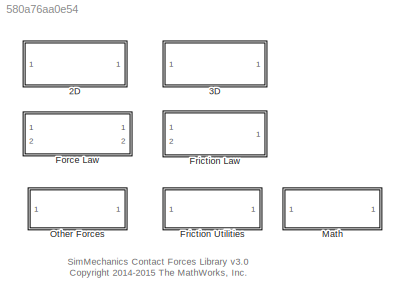
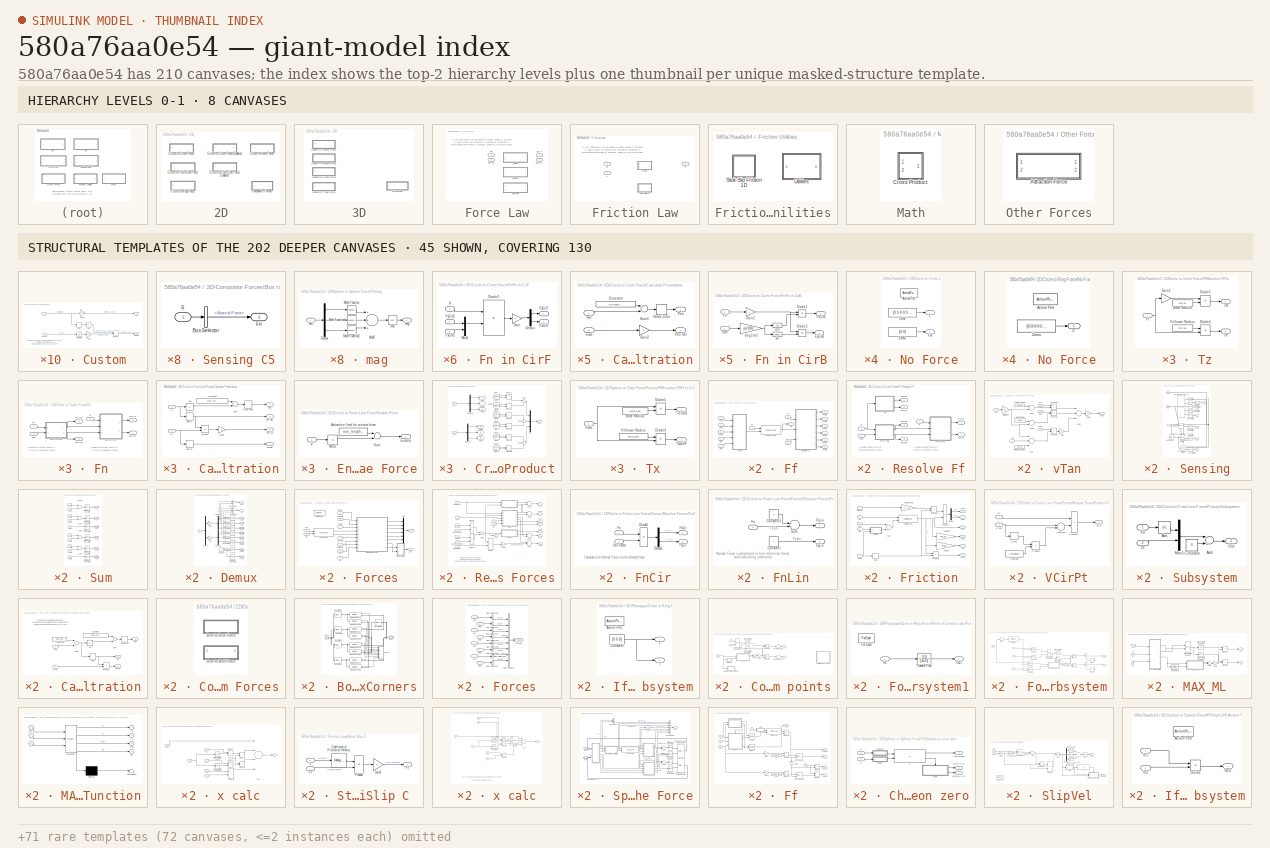
[diagram: thumbnail index - top-2 hierarchy levels (8 canvases) + 45 structural-template representatives of the remaining 202 canvases]
MODEL slx_580a76aa0e54
KIND library
CONFIG AbsTol = auto
CONFIG FixedStep = auto
CONFIG MaxStep = auto
CONFIG MinStep = auto
CONFIG RelTol = 1e-3
CONFIG SampleTimeConstraint = Unconstrained
CONFIG Solver = ode45
CONFIG SolverMode = Auto
CONFIG SolverName = ode45
CONFIG StartTime = 0.0
CONFIG StopTime = 10.0
BLOCK [SubSystem] 2D
  Ports = []
  RequestExecContextInheritance = off
BLOCK [SubSystem] 2D/Circle to Circle Force
  Ports = [0, 1, 0, 0, 0, 1, 1]
  RequestExecContextInheritance = off
BLOCK [SubSystem] 2D/Circle to Circle Force Enabled
  Ports = [1, 1, 0, 0, 0, 1, 1]
  RequestExecContextInheritance = off
BLOCK [BusCreator] 2D/Circle to Circle Force Enabled/Bus Creator
  DisplayOption = bar
  Inputs = 7
  Ports = [7, 1]
BLOCK [BusCreator] 2D/Circle to Circle Force Enabled/Bus Creator1
  DisplayOption = bar
  Inputs = 3
  Ports = [3, 1]
BLOCK [BusSelector] 2D/Circle to Circle Force Enabled/Bus Selector1
  OutputSignals = Enable
  Ports = [1, 1]
BLOCK [SubSystem] 2D/Circle to Circle Force Enabled/Calculate Penetration
  Ports = [2, 2]
  RequestExecContextInheritance = off
BLOCK [Constant] 2D/Circle to Circle Force Enabled/Calculate Penetration/Constant
  Value = cirF_rad+cirB_rad
BLOCK [DeadZone] 2D/Circle to Circle Force Enabled/Calculate Penetration/Dead Zone
  LowerValue = -inf
  UpperValue = 0
BLOCK [Gain] 2D/Circle to Circle Force Enabled/Calculate Penetration/Gain2
  Gain = -1
  OutDataTypeStr = Inherit: Inherit via internal rule
  ParamDataTypeStr = Inherit: Inherit via internal rule
  SaturateOnIntegerOverflow = off
BLOCK [Outport] 2D/Circle to Circle Force Enabled/Calculate Penetration/Pen
  IconDisplay = Port number
BLOCK [Outport] 2D/Circle to Circle Force Enabled/Calculate Penetration/Pen Vel
  IconDisplay = Port number
  Port = 2
BLOCK [Sum] 2D/Circle to Circle Force Enabled/Calculate Penetration/Sum1
  InputSameDT = off
  Inputs = +-
  OutDataTypeStr = Inherit: Inherit via internal rule
  Ports = [2, 1]
  SaturateOnIntegerOverflow = off
BLOCK [Inport] 2D/Circle to Circle Force Enabled/Calculate Penetration/rad
  IconDisplay = Port number
BLOCK [Inport] 2D/Circle to Circle Force Enabled/Calculate Penetration/vrad
  IconDisplay = Port number
  Port = 2
BLOCK [PMIOPort] 2D/Circle to Circle Force Enabled/CirB
  Port = 2
  Side = Right
  Tag = PMCPort
BLOCK [PMIOPort] 2D/Circle to Circle Force Enabled/CirF
  Port = 1
  Side = Left
  Tag = PMCPort
BLOCK [Reference] 2D/Circle to Circle Force Enabled/External Force and Torque CirB  REF=sm_lib/Forces and
Torques/External Force
and Torque
  BlockFunction = simmechanics.library.forces_torques.external_force_torque
  ClassName = ExternalForceTorque
  EnableForce = off
  EnableForceX = on
  EnableForceY = on
  EnableForceZ = off
  EnableTorque = off
  EnableTorqueX = off
  EnableTorqueY = off
  EnableTorqueZ = on
  ForceResolutionFrame = AttachedFrame
  LogSimulationData = off
  Ports = [0, 0, 0, 0, 0, 3, 1]
  SourceBlock = sm_lib/Forces and\nTorques/External Force\nand Torque
  SourceType = External Force\nand Torque
  TorqueResolutionFrame = AttachedFrame
BLOCK [Reference] 2D/Circle to Circle Force Enabled/External Force and Torque CirF  REF=sm_lib/Forces and
Torques/External Force
and Torque
  BlockFunction = simmechanics.library.forces_torques.external_force_torque
  ClassName = ExternalForceTorque
  EnableForce = off
  EnableForceX = on
  EnableForceY = on
  EnableForceZ = off
  EnableTorque = off
  EnableTorqueX = off
  EnableTorqueY = off
  EnableTorqueZ = on
  ForceResolutionFrame = AttachedFrame
  LogSimulationData = off
  Ports = [0, 0, 0, 0, 0, 3, 1]
  SourceBlock = sm_lib/Forces and\nTorques/External Force\nand Torque
  SourceType = External Force\nand Torque
  TorqueResolutionFrame = AttachedFrame
BLOCK [SubSystem] 2D/Circle to Circle Force Enabled/Ff
  Ports = [8, 7]
  RequestExecContextInheritance = off
BLOCK [Outport] 2D/Circle to Circle Force Enabled/Ff/Ff
  IconDisplay = Port number
  Port = 7
BLOCK [Inport] 2D/Circle to Circle Force Enabled/Ff/Fn
  IconDisplay = Port number
BLOCK [Reference] 2D/Circle to Circle Force Enabled/Ff/Friction Law  REF=Contact_Forces_Lib/Friction Law
  OverrideUsingVariant = None
  Ports = [2, 1]
  SourceBlock = Contact_Forces_Lib/Friction Law
  SourceType = SubSystem
BLOCK [Outport] 2D/Circle to Circle Force Enabled/Ff/FxCirB
  IconDisplay = Port number
  Port = 3
BLOCK [Outport] 2D/Circle to Circle Force Enabled/Ff/FxCirF
  IconDisplay = Port number
BLOCK [Outport] 2D/Circle to Circle Force Enabled/Ff/FyCirB
  IconDisplay = Port number
  Port = 4
BLOCK [Outport] 2D/Circle to Circle Force Enabled/Ff/FyCirF
  IconDisplay = Port number
  Port = 2
BLOCK [Inport] 2D/Circle to Circle Force Enabled/Ff/Pen
  IconDisplay = Port number
  Port = 3
BLOCK [Inport] 2D/Circle to Circle Force Enabled/Ff/R
  IconDisplay = Port number
  Port = 8
BLOCK [SubSystem] 2D/Circle to Circle Force Enabled/Ff/Resolve Ff
  Ports = [3, 6]
  RequestExecContextInheritance = off
BLOCK [Inport] 2D/Circle to Circle Force Enabled/Ff/Resolve Ff/Ff
  IconDisplay = Port number
  Port = 2
BLOCK [SubSystem] 2D/Circle to Circle Force Enabled/Ff/Resolve Ff/Ff in CirB
  Ports = [2, 2]
  RequestExecContextInheritance = off
BLOCK [Product] 2D/Circle to Circle Force Enabled/Ff/Resolve Ff/Ff in CirB/Divide1
  InputSameDT = off
  Inputs = **
  OutDataTypeStr = Inherit: Inherit via internal rule
  Ports = [2, 1]
  RndMeth = Floor
  SaturateOnIntegerOverflow = off
BLOCK [Product] 2D/Circle to Circle Force Enabled/Ff/Resolve Ff/Ff in CirB/Divide2
  InputSameDT = off
  Inputs = **
  OutDataTypeStr = Inherit: Inherit via internal rule
  Ports = [2, 1]
  RndMeth = Floor
  SaturateOnIntegerOverflow = off
BLOCK [Inport] 2D/Circle to Circle Force Enabled/Ff/Resolve Ff/Ff in CirB/Ff
  IconDisplay = Port number
BLOCK [Outport] 2D/Circle to Circle Force Enabled/Ff/Resolve Ff/Ff in CirB/FxCirB
  IconDisplay = Port number
BLOCK [Outport] 2D/Circle to Circle Force Enabled/Ff/Resolve Ff/Ff in CirB/FyCirB
  IconDisplay = Port number
  Port = 2
BLOCK [Gain] 2D/Circle to Circle Force Enabled/Ff/Resolve Ff/Ff in CirB/Gain3
  Gain = -1
  OutDataTypeStr = Inherit: Inherit via internal rule
  ParamDataTypeStr = Inherit: Inherit via internal rule
  SaturateOnIntegerOverflow = off
BLOCK [Inport] 2D/Circle to Circle Force Enabled/Ff/Resolve Ff/Ff in CirB/azm
  IconDisplay = Port number
  Port = 2
BLOCK [Trigonometry] 2D/Circle to Circle Force Enabled/Ff/Resolve Ff/Ff in CirB/cos
  Ports = [1, 1]
BLOCK [Gain] 2D/Circle to Circle Force Enabled/Ff/Resolve Ff/Ff in CirB/deg2rad
  Gain = pi/180
  OutDataTypeStr = Inherit: Inherit via internal rule
  ParamDataTypeStr = Inherit: Inherit via internal rule
  SaturateOnIntegerOverflow = off
BLOCK [Trigonometry] 2D/Circle to Circle Force Enabled/Ff/Resolve Ff/Ff in CirB/sin
  Operator = cos
  Ports = [1, 1]
BLOCK [SubSystem] 2D/Circle to Circle Force Enabled/Ff/Resolve Ff/Ff in CirF
  Ports = [3, 2]
  RequestExecContextInheritance = off
BLOCK [Demux] 2D/Circle to Circle Force Enabled/Ff/Resolve Ff/Ff in CirF/Demux
  DisplayOption = bar
  Outputs = 2
  Ports = [1, 2]
BLOCK [Product] 2D/Circle to Circle Force Enabled/Ff/Resolve Ff/Ff in CirF/Divide3
  InputSameDT = off
  Inputs = **
  Multiplication = Matrix(*)
  OutDataTypeStr = Inherit: Inherit via internal rule
  Ports = [2, 1]
  RndMeth = Floor
  SaturateOnIntegerOverflow = off
BLOCK [Inport] 2D/Circle to Circle Force Enabled/Ff/Resolve Ff/Ff in CirF/FxCirB
  IconDisplay = Port number
  Port = 2
BLOCK [Outport] 2D/Circle to Circle Force Enabled/Ff/Resolve Ff/Ff in CirF/FxCirF
  IconDisplay = Port number
  Port = 2
BLOCK [Inport] 2D/Circle to Circle Force Enabled/Ff/Resolve Ff/Ff in CirF/FyCirB
  IconDisplay = Port number
  Port = 3
BLOCK [Outport] 2D/Circle to Circle Force Enabled/Ff/Resolve Ff/Ff in CirF/FyCirF
  IconDisplay = Port number
BLOCK [Gain] 2D/Circle to Circle Force Enabled/Ff/Resolve Ff/Ff in CirF/Gain1
  Gain = -1
  OutDataTypeStr = Inherit: Inherit via internal rule
  ParamDataTypeStr = Inherit: Inherit via internal rule
  SaturateOnIntegerOverflow = off
BLOCK [Mux] 2D/Circle to Circle Force Enabled/Ff/Resolve Ff/Ff in CirF/Mux1
  DisplayOption = bar
  Inputs = 2
  Ports = [2, 1]
BLOCK [Inport] 2D/Circle to Circle Force Enabled/Ff/Resolve Ff/Ff in CirF/R
  IconDisplay = Port number
BLOCK [Outport] 2D/Circle to Circle Force Enabled/Ff/Resolve Ff/FxCirB
  IconDisplay = Port number
BLOCK [Outport] 2D/Circle to Circle Force Enabled/Ff/Resolve Ff/FxCirF
  IconDisplay = Port number
  Port = 4
BLOCK [Outport] 2D/Circle to Circle Force Enabled/Ff/Resolve Ff/FyCirB
  IconDisplay = Port number
  Port = 2
BLOCK [Outport] 2D/Circle to Circle Force Enabled/Ff/Resolve Ff/FyCirF
  IconDisplay = Port number
  Port = 3
BLOCK [Inport] 2D/Circle to Circle Force Enabled/Ff/Resolve Ff/R
  IconDisplay = Port number
BLOCK [SubSystem] 2D/Circle to Circle Force Enabled/Ff/Resolve Ff/Tz
  Ports = [1, 2]
  RequestExecContextInheritance = off
BLOCK [Constant] 2D/Circle to Circle Force Enabled/Ff/Resolve Ff/Tz/Base Radius
  Value = cirB_rad
BLOCK [Product] 2D/Circle to Circle Force Enabled/Ff/Resolve Ff/Tz/Divide4
  InputSameDT = off
  Inputs = **
  OutDataTypeStr = Inherit: Inherit via internal rule
  Ports = [2, 1]
  RndMeth = Floor
  SaturateOnIntegerOverflow = off
BLOCK [Product] 2D/Circle to Circle Force Enabled/Ff/Resolve Ff/Tz/Divide5
  InputSameDT = off
  Inputs = **
  OutDataTypeStr = Inherit: Inherit via internal rule
  Ports = [2, 1]
  RndMeth = Floor
  SaturateOnIntegerOverflow = off
BLOCK [Inport] 2D/Circle to Circle Force Enabled/Ff/Resolve Ff/Tz/Ff
  IconDisplay = Port number
BLOCK [Constant] 2D/Circle to Circle Force Enabled/Ff/Resolve Ff/Tz/Follower Radius
  Value = cirF_rad
BLOCK [Gain] 2D/Circle to Circle Force Enabled/Ff/Resolve Ff/Tz/Gain2
  OutDataTypeStr = Inherit: Inherit via internal rule
  ParamDataTypeStr = Inherit: Inherit via internal rule
  SaturateOnIntegerOverflow = off
BLOCK [Outport] 2D/Circle to Circle Force Enabled/Ff/Resolve Ff/Tz/TzB
  IconDisplay = Port number
BLOCK [Outport] 2D/Circle to Circle Force Enabled/Ff/Resolve Ff/Tz/TzF
  IconDisplay = Port number
  Port = 2
BLOCK [Outport] 2D/Circle to Circle Force Enabled/Ff/Resolve Ff/TzCirB
  IconDisplay = Port number
  Port = 6
BLOCK [Outport] 2D/Circle to Circle Force Enabled/Ff/Resolve Ff/TzCirF
  IconDisplay = Port number
  Port = 5
BLOCK [Inport] 2D/Circle to Circle Force Enabled/Ff/Resolve Ff/azm
  IconDisplay = Port number
  Port = 3
BLOCK [Outport] 2D/Circle to Circle Force Enabled/Ff/TzCirB
  IconDisplay = Port number
  Port = 6
BLOCK [Outport] 2D/Circle to Circle Force Enabled/Ff/TzCirF
  IconDisplay = Port number
  Port = 5
BLOCK [Inport] 2D/Circle to Circle Force Enabled/Ff/azm
  IconDisplay = Port number
  Port = 2
BLOCK [Inport] 2D/Circle to Circle Force Enabled/Ff/rad
  IconDisplay = Port number
  Port = 4
BLOCK [SubSystem] 2D/Circle to Circle Force Enabled/Ff/vTan
  Ports = [5, 1]
  RequestExecContextInheritance = off
BLOCK [Constant] 2D/Circle to Circle Force Enabled/Ff/vTan/Base Radius
  Value = cirB_rad
BLOCK [Constant] 2D/Circle to Circle Force Enabled/Ff/vTan/Follower Radius
  Value = cirF_rad
BLOCK [Constant] 2D/Circle to Circle Force Enabled/Ff/vTan/Follower Radius1
  Value = cirF_rad
BLOCK [Gain] 2D/Circle to Circle Force Enabled/Ff/vTan/Gain
  Gain = -1
  OutDataTypeStr = Inherit: Inherit via internal rule
  ParamDataTypeStr = Inherit: Inherit via internal rule
  SaturateOnIntegerOverflow = off
BLOCK [Gain] 2D/Circle to Circle Force Enabled/Ff/vTan/Gain1
  Gain = -1
  OutDataTypeStr = Inherit: Inherit via internal rule
  ParamDataTypeStr = Inherit: Inherit via internal rule
  SaturateOnIntegerOverflow = off
BLOCK [Gain] 2D/Circle to Circle Force Enabled/Ff/vTan/Midpt Pen
  Gain = 0.5
  OutDataTypeStr = Inherit: Inherit via internal rule
  ParamDataTypeStr = Inherit: Inherit via internal rule
  SaturateOnIntegerOverflow = off
BLOCK [Inport] 2D/Circle to Circle Force Enabled/Ff/vTan/Pen
  IconDisplay = Port number
  Port = 2
BLOCK [Product] 2D/Circle to Circle Force Enabled/Ff/vTan/Product1
  InputSameDT = off
  OutDataTypeStr = Inherit: Inherit via internal rule
  Ports = [2, 1]
  RndMeth = Floor
  SaturateOnIntegerOverflow = off
BLOCK [Product] 2D/Circle to Circle Force Enabled/Ff/vTan/Product2
  InputSameDT = off
  OutDataTypeStr = Inherit: Inherit via internal rule
  Ports = [2, 1]
  RndMeth = Floor
  SaturateOnIntegerOverflow = off
BLOCK [Product] 2D/Circle to Circle Force Enabled/Ff/vTan/Product3
  InputSameDT = off
  OutDataTypeStr = Inherit: Inherit via internal rule
  Ports = [2, 1]
  RndMeth = Floor
  SaturateOnIntegerOverflow = off
BLOCK [Sum] 2D/Circle to Circle Force Enabled/Ff/vTan/Sum
  InputSameDT = off
  Inputs = ++-
  OutDataTypeStr = Inherit: Inherit via internal rule
  Ports = [3, 1]
  SaturateOnIntegerOverflow = off
BLOCK [Sum] 2D/Circle to Circle Force Enabled/Ff/vTan/Sum1
  InputSameDT = off
  Inputs = +-
  OutDataTypeStr = Inherit: Inherit via internal rule
  Ports = [2, 1]
  SaturateOnIntegerOverflow = off
BLOCK [Sum] 2D/Circle to Circle Force Enabled/Ff/vTan/Sum2
  InputSameDT = off
  Inputs = +++
  OutDataTypeStr = Inherit: Inherit via internal rule
  Ports = [3, 1]
  SaturateOnIntegerOverflow = off
BLOCK [Sum] 2D/Circle to Circle Force Enabled/Ff/vTan/Sum4
  InputSameDT = off
  Inputs = +-
  OutDataTypeStr = Inherit: Inherit via internal rule
  Ports = [2, 1]
  SaturateOnIntegerOverflow = off
BLOCK [Inport] 2D/Circle to Circle Force Enabled/Ff/vTan/rad
  IconDisplay = Port number
BLOCK [Outport] 2D/Circle to Circle Force Enabled/Ff/vTan/vTan
  IconDisplay = Port number
BLOCK [Inport] 2D/Circle to Circle Force Enabled/Ff/vTan/vazm
  IconDisplay = Port number
  Port = 3
BLOCK [Inport] 2D/Circle to Circle Force Enabled/Ff/vTan/wzb
  IconDisplay = Port number
  Port = 5
BLOCK [Inport] 2D/Circle to Circle Force Enabled/Ff/vTan/wzf
  IconDisplay = Port number
  Port = 4
BLOCK [Inport] 2D/Circle to Circle Force Enabled/Ff/vazm
  IconDisplay = Port number
  Port = 5
BLOCK [Inport] 2D/Circle to Circle Force Enabled/Ff/wzb
  IconDisplay = Port number
  Port = 7
BLOCK [Inport] 2D/Circle to Circle Force Enabled/Ff/wzf
  IconDisplay = Port number
  Port = 6
BLOCK [SubSystem] 2D/Circle to Circle Force Enabled/Fn
  Ports = [3, 4]
  RequestExecContextInheritance = off
BLOCK [Inport] 2D/Circle to Circle Force Enabled/Fn/Fn
  IconDisplay = Port number
BLOCK [SubSystem] 2D/Circle to Circle Force Enabled/Fn/Fn in CirB
  Ports = [2, 2]
  RequestExecContextInheritance = off
BLOCK [Product] 2D/Circle to Circle Force Enabled/Fn/Fn in CirB/Divide1
  InputSameDT = off
  Inputs = **
  OutDataTypeStr = Inherit: Inherit via internal rule
  Ports = [2, 1]
  RndMeth = Floor
  SaturateOnIntegerOverflow = off
BLOCK [Product] 2D/Circle to Circle Force Enabled/Fn/Fn in CirB/Divide2
  InputSameDT = off
  Inputs = **
  OutDataTypeStr = Inherit: Inherit via internal rule
  Ports = [2, 1]
  RndMeth = Floor
  SaturateOnIntegerOverflow = off
BLOCK [Inport] 2D/Circle to Circle Force Enabled/Fn/Fn in CirB/Fn
  IconDisplay = Port number
BLOCK [Outport] 2D/Circle to Circle Force Enabled/Fn/Fn in CirB/FxCirB
  IconDisplay = Port number
BLOCK [Outport] 2D/Circle to Circle Force Enabled/Fn/Fn in CirB/FyCirB
  IconDisplay = Port number
  Port = 2
BLOCK [Gain] 2D/Circle to Circle Force Enabled/Fn/Fn in CirB/Gain2
  Gain = -1
  OutDataTypeStr = Inherit: Inherit via internal rule
  ParamDataTypeStr = Inherit: Inherit via internal rule
  SaturateOnIntegerOverflow = off
BLOCK [Inport] 2D/Circle to Circle Force Enabled/Fn/Fn in CirB/azm
  IconDisplay = Port number
  Port = 2
BLOCK [Trigonometry] 2D/Circle to Circle Force Enabled/Fn/Fn in CirB/cos
  Operator = cos
  Ports = [1, 1]
BLOCK [Gain] 2D/Circle to Circle Force Enabled/Fn/Fn in CirB/deg2rad
  Gain = pi/180
  OutDataTypeStr = Inherit: Inherit via internal rule
  ParamDataTypeStr = Inherit: Inherit via internal rule
  SaturateOnIntegerOverflow = off
BLOCK [Trigonometry] 2D/Circle to Circle Force Enabled/Fn/Fn in CirB/sin
  Ports = [1, 1]
BLOCK [SubSystem] 2D/Circle to Circle Force Enabled/Fn/Fn in CirF
  Ports = [3, 2]
  RequestExecContextInheritance = off
BLOCK [Demux] 2D/Circle to Circle Force Enabled/Fn/Fn in CirF/Demux
  DisplayOption = bar
  Outputs = 2
  Ports = [1, 2]
BLOCK [Product] 2D/Circle to Circle Force Enabled/Fn/Fn in CirF/Divide3
  InputSameDT = off
  Inputs = **
  Multiplication = Matrix(*)
  OutDataTypeStr = Inherit: Inherit via internal rule
  Ports = [2, 1]
  RndMeth = Floor
  SaturateOnIntegerOverflow = off
BLOCK [Inport] 2D/Circle to Circle Force Enabled/Fn/Fn in CirF/FxCirB
  IconDisplay = Port number
  Port = 2
BLOCK [Outport] 2D/Circle to Circle Force Enabled/Fn/Fn in CirF/FxCirF
  IconDisplay = Port number
  Port = 2
BLOCK [Inport] 2D/Circle to Circle Force Enabled/Fn/Fn in CirF/FyCirB
  IconDisplay = Port number
  Port = 3
BLOCK [Outport] 2D/Circle to Circle Force Enabled/Fn/Fn in CirF/FyCirF
  IconDisplay = Port number
BLOCK [Gain] 2D/Circle to Circle Force Enabled/Fn/Fn in CirF/Gain
  Gain = -1
  OutDataTypeStr = Inherit: Inherit via internal rule
  ParamDataTypeStr = Inherit: Inherit via internal rule
  SaturateOnIntegerOverflow = off
BLOCK [Mux] 2D/Circle to Circle Force Enabled/Fn/Fn in CirF/Mux1
  DisplayOption = bar
  Inputs = 2
  Ports = [2, 1]
BLOCK [Inport] 2D/Circle to Circle Force Enabled/Fn/Fn in CirF/R
  IconDisplay = Port number
BLOCK [Outport] 2D/Circle to Circle Force Enabled/Fn/FxCirB
  IconDisplay = Port number
  Port = 3
BLOCK [Outport] 2D/Circle to Circle Force Enabled/Fn/FxCirF
  IconDisplay = Port number
BLOCK [Outport] 2D/Circle to Circle Force Enabled/Fn/FyCirB
  IconDisplay = Port number
  Port = 4
BLOCK [Outport] 2D/Circle to Circle Force Enabled/Fn/FyCirF
  IconDisplay = Port number
  Port = 2
BLOCK [Inport] 2D/Circle to Circle Force Enabled/Fn/R
  IconDisplay = Port number
  Port = 2
BLOCK [Inport] 2D/Circle to Circle Force Enabled/Fn/azm
  IconDisplay = Port number
  Port = 3
BLOCK [Reference] 2D/Circle to Circle Force Enabled/Force Law  REF=Contact_Forces_Lib/Force Law
  OverrideUsingVariant = Linear
  Ports = [2, 2]
  SourceBlock = Contact_Forces_Lib/Force Law
  SourceType = SubSystem
BLOCK [Inport] 2D/Circle to Circle Force Enabled/In
  IconDisplay = Port number
BLOCK [Reference] 2D/Circle to Circle Force Enabled/Interval Test  REF=simulink/Logic and Bit
Operations/Interval Test
  IntervalClosedLeft = on
  IntervalClosedRight = on
  OutDataTypeStr = uint8
  Ports = [1, 1]
  SourceBlock = simulink/Logic and Bit\nOperations/Interval Test
  SourceType = Interval Test
  lowlimit = active_angle(1)
  uplimit = active_angle(2)
BLOCK [Outport] 2D/Circle to Circle Force Enabled/Out
  IconDisplay = Port number
BLOCK [Product] 2D/Circle to Circle Force Enabled/Product1
  InputSameDT = off
  Inputs = 3
  OutDataTypeStr = Inherit: Inherit via internal rule
  Ports = [3, 1]
  RndMeth = Floor
  SaturateOnIntegerOverflow = off
BLOCK [SubSystem] 2D/Circle to Circle Force Enabled/Sensing
  Ports = [0, 7, 0, 0, 0, 2]
  RequestExecContextInheritance = off
BLOCK [PMIOPort] 2D/Circle to Circle Force Enabled/Sensing/B
  Port = 2
  Side = Left
BLOCK [PMIOPort] 2D/Circle to Circle Force Enabled/Sensing/F
  Port = 1
  Side = Left
BLOCK [Reference] 2D/Circle to Circle Force Enabled/Sensing/PS-Simulink Converter1  REF=nesl_utility/PS-Simulink
Converter
  AffineConversion = off
  Frequencies = []
  LeftPortType = input
  PhysicalDomain = network_engine_domain
  Ports = [0, 1, 0, 0, 0, 1]
  PseudoPeriodic = off
  RightPortType = output
  SourceBlock = nesl_utility/PS-Simulink\nConverter
  SourceType = PS-Simulink\nConverter
  SubClassName = ps_output
  Unit = deg
BLOCK [Reference] 2D/Circle to Circle Force Enabled/Sensing/PS-Simulink Converter2  REF=nesl_utility/PS-Simulink
Converter
  AffineConversion = off
  Frequencies = []
  LeftPortType = input
  PhysicalDomain = network_engine_domain
  Ports = [0, 1, 0, 0, 0, 1]
  PseudoPeriodic = off
  RightPortType = output
  SourceBlock = nesl_utility/PS-Simulink\nConverter
  SourceType = PS-Simulink\nConverter
  SubClassName = ps_output
  Unit = 1
BLOCK [Reference] 2D/Circle to Circle Force Enabled/Sensing/PS-Simulink Converter3  REF=nesl_utility/PS-Simulink
Converter
  AffineConversion = off
  Frequencies = []
  LeftPortType = input
  PhysicalDomain = network_engine_domain
  Ports = [0, 1, 0, 0, 0, 1]
  PseudoPeriodic = off
  RightPortType = output
  SourceBlock = nesl_utility/PS-Simulink\nConverter
  SourceType = PS-Simulink\nConverter
  SubClassName = ps_output
  Unit = 1
BLOCK [Reference] 2D/Circle to Circle Force Enabled/Sensing/PS-Simulink Converter4  REF=nesl_utility/PS-Simulink
Converter
  AffineConversion = off
  Frequencies = []
  LeftPortType = input
  PhysicalDomain = network_engine_domain
  Ports = [0, 1, 0, 0, 0, 1]
  PseudoPeriodic = off
  RightPortType = output
  SourceBlock = nesl_utility/PS-Simulink\nConverter
  SourceType = PS-Simulink\nConverter
  SubClassName = ps_output
  Unit = 1
BLOCK [Reference] 2D/Circle to Circle Force Enabled/Sensing/PS-Simulink Converter5  REF=nesl_utility/PS-Simulink
Converter
  AffineConversion = off
  Frequencies = []
  LeftPortType = input
  PhysicalDomain = network_engine_domain
  Ports = [0, 1, 0, 0, 0, 1]
  PseudoPeriodic = off
  RightPortType = output
  SourceBlock = nesl_utility/PS-Simulink\nConverter
  SourceType = PS-Simulink\nConverter
  SubClassName = ps_output
  Unit = 1
BLOCK [Reference] 2D/Circle to Circle Force Enabled/Sensing/PS-Simulink Converter6  REF=nesl_utility/PS-Simulink
Converter
  AffineConversion = off
  Frequencies = []
  LeftPortType = input
  PhysicalDomain = network_engine_domain
  Ports = [0, 1, 0, 0, 0, 1]
  PseudoPeriodic = off
  RightPortType = output
  SourceBlock = nesl_utility/PS-Simulink\nConverter
  SourceType = PS-Simulink\nConverter
  SubClassName = ps_output
  Unit = 1
BLOCK [Reference] 2D/Circle to Circle Force Enabled/Sensing/PS-Simulink Converter7  REF=nesl_utility/PS-Simulink
Converter
  AffineConversion = off
  Frequencies = []
  LeftPortType = input
  PhysicalDomain = network_engine_domain
  Ports = [0, 1, 0, 0, 0, 1]
  PseudoPeriodic = off
  RightPortType = output
  SourceBlock = nesl_utility/PS-Simulink\nConverter
  SourceType = PS-Simulink\nConverter
  SubClassName = ps_output
  Unit = 1
BLOCK [Outport] 2D/Circle to Circle Force Enabled/Sensing/R
  IconDisplay = Port number
  Port = 7
BLOCK [Selector] 2D/Circle to Circle Force Enabled/Sensing/Selector
  IndexOptions = Index vector (dialog),Index vector (dialog)
  Indices = [1,2],[1,2]
  InputPortWidth = 3
  NumberOfDimensions = 2
  OutputSizes = 1,1
  Ports = [1, 1]
BLOCK [Reference] 2D/Circle to Circle Force Enabled/Sensing/Transform Sensor Base  REF=sm_lib/Frames and
Transforms/Transform
Sensor
  BlockFunction = simmechanics.library.frames_transforms.transform_sensor
  ClassName = TransformSensor
  LogSimulationData = off
  MeasurementFrame = Base
  Ports = [0, 0, 0, 0, 0, 1, 5]
  SenseAlpha1 = off
  SenseAlpha2 = off
  SenseAlpha3 = off
  SenseAlphaX = off
  SenseAlphaY = off
  SenseAlphaZ = off
  SenseAngle = off
  SenseAngle1 = off
  SenseAngle2 = off
  SenseAngle3 = off
  SenseAxis = off
  SenseAzim = on
  SenseAzimDDot = off
  SenseAzimDot = off
  SenseDist = off
  SenseDistDDot = off
  SenseDistDot = off
  SenseInc = off
  SenseIncDDot = off
  SenseIncDot = off
  SenseOmega1 = off
  SenseOmega2 = off
  SenseOmega3 = off
  SenseOmegaX = off
  SenseOmegaY = off
  SenseOmegaZ = off
  SenseQ = off
  SenseQDDot = off
  SenseQDot = off
  SenseR = on
  SenseRDDot = off
  SenseRDot = off
  SenseRad = on
  SenseRadDDot = off
  SenseRadDot = on
  SenseX = off
  SenseXDDot = off
  SenseXDot = off
  SenseY = off
  SenseYDDot = off
  SenseYDot = off
  SenseZ = off
  SenseZDDot = off
  SenseZDot = off
  SourceBlock = sm_lib/Frames and\nTransforms/Transform\nSensor
  SourceType = Transform\nSensor
BLOCK [Reference] 2D/Circle to Circle Force Enabled/Sensing/Transform Sensor NonRotBase  REF=sm_lib/Frames and
Transforms/Transform
Sensor
  BlockFunction = simmechanics.library.frames_transforms.transform_sensor
  ClassName = TransformSensor
  LogSimulationData = off
  MeasurementFrame = NonRotatingBase
  Ports = [0, 0, 0, 0, 0, 1, 2]
  SenseAlpha1 = off
  SenseAlpha2 = off
  SenseAlpha3 = off
  SenseAlphaX = off
  SenseAlphaY = off
  SenseAlphaZ = off
  SenseAngle = off
  SenseAngle1 = off
  SenseAngle2 = off
  SenseAngle3 = off
  SenseAxis = off
  SenseAzim = off
  SenseAzimDDot = off
  SenseAzimDot = on
  SenseDist = off
  SenseDistDDot = off
  SenseDistDot = off
  SenseInc = off
  SenseIncDDot = off
  SenseIncDot = off
  SenseOmega1 = off
  SenseOmega2 = off
  SenseOmega3 = off
  SenseOmegaX = off
  SenseOmegaY = off
  SenseOmegaZ = off
  SenseQ = off
  SenseQDDot = off
  SenseQDot = off
  SenseR = off
  SenseRDDot = off
  SenseRDot = off
  SenseRad = off
  SenseRadDDot = off
  SenseRadDot = off
  SenseX = off
  SenseXDDot = off
  SenseXDot = off
  SenseY = off
  SenseYDDot = off
  SenseYDot = off
  SenseZ = off
  SenseZDDot = off
  SenseZDot = off
  SourceBlock = sm_lib/Frames and\nTransforms/Transform\nSensor
  SourceType = Transform\nSensor
BLOCK [Reference] 2D/Circle to Circle Force Enabled/Sensing/Transform Sensor WorldB  REF=sm_lib/Frames and
Transforms/Transform
Sensor
  BlockFunction = simmechanics.library.frames_transforms.transform_sensor
  ClassName = TransformSensor
  LogSimulationData = off
  MeasurementFrame = Follower
  Ports = [0, 0, 0, 0, 0, 1, 2]
  SenseAlpha1 = off
  SenseAlpha2 = off
  SenseAlpha3 = off
  SenseAlphaX = off
  SenseAlphaY = off
  SenseAlphaZ = off
  SenseAngle = off
  SenseAngle1 = off
  SenseAngle2 = off
  SenseAngle3 = off
  SenseAxis = off
  SenseAzim = off
  SenseAzimDDot = off
  SenseAzimDot = off
  SenseDist = off
  SenseDistDDot = off
  SenseDistDot = off
  SenseInc = off
  SenseIncDDot = off
  SenseIncDot = off
  SenseOmega1 = off
  SenseOmega2 = off
  SenseOmega3 = off
  SenseOmegaX = off
  SenseOmegaY = off
  SenseOmegaZ = on
  SenseQ = off
  SenseQDDot = off
  SenseQDot = off
  SenseR = off
  SenseRDDot = off
  SenseRDot = off
  SenseRad = off
  SenseRadDDot = off
  SenseRadDot = off
  SenseX = off
  SenseXDDot = off
  SenseXDot = off
  SenseY = off
  SenseYDDot = off
  SenseYDot = off
  SenseZ = off
  SenseZDDot = off
  SenseZDot = off
  SourceBlock = sm_lib/Frames and\nTransforms/Transform\nSensor
  SourceType = Transform\nSensor
BLOCK [Reference] 2D/Circle to Circle Force Enabled/Sensing/Transform Sensor WorldF  REF=sm_lib/Frames and
Transforms/Transform
Sensor
  BlockFunction = simmechanics.library.frames_transforms.transform_sensor
  ClassName = TransformSensor
  LogSimulationData = off
  MeasurementFrame = Follower
  Ports = [0, 0, 0, 0, 0, 1, 2]
  SenseAlpha1 = off
  SenseAlpha2 = off
  SenseAlpha3 = off
  SenseAlphaX = off
  SenseAlphaY = off
  SenseAlphaZ = off
  SenseAngle = off
  SenseAngle1 = off
  SenseAngle2 = off
  SenseAngle3 = off
  SenseAxis = off
  SenseAzim = off
  SenseAzimDDot = off
  SenseAzimDot = off
  SenseDist = off
  SenseDistDDot = off
  SenseDistDot = off
  SenseInc = off
  SenseIncDDot = off
  SenseIncDot = off
  SenseOmega1 = off
  SenseOmega2 = off
  SenseOmega3 = off
  SenseOmegaX = off
  SenseOmegaY = off
  SenseOmegaZ = on
  SenseQ = off
  SenseQDDot = off
  SenseQDot = off
  SenseR = off
  SenseRDDot = off
  SenseRDot = off
  SenseRad = off
  SenseRadDDot = off
  SenseRadDot = off
  SenseX = off
  SenseXDDot = off
  SenseXDot = off
  SenseY = off
  SenseYDDot = off
  SenseYDot = off
  SenseZ = off
  SenseZDDot = off
  SenseZDot = off
  SourceBlock = sm_lib/Frames and\nTransforms/Transform\nSensor
  SourceType = Transform\nSensor
BLOCK [Reference] 2D/Circle to Circle Force Enabled/Sensing/World Frame1  REF=sm_lib/Frames and
Transforms/World Frame
  BlockFunction = simmechanics.library.frames_transforms.world_frame
  ClassName = WorldFrame
  LogSimulationData = off
  Ports = [0, 0, 0, 0, 0, 0, 1]
  SourceBlock = sm_lib/Frames and\nTransforms/World Frame
  SourceType = World Frame
BLOCK [Outport] 2D/Circle to Circle Force Enabled/Sensing/azm
  IconDisplay = Port number
  Port = 3
BLOCK [Outport] 2D/Circle to Circle Force Enabled/Sensing/rad
  IconDisplay = Port number
BLOCK [Outport] 2D/Circle to Circle Force Enabled/Sensing/vazm
  IconDisplay = Port number
  Port = 4
BLOCK [Outport] 2D/Circle to Circle Force Enabled/Sensing/vrad
  IconDisplay = Port number
  Port = 2
BLOCK [Outport] 2D/Circle to Circle Force Enabled/Sensing/wzb
  IconDisplay = Port number
  Port = 6
BLOCK [Outport] 2D/Circle to Circle Force Enabled/Sensing/wzf
  IconDisplay = Port number
  Port = 5
BLOCK [SubSystem] 2D/Circle to Circle Force Enabled/Sum
  Ports = [10, 0, 0, 0, 0, 0, 6]
  RequestExecContextInheritance = off
BLOCK [Inport] 2D/Circle to Circle Force Enabled/Sum/FfxCirB
  IconDisplay = Port number
  Port = 7
BLOCK [Inport] 2D/Circle to Circle Force Enabled/Sum/FfxCirF
  IconDisplay = Port number
  Port = 5
BLOCK [Inport] 2D/Circle to Circle Force Enabled/Sum/FfyCirB
  IconDisplay = Port number
  Port = 8
BLOCK [Inport] 2D/Circle to Circle Force Enabled/Sum/FfyCirF
  IconDisplay = Port number
  Port = 6
BLOCK [Inport] 2D/Circle to Circle Force Enabled/Sum/FnxCirB
  IconDisplay = Port number
  Port = 3
BLOCK [Inport] 2D/Circle to Circle Force Enabled/Sum/FnxCirF
  IconDisplay = Port number
BLOCK [Inport] 2D/Circle to Circle Force Enabled/Sum/FnyCirB
  IconDisplay = Port number
  Port = 4
BLOCK [Inport] 2D/Circle to Circle Force Enabled/Sum/FnyCirF
  IconDisplay = Port number
  Port = 2
BLOCK [PMIOPort] 2D/Circle to Circle Force Enabled/Sum/FxB
  Port = 4
  Side = Right
BLOCK [PMIOPort] 2D/Circle to Circle Force Enabled/Sum/FxF
  Port = 1
  Side = Right
BLOCK [PMIOPort] 2D/Circle to Circle Force Enabled/Sum/FyB
  Port = 5
  Side = Right
BLOCK [PMIOPort] 2D/Circle to Circle Force Enabled/Sum/FyF
  Port = 2
  Side = Right
BLOCK [Reference] 2D/Circle to Circle Force Enabled/Sum/Simulink-PS Converter  REF=nesl_utility/Simulink-PS
Converter
  AffineConversion = off
  Frequencies = []
  InputFilterTimeConstant = .001
  InputFiltering = off
  LeftPortType = input
  NoiseDistribution = none
  NoiseParameters = []
  PhysicalDomain = network_engine_domain
  Ports = [1, 0, 0, 0, 0, 0, 1]
  PseudoPeriodic = off
  RightPortType = output
  SimscapeFilterOrder = 1
  SourceBlock = nesl_utility/Simulink-PS\nConverter
  SourceType = Simulink-PS\nConverter
  SubClassName = ps_input
  UdotUserProvided = []
  Unit = 1
BLOCK [Reference] 2D/Circle to Circle Force Enabled/Sum/Simulink-PS Converter3  REF=nesl_utility/Simulink-PS
Converter
  AffineConversion = off
  Frequencies = []
  InputFilterTimeConstant = .001
  InputFiltering = off
  LeftPortType = input
  NoiseDistribution = none
  NoiseParameters = []
  PhysicalDomain = network_engine_domain
  Ports = [1, 0, 0, 0, 0, 0, 1]
  PseudoPeriodic = off
  RightPortType = output
  SimscapeFilterOrder = 1
  SourceBlock = nesl_utility/Simulink-PS\nConverter
  SourceType = Simulink-PS\nConverter
  SubClassName = ps_input
  UdotUserProvided = []
  Unit = 1
BLOCK [Reference] 2D/Circle to Circle Force Enabled/Sum/Simulink-PS Converter4  REF=nesl_utility/Simulink-PS
Converter
  AffineConversion = off
  Frequencies = []
  InputFilterTimeConstant = .001
  InputFiltering = off
  LeftPortType = input
  NoiseDistribution = none
  NoiseParameters = []
  PhysicalDomain = network_engine_domain
  Ports = [1, 0, 0, 0, 0, 0, 1]
  PseudoPeriodic = off
  RightPortType = output
  SimscapeFilterOrder = 1
  SourceBlock = nesl_utility/Simulink-PS\nConverter
  SourceType = Simulink-PS\nConverter
  SubClassName = ps_input
  UdotUserProvided = []
  Unit = 1
BLOCK [Reference] 2D/Circle to Circle Force Enabled/Sum/Simulink-PS Converter5  REF=nesl_utility/Simulink-PS
Converter
  AffineConversion = off
  Frequencies = []
  InputFilterTimeConstant = .001
  InputFiltering = off
  LeftPortType = input
  NoiseDistribution = none
  NoiseParameters = []
  PhysicalDomain = network_engine_domain
  Ports = [1, 0, 0, 0, 0, 0, 1]
  PseudoPeriodic = off
  RightPortType = output
  SimscapeFilterOrder = 1
  SourceBlock = nesl_utility/Simulink-PS\nConverter
  SourceType = Simulink-PS\nConverter
  SubClassName = ps_input
  UdotUserProvided = []
  Unit = 1
BLOCK [Reference] 2D/Circle to Circle Force Enabled/Sum/Simulink-PS Converter6  REF=nesl_utility/Simulink-PS
Converter
  AffineConversion = off
  Frequencies = []
  InputFilterTimeConstant = .001
  InputFiltering = off
  LeftPortType = input
  NoiseDistribution = none
  NoiseParameters = []
  PhysicalDomain = network_engine_domain
  Ports = [1, 0, 0, 0, 0, 0, 1]
  PseudoPeriodic = off
  RightPortType = output
  SimscapeFilterOrder = 1
  SourceBlock = nesl_utility/Simulink-PS\nConverter
  SourceType = Simulink-PS\nConverter
  SubClassName = ps_input
  UdotUserProvided = []
  Unit = 1
BLOCK [Reference] 2D/Circle to Circle Force Enabled/Sum/Simulink-PS Converter7  REF=nesl_utility/Simulink-PS
Converter
  AffineConversion = off
  Frequencies = []
  InputFilterTimeConstant = .001
  InputFiltering = off
  LeftPortType = input
  NoiseDistribution = none
  NoiseParameters = []
  PhysicalDomain = network_engine_domain
  Ports = [1, 0, 0, 0, 0, 0, 1]
  PseudoPeriodic = off
  RightPortType = output
  SimscapeFilterOrder = 1
  SourceBlock = nesl_utility/Simulink-PS\nConverter
  SourceType = Simulink-PS\nConverter
  SubClassName = ps_input
  UdotUserProvided = []
  Unit = 1
BLOCK [Sum] 2D/Circle to Circle Force Enabled/Sum/Sum2
  InputSameDT = off
  OutDataTypeStr = Inherit: Inherit via internal rule
  Ports = [2, 1]
  SaturateOnIntegerOverflow = off
BLOCK [Sum] 2D/Circle to Circle Force Enabled/Sum/Sum3
  InputSameDT = off
  OutDataTypeStr = Inherit: Inherit via internal rule
  Ports = [2, 1]
  SaturateOnIntegerOverflow = off
BLOCK [Sum] 2D/Circle to Circle Force Enabled/Sum/Sum4
  InputSameDT = off
  OutDataTypeStr = Inherit: Inherit via internal rule
  Ports = [2, 1]
  SaturateOnIntegerOverflow = off
BLOCK [Sum] 2D/Circle to Circle Force Enabled/Sum/Sum5
  InputSameDT = off
  OutDataTypeStr = Inherit: Inherit via internal rule
  Ports = [2, 1]
  SaturateOnIntegerOverflow = off
BLOCK [PMIOPort] 2D/Circle to Circle Force Enabled/Sum/TzB
  Port = 6
  Side = Right
BLOCK [Inport] 2D/Circle to Circle Force Enabled/Sum/TzCirB
  IconDisplay = Port number
  Port = 10
BLOCK [Inport] 2D/Circle to Circle Force Enabled/Sum/TzCirF
  IconDisplay = Port number
  Port = 9
BLOCK [PMIOPort] 2D/Circle to Circle Force Enabled/Sum/TzF
  Port = 3
  Side = Right
BLOCK [Sum] 2D/Circle to Circle Force Enabled/Sum1
  InputSameDT = off
  Inputs = +-
  OutDataTypeStr = Inherit: Inherit via internal rule
  Ports = [2, 1]
  SaturateOnIntegerOverflow = off
BLOCK [BusCreator] 2D/Circle to Circle Force/Bus Creator
  DisplayOption = bar
  Inputs = 7
  Ports = [7, 1]
BLOCK [BusCreator] 2D/Circle to Circle Force/Bus Creator1
  DisplayOption = bar
  Inputs = 3
  Ports = [3, 1]
BLOCK [SubSystem] 2D/Circle to Circle Force/Calculate Penetration
  Ports = [2, 2]
  RequestExecContextInheritance = off
BLOCK [Constant] 2D/Circle to Circle Force/Calculate Penetration/Constant
  Value = cirF_rad+cirB_rad
BLOCK [DeadZone] 2D/Circle to Circle Force/Calculate Penetration/Dead Zone
  LowerValue = -inf
  UpperValue = 0
BLOCK [Gain] 2D/Circle to Circle Force/Calculate Penetration/Gain2
  Gain = -1
  OutDataTypeStr = Inherit: Inherit via internal rule
  ParamDataTypeStr = Inherit: Inherit via internal rule
  SaturateOnIntegerOverflow = off
BLOCK [Outport] 2D/Circle to Circle Force/Calculate Penetration/Pen
  IconDisplay = Port number
BLOCK [Outport] 2D/Circle to Circle Force/Calculate Penetration/Pen Vel
  IconDisplay = Port number
  Port = 2
BLOCK [Sum] 2D/Circle to Circle Force/Calculate Penetration/Sum1
  InputSameDT = off
  Inputs = +-
  OutDataTypeStr = Inherit: Inherit via internal rule
  Ports = [2, 1]
  SaturateOnIntegerOverflow = off
BLOCK [Inport] 2D/Circle to Circle Force/Calculate Penetration/rad
  IconDisplay = Port number
BLOCK [Inport] 2D/Circle to Circle Force/Calculate Penetration/vrad
  IconDisplay = Port number
  Port = 2
BLOCK [PMIOPort] 2D/Circle to Circle Force/CirB
  Port = 2
  Side = Right
  Tag = PMCPort
BLOCK [PMIOPort] 2D/Circle to Circle Force/CirF
  Port = 1
  Side = Left
  Tag = PMCPort
BLOCK [Reference] 2D/Circle to Circle Force/External Force and Torque CirB  REF=sm_lib/Forces and
Torques/External Force
and Torque
  BlockFunction = simmechanics.library.forces_torques.external_force_torque
  ClassName = ExternalForceTorque
  EnableForce = off
  EnableForceX = on
  EnableForceY = on
  EnableForceZ = off
  EnableTorque = off
  EnableTorqueX = off
  EnableTorqueY = off
  EnableTorqueZ = on
  ForceResolutionFrame = AttachedFrame
  LogSimulationData = off
  Ports = [0, 0, 0, 0, 0, 3, 1]
  SourceBlock = sm_lib/Forces and\nTorques/External Force\nand Torque
  SourceType = External Force\nand Torque
  TorqueResolutionFrame = AttachedFrame
BLOCK [Reference] 2D/Circle to Circle Force/External Force and Torque CirF  REF=sm_lib/Forces and
Torques/External Force
and Torque
  BlockFunction = simmechanics.library.forces_torques.external_force_torque
  ClassName = ExternalForceTorque
  EnableForce = off
  EnableForceX = on
  EnableForceY = on
  EnableForceZ = off
  EnableTorque = off
  EnableTorqueX = off
  EnableTorqueY = off
  EnableTorqueZ = on
  ForceResolutionFrame = AttachedFrame
  LogSimulationData = off
  Ports = [0, 0, 0, 0, 0, 3, 1]
  SourceBlock = sm_lib/Forces and\nTorques/External Force\nand Torque
  SourceType = External Force\nand Torque
  TorqueResolutionFrame = AttachedFrame
BLOCK [SubSystem] 2D/Circle to Circle Force/Ff
  Ports = [8, 7]
  RequestExecContextInheritance = off
BLOCK [Outport] 2D/Circle to Circle Force/Ff/Ff
  IconDisplay = Port number
  Port = 7
BLOCK [Inport] 2D/Circle to Circle Force/Ff/Fn
  IconDisplay = Port number
BLOCK [Reference] 2D/Circle to Circle Force/Ff/Friction Law  REF=Contact_Forces_Lib/Friction Law
  OverrideUsingVariant = None
  Ports = [2, 1]
  SourceBlock = Contact_Forces_Lib/Friction Law
  SourceType = SubSystem
BLOCK [Outport] 2D/Circle to Circle Force/Ff/FxCirB
  IconDisplay = Port number
  Port = 3
BLOCK [Outport] 2D/Circle to Circle Force/Ff/FxCirF
  IconDisplay = Port number
BLOCK [Outport] 2D/Circle to Circle Force/Ff/FyCirB
  IconDisplay = Port number
  Port = 4
BLOCK [Outport] 2D/Circle to Circle Force/Ff/FyCirF
  IconDisplay = Port number
  Port = 2
BLOCK [Inport] 2D/Circle to Circle Force/Ff/Pen
  IconDisplay = Port number
  Port = 3
BLOCK [Inport] 2D/Circle to Circle Force/Ff/R
  IconDisplay = Port number
  Port = 8
BLOCK [SubSystem] 2D/Circle to Circle Force/Ff/Resolve Ff
  Ports = [3, 6]
  RequestExecContextInheritance = off
BLOCK [Inport] 2D/Circle to Circle Force/Ff/Resolve Ff/Ff
  IconDisplay = Port number
  Port = 2
BLOCK [SubSystem] 2D/Circle to Circle Force/Ff/Resolve Ff/Ff in CirB
  Ports = [2, 2]
  RequestExecContextInheritance = off
BLOCK [Product] 2D/Circle to Circle Force/Ff/Resolve Ff/Ff in CirB/Divide1
  InputSameDT = off
  Inputs = **
  OutDataTypeStr = Inherit: Inherit via internal rule
  Ports = [2, 1]
  RndMeth = Floor
  SaturateOnIntegerOverflow = off
BLOCK [Product] 2D/Circle to Circle Force/Ff/Resolve Ff/Ff in CirB/Divide2
  InputSameDT = off
  Inputs = **
  OutDataTypeStr = Inherit: Inherit via internal rule
  Ports = [2, 1]
  RndMeth = Floor
  SaturateOnIntegerOverflow = off
BLOCK [Inport] 2D/Circle to Circle Force/Ff/Resolve Ff/Ff in CirB/Ff
  IconDisplay = Port number
BLOCK [Outport] 2D/Circle to Circle Force/Ff/Resolve Ff/Ff in CirB/FxCirB
  IconDisplay = Port number
BLOCK [Outport] 2D/Circle to Circle Force/Ff/Resolve Ff/Ff in CirB/FyCirB
  IconDisplay = Port number
  Port = 2
BLOCK [Gain] 2D/Circle to Circle Force/Ff/Resolve Ff/Ff in CirB/Gain3
  Gain = -1
  OutDataTypeStr = Inherit: Inherit via internal rule
  ParamDataTypeStr = Inherit: Inherit via internal rule
  SaturateOnIntegerOverflow = off
BLOCK [Inport] 2D/Circle to Circle Force/Ff/Resolve Ff/Ff in CirB/azm
  IconDisplay = Port number
  Port = 2
BLOCK [Trigonometry] 2D/Circle to Circle Force/Ff/Resolve Ff/Ff in CirB/cos
  Ports = [1, 1]
BLOCK [Gain] 2D/Circle to Circle Force/Ff/Resolve Ff/Ff in CirB/deg2rad
  Gain = pi/180
  OutDataTypeStr = Inherit: Inherit via internal rule
  ParamDataTypeStr = Inherit: Inherit via internal rule
  SaturateOnIntegerOverflow = off
BLOCK [Trigonometry] 2D/Circle to Circle Force/Ff/Resolve Ff/Ff in CirB/sin
  Operator = cos
  Ports = [1, 1]
BLOCK [SubSystem] 2D/Circle to Circle Force/Ff/Resolve Ff/Ff in CirF
  Ports = [3, 2]
  RequestExecContextInheritance = off
BLOCK [Demux] 2D/Circle to Circle Force/Ff/Resolve Ff/Ff in CirF/Demux
  DisplayOption = bar
  Outputs = 2
  Ports = [1, 2]
BLOCK [Product] 2D/Circle to Circle Force/Ff/Resolve Ff/Ff in CirF/Divide3
  InputSameDT = off
  Inputs = **
  Multiplication = Matrix(*)
  OutDataTypeStr = Inherit: Inherit via internal rule
  Ports = [2, 1]
  RndMeth = Floor
  SaturateOnIntegerOverflow = off
BLOCK [Inport] 2D/Circle to Circle Force/Ff/Resolve Ff/Ff in CirF/FxCirB
  IconDisplay = Port number
  Port = 2
BLOCK [Outport] 2D/Circle to Circle Force/Ff/Resolve Ff/Ff in CirF/FxCirF
  IconDisplay = Port number
  Port = 2
BLOCK [Inport] 2D/Circle to Circle Force/Ff/Resolve Ff/Ff in CirF/FyCirB
  IconDisplay = Port number
  Port = 3
BLOCK [Outport] 2D/Circle to Circle Force/Ff/Resolve Ff/Ff in CirF/FyCirF
  IconDisplay = Port number
BLOCK [Gain] 2D/Circle to Circle Force/Ff/Resolve Ff/Ff in CirF/Gain1
  Gain = -1
  OutDataTypeStr = Inherit: Inherit via internal rule
  ParamDataTypeStr = Inherit: Inherit via internal rule
  SaturateOnIntegerOverflow = off
BLOCK [Mux] 2D/Circle to Circle Force/Ff/Resolve Ff/Ff in CirF/Mux1
  DisplayOption = bar
  Inputs = 2
  Ports = [2, 1]
BLOCK [Inport] 2D/Circle to Circle Force/Ff/Resolve Ff/Ff in CirF/R
  IconDisplay = Port number
BLOCK [Outport] 2D/Circle to Circle Force/Ff/Resolve Ff/FxCirB
  IconDisplay = Port number
BLOCK [Outport] 2D/Circle to Circle Force/Ff/Resolve Ff/FxCirF
  IconDisplay = Port number
  Port = 4
BLOCK [Outport] 2D/Circle to Circle Force/Ff/Resolve Ff/FyCirB
  IconDisplay = Port number
  Port = 2
BLOCK [Outport] 2D/Circle to Circle Force/Ff/Resolve Ff/FyCirF
  IconDisplay = Port number
  Port = 3
BLOCK [Inport] 2D/Circle to Circle Force/Ff/Resolve Ff/R
  IconDisplay = Port number
BLOCK [SubSystem] 2D/Circle to Circle Force/Ff/Resolve Ff/Tz
  Ports = [1, 2]
  RequestExecContextInheritance = off
BLOCK [Constant] 2D/Circle to Circle Force/Ff/Resolve Ff/Tz/Base Radius
  Value = cirB_rad
BLOCK [Product] 2D/Circle to Circle Force/Ff/Resolve Ff/Tz/Divide4
  InputSameDT = off
  Inputs = **
  OutDataTypeStr = Inherit: Inherit via internal rule
  Ports = [2, 1]
  RndMeth = Floor
  SaturateOnIntegerOverflow = off
BLOCK [Product] 2D/Circle to Circle Force/Ff/Resolve Ff/Tz/Divide5
  InputSameDT = off
  Inputs = **
  OutDataTypeStr = Inherit: Inherit via internal rule
  Ports = [2, 1]
  RndMeth = Floor
  SaturateOnIntegerOverflow = off
BLOCK [Inport] 2D/Circle to Circle Force/Ff/Resolve Ff/Tz/Ff
  IconDisplay = Port number
BLOCK [Constant] 2D/Circle to Circle Force/Ff/Resolve Ff/Tz/Follower Radius
  Value = cirF_rad
BLOCK [Gain] 2D/Circle to Circle Force/Ff/Resolve Ff/Tz/Gain2
  OutDataTypeStr = Inherit: Inherit via internal rule
  ParamDataTypeStr = Inherit: Inherit via internal rule
  SaturateOnIntegerOverflow = off
BLOCK [Outport] 2D/Circle to Circle Force/Ff/Resolve Ff/Tz/TzB
  IconDisplay = Port number
BLOCK [Outport] 2D/Circle to Circle Force/Ff/Resolve Ff/Tz/TzF
  IconDisplay = Port number
  Port = 2
BLOCK [Outport] 2D/Circle to Circle Force/Ff/Resolve Ff/TzCirB
  IconDisplay = Port number
  Port = 6
BLOCK [Outport] 2D/Circle to Circle Force/Ff/Resolve Ff/TzCirF
  IconDisplay = Port number
  Port = 5
BLOCK [Inport] 2D/Circle to Circle Force/Ff/Resolve Ff/azm
  IconDisplay = Port number
  Port = 3
BLOCK [Outport] 2D/Circle to Circle Force/Ff/TzCirB
  IconDisplay = Port number
  Port = 6
BLOCK [Outport] 2D/Circle to Circle Force/Ff/TzCirF
  IconDisplay = Port number
  Port = 5
BLOCK [Inport] 2D/Circle to Circle Force/Ff/azm
  IconDisplay = Port number
  Port = 2
BLOCK [Inport] 2D/Circle to Circle Force/Ff/rad
  IconDisplay = Port number
  Port = 4
BLOCK [SubSystem] 2D/Circle to Circle Force/Ff/vTan
  Ports = [5, 1]
  RequestExecContextInheritance = off
BLOCK [Constant] 2D/Circle to Circle Force/Ff/vTan/Base Radius
  Value = cirB_rad
BLOCK [Constant] 2D/Circle to Circle Force/Ff/vTan/Follower Radius
  Value = cirF_rad
BLOCK [Constant] 2D/Circle to Circle Force/Ff/vTan/Follower Radius1
  Value = cirF_rad
BLOCK [Gain] 2D/Circle to Circle Force/Ff/vTan/Gain
  Gain = -1
  OutDataTypeStr = Inherit: Inherit via internal rule
  ParamDataTypeStr = Inherit: Inherit via internal rule
  SaturateOnIntegerOverflow = off
BLOCK [Gain] 2D/Circle to Circle Force/Ff/vTan/Gain1
  Gain = -1
  OutDataTypeStr = Inherit: Inherit via internal rule
  ParamDataTypeStr = Inherit: Inherit via internal rule
  SaturateOnIntegerOverflow = off
BLOCK [Gain] 2D/Circle to Circle Force/Ff/vTan/Midpt Pen
  Gain = 0.5
  OutDataTypeStr = Inherit: Inherit via internal rule
  ParamDataTypeStr = Inherit: Inherit via internal rule
  SaturateOnIntegerOverflow = off
BLOCK [Inport] 2D/Circle to Circle Force/Ff/vTan/Pen
  IconDisplay = Port number
  Port = 2
BLOCK [Product] 2D/Circle to Circle Force/Ff/vTan/Product1
  InputSameDT = off
  OutDataTypeStr = Inherit: Inherit via internal rule
  Ports = [2, 1]
  RndMeth = Floor
  SaturateOnIntegerOverflow = off
BLOCK [Product] 2D/Circle to Circle Force/Ff/vTan/Product2
  InputSameDT = off
  OutDataTypeStr = Inherit: Inherit via internal rule
  Ports = [2, 1]
  RndMeth = Floor
  SaturateOnIntegerOverflow = off
BLOCK [Product] 2D/Circle to Circle Force/Ff/vTan/Product3
  InputSameDT = off
  OutDataTypeStr = Inherit: Inherit via internal rule
  Ports = [2, 1]
  RndMeth = Floor
  SaturateOnIntegerOverflow = off
BLOCK [Sum] 2D/Circle to Circle Force/Ff/vTan/Sum
  InputSameDT = off
  Inputs = ++-
  OutDataTypeStr = Inherit: Inherit via internal rule
  Ports = [3, 1]
  SaturateOnIntegerOverflow = off
BLOCK [Sum] 2D/Circle to Circle Force/Ff/vTan/Sum1
  InputSameDT = off
  Inputs = +-
  OutDataTypeStr = Inherit: Inherit via internal rule
  Ports = [2, 1]
  SaturateOnIntegerOverflow = off
BLOCK [Sum] 2D/Circle to Circle Force/Ff/vTan/Sum2
  InputSameDT = off
  Inputs = +++
  OutDataTypeStr = Inherit: Inherit via internal rule
  Ports = [3, 1]
  SaturateOnIntegerOverflow = off
BLOCK [Sum] 2D/Circle to Circle Force/Ff/vTan/Sum4
  InputSameDT = off
  Inputs = +-
  OutDataTypeStr = Inherit: Inherit via internal rule
  Ports = [2, 1]
  SaturateOnIntegerOverflow = off
BLOCK [Inport] 2D/Circle to Circle Force/Ff/vTan/rad
  IconDisplay = Port number
BLOCK [Outport] 2D/Circle to Circle Force/Ff/vTan/vTan
  IconDisplay = Port number
BLOCK [Inport] 2D/Circle to Circle Force/Ff/vTan/vazm
  IconDisplay = Port number
  Port = 3
BLOCK [Inport] 2D/Circle to Circle Force/Ff/vTan/wzb
  IconDisplay = Port number
  Port = 5
BLOCK [Inport] 2D/Circle to Circle Force/Ff/vTan/wzf
  IconDisplay = Port number
  Port = 4
BLOCK [Inport] 2D/Circle to Circle Force/Ff/vazm
  IconDisplay = Port number
  Port = 5
BLOCK [Inport] 2D/Circle to Circle Force/Ff/wzb
  IconDisplay = Port number
  Port = 7
BLOCK [Inport] 2D/Circle to Circle Force/Ff/wzf
  IconDisplay = Port number
  Port = 6
BLOCK [SubSystem] 2D/Circle to Circle Force/Fn
  Ports = [3, 4]
  RequestExecContextInheritance = off
BLOCK [Inport] 2D/Circle to Circle Force/Fn/Fn
  IconDisplay = Port number
BLOCK [SubSystem] 2D/Circle to Circle Force/Fn/Fn in CirB
  Ports = [2, 2]
  RequestExecContextInheritance = off
BLOCK [Product] 2D/Circle to Circle Force/Fn/Fn in CirB/Divide1
  InputSameDT = off
  Inputs = **
  OutDataTypeStr = Inherit: Inherit via internal rule
  Ports = [2, 1]
  RndMeth = Floor
  SaturateOnIntegerOverflow = off
BLOCK [Product] 2D/Circle to Circle Force/Fn/Fn in CirB/Divide2
  InputSameDT = off
  Inputs = **
  OutDataTypeStr = Inherit: Inherit via internal rule
  Ports = [2, 1]
  RndMeth = Floor
  SaturateOnIntegerOverflow = off
BLOCK [Inport] 2D/Circle to Circle Force/Fn/Fn in CirB/Fn
  IconDisplay = Port number
BLOCK [Outport] 2D/Circle to Circle Force/Fn/Fn in CirB/FxCirB
  IconDisplay = Port number
BLOCK [Outport] 2D/Circle to Circle Force/Fn/Fn in CirB/FyCirB
  IconDisplay = Port number
  Port = 2
BLOCK [Gain] 2D/Circle to Circle Force/Fn/Fn in CirB/Gain2
  Gain = -1
  OutDataTypeStr = Inherit: Inherit via internal rule
  ParamDataTypeStr = Inherit: Inherit via internal rule
  SaturateOnIntegerOverflow = off
BLOCK [Inport] 2D/Circle to Circle Force/Fn/Fn in CirB/azm
  IconDisplay = Port number
  Port = 2
BLOCK [Trigonometry] 2D/Circle to Circle Force/Fn/Fn in CirB/cos
  Operator = cos
  Ports = [1, 1]
BLOCK [Gain] 2D/Circle to Circle Force/Fn/Fn in CirB/deg2rad
  Gain = pi/180
  OutDataTypeStr = Inherit: Inherit via internal rule
  ParamDataTypeStr = Inherit: Inherit via internal rule
  SaturateOnIntegerOverflow = off
BLOCK [Trigonometry] 2D/Circle to Circle Force/Fn/Fn in CirB/sin
  Ports = [1, 1]
BLOCK [SubSystem] 2D/Circle to Circle Force/Fn/Fn in CirF
  Ports = [3, 2]
  RequestExecContextInheritance = off
BLOCK [Demux] 2D/Circle to Circle Force/Fn/Fn in CirF/Demux
  DisplayOption = bar
  Outputs = 2
  Ports = [1, 2]
BLOCK [Product] 2D/Circle to Circle Force/Fn/Fn in CirF/Divide3
  InputSameDT = off
  Inputs = **
  Multiplication = Matrix(*)
  OutDataTypeStr = Inherit: Inherit via internal rule
  Ports = [2, 1]
  RndMeth = Floor
  SaturateOnIntegerOverflow = off
BLOCK [Inport] 2D/Circle to Circle Force/Fn/Fn in CirF/FxCirB
  IconDisplay = Port number
  Port = 2
BLOCK [Outport] 2D/Circle to Circle Force/Fn/Fn in CirF/FxCirF
  IconDisplay = Port number
  Port = 2
BLOCK [Inport] 2D/Circle to Circle Force/Fn/Fn in CirF/FyCirB
  IconDisplay = Port number
  Port = 3
BLOCK [Outport] 2D/Circle to Circle Force/Fn/Fn in CirF/FyCirF
  IconDisplay = Port number
BLOCK [Gain] 2D/Circle to Circle Force/Fn/Fn in CirF/Gain
  Gain = -1
  OutDataTypeStr = Inherit: Inherit via internal rule
  ParamDataTypeStr = Inherit: Inherit via internal rule
  SaturateOnIntegerOverflow = off
BLOCK [Mux] 2D/Circle to Circle Force/Fn/Fn in CirF/Mux1
  DisplayOption = bar
  Inputs = 2
  Ports = [2, 1]
BLOCK [Inport] 2D/Circle to Circle Force/Fn/Fn in CirF/R
  IconDisplay = Port number
BLOCK [Outport] 2D/Circle to Circle Force/Fn/FxCirB
  IconDisplay = Port number
  Port = 3
BLOCK [Outport] 2D/Circle to Circle Force/Fn/FxCirF
  IconDisplay = Port number
BLOCK [Outport] 2D/Circle to Circle Force/Fn/FyCirB
  IconDisplay = Port number
  Port = 4
BLOCK [Outport] 2D/Circle to Circle Force/Fn/FyCirF
  IconDisplay = Port number
  Port = 2
BLOCK [Inport] 2D/Circle to Circle Force/Fn/R
  IconDisplay = Port number
  Port = 2
BLOCK [Inport] 2D/Circle to Circle Force/Fn/azm
  IconDisplay = Port number
  Port = 3
BLOCK [Reference] 2D/Circle to Circle Force/Force Law  REF=Contact_Forces_Lib/Force Law
  OverrideUsingVariant = Linear
  Ports = [2, 2]
  SourceBlock = Contact_Forces_Lib/Force Law
  SourceType = SubSystem
BLOCK [Reference] 2D/Circle to Circle Force/Interval Test  REF=simulink/Logic and Bit
Operations/Interval Test
  IntervalClosedLeft = on
  IntervalClosedRight = on
  OutDataTypeStr = uint8
  Ports = [1, 1]
  SourceBlock = simulink/Logic and Bit\nOperations/Interval Test
  SourceType = Interval Test
  lowlimit = active_angle(1)
  uplimit = active_angle(2)
BLOCK [Outport] 2D/Circle to Circle Force/Out
  IconDisplay = Port number
BLOCK [Product] 2D/Circle to Circle Force/Product1
  InputSameDT = off
  OutDataTypeStr = Inherit: Inherit via internal rule
  Ports = [2, 1]
  RndMeth = Floor
  SaturateOnIntegerOverflow = off
BLOCK [SubSystem] 2D/Circle to Circle Force/Sensing
  Ports = [0, 7, 0, 0, 0, 2]
  RequestExecContextInheritance = off
BLOCK [PMIOPort] 2D/Circle to Circle Force/Sensing/B
  Port = 2
  Side = Left
BLOCK [PMIOPort] 2D/Circle to Circle Force/Sensing/F
  Port = 1
  Side = Left
BLOCK [Reference] 2D/Circle to Circle Force/Sensing/PS-Simulink Converter1  REF=nesl_utility/PS-Simulink
Converter
  AffineConversion = off
  Frequencies = []
  LeftPortType = input
  PhysicalDomain = network_engine_domain
  Ports = [0, 1, 0, 0, 0, 1]
  PseudoPeriodic = off
  RightPortType = output
  SourceBlock = nesl_utility/PS-Simulink\nConverter
  SourceType = PS-Simulink\nConverter
  SubClassName = ps_output
  Unit = deg
BLOCK [Reference] 2D/Circle to Circle Force/Sensing/PS-Simulink Converter2  REF=nesl_utility/PS-Simulink
Converter
  AffineConversion = off
  Frequencies = []
  LeftPortType = input
  PhysicalDomain = network_engine_domain
  Ports = [0, 1, 0, 0, 0, 1]
  PseudoPeriodic = off
  RightPortType = output
  SourceBlock = nesl_utility/PS-Simulink\nConverter
  SourceType = PS-Simulink\nConverter
  SubClassName = ps_output
  Unit = 1
BLOCK [Reference] 2D/Circle to Circle Force/Sensing/PS-Simulink Converter3  REF=nesl_utility/PS-Simulink
Converter
  AffineConversion = off
  Frequencies = []
  LeftPortType = input
  PhysicalDomain = network_engine_domain
  Ports = [0, 1, 0, 0, 0, 1]
  PseudoPeriodic = off
  RightPortType = output
  SourceBlock = nesl_utility/PS-Simulink\nConverter
  SourceType = PS-Simulink\nConverter
  SubClassName = ps_output
  Unit = 1
BLOCK [Reference] 2D/Circle to Circle Force/Sensing/PS-Simulink Converter4  REF=nesl_utility/PS-Simulink
Converter
  AffineConversion = off
  Frequencies = []
  LeftPortType = input
  PhysicalDomain = network_engine_domain
  Ports = [0, 1, 0, 0, 0, 1]
  PseudoPeriodic = off
  RightPortType = output
  SourceBlock = nesl_utility/PS-Simulink\nConverter
  SourceType = PS-Simulink\nConverter
  SubClassName = ps_output
  Unit = 1
BLOCK [Reference] 2D/Circle to Circle Force/Sensing/PS-Simulink Converter5  REF=nesl_utility/PS-Simulink
Converter
  AffineConversion = off
  Frequencies = []
  LeftPortType = input
  PhysicalDomain = network_engine_domain
  Ports = [0, 1, 0, 0, 0, 1]
  PseudoPeriodic = off
  RightPortType = output
  SourceBlock = nesl_utility/PS-Simulink\nConverter
  SourceType = PS-Simulink\nConverter
  SubClassName = ps_output
  Unit = 1
BLOCK [Reference] 2D/Circle to Circle Force/Sensing/PS-Simulink Converter6  REF=nesl_utility/PS-Simulink
Converter
  AffineConversion = off
  Frequencies = []
  LeftPortType = input
  PhysicalDomain = network_engine_domain
  Ports = [0, 1, 0, 0, 0, 1]
  PseudoPeriodic = off
  RightPortType = output
  SourceBlock = nesl_utility/PS-Simulink\nConverter
  SourceType = PS-Simulink\nConverter
  SubClassName = ps_output
  Unit = 1
BLOCK [Reference] 2D/Circle to Circle Force/Sensing/PS-Simulink Converter7  REF=nesl_utility/PS-Simulink
Converter
  AffineConversion = off
  Frequencies = []
  LeftPortType = input
  PhysicalDomain = network_engine_domain
  Ports = [0, 1, 0, 0, 0, 1]
  PseudoPeriodic = off
  RightPortType = output
  SourceBlock = nesl_utility/PS-Simulink\nConverter
  SourceType = PS-Simulink\nConverter
  SubClassName = ps_output
  Unit = 1
BLOCK [Outport] 2D/Circle to Circle Force/Sensing/R
  IconDisplay = Port number
  Port = 7
BLOCK [Selector] 2D/Circle to Circle Force/Sensing/Selector
  IndexOptions = Index vector (dialog),Index vector (dialog)
  Indices = [1,2],[1,2]
  InputPortWidth = 3
  NumberOfDimensions = 2
  OutputSizes = 1,1
  Ports = [1, 1]
BLOCK [Reference] 2D/Circle to Circle Force/Sensing/Transform Sensor Base  REF=sm_lib/Frames and
Transforms/Transform
Sensor
  BlockFunction = simmechanics.library.frames_transforms.transform_sensor
  ClassName = TransformSensor
  LogSimulationData = off
  MeasurementFrame = Base
  Ports = [0, 0, 0, 0, 0, 1, 5]
  SenseAlpha1 = off
  SenseAlpha2 = off
  SenseAlpha3 = off
  SenseAlphaX = off
  SenseAlphaY = off
  SenseAlphaZ = off
  SenseAngle = off
  SenseAngle1 = off
  SenseAngle2 = off
  SenseAngle3 = off
  SenseAxis = off
  SenseAzim = on
  SenseAzimDDot = off
  SenseAzimDot = off
  SenseDist = off
  SenseDistDDot = off
  SenseDistDot = off
  SenseInc = off
  SenseIncDDot = off
  SenseIncDot = off
  SenseOmega1 = off
  SenseOmega2 = off
  SenseOmega3 = off
  SenseOmegaX = off
  SenseOmegaY = off
  SenseOmegaZ = off
  SenseQ = off
  SenseQDDot = off
  SenseQDot = off
  SenseR = on
  SenseRDDot = off
  SenseRDot = off
  SenseRad = on
  SenseRadDDot = off
  SenseRadDot = on
  SenseX = off
  SenseXDDot = off
  SenseXDot = off
  SenseY = off
  SenseYDDot = off
  SenseYDot = off
  SenseZ = off
  SenseZDDot = off
  SenseZDot = off
  SourceBlock = sm_lib/Frames and\nTransforms/Transform\nSensor
  SourceType = Transform\nSensor
BLOCK [Reference] 2D/Circle to Circle Force/Sensing/Transform Sensor NonRotBase  REF=sm_lib/Frames and
Transforms/Transform
Sensor
  BlockFunction = simmechanics.library.frames_transforms.transform_sensor
  ClassName = TransformSensor
  LogSimulationData = off
  MeasurementFrame = NonRotatingBase
  Ports = [0, 0, 0, 0, 0, 1, 2]
  SenseAlpha1 = off
  SenseAlpha2 = off
  SenseAlpha3 = off
  SenseAlphaX = off
  SenseAlphaY = off
  SenseAlphaZ = off
  SenseAngle = off
  SenseAngle1 = off
  SenseAngle2 = off
  SenseAngle3 = off
  SenseAxis = off
  SenseAzim = off
  SenseAzimDDot = off
  SenseAzimDot = on
  SenseDist = off
  SenseDistDDot = off
  SenseDistDot = off
  SenseInc = off
  SenseIncDDot = off
  SenseIncDot = off
  SenseOmega1 = off
  SenseOmega2 = off
  SenseOmega3 = off
  SenseOmegaX = off
  SenseOmegaY = off
  SenseOmegaZ = off
  SenseQ = off
  SenseQDDot = off
  SenseQDot = off
  SenseR = off
  SenseRDDot = off
  SenseRDot = off
  SenseRad = off
  SenseRadDDot = off
  SenseRadDot = off
  SenseX = off
  SenseXDDot = off
  SenseXDot = off
  SenseY = off
  SenseYDDot = off
  SenseYDot = off
  SenseZ = off
  SenseZDDot = off
  SenseZDot = off
  SourceBlock = sm_lib/Frames and\nTransforms/Transform\nSensor
  SourceType = Transform\nSensor
BLOCK [Reference] 2D/Circle to Circle Force/Sensing/Transform Sensor WorldB  REF=sm_lib/Frames and
Transforms/Transform
Sensor
  BlockFunction = simmechanics.library.frames_transforms.transform_sensor
  ClassName = TransformSensor
  LogSimulationData = off
  MeasurementFrame = Follower
  Ports = [0, 0, 0, 0, 0, 1, 2]
  SenseAlpha1 = off
  SenseAlpha2 = off
  SenseAlpha3 = off
  SenseAlphaX = off
  SenseAlphaY = off
  SenseAlphaZ = off
  SenseAngle = off
  SenseAngle1 = off
  SenseAngle2 = off
  SenseAngle3 = off
  SenseAxis = off
  SenseAzim = off
  SenseAzimDDot = off
  SenseAzimDot = off
  SenseDist = off
  SenseDistDDot = off
  SenseDistDot = off
  SenseInc = off
  SenseIncDDot = off
  SenseIncDot = off
  SenseOmega1 = off
  SenseOmega2 = off
  SenseOmega3 = off
  SenseOmegaX = off
  SenseOmegaY = off
  SenseOmegaZ = on
  SenseQ = off
  SenseQDDot = off
  SenseQDot = off
  SenseR = off
  SenseRDDot = off
  SenseRDot = off
  SenseRad = off
  SenseRadDDot = off
  SenseRadDot = off
  SenseX = off
  SenseXDDot = off
  SenseXDot = off
  SenseY = off
  SenseYDDot = off
  SenseYDot = off
  SenseZ = off
  SenseZDDot = off
  SenseZDot = off
  SourceBlock = sm_lib/Frames and\nTransforms/Transform\nSensor
  SourceType = Transform\nSensor
BLOCK [Reference] 2D/Circle to Circle Force/Sensing/Transform Sensor WorldF  REF=sm_lib/Frames and
Transforms/Transform
Sensor
  BlockFunction = simmechanics.library.frames_transforms.transform_sensor
  ClassName = TransformSensor
  LogSimulationData = off
  MeasurementFrame = Follower
  Ports = [0, 0, 0, 0, 0, 1, 2]
  SenseAlpha1 = off
  SenseAlpha2 = off
  SenseAlpha3 = off
  SenseAlphaX = off
  SenseAlphaY = off
  SenseAlphaZ = off
  SenseAngle = off
  SenseAngle1 = off
  SenseAngle2 = off
  SenseAngle3 = off
  SenseAxis = off
  SenseAzim = off
  SenseAzimDDot = off
  SenseAzimDot = off
  SenseDist = off
  SenseDistDDot = off
  SenseDistDot = off
  SenseInc = off
  SenseIncDDot = off
  SenseIncDot = off
  SenseOmega1 = off
  SenseOmega2 = off
  SenseOmega3 = off
  SenseOmegaX = off
  SenseOmegaY = off
  SenseOmegaZ = on
  SenseQ = off
  SenseQDDot = off
  SenseQDot = off
  SenseR = off
  SenseRDDot = off
  SenseRDot = off
  SenseRad = off
  SenseRadDDot = off
  SenseRadDot = off
  SenseX = off
  SenseXDDot = off
  SenseXDot = off
  SenseY = off
  SenseYDDot = off
  SenseYDot = off
  SenseZ = off
  SenseZDDot = off
  SenseZDot = off
  SourceBlock = sm_lib/Frames and\nTransforms/Transform\nSensor
  SourceType = Transform\nSensor
BLOCK [Reference] 2D/Circle to Circle Force/Sensing/World Frame1  REF=sm_lib/Frames and
Transforms/World Frame
  BlockFunction = simmechanics.library.frames_transforms.world_frame
  ClassName = WorldFrame
  LogSimulationData = off
  Ports = [0, 0, 0, 0, 0, 0, 1]
  SourceBlock = sm_lib/Frames and\nTransforms/World Frame
  SourceType = World Frame
BLOCK [Outport] 2D/Circle to Circle Force/Sensing/azm
  IconDisplay = Port number
  Port = 3
BLOCK [Outport] 2D/Circle to Circle Force/Sensing/rad
  IconDisplay = Port number
BLOCK [Outport] 2D/Circle to Circle Force/Sensing/vazm
  IconDisplay = Port number
  Port = 4
BLOCK [Outport] 2D/Circle to Circle Force/Sensing/vrad
  IconDisplay = Port number
  Port = 2
BLOCK [Outport] 2D/Circle to Circle Force/Sensing/wzb
  IconDisplay = Port number
  Port = 6
BLOCK [Outport] 2D/Circle to Circle Force/Sensing/wzf
  IconDisplay = Port number
  Port = 5
BLOCK [SubSystem] 2D/Circle to Circle Force/Sum
  Ports = [10, 0, 0, 0, 0, 0, 6]
  RequestExecContextInheritance = off
BLOCK [Inport] 2D/Circle to Circle Force/Sum/FfxCirB
  IconDisplay = Port number
  Port = 7
BLOCK [Inport] 2D/Circle to Circle Force/Sum/FfxCirF
  IconDisplay = Port number
  Port = 5
BLOCK [Inport] 2D/Circle to Circle Force/Sum/FfyCirB
  IconDisplay = Port number
  Port = 8
BLOCK [Inport] 2D/Circle to Circle Force/Sum/FfyCirF
  IconDisplay = Port number
  Port = 6
BLOCK [Inport] 2D/Circle to Circle Force/Sum/FnxCirB
  IconDisplay = Port number
  Port = 3
BLOCK [Inport] 2D/Circle to Circle Force/Sum/FnxCirF
  IconDisplay = Port number
BLOCK [Inport] 2D/Circle to Circle Force/Sum/FnyCirB
  IconDisplay = Port number
  Port = 4
BLOCK [Inport] 2D/Circle to Circle Force/Sum/FnyCirF
  IconDisplay = Port number
  Port = 2
BLOCK [PMIOPort] 2D/Circle to Circle Force/Sum/FxB
  Port = 4
  Side = Right
BLOCK [PMIOPort] 2D/Circle to Circle Force/Sum/FxF
  Port = 1
  Side = Right
BLOCK [PMIOPort] 2D/Circle to Circle Force/Sum/FyB
  Port = 5
  Side = Right
BLOCK [PMIOPort] 2D/Circle to Circle Force/Sum/FyF
  Port = 2
  Side = Right
BLOCK [Reference] 2D/Circle to Circle Force/Sum/Simulink-PS Converter  REF=nesl_utility/Simulink-PS
Converter
  AffineConversion = off
  Frequencies = []
  InputFilterTimeConstant = .001
  InputFiltering = off
  LeftPortType = input
  NoiseDistribution = none
  NoiseParameters = []
  PhysicalDomain = network_engine_domain
  Ports = [1, 0, 0, 0, 0, 0, 1]
  PseudoPeriodic = off
  RightPortType = output
  SimscapeFilterOrder = 1
  SourceBlock = nesl_utility/Simulink-PS\nConverter
  SourceType = Simulink-PS\nConverter
  SubClassName = ps_input
  UdotUserProvided = []
  Unit = 1
BLOCK [Reference] 2D/Circle to Circle Force/Sum/Simulink-PS Converter3  REF=nesl_utility/Simulink-PS
Converter
  AffineConversion = off
  Frequencies = []
  InputFilterTimeConstant = .001
  InputFiltering = off
  LeftPortType = input
  NoiseDistribution = none
  NoiseParameters = []
  PhysicalDomain = network_engine_domain
  Ports = [1, 0, 0, 0, 0, 0, 1]
  PseudoPeriodic = off
  RightPortType = output
  SimscapeFilterOrder = 1
  SourceBlock = nesl_utility/Simulink-PS\nConverter
  SourceType = Simulink-PS\nConverter
  SubClassName = ps_input
  UdotUserProvided = []
  Unit = 1
BLOCK [Reference] 2D/Circle to Circle Force/Sum/Simulink-PS Converter4  REF=nesl_utility/Simulink-PS
Converter
  AffineConversion = off
  Frequencies = []
  InputFilterTimeConstant = .001
  InputFiltering = off
  LeftPortType = input
  NoiseDistribution = none
  NoiseParameters = []
  PhysicalDomain = network_engine_domain
  Ports = [1, 0, 0, 0, 0, 0, 1]
  PseudoPeriodic = off
  RightPortType = output
  SimscapeFilterOrder = 1
  SourceBlock = nesl_utility/Simulink-PS\nConverter
  SourceType = Simulink-PS\nConverter
  SubClassName = ps_input
  UdotUserProvided = []
  Unit = 1
BLOCK [Reference] 2D/Circle to Circle Force/Sum/Simulink-PS Converter5  REF=nesl_utility/Simulink-PS
Converter
  AffineConversion = off
  Frequencies = []
  InputFilterTimeConstant = .001
  InputFiltering = off
  LeftPortType = input
  NoiseDistribution = none
  NoiseParameters = []
  PhysicalDomain = network_engine_domain
  Ports = [1, 0, 0, 0, 0, 0, 1]
  PseudoPeriodic = off
  RightPortType = output
  SimscapeFilterOrder = 1
  SourceBlock = nesl_utility/Simulink-PS\nConverter
  SourceType = Simulink-PS\nConverter
  SubClassName = ps_input
  UdotUserProvided = []
  Unit = 1
BLOCK [Reference] 2D/Circle to Circle Force/Sum/Simulink-PS Converter6  REF=nesl_utility/Simulink-PS
Converter
  AffineConversion = off
  Frequencies = []
  InputFilterTimeConstant = .001
  InputFiltering = off
  LeftPortType = input
  NoiseDistribution = none
  NoiseParameters = []
  PhysicalDomain = network_engine_domain
  Ports = [1, 0, 0, 0, 0, 0, 1]
  PseudoPeriodic = off
  RightPortType = output
  SimscapeFilterOrder = 1
  SourceBlock = nesl_utility/Simulink-PS\nConverter
  SourceType = Simulink-PS\nConverter
  SubClassName = ps_input
  UdotUserProvided = []
  Unit = 1
BLOCK [Reference] 2D/Circle to Circle Force/Sum/Simulink-PS Converter7  REF=nesl_utility/Simulink-PS
Converter
  AffineConversion = off
  Frequencies = []
  InputFilterTimeConstant = .001
  InputFiltering = off
  LeftPortType = input
  NoiseDistribution = none
  NoiseParameters = []
  PhysicalDomain = network_engine_domain
  Ports = [1, 0, 0, 0, 0, 0, 1]
  PseudoPeriodic = off
  RightPortType = output
  SimscapeFilterOrder = 1
  SourceBlock = nesl_utility/Simulink-PS\nConverter
  SourceType = Simulink-PS\nConverter
  SubClassName = ps_input
  UdotUserProvided = []
  Unit = 1
BLOCK [Sum] 2D/Circle to Circle Force/Sum/Sum2
  InputSameDT = off
  OutDataTypeStr = Inherit: Inherit via internal rule
  Ports = [2, 1]
  SaturateOnIntegerOverflow = off
BLOCK [Sum] 2D/Circle to Circle Force/Sum/Sum3
  InputSameDT = off
  OutDataTypeStr = Inherit: Inherit via internal rule
  Ports = [2, 1]
  SaturateOnIntegerOverflow = off
BLOCK [Sum] 2D/Circle to Circle Force/Sum/Sum4
  InputSameDT = off
  OutDataTypeStr = Inherit: Inherit via internal rule
  Ports = [2, 1]
  SaturateOnIntegerOverflow = off
BLOCK [Sum] 2D/Circle to Circle Force/Sum/Sum5
  InputSameDT = off
  OutDataTypeStr = Inherit: Inherit via internal rule
  Ports = [2, 1]
  SaturateOnIntegerOverflow = off
BLOCK [PMIOPort] 2D/Circle to Circle Force/Sum/TzB
  Port = 6
  Side = Right
BLOCK [Inport] 2D/Circle to Circle Force/Sum/TzCirB
  IconDisplay = Port number
  Port = 10
BLOCK [Inport] 2D/Circle to Circle Force/Sum/TzCirF
  IconDisplay = Port number
  Port = 9
BLOCK [PMIOPort] 2D/Circle to Circle Force/Sum/TzF
  Port = 3
  Side = Right
BLOCK [Sum] 2D/Circle to Circle Force/Sum1
  InputSameDT = off
  Inputs = +-
  OutDataTypeStr = Inherit: Inherit via internal rule
  Ports = [2, 1]
  SaturateOnIntegerOverflow = off
BLOCK [SubSystem] 2D/Circle to Finite Line Force
  Ports = [0, 1, 0, 0, 0, 1, 1]
  RequestExecContextInheritance = off
BLOCK [SubSystem] 2D/Circle to Finite Line Force Enabled
  Ports = [1, 1, 0, 0, 0, 1, 1]
  RequestExecContextInheritance = off
BLOCK [BusCreator] 2D/Circle to Finite Line Force Enabled/Bus Creator
  DisplayOption = bar
  Inputs = 7
  Ports = [7, 1]
BLOCK [BusCreator] 2D/Circle to Finite Line Force Enabled/Bus Creator1
  DisplayOption = bar
  Inputs = 3
  Ports = [3, 1]
BLOCK [BusSelector] 2D/Circle to Finite Line Force Enabled/Bus Selector1
  OutputSignals = Enable
  Ports = [1, 1]
BLOCK [SubSystem] 2D/Circle to Finite Line Force Enabled/Calculate Penetration
  Ports = [2, 4]
  RequestExecContextInheritance = off
BLOCK [Abs] 2D/Circle to Finite Line Force Enabled/Calculate Penetration/Abs
  SaturateOnIntegerOverflow = off
  ZeroCross = off
BLOCK [Constant] 2D/Circle to Finite Line Force Enabled/Calculate Penetration/Constant
  Value = circle_rad+line_depth
BLOCK [DeadZone] 2D/Circle to Finite Line Force Enabled/Calculate Penetration/Dead Zone
  LowerValue = -inf
  UpperValue = 0
BLOCK [Gain] 2D/Circle to Finite Line Force Enabled/Calculate Penetration/Gain2
  Gain = -1
  OutDataTypeStr = Inherit: Inherit via internal rule
  ParamDataTypeStr = Inherit: Inherit via internal rule
  SaturateOnIntegerOverflow = off
BLOCK [Outport] 2D/Circle to Finite Line Force Enabled/Calculate Penetration/Pen
  IconDisplay = Port number
  Port = 2
BLOCK [Outport] 2D/Circle to Finite Line Force Enabled/Calculate Penetration/Pen Vel
  IconDisplay = Port number
  Port = 3
BLOCK [Outport] 2D/Circle to Finite Line Force Enabled/Calculate Penetration/Pos Sign
  IconDisplay = Port number
BLOCK [Product] 2D/Circle to Finite Line Force Enabled/Calculate Penetration/Product
  InputSameDT = off
  OutDataTypeStr = Inherit: Inherit via internal rule
  Ports = [2, 1]
  RndMeth = Floor
  SaturateOnIntegerOverflow = off
BLOCK [Signum] 2D/Circle to Finite Line Force Enabled/Calculate Penetration/Sign vx
  ZeroCross = off
BLOCK [Signum] 2D/Circle to Finite Line Force Enabled/Calculate Penetration/Sign x
  ZeroCross = off
BLOCK [Sum] 2D/Circle to Finite Line Force Enabled/Calculate Penetration/Sum
  InputSameDT = off
  Inputs = +-
  OutDataTypeStr = Inherit: Inherit via internal rule
  Ports = [2, 1]
  SaturateOnIntegerOverflow = off
BLOCK [Outport] 2D/Circle to Finite Line Force Enabled/Calculate Penetration/Vel Sign
  IconDisplay = Port number
  Port = 4
BLOCK [Inport] 2D/Circle to Finite Line Force Enabled/Calculate Penetration/vx
  IconDisplay = Port number
  Port = 2
BLOCK [Inport] 2D/Circle to Finite Line Force Enabled/Calculate Penetration/x
  IconDisplay = Port number
BLOCK [PMIOPort] 2D/Circle to Finite Line Force Enabled/CirF
  Port = 1
  Side = Left
  Tag = PMCPort
BLOCK [SubSystem] 2D/Circle to Finite Line Force Enabled/Demux
  Ports = [1, 2, 0, 0, 0, 0, 8]
  RequestExecContextInheritance = off
BLOCK [BusCreator] 2D/Circle to Finite Line Force Enabled/Demux/Bus Creator
  DisplayOption = bar
  Inputs = 2
  Ports = [2, 1]
BLOCK [BusCreator] 2D/Circle to Finite Line Force Enabled/Demux/Bus Creator1
  DisplayOption = bar
  Inputs = 3
  Ports = [3, 1]
BLOCK [Constant] 2D/Circle to Finite Line Force Enabled/Demux/Constant
  Value = 0
BLOCK [Demux] 2D/Circle to Finite Line Force Enabled/Demux/Demux
  DisplayOption = bar
  Outputs = [3 3]
  Ports = [1, 2]
BLOCK [Demux] 2D/Circle to Finite Line Force Enabled/Demux/Demux1
  DisplayOption = bar
  Outputs = 3
  Ports = [1, 3]
BLOCK [Demux] 2D/Circle to Finite Line Force Enabled/Demux/Demux2
  DisplayOption = bar
  Outputs = 3
  Ports = [1, 3]
BLOCK [Inport] 2D/Circle to Finite Line Force Enabled/Demux/F
  IconDisplay = Port number
BLOCK [Outport] 2D/Circle to Finite Line Force Enabled/Demux/FCir
  IconDisplay = Port number
BLOCK [Outport] 2D/Circle to Finite Line Force Enabled/Demux/FLin
  IconDisplay = Port number
  Port = 2
BLOCK [PMIOPort] 2D/Circle to Finite Line Force Enabled/Demux/Fx Cir
  Port = 1
  Side = Right
BLOCK [PMIOPort] 2D/Circle to Finite Line Force Enabled/Demux/Fx Lin
  Port = 5
  Side = Right
BLOCK [PMIOPort] 2D/Circle to Finite Line Force Enabled/Demux/Fy Cir
  Port = 2
  Side = Right
BLOCK [PMIOPort] 2D/Circle to Finite Line Force Enabled/Demux/Fy Lin
  Port = 6
  Side = Right
BLOCK [PMIOPort] 2D/Circle to Finite Line Force Enabled/Demux/Fz Cir
  Port = 3
  Side = Right
BLOCK [PMIOPort] 2D/Circle to Finite Line Force Enabled/Demux/Fz Lin
  Port = 7
  Side = Right
BLOCK [Gain] 2D/Circle to Finite Line Force Enabled/Demux/Gain
  Gain = -1
  OutDataTypeStr = Inherit: Inherit via internal rule
  ParamDataTypeStr = Inherit: Inherit via internal rule
  SaturateOnIntegerOverflow = off
BLOCK [Gain] 2D/Circle to Finite Line Force Enabled/Demux/Gain1
  OutDataTypeStr = Inherit: Inherit via internal rule
  ParamDataTypeStr = Inherit: Inherit via internal rule
  SaturateOnIntegerOverflow = off
BLOCK [Reference] 2D/Circle to Finite Line Force Enabled/Demux/Simulink-PS Converter  REF=nesl_utility/Simulink-PS
Converter
  AffineConversion = off
  Frequencies = []
  InputFilterTimeConstant = .001
  InputFiltering = off
  LeftPortType = input
  NoiseDistribution = none
  NoiseParameters = []
  PhysicalDomain = network_engine_domain
  Ports = [1, 0, 0, 0, 0, 0, 1]
  PseudoPeriodic = off
  RightPortType = output
  SimscapeFilterOrder = 1
  SourceBlock = nesl_utility/Simulink-PS\nConverter
  SourceType = Simulink-PS\nConverter
  SubClassName = ps_input
  UdotUserProvided = []
  Unit = 1
BLOCK [Reference] 2D/Circle to Finite Line Force Enabled/Demux/Simulink-PS Converter1  REF=nesl_utility/Simulink-PS
Converter
  AffineConversion = off
  Frequencies = []
  InputFilterTimeConstant = .001
  InputFiltering = off
  LeftPortType = input
  NoiseDistribution = none
  NoiseParameters = []
  PhysicalDomain = network_engine_domain
  Ports = [1, 0, 0, 0, 0, 0, 1]
  PseudoPeriodic = off
  RightPortType = output
  SimscapeFilterOrder = 1
  SourceBlock = nesl_utility/Simulink-PS\nConverter
  SourceType = Simulink-PS\nConverter
  SubClassName = ps_input
  UdotUserProvided = []
  Unit = 1
BLOCK [Reference] 2D/Circle to Finite Line Force Enabled/Demux/Simulink-PS Converter2  REF=nesl_utility/Simulink-PS
Converter
  AffineConversion = off
  Frequencies = []
  InputFilterTimeConstant = .001
  InputFiltering = off
  LeftPortType = input
  NoiseDistribution = none
  NoiseParameters = []
  PhysicalDomain = network_engine_domain
  Ports = [1, 0, 0, 0, 0, 0, 1]
  PseudoPeriodic = off
  RightPortType = output
  SimscapeFilterOrder = 1
  SourceBlock = nesl_utility/Simulink-PS\nConverter
  SourceType = Simulink-PS\nConverter
  SubClassName = ps_input
  UdotUserProvided = []
  Unit = 1
BLOCK [Reference] 2D/Circle to Finite Line Force Enabled/Demux/Simulink-PS Converter3  REF=nesl_utility/Simulink-PS
Converter
  AffineConversion = off
  Frequencies = []
  InputFilterTimeConstant = .001
  InputFiltering = off
  LeftPortType = input
  NoiseDistribution = none
  NoiseParameters = []
  PhysicalDomain = network_engine_domain
  Ports = [1, 0, 0, 0, 0, 0, 1]
  PseudoPeriodic = off
  RightPortType = output
  SimscapeFilterOrder = 1
  SourceBlock = nesl_utility/Simulink-PS\nConverter
  SourceType = Simulink-PS\nConverter
  SubClassName = ps_input
  UdotUserProvided = []
  Unit = 1
BLOCK [Reference] 2D/Circle to Finite Line Force Enabled/Demux/Simulink-PS Converter4  REF=nesl_utility/Simulink-PS
Converter
  AffineConversion = off
  Frequencies = []
  InputFilterTimeConstant = .001
  InputFiltering = off
  LeftPortType = input
  NoiseDistribution = none
  NoiseParameters = []
  PhysicalDomain = network_engine_domain
  Ports = [1, 0, 0, 0, 0, 0, 1]
  PseudoPeriodic = off
  RightPortType = output
  SimscapeFilterOrder = 1
  SourceBlock = nesl_utility/Simulink-PS\nConverter
  SourceType = Simulink-PS\nConverter
  SubClassName = ps_input
  UdotUserProvided = []
  Unit = 1
BLOCK [Reference] 2D/Circle to Finite Line Force Enabled/Demux/Simulink-PS Converter5  REF=nesl_utility/Simulink-PS
Converter
  AffineConversion = off
  Frequencies = []
  InputFilterTimeConstant = .001
  InputFiltering = off
  LeftPortType = input
  NoiseDistribution = none
  NoiseParameters = []
  PhysicalDomain = network_engine_domain
  Ports = [1, 0, 0, 0, 0, 0, 1]
  PseudoPeriodic = off
  RightPortType = output
  SimscapeFilterOrder = 1
  SourceBlock = nesl_utility/Simulink-PS\nConverter
  SourceType = Simulink-PS\nConverter
  SubClassName = ps_input
  UdotUserProvided = []
  Unit = 1
BLOCK [Reference] 2D/Circle to Finite Line Force Enabled/Demux/Simulink-PS Converter6  REF=nesl_utility/Simulink-PS
Converter
  AffineConversion = off
  Frequencies = []
  InputFilterTimeConstant = .001
  InputFiltering = off
  LeftPortType = input
  NoiseDistribution = none
  NoiseParameters = []
  PhysicalDomain = network_engine_domain
  Ports = [1, 0, 0, 0, 0, 0, 1]
  PseudoPeriodic = off
  RightPortType = output
  SimscapeFilterOrder = 1
  SourceBlock = nesl_utility/Simulink-PS\nConverter
  SourceType = Simulink-PS\nConverter
  SubClassName = ps_input
  UdotUserProvided = []
  Unit = 1
BLOCK [Reference] 2D/Circle to Finite Line Force Enabled/Demux/Simulink-PS Converter7  REF=nesl_utility/Simulink-PS
Converter
  AffineConversion = off
  Frequencies = []
  InputFilterTimeConstant = .001
  InputFiltering = off
  LeftPortType = input
  NoiseDistribution = none
  NoiseParameters = []
  PhysicalDomain = network_engine_domain
  Ports = [1, 0, 0, 0, 0, 0, 1]
  PseudoPeriodic = off
  RightPortType = output
  SimscapeFilterOrder = 1
  SourceBlock = nesl_utility/Simulink-PS\nConverter
  SourceType = Simulink-PS\nConverter
  SubClassName = ps_input
  UdotUserProvided = []
  Unit = 1
BLOCK [PMIOPort] 2D/Circle to Finite Line Force Enabled/Demux/Tz Cir
  Port = 4
  Side = Right
BLOCK [PMIOPort] 2D/Circle to Finite Line Force Enabled/Demux/Tz Lin
  Port = 8
  Side = Right
BLOCK [Demux] 2D/Circle to Finite Line Force Enabled/Demux1
  DisplayOption = bar
  Outputs = 2
  Ports = [1, 2]
BLOCK [SubSystem] 2D/Circle to Finite Line Force Enabled/Enable Force
  Ports = [1, 1]
  RequestExecContextInheritance = off
BLOCK [Abs] 2D/Circle to Finite Line Force Enabled/Enable Force/Abs1
  SaturateOnIntegerOverflow = off
BLOCK [Constant] 2D/Circle to Finite Line Force Enabled/Enable Force/Activation limit for contact force
  Value = line_length/2
BLOCK [Outport] 2D/Circle to Finite Line Force Enabled/Enable Force/Enable
  IconDisplay = Port number
BLOCK [Sum] 2D/Circle to Finite Line Force Enabled/Enable Force/Sum
  InputSameDT = off
  Inputs = +-
  OutDataTypeStr = Inherit: Inherit via internal rule
  Ports = [2, 1]
  SaturateOnIntegerOverflow = off
BLOCK [Inport] 2D/Circle to Finite Line Force Enabled/Enable Force/y
  IconDisplay = Port number
BLOCK [Reference] 2D/Circle to Finite Line Force Enabled/External Force and Torque Cir  REF=sm_lib/Forces and
Torques/External Force
and Torque
  BlockFunction = simmechanics.library.forces_torques.external_force_torque
  ClassName = ExternalForceTorque
  EnableForce = off
  EnableForceX = on
  EnableForceY = on
  EnableForceZ = on
  EnableTorque = off
  EnableTorqueX = off
  EnableTorqueY = off
  EnableTorqueZ = on
  ForceResolutionFrame = AttachedFrame
  LogSimulationData = off
  Ports = [0, 0, 0, 0, 0, 4, 1]
  SourceBlock = sm_lib/Forces and\nTorques/External Force\nand Torque
  SourceType = External Force\nand Torque
  TorqueResolutionFrame = AttachedFrame
BLOCK [Reference] 2D/Circle to Finite Line Force Enabled/External Force and Torque Lin  REF=sm_lib/Forces and
Torques/External Force
and Torque
  BlockFunction = simmechanics.library.forces_torques.external_force_torque
  ClassName = ExternalForceTorque
  EnableForce = off
  EnableForceX = on
  EnableForceY = on
  EnableForceZ = on
  EnableTorque = off
  EnableTorqueX = off
  EnableTorqueY = off
  EnableTorqueZ = on
  ForceResolutionFrame = AttachedFrame
  LogSimulationData = off
  Ports = [0, 0, 0, 0, 0, 4, 1]
  SourceBlock = sm_lib/Forces and\nTorques/External Force\nand Torque
  SourceType = External Force\nand Torque
  TorqueResolutionFrame = AttachedFrame
BLOCK [SubSystem] 2D/Circle to Finite Line Force Enabled/Forces
  Ports = [9, 2, 0, 0, 0, 0, 0, 1]
  RequestExecContextInheritance = off
BLOCK [ActionPort] 2D/Circle to Finite Line Force Enabled/Forces/Action Port
  ActionType = then
BLOCK [Outport] 2D/Circle to Finite Line Force Enabled/Forces/F
  IconDisplay = Port number
  Port = 2
BLOCK [Outport] 2D/Circle to Finite Line Force Enabled/Forces/Fnf
  IconDisplay = Port number
  InitialOutput = [0]
BLOCK [Reference] 2D/Circle to Finite Line Force Enabled/Forces/Force Law  REF=Contact_Forces_Lib/Force Law
  OverrideUsingVariant = Linear
  Ports = [2, 2]
  SourceBlock = Contact_Forces_Lib/Force Law
  SourceType = SubSystem
BLOCK [Inport] 2D/Circle to Finite Line Force Enabled/Forces/M arm
  IconDisplay = Port number
BLOCK [Mux] 2D/Circle to Finite Line Force Enabled/Forces/Mux
  DisplayOption = bar
  Inputs = 6
  Ports = [6, 1]
BLOCK [Inport] 2D/Circle to Finite Line Force Enabled/Forces/Pen
  IconDisplay = Port number
  Port = 4
BLOCK [Inport] 2D/Circle to Finite Line Force Enabled/Forces/Pos Cmp
  IconDisplay = Port number
  Port = 3
BLOCK [SubSystem] 2D/Circle to Finite Line Force Enabled/Forces/Resolve Forces
  Ports = [9, 8]
  RequestExecContextInheritance = off
BLOCK [Inport] 2D/Circle to Finite Line Force Enabled/Forces/Resolve Forces/Damp Force Mag
  IconDisplay = Port number
  Port = 5
BLOCK [Product] 2D/Circle to Finite Line Force Enabled/Forces/Resolve Forces/Divide4
  InputSameDT = off
  Inputs = **
  OutDataTypeStr = Inherit: Inherit via internal rule
  Ports = [2, 1]
  RndMeth = Floor
  SaturateOnIntegerOverflow = off
BLOCK [Outport] 2D/Circle to Finite Line Force Enabled/Forces/Resolve Forces/Ff
  IconDisplay = Port number
  Port = 8
BLOCK [Outport] 2D/Circle to Finite Line Force Enabled/Forces/Resolve Forces/Fn
  IconDisplay = Port number
  Port = 7
BLOCK [SubSystem] 2D/Circle to Finite Line Force Enabled/Forces/Resolve Forces/FnCir
  Ports = [2, 2]
  RequestExecContextInheritance = off
BLOCK [Demux] 2D/Circle to Finite Line Force Enabled/Forces/Resolve Forces/FnCir/Demux1
  DisplayOption = bar
  Outputs = 2
  Ports = [1, 2]
BLOCK [Product] 2D/Circle to Finite Line Force Enabled/Forces/Resolve Forces/FnCir/Divide1
  InputSameDT = off
  Inputs = **
  OutDataTypeStr = Inherit: Inherit via internal rule
  Ports = [2, 1]
  RndMeth = Floor
  SaturateOnIntegerOverflow = off
BLOCK [Inport] 2D/Circle to Finite Line Force Enabled/Forces/Resolve Forces/FnCir/Fn
  IconDisplay = Port number
  Port = 2
BLOCK [Outport] 2D/Circle to Finite Line Force Enabled/Forces/Resolve Forces/FnCir/FxCir
  IconDisplay = Port number
BLOCK [Outport] 2D/Circle to Finite Line Force Enabled/Forces/Resolve Forces/FnCir/FyCir
  IconDisplay = Port number
  Port = 2
BLOCK [Inport] 2D/Circle to Finite Line Force Enabled/Forces/Resolve Forces/FnCir/Unit Vector
  IconDisplay = Port number
BLOCK [SubSystem] 2D/Circle to Finite Line Force Enabled/Forces/Resolve Forces/FnLin
  Ports = [1, 2]
  RequestExecContextInheritance = off
BLOCK [Constant] 2D/Circle to Finite Line Force Enabled/Forces/Resolve Forces/FnLin/Constant
  Value = 0
BLOCK [Constant] 2D/Circle to Finite Line Force Enabled/Forces/Resolve Forces/FnLin/Constant1
  Value = 0
BLOCK [Inport] 2D/Circle to Finite Line Force Enabled/Forces/Resolve Forces/FnLin/Fn
  IconDisplay = Port number
BLOCK [Outport] 2D/Circle to Finite Line Force Enabled/Forces/Resolve Forces/FnLin/FxLin
  IconDisplay = Port number
BLOCK [Outport] 2D/Circle to Finite Line Force Enabled/Forces/Resolve Forces/FnLin/FyLin
  IconDisplay = Port number
  Port = 2
BLOCK [Sum] 2D/Circle to Finite Line Force Enabled/Forces/Resolve Forces/FnLin/Sum
  InputSameDT = off
  OutDataTypeStr = Inherit: Inherit via internal rule
  Ports = [2, 1]
  SaturateOnIntegerOverflow = off
BLOCK [SubSystem] 2D/Circle to Finite Line Force Enabled/Forces/Resolve Forces/Friction
  Ports = [5, 6]
  RequestExecContextInheritance = off
BLOCK [Gain] 2D/Circle to Finite Line Force Enabled/Forces/Resolve Forces/Friction/Components
  Gain = [1 -1]
  OutDataTypeStr = Inherit: Inherit via internal rule
  ParamDataTypeStr = Inherit: Inherit via internal rule
  SaturateOnIntegerOverflow = off
BLOCK [Demux] 2D/Circle to Finite Line Force Enabled/Forces/Resolve Forces/Friction/Demux
  DisplayOption = bar
  Outputs = 2
  Ports = [1, 2]
BLOCK [Outport] 2D/Circle to Finite Line Force Enabled/Forces/Resolve Forces/Friction/Ff
  IconDisplay = Port number
  Port = 6
BLOCK [Inport] 2D/Circle to Finite Line Force Enabled/Forces/Resolve Forces/Friction/Fn
  IconDisplay = Port number
  Port = 2
BLOCK [Reference] 2D/Circle to Finite Line Force Enabled/Forces/Resolve Forces/Friction/Friction Law  REF=Contact_Forces_Lib/Friction Law
  OverrideUsingVariant = None
  Ports = [2, 1]
  SourceBlock = Contact_Forces_Lib/Friction Law
  SourceType = SubSystem
BLOCK [Outport] 2D/Circle to Finite Line Force Enabled/Forces/Resolve Forces/Friction/FxCir
  IconDisplay = Port number
BLOCK [Outport] 2D/Circle to Finite Line Force Enabled/Forces/Resolve Forces/Friction/FyCir
  IconDisplay = Port number
  Port = 2
BLOCK [Outport] 2D/Circle to Finite Line Force Enabled/Forces/Resolve Forces/Friction/FyLin
  IconDisplay = Port number
  Port = 3
BLOCK [Gain] 2D/Circle to Finite Line Force Enabled/Forces/Resolve Forces/Friction/Line Ref h
  Gain = line_depth
  OutDataTypeStr = Inherit: Inherit via internal rule
  ParamDataTypeStr = Inherit: Inherit via internal rule
  SaturateOnIntegerOverflow = off
BLOCK [Product] 2D/Circle to Finite Line Force Enabled/Forces/Resolve Forces/Friction/Product1
  InputSameDT = off
  OutDataTypeStr = Inherit: Inherit via internal rule
  Ports = [2, 1]
  RndMeth = Floor
  SaturateOnIntegerOverflow = off
BLOCK [Product] 2D/Circle to Finite Line Force Enabled/Forces/Resolve Forces/Friction/Product2
  InputSameDT = off
  OutDataTypeStr = Inherit: Inherit via internal rule
  Ports = [2, 1]
  RndMeth = Floor
  SaturateOnIntegerOverflow = off
BLOCK [Product] 2D/Circle to Finite Line Force Enabled/Forces/Resolve Forces/Friction/Product3
  InputSameDT = off
  OutDataTypeStr = Inherit: Inherit via internal rule
  Ports = [2, 1]
  RndMeth = Floor
  SaturateOnIntegerOverflow = off
BLOCK [Gain] 2D/Circle to Finite Line Force Enabled/Forces/Resolve Forces/Friction/Radius
  Gain = -circle_rad
  OutDataTypeStr = Inherit: Inherit via internal rule
  ParamDataTypeStr = Inherit: Inherit via internal rule
  SaturateOnIntegerOverflow = off
BLOCK [Signum] 2D/Circle to Finite Line Force Enabled/Forces/Resolve Forces/Friction/Sign
BLOCK [Sum] 2D/Circle to Finite Line Force Enabled/Forces/Resolve Forces/Friction/Sum
  InputSameDT = off
  Inputs = -+
  OutDataTypeStr = Inherit: Inherit via internal rule
  Ports = [2, 1]
  SaturateOnIntegerOverflow = off
BLOCK [Outport] 2D/Circle to Finite Line Force Enabled/Forces/Resolve Forces/Friction/TzCir
  IconDisplay = Port number
  Port = 5
BLOCK [Outport] 2D/Circle to Finite Line Force Enabled/Forces/Resolve Forces/Friction/TzLin
  IconDisplay = Port number
  Port = 4
BLOCK [Inport] 2D/Circle to Finite Line Force Enabled/Forces/Resolve Forces/Friction/Unit Vector
  IconDisplay = Port number
BLOCK [SubSystem] 2D/Circle to Finite Line Force Enabled/Forces/Resolve Forces/Friction/VCirPt
  Ports = [2, 1]
  RequestExecContextInheritance = off
BLOCK [Constant] 2D/Circle to Finite Line Force Enabled/Forces/Resolve Forces/Friction/VCirPt/Constant
  Value = line_depth
BLOCK [Product] 2D/Circle to Finite Line Force Enabled/Forces/Resolve Forces/Friction/VCirPt/Product
  InputSameDT = off
  OutDataTypeStr = Inherit: Inherit via internal rule
  Ports = [2, 1]
  RndMeth = Floor
  SaturateOnIntegerOverflow = off
BLOCK [Product] 2D/Circle to Finite Line Force Enabled/Forces/Resolve Forces/Friction/VCirPt/Product1
  InputSameDT = off
  OutDataTypeStr = Inherit: Inherit via internal rule
  Ports = [2, 1]
  RndMeth = Floor
  SaturateOnIntegerOverflow = off
BLOCK [Signum] 2D/Circle to Finite Line Force Enabled/Forces/Resolve Forces/Friction/VCirPt/Sign1
BLOCK [Sum] 2D/Circle to Finite Line Force Enabled/Forces/Resolve Forces/Friction/VCirPt/Subtract
  InputSameDT = off
  Inputs = +-
  OutDataTypeStr = Inherit: Inherit via internal rule
  Ports = [2, 1]
  SaturateOnIntegerOverflow = off
BLOCK [Inport] 2D/Circle to Finite Line Force Enabled/Forces/Resolve Forces/Friction/VCirPt/X sep
  IconDisplay = Port number
  Port = 2
BLOCK [Outport] 2D/Circle to Finite Line Force Enabled/Forces/Resolve Forces/Friction/VCirPt/vCir
  IconDisplay = Port number
BLOCK [Inport] 2D/Circle to Finite Line Force Enabled/Forces/Resolve Forces/Friction/VCirPt/wz
  IconDisplay = Port number
BLOCK [Inport] 2D/Circle to Finite Line Force Enabled/Forces/Resolve Forces/Friction/X Sep
  IconDisplay = Port number
  Port = 3
BLOCK [Inport] 2D/Circle to Finite Line Force Enabled/Forces/Resolve Forces/Friction/vLin
  IconDisplay = Port number
  Port = 4
BLOCK [Inport] 2D/Circle to Finite Line Force Enabled/Forces/Resolve Forces/Friction/wz
  IconDisplay = Port number
  Port = 5
BLOCK [Outport] 2D/Circle to Finite Line Force Enabled/Forces/Resolve Forces/Fx Cir
  IconDisplay = Port number
BLOCK [Outport] 2D/Circle to Finite Line Force Enabled/Forces/Resolve Forces/Fx Lin
  IconDisplay = Port number
  Port = 4
BLOCK [Outport] 2D/Circle to Finite Line Force Enabled/Forces/Resolve Forces/Fy Cir
  IconDisplay = Port number
  Port = 2
BLOCK [Outport] 2D/Circle to Finite Line Force Enabled/Forces/Resolve Forces/Fy Lin
  IconDisplay = Port number
  Port = 5
BLOCK [Gain] 2D/Circle to Finite Line Force Enabled/Forces/Resolve Forces/Gain
  Gain = -1
  OutDataTypeStr = Inherit: Inherit via internal rule
  ParamDataTypeStr = Inherit: Inherit via internal rule
  SaturateOnIntegerOverflow = off
BLOCK [Inport] 2D/Circle to Finite Line Force Enabled/Forces/Resolve Forces/Moment arm
  IconDisplay = Port number
BLOCK [Inport] 2D/Circle to Finite Line Force Enabled/Forces/Resolve Forces/Pos Cmp
  IconDisplay = Port number
  Port = 2
BLOCK [Product] 2D/Circle to Finite Line Force Enabled/Forces/Resolve Forces/Product
  InputSameDT = off
  OutDataTypeStr = Inherit: Inherit via internal rule
  Ports = [2, 1]
  SaturateOnIntegerOverflow = off
BLOCK [Product] 2D/Circle to Finite Line Force Enabled/Forces/Resolve Forces/Product1
  InputSameDT = off
  OutDataTypeStr = Inherit: Inherit via internal rule
  Ports = [2, 1]
  SaturateOnIntegerOverflow = off
BLOCK [Inport] 2D/Circle to Finite Line Force Enabled/Forces/Resolve Forces/Spr Force Mag
  IconDisplay = Port number
  Port = 4
BLOCK [Sum] 2D/Circle to Finite Line Force Enabled/Forces/Resolve Forces/Sum
  InputSameDT = off
  OutDataTypeStr = Inherit: Inherit via internal rule
  Ports = [2, 1]
  SaturateOnIntegerOverflow = off
BLOCK [Sum] 2D/Circle to Finite Line Force Enabled/Forces/Resolve Forces/Sum1
  InputSameDT = off
  OutDataTypeStr = Inherit: Inherit via internal rule
  Ports = [2, 1]
  SaturateOnIntegerOverflow = off
BLOCK [Sum] 2D/Circle to Finite Line Force Enabled/Forces/Resolve Forces/Sum2
  InputSameDT = off
  OutDataTypeStr = Inherit: Inherit via internal rule
  Ports = [2, 1]
  SaturateOnIntegerOverflow = off
BLOCK [Sum] 2D/Circle to Finite Line Force Enabled/Forces/Resolve Forces/Sum3
  InputSameDT = off
  OutDataTypeStr = Inherit: Inherit via internal rule
  Ports = [2, 1]
  SaturateOnIntegerOverflow = off
BLOCK [Sum] 2D/Circle to Finite Line Force Enabled/Forces/Resolve Forces/Sum4
  InputSameDT = off
  OutDataTypeStr = Inherit: Inherit via internal rule
  Ports = [2, 1]
  SaturateOnIntegerOverflow = off
BLOCK [Outport] 2D/Circle to Finite Line Force Enabled/Forces/Resolve Forces/Tz Cir
  IconDisplay = Port number
  Port = 3
BLOCK [Outport] 2D/Circle to Finite Line Force Enabled/Forces/Resolve Forces/Tz Lin
  IconDisplay = Port number
  Port = 6
BLOCK [Inport] 2D/Circle to Finite Line Force Enabled/Forces/Resolve Forces/Unit Vector
  IconDisplay = Port number
  Port = 7
BLOCK [Inport] 2D/Circle to Finite Line Force Enabled/Forces/Resolve Forces/Vel Cmp
  IconDisplay = Port number
  Port = 6
BLOCK [Inport] 2D/Circle to Finite Line Force Enabled/Forces/Resolve Forces/X Sep
  IconDisplay = Port number
  Port = 3
BLOCK [Inport] 2D/Circle to Finite Line Force Enabled/Forces/Resolve Forces/vy
  IconDisplay = Port number
  Port = 8
BLOCK [Inport] 2D/Circle to Finite Line Force Enabled/Forces/Resolve Forces/wz
  IconDisplay = Port number
  Port = 9
BLOCK [SubSystem] 2D/Circle to Finite Line Force Enabled/Forces/Subsystem
  Ports = [2, 1]
  RequestExecContextInheritance = off
BLOCK [Abs] 2D/Circle to Finite Line Force Enabled/Forces/Subsystem/Abs
  SaturateOnIntegerOverflow = off
  ZeroCross = off
BLOCK [Sum] 2D/Circle to Finite Line Force Enabled/Forces/Subsystem/Add
  InputSameDT = off
  OutDataTypeStr = Inherit: Inherit via internal rule
  Ports = [2, 1]
  SaturateOnIntegerOverflow = off
BLOCK [Constant] 2D/Circle to Finite Line Force Enabled/Forces/Subsystem/Constant
  Value = 0
BLOCK [Inport] 2D/Circle to Finite Line Force Enabled/Forces/Subsystem/Ff
  IconDisplay = Port number
  Port = 2
BLOCK [Inport] 2D/Circle to Finite Line Force Enabled/Forces/Subsystem/Fn
  IconDisplay = Port number
BLOCK [Mux] 2D/Circle to Finite Line Force Enabled/Forces/Subsystem/Mux1
  DisplayOption = bar
  Inputs = 2
  Ports = [2, 1]
BLOCK [Outport] 2D/Circle to Finite Line Force Enabled/Forces/Subsystem/Out
  IconDisplay = Port number
BLOCK [Inport] 2D/Circle to Finite Line Force Enabled/Forces/Unit Vector
  IconDisplay = Port number
  Port = 7
BLOCK [Inport] 2D/Circle to Finite Line Force Enabled/Forces/Vel
  IconDisplay = Port number
  Port = 5
BLOCK [Inport] 2D/Circle to Finite Line Force Enabled/Forces/Vel_Cmp
  IconDisplay = Port number
  Port = 6
BLOCK [Inport] 2D/Circle to Finite Line Force Enabled/Forces/X Sep
  IconDisplay = Port number
  Port = 2
BLOCK [Inport] 2D/Circle to Finite Line Force Enabled/Forces/vy
  IconDisplay = Port number
  Port = 8
BLOCK [Inport] 2D/Circle to Finite Line Force Enabled/Forces/wz
  IconDisplay = Port number
  Port = 9
BLOCK [If] 2D/Circle to Finite Line Force Enabled/If
  IfExpression = (u1 > 0 & u2>0 & u3>0)
  NumInputs = 3
  Ports = [3, 2]
BLOCK [Inport] 2D/Circle to Finite Line Force Enabled/In
  IconDisplay = Port number
BLOCK [InportShadow] 2D/Circle to Finite Line Force Enabled/In1
  IconDisplay = Port number
BLOCK [PMIOPort] 2D/Circle to Finite Line Force Enabled/LinB
  Port = 2
  Side = Right
  Tag = PMCPort
BLOCK [Merge] 2D/Circle to Finite Line Force Enabled/Merge
  InitialOutput = 0
  InputPortOffsets = 0
  Ports = [2, 1]
BLOCK [Merge] 2D/Circle to Finite Line Force Enabled/Merge1
  InitialOutput = 0
  InputPortOffsets = 0
  Ports = [2, 1]
BLOCK [SubSystem] 2D/Circle to Finite Line Force Enabled/No Force
  Ports = [0, 2, 0, 0, 0, 0, 0, 1]
  RequestExecContextInheritance = off
BLOCK [ActionPort] 2D/Circle to Finite Line Force Enabled/No Force/Action Port
  ActionType = else
BLOCK [Outport] 2D/Circle to Finite Line Force Enabled/No Force/F
  IconDisplay = Port number
  InitialOutput = [0 0 0 0 0 0]
  Port = 2
BLOCK [Outport] 2D/Circle to Finite Line Force Enabled/No Force/Fnf
  IconDisplay = Port number
  InitialOutput = [0]
BLOCK [Constant] 2D/Circle to Finite Line Force Enabled/No Force/Zeros
  SampleTime = 0
  Value = [0 0 0 0 0 0]
BLOCK [Constant] 2D/Circle to Finite Line Force Enabled/No Force/Zeros1
  SampleTime = 0
  Value = [0 0]
BLOCK [Outport] 2D/Circle to Finite Line Force Enabled/Out
  IconDisplay = Port number
BLOCK [SubSystem] 2D/Circle to Finite Line Force Enabled/Sensing
  Ports = [1, 6, 0, 0, 0, 2]
  RequestExecContextInheritance = off
BLOCK [PMIOPort] 2D/Circle to Finite Line Force Enabled/Sensing/B
  Port = 2
  Side = Left
BLOCK [BusSelector] 2D/Circle to Finite Line Force Enabled/Sensing/Bus Selector
  OutputSignals = vy
  Ports = [1, 1]
BLOCK [PMIOPort] 2D/Circle to Finite Line Force Enabled/Sensing/F
  Port = 1
  Side = Left
BLOCK [Inport] 2D/Circle to Finite Line Force Enabled/Sensing/In
  IconDisplay = Port number
BLOCK [Reference] 2D/Circle to Finite Line Force Enabled/Sensing/PS-Simulink Converter  REF=nesl_utility/PS-Simulink
Converter
  AffineConversion = off
  Frequencies = []
  LeftPortType = input
  PhysicalDomain = network_engine_domain
  Ports = [0, 1, 0, 0, 0, 1]
  PseudoPeriodic = off
  RightPortType = output
  SourceBlock = nesl_utility/PS-Simulink\nConverter
  SourceType = PS-Simulink\nConverter
  SubClassName = ps_output
  Unit = 1
BLOCK [Reference] 2D/Circle to Finite Line Force Enabled/Sensing/PS-Simulink Converter1  REF=nesl_utility/PS-Simulink
Converter
  AffineConversion = off
  Frequencies = []
  LeftPortType = input
  PhysicalDomain = network_engine_domain
  Ports = [0, 1, 0, 0, 0, 1]
  PseudoPeriodic = off
  RightPortType = output
  SourceBlock = nesl_utility/PS-Simulink\nConverter
  SourceType = PS-Simulink\nConverter
  SubClassName = ps_output
  Unit = 1
BLOCK [Reference] 2D/Circle to Finite Line Force Enabled/Sensing/PS-Simulink Converter2  REF=nesl_utility/PS-Simulink
Converter
  AffineConversion = off
  Frequencies = []
  LeftPortType = input
  PhysicalDomain = network_engine_domain
  Ports = [0, 1, 0, 0, 0, 1]
  PseudoPeriodic = off
  RightPortType = output
  SourceBlock = nesl_utility/PS-Simulink\nConverter
  SourceType = PS-Simulink\nConverter
  SubClassName = ps_output
  Unit = 1
BLOCK [Reference] 2D/Circle to Finite Line Force Enabled/Sensing/PS-Simulink Converter3  REF=nesl_utility/PS-Simulink
Converter
  AffineConversion = off
  Frequencies = []
  LeftPortType = input
  PhysicalDomain = network_engine_domain
  Ports = [0, 1, 0, 0, 0, 1]
  PseudoPeriodic = off
  RightPortType = output
  SourceBlock = nesl_utility/PS-Simulink\nConverter
  SourceType = PS-Simulink\nConverter
  SubClassName = ps_output
  Unit = 1
BLOCK [Reference] 2D/Circle to Finite Line Force Enabled/Sensing/PS-Simulink Converter4  REF=nesl_utility/PS-Simulink
Converter
  AffineConversion = off
  Frequencies = []
  LeftPortType = input
  PhysicalDomain = network_engine_domain
  Ports = [0, 1, 0, 0, 0, 1]
  PseudoPeriodic = off
  RightPortType = output
  SourceBlock = nesl_utility/PS-Simulink\nConverter
  SourceType = PS-Simulink\nConverter
  SubClassName = ps_output
  Unit = 1
BLOCK [Reference] 2D/Circle to Finite Line Force Enabled/Sensing/PS-Simulink Converter6  REF=nesl_utility/PS-Simulink
Converter
  AffineConversion = off
  Frequencies = []
  LeftPortType = input
  PhysicalDomain = network_engine_domain
  Ports = [0, 1, 0, 0, 0, 1]
  PseudoPeriodic = off
  RightPortType = output
  SourceBlock = nesl_utility/PS-Simulink\nConverter
  SourceType = PS-Simulink\nConverter
  SubClassName = ps_output
  Unit = 1
BLOCK [Product] 2D/Circle to Finite Line Force Enabled/Sensing/Product
  InputSameDT = off
  OutDataTypeStr = Inherit: Inherit via internal rule
  Ports = [2, 1]
  RndMeth = Floor
  SaturateOnIntegerOverflow = off
BLOCK [Selector] 2D/Circle to Finite Line Force Enabled/Sensing/Selector
  IndexOptions = Index vector (dialog),Index vector (dialog)
  Indices = [1],[1,2]
  InputPortWidth = 3
  NumberOfDimensions = 2
  OutputSizes = 1,1
  Ports = [1, 1]
BLOCK [Signum] 2D/Circle to Finite Line Force Enabled/Sensing/Sign
  ZeroCross = off
BLOCK [Sum] 2D/Circle to Finite Line Force Enabled/Sensing/Sum
  IconShape = round
  InputSameDT = off
  Inputs = |+-
  OutDataTypeStr = Inherit: Inherit via internal rule
  Ports = [2, 1]
  SaturateOnIntegerOverflow = off
BLOCK [Reference] 2D/Circle to Finite Line Force Enabled/Sensing/Transform Sensor  REF=sm_lib/Frames and
Transforms/Transform
Sensor
  BlockFunction = simmechanics.library.frames_transforms.transform_sensor
  ClassName = TransformSensor
  LogSimulationData = off
  MeasurementFrame = Base
  Ports = [0, 0, 0, 0, 0, 1, 6]
  SenseAlpha1 = off
  SenseAlpha2 = off
  SenseAlpha3 = off
  SenseAlphaX = off
  SenseAlphaY = off
  SenseAlphaZ = off
  SenseAngle = off
  SenseAngle1 = off
  SenseAngle2 = off
  SenseAngle3 = off
  SenseAxis = off
  SenseAzim = off
  SenseAzimDDot = off
  SenseAzimDot = off
  SenseDist = off
  SenseDistDDot = off
  SenseDistDot = off
  SenseInc = off
  SenseIncDDot = off
  SenseIncDot = off
  SenseOmega1 = off
  SenseOmega2 = off
  SenseOmega3 = off
  SenseOmegaX = off
  SenseOmegaY = off
  SenseOmegaZ = on
  SenseQ = off
  SenseQDDot = off
  SenseQDot = off
  SenseR = off
  SenseRDDot = off
  SenseRDot = off
  SenseRad = off
  SenseRadDDot = off
  SenseRadDot = off
  SenseX = on
  SenseXDDot = off
  SenseXDot = on
  SenseY = on
  SenseYDDot = off
  SenseYDot = on
  SenseZ = off
  SenseZDDot = off
  SenseZDot = off
  SourceBlock = sm_lib/Frames and\nTransforms/Transform\nSensor
  SourceType = Transform\nSensor
BLOCK [Reference] 2D/Circle to Finite Line Force Enabled/Sensing/Transform Sensor1  REF=sm_lib/Frames and
Transforms/Transform
Sensor
  BlockFunction = simmechanics.library.frames_transforms.transform_sensor
  ClassName = TransformSensor
  LogSimulationData = off
  MeasurementFrame = World
  Ports = [0, 0, 0, 0, 0, 1, 2]
  SenseAlpha1 = off
  SenseAlpha2 = off
  SenseAlpha3 = off
  SenseAlphaX = off
  SenseAlphaY = off
  SenseAlphaZ = off
  SenseAngle = off
  SenseAngle1 = off
  SenseAngle2 = off
  SenseAngle3 = off
  SenseAxis = off
  SenseAzim = off
  SenseAzimDDot = off
  SenseAzimDot = off
  SenseDist = off
  SenseDistDDot = off
  SenseDistDot = off
  SenseInc = off
  SenseIncDDot = off
  SenseIncDot = off
  SenseOmega1 = off
  SenseOmega2 = off
  SenseOmega3 = off
  SenseOmegaX = off
  SenseOmegaY = off
  SenseOmegaZ = off
  SenseQ = off
  SenseQDDot = off
  SenseQDot = off
  SenseR = on
  SenseRDDot = off
  SenseRDot = off
  SenseRad = off
  SenseRadDDot = off
  SenseRadDot = off
  SenseX = off
  SenseXDDot = off
  SenseXDot = off
  SenseY = off
  SenseYDDot = off
  SenseYDot = off
  SenseZ = off
  SenseZDDot = off
  SenseZDot = off
  SourceBlock = sm_lib/Frames and\nTransforms/Transform\nSensor
  SourceType = Transform\nSensor
BLOCK [Outport] 2D/Circle to Finite Line Force Enabled/Sensing/q
  IconDisplay = Port number
  Port = 4
BLOCK [Outport] 2D/Circle to Finite Line Force Enabled/Sensing/vx
  IconDisplay = Port number
  Port = 3
BLOCK [Outport] 2D/Circle to Finite Line Force Enabled/Sensing/vy
  IconDisplay = Port number
  Port = 5
BLOCK [Outport] 2D/Circle to Finite Line Force Enabled/Sensing/wz
  IconDisplay = Port number
  Port = 6
BLOCK [Outport] 2D/Circle to Finite Line Force Enabled/Sensing/x
  IconDisplay = Port number
  Port = 2
BLOCK [Outport] 2D/Circle to Finite Line Force Enabled/Sensing/y
  IconDisplay = Port number
BLOCK [BusCreator] 2D/Circle to Finite Line Force/Bus Creator
  DisplayOption = bar
  Inputs = 7
  Ports = [7, 1]
BLOCK [BusCreator] 2D/Circle to Finite Line Force/Bus Creator1
  DisplayOption = bar
  Inputs = 3
  Ports = [3, 1]
BLOCK [SubSystem] 2D/Circle to Finite Line Force/Calculate Penetration
  Ports = [2, 4]
  RequestExecContextInheritance = off
BLOCK [Abs] 2D/Circle to Finite Line Force/Calculate Penetration/Abs
  SaturateOnIntegerOverflow = off
  ZeroCross = off
BLOCK [Constant] 2D/Circle to Finite Line Force/Calculate Penetration/Constant
  Value = circle_rad+line_depth
BLOCK [DeadZone] 2D/Circle to Finite Line Force/Calculate Penetration/Dead Zone
  LowerValue = -inf
  UpperValue = 0
BLOCK [Gain] 2D/Circle to Finite Line Force/Calculate Penetration/Gain2
  Gain = -1
  OutDataTypeStr = Inherit: Inherit via internal rule
  ParamDataTypeStr = Inherit: Inherit via internal rule
  SaturateOnIntegerOverflow = off
BLOCK [Outport] 2D/Circle to Finite Line Force/Calculate Penetration/Pen
  IconDisplay = Port number
  Port = 2
BLOCK [Outport] 2D/Circle to Finite Line Force/Calculate Penetration/Pen Vel
  IconDisplay = Port number
  Port = 3
BLOCK [Outport] 2D/Circle to Finite Line Force/Calculate Penetration/Pos Sign
  IconDisplay = Port number
BLOCK [Product] 2D/Circle to Finite Line Force/Calculate Penetration/Product
  InputSameDT = off
  OutDataTypeStr = Inherit: Inherit via internal rule
  Ports = [2, 1]
  RndMeth = Floor
  SaturateOnIntegerOverflow = off
BLOCK [Signum] 2D/Circle to Finite Line Force/Calculate Penetration/Sign vx
  ZeroCross = off
BLOCK [Signum] 2D/Circle to Finite Line Force/Calculate Penetration/Sign x
  ZeroCross = off
BLOCK [Sum] 2D/Circle to Finite Line Force/Calculate Penetration/Sum
  InputSameDT = off
  Inputs = +-
  OutDataTypeStr = Inherit: Inherit via internal rule
  Ports = [2, 1]
  SaturateOnIntegerOverflow = off
BLOCK [Outport] 2D/Circle to Finite Line Force/Calculate Penetration/Vel Sign
  IconDisplay = Port number
  Port = 4
BLOCK [Inport] 2D/Circle to Finite Line Force/Calculate Penetration/vx
  IconDisplay = Port number
  Port = 2
BLOCK [Inport] 2D/Circle to Finite Line Force/Calculate Penetration/x
  IconDisplay = Port number
BLOCK [PMIOPort] 2D/Circle to Finite Line Force/CirF
  Port = 1
  Side = Left
  Tag = PMCPort
BLOCK [SubSystem] 2D/Circle to Finite Line Force/Demux
  Ports = [1, 2, 0, 0, 0, 0, 8]
  RequestExecContextInheritance = off
BLOCK [BusCreator] 2D/Circle to Finite Line Force/Demux/Bus Creator
  DisplayOption = bar
  Inputs = 2
  Ports = [2, 1]
BLOCK [BusCreator] 2D/Circle to Finite Line Force/Demux/Bus Creator1
  DisplayOption = bar
  Inputs = 3
  Ports = [3, 1]
BLOCK [Constant] 2D/Circle to Finite Line Force/Demux/Constant
  Value = 0
BLOCK [Demux] 2D/Circle to Finite Line Force/Demux/Demux
  DisplayOption = bar
  Outputs = [3 3]
  Ports = [1, 2]
BLOCK [Demux] 2D/Circle to Finite Line Force/Demux/Demux1
  DisplayOption = bar
  Outputs = 3
  Ports = [1, 3]
BLOCK [Demux] 2D/Circle to Finite Line Force/Demux/Demux2
  DisplayOption = bar
  Outputs = 3
  Ports = [1, 3]
BLOCK [Inport] 2D/Circle to Finite Line Force/Demux/F
  IconDisplay = Port number
BLOCK [Outport] 2D/Circle to Finite Line Force/Demux/FCir
  IconDisplay = Port number
BLOCK [Outport] 2D/Circle to Finite Line Force/Demux/FLin
  IconDisplay = Port number
  Port = 2
BLOCK [PMIOPort] 2D/Circle to Finite Line Force/Demux/Fx Cir
  Port = 1
  Side = Right
BLOCK [PMIOPort] 2D/Circle to Finite Line Force/Demux/Fx Lin
  Port = 5
  Side = Right
BLOCK [PMIOPort] 2D/Circle to Finite Line Force/Demux/Fy Cir
  Port = 2
  Side = Right
BLOCK [PMIOPort] 2D/Circle to Finite Line Force/Demux/Fy Lin
  Port = 6
  Side = Right
BLOCK [PMIOPort] 2D/Circle to Finite Line Force/Demux/Fz Cir
  Port = 3
  Side = Right
BLOCK [PMIOPort] 2D/Circle to Finite Line Force/Demux/Fz Lin
  Port = 7
  Side = Right
BLOCK [Gain] 2D/Circle to Finite Line Force/Demux/Gain
  Gain = -1
  OutDataTypeStr = Inherit: Inherit via internal rule
  ParamDataTypeStr = Inherit: Inherit via internal rule
  SaturateOnIntegerOverflow = off
BLOCK [Gain] 2D/Circle to Finite Line Force/Demux/Gain1
  OutDataTypeStr = Inherit: Inherit via internal rule
  ParamDataTypeStr = Inherit: Inherit via internal rule
  SaturateOnIntegerOverflow = off
BLOCK [Reference] 2D/Circle to Finite Line Force/Demux/Simulink-PS Converter  REF=nesl_utility/Simulink-PS
Converter
  AffineConversion = off
  Frequencies = []
  InputFilterTimeConstant = .001
  InputFiltering = off
  LeftPortType = input
  NoiseDistribution = none
  NoiseParameters = []
  PhysicalDomain = network_engine_domain
  Ports = [1, 0, 0, 0, 0, 0, 1]
  PseudoPeriodic = off
  RightPortType = output
  SimscapeFilterOrder = 1
  SourceBlock = nesl_utility/Simulink-PS\nConverter
  SourceType = Simulink-PS\nConverter
  SubClassName = ps_input
  UdotUserProvided = []
  Unit = 1
BLOCK [Reference] 2D/Circle to Finite Line Force/Demux/Simulink-PS Converter1  REF=nesl_utility/Simulink-PS
Converter
  AffineConversion = off
  Frequencies = []
  InputFilterTimeConstant = .001
  InputFiltering = off
  LeftPortType = input
  NoiseDistribution = none
  NoiseParameters = []
  PhysicalDomain = network_engine_domain
  Ports = [1, 0, 0, 0, 0, 0, 1]
  PseudoPeriodic = off
  RightPortType = output
  SimscapeFilterOrder = 1
  SourceBlock = nesl_utility/Simulink-PS\nConverter
  SourceType = Simulink-PS\nConverter
  SubClassName = ps_input
  UdotUserProvided = []
  Unit = 1
BLOCK [Reference] 2D/Circle to Finite Line Force/Demux/Simulink-PS Converter2  REF=nesl_utility/Simulink-PS
Converter
  AffineConversion = off
  Frequencies = []
  InputFilterTimeConstant = .001
  InputFiltering = off
  LeftPortType = input
  NoiseDistribution = none
  NoiseParameters = []
  PhysicalDomain = network_engine_domain
  Ports = [1, 0, 0, 0, 0, 0, 1]
  PseudoPeriodic = off
  RightPortType = output
  SimscapeFilterOrder = 1
  SourceBlock = nesl_utility/Simulink-PS\nConverter
  SourceType = Simulink-PS\nConverter
  SubClassName = ps_input
  UdotUserProvided = []
  Unit = 1
BLOCK [Reference] 2D/Circle to Finite Line Force/Demux/Simulink-PS Converter3  REF=nesl_utility/Simulink-PS
Converter
  AffineConversion = off
  Frequencies = []
  InputFilterTimeConstant = .001
  InputFiltering = off
  LeftPortType = input
  NoiseDistribution = none
  NoiseParameters = []
  PhysicalDomain = network_engine_domain
  Ports = [1, 0, 0, 0, 0, 0, 1]
  PseudoPeriodic = off
  RightPortType = output
  SimscapeFilterOrder = 1
  SourceBlock = nesl_utility/Simulink-PS\nConverter
  SourceType = Simulink-PS\nConverter
  SubClassName = ps_input
  UdotUserProvided = []
  Unit = 1
BLOCK [Reference] 2D/Circle to Finite Line Force/Demux/Simulink-PS Converter4  REF=nesl_utility/Simulink-PS
Converter
  AffineConversion = off
  Frequencies = []
  InputFilterTimeConstant = .001
  InputFiltering = off
  LeftPortType = input
  NoiseDistribution = none
  NoiseParameters = []
  PhysicalDomain = network_engine_domain
  Ports = [1, 0, 0, 0, 0, 0, 1]
  PseudoPeriodic = off
  RightPortType = output
  SimscapeFilterOrder = 1
  SourceBlock = nesl_utility/Simulink-PS\nConverter
  SourceType = Simulink-PS\nConverter
  SubClassName = ps_input
  UdotUserProvided = []
  Unit = 1
BLOCK [Reference] 2D/Circle to Finite Line Force/Demux/Simulink-PS Converter5  REF=nesl_utility/Simulink-PS
Converter
  AffineConversion = off
  Frequencies = []
  InputFilterTimeConstant = .001
  InputFiltering = off
  LeftPortType = input
  NoiseDistribution = none
  NoiseParameters = []
  PhysicalDomain = network_engine_domain
  Ports = [1, 0, 0, 0, 0, 0, 1]
  PseudoPeriodic = off
  RightPortType = output
  SimscapeFilterOrder = 1
  SourceBlock = nesl_utility/Simulink-PS\nConverter
  SourceType = Simulink-PS\nConverter
  SubClassName = ps_input
  UdotUserProvided = []
  Unit = 1
BLOCK [Reference] 2D/Circle to Finite Line Force/Demux/Simulink-PS Converter6  REF=nesl_utility/Simulink-PS
Converter
  AffineConversion = off
  Frequencies = []
  InputFilterTimeConstant = .001
  InputFiltering = off
  LeftPortType = input
  NoiseDistribution = none
  NoiseParameters = []
  PhysicalDomain = network_engine_domain
  Ports = [1, 0, 0, 0, 0, 0, 1]
  PseudoPeriodic = off
  RightPortType = output
  SimscapeFilterOrder = 1
  SourceBlock = nesl_utility/Simulink-PS\nConverter
  SourceType = Simulink-PS\nConverter
  SubClassName = ps_input
  UdotUserProvided = []
  Unit = 1
BLOCK [Reference] 2D/Circle to Finite Line Force/Demux/Simulink-PS Converter7  REF=nesl_utility/Simulink-PS
Converter
  AffineConversion = off
  Frequencies = []
  InputFilterTimeConstant = .001
  InputFiltering = off
  LeftPortType = input
  NoiseDistribution = none
  NoiseParameters = []
  PhysicalDomain = network_engine_domain
  Ports = [1, 0, 0, 0, 0, 0, 1]
  PseudoPeriodic = off
  RightPortType = output
  SimscapeFilterOrder = 1
  SourceBlock = nesl_utility/Simulink-PS\nConverter
  SourceType = Simulink-PS\nConverter
  SubClassName = ps_input
  UdotUserProvided = []
  Unit = 1
BLOCK [PMIOPort] 2D/Circle to Finite Line Force/Demux/Tz Cir
  Port = 4
  Side = Right
BLOCK [PMIOPort] 2D/Circle to Finite Line Force/Demux/Tz Lin
  Port = 8
  Side = Right
BLOCK [Demux] 2D/Circle to Finite Line Force/Demux1
  DisplayOption = bar
  Outputs = 2
  Ports = [1, 2]
BLOCK [SubSystem] 2D/Circle to Finite Line Force/Enable Force
  Ports = [1, 1]
  RequestExecContextInheritance = off
BLOCK [Abs] 2D/Circle to Finite Line Force/Enable Force/Abs1
  SaturateOnIntegerOverflow = off
BLOCK [Constant] 2D/Circle to Finite Line Force/Enable Force/Activation limit for contact force
  Value = line_length/2
BLOCK [Outport] 2D/Circle to Finite Line Force/Enable Force/Enable
  IconDisplay = Port number
BLOCK [Sum] 2D/Circle to Finite Line Force/Enable Force/Sum
  InputSameDT = off
  Inputs = +-
  OutDataTypeStr = Inherit: Inherit via internal rule
  Ports = [2, 1]
  SaturateOnIntegerOverflow = off
BLOCK [Inport] 2D/Circle to Finite Line Force/Enable Force/y
  IconDisplay = Port number
BLOCK [Reference] 2D/Circle to Finite Line Force/External Force and Torque Cir  REF=sm_lib/Forces and
Torques/External Force
and Torque
  BlockFunction = simmechanics.library.forces_torques.external_force_torque
  ClassName = ExternalForceTorque
  EnableForce = off
  EnableForceX = on
  EnableForceY = on
  EnableForceZ = on
  EnableTorque = off
  EnableTorqueX = off
  EnableTorqueY = off
  EnableTorqueZ = on
  ForceResolutionFrame = AttachedFrame
  LogSimulationData = off
  Ports = [0, 0, 0, 0, 0, 4, 1]
  SourceBlock = sm_lib/Forces and\nTorques/External Force\nand Torque
  SourceType = External Force\nand Torque
  TorqueResolutionFrame = AttachedFrame
BLOCK [Reference] 2D/Circle to Finite Line Force/External Force and Torque Lin  REF=sm_lib/Forces and
Torques/External Force
and Torque
  BlockFunction = simmechanics.library.forces_torques.external_force_torque
  ClassName = ExternalForceTorque
  EnableForce = off
  EnableForceX = on
  EnableForceY = on
  EnableForceZ = on
  EnableTorque = off
  EnableTorqueX = off
  EnableTorqueY = off
  EnableTorqueZ = on
  ForceResolutionFrame = AttachedFrame
  LogSimulationData = off
  Ports = [0, 0, 0, 0, 0, 4, 1]
  SourceBlock = sm_lib/Forces and\nTorques/External Force\nand Torque
  SourceType = External Force\nand Torque
  TorqueResolutionFrame = AttachedFrame
BLOCK [SubSystem] 2D/Circle to Finite Line Force/Forces
  Ports = [9, 2, 0, 0, 0, 0, 0, 1]
  RequestExecContextInheritance = off
BLOCK [ActionPort] 2D/Circle to Finite Line Force/Forces/Action Port
BLOCK [Outport] 2D/Circle to Finite Line Force/Forces/F
  IconDisplay = Port number
  Port = 2
BLOCK [Outport] 2D/Circle to Finite Line Force/Forces/Fnf
  IconDisplay = Port number
  InitialOutput = [0]
BLOCK [Reference] 2D/Circle to Finite Line Force/Forces/Force Law  REF=Contact_Forces_Lib/Force Law
  OverrideUsingVariant = Linear
  Ports = [2, 2]
  SourceBlock = Contact_Forces_Lib/Force Law
  SourceType = SubSystem
BLOCK [Inport] 2D/Circle to Finite Line Force/Forces/M arm
  IconDisplay = Port number
BLOCK [Mux] 2D/Circle to Finite Line Force/Forces/Mux
  DisplayOption = bar
  Inputs = 6
  Ports = [6, 1]
BLOCK [Inport] 2D/Circle to Finite Line Force/Forces/Pen
  IconDisplay = Port number
  Port = 4
BLOCK [Inport] 2D/Circle to Finite Line Force/Forces/Pos Cmp
  IconDisplay = Port number
  Port = 3
BLOCK [SubSystem] 2D/Circle to Finite Line Force/Forces/Resolve Forces
  Ports = [9, 8]
  RequestExecContextInheritance = off
BLOCK [Inport] 2D/Circle to Finite Line Force/Forces/Resolve Forces/Damp Force Mag
  IconDisplay = Port number
  Port = 5
BLOCK [Product] 2D/Circle to Finite Line Force/Forces/Resolve Forces/Divide4
  InputSameDT = off
  Inputs = **
  OutDataTypeStr = Inherit: Inherit via internal rule
  Ports = [2, 1]
  RndMeth = Floor
  SaturateOnIntegerOverflow = off
BLOCK [Outport] 2D/Circle to Finite Line Force/Forces/Resolve Forces/Ff
  IconDisplay = Port number
  Port = 8
BLOCK [Outport] 2D/Circle to Finite Line Force/Forces/Resolve Forces/Fn
  IconDisplay = Port number
  Port = 7
BLOCK [SubSystem] 2D/Circle to Finite Line Force/Forces/Resolve Forces/FnCir
  Ports = [2, 2]
  RequestExecContextInheritance = off
BLOCK [Demux] 2D/Circle to Finite Line Force/Forces/Resolve Forces/FnCir/Demux1
  DisplayOption = bar
  Outputs = 2
  Ports = [1, 2]
BLOCK [Product] 2D/Circle to Finite Line Force/Forces/Resolve Forces/FnCir/Divide1
  InputSameDT = off
  Inputs = **
  OutDataTypeStr = Inherit: Inherit via internal rule
  Ports = [2, 1]
  RndMeth = Floor
  SaturateOnIntegerOverflow = off
BLOCK [Inport] 2D/Circle to Finite Line Force/Forces/Resolve Forces/FnCir/Fn
  IconDisplay = Port number
  Port = 2
BLOCK [Outport] 2D/Circle to Finite Line Force/Forces/Resolve Forces/FnCir/FxCir
  IconDisplay = Port number
BLOCK [Outport] 2D/Circle to Finite Line Force/Forces/Resolve Forces/FnCir/FyCir
  IconDisplay = Port number
  Port = 2
BLOCK [Inport] 2D/Circle to Finite Line Force/Forces/Resolve Forces/FnCir/Unit Vector
  IconDisplay = Port number
BLOCK [SubSystem] 2D/Circle to Finite Line Force/Forces/Resolve Forces/FnLin
  Ports = [1, 2]
  RequestExecContextInheritance = off
BLOCK [Constant] 2D/Circle to Finite Line Force/Forces/Resolve Forces/FnLin/Constant
  Value = 0
BLOCK [Constant] 2D/Circle to Finite Line Force/Forces/Resolve Forces/FnLin/Constant1
  Value = 0
BLOCK [Inport] 2D/Circle to Finite Line Force/Forces/Resolve Forces/FnLin/Fn
  IconDisplay = Port number
BLOCK [Outport] 2D/Circle to Finite Line Force/Forces/Resolve Forces/FnLin/FxLin
  IconDisplay = Port number
BLOCK [Outport] 2D/Circle to Finite Line Force/Forces/Resolve Forces/FnLin/FyLin
  IconDisplay = Port number
  Port = 2
BLOCK [Sum] 2D/Circle to Finite Line Force/Forces/Resolve Forces/FnLin/Sum
  InputSameDT = off
  OutDataTypeStr = Inherit: Inherit via internal rule
  Ports = [2, 1]
  SaturateOnIntegerOverflow = off
BLOCK [SubSystem] 2D/Circle to Finite Line Force/Forces/Resolve Forces/Friction
  Ports = [5, 6]
  RequestExecContextInheritance = off
BLOCK [Gain] 2D/Circle to Finite Line Force/Forces/Resolve Forces/Friction/Components
  Gain = [1 -1]
  OutDataTypeStr = Inherit: Inherit via internal rule
  ParamDataTypeStr = Inherit: Inherit via internal rule
  SaturateOnIntegerOverflow = off
BLOCK [Demux] 2D/Circle to Finite Line Force/Forces/Resolve Forces/Friction/Demux
  DisplayOption = bar
  Outputs = 2
  Ports = [1, 2]
BLOCK [Outport] 2D/Circle to Finite Line Force/Forces/Resolve Forces/Friction/Ff
  IconDisplay = Port number
  Port = 6
BLOCK [Inport] 2D/Circle to Finite Line Force/Forces/Resolve Forces/Friction/Fn
  IconDisplay = Port number
  Port = 2
BLOCK [Reference] 2D/Circle to Finite Line Force/Forces/Resolve Forces/Friction/Friction Law  REF=Contact_Forces_Lib/Friction Law
  OverrideUsingVariant = None
  Ports = [2, 1]
  SourceBlock = Contact_Forces_Lib/Friction Law
  SourceType = SubSystem
BLOCK [Outport] 2D/Circle to Finite Line Force/Forces/Resolve Forces/Friction/FxCir
  IconDisplay = Port number
BLOCK [Outport] 2D/Circle to Finite Line Force/Forces/Resolve Forces/Friction/FyCir
  IconDisplay = Port number
  Port = 2
BLOCK [Outport] 2D/Circle to Finite Line Force/Forces/Resolve Forces/Friction/FyLin
  IconDisplay = Port number
  Port = 3
BLOCK [Gain] 2D/Circle to Finite Line Force/Forces/Resolve Forces/Friction/Line Ref h
  Gain = line_depth
  OutDataTypeStr = Inherit: Inherit via internal rule
  ParamDataTypeStr = Inherit: Inherit via internal rule
  SaturateOnIntegerOverflow = off
BLOCK [Product] 2D/Circle to Finite Line Force/Forces/Resolve Forces/Friction/Product1
  InputSameDT = off
  OutDataTypeStr = Inherit: Inherit via internal rule
  Ports = [2, 1]
  RndMeth = Floor
  SaturateOnIntegerOverflow = off
BLOCK [Product] 2D/Circle to Finite Line Force/Forces/Resolve Forces/Friction/Product2
  InputSameDT = off
  OutDataTypeStr = Inherit: Inherit via internal rule
  Ports = [2, 1]
  RndMeth = Floor
  SaturateOnIntegerOverflow = off
BLOCK [Product] 2D/Circle to Finite Line Force/Forces/Resolve Forces/Friction/Product3
  InputSameDT = off
  OutDataTypeStr = Inherit: Inherit via internal rule
  Ports = [2, 1]
  RndMeth = Floor
  SaturateOnIntegerOverflow = off
BLOCK [Gain] 2D/Circle to Finite Line Force/Forces/Resolve Forces/Friction/Radius
  Gain = -circle_rad
  OutDataTypeStr = Inherit: Inherit via internal rule
  ParamDataTypeStr = Inherit: Inherit via internal rule
  SaturateOnIntegerOverflow = off
BLOCK [Signum] 2D/Circle to Finite Line Force/Forces/Resolve Forces/Friction/Sign
BLOCK [Sum] 2D/Circle to Finite Line Force/Forces/Resolve Forces/Friction/Sum
  InputSameDT = off
  Inputs = -+
  OutDataTypeStr = Inherit: Inherit via internal rule
  Ports = [2, 1]
  SaturateOnIntegerOverflow = off
BLOCK [Outport] 2D/Circle to Finite Line Force/Forces/Resolve Forces/Friction/TzCir
  IconDisplay = Port number
  Port = 5
BLOCK [Outport] 2D/Circle to Finite Line Force/Forces/Resolve Forces/Friction/TzLin
  IconDisplay = Port number
  Port = 4
BLOCK [Inport] 2D/Circle to Finite Line Force/Forces/Resolve Forces/Friction/Unit Vector
  IconDisplay = Port number
BLOCK [SubSystem] 2D/Circle to Finite Line Force/Forces/Resolve Forces/Friction/VCirPt
  Ports = [2, 1]
  RequestExecContextInheritance = off
BLOCK [Constant] 2D/Circle to Finite Line Force/Forces/Resolve Forces/Friction/VCirPt/Constant
  Value = line_depth
BLOCK [Product] 2D/Circle to Finite Line Force/Forces/Resolve Forces/Friction/VCirPt/Product
  InputSameDT = off
  OutDataTypeStr = Inherit: Inherit via internal rule
  Ports = [2, 1]
  RndMeth = Floor
  SaturateOnIntegerOverflow = off
BLOCK [Product] 2D/Circle to Finite Line Force/Forces/Resolve Forces/Friction/VCirPt/Product1
  InputSameDT = off
  OutDataTypeStr = Inherit: Inherit via internal rule
  Ports = [2, 1]
  RndMeth = Floor
  SaturateOnIntegerOverflow = off
BLOCK [Signum] 2D/Circle to Finite Line Force/Forces/Resolve Forces/Friction/VCirPt/Sign1
BLOCK [Sum] 2D/Circle to Finite Line Force/Forces/Resolve Forces/Friction/VCirPt/Subtract
  InputSameDT = off
  Inputs = +-
  OutDataTypeStr = Inherit: Inherit via internal rule
  Ports = [2, 1]
  SaturateOnIntegerOverflow = off
BLOCK [Inport] 2D/Circle to Finite Line Force/Forces/Resolve Forces/Friction/VCirPt/X sep
  IconDisplay = Port number
  Port = 2
BLOCK [Outport] 2D/Circle to Finite Line Force/Forces/Resolve Forces/Friction/VCirPt/vCir
  IconDisplay = Port number
BLOCK [Inport] 2D/Circle to Finite Line Force/Forces/Resolve Forces/Friction/VCirPt/wz
  IconDisplay = Port number
BLOCK [Inport] 2D/Circle to Finite Line Force/Forces/Resolve Forces/Friction/X Sep
  IconDisplay = Port number
  Port = 3
BLOCK [Inport] 2D/Circle to Finite Line Force/Forces/Resolve Forces/Friction/vLin
  IconDisplay = Port number
  Port = 4
BLOCK [Inport] 2D/Circle to Finite Line Force/Forces/Resolve Forces/Friction/wz
  IconDisplay = Port number
  Port = 5
BLOCK [Outport] 2D/Circle to Finite Line Force/Forces/Resolve Forces/Fx Cir
  IconDisplay = Port number
BLOCK [Outport] 2D/Circle to Finite Line Force/Forces/Resolve Forces/Fx Lin
  IconDisplay = Port number
  Port = 4
BLOCK [Outport] 2D/Circle to Finite Line Force/Forces/Resolve Forces/Fy Cir
  IconDisplay = Port number
  Port = 2
BLOCK [Outport] 2D/Circle to Finite Line Force/Forces/Resolve Forces/Fy Lin
  IconDisplay = Port number
  Port = 5
BLOCK [Gain] 2D/Circle to Finite Line Force/Forces/Resolve Forces/Gain
  Gain = -1
  OutDataTypeStr = Inherit: Inherit via internal rule
  ParamDataTypeStr = Inherit: Inherit via internal rule
  SaturateOnIntegerOverflow = off
BLOCK [Inport] 2D/Circle to Finite Line Force/Forces/Resolve Forces/Moment arm
  IconDisplay = Port number
BLOCK [Inport] 2D/Circle to Finite Line Force/Forces/Resolve Forces/Pos Cmp
  IconDisplay = Port number
  Port = 2
BLOCK [Product] 2D/Circle to Finite Line Force/Forces/Resolve Forces/Product
  InputSameDT = off
  OutDataTypeStr = Inherit: Inherit via internal rule
  Ports = [2, 1]
  SaturateOnIntegerOverflow = off
BLOCK [Product] 2D/Circle to Finite Line Force/Forces/Resolve Forces/Product1
  InputSameDT = off
  OutDataTypeStr = Inherit: Inherit via internal rule
  Ports = [2, 1]
  SaturateOnIntegerOverflow = off
BLOCK [Inport] 2D/Circle to Finite Line Force/Forces/Resolve Forces/Spr Force Mag
  IconDisplay = Port number
  Port = 4
BLOCK [Sum] 2D/Circle to Finite Line Force/Forces/Resolve Forces/Sum
  InputSameDT = off
  OutDataTypeStr = Inherit: Inherit via internal rule
  Ports = [2, 1]
  SaturateOnIntegerOverflow = off
BLOCK [Sum] 2D/Circle to Finite Line Force/Forces/Resolve Forces/Sum1
  InputSameDT = off
  OutDataTypeStr = Inherit: Inherit via internal rule
  Ports = [2, 1]
  SaturateOnIntegerOverflow = off
BLOCK [Sum] 2D/Circle to Finite Line Force/Forces/Resolve Forces/Sum2
  InputSameDT = off
  OutDataTypeStr = Inherit: Inherit via internal rule
  Ports = [2, 1]
  SaturateOnIntegerOverflow = off
BLOCK [Sum] 2D/Circle to Finite Line Force/Forces/Resolve Forces/Sum3
  InputSameDT = off
  OutDataTypeStr = Inherit: Inherit via internal rule
  Ports = [2, 1]
  SaturateOnIntegerOverflow = off
BLOCK [Sum] 2D/Circle to Finite Line Force/Forces/Resolve Forces/Sum4
  InputSameDT = off
  OutDataTypeStr = Inherit: Inherit via internal rule
  Ports = [2, 1]
  SaturateOnIntegerOverflow = off
BLOCK [Outport] 2D/Circle to Finite Line Force/Forces/Resolve Forces/Tz Cir
  IconDisplay = Port number
  Port = 3
BLOCK [Outport] 2D/Circle to Finite Line Force/Forces/Resolve Forces/Tz Lin
  IconDisplay = Port number
  Port = 6
BLOCK [Inport] 2D/Circle to Finite Line Force/Forces/Resolve Forces/Unit Vector
  IconDisplay = Port number
  Port = 7
BLOCK [Inport] 2D/Circle to Finite Line Force/Forces/Resolve Forces/Vel Cmp
  IconDisplay = Port number
  Port = 6
BLOCK [Inport] 2D/Circle to Finite Line Force/Forces/Resolve Forces/X Sep
  IconDisplay = Port number
  Port = 3
BLOCK [Inport] 2D/Circle to Finite Line Force/Forces/Resolve Forces/vy
  IconDisplay = Port number
  Port = 8
BLOCK [Inport] 2D/Circle to Finite Line Force/Forces/Resolve Forces/wz
  IconDisplay = Port number
  Port = 9
BLOCK [SubSystem] 2D/Circle to Finite Line Force/Forces/Subsystem
  Ports = [2, 1]
  RequestExecContextInheritance = off
BLOCK [Abs] 2D/Circle to Finite Line Force/Forces/Subsystem/Abs
  SaturateOnIntegerOverflow = off
  ZeroCross = off
BLOCK [Sum] 2D/Circle to Finite Line Force/Forces/Subsystem/Add
  InputSameDT = off
  OutDataTypeStr = Inherit: Inherit via internal rule
  Ports = [2, 1]
  SaturateOnIntegerOverflow = off
BLOCK [Constant] 2D/Circle to Finite Line Force/Forces/Subsystem/Constant
  Value = 0
BLOCK [Inport] 2D/Circle to Finite Line Force/Forces/Subsystem/Ff
  IconDisplay = Port number
  Port = 2
BLOCK [Inport] 2D/Circle to Finite Line Force/Forces/Subsystem/Fn
  IconDisplay = Port number
BLOCK [Mux] 2D/Circle to Finite Line Force/Forces/Subsystem/Mux1
  DisplayOption = bar
  Inputs = 2
  Ports = [2, 1]
BLOCK [Outport] 2D/Circle to Finite Line Force/Forces/Subsystem/Out
  IconDisplay = Port number
BLOCK [Inport] 2D/Circle to Finite Line Force/Forces/Unit Vector
  IconDisplay = Port number
  Port = 7
BLOCK [Inport] 2D/Circle to Finite Line Force/Forces/Vel
  IconDisplay = Port number
  Port = 5
BLOCK [Inport] 2D/Circle to Finite Line Force/Forces/Vel_Cmp
  IconDisplay = Port number
  Port = 6
BLOCK [Inport] 2D/Circle to Finite Line Force/Forces/X Sep
  IconDisplay = Port number
  Port = 2
BLOCK [Inport] 2D/Circle to Finite Line Force/Forces/vy
  IconDisplay = Port number
  Port = 8
BLOCK [Inport] 2D/Circle to Finite Line Force/Forces/wz
  IconDisplay = Port number
  Port = 9
BLOCK [If] 2D/Circle to Finite Line Force/If
  IfExpression = (u1 > 0 & u2>0)
  NumInputs = 2
  Ports = [2, 2]
BLOCK [PMIOPort] 2D/Circle to Finite Line Force/LinB
  Port = 2
  Side = Right
  Tag = PMCPort
BLOCK [Merge] 2D/Circle to Finite Line Force/Merge
  InitialOutput = 0
  InputPortOffsets = 0
  Ports = [2, 1]
BLOCK [Merge] 2D/Circle to Finite Line Force/Merge1
  InitialOutput = 0
  InputPortOffsets = 0
  Ports = [2, 1]
BLOCK [SubSystem] 2D/Circle to Finite Line Force/No Force
  Ports = [0, 2, 0, 0, 0, 0, 0, 1]
  RequestExecContextInheritance = off
BLOCK [ActionPort] 2D/Circle to Finite Line Force/No Force/Action Port
BLOCK [Outport] 2D/Circle to Finite Line Force/No Force/F
  IconDisplay = Port number
  InitialOutput = [0 0 0 0 0 0]
  Port = 2
BLOCK [Outport] 2D/Circle to Finite Line Force/No Force/Fnf
  IconDisplay = Port number
  InitialOutput = [0]
BLOCK [Constant] 2D/Circle to Finite Line Force/No Force/Zeros
  SampleTime = 0
  Value = [0 0 0 0 0 0]
BLOCK [Constant] 2D/Circle to Finite Line Force/No Force/Zeros1
  SampleTime = 0
  Value = [0 0]
BLOCK [Outport] 2D/Circle to Finite Line Force/Out
  IconDisplay = Port number
BLOCK [SubSystem] 2D/Circle to Finite Line Force/Sensing
  Ports = [0, 6, 0, 0, 0, 2]
  RequestExecContextInheritance = off
BLOCK [PMIOPort] 2D/Circle to Finite Line Force/Sensing/B
  Port = 2
  Side = Left
BLOCK [PMIOPort] 2D/Circle to Finite Line Force/Sensing/F
  Port = 1
  Side = Left
BLOCK [Reference] 2D/Circle to Finite Line Force/Sensing/PS-Simulink Converter  REF=nesl_utility/PS-Simulink
Converter
  AffineConversion = off
  Frequencies = []
  LeftPortType = input
  PhysicalDomain = network_engine_domain
  Ports = [0, 1, 0, 0, 0, 1]
  PseudoPeriodic = off
  RightPortType = output
  SourceBlock = nesl_utility/PS-Simulink\nConverter
  SourceType = PS-Simulink\nConverter
  SubClassName = ps_output
  Unit = 1
BLOCK [Reference] 2D/Circle to Finite Line Force/Sensing/PS-Simulink Converter1  REF=nesl_utility/PS-Simulink
Converter
  AffineConversion = off
  Frequencies = []
  LeftPortType = input
  PhysicalDomain = network_engine_domain
  Ports = [0, 1, 0, 0, 0, 1]
  PseudoPeriodic = off
  RightPortType = output
  SourceBlock = nesl_utility/PS-Simulink\nConverter
  SourceType = PS-Simulink\nConverter
  SubClassName = ps_output
  Unit = 1
BLOCK [Reference] 2D/Circle to Finite Line Force/Sensing/PS-Simulink Converter2  REF=nesl_utility/PS-Simulink
Converter
  AffineConversion = off
  Frequencies = []
  LeftPortType = input
  PhysicalDomain = network_engine_domain
  Ports = [0, 1, 0, 0, 0, 1]
  PseudoPeriodic = off
  RightPortType = output
  SourceBlock = nesl_utility/PS-Simulink\nConverter
  SourceType = PS-Simulink\nConverter
  SubClassName = ps_output
  Unit = 1
BLOCK [Reference] 2D/Circle to Finite Line Force/Sensing/PS-Simulink Converter3  REF=nesl_utility/PS-Simulink
Converter
  AffineConversion = off
  Frequencies = []
  LeftPortType = input
  PhysicalDomain = network_engine_domain
  Ports = [0, 1, 0, 0, 0, 1]
  PseudoPeriodic = off
  RightPortType = output
  SourceBlock = nesl_utility/PS-Simulink\nConverter
  SourceType = PS-Simulink\nConverter
  SubClassName = ps_output
  Unit = 1
BLOCK [Reference] 2D/Circle to Finite Line Force/Sensing/PS-Simulink Converter4  REF=nesl_utility/PS-Simulink
Converter
  AffineConversion = off
  Frequencies = []
  LeftPortType = input
  PhysicalDomain = network_engine_domain
  Ports = [0, 1, 0, 0, 0, 1]
  PseudoPeriodic = off
  RightPortType = output
  SourceBlock = nesl_utility/PS-Simulink\nConverter
  SourceType = PS-Simulink\nConverter
  SubClassName = ps_output
  Unit = 1
BLOCK [Reference] 2D/Circle to Finite Line Force/Sensing/PS-Simulink Converter6  REF=nesl_utility/PS-Simulink
Converter
  AffineConversion = off
  Frequencies = []
  LeftPortType = input
  PhysicalDomain = network_engine_domain
  Ports = [0, 1, 0, 0, 0, 1]
  PseudoPeriodic = off
  RightPortType = output
  SourceBlock = nesl_utility/PS-Simulink\nConverter
  SourceType = PS-Simulink\nConverter
  SubClassName = ps_output
  Unit = 1
BLOCK [Scope] 2D/Circle to Finite Line Force/Sensing/Scope
  DataFormat = StructureWithTime
  Floating = off
  LimitDataPoints = off
  NumInputPorts = 1
  Ports = [1]
  SaveName = ScopeData10
  YMax = 10
  YMin = -10
  ZoomMode = yonly
BLOCK [Scope] 2D/Circle to Finite Line Force/Sensing/Scope1
  DataFormat = StructureWithTime
  Floating = off
  LimitDataPoints = off
  NumInputPorts = 2
  Ports = [2]
  SaveName = ScopeData8
  YMax = 5~5
  YMin = -5~-5
  ZoomMode = yonly
BLOCK [Selector] 2D/Circle to Finite Line Force/Sensing/Selector
  IndexOptions = Index vector (dialog),Index vector (dialog)
  Indices = [1],[1,2]
  InputPortWidth = 3
  NumberOfDimensions = 2
  OutputSizes = 1,1
  Ports = [1, 1]
BLOCK [Reference] 2D/Circle to Finite Line Force/Sensing/Transform Sensor  REF=sm_lib/Frames and
Transforms/Transform
Sensor
  BlockFunction = simmechanics.library.frames_transforms.transform_sensor
  ClassName = TransformSensor
  LogSimulationData = off
  MeasurementFrame = Base
  Ports = [0, 0, 0, 0, 0, 1, 6]
  SenseAlpha1 = off
  SenseAlpha2 = off
  SenseAlpha3 = off
  SenseAlphaX = off
  SenseAlphaY = off
  SenseAlphaZ = off
  SenseAngle = off
  SenseAngle1 = off
  SenseAngle2 = off
  SenseAngle3 = off
  SenseAxis = off
  SenseAzim = off
  SenseAzimDDot = off
  SenseAzimDot = off
  SenseDist = off
  SenseDistDDot = off
  SenseDistDot = off
  SenseInc = off
  SenseIncDDot = off
  SenseIncDot = off
  SenseOmega1 = off
  SenseOmega2 = off
  SenseOmega3 = off
  SenseOmegaX = off
  SenseOmegaY = off
  SenseOmegaZ = on
  SenseQ = off
  SenseQDDot = off
  SenseQDot = off
  SenseR = off
  SenseRDDot = off
  SenseRDot = off
  SenseRad = off
  SenseRadDDot = off
  SenseRadDot = off
  SenseX = on
  SenseXDDot = off
  SenseXDot = on
  SenseY = on
  SenseYDDot = off
  SenseYDot = on
  SenseZ = off
  SenseZDDot = off
  SenseZDot = off
  SourceBlock = sm_lib/Frames and\nTransforms/Transform\nSensor
  SourceType = Transform\nSensor
BLOCK [Reference] 2D/Circle to Finite Line Force/Sensing/Transform Sensor1  REF=sm_lib/Frames and
Transforms/Transform
Sensor
  BlockFunction = simmechanics.library.frames_transforms.transform_sensor
  ClassName = TransformSensor
  LogSimulationData = off
  MeasurementFrame = World
  Ports = [0, 0, 0, 0, 0, 1, 2]
  SenseAlpha1 = off
  SenseAlpha2 = off
  SenseAlpha3 = off
  SenseAlphaX = off
  SenseAlphaY = off
  SenseAlphaZ = off
  SenseAngle = off
  SenseAngle1 = off
  SenseAngle2 = off
  SenseAngle3 = off
  SenseAxis = off
  SenseAzim = off
  SenseAzimDDot = off
  SenseAzimDot = off
  SenseDist = off
  SenseDistDDot = off
  SenseDistDot = off
  SenseInc = off
  SenseIncDDot = off
  SenseIncDot = off
  SenseOmega1 = off
  SenseOmega2 = off
  SenseOmega3 = off
  SenseOmegaX = off
  SenseOmegaY = off
  SenseOmegaZ = off
  SenseQ = off
  SenseQDDot = off
  SenseQDot = off
  SenseR = on
  SenseRDDot = off
  SenseRDot = off
  SenseRad = off
  SenseRadDDot = off
  SenseRadDot = off
  SenseX = off
  SenseXDDot = off
  SenseXDot = off
  SenseY = off
  SenseYDDot = off
  SenseYDot = off
  SenseZ = off
  SenseZDDot = off
  SenseZDot = off
  SourceBlock = sm_lib/Frames and\nTransforms/Transform\nSensor
  SourceType = Transform\nSensor
BLOCK [Outport] 2D/Circle to Finite Line Force/Sensing/q
  IconDisplay = Port number
  Port = 4
BLOCK [Outport] 2D/Circle to Finite Line Force/Sensing/vx
  IconDisplay = Port number
  Port = 3
BLOCK [Outport] 2D/Circle to Finite Line Force/Sensing/vy
  IconDisplay = Port number
  Port = 5
BLOCK [Outport] 2D/Circle to Finite Line Force/Sensing/wz
  IconDisplay = Port number
  Port = 6
BLOCK [Outport] 2D/Circle to Finite Line Force/Sensing/x
  IconDisplay = Port number
  Port = 2
BLOCK [Outport] 2D/Circle to Finite Line Force/Sensing/y
  IconDisplay = Port number
BLOCK [SubSystem] 2D/Circle to Hole Force
  Ports = [0, 1, 0, 0, 0, 1, 1]
  RequestExecContextInheritance = off
BLOCK [Reference] 2D/Circle to Hole Force/Attraction Force  REF=Contact_Forces_Lib/Other Forces/Attraction Force
  Ports = [2, 2]
  SourceBlock = Contact_Forces_Lib/Other Forces/Attraction Force
  SourceType = Attraction Force Law
  b_penvel = b_contact
  deadzone = h_deadzone
  k_pen = k_contact
  max_sep = max_frame_sep
BLOCK [BusCreator] 2D/Circle to Hole Force/Bus Creator
  DisplayOption = bar
  Inputs = 6
  Ports = [6, 1]
BLOCK [BusCreator] 2D/Circle to Hole Force/Bus Creator1
  DisplayOption = bar
  Inputs = 3
  Ports = [3, 1]
BLOCK [SubSystem] 2D/Circle to Hole Force/Calculate Penetration
  Ports = [2, 2]
  RequestExecContextInheritance = off
BLOCK [Constant] 2D/Circle to Hole Force/Calculate Penetration/Constant
  Value = max_frame_sep
BLOCK [DeadZone] 2D/Circle to Hole Force/Calculate Penetration/Dead Zone Outside
  LowerValue = -inf
  UpperValue = 0
BLOCK [Gain] 2D/Circle to Hole Force/Calculate Penetration/Gain2
  Gain = -1
  OutDataTypeStr = Inherit: Inherit via internal rule
  ParamDataTypeStr = Inherit: Inherit via internal rule
  SaturateOnIntegerOverflow = off
BLOCK [Outport] 2D/Circle to Hole Force/Calculate Penetration/Pen
  IconDisplay = Port number
BLOCK [Outport] 2D/Circle to Hole Force/Calculate Penetration/Pen Vel
  IconDisplay = Port number
  Port = 2
BLOCK [Inport] 2D/Circle to Hole Force/Calculate Penetration/Pos
  IconDisplay = Port number
BLOCK [Sum] 2D/Circle to Hole Force/Calculate Penetration/Sum1
  IconShape = round
  InputSameDT = off
  Inputs = |-+
  OutDataTypeStr = Inherit: Inherit via internal rule
  Ports = [2, 1]
  SaturateOnIntegerOverflow = off
BLOCK [Inport] 2D/Circle to Hole Force/Calculate Penetration/Vel
  IconDisplay = Port number
  Port = 2
BLOCK [PMIOPort] 2D/Circle to Hole Force/CirB
  Port = 2
  Side = Right
  Tag = PMCPort
BLOCK [PMIOPort] 2D/Circle to Hole Force/CirF
  Port = 1
  Side = Left
  Tag = PMCPort
BLOCK [Reference] 2D/Circle to Hole Force/Internal Force  REF=sm_lib/Forces and
Torques/Internal Force
  BlockFunction = simmechanics.library.forces_torques.internal_force
  ClassName = InternalForce
  LogSimulationData = off
  Ports = [0, 0, 0, 0, 0, 2, 1]
  SourceBlock = sm_lib/Forces and\nTorques/Internal Force
  SourceType = Internal Force
BLOCK [Reference] 2D/Circle to Hole Force/Interval Test  REF=simulink/Logic and Bit
Operations/Interval Test
  IntervalClosedLeft = on
  IntervalClosedRight = on
  OutDataTypeStr = uint8
  Ports = [1, 1]
  SourceBlock = simulink/Logic and Bit\nOperations/Interval Test
  SourceType = Interval Test
  lowlimit = active_angle(1)
  uplimit = active_angle(2)
BLOCK [Outport] 2D/Circle to Hole Force/Out
  IconDisplay = Port number
BLOCK [Product] 2D/Circle to Hole Force/Product
  InputSameDT = off
  OutDataTypeStr = Inherit: Inherit via internal rule
  Ports = [2, 1]
  RndMeth = Floor
  SaturateOnIntegerOverflow = off
BLOCK [SubSystem] 2D/Circle to Hole Force/Sensing
  Ports = [0, 4, 0, 0, 0, 2]
  RequestExecContextInheritance = off
BLOCK [PMIOPort] 2D/Circle to Hole Force/Sensing/B
  Port = 2
  Side = Left
BLOCK [PMIOPort] 2D/Circle to Hole Force/Sensing/F
  Port = 1
  Side = Left
BLOCK [Reference] 2D/Circle to Hole Force/Sensing/PS-Simulink Converter1  REF=nesl_utility/PS-Simulink
Converter
  AffineConversion = off
  Frequencies = []
  LeftPortType = input
  PhysicalDomain = network_engine_domain
  Ports = [0, 1, 0, 0, 0, 1]
  PseudoPeriodic = off
  RightPortType = output
  SourceBlock = nesl_utility/PS-Simulink\nConverter
  SourceType = PS-Simulink\nConverter
  SubClassName = ps_output
  Unit = deg
BLOCK [Reference] 2D/Circle to Hole Force/Sensing/PS-Simulink Converter4  REF=nesl_utility/PS-Simulink
Converter
  AffineConversion = off
  Frequencies = []
  LeftPortType = input
  PhysicalDomain = network_engine_domain
  Ports = [0, 1, 0, 0, 0, 1]
  PseudoPeriodic = off
  RightPortType = output
  SourceBlock = nesl_utility/PS-Simulink\nConverter
  SourceType = PS-Simulink\nConverter
  SubClassName = ps_output
  Unit = 1
BLOCK [Reference] 2D/Circle to Hole Force/Sensing/PS-Simulink Converter5  REF=nesl_utility/PS-Simulink
Converter
  AffineConversion = off
  Frequencies = []
  LeftPortType = input
  PhysicalDomain = network_engine_domain
  Ports = [0, 1, 0, 0, 0, 1]
  PseudoPeriodic = off
  RightPortType = output
  SourceBlock = nesl_utility/PS-Simulink\nConverter
  SourceType = PS-Simulink\nConverter
  SubClassName = ps_output
  Unit = 1
BLOCK [Reference] 2D/Circle to Hole Force/Sensing/PS-Simulink Converter6  REF=nesl_utility/PS-Simulink
Converter
  AffineConversion = off
  Frequencies = []
  LeftPortType = input
  PhysicalDomain = network_engine_domain
  Ports = [0, 1, 0, 0, 0, 1]
  PseudoPeriodic = off
  RightPortType = output
  SourceBlock = nesl_utility/PS-Simulink\nConverter
  SourceType = PS-Simulink\nConverter
  SubClassName = ps_output
  Unit = 1
BLOCK [Selector] 2D/Circle to Hole Force/Sensing/Selector
  IndexOptions = Index vector (dialog),Index vector (dialog)
  Indices = [1],[1,2]
  InputPortWidth = 3
  NumberOfDimensions = 2
  OutputSizes = 1,1
  Ports = [1, 1]
BLOCK [Reference] 2D/Circle to Hole Force/Sensing/Transform Sensor  REF=sm_lib/Frames and
Transforms/Transform
Sensor
  BlockFunction = simmechanics.library.frames_transforms.transform_sensor
  ClassName = TransformSensor
  LogSimulationData = off
  MeasurementFrame = NonRotatingBase
  Ports = [0, 0, 0, 0, 0, 1, 4]
  SenseAlpha1 = off
  SenseAlpha2 = off
  SenseAlpha3 = off
  SenseAlphaX = off
  SenseAlphaY = off
  SenseAlphaZ = off
  SenseAngle = off
  SenseAngle1 = off
  SenseAngle2 = off
  SenseAngle3 = off
  SenseAxis = off
  SenseAzim = on
  SenseAzimDDot = off
  SenseAzimDot = off
  SenseDist = off
  SenseDistDDot = off
  SenseDistDot = off
  SenseInc = off
  SenseIncDDot = off
  SenseIncDot = off
  SenseOmega1 = off
  SenseOmega2 = off
  SenseOmega3 = off
  SenseOmegaX = off
  SenseOmegaY = off
  SenseOmegaZ = off
  SenseQ = off
  SenseQDDot = off
  SenseQDot = off
  SenseR = off
  SenseRDDot = off
  SenseRDot = off
  SenseRad = on
  SenseRadDDot = off
  SenseRadDot = on
  SenseX = off
  SenseXDDot = off
  SenseXDot = off
  SenseY = off
  SenseYDDot = off
  SenseYDot = off
  SenseZ = off
  SenseZDDot = off
  SenseZDot = off
  SourceBlock = sm_lib/Frames and\nTransforms/Transform\nSensor
  SourceType = Transform\nSensor
BLOCK [Reference] 2D/Circle to Hole Force/Sensing/Transform Sensor1  REF=sm_lib/Frames and
Transforms/Transform
Sensor
  BlockFunction = simmechanics.library.frames_transforms.transform_sensor
  ClassName = TransformSensor
  LogSimulationData = off
  MeasurementFrame = World
  Ports = [0, 0, 0, 0, 0, 1, 2]
  SenseAlpha1 = off
  SenseAlpha2 = off
  SenseAlpha3 = off
  SenseAlphaX = off
  SenseAlphaY = off
  SenseAlphaZ = off
  SenseAngle = off
  SenseAngle1 = off
  SenseAngle2 = off
  SenseAngle3 = off
  SenseAxis = off
  SenseAzim = off
  SenseAzimDDot = off
  SenseAzimDot = off
  SenseDist = off
  SenseDistDDot = off
  SenseDistDot = off
  SenseInc = off
  SenseIncDDot = off
  SenseIncDot = off
  SenseOmega1 = off
  SenseOmega2 = off
  SenseOmega3 = off
  SenseOmegaX = off
  SenseOmegaY = off
  SenseOmegaZ = off
  SenseQ = off
  SenseQDDot = off
  SenseQDot = off
  SenseR = on
  SenseRDDot = off
  SenseRDot = off
  SenseRad = off
  SenseRadDDot = off
  SenseRadDot = off
  SenseX = off
  SenseXDDot = off
  SenseXDot = off
  SenseY = off
  SenseYDDot = off
  SenseYDot = off
  SenseZ = off
  SenseZDDot = off
  SenseZDot = off
  SourceBlock = sm_lib/Frames and\nTransforms/Transform\nSensor
  SourceType = Transform\nSensor
BLOCK [Outport] 2D/Circle to Hole Force/Sensing/azm
  IconDisplay = Port number
  Port = 4
BLOCK [Outport] 2D/Circle to Hole Force/Sensing/q
  IconDisplay = Port number
  Port = 3
BLOCK [Outport] 2D/Circle to Hole Force/Sensing/rad
  IconDisplay = Port number
BLOCK [Outport] 2D/Circle to Hole Force/Sensing/vrad
  IconDisplay = Port number
  Port = 2
BLOCK [Reference] 2D/Circle to Hole Force/Simulink-PS Converter2  REF=nesl_utility/Simulink-PS
Converter
  AffineConversion = off
  Frequencies = []
  InputFilterTimeConstant = .001
  InputFiltering = off
  LeftPortType = input
  NoiseDistribution = none
  NoiseParameters = []
  PhysicalDomain = network_engine_domain
  Ports = [1, 0, 0, 0, 0, 0, 1]
  PseudoPeriodic = off
  RightPortType = output
  SimscapeFilterOrder = 1
  SourceBlock = nesl_utility/Simulink-PS\nConverter
  SourceType = Simulink-PS\nConverter
  SubClassName = ps_input
  UdotUserProvided = []
  Unit = 1
BLOCK [Sum] 2D/Circle to Hole Force/Sum
  InputSameDT = off
  Inputs = +-
  OutDataTypeStr = Inherit: Inherit via internal rule
  Ports = [2, 1]
  SaturateOnIntegerOverflow = off
BLOCK [Terminator] 2D/Circle to Hole Force/Terminator
BLOCK [SubSystem] 2D/Circle to Ring Force
  Ports = [0, 1, 0, 0, 0, 1, 1]
  RequestExecContextInheritance = off
BLOCK [BusCreator] 2D/Circle to Ring Force/Bus Creator
  DisplayOption = bar
  Inputs = 7
  Ports = [7, 1]
BLOCK [BusCreator] 2D/Circle to Ring Force/Bus Creator1
  DisplayOption = bar
  Inputs = 3
  Ports = [3, 1]
BLOCK [BusSelector] 2D/Circle to Ring Force/Bus Selector
  OutputSignals = Normal Force,Friction Force,Penetration,Penetration Vel,Spr Force,Damp Force
  Ports = [1, 6]
BLOCK [SubSystem] 2D/Circle to Ring Force/Check Active Range
  Ports = [1, 1]
  RequestExecContextInheritance = off
BLOCK [Reference] 2D/Circle to Ring Force/Check Active Range/ Upper Bound  REF=simulink/Logic and Bit
Operations/Compare
To Constant
  OutDataTypeStr = boolean
  Ports = [1, 1]
  SourceBlock = simulink/Logic and Bit\nOperations/Compare\nTo Constant
  SourceType = Compare To Constant
  ZeroCross = off
  const = active_angle(2)
  relop = <=
BLOCK [Outport] 2D/Circle to Ring Force/Check Active Range/En
  IconDisplay = Port number
BLOCK [Logic] 2D/Circle to Ring Force/Check Active Range/Logical Operator
  AllPortsSameDT = off
  OutDataTypeStr = boolean
  Ports = [2, 1]
BLOCK [Reference] 2D/Circle to Ring Force/Check Active Range/Lower Bound  REF=simulink/Logic and Bit
Operations/Compare
To Constant
  OutDataTypeStr = boolean
  Ports = [1, 1]
  SourceBlock = simulink/Logic and Bit\nOperations/Compare\nTo Constant
  SourceType = Compare To Constant
  ZeroCross = off
  const = active_angle(1)
  relop = >=
BLOCK [Inport] 2D/Circle to Ring Force/Check Active Range/azm
  IconDisplay = Port number
BLOCK [PMIOPort] 2D/Circle to Ring Force/CirF
  Port = 1
  Side = Left
  Tag = PMCPort
BLOCK [Reference] 2D/Circle to Ring Force/External Force and Torque CirF  REF=sm_lib/Forces and
Torques/External Force
and Torque
  BlockFunction = simmechanics.library.forces_torques.external_force_torque
  ClassName = ExternalForceTorque
  EnableForce = off
  EnableForceX = on
  EnableForceY = on
  EnableForceZ = off
  EnableTorque = off
  EnableTorqueX = off
  EnableTorqueY = off
  EnableTorqueZ = on
  ForceResolutionFrame = AttachedFrame
  LogSimulationData = off
  Ports = [0, 0, 0, 0, 0, 3, 1]
  SourceBlock = sm_lib/Forces and\nTorques/External Force\nand Torque
  SourceType = External Force\nand Torque
  TorqueResolutionFrame = AttachedFrame
BLOCK [Reference] 2D/Circle to Ring Force/External Force and Torque RinB  REF=sm_lib/Forces and
Torques/External Force
and Torque
  BlockFunction = simmechanics.library.forces_torques.external_force_torque
  ClassName = ExternalForceTorque
  EnableForce = off
  EnableForceX = on
  EnableForceY = on
  EnableForceZ = off
  EnableTorque = off
  EnableTorqueX = off
  EnableTorqueY = off
  EnableTorqueZ = on
  ForceResolutionFrame = AttachedFrame
  LogSimulationData = off
  Ports = [0, 0, 0, 0, 0, 3, 1]
  SourceBlock = sm_lib/Forces and\nTorques/External Force\nand Torque
  SourceType = External Force\nand Torque
  TorqueResolutionFrame = AttachedFrame
BLOCK [SubSystem] 2D/Circle to Ring Force/Forces
  Ports = [6, 2, 0, 0, 0, 0, 0, 1]
  RequestExecContextInheritance = off
BLOCK [ActionPort] 2D/Circle to Ring Force/Forces/Action Port
BLOCK [BusCreator] 2D/Circle to Ring Force/Forces/Bus Creator
  DisplayOption = bar
  Inputs = 6
  Ports = [6, 1]
BLOCK [SubSystem] 2D/Circle to Ring Force/Forces/Calculate Penetration
  Ports = [2, 3]
  RequestExecContextInheritance = off
BLOCK [Abs] 2D/Circle to Ring Force/Forces/Calculate Penetration/Abs
  SaturateOnIntegerOverflow = off
  ZeroCross = off
BLOCK [Constant] 2D/Circle to Ring Force/Forces/Calculate Penetration/Constant
  Value = radius_circle+d_ring/2
BLOCK [DeadZone] 2D/Circle to Ring Force/Forces/Calculate Penetration/Dead Zone
  LowerValue = -inf
  UpperValue = 0
BLOCK [Outport] 2D/Circle to Ring Force/Forces/Calculate Penetration/Pen
  IconDisplay = Port number
  Port = 2
BLOCK [Outport] 2D/Circle to Ring Force/Forces/Calculate Penetration/Pen Vel
  IconDisplay = Port number
  Port = 3
BLOCK [Product] 2D/Circle to Ring Force/Forces/Calculate Penetration/Product
  InputSameDT = off
  OutDataTypeStr = Inherit: Inherit via internal rule
  Ports = [2, 1]
  RndMeth = Floor
  SaturateOnIntegerOverflow = off
BLOCK [Signum] 2D/Circle to Ring Force/Forces/Calculate Penetration/Sign
  ZeroCross = off
BLOCK [Sum] 2D/Circle to Ring Force/Forces/Calculate Penetration/Sum
  InputSameDT = off
  Inputs = +-
  OutDataTypeStr = Inherit: Inherit via internal rule
  Ports = [2, 1]
  SaturateOnIntegerOverflow = off
BLOCK [Sum] 2D/Circle to Ring Force/Forces/Calculate Penetration/Sum1
  InputSameDT = off
  Inputs = +-
  OutDataTypeStr = Inherit: Inherit via internal rule
  Ports = [2, 1]
  SaturateOnIntegerOverflow = off
BLOCK [Inport] 2D/Circle to Ring Force/Forces/Calculate Penetration/rad
  IconDisplay = Port number
BLOCK [Constant] 2D/Circle to Ring Force/Forces/Calculate Penetration/radius ring
  Value = radius_ring
BLOCK [Outport] 2D/Circle to Ring Force/Forces/Calculate Penetration/sign
  IconDisplay = Port number
BLOCK [Inport] 2D/Circle to Ring Force/Forces/Calculate Penetration/vrad
  IconDisplay = Port number
  Port = 2
BLOCK [SubSystem] 2D/Circle to Ring Force/Forces/Ff
  Ports = [7, 7]
  RequestExecContextInheritance = off
BLOCK [Outport] 2D/Circle to Ring Force/Forces/Ff/Ff
  IconDisplay = Port number
  Port = 7
BLOCK [Inport] 2D/Circle to Ring Force/Forces/Ff/Fn
  IconDisplay = Port number
  Port = 5
BLOCK [Reference] 2D/Circle to Ring Force/Forces/Ff/Friction Law  REF=Contact_Forces_Lib/Friction Law
  OverrideUsingVariant = None
  Ports = [2, 1]
  SourceBlock = Contact_Forces_Lib/Friction Law
  SourceType = SubSystem
BLOCK [Outport] 2D/Circle to Ring Force/Forces/Ff/FxCirB
  IconDisplay = Port number
  Port = 3
BLOCK [Outport] 2D/Circle to Ring Force/Forces/Ff/FxCirF
  IconDisplay = Port number
BLOCK [Outport] 2D/Circle to Ring Force/Forces/Ff/FyCirB
  IconDisplay = Port number
  Port = 4
BLOCK [Outport] 2D/Circle to Ring Force/Forces/Ff/FyCirF
  IconDisplay = Port number
  Port = 2
BLOCK [Inport] 2D/Circle to Ring Force/Forces/Ff/Pen
  IconDisplay = Port number
  Port = 6
BLOCK [Inport] 2D/Circle to Ring Force/Forces/Ff/R
  IconDisplay = Port number
BLOCK [SubSystem] 2D/Circle to Ring Force/Forces/Ff/Resolve Ff
  Ports = [4, 6]
  RequestExecContextInheritance = off
BLOCK [Inport] 2D/Circle to Ring Force/Forces/Ff/Resolve Ff/Ff
  IconDisplay = Port number
  Port = 3
BLOCK [SubSystem] 2D/Circle to Ring Force/Forces/Ff/Resolve Ff/Ff in CirB
  Ports = [2, 2]
  RequestExecContextInheritance = off
BLOCK [Product] 2D/Circle to Ring Force/Forces/Ff/Resolve Ff/Ff in CirB/Divide1
  InputSameDT = off
  Inputs = **
  OutDataTypeStr = Inherit: Inherit via internal rule
  Ports = [2, 1]
  RndMeth = Floor
  SaturateOnIntegerOverflow = off
BLOCK [Product] 2D/Circle to Ring Force/Forces/Ff/Resolve Ff/Ff in CirB/Divide2
  InputSameDT = off
  Inputs = **
  OutDataTypeStr = Inherit: Inherit via internal rule
  Ports = [2, 1]
  RndMeth = Floor
  SaturateOnIntegerOverflow = off
BLOCK [Inport] 2D/Circle to Ring Force/Forces/Ff/Resolve Ff/Ff in CirB/Ff
  IconDisplay = Port number
BLOCK [Outport] 2D/Circle to Ring Force/Forces/Ff/Resolve Ff/Ff in CirB/FxRinB
  IconDisplay = Port number
BLOCK [Outport] 2D/Circle to Ring Force/Forces/Ff/Resolve Ff/Ff in CirB/FyRinB
  IconDisplay = Port number
  Port = 2
BLOCK [Gain] 2D/Circle to Ring Force/Forces/Ff/Resolve Ff/Ff in CirB/Gain1
  OutDataTypeStr = Inherit: Inherit via internal rule
  ParamDataTypeStr = Inherit: Inherit via internal rule
  SaturateOnIntegerOverflow = off
BLOCK [Gain] 2D/Circle to Ring Force/Forces/Ff/Resolve Ff/Ff in CirB/Gain3
  Gain = -1
  OutDataTypeStr = Inherit: Inherit via internal rule
  ParamDataTypeStr = Inherit: Inherit via internal rule
  SaturateOnIntegerOverflow = off
BLOCK [Inport] 2D/Circle to Ring Force/Forces/Ff/Resolve Ff/Ff in CirB/azm
  IconDisplay = Port number
  Port = 2
BLOCK [Trigonometry] 2D/Circle to Ring Force/Forces/Ff/Resolve Ff/Ff in CirB/cos
  Ports = [1, 1]
BLOCK [Gain] 2D/Circle to Ring Force/Forces/Ff/Resolve Ff/Ff in CirB/deg2rad
  Gain = pi/180
  OutDataTypeStr = Inherit: Inherit via internal rule
  ParamDataTypeStr = Inherit: Inherit via internal rule
  SaturateOnIntegerOverflow = off
BLOCK [Trigonometry] 2D/Circle to Ring Force/Forces/Ff/Resolve Ff/Ff in CirB/sin
  Operator = cos
  Ports = [1, 1]
BLOCK [SubSystem] 2D/Circle to Ring Force/Forces/Ff/Resolve Ff/Ff in CirF
  Ports = [3, 2]
  RequestExecContextInheritance = off
BLOCK [Demux] 2D/Circle to Ring Force/Forces/Ff/Resolve Ff/Ff in CirF/Demux
  DisplayOption = bar
  Outputs = 2
  Ports = [1, 2]
BLOCK [Product] 2D/Circle to Ring Force/Forces/Ff/Resolve Ff/Ff in CirF/Divide3
  InputSameDT = off
  Inputs = **
  Multiplication = Matrix(*)
  OutDataTypeStr = Inherit: Inherit via internal rule
  Ports = [2, 1]
  RndMeth = Floor
  SaturateOnIntegerOverflow = off
BLOCK [Outport] 2D/Circle to Ring Force/Forces/Ff/Resolve Ff/Ff in CirF/FxCirF
  IconDisplay = Port number
  Port = 2
BLOCK [Inport] 2D/Circle to Ring Force/Forces/Ff/Resolve Ff/Ff in CirF/FxRinB
  IconDisplay = Port number
  Port = 2
BLOCK [Outport] 2D/Circle to Ring Force/Forces/Ff/Resolve Ff/Ff in CirF/FyCirF
  IconDisplay = Port number
BLOCK [Inport] 2D/Circle to Ring Force/Forces/Ff/Resolve Ff/Ff in CirF/FyRinB
  IconDisplay = Port number
  Port = 3
BLOCK [Gain] 2D/Circle to Ring Force/Forces/Ff/Resolve Ff/Ff in CirF/Gain1
  Gain = -1
  OutDataTypeStr = Inherit: Inherit via internal rule
  ParamDataTypeStr = Inherit: Inherit via internal rule
  SaturateOnIntegerOverflow = off
BLOCK [Mux] 2D/Circle to Ring Force/Forces/Ff/Resolve Ff/Ff in CirF/Mux1
  DisplayOption = bar
  Inputs = 2
  Ports = [2, 1]
BLOCK [Inport] 2D/Circle to Ring Force/Forces/Ff/Resolve Ff/Ff in CirF/R
  IconDisplay = Port number
BLOCK [Inport] 2D/Circle to Ring Force/Forces/Ff/Resolve Ff/Fn
  IconDisplay = Port number
BLOCK [Outport] 2D/Circle to Ring Force/Forces/Ff/Resolve Ff/FxCirF
  IconDisplay = Port number
BLOCK [Outport] 2D/Circle to Ring Force/Forces/Ff/Resolve Ff/FxRinB
  IconDisplay = Port number
  Port = 4
BLOCK [Outport] 2D/Circle to Ring Force/Forces/Ff/Resolve Ff/FyCirF
  IconDisplay = Port number
  Port = 2
BLOCK [Outport] 2D/Circle to Ring Force/Forces/Ff/Resolve Ff/FyRinB
  IconDisplay = Port number
  Port = 5
BLOCK [Product] 2D/Circle to Ring Force/Forces/Ff/Resolve Ff/Product
  InputSameDT = off
  OutDataTypeStr = Inherit: Inherit via internal rule
  Ports = [2, 1]
  RndMeth = Floor
  SaturateOnIntegerOverflow = off
BLOCK [Inport] 2D/Circle to Ring Force/Forces/Ff/Resolve Ff/R
  IconDisplay = Port number
  Port = 2
BLOCK [Signum] 2D/Circle to Ring Force/Forces/Ff/Resolve Ff/Sign
  ZeroCross = off
BLOCK [SubSystem] 2D/Circle to Ring Force/Forces/Ff/Resolve Ff/Tz
  Ports = [1, 2]
  RequestExecContextInheritance = off
BLOCK [Constant] 2D/Circle to Ring Force/Forces/Ff/Resolve Ff/Tz/Base Radius
  Value = radius_ring
BLOCK [Product] 2D/Circle to Ring Force/Forces/Ff/Resolve Ff/Tz/Divide4
  InputSameDT = off
  Inputs = **
  OutDataTypeStr = Inherit: Inherit via internal rule
  Ports = [2, 1]
  RndMeth = Floor
  SaturateOnIntegerOverflow = off
BLOCK [Product] 2D/Circle to Ring Force/Forces/Ff/Resolve Ff/Tz/Divide5
  InputSameDT = off
  Inputs = **
  OutDataTypeStr = Inherit: Inherit via internal rule
  Ports = [2, 1]
  RndMeth = Floor
  SaturateOnIntegerOverflow = off
BLOCK [Inport] 2D/Circle to Ring Force/Forces/Ff/Resolve Ff/Tz/Ff
  IconDisplay = Port number
BLOCK [Constant] 2D/Circle to Ring Force/Forces/Ff/Resolve Ff/Tz/Follower Radius
  Value = radius_circle
BLOCK [Gain] 2D/Circle to Ring Force/Forces/Ff/Resolve Ff/Tz/Gain2
  Gain = -1
  OutDataTypeStr = Inherit: Inherit via internal rule
  ParamDataTypeStr = Inherit: Inherit via internal rule
  SaturateOnIntegerOverflow = off
BLOCK [Outport] 2D/Circle to Ring Force/Forces/Ff/Resolve Ff/Tz/TzCirF
  IconDisplay = Port number
  Port = 2
BLOCK [Outport] 2D/Circle to Ring Force/Forces/Ff/Resolve Ff/Tz/TzRinB
  IconDisplay = Port number
BLOCK [Outport] 2D/Circle to Ring Force/Forces/Ff/Resolve Ff/TzCirF
  IconDisplay = Port number
  Port = 3
BLOCK [Outport] 2D/Circle to Ring Force/Forces/Ff/Resolve Ff/TzRinB
  IconDisplay = Port number
  Port = 6
BLOCK [Inport] 2D/Circle to Ring Force/Forces/Ff/Resolve Ff/azm
  IconDisplay = Port number
  Port = 4
BLOCK [Outport] 2D/Circle to Ring Force/Forces/Ff/TzCirB
  IconDisplay = Port number
  Port = 6
BLOCK [Outport] 2D/Circle to Ring Force/Forces/Ff/TzCirF
  IconDisplay = Port number
  Port = 5
BLOCK [Inport] 2D/Circle to Ring Force/Forces/Ff/azm
  IconDisplay = Port number
  Port = 2
BLOCK [Inport] 2D/Circle to Ring Force/Forces/Ff/rad
  IconDisplay = Port number
  Port = 7
BLOCK [SubSystem] 2D/Circle to Ring Force/Forces/Ff/vTan
  Ports = [5, 1]
  RequestExecContextInheritance = off
BLOCK [Inport] 2D/Circle to Ring Force/Forces/Ff/vTan/Fn
  IconDisplay = Port number
BLOCK [Constant] 2D/Circle to Ring Force/Forces/Ff/vTan/Follower Radius
  Value = radius_circle
BLOCK [Gain] 2D/Circle to Ring Force/Forces/Ff/vTan/Midpt Pen
  Gain = 0.5
  OutDataTypeStr = Inherit: Inherit via internal rule
  ParamDataTypeStr = Inherit: Inherit via internal rule
  SaturateOnIntegerOverflow = off
BLOCK [Inport] 2D/Circle to Ring Force/Forces/Ff/vTan/Pen
  IconDisplay = Port number
  Port = 3
BLOCK [Product] 2D/Circle to Ring Force/Forces/Ff/vTan/Product1
  InputSameDT = off
  OutDataTypeStr = Inherit: Inherit via internal rule
  Ports = [2, 1]
  RndMeth = Floor
  SaturateOnIntegerOverflow = off
BLOCK [Product] 2D/Circle to Ring Force/Forces/Ff/vTan/Product2
  InputSameDT = off
  OutDataTypeStr = Inherit: Inherit via internal rule
  Ports = [2, 1]
  RndMeth = Floor
  SaturateOnIntegerOverflow = off
BLOCK [Product] 2D/Circle to Ring Force/Forces/Ff/vTan/Product3
  InputSameDT = off
  Inputs = 3
  OutDataTypeStr = Inherit: Inherit via internal rule
  Ports = [3, 1]
  RndMeth = Floor
  SaturateOnIntegerOverflow = off
BLOCK [Signum] 2D/Circle to Ring Force/Forces/Ff/vTan/Sign
  ZeroCross = off
BLOCK [Sum] 2D/Circle to Ring Force/Forces/Ff/vTan/Sum
  InputSameDT = off
  Inputs = ++-
  OutDataTypeStr = Inherit: Inherit via internal rule
  Ports = [3, 1]
  SaturateOnIntegerOverflow = off
BLOCK [Sum] 2D/Circle to Ring Force/Forces/Ff/vTan/Sum1
  InputSameDT = off
  Inputs = +-
  OutDataTypeStr = Inherit: Inherit via internal rule
  Ports = [2, 1]
  SaturateOnIntegerOverflow = off
BLOCK [Sum] 2D/Circle to Ring Force/Forces/Ff/vTan/Sum2
  InputSameDT = off
  Inputs = -+
  OutDataTypeStr = Inherit: Inherit via internal rule
  Ports = [2, 1]
  SaturateOnIntegerOverflow = off
BLOCK [Inport] 2D/Circle to Ring Force/Forces/Ff/vTan/rad
  IconDisplay = Port number
  Port = 2
BLOCK [Outport] 2D/Circle to Ring Force/Forces/Ff/vTan/vTan
  IconDisplay = Port number
BLOCK [Inport] 2D/Circle to Ring Force/Forces/Ff/vTan/vazm
  IconDisplay = Port number
  Port = 4
BLOCK [Inport] 2D/Circle to Ring Force/Forces/Ff/vTan/wzf
  IconDisplay = Port number
  Port = 5
BLOCK [Inport] 2D/Circle to Ring Force/Forces/Ff/vazm
  IconDisplay = Port number
  Port = 3
BLOCK [Inport] 2D/Circle to Ring Force/Forces/Ff/wzf
  IconDisplay = Port number
  Port = 4
BLOCK [SubSystem] 2D/Circle to Ring Force/Forces/Fn
  Ports = [3, 4]
  RequestExecContextInheritance = off
BLOCK [Inport] 2D/Circle to Ring Force/Forces/Fn/Fn
  IconDisplay = Port number
BLOCK [SubSystem] 2D/Circle to Ring Force/Forces/Fn/Fn in CirB
  Ports = [2, 2]
  RequestExecContextInheritance = off
BLOCK [Product] 2D/Circle to Ring Force/Forces/Fn/Fn in CirB/Divide1
  InputSameDT = off
  Inputs = **
  OutDataTypeStr = Inherit: Inherit via internal rule
  Ports = [2, 1]
  RndMeth = Floor
  SaturateOnIntegerOverflow = off
BLOCK [Product] 2D/Circle to Ring Force/Forces/Fn/Fn in CirB/Divide2
  InputSameDT = off
  Inputs = **
  OutDataTypeStr = Inherit: Inherit via internal rule
  Ports = [2, 1]
  RndMeth = Floor
  SaturateOnIntegerOverflow = off
BLOCK [Inport] 2D/Circle to Ring Force/Forces/Fn/Fn in CirB/Fn
  IconDisplay = Port number
BLOCK [Outport] 2D/Circle to Ring Force/Forces/Fn/Fn in CirB/FxCirB
  IconDisplay = Port number
BLOCK [Outport] 2D/Circle to Ring Force/Forces/Fn/Fn in CirB/FyCirB
  IconDisplay = Port number
  Port = 2
BLOCK [Gain] 2D/Circle to Ring Force/Forces/Fn/Fn in CirB/Gain2
  Gain = -1
  OutDataTypeStr = Inherit: Inherit via internal rule
  ParamDataTypeStr = Inherit: Inherit via internal rule
  SaturateOnIntegerOverflow = off
BLOCK [Inport] 2D/Circle to Ring Force/Forces/Fn/Fn in CirB/azm
  IconDisplay = Port number
  Port = 2
BLOCK [Trigonometry] 2D/Circle to Ring Force/Forces/Fn/Fn in CirB/cos
  Operator = cos
  Ports = [1, 1]
BLOCK [Gain] 2D/Circle to Ring Force/Forces/Fn/Fn in CirB/deg2rad
  Gain = pi/180
  OutDataTypeStr = Inherit: Inherit via internal rule
  ParamDataTypeStr = Inherit: Inherit via internal rule
  SaturateOnIntegerOverflow = off
BLOCK [Trigonometry] 2D/Circle to Ring Force/Forces/Fn/Fn in CirB/sin
  Ports = [1, 1]
BLOCK [SubSystem] 2D/Circle to Ring Force/Forces/Fn/Fn in CirF
  Ports = [3, 2]
  RequestExecContextInheritance = off
BLOCK [Demux] 2D/Circle to Ring Force/Forces/Fn/Fn in CirF/Demux
  DisplayOption = bar
  Outputs = 2
  Ports = [1, 2]
BLOCK [Product] 2D/Circle to Ring Force/Forces/Fn/Fn in CirF/Divide3
  InputSameDT = off
  Inputs = **
  Multiplication = Matrix(*)
  OutDataTypeStr = Inherit: Inherit via internal rule
  Ports = [2, 1]
  RndMeth = Floor
  SaturateOnIntegerOverflow = off
BLOCK [Inport] 2D/Circle to Ring Force/Forces/Fn/Fn in CirF/FxCirB
  IconDisplay = Port number
  Port = 2
BLOCK [Outport] 2D/Circle to Ring Force/Forces/Fn/Fn in CirF/FxCirF
  IconDisplay = Port number
  Port = 2
BLOCK [Inport] 2D/Circle to Ring Force/Forces/Fn/Fn in CirF/FyCirB
  IconDisplay = Port number
  Port = 3
BLOCK [Outport] 2D/Circle to Ring Force/Forces/Fn/Fn in CirF/FyCirF
  IconDisplay = Port number
BLOCK [Gain] 2D/Circle to Ring Force/Forces/Fn/Fn in CirF/Gain
  Gain = -1
  OutDataTypeStr = Inherit: Inherit via internal rule
  ParamDataTypeStr = Inherit: Inherit via internal rule
  SaturateOnIntegerOverflow = off
BLOCK [Mux] 2D/Circle to Ring Force/Forces/Fn/Fn in CirF/Mux1
  DisplayOption = bar
  Inputs = 2
  Ports = [2, 1]
BLOCK [Inport] 2D/Circle to Ring Force/Forces/Fn/Fn in CirF/R
  IconDisplay = Port number
BLOCK [Outport] 2D/Circle to Ring Force/Forces/Fn/FxCirB
  IconDisplay = Port number
  Port = 3
BLOCK [Outport] 2D/Circle to Ring Force/Forces/Fn/FxCirF
  IconDisplay = Port number
BLOCK [Outport] 2D/Circle to Ring Force/Forces/Fn/FyCirB
  IconDisplay = Port number
  Port = 4
BLOCK [Outport] 2D/Circle to Ring Force/Forces/Fn/FyCirF
  IconDisplay = Port number
  Port = 2
BLOCK [Inport] 2D/Circle to Ring Force/Forces/Fn/R
  IconDisplay = Port number
  Port = 2
BLOCK [Inport] 2D/Circle to Ring Force/Forces/Fn/azm
  IconDisplay = Port number
  Port = 3
BLOCK [Reference] 2D/Circle to Ring Force/Forces/Force Law  REF=Contact_Forces_Lib/Force Law
  OverrideUsingVariant = Linear
  Ports = [2, 2]
  SourceBlock = Contact_Forces_Lib/Force Law
  SourceType = SubSystem
BLOCK [Outport] 2D/Circle to Ring Force/Forces/Frc
  IconDisplay = Port number
BLOCK [Gain] 2D/Circle to Ring Force/Forces/Gain1
  Gain = -1
  OutDataTypeStr = Inherit: Inherit via internal rule
  ParamDataTypeStr = Inherit: Inherit via internal rule
  SaturateOnIntegerOverflow = off
BLOCK [Mux] 2D/Circle to Ring Force/Forces/Mux
  DisplayOption = bar
  Inputs = 6
  Ports = [6, 1]
BLOCK [Outport] 2D/Circle to Ring Force/Forces/Out
  IconDisplay = Port number
  InitialOutput = [0]
  Port = 2
BLOCK [Product] 2D/Circle to Ring Force/Forces/Product
  InputSameDT = off
  OutDataTypeStr = Inherit: Inherit via internal rule
  Ports = [2, 1]
  RndMeth = Floor
  SaturateOnIntegerOverflow = off
BLOCK [Inport] 2D/Circle to Ring Force/Forces/R
  IconDisplay = Port number
  Port = 6
BLOCK [SubSystem] 2D/Circle to Ring Force/Forces/Sum
  Ports = [10, 6]
  RequestExecContextInheritance = off
BLOCK [Inport] 2D/Circle to Ring Force/Forces/Sum/FfxCirB
  IconDisplay = Port number
  Port = 7
BLOCK [Inport] 2D/Circle to Ring Force/Forces/Sum/FfxCirF
  IconDisplay = Port number
  Port = 5
BLOCK [Inport] 2D/Circle to Ring Force/Forces/Sum/FfyCirB
  IconDisplay = Port number
  Port = 8
BLOCK [Inport] 2D/Circle to Ring Force/Forces/Sum/FfyCirF
  IconDisplay = Port number
  Port = 6
BLOCK [Inport] 2D/Circle to Ring Force/Forces/Sum/FnxCirB
  IconDisplay = Port number
  Port = 3
BLOCK [Inport] 2D/Circle to Ring Force/Forces/Sum/FnxCirF
  IconDisplay = Port number
BLOCK [Inport] 2D/Circle to Ring Force/Forces/Sum/FnyCirB
  IconDisplay = Port number
  Port = 4
BLOCK [Inport] 2D/Circle to Ring Force/Forces/Sum/FnyCirF
  IconDisplay = Port number
  Port = 2
BLOCK [Outport] 2D/Circle to Ring Force/Forces/Sum/FxB
  IconDisplay = Port number
  Port = 4
BLOCK [Outport] 2D/Circle to Ring Force/Forces/Sum/FxF
  IconDisplay = Port number
BLOCK [Outport] 2D/Circle to Ring Force/Forces/Sum/FyB
  IconDisplay = Port number
  Port = 5
BLOCK [Outport] 2D/Circle to Ring Force/Forces/Sum/FyF
  IconDisplay = Port number
  Port = 2
BLOCK [Sum] 2D/Circle to Ring Force/Forces/Sum/Sum2
  InputSameDT = off
  OutDataTypeStr = Inherit: Inherit via internal rule
  Ports = [2, 1]
  SaturateOnIntegerOverflow = off
BLOCK [Sum] 2D/Circle to Ring Force/Forces/Sum/Sum3
  InputSameDT = off
  OutDataTypeStr = Inherit: Inherit via internal rule
  Ports = [2, 1]
  SaturateOnIntegerOverflow = off
BLOCK [Sum] 2D/Circle to Ring Force/Forces/Sum/Sum4
  InputSameDT = off
  OutDataTypeStr = Inherit: Inherit via internal rule
  Ports = [2, 1]
  SaturateOnIntegerOverflow = off
BLOCK [Sum] 2D/Circle to Ring Force/Forces/Sum/Sum5
  InputSameDT = off
  OutDataTypeStr = Inherit: Inherit via internal rule
  Ports = [2, 1]
  SaturateOnIntegerOverflow = off
BLOCK [Outport] 2D/Circle to Ring Force/Forces/Sum/TzB
  IconDisplay = Port number
  Port = 6
BLOCK [Inport] 2D/Circle to Ring Force/Forces/Sum/TzCirB
  IconDisplay = Port number
  Port = 10
BLOCK [Inport] 2D/Circle to Ring Force/Forces/Sum/TzCirF
  IconDisplay = Port number
  Port = 9
BLOCK [Outport] 2D/Circle to Ring Force/Forces/Sum/TzF
  IconDisplay = Port number
  Port = 3
BLOCK [Sum] 2D/Circle to Ring Force/Forces/Sum1
  InputSameDT = off
  Inputs = +-
  OutDataTypeStr = Inherit: Inherit via internal rule
  Ports = [2, 1]
  SaturateOnIntegerOverflow = off
BLOCK [Inport] 2D/Circle to Ring Force/Forces/azm
  IconDisplay = Port number
  Port = 3
BLOCK [Inport] 2D/Circle to Ring Force/Forces/rad
  IconDisplay = Port number
BLOCK [Inport] 2D/Circle to Ring Force/Forces/vazm
  IconDisplay = Port number
  Port = 4
BLOCK [Inport] 2D/Circle to Ring Force/Forces/vrad
  IconDisplay = Port number
  Port = 2
BLOCK [Inport] 2D/Circle to Ring Force/Forces/wzf
  IconDisplay = Port number
  Port = 5
BLOCK [If] 2D/Circle to Ring Force/If
  IfExpression = u1
  Ports = [1, 2]
BLOCK [Merge] 2D/Circle to Ring Force/Merge
  InitialOutput = 0
  InputPortOffsets = 0
  Ports = [2, 1]
BLOCK [SubSystem] 2D/Circle to Ring Force/No Force
  Ports = [0, 1, 0, 0, 0, 0, 0, 1]
  RequestExecContextInheritance = off
BLOCK [ActionPort] 2D/Circle to Ring Force/No Force/Action Port
BLOCK [Outport] 2D/Circle to Ring Force/No Force/F
  IconDisplay = Port number
  InitialOutput = [0]
BLOCK [Constant] 2D/Circle to Ring Force/No Force/Zeros
  SampleTime = 0
  Value = [0 0 0 0 0 0]
BLOCK [Outport] 2D/Circle to Ring Force/Out
  IconDisplay = Port number
BLOCK [PMIOPort] 2D/Circle to Ring Force/RinB
  Port = 2
  Side = Right
  Tag = PMCPort
BLOCK [SubSystem] 2D/Circle to Ring Force/Sensing
  Ports = [0, 6, 0, 0, 0, 2]
  RequestExecContextInheritance = off
BLOCK [PMIOPort] 2D/Circle to Ring Force/Sensing/B
  Port = 2
  Side = Left
BLOCK [PMIOPort] 2D/Circle to Ring Force/Sensing/F
  Port = 1
  Side = Left
BLOCK [Reference] 2D/Circle to Ring Force/Sensing/PS-Simulink Converter1  REF=nesl_utility/PS-Simulink
Converter
  AffineConversion = off
  Frequencies = []
  LeftPortType = input
  PhysicalDomain = network_engine_domain
  Ports = [0, 1, 0, 0, 0, 1]
  PseudoPeriodic = off
  RightPortType = output
  SourceBlock = nesl_utility/PS-Simulink\nConverter
  SourceType = PS-Simulink\nConverter
  SubClassName = ps_output
  Unit = deg
BLOCK [Reference] 2D/Circle to Ring Force/Sensing/PS-Simulink Converter2  REF=nesl_utility/PS-Simulink
Converter
  AffineConversion = off
  Frequencies = []
  LeftPortType = input
  PhysicalDomain = network_engine_domain
  Ports = [0, 1, 0, 0, 0, 1]
  PseudoPeriodic = off
  RightPortType = output
  SourceBlock = nesl_utility/PS-Simulink\nConverter
  SourceType = PS-Simulink\nConverter
  SubClassName = ps_output
  Unit = 1
BLOCK [Reference] 2D/Circle to Ring Force/Sensing/PS-Simulink Converter3  REF=nesl_utility/PS-Simulink
Converter
  AffineConversion = off
  Frequencies = []
  LeftPortType = input
  PhysicalDomain = network_engine_domain
  Ports = [0, 1, 0, 0, 0, 1]
  PseudoPeriodic = off
  RightPortType = output
  SourceBlock = nesl_utility/PS-Simulink\nConverter
  SourceType = PS-Simulink\nConverter
  SubClassName = ps_output
  Unit = 1
BLOCK [Reference] 2D/Circle to Ring Force/Sensing/PS-Simulink Converter4  REF=nesl_utility/PS-Simulink
Converter
  AffineConversion = off
  Frequencies = []
  LeftPortType = input
  PhysicalDomain = network_engine_domain
  Ports = [0, 1, 0, 0, 0, 1]
  PseudoPeriodic = off
  RightPortType = output
  SourceBlock = nesl_utility/PS-Simulink\nConverter
  SourceType = PS-Simulink\nConverter
  SubClassName = ps_output
  Unit = 1
BLOCK [Reference] 2D/Circle to Ring Force/Sensing/PS-Simulink Converter5  REF=nesl_utility/PS-Simulink
Converter
  AffineConversion = off
  Frequencies = []
  LeftPortType = input
  PhysicalDomain = network_engine_domain
  Ports = [0, 1, 0, 0, 0, 1]
  PseudoPeriodic = off
  RightPortType = output
  SourceBlock = nesl_utility/PS-Simulink\nConverter
  SourceType = PS-Simulink\nConverter
  SubClassName = ps_output
  Unit = 1
BLOCK [Reference] 2D/Circle to Ring Force/Sensing/PS-Simulink Converter6  REF=nesl_utility/PS-Simulink
Converter
  AffineConversion = off
  Frequencies = []
  LeftPortType = input
  PhysicalDomain = network_engine_domain
  Ports = [0, 1, 0, 0, 0, 1]
  PseudoPeriodic = off
  RightPortType = output
  SourceBlock = nesl_utility/PS-Simulink\nConverter
  SourceType = PS-Simulink\nConverter
  SubClassName = ps_output
  Unit = 1
BLOCK [Outport] 2D/Circle to Ring Force/Sensing/R
  IconDisplay = Port number
  Port = 6
BLOCK [Selector] 2D/Circle to Ring Force/Sensing/Selector
  IndexOptions = Index vector (dialog),Index vector (dialog)
  Indices = [1,2],[1,2]
  InputPortWidth = 3
  NumberOfDimensions = 2
  OutputSizes = 1,1
  Ports = [1, 1]
BLOCK [Reference] 2D/Circle to Ring Force/Sensing/Transform Sensor Base  REF=sm_lib/Frames and
Transforms/Transform
Sensor
  BlockFunction = simmechanics.library.frames_transforms.transform_sensor
  ClassName = TransformSensor
  LogSimulationData = off
  MeasurementFrame = Base
  Ports = [0, 0, 0, 0, 0, 1, 6]
  SenseAlpha1 = off
  SenseAlpha2 = off
  SenseAlpha3 = off
  SenseAlphaX = off
  SenseAlphaY = off
  SenseAlphaZ = off
  SenseAngle = off
  SenseAngle1 = off
  SenseAngle2 = off
  SenseAngle3 = off
  SenseAxis = off
  SenseAzim = on
  SenseAzimDDot = off
  SenseAzimDot = on
  SenseDist = off
  SenseDistDDot = off
  SenseDistDot = off
  SenseInc = off
  SenseIncDDot = off
  SenseIncDot = off
  SenseOmega1 = off
  SenseOmega2 = off
  SenseOmega3 = off
  SenseOmegaX = off
  SenseOmegaY = off
  SenseOmegaZ = off
  SenseQ = off
  SenseQDDot = off
  SenseQDot = off
  SenseR = on
  SenseRDDot = off
  SenseRDot = off
  SenseRad = on
  SenseRadDDot = off
  SenseRadDot = on
  SenseX = off
  SenseXDDot = off
  SenseXDot = off
  SenseY = off
  SenseYDDot = off
  SenseYDot = off
  SenseZ = off
  SenseZDDot = off
  SenseZDot = off
  SourceBlock = sm_lib/Frames and\nTransforms/Transform\nSensor
  SourceType = Transform\nSensor
BLOCK [Reference] 2D/Circle to Ring Force/Sensing/Transform Sensor World  REF=sm_lib/Frames and
Transforms/Transform
Sensor
  BlockFunction = simmechanics.library.frames_transforms.transform_sensor
  ClassName = TransformSensor
  LogSimulationData = off
  MeasurementFrame = Follower
  Ports = [0, 0, 0, 0, 0, 1, 2]
  SenseAlpha1 = off
  SenseAlpha2 = off
  SenseAlpha3 = off
  SenseAlphaX = off
  SenseAlphaY = off
  SenseAlphaZ = off
  SenseAngle = off
  SenseAngle1 = off
  SenseAngle2 = off
  SenseAngle3 = off
  SenseAxis = off
  SenseAzim = off
  SenseAzimDDot = off
  SenseAzimDot = off
  SenseDist = off
  SenseDistDDot = off
  SenseDistDot = off
  SenseInc = off
  SenseIncDDot = off
  SenseIncDot = off
  SenseOmega1 = off
  SenseOmega2 = off
  SenseOmega3 = off
  SenseOmegaX = off
  SenseOmegaY = off
  SenseOmegaZ = on
  SenseQ = off
  SenseQDDot = off
  SenseQDot = off
  SenseR = off
  SenseRDDot = off
  SenseRDot = off
  SenseRad = off
  SenseRadDDot = off
  SenseRadDot = off
  SenseX = off
  SenseXDDot = off
  SenseXDot = off
  SenseY = off
  SenseYDDot = off
  SenseYDot = off
  SenseZ = off
  SenseZDDot = off
  SenseZDot = off
  SourceBlock = sm_lib/Frames and\nTransforms/Transform\nSensor
  SourceType = Transform\nSensor
BLOCK [Reference] 2D/Circle to Ring Force/Sensing/World Frame  REF=sm_lib/Frames and
Transforms/World Frame
  BlockFunction = simmechanics.library.frames_transforms.world_frame
  ClassName = WorldFrame
  LogSimulationData = off
  Ports = [0, 0, 0, 0, 0, 0, 1]
  SourceBlock = sm_lib/Frames and\nTransforms/World Frame
  SourceType = World Frame
BLOCK [Outport] 2D/Circle to Ring Force/Sensing/azm
  IconDisplay = Port number
  Port = 3
BLOCK [Outport] 2D/Circle to Ring Force/Sensing/rad
  IconDisplay = Port number
BLOCK [Outport] 2D/Circle to Ring Force/Sensing/vazm
  IconDisplay = Port number
  Port = 4
BLOCK [Outport] 2D/Circle to Ring Force/Sensing/vrad
  IconDisplay = Port number
  Port = 2
BLOCK [Outport] 2D/Circle to Ring Force/Sensing/wzf
  IconDisplay = Port number
  Port = 5
BLOCK [SubSystem] 2D/Circle to Ring Force/Subsystem
  Ports = [1, 0, 0, 0, 0, 0, 6]
  RequestExecContextInheritance = off
BLOCK [Demux] 2D/Circle to Ring Force/Subsystem/Demux
  DisplayOption = bar
  Outputs = 6
  Ports = [1, 6]
BLOCK [Inport] 2D/Circle to Ring Force/Subsystem/Frc
  IconDisplay = Port number
BLOCK [PMIOPort] 2D/Circle to Ring Force/Subsystem/FxB
  Port = 4
  Side = Right
BLOCK [PMIOPort] 2D/Circle to Ring Force/Subsystem/FxF
  Port = 1
  Side = Right
BLOCK [PMIOPort] 2D/Circle to Ring Force/Subsystem/FyB
  Port = 5
  Side = Right
BLOCK [PMIOPort] 2D/Circle to Ring Force/Subsystem/FyF
  Port = 2
  Side = Right
BLOCK [Reference] 2D/Circle to Ring Force/Subsystem/Simulink-PS Converter  REF=nesl_utility/Simulink-PS
Converter
  AffineConversion = off
  Frequencies = []
  InputFilterTimeConstant = 0.001
  InputFiltering = off
  LeftPortType = input
  NoiseDistribution = none
  NoiseParameters = []
  PhysicalDomain = network_engine_domain
  Ports = [1, 0, 0, 0, 0, 0, 1]
  PseudoPeriodic = off
  RightPortType = output
  SimscapeFilterOrder = 1
  SourceBlock = nesl_utility/Simulink-PS\nConverter
  SourceType = Simulink-PS\nConverter
  SubClassName = ps_input
  UdotUserProvided = 1
  Unit = 1
BLOCK [Reference] 2D/Circle to Ring Force/Subsystem/Simulink-PS Converter1  REF=nesl_utility/Simulink-PS
Converter
  AffineConversion = off
  Frequencies = []
  InputFilterTimeConstant = 0.001
  InputFiltering = off
  LeftPortType = input
  NoiseDistribution = none
  NoiseParameters = []
  PhysicalDomain = network_engine_domain
  Ports = [1, 0, 0, 0, 0, 0, 1]
  PseudoPeriodic = off
  RightPortType = output
  SimscapeFilterOrder = 1
  SourceBlock = nesl_utility/Simulink-PS\nConverter
  SourceType = Simulink-PS\nConverter
  SubClassName = ps_input
  UdotUserProvided = 1
  Unit = 1
BLOCK [Reference] 2D/Circle to Ring Force/Subsystem/Simulink-PS Converter2  REF=nesl_utility/Simulink-PS
Converter
  AffineConversion = off
  Frequencies = []
  InputFilterTimeConstant = 0.001
  InputFiltering = off
  LeftPortType = input
  NoiseDistribution = none
  NoiseParameters = []
  PhysicalDomain = network_engine_domain
  Ports = [1, 0, 0, 0, 0, 0, 1]
  PseudoPeriodic = off
  RightPortType = output
  SimscapeFilterOrder = 1
  SourceBlock = nesl_utility/Simulink-PS\nConverter
  SourceType = Simulink-PS\nConverter
  SubClassName = ps_input
  UdotUserProvided = 1
  Unit = 1
BLOCK [Reference] 2D/Circle to Ring Force/Subsystem/Simulink-PS Converter3  REF=nesl_utility/Simulink-PS
Converter
  AffineConversion = off
  Frequencies = []
  InputFilterTimeConstant = 0.001
  InputFiltering = off
  LeftPortType = input
  NoiseDistribution = none
  NoiseParameters = []
  PhysicalDomain = network_engine_domain
  Ports = [1, 0, 0, 0, 0, 0, 1]
  PseudoPeriodic = off
  RightPortType = output
  SimscapeFilterOrder = 1
  SourceBlock = nesl_utility/Simulink-PS\nConverter
  SourceType = Simulink-PS\nConverter
  SubClassName = ps_input
  UdotUserProvided = 1
  Unit = 1
BLOCK [Reference] 2D/Circle to Ring Force/Subsystem/Simulink-PS Converter4  REF=nesl_utility/Simulink-PS
Converter
  AffineConversion = off
  Frequencies = []
  InputFilterTimeConstant = 0.001
  InputFiltering = off
  LeftPortType = input
  NoiseDistribution = none
  NoiseParameters = []
  PhysicalDomain = network_engine_domain
  Ports = [1, 0, 0, 0, 0, 0, 1]
  PseudoPeriodic = off
  RightPortType = output
  SimscapeFilterOrder = 1
  SourceBlock = nesl_utility/Simulink-PS\nConverter
  SourceType = Simulink-PS\nConverter
  SubClassName = ps_input
  UdotUserProvided = 1
  Unit = 1
BLOCK [Reference] 2D/Circle to Ring Force/Subsystem/Simulink-PS Converter5  REF=nesl_utility/Simulink-PS
Converter
  AffineConversion = off
  Frequencies = []
  InputFilterTimeConstant = 0.001
  InputFiltering = off
  LeftPortType = input
  NoiseDistribution = none
  NoiseParameters = []
  PhysicalDomain = network_engine_domain
  Ports = [1, 0, 0, 0, 0, 0, 1]
  PseudoPeriodic = off
  RightPortType = output
  SimscapeFilterOrder = 1
  SourceBlock = nesl_utility/Simulink-PS\nConverter
  SourceType = Simulink-PS\nConverter
  SubClassName = ps_input
  UdotUserProvided = 1
  Unit = 1
BLOCK [PMIOPort] 2D/Circle to Ring Force/Subsystem/TzB
  Port = 6
  Side = Right
BLOCK [PMIOPort] 2D/Circle to Ring Force/Subsystem/TzF
  Port = 3
  Side = Right
BLOCK [SubSystem] 2D/Composite Forces
  Ports = []
  RequestExecContextInheritance = off
BLOCK [SubSystem] 2D/Composite Forces/Box to Belt Force
  Ports = [1, 1, 0, 0, 0, 1, 1]
  RequestExecContextInheritance = off
BLOCK [Sum] 2D/Composite Forces/Box to Belt Force/Add2
  InputSameDT = off
  OutDataTypeStr = Inherit: Inherit via internal rule
  Ports = [2, 1]
  SaturateOnIntegerOverflow = off
BLOCK [PMIOPort] 2D/Composite Forces/Box to Belt Force/Bel
  Port = 2
  Side = Left
BLOCK [SubSystem] 2D/Composite Forces/Box to Belt Force/Belt Ends
  Ports = [1, 1, 0, 0, 0, 1, 1]
  RequestExecContextInheritance = off
BLOCK [Sum] 2D/Composite Forces/Box to Belt Force/Belt Ends/Add1
  InputSameDT = off
  Inputs = ++++
  OutDataTypeStr = Inherit: Inherit via internal rule
  Ports = [4, 1]
  SaturateOnIntegerOverflow = off
BLOCK [PMIOPort] 2D/Composite Forces/Box to Belt Force/Belt Ends/Bel
  Port = 2
  Side = Left
BLOCK [PMIOPort] 2D/Composite Forces/Box to Belt Force/Belt Ends/Box
  Port = 1
  Side = Right
BLOCK [Reference] 2D/Composite Forces/Box to Belt Force/Belt Ends/Circle to Finite Line E1 Front  REF=Contact_Forces_Lib/2D/Circle to Finite Line Force
Enabled
  Ports = [1, 1, 0, 0, 0, 1, 1]
  SourceBlock = Contact_Forces_Lib/2D/Circle to Finite Line Force\nEnabled
  SourceType = Circle on Finite Line Force Enabled
  b_contact = b_contact_box2belt
  circle_rad = belt_h/2
  custom_param_1 = 1
  custom_param_2 = 1
  force_law = Linear
  friction_law = Stick-Slip Continuous
  k_contact = k_contact_box2belt
  line_depth = box_h/2
  line_length = box_l
  mu_kinetic = mu_kinetic_box2belt
  mu_static = mu_static_box2belt
  pen_exponent = pen_exponent_box2belt
  pen_full_damp_F = pen_full_damp_F_box2belt
  v_thr = v_thr_box2belt
BLOCK [Reference] 2D/Composite Forces/Box to Belt Force/Belt Ends/Circle to Finite Line E1 Top  REF=Contact_Forces_Lib/2D/Circle to Finite Line Force
Enabled
  Ports = [1, 1, 0, 0, 0, 1, 1]
  SourceBlock = Contact_Forces_Lib/2D/Circle to Finite Line Force\nEnabled
  SourceType = Circle on Finite Line Force Enabled
  b_contact = b_contact_box2belt
  circle_rad = belt_h/2
  custom_param_1 = 1
  custom_param_2 = 1
  force_law = Linear
  friction_law = Stick-Slip Continuous
  k_contact = k_contact_box2belt
  line_depth = box_l/2
  line_length = box_h
  mu_kinetic = mu_kinetic_box2belt
  mu_static = mu_static_box2belt
  pen_exponent = pen_exponent_box2belt
  pen_full_damp_F = pen_full_damp_F_box2belt
  v_thr = v_thr_box2belt
BLOCK [Reference] 2D/Composite Forces/Box to Belt Force/Belt Ends/Circle to Finite Line E2 Front  REF=Contact_Forces_Lib/2D/Circle to Finite Line Force
Enabled
  Ports = [1, 1, 0, 0, 0, 1, 1]
  SourceBlock = Contact_Forces_Lib/2D/Circle to Finite Line Force\nEnabled
  SourceType = Circle on Finite Line Force Enabled
  b_contact = b_contact_box2belt
  circle_rad = belt_h/2
  custom_param_1 = 1
  custom_param_2 = 1
  force_law = Linear
  friction_law = Stick-Slip Continuous
  k_contact = k_contact_box2belt
  line_depth = box_h/2
  line_length = box_l
  mu_kinetic = mu_kinetic_box2belt
  mu_static = mu_static_box2belt
  pen_exponent = pen_exponent_box2belt
  pen_full_damp_F = pen_full_damp_F_box2belt
  v_thr = v_thr_box2belt
BLOCK [Reference] 2D/Composite Forces/Box to Belt Force/Belt Ends/Circle to Finite Line E2 Top  REF=Contact_Forces_Lib/2D/Circle to Finite Line Force
Enabled
  Ports = [1, 1, 0, 0, 0, 1, 1]
  SourceBlock = Contact_Forces_Lib/2D/Circle to Finite Line Force\nEnabled
  SourceType = Circle on Finite Line Force Enabled
  b_contact = b_contact_box2belt
  circle_rad = belt_h/2
  custom_param_1 = 1
  custom_param_2 = 1
  force_law = Linear
  friction_law = Stick-Slip Continuous
  k_contact = k_contact_box2belt
  line_depth = box_l/2
  line_length = box_h
  mu_kinetic = mu_kinetic_box2belt
  mu_static = mu_static_box2belt
  pen_exponent = pen_exponent_box2belt
  pen_full_damp_F = pen_full_damp_F_box2belt
  v_thr = v_thr_box2belt
BLOCK [Outport] 2D/Composite Forces/Box to Belt Force/Belt Ends/Fn
  IconDisplay = Port number
BLOCK [Inport] 2D/Composite Forces/Box to Belt Force/Belt Ends/In
  IconDisplay = Port number
BLOCK [SubSystem] 2D/Composite Forces/Box to Belt Force/Belt Ends/Sensing C5
  Ports = [1, 1]
  RequestExecContextInheritance = off
BLOCK [BusSelector] 2D/Composite Forces/Box to Belt Force/Belt Ends/Sensing C5/Bus Selector
  OutputSignals = Normal Force
  Ports = [1, 1]
BLOCK [Outport] 2D/Composite Forces/Box to Belt Force/Belt Ends/Sensing C5/Fn
  IconDisplay = Port number
BLOCK [Inport] 2D/Composite Forces/Box to Belt Force/Belt Ends/Sensing C5/S
  IconDisplay = Port number
BLOCK [SubSystem] 2D/Composite Forces/Box to Belt Force/Belt Ends/Sensing C6
  Ports = [1, 1]
  RequestExecContextInheritance = off
BLOCK [BusSelector] 2D/Composite Forces/Box to Belt Force/Belt Ends/Sensing C6/Bus Selector
  OutputSignals = Normal Force
  Ports = [1, 1]
BLOCK [Outport] 2D/Composite Forces/Box to Belt Force/Belt Ends/Sensing C6/Fn
  IconDisplay = Port number
BLOCK [Inport] 2D/Composite Forces/Box to Belt Force/Belt Ends/Sensing C6/S
  IconDisplay = Port number
BLOCK [SubSystem] 2D/Composite Forces/Box to Belt Force/Belt Ends/Sensing C7
  Ports = [1, 1]
  RequestExecContextInheritance = off
BLOCK [BusSelector] 2D/Composite Forces/Box to Belt Force/Belt Ends/Sensing C7/Bus Selector
  OutputSignals = Normal Force
  Ports = [1, 1]
BLOCK [Outport] 2D/Composite Forces/Box to Belt Force/Belt Ends/Sensing C7/Fn
  IconDisplay = Port number
BLOCK [Inport] 2D/Composite Forces/Box to Belt Force/Belt Ends/Sensing C7/S
  IconDisplay = Port number
BLOCK [SubSystem] 2D/Composite Forces/Box to Belt Force/Belt Ends/Sensing C8
  Ports = [1, 1]
  RequestExecContextInheritance = off
BLOCK [BusSelector] 2D/Composite Forces/Box to Belt Force/Belt Ends/Sensing C8/Bus Selector
  OutputSignals = Normal Force
  Ports = [1, 1]
BLOCK [Outport] 2D/Composite Forces/Box to Belt Force/Belt Ends/Sensing C8/Fn
  IconDisplay = Port number
BLOCK [Inport] 2D/Composite Forces/Box to Belt Force/Belt Ends/Sensing C8/S
  IconDisplay = Port number
BLOCK [Reference] 2D/Composite Forces/Box to Belt Force/Belt Ends/Transform Box Front Back  REF=sm_lib/Frames and
Transforms/Rigid
Transform
  BaseAlignAxisA = +Y
  BaseAlignAxisB = +Z
  BlockFunction = simmechanics.library.frames_transforms.rigid_transform
  ClassName = RigidTransform
  FollAlignAxisA = +X
  FollAlignAxisB = +Y
  LogSimulationData = off
  Ports = [0, 0, 0, 0, 0, 1, 1]
  RotationAngle = -90
  RotationAngleUnits = deg
  RotationArbitraryAxis = [0 0 1]
  RotationMatrix = [1 0 0; 0 1 0; 0 0 1]
  RotationMethod = StandardAxis
  RotationStandardAxis = +Z
  SourceBlock = sm_lib/Frames and\nTransforms/Rigid\nTransform
  SourceType = Rigid\nTransform
  TranslationCartesianOffset = [0 0 0]
  TranslationLengthUnit = m
  TranslationMethod = Cartesian
  TranslationROffset = 0
  TranslationROffsetUnits = m
  TranslationStandardAxis = +Z
  TranslationStandardOffset = 0
  TranslationThetaOffset = 0
  TranslationThetaOffsetUnits = deg
  TranslationZOffset = 0
  TranslationZOffsetUnits = m
BLOCK [Reference] 2D/Composite Forces/Box to Belt Force/Belt Ends/Transform End 1  REF=sm_lib/Frames and
Transforms/Rigid
Transform
  BaseAlignAxisA = +Y
  BaseAlignAxisB = +Z
  BlockFunction = simmechanics.library.frames_transforms.rigid_transform
  ClassName = RigidTransform
  FollAlignAxisA = +X
  FollAlignAxisB = +Y
  LogSimulationData = off
  Ports = [0, 0, 0, 0, 0, 1, 1]
  RotationAngle = 0
  RotationAngleUnits = deg
  RotationArbitraryAxis = [0 0 1]
  RotationMatrix = [1 0 0; 0 1 0; 0 0 1]
  RotationMethod = None
  RotationStandardAxis = +Z
  SourceBlock = sm_lib/Frames and\nTransforms/Rigid\nTransform
  SourceType = Rigid\nTransform
  TranslationCartesianOffset = [0 0 0]
  TranslationLengthUnit = m
  TranslationMethod = StandardAxis
  TranslationROffset = 0
  TranslationROffsetUnits = m
  TranslationStandardAxis = +Y
  TranslationStandardOffset = belt_l/2
  TranslationThetaOffset = 0
  TranslationThetaOffsetUnits = deg
  TranslationZOffset = 0
  TranslationZOffsetUnits = m
BLOCK [Reference] 2D/Composite Forces/Box to Belt Force/Belt Ends/Transform End 2  REF=sm_lib/Frames and
Transforms/Rigid
Transform
  BaseAlignAxisA = +Y
  BaseAlignAxisB = +Z
  BlockFunction = simmechanics.library.frames_transforms.rigid_transform
  ClassName = RigidTransform
  FollAlignAxisA = +X
  FollAlignAxisB = +Y
  LogSimulationData = off
  Ports = [0, 0, 0, 0, 0, 1, 1]
  RotationAngle = 0
  RotationAngleUnits = deg
  RotationArbitraryAxis = [0 0 1]
  RotationMatrix = [1 0 0; 0 1 0; 0 0 1]
  RotationMethod = None
  RotationStandardAxis = +Z
  SourceBlock = sm_lib/Frames and\nTransforms/Rigid\nTransform
  SourceType = Rigid\nTransform
  TranslationCartesianOffset = [0 0 0]
  TranslationLengthUnit = m
  TranslationMethod = StandardAxis
  TranslationROffset = 0
  TranslationROffsetUnits = m
  TranslationStandardAxis = -Y
  TranslationStandardOffset = belt_l/2
  TranslationThetaOffset = 0
  TranslationThetaOffsetUnits = deg
  TranslationZOffset = 0
  TranslationZOffsetUnits = m
BLOCK [SubSystem] 2D/Composite Forces/Box to Belt Force/Belt Faces
  Ports = [1, 1, 0, 0, 0, 1, 1]
  RequestExecContextInheritance = off
BLOCK [Sum] 2D/Composite Forces/Box to Belt Force/Belt Faces/Add
  InputSameDT = off
  Inputs = ++++
  OutDataTypeStr = Inherit: Inherit via internal rule
  Ports = [4, 1]
  SaturateOnIntegerOverflow = off
BLOCK [PMIOPort] 2D/Composite Forces/Box to Belt Force/Belt Faces/Bel
  Port = 2
  Side = Left
BLOCK [PMIOPort] 2D/Composite Forces/Box to Belt Force/Belt Faces/Box
  Port = 1
  Side = Right
BLOCK [Reference] 2D/Composite Forces/Box to Belt Force/Belt Faces/Circle to Finite Line Force C1  REF=Contact_Forces_Lib/2D/Circle to Finite Line Force
Enabled
  Ports = [1, 1, 0, 0, 0, 1, 1]
  SourceBlock = Contact_Forces_Lib/2D/Circle to Finite Line Force\nEnabled
  SourceType = Circle on Finite Line Force Enabled
  b_contact = b_contact_box2belt
  circle_rad = contact_circle_rad_box2belt
  custom_param_1 = 1
  custom_param_2 = 1
  force_law = Linear
  friction_law = Stick-Slip Continuous
  k_contact = k_contact_box2belt
  line_depth = belt_h/2
  line_length = belt_l
  mu_kinetic = mu_kinetic_box2belt
  mu_static = mu_static_box2belt
  pen_exponent = pen_exponent_box2belt
  pen_full_damp_F = pen_full_damp_F_box2belt
  v_thr = v_thr_box2belt
BLOCK [Reference] 2D/Composite Forces/Box to Belt Force/Belt Faces/Circle to Finite Line Force C2  REF=Contact_Forces_Lib/2D/Circle to Finite Line Force
Enabled
  Ports = [1, 1, 0, 0, 0, 1, 1]
  SourceBlock = Contact_Forces_Lib/2D/Circle to Finite Line Force\nEnabled
  SourceType = Circle on Finite Line Force Enabled
  b_contact = b_contact_box2belt
  circle_rad = contact_circle_rad_box2belt
  custom_param_1 = 1
  custom_param_2 = 1
  force_law = Linear
  friction_law = Stick-Slip Continuous
  k_contact = k_contact_box2belt
  line_depth = belt_h/2
  line_length = belt_l
  mu_kinetic = mu_kinetic_box2belt
  mu_static = mu_static_box2belt
  pen_exponent = pen_exponent_box2belt
  pen_full_damp_F = pen_full_damp_F_box2belt
  v_thr = v_thr_box2belt
BLOCK [Reference] 2D/Composite Forces/Box to Belt Force/Belt Faces/Circle to Finite Line Force C3  REF=Contact_Forces_Lib/2D/Circle to Finite Line Force
Enabled
  Ports = [1, 1, 0, 0, 0, 1, 1]
  SourceBlock = Contact_Forces_Lib/2D/Circle to Finite Line Force\nEnabled
  SourceType = Circle on Finite Line Force Enabled
  b_contact = b_contact_box2belt
  circle_rad = contact_circle_rad_box2belt
  custom_param_1 = 1
  custom_param_2 = 1
  force_law = Linear
  friction_law = Stick-Slip Continuous
  k_contact = k_contact_box2belt
  line_depth = belt_h/2
  line_length = belt_l
  mu_kinetic = mu_kinetic_box2belt
  mu_static = mu_static_box2belt
  pen_exponent = pen_exponent_box2belt
  pen_full_damp_F = pen_full_damp_F_box2belt
  v_thr = v_thr_box2belt
BLOCK [Reference] 2D/Composite Forces/Box to Belt Force/Belt Faces/Circle to Finite Line Force C4  REF=Contact_Forces_Lib/2D/Circle to Finite Line Force
Enabled
  Ports = [1, 1, 0, 0, 0, 1, 1]
  SourceBlock = Contact_Forces_Lib/2D/Circle to Finite Line Force\nEnabled
  SourceType = Circle on Finite Line Force Enabled
  b_contact = b_contact_box2belt
  circle_rad = contact_circle_rad_box2belt
  custom_param_1 = 1
  custom_param_2 = 1
  force_law = Linear
  friction_law = Stick-Slip Continuous
  k_contact = k_contact_box2belt
  line_depth = belt_h/2
  line_length = belt_l
  mu_kinetic = mu_kinetic_box2belt
  mu_static = mu_static_box2belt
  pen_exponent = pen_exponent_box2belt
  pen_full_damp_F = pen_full_damp_F_box2belt
  v_thr = v_thr_box2belt
BLOCK [Outport] 2D/Composite Forces/Box to Belt Force/Belt Faces/Fn
  IconDisplay = Port number
BLOCK [Inport] 2D/Composite Forces/Box to Belt Force/Belt Faces/In1
  IconDisplay = Port number
BLOCK [SubSystem] 2D/Composite Forces/Box to Belt Force/Belt Faces/Sensing C1
  Ports = [1, 1]
  RequestExecContextInheritance = off
BLOCK [BusSelector] 2D/Composite Forces/Box to Belt Force/Belt Faces/Sensing C1/Bus Selector
  OutputSignals = Normal Force
  Ports = [1, 1]
BLOCK [Outport] 2D/Composite Forces/Box to Belt Force/Belt Faces/Sensing C1/Fn
  IconDisplay = Port number
BLOCK [Inport] 2D/Composite Forces/Box to Belt Force/Belt Faces/Sensing C1/S
  IconDisplay = Port number
BLOCK [SubSystem] 2D/Composite Forces/Box to Belt Force/Belt Faces/Sensing C2
  Ports = [1, 1]
  RequestExecContextInheritance = off
BLOCK [BusSelector] 2D/Composite Forces/Box to Belt Force/Belt Faces/Sensing C2/Bus Selector
  OutputSignals = Normal Force
  Ports = [1, 1]
BLOCK [Outport] 2D/Composite Forces/Box to Belt Force/Belt Faces/Sensing C2/Fn
  IconDisplay = Port number
BLOCK [Inport] 2D/Composite Forces/Box to Belt Force/Belt Faces/Sensing C2/S
  IconDisplay = Port number
BLOCK [SubSystem] 2D/Composite Forces/Box to Belt Force/Belt Faces/Sensing C3
  Ports = [1, 1]
  RequestExecContextInheritance = off
BLOCK [BusSelector] 2D/Composite Forces/Box to Belt Force/Belt Faces/Sensing C3/Bus Selector
  OutputSignals = Normal Force
  Ports = [1, 1]
BLOCK [Outport] 2D/Composite Forces/Box to Belt Force/Belt Faces/Sensing C3/Fn
  IconDisplay = Port number
BLOCK [Inport] 2D/Composite Forces/Box to Belt Force/Belt Faces/Sensing C3/S
  IconDisplay = Port number
BLOCK [SubSystem] 2D/Composite Forces/Box to Belt Force/Belt Faces/Sensing C4
  Ports = [1, 1]
  RequestExecContextInheritance = off
BLOCK [BusSelector] 2D/Composite Forces/Box to Belt Force/Belt Faces/Sensing C4/Bus Selector
  OutputSignals = Normal Force
  Ports = [1, 1]
BLOCK [Outport] 2D/Composite Forces/Box to Belt Force/Belt Faces/Sensing C4/Fn
  IconDisplay = Port number
BLOCK [Inport] 2D/Composite Forces/Box to Belt Force/Belt Faces/Sensing C4/S
  IconDisplay = Port number
BLOCK [Reference] 2D/Composite Forces/Box to Belt Force/Belt Faces/Transform C1  REF=sm_lib/Frames and
Transforms/Rigid
Transform
  BaseAlignAxisA = +Y
  BaseAlignAxisB = +Z
  BlockFunction = simmechanics.library.frames_transforms.rigid_transform
  ClassName = RigidTransform
  FollAlignAxisA = +X
  FollAlignAxisB = +Y
  LogSimulationData = off
  Ports = [0, 0, 0, 0, 0, 1, 1]
  RotationAngle = 0
  RotationAngleUnits = deg
  RotationArbitraryAxis = [0 0 1]
  RotationMatrix = [1 0 0; 0 1 0; 0 0 1]
  RotationMethod = None
  RotationStandardAxis = +Z
  SourceBlock = sm_lib/Frames and\nTransforms/Rigid\nTransform
  SourceType = Rigid\nTransform
  TranslationCartesianOffset = [box_l/2-contact_circle_rad_box2belt -(box_h/2-contact_circle_rad_box2belt) 0]
  TranslationLengthUnit = m
  TranslationMethod = Cartesian
  TranslationROffset = 0
  TranslationROffsetUnits = m
  TranslationStandardAxis = +Z
  TranslationStandardOffset = 0
  TranslationThetaOffset = 0
  TranslationThetaOffsetUnits = deg
  TranslationZOffset = 0
  TranslationZOffsetUnits = m
BLOCK [Reference] 2D/Composite Forces/Box to Belt Force/Belt Faces/Transform C2  REF=sm_lib/Frames and
Transforms/Rigid
Transform
  BaseAlignAxisA = +Y
  BaseAlignAxisB = +Z
  BlockFunction = simmechanics.library.frames_transforms.rigid_transform
  ClassName = RigidTransform
  FollAlignAxisA = +X
  FollAlignAxisB = +Y
  LogSimulationData = off
  Ports = [0, 0, 0, 0, 0, 1, 1]
  RotationAngle = 0
  RotationAngleUnits = deg
  RotationArbitraryAxis = [0 0 1]
  RotationMatrix = [1 0 0; 0 1 0; 0 0 1]
  RotationMethod = None
  RotationStandardAxis = +Z
  SourceBlock = sm_lib/Frames and\nTransforms/Rigid\nTransform
  SourceType = Rigid\nTransform
  TranslationCartesianOffset = [-(box_l/2-contact_circle_rad_box2belt) -(box_h/2-contact_circle_rad_box2belt) 0]
  TranslationLengthUnit = m
  TranslationMethod = Cartesian
  TranslationROffset = 0
  TranslationROffsetUnits = m
  TranslationStandardAxis = +Z
  TranslationStandardOffset = 0
  TranslationThetaOffset = 0
  TranslationThetaOffsetUnits = deg
  TranslationZOffset = 0
  TranslationZOffsetUnits = m
BLOCK [Reference] 2D/Composite Forces/Box to Belt Force/Belt Faces/Transform C3  REF=sm_lib/Frames and
Transforms/Rigid
Transform
  BaseAlignAxisA = +Y
  BaseAlignAxisB = +Z
  BlockFunction = simmechanics.library.frames_transforms.rigid_transform
  ClassName = RigidTransform
  FollAlignAxisA = +X
  FollAlignAxisB = +Y
  LogSimulationData = off
  Ports = [0, 0, 0, 0, 0, 1, 1]
  RotationAngle = 0
  RotationAngleUnits = deg
  RotationArbitraryAxis = [0 0 1]
  RotationMatrix = [1 0 0; 0 1 0; 0 0 1]
  RotationMethod = None
  RotationStandardAxis = +Z
  SourceBlock = sm_lib/Frames and\nTransforms/Rigid\nTransform
  SourceType = Rigid\nTransform
  TranslationCartesianOffset = [box_l/2-contact_circle_rad_box2belt (box_h/2-contact_circle_rad_box2belt) 0]
  TranslationLengthUnit = m
  TranslationMethod = Cartesian
  TranslationROffset = 0
  TranslationROffsetUnits = m
  TranslationStandardAxis = +Z
  TranslationStandardOffset = 0
  TranslationThetaOffset = 0
  TranslationThetaOffsetUnits = deg
  TranslationZOffset = 0
  TranslationZOffsetUnits = m
BLOCK [Reference] 2D/Composite Forces/Box to Belt Force/Belt Faces/Transform C4  REF=sm_lib/Frames and
Transforms/Rigid
Transform
  BaseAlignAxisA = +Y
  BaseAlignAxisB = +Z
  BlockFunction = simmechanics.library.frames_transforms.rigid_transform
  ClassName = RigidTransform
  FollAlignAxisA = +X
  FollAlignAxisB = +Y
  LogSimulationData = off
  Ports = [0, 0, 0, 0, 0, 1, 1]
  RotationAngle = 0
  RotationAngleUnits = deg
  RotationArbitraryAxis = [0 0 1]
  RotationMatrix = [1 0 0; 0 1 0; 0 0 1]
  RotationMethod = None
  RotationStandardAxis = +Z
  SourceBlock = sm_lib/Frames and\nTransforms/Rigid\nTransform
  SourceType = Rigid\nTransform
  TranslationCartesianOffset = [-(box_l/2-contact_circle_rad_box2belt) (box_h/2-contact_circle_rad_box2belt) 0]
  TranslationLengthUnit = m
  TranslationMethod = Cartesian
  TranslationROffset = 0
  TranslationROffsetUnits = m
  TranslationStandardAxis = +Z
  TranslationStandardOffset = 0
  TranslationThetaOffset = 0
  TranslationThetaOffsetUnits = deg
  TranslationZOffset = 0
  TranslationZOffsetUnits = m
BLOCK [PMIOPort] 2D/Composite Forces/Box to Belt Force/Box
  Port = 1
  Side = Right
BLOCK [BusCreator] 2D/Composite Forces/Box to Belt Force/Bus Creator
  DisplayOption = bar
  Inputs = 2
  Ports = [2, 1]
BLOCK [Constant] 2D/Composite Forces/Box to Belt Force/Enable
BLOCK [Outport] 2D/Composite Forces/Box to Belt Force/Fn
  IconDisplay = Port number
BLOCK [Inport] 2D/Composite Forces/Box to Belt Force/Spd
  IconDisplay = Port number
BLOCK [SubSystem] 2D/Composite Forces/Box to Box Force
  Ports = [0, 0, 0, 0, 0, 1, 1]
  RequestExecContextInheritance = off
BLOCK [Abs] 2D/Composite Forces/Box to Box Force/Abs
  SaturateOnIntegerOverflow = off
  ZeroCross = off
BLOCK [Abs] 2D/Composite Forces/Box to Box Force/Abs1
  SaturateOnIntegerOverflow = off
  ZeroCross = off
BLOCK [Sum] 2D/Composite Forces/Box to Box Force/Add
  InputSameDT = off
  OutDataTypeStr = Inherit: Inherit via internal rule
  Ports = [2, 1]
  SaturateOnIntegerOverflow = off
BLOCK [PMIOPort] 2D/Composite Forces/Box to Box Force/BoxB
  Port = 2
  Side = Right
BLOCK [SubSystem] 2D/Composite Forces/Box to Box Force/BoxB Corners
  Ports = [0, 0, 0, 0, 0, 1, 1]
  RequestExecContextInheritance = off
BLOCK [PMIOPort] 2D/Composite Forces/Box to Box Force/BoxB Corners/BoxB
  Port = 1
  Side = Left
BLOCK [PMIOPort] 2D/Composite Forces/Box to Box Force/BoxB Corners/BoxF
  Port = 2
  Side = Right
BLOCK [Reference] 2D/Composite Forces/Box to Box Force/BoxB Corners/Circle to Line C1 AC  REF=Contact_Forces_Lib/2D/Circle to Finite Line Force
  Ports = [0, 1, 0, 0, 0, 1, 1]
  SourceBlock = Contact_Forces_Lib/2D/Circle to Finite Line Force
  SourceType = Circle on Finite Line Force
  b_contact = b_contact_box2box
  circle_rad = boxB_contact_rad
  custom_param_1 = 1
  custom_param_2 = 1
  force_law = Linear
  friction_law = None
  k_contact = k_contact_box2box
  line_depth = boxF_h/2
  line_length = boxF_l
  mu_kinetic = mu_kinetic_box2box
  mu_static = mu_static_box2box
  pen_exponent = pen_exponent_box2box
  pen_full_damp_F = pen_full_damp_F_box2box
  v_thr = v_thr_box2box
BLOCK [Reference] 2D/Composite Forces/Box to Box Force/BoxB Corners/Circle to Line C1 BD  REF=Contact_Forces_Lib/2D/Circle to Finite Line Force
  Ports = [0, 1, 0, 0, 0, 1, 1]
  SourceBlock = Contact_Forces_Lib/2D/Circle to Finite Line Force
  SourceType = Circle on Finite Line Force
  b_contact = b_contact_box2box
  circle_rad = boxB_contact_rad
  custom_param_1 = 1
  custom_param_2 = 1
  force_law = Linear
  friction_law = None
  k_contact = k_contact_box2box
  line_depth = boxF_l/2
  line_length = boxF_h
  mu_kinetic = mu_kinetic_box2box
  mu_static = mu_static_box2box
  pen_exponent = pen_exponent_box2box
  pen_full_damp_F = pen_full_damp_F_box2box
  v_thr = v_thr_box2box
BLOCK [Reference] 2D/Composite Forces/Box to Box Force/BoxB Corners/Circle to Line C2 AC  REF=Contact_Forces_Lib/2D/Circle to Finite Line Force
  Ports = [0, 1, 0, 0, 0, 1, 1]
  SourceBlock = Contact_Forces_Lib/2D/Circle to Finite Line Force
  SourceType = Circle on Finite Line Force
  b_contact = b_contact_box2box
  circle_rad = boxB_contact_rad
  custom_param_1 = 1
  custom_param_2 = 1
  force_law = Linear
  friction_law = None
  k_contact = k_contact_box2box
  line_depth = boxF_h/2
  line_length = boxF_l
  mu_kinetic = mu_kinetic_box2box
  mu_static = mu_static_box2box
  pen_exponent = pen_exponent_box2box
  pen_full_damp_F = pen_full_damp_F_box2box
  v_thr = v_thr_box2box
BLOCK [Reference] 2D/Composite Forces/Box to Box Force/BoxB Corners/Circle to Line C2 BD  REF=Contact_Forces_Lib/2D/Circle to Finite Line Force
  Ports = [0, 1, 0, 0, 0, 1, 1]
  SourceBlock = Contact_Forces_Lib/2D/Circle to Finite Line Force
  SourceType = Circle on Finite Line Force
  b_contact = b_contact_box2box
  circle_rad = boxB_contact_rad
  custom_param_1 = 1
  custom_param_2 = 1
  force_law = Linear
  friction_law = None
  k_contact = k_contact_box2box
  line_depth = boxF_l/2
  line_length = boxF_h
  mu_kinetic = mu_kinetic_box2box
  mu_static = mu_static_box2box
  pen_exponent = pen_exponent_box2box
  pen_full_damp_F = pen_full_damp_F_box2box
  v_thr = v_thr_box2box
BLOCK [Reference] 2D/Composite Forces/Box to Box Force/BoxB Corners/Circle to Line C3 AC  REF=Contact_Forces_Lib/2D/Circle to Finite Line Force
  Ports = [0, 1, 0, 0, 0, 1, 1]
  SourceBlock = Contact_Forces_Lib/2D/Circle to Finite Line Force
  SourceType = Circle on Finite Line Force
  b_contact = b_contact_box2box
  circle_rad = boxB_contact_rad
  custom_param_1 = 1
  custom_param_2 = 1
  force_law = Linear
  friction_law = None
  k_contact = k_contact_box2box
  line_depth = boxF_h/2
  line_length = boxF_l
  mu_kinetic = mu_kinetic_box2box
  mu_static = mu_static_box2box
  pen_exponent = pen_exponent_box2box
  pen_full_damp_F = pen_full_damp_F_box2box
  v_thr = v_thr_box2box
BLOCK [Reference] 2D/Composite Forces/Box to Box Force/BoxB Corners/Circle to Line C3 BD  REF=Contact_Forces_Lib/2D/Circle to Finite Line Force
  Ports = [0, 1, 0, 0, 0, 1, 1]
  SourceBlock = Contact_Forces_Lib/2D/Circle to Finite Line Force
  SourceType = Circle on Finite Line Force
  b_contact = b_contact_box2box
  circle_rad = boxB_contact_rad
  custom_param_1 = 1
  custom_param_2 = 1
  force_law = Linear
  friction_law = None
  k_contact = k_contact_box2box
  line_depth = boxF_l/2
  line_length = boxF_h
  mu_kinetic = mu_kinetic_box2box
  mu_static = mu_static_box2box
  pen_exponent = pen_exponent_box2box
  pen_full_damp_F = pen_full_damp_F_box2box
  v_thr = v_thr_box2box
BLOCK [Reference] 2D/Composite Forces/Box to Box Force/BoxB Corners/Circle to Line C4 AC  REF=Contact_Forces_Lib/2D/Circle to Finite Line Force
  Ports = [0, 1, 0, 0, 0, 1, 1]
  SourceBlock = Contact_Forces_Lib/2D/Circle to Finite Line Force
  SourceType = Circle on Finite Line Force
  b_contact = b_contact_box2box
  circle_rad = boxB_contact_rad
  custom_param_1 = 1
  custom_param_2 = 1
  force_law = Linear
  friction_law = None
  k_contact = k_contact_box2box
  line_depth = boxF_h/2
  line_length = boxF_l
  mu_kinetic = mu_kinetic_box2box
  mu_static = mu_static_box2box
  pen_exponent = pen_exponent_box2box
  pen_full_damp_F = pen_full_damp_F_box2box
  v_thr = v_thr_box2box
BLOCK [Reference] 2D/Composite Forces/Box to Box Force/BoxB Corners/Circle to Line C4 BD  REF=Contact_Forces_Lib/2D/Circle to Finite Line Force
  Ports = [0, 1, 0, 0, 0, 1, 1]
  SourceBlock = Contact_Forces_Lib/2D/Circle to Finite Line Force
  SourceType = Circle on Finite Line Force
  b_contact = b_contact_box2box
  circle_rad = boxB_contact_rad
  custom_param_1 = 1
  custom_param_2 = 1
  force_law = Linear
  friction_law = None
  k_contact = k_contact_box2box
  line_depth = boxF_l/2
  line_length = boxF_h
  mu_kinetic = mu_kinetic_box2box
  mu_static = mu_static_box2box
  pen_exponent = pen_exponent_box2box
  pen_full_damp_F = pen_full_damp_F_box2box
  v_thr = v_thr_box2box
BLOCK [SubSystem] 2D/Composite Forces/Box to Box Force/BoxB Corners/Forces
  Ports = [8]
  RequestExecContextInheritance = off
BLOCK [Inport] 2D/Composite Forces/Box to Box Force/BoxB Corners/Forces/1AC
  IconDisplay = Port number
BLOCK [Inport] 2D/Composite Forces/Box to Box Force/BoxB Corners/Forces/1BD
  IconDisplay = Port number
  Port = 2
BLOCK [Inport] 2D/Composite Forces/Box to Box Force/BoxB Corners/Forces/2AC
  IconDisplay = Port number
  Port = 3
BLOCK [Inport] 2D/Composite Forces/Box to Box Force/BoxB Corners/Forces/2BD
  IconDisplay = Port number
  Port = 4
BLOCK [Inport] 2D/Composite Forces/Box to Box Force/BoxB Corners/Forces/3AC
  IconDisplay = Port number
  Port = 5
BLOCK [Inport] 2D/Composite Forces/Box to Box Force/BoxB Corners/Forces/3BD
  IconDisplay = Port number
  Port = 6
BLOCK [Inport] 2D/Composite Forces/Box to Box Force/BoxB Corners/Forces/4AC
  IconDisplay = Port number
  Port = 7
BLOCK [Inport] 2D/Composite Forces/Box to Box Force/BoxB Corners/Forces/4BD
  IconDisplay = Port number
  Port = 8
BLOCK [BusCreator] 2D/Composite Forces/Box to Box Force/BoxB Corners/Forces/Bus Creator
  DisplayOption = bar
  Inputs = 8
  Ports = [8, 1]
BLOCK [BusSelector] 2D/Composite Forces/Box to Box Force/BoxB Corners/Forces/Bus Selector1
  OutputAsBus = on
  OutputSignals = FLin.Fx
  Ports = [1, 1]
BLOCK [BusSelector] 2D/Composite Forces/Box to Box Force/BoxB Corners/Forces/Bus Selector2
  OutputAsBus = on
  OutputSignals = FLin.Fx
  Ports = [1, 1]
BLOCK [BusSelector] 2D/Composite Forces/Box to Box Force/BoxB Corners/Forces/Bus Selector3
  OutputAsBus = on
  OutputSignals = FLin.Fx
  Ports = [1, 1]
BLOCK [BusSelector] 2D/Composite Forces/Box to Box Force/BoxB Corners/Forces/Bus Selector4
  OutputAsBus = on
  OutputSignals = FLin.Fx
  Ports = [1, 1]
BLOCK [BusSelector] 2D/Composite Forces/Box to Box Force/BoxB Corners/Forces/Bus Selector5
  OutputAsBus = on
  OutputSignals = FLin.Fx
  Ports = [1, 1]
BLOCK [BusSelector] 2D/Composite Forces/Box to Box Force/BoxB Corners/Forces/Bus Selector6
  OutputAsBus = on
  OutputSignals = FLin.Fx
  Ports = [1, 1]
BLOCK [BusSelector] 2D/Composite Forces/Box to Box Force/BoxB Corners/Forces/Bus Selector7
  OutputAsBus = on
  OutputSignals = FLin.Fx
  Ports = [1, 1]
BLOCK [BusSelector] 2D/Composite Forces/Box to Box Force/BoxB Corners/Forces/Bus Selector8
  OutputAsBus = on
  OutputSignals = FLin.Fx
  Ports = [1, 1]
BLOCK [Goto] 2D/Composite Forces/Box to Box Force/BoxB Corners/Forces/Goto7
  GotoTag = FrcBC
  TagVisibility = scoped
BLOCK [Reference] 2D/Composite Forces/Box to Box Force/BoxB Corners/Transform  C1  REF=sm_lib/Frames and
Transforms/Rigid
Transform
  BaseAlignAxisA = +Y
  BaseAlignAxisB = +Z
  BlockFunction = simmechanics.library.frames_transforms.rigid_transform
  ClassName = RigidTransform
  FollAlignAxisA = +X
  FollAlignAxisB = +Y
  LogSimulationData = off
  Ports = [0, 0, 0, 0, 0, 1, 1]
  RotationAngle = 0
  RotationAngleUnits = deg
  RotationArbitraryAxis = [0 0 1]
  RotationMatrix = [1 0 0; 0 1 0; 0 0 1]
  RotationMethod = None
  RotationStandardAxis = +Z
  SourceBlock = sm_lib/Frames and\nTransforms/Rigid\nTransform
  SourceType = Rigid\nTransform
  TranslationCartesianOffset = [-(boxB_h/2-boxB_contact_rad) -(boxB_l/2-boxB_contact_rad) 0]
  TranslationLengthUnit = m
  TranslationMethod = Cartesian
  TranslationROffset = 0
  TranslationROffsetUnits = m
  TranslationStandardAxis = +Y
  TranslationStandardOffset = 0.1
  TranslationThetaOffset = 0
  TranslationThetaOffsetUnits = deg
  TranslationZOffset = 0
  TranslationZOffsetUnits = m
BLOCK [Reference] 2D/Composite Forces/Box to Box Force/BoxB Corners/Transform  C2  REF=sm_lib/Frames and
Transforms/Rigid
Transform
  BaseAlignAxisA = +Y
  BaseAlignAxisB = +Z
  BlockFunction = simmechanics.library.frames_transforms.rigid_transform
  ClassName = RigidTransform
  FollAlignAxisA = +X
  FollAlignAxisB = +Y
  LogSimulationData = off
  Ports = [0, 0, 0, 0, 0, 1, 1]
  RotationAngle = 0
  RotationAngleUnits = deg
  RotationArbitraryAxis = [0 0 1]
  RotationMatrix = [1 0 0; 0 1 0; 0 0 1]
  RotationMethod = None
  RotationStandardAxis = +Z
  SourceBlock = sm_lib/Frames and\nTransforms/Rigid\nTransform
  SourceType = Rigid\nTransform
  TranslationCartesianOffset = [-(boxB_h/2-boxB_contact_rad) (boxB_l/2-boxB_contact_rad) 0]
  TranslationLengthUnit = m
  TranslationMethod = Cartesian
  TranslationROffset = 0
  TranslationROffsetUnits = m
  TranslationStandardAxis = +Y
  TranslationStandardOffset = 0.1
  TranslationThetaOffset = 0
  TranslationThetaOffsetUnits = deg
  TranslationZOffset = 0
  TranslationZOffsetUnits = m
BLOCK [Reference] 2D/Composite Forces/Box to Box Force/BoxB Corners/Transform  C3  REF=sm_lib/Frames and
Transforms/Rigid
Transform
  BaseAlignAxisA = +Y
  BaseAlignAxisB = +Z
  BlockFunction = simmechanics.library.frames_transforms.rigid_transform
  ClassName = RigidTransform
  FollAlignAxisA = +X
  FollAlignAxisB = +Y
  LogSimulationData = off
  Ports = [0, 0, 0, 0, 0, 1, 1]
  RotationAngle = 0
  RotationAngleUnits = deg
  RotationArbitraryAxis = [0 0 1]
  RotationMatrix = [1 0 0; 0 1 0; 0 0 1]
  RotationMethod = None
  RotationStandardAxis = +Z
  SourceBlock = sm_lib/Frames and\nTransforms/Rigid\nTransform
  SourceType = Rigid\nTransform
  TranslationCartesianOffset = [(boxB_h/2-boxB_contact_rad) (boxB_l/2-boxB_contact_rad) 0]
  TranslationLengthUnit = m
  TranslationMethod = Cartesian
  TranslationROffset = 0
  TranslationROffsetUnits = m
  TranslationStandardAxis = +Y
  TranslationStandardOffset = 0.1
  TranslationThetaOffset = 0
  TranslationThetaOffsetUnits = deg
  TranslationZOffset = 0
  TranslationZOffsetUnits = m
BLOCK [Reference] 2D/Composite Forces/Box to Box Force/BoxB Corners/Transform  C4  REF=sm_lib/Frames and
Transforms/Rigid
Transform
  BaseAlignAxisA = +Y
  BaseAlignAxisB = +Z
  BlockFunction = simmechanics.library.frames_transforms.rigid_transform
  ClassName = RigidTransform
  FollAlignAxisA = +X
  FollAlignAxisB = +Y
  LogSimulationData = off
  Ports = [0, 0, 0, 0, 0, 1, 1]
  RotationAngle = 0
  RotationAngleUnits = deg
  RotationArbitraryAxis = [0 0 1]
  RotationMatrix = [1 0 0; 0 1 0; 0 0 1]
  RotationMethod = None
  RotationStandardAxis = +Z
  SourceBlock = sm_lib/Frames and\nTransforms/Rigid\nTransform
  SourceType = Rigid\nTransform
  TranslationCartesianOffset = [(boxB_h/2-boxB_contact_rad) -(boxB_l/2-boxB_contact_rad) 0]
  TranslationLengthUnit = m
  TranslationMethod = Cartesian
  TranslationROffset = 0
  TranslationROffsetUnits = m
  TranslationStandardAxis = +Y
  TranslationStandardOffset = 0.1
  TranslationThetaOffset = 0
  TranslationThetaOffsetUnits = deg
  TranslationZOffset = 0
  TranslationZOffsetUnits = m
BLOCK [Reference] 2D/Composite Forces/Box to Box Force/BoxB Corners/Transform BD  REF=sm_lib/Frames and
Transforms/Rigid
Transform
  BaseAlignAxisA = +Y
  BaseAlignAxisB = +Z
  BlockFunction = simmechanics.library.frames_transforms.rigid_transform
  ClassName = RigidTransform
  FollAlignAxisA = +X
  FollAlignAxisB = +Y
  LogSimulationData = off
  Ports = [0, 0, 0, 0, 0, 1, 1]
  RotationAngle = 90
  RotationAngleUnits = deg
  RotationArbitraryAxis = [0 0 1]
  RotationMatrix = [1 0 0; 0 1 0; 0 0 1]
  RotationMethod = StandardAxis
  RotationStandardAxis = +Z
  SourceBlock = sm_lib/Frames and\nTransforms/Rigid\nTransform
  SourceType = Rigid\nTransform
  TranslationCartesianOffset = [0 0 0]
  TranslationLengthUnit = m
  TranslationMethod = None
  TranslationROffset = 0
  TranslationROffsetUnits = m
  TranslationStandardAxis = +Y
  TranslationStandardOffset = 0.1
  TranslationThetaOffset = 0
  TranslationThetaOffsetUnits = deg
  TranslationZOffset = 0
  TranslationZOffsetUnits = m
BLOCK [PMIOPort] 2D/Composite Forces/Box to Box Force/BoxF
  Port = 1
  Side = Left
BLOCK [SubSystem] 2D/Composite Forces/Box to Box Force/BoxF Corners
  Ports = [0, 0, 0, 0, 0, 1, 1]
  RequestExecContextInheritance = off
BLOCK [PMIOPort] 2D/Composite Forces/Box to Box Force/BoxF Corners/BoxB
  Port = 1
  Side = Left
BLOCK [PMIOPort] 2D/Composite Forces/Box to Box Force/BoxF Corners/BoxF
  Port = 2
  Side = Right
BLOCK [Reference] 2D/Composite Forces/Box to Box Force/BoxF Corners/Circle to Line C1 AC  REF=Contact_Forces_Lib/2D/Circle to Finite Line Force
  Ports = [0, 1, 0, 0, 0, 1, 1]
  SourceBlock = Contact_Forces_Lib/2D/Circle to Finite Line Force
  SourceType = Circle on Finite Line Force
  b_contact = b_contact_box2box
  circle_rad = boxF_contact_rad
  custom_param_1 = 1
  custom_param_2 = 1
  force_law = Linear
  friction_law = None
  k_contact = k_contact_box2box
  line_depth = boxB_h/2
  line_length = boxB_l
  mu_kinetic = mu_kinetic_box2box
  mu_static = mu_static_box2box
  pen_exponent = pen_exponent_box2box
  pen_full_damp_F = pen_full_damp_F_box2box
  v_thr = v_thr_box2box
BLOCK [Reference] 2D/Composite Forces/Box to Box Force/BoxF Corners/Circle to Line C1 BD  REF=Contact_Forces_Lib/2D/Circle to Finite Line Force
  Ports = [0, 1, 0, 0, 0, 1, 1]
  SourceBlock = Contact_Forces_Lib/2D/Circle to Finite Line Force
  SourceType = Circle on Finite Line Force
  b_contact = b_contact_box2box
  circle_rad = boxF_contact_rad
  custom_param_1 = 1
  custom_param_2 = 1
  force_law = Linear
  friction_law = None
  k_contact = k_contact_box2box
  line_depth = boxB_l/2
  line_length = boxB_h
  mu_kinetic = mu_kinetic_box2box
  mu_static = mu_static_box2box
  pen_exponent = pen_exponent_box2box
  pen_full_damp_F = pen_full_damp_F_box2box
  v_thr = v_thr_box2box
BLOCK [Reference] 2D/Composite Forces/Box to Box Force/BoxF Corners/Circle to Line C2 AC  REF=Contact_Forces_Lib/2D/Circle to Finite Line Force
  Ports = [0, 1, 0, 0, 0, 1, 1]
  SourceBlock = Contact_Forces_Lib/2D/Circle to Finite Line Force
  SourceType = Circle on Finite Line Force
  b_contact = b_contact_box2box
  circle_rad = boxF_contact_rad
  custom_param_1 = 1
  custom_param_2 = 1
  force_law = Linear
  friction_law = None
  k_contact = k_contact_box2box
  line_depth = boxB_h/2
  line_length = boxB_l
  mu_kinetic = mu_kinetic_box2box
  mu_static = mu_static_box2box
  pen_exponent = pen_exponent_box2box
  pen_full_damp_F = pen_full_damp_F_box2box
  v_thr = v_thr_box2box
BLOCK [Reference] 2D/Composite Forces/Box to Box Force/BoxF Corners/Circle to Line C2 BD  REF=Contact_Forces_Lib/2D/Circle to Finite Line Force
  Ports = [0, 1, 0, 0, 0, 1, 1]
  SourceBlock = Contact_Forces_Lib/2D/Circle to Finite Line Force
  SourceType = Circle on Finite Line Force
  b_contact = b_contact_box2box
  circle_rad = boxF_contact_rad
  custom_param_1 = 1
  custom_param_2 = 1
  force_law = Linear
  friction_law = None
  k_contact = k_contact_box2box
  line_depth = boxB_l/2
  line_length = boxB_h
  mu_kinetic = mu_kinetic_box2box
  mu_static = mu_static_box2box
  pen_exponent = pen_exponent_box2box
  pen_full_damp_F = pen_full_damp_F_box2box
  v_thr = v_thr_box2box
BLOCK [Reference] 2D/Composite Forces/Box to Box Force/BoxF Corners/Circle to Line C3 AC  REF=Contact_Forces_Lib/2D/Circle to Finite Line Force
  Ports = [0, 1, 0, 0, 0, 1, 1]
  SourceBlock = Contact_Forces_Lib/2D/Circle to Finite Line Force
  SourceType = Circle on Finite Line Force
  b_contact = b_contact_box2box
  circle_rad = boxF_contact_rad
  custom_param_1 = 1
  custom_param_2 = 1
  force_law = Linear
  friction_law = None
  k_contact = k_contact_box2box
  line_depth = boxB_h/2
  line_length = boxB_l
  mu_kinetic = mu_kinetic_box2box
  mu_static = mu_static_box2box
  pen_exponent = pen_exponent_box2box
  pen_full_damp_F = pen_full_damp_F_box2box
  v_thr = v_thr_box2box
BLOCK [Reference] 2D/Composite Forces/Box to Box Force/BoxF Corners/Circle to Line C3 BD  REF=Contact_Forces_Lib/2D/Circle to Finite Line Force
  Ports = [0, 1, 0, 0, 0, 1, 1]
  SourceBlock = Contact_Forces_Lib/2D/Circle to Finite Line Force
  SourceType = Circle on Finite Line Force
  b_contact = b_contact_box2box
  circle_rad = boxF_contact_rad
  custom_param_1 = 1
  custom_param_2 = 1
  force_law = Linear
  friction_law = None
  k_contact = k_contact_box2box
  line_depth = boxB_l/2
  line_length = boxB_h
  mu_kinetic = mu_kinetic_box2box
  mu_static = mu_static_box2box
  pen_exponent = pen_exponent_box2box
  pen_full_damp_F = pen_full_damp_F_box2box
  v_thr = v_thr_box2box
BLOCK [Reference] 2D/Composite Forces/Box to Box Force/BoxF Corners/Circle to Line C4 AC  REF=Contact_Forces_Lib/2D/Circle to Finite Line Force
  Ports = [0, 1, 0, 0, 0, 1, 1]
  SourceBlock = Contact_Forces_Lib/2D/Circle to Finite Line Force
  SourceType = Circle on Finite Line Force
  b_contact = b_contact_box2box
  circle_rad = boxF_contact_rad
  custom_param_1 = 1
  custom_param_2 = 1
  force_law = Linear
  friction_law = None
  k_contact = k_contact_box2box
  line_depth = boxB_h/2
  line_length = boxB_l
  mu_kinetic = mu_kinetic_box2box
  mu_static = mu_static_box2box
  pen_exponent = pen_exponent_box2box
  pen_full_damp_F = pen_full_damp_F_box2box
  v_thr = v_thr_box2box
BLOCK [Reference] 2D/Composite Forces/Box to Box Force/BoxF Corners/Circle to Line C4 BD  REF=Contact_Forces_Lib/2D/Circle to Finite Line Force
  Ports = [0, 1, 0, 0, 0, 1, 1]
  SourceBlock = Contact_Forces_Lib/2D/Circle to Finite Line Force
  SourceType = Circle on Finite Line Force
  b_contact = b_contact_box2box
  circle_rad = boxF_contact_rad
  custom_param_1 = 1
  custom_param_2 = 1
  force_law = Linear
  friction_law = None
  k_contact = k_contact_box2box
  line_depth = boxB_l/2
  line_length = boxB_h
  mu_kinetic = mu_kinetic_box2box
  mu_static = mu_static_box2box
  pen_exponent = pen_exponent_box2box
  pen_full_damp_F = pen_full_damp_F_box2box
  v_thr = v_thr_box2box
BLOCK [SubSystem] 2D/Composite Forces/Box to Box Force/BoxF Corners/Forces
  Ports = [8]
  RequestExecContextInheritance = off
BLOCK [Inport] 2D/Composite Forces/Box to Box Force/BoxF Corners/Forces/1AC
  IconDisplay = Port number
BLOCK [Inport] 2D/Composite Forces/Box to Box Force/BoxF Corners/Forces/1BD
  IconDisplay = Port number
  Port = 2
BLOCK [Inport] 2D/Composite Forces/Box to Box Force/BoxF Corners/Forces/2AC
  IconDisplay = Port number
  Port = 3
BLOCK [Inport] 2D/Composite Forces/Box to Box Force/BoxF Corners/Forces/2BD
  IconDisplay = Port number
  Port = 4
BLOCK [Inport] 2D/Composite Forces/Box to Box Force/BoxF Corners/Forces/3AC
  IconDisplay = Port number
  Port = 5
BLOCK [Inport] 2D/Composite Forces/Box to Box Force/BoxF Corners/Forces/3BD
  IconDisplay = Port number
  Port = 6
BLOCK [Inport] 2D/Composite Forces/Box to Box Force/BoxF Corners/Forces/4AC
  IconDisplay = Port number
  Port = 7
BLOCK [Inport] 2D/Composite Forces/Box to Box Force/BoxF Corners/Forces/4BD
  IconDisplay = Port number
  Port = 8
BLOCK [BusCreator] 2D/Composite Forces/Box to Box Force/BoxF Corners/Forces/Bus Creator
  DisplayOption = bar
  Inputs = 8
  Ports = [8, 1]
BLOCK [BusSelector] 2D/Composite Forces/Box to Box Force/BoxF Corners/Forces/Bus Selector1
  OutputAsBus = on
  OutputSignals = FLin.Fx
  Ports = [1, 1]
BLOCK [BusSelector] 2D/Composite Forces/Box to Box Force/BoxF Corners/Forces/Bus Selector2
  OutputAsBus = on
  OutputSignals = FLin.Fx
  Ports = [1, 1]
BLOCK [BusSelector] 2D/Composite Forces/Box to Box Force/BoxF Corners/Forces/Bus Selector3
  OutputAsBus = on
  OutputSignals = FLin.Fx
  Ports = [1, 1]
BLOCK [BusSelector] 2D/Composite Forces/Box to Box Force/BoxF Corners/Forces/Bus Selector4
  OutputAsBus = on
  OutputSignals = FLin.Fx
  Ports = [1, 1]
BLOCK [BusSelector] 2D/Composite Forces/Box to Box Force/BoxF Corners/Forces/Bus Selector5
  OutputAsBus = on
  OutputSignals = FLin.Fx
  Ports = [1, 1]
BLOCK [BusSelector] 2D/Composite Forces/Box to Box Force/BoxF Corners/Forces/Bus Selector6
  OutputAsBus = on
  OutputSignals = FLin.Fx
  Ports = [1, 1]
BLOCK [BusSelector] 2D/Composite Forces/Box to Box Force/BoxF Corners/Forces/Bus Selector7
  OutputAsBus = on
  OutputSignals = FLin.Fx
  Ports = [1, 1]
BLOCK [BusSelector] 2D/Composite Forces/Box to Box Force/BoxF Corners/Forces/Bus Selector8
  OutputAsBus = on
  OutputSignals = FLin.Fx
  Ports = [1, 1]
BLOCK [Goto] 2D/Composite Forces/Box to Box Force/BoxF Corners/Forces/Goto7
  GotoTag = FrcFC
  TagVisibility = scoped
BLOCK [Reference] 2D/Composite Forces/Box to Box Force/BoxF Corners/Transform BD  REF=sm_lib/Frames and
Transforms/Rigid
Transform
  BaseAlignAxisA = +Y
  BaseAlignAxisB = +Z
  BlockFunction = simmechanics.library.frames_transforms.rigid_transform
  ClassName = RigidTransform
  FollAlignAxisA = +X
  FollAlignAxisB = +Y
  LogSimulationData = off
  Ports = [0, 0, 0, 0, 0, 1, 1]
  RotationAngle = 90
  RotationAngleUnits = deg
  RotationArbitraryAxis = [0 0 1]
  RotationMatrix = [1 0 0; 0 1 0; 0 0 1]
  RotationMethod = StandardAxis
  RotationStandardAxis = +Z
  SourceBlock = sm_lib/Frames and\nTransforms/Rigid\nTransform
  SourceType = Rigid\nTransform
  TranslationCartesianOffset = [0 0 0]
  TranslationLengthUnit = m
  TranslationMethod = None
  TranslationROffset = 0
  TranslationROffsetUnits = m
  TranslationStandardAxis = +Y
  TranslationStandardOffset = 0.1
  TranslationThetaOffset = 0
  TranslationThetaOffsetUnits = deg
  TranslationZOffset = 0
  TranslationZOffsetUnits = m
BLOCK [Reference] 2D/Composite Forces/Box to Box Force/BoxF Corners/Transform C1  REF=sm_lib/Frames and
Transforms/Rigid
Transform
  BaseAlignAxisA = +Y
  BaseAlignAxisB = +Z
  BlockFunction = simmechanics.library.frames_transforms.rigid_transform
  ClassName = RigidTransform
  FollAlignAxisA = +X
  FollAlignAxisB = +Y
  LogSimulationData = off
  Ports = [0, 0, 0, 0, 0, 1, 1]
  RotationAngle = 0
  RotationAngleUnits = deg
  RotationArbitraryAxis = [0 0 1]
  RotationMatrix = [1 0 0; 0 1 0; 0 0 1]
  RotationMethod = None
  RotationStandardAxis = +Z
  SourceBlock = sm_lib/Frames and\nTransforms/Rigid\nTransform
  SourceType = Rigid\nTransform
  TranslationCartesianOffset = [-(boxF_h/2-boxF_contact_rad) -(boxF_l/2-boxF_contact_rad) 0]
  TranslationLengthUnit = m
  TranslationMethod = Cartesian
  TranslationROffset = 0
  TranslationROffsetUnits = m
  TranslationStandardAxis = +Y
  TranslationStandardOffset = 0.1
  TranslationThetaOffset = 0
  TranslationThetaOffsetUnits = deg
  TranslationZOffset = 0
  TranslationZOffsetUnits = m
BLOCK [Reference] 2D/Composite Forces/Box to Box Force/BoxF Corners/Transform C2  REF=sm_lib/Frames and
Transforms/Rigid
Transform
  BaseAlignAxisA = +Y
  BaseAlignAxisB = +Z
  BlockFunction = simmechanics.library.frames_transforms.rigid_transform
  ClassName = RigidTransform
  FollAlignAxisA = +X
  FollAlignAxisB = +Y
  LogSimulationData = off
  Ports = [0, 0, 0, 0, 0, 1, 1]
  RotationAngle = 0
  RotationAngleUnits = deg
  RotationArbitraryAxis = [0 0 1]
  RotationMatrix = [1 0 0; 0 1 0; 0 0 1]
  RotationMethod = None
  RotationStandardAxis = +Z
  SourceBlock = sm_lib/Frames and\nTransforms/Rigid\nTransform
  SourceType = Rigid\nTransform
  TranslationCartesianOffset = [-(boxF_h/2-boxF_contact_rad) (boxF_l/2-boxF_contact_rad) 0]
  TranslationLengthUnit = m
  TranslationMethod = Cartesian
  TranslationROffset = 0
  TranslationROffsetUnits = m
  TranslationStandardAxis = +Y
  TranslationStandardOffset = 0.1
  TranslationThetaOffset = 0
  TranslationThetaOffsetUnits = deg
  TranslationZOffset = 0
  TranslationZOffsetUnits = m
BLOCK [Reference] 2D/Composite Forces/Box to Box Force/BoxF Corners/Transform C3  REF=sm_lib/Frames and
Transforms/Rigid
Transform
  BaseAlignAxisA = +Y
  BaseAlignAxisB = +Z
  BlockFunction = simmechanics.library.frames_transforms.rigid_transform
  ClassName = RigidTransform
  FollAlignAxisA = +X
  FollAlignAxisB = +Y
  LogSimulationData = off
  Ports = [0, 0, 0, 0, 0, 1, 1]
  RotationAngle = 0
  RotationAngleUnits = deg
  RotationArbitraryAxis = [0 0 1]
  RotationMatrix = [1 0 0; 0 1 0; 0 0 1]
  RotationMethod = None
  RotationStandardAxis = +Z
  SourceBlock = sm_lib/Frames and\nTransforms/Rigid\nTransform
  SourceType = Rigid\nTransform
  TranslationCartesianOffset = [(boxF_h/2-boxF_contact_rad) (boxF_l/2-boxF_contact_rad) 0]
  TranslationLengthUnit = m
  TranslationMethod = Cartesian
  TranslationROffset = 0
  TranslationROffsetUnits = m
  TranslationStandardAxis = +Y
  TranslationStandardOffset = 0.1
  TranslationThetaOffset = 0
  TranslationThetaOffsetUnits = deg
  TranslationZOffset = 0
  TranslationZOffsetUnits = m
BLOCK [Reference] 2D/Composite Forces/Box to Box Force/BoxF Corners/Transform C4  REF=sm_lib/Frames and
Transforms/Rigid
Transform
  BaseAlignAxisA = +Y
  BaseAlignAxisB = +Z
  BlockFunction = simmechanics.library.frames_transforms.rigid_transform
  ClassName = RigidTransform
  FollAlignAxisA = +X
  FollAlignAxisB = +Y
  LogSimulationData = off
  Ports = [0, 0, 0, 0, 0, 1, 1]
  RotationAngle = 0
  RotationAngleUnits = deg
  RotationArbitraryAxis = [0 0 1]
  RotationMatrix = [1 0 0; 0 1 0; 0 0 1]
  RotationMethod = None
  RotationStandardAxis = +Z
  SourceBlock = sm_lib/Frames and\nTransforms/Rigid\nTransform
  SourceType = Rigid\nTransform
  TranslationCartesianOffset = [(boxF_h/2-boxF_contact_rad) -(boxF_l/2-boxF_contact_rad) 0]
  TranslationLengthUnit = m
  TranslationMethod = Cartesian
  TranslationROffset = 0
  TranslationROffsetUnits = m
  TranslationStandardAxis = +Y
  TranslationStandardOffset = 0.1
  TranslationThetaOffset = 0
  TranslationThetaOffsetUnits = deg
  TranslationZOffset = 0
  TranslationZOffsetUnits = m
BLOCK [From] 2D/Composite Forces/Box to Box Force/From
  GotoTag = FrcFC
  TagVisibility = global
BLOCK [From] 2D/Composite Forces/Box to Box Force/From1
  GotoTag = FrcBC
  TagVisibility = global
BLOCK [Goto] 2D/Composite Forces/Box to Box Force/Goto
  GotoTag = Forces
  TagVisibility = global
BLOCK [GotoTagVisibility] 2D/Composite Forces/Box to Box Force/Goto Tag Visibility
  GotoTag = FrcFC
BLOCK [GotoTagVisibility] 2D/Composite Forces/Box to Box Force/Goto Tag Visibility1
  GotoTag = FrcBC
BLOCK [Sum] 2D/Composite Forces/Box to Box Force/Sum of Elements
  InputSameDT = off
  Inputs = +
  OutDataTypeStr = Inherit: Inherit via internal rule
  Ports = [1, 1]
  SaturateOnIntegerOverflow = off
BLOCK [Sum] 2D/Composite Forces/Box to Box Force/Sum of Elements1
  InputSameDT = off
  Inputs = +
  OutDataTypeStr = Inherit: Inherit via internal rule
  Ports = [1, 1]
  SaturateOnIntegerOverflow = off
BLOCK [SubSystem] 3D
  Ports = []
  RequestExecContextInheritance = off
BLOCK [SubSystem] 3D/Prototype
  Ports = []
  RequestExecContextInheritance = off
BLOCK [SubSystem] 3D/Prototype/Cone in Ring Force
  Ports = [0, 0, 0, 0, 0, 1, 1]
  RequestExecContextInheritance = off
BLOCK [PMIOPort] 3D/Prototype/Cone in Ring Force/B
  Port = 1
  Side = Left
BLOCK [SubSystem] 3D/Prototype/Cone in Ring Force/Enable
  Ports = [2, 1]
  RequestExecContextInheritance = off
BLOCK [Sum] 3D/Prototype/Cone in Ring Force/Enable/Add1
  InputSameDT = off
  Inputs = +-
  OutDataTypeStr = Inherit: Inherit via internal rule
  Ports = [2, 1]
  SaturateOnIntegerOverflow = off
BLOCK [Sum] 3D/Prototype/Cone in Ring Force/Enable/Add3
  InputSameDT = off
  Inputs = +-
  OutDataTypeStr = Inherit: Inherit via internal rule
  Ports = [2, 1]
  SaturateOnIntegerOverflow = off
BLOCK [Constant] 3D/Prototype/Cone in Ring Force/Enable/Constant1
  Value = l_cyl/2+lc
BLOCK [Constant] 3D/Prototype/Cone in Ring Force/Enable/Constant2
  Value = l_tube/2
BLOCK [Constant] 3D/Prototype/Cone in Ring Force/Enable/Constant4
  Value = l_cyl/2
BLOCK [Constant] 3D/Prototype/Cone in Ring Force/Enable/Constant5
  Value = l_tube/2
BLOCK [Outport] 3D/Prototype/Cone in Ring Force/Enable/Enable
  IconDisplay = Port number
BLOCK [Logic] 3D/Prototype/Cone in Ring Force/Enable/Logical Operator
  AllPortsSameDT = off
  OutDataTypeStr = boolean
  Ports = [2, 1]
BLOCK [Product] 3D/Prototype/Cone in Ring Force/Enable/Product
  InputSameDT = off
  OutDataTypeStr = Inherit: Inherit via internal rule
  Ports = [2, 1]
  RndMeth = Floor
  SaturateOnIntegerOverflow = off
BLOCK [Product] 3D/Prototype/Cone in Ring Force/Enable/Product1
  InputSameDT = off
  OutDataTypeStr = Inherit: Inherit via internal rule
  Ports = [2, 1]
  RndMeth = Floor
  SaturateOnIntegerOverflow = off
BLOCK [Inport] 3D/Prototype/Cone in Ring Force/Enable/R
  IconDisplay = Port number
  Port = 2
BLOCK [RelationalOperator] 3D/Prototype/Cone in Ring Force/Enable/Relational Operator1
  InputSameDT = off
  OutDataTypeStr = boolean
  Ports = [2, 1]
  ZeroCross = off
BLOCK [RelationalOperator] 3D/Prototype/Cone in Ring Force/Enable/Relational Operator2
  InputSameDT = off
  Operator = <=
  OutDataTypeStr = boolean
  Ports = [2, 1]
  ZeroCross = off
BLOCK [Selector] 3D/Prototype/Cone in Ring Force/Enable/Selector
  IndexOptions = Index vector (dialog),Index vector (dialog)
  Indices = 3,3
  InputPortWidth = 3
  NumberOfDimensions = 2
  OutputSizes = 1,1
  Ports = [1, 1]
BLOCK [Inport] 3D/Prototype/Cone in Ring Force/Enable/z
  IconDisplay = Port number
BLOCK [Reference] 3D/Prototype/Cone in Ring Force/External Force and Torque  REF=sm_lib/Forces and
Torques/External Force
and Torque
  BlockFunction = simmechanics.library.forces_torques.external_force_torque
  ClassName = ExternalForceTorque
  EnableForce = on
  EnableForceX = off
  EnableForceY = off
  EnableForceZ = off
  EnableTorque = on
  EnableTorqueX = off
  EnableTorqueY = off
  EnableTorqueZ = off
  ForceResolutionFrame = AttachedFrame
  LogSimulationData = off
  Ports = [0, 0, 0, 0, 0, 2, 1]
  SourceBlock = sm_lib/Forces and\nTorques/External Force\nand Torque
  SourceType = External Force\nand Torque
  TorqueResolutionFrame = AttachedFrame
BLOCK [PMIOPort] 3D/Prototype/Cone in Ring Force/F
  Port = 2
  Side = Right
BLOCK [If] 3D/Prototype/Cone in Ring Force/If
  IfExpression = u1
  Ports = [1, 2]
BLOCK [SubSystem] 3D/Prototype/Cone in Ring Force/If Action Subsystem
  Ports = [0, 2, 0, 0, 0, 0, 0, 1]
  RequestExecContextInheritance = off
  TreatAsAtomicUnit = on
BLOCK [ActionPort] 3D/Prototype/Cone in Ring Force/If Action Subsystem/Action Port
BLOCK [Constant] 3D/Prototype/Cone in Ring Force/If Action Subsystem/Constant
  SampleTime = 0
  Value = [0 0 0]
BLOCK [Outport] 3D/Prototype/Cone in Ring Force/If Action Subsystem/F
  IconDisplay = Port number
BLOCK [Outport] 3D/Prototype/Cone in Ring Force/If Action Subsystem/T
  IconDisplay = Port number
  Port = 2
BLOCK [Merge] 3D/Prototype/Cone in Ring Force/Merge
  Ports = [2, 1]
BLOCK [Merge] 3D/Prototype/Cone in Ring Force/Merge1
  Ports = [2, 1]
BLOCK [Reference] 3D/Prototype/Cone in Ring Force/PS-Simulink Converter1  REF=nesl_utility/PS-Simulink
Converter
  AffineConversion = off
  Frequencies = []
  LeftPortType = input
  PhysicalDomain = network_engine_domain
  Ports = [0, 1, 0, 0, 0, 1]
  PseudoPeriodic = off
  RightPortType = output
  SourceBlock = nesl_utility/PS-Simulink\nConverter
  SourceType = PS-Simulink\nConverter
  SubClassName = ps_output
  Unit = 1
BLOCK [Reference] 3D/Prototype/Cone in Ring Force/PS-Simulink Converter2  REF=nesl_utility/PS-Simulink
Converter
  AffineConversion = off
  Frequencies = []
  LeftPortType = input
  PhysicalDomain = network_engine_domain
  Ports = [0, 1, 0, 0, 0, 1]
  PseudoPeriodic = off
  RightPortType = output
  SourceBlock = nesl_utility/PS-Simulink\nConverter
  SourceType = PS-Simulink\nConverter
  SubClassName = ps_output
  Unit = 1
BLOCK [Reference] 3D/Prototype/Cone in Ring Force/PS-Simulink Converter3  REF=nesl_utility/PS-Simulink
Converter
  AffineConversion = off
  Frequencies = []
  LeftPortType = input
  PhysicalDomain = network_engine_domain
  Ports = [0, 1, 0, 0, 0, 1]
  PseudoPeriodic = off
  RightPortType = output
  SourceBlock = nesl_utility/PS-Simulink\nConverter
  SourceType = PS-Simulink\nConverter
  SubClassName = ps_output
  Unit = 1
BLOCK [Reference] 3D/Prototype/Cone in Ring Force/PS-Simulink Converter5  REF=nesl_utility/PS-Simulink
Converter
  AffineConversion = off
  Frequencies = []
  LeftPortType = input
  PhysicalDomain = network_engine_domain
  Ports = [0, 1, 0, 0, 0, 1]
  PseudoPeriodic = off
  RightPortType = output
  SourceBlock = nesl_utility/PS-Simulink\nConverter
  SourceType = PS-Simulink\nConverter
  SubClassName = ps_output
  Unit = 1
BLOCK [SubSystem] 3D/Prototype/Cone in Ring Force/Point of Contact calc
  Ports = [4, 2, 0, 0, 0, 0, 0, 1]
  RequestExecContextInheritance = off
BLOCK [ActionPort] 3D/Prototype/Cone in Ring Force/Point of Contact calc/Action Port
BLOCK [Constant] 3D/Prototype/Cone in Ring Force/Point of Contact calc/Constant1
  Value = [0:2*pi/n:2*pi]
BLOCK [SubSystem] 3D/Prototype/Cone in Ring Force/Point of Contact calc/Cross Product
  Ports = [2, 1]
  RequestExecContextInheritance = off
BLOCK [Demux] 3D/Prototype/Cone in Ring Force/Point of Contact calc/Cross Product/Demux1
  DisplayOption = bar
  Outputs = 3
  Ports = [1, 3]
BLOCK [Demux] 3D/Prototype/Cone in Ring Force/Point of Contact calc/Cross Product/Demux2
  DisplayOption = bar
  Outputs = 3
  Ports = [1, 3]
BLOCK [From] 3D/Prototype/Cone in Ring Force/Point of Contact calc/Cross Product/From
  GotoTag = Ay
BLOCK [From] 3D/Prototype/Cone in Ring Force/Point of Contact calc/Cross Product/From1
  GotoTag = Bz
BLOCK [From] 3D/Prototype/Cone in Ring Force/Point of Contact calc/Cross Product/From10
  GotoTag = Ay
BLOCK [From] 3D/Prototype/Cone in Ring Force/Point of Contact calc/Cross Product/From11
  GotoTag = Bx
BLOCK [From] 3D/Prototype/Cone in Ring Force/Point of Contact calc/Cross Product/From2
  GotoTag = Az
BLOCK [From] 3D/Prototype/Cone in Ring Force/Point of Contact calc/Cross Product/From3
  GotoTag = By
BLOCK [From] 3D/Prototype/Cone in Ring Force/Point of Contact calc/Cross Product/From4
  GotoTag = Az
BLOCK [From] 3D/Prototype/Cone in Ring Force/Point of Contact calc/Cross Product/From5
  GotoTag = Bx
BLOCK [From] 3D/Prototype/Cone in Ring Force/Point of Contact calc/Cross Product/From6
  GotoTag = Ax
BLOCK [From] 3D/Prototype/Cone in Ring Force/Point of Contact calc/Cross Product/From7
  GotoTag = Bz
BLOCK [From] 3D/Prototype/Cone in Ring Force/Point of Contact calc/Cross Product/From8
  GotoTag = Ax
BLOCK [From] 3D/Prototype/Cone in Ring Force/Point of Contact calc/Cross Product/From9
  GotoTag = By
BLOCK [Goto] 3D/Prototype/Cone in Ring Force/Point of Contact calc/Cross Product/Goto
  GotoTag = Ax
BLOCK [Goto] 3D/Prototype/Cone in Ring Force/Point of Contact calc/Cross Product/Goto1
  GotoTag = Ay
BLOCK [Goto] 3D/Prototype/Cone in Ring Force/Point of Contact calc/Cross Product/Goto2
  GotoTag = Az
BLOCK [Goto] 3D/Prototype/Cone in Ring Force/Point of Contact calc/Cross Product/Goto3
  GotoTag = Bx
BLOCK [Goto] 3D/Prototype/Cone in Ring Force/Point of Contact calc/Cross Product/Goto4
  GotoTag = By
BLOCK [Goto] 3D/Prototype/Cone in Ring Force/Point of Contact calc/Cross Product/Goto5
  GotoTag = Bz
BLOCK [Inport] 3D/Prototype/Cone in Ring Force/Point of Contact calc/Cross Product/In1
  IconDisplay = Port number
BLOCK [Inport] 3D/Prototype/Cone in Ring Force/Point of Contact calc/Cross Product/In2
  IconDisplay = Port number
  Port = 2
BLOCK [Mux] 3D/Prototype/Cone in Ring Force/Point of Contact calc/Cross Product/Mux
  DisplayOption = bar
  Inputs = 3
  Ports = [3, 1]
BLOCK [Outport] 3D/Prototype/Cone in Ring Force/Point of Contact calc/Cross Product/Out1
  IconDisplay = Port number
BLOCK [Product] 3D/Prototype/Cone in Ring Force/Point of Contact calc/Cross Product/Product
  InputSameDT = off
  OutDataTypeStr = Inherit: Inherit via internal rule
  Ports = [2, 1]
  RndMeth = Floor
  SaturateOnIntegerOverflow = off
BLOCK [Product] 3D/Prototype/Cone in Ring Force/Point of Contact calc/Cross Product/Product1
  InputSameDT = off
  OutDataTypeStr = Inherit: Inherit via internal rule
  Ports = [2, 1]
  RndMeth = Floor
  SaturateOnIntegerOverflow = off
BLOCK [Product] 3D/Prototype/Cone in Ring Force/Point of Contact calc/Cross Product/Product2
  InputSameDT = off
  OutDataTypeStr = Inherit: Inherit via internal rule
  Ports = [2, 1]
  RndMeth = Floor
  SaturateOnIntegerOverflow = off
BLOCK [Product] 3D/Prototype/Cone in Ring Force/Point of Contact calc/Cross Product/Product3
  InputSameDT = off
  OutDataTypeStr = Inherit: Inherit via internal rule
  Ports = [2, 1]
  RndMeth = Floor
  SaturateOnIntegerOverflow = off
BLOCK [Product] 3D/Prototype/Cone in Ring Force/Point of Contact calc/Cross Product/Product4
  InputSameDT = off
  OutDataTypeStr = Inherit: Inherit via internal rule
  Ports = [2, 1]
  RndMeth = Floor
  SaturateOnIntegerOverflow = off
BLOCK [Product] 3D/Prototype/Cone in Ring Force/Point of Contact calc/Cross Product/Product5
  InputSameDT = off
  OutDataTypeStr = Inherit: Inherit via internal rule
  Ports = [2, 1]
  RndMeth = Floor
  SaturateOnIntegerOverflow = off
BLOCK [Sum] 3D/Prototype/Cone in Ring Force/Point of Contact calc/Cross Product/Sum
  IconShape = round
  InputSameDT = off
  Inputs = +|-
  OutDataTypeStr = Inherit: Inherit via internal rule
  Ports = [2, 1]
  SaturateOnIntegerOverflow = off
BLOCK [Sum] 3D/Prototype/Cone in Ring Force/Point of Contact calc/Cross Product/Sum1
  IconShape = round
  InputSameDT = off
  Inputs = +|-
  OutDataTypeStr = Inherit: Inherit via internal rule
  Ports = [2, 1]
  SaturateOnIntegerOverflow = off
BLOCK [Sum] 3D/Prototype/Cone in Ring Force/Point of Contact calc/Cross Product/Sum2
  IconShape = round
  InputSameDT = off
  Inputs = +|-
  OutDataTypeStr = Inherit: Inherit via internal rule
  Ports = [2, 1]
  SaturateOnIntegerOverflow = off
BLOCK [Demux] 3D/Prototype/Cone in Ring Force/Point of Contact calc/Demux
  DisplayOption = bar
  Outputs = 3
  Ports = [1, 3]
BLOCK [Demux] 3D/Prototype/Cone in Ring Force/Point of Contact calc/Demux1
  DisplayOption = bar
  Outputs = 3
  Ports = [1, 3]
BLOCK [Demux] 3D/Prototype/Cone in Ring Force/Point of Contact calc/Demux2
  DisplayOption = bar
  Outputs = 3
  Ports = [1, 3]
BLOCK [Outport] 3D/Prototype/Cone in Ring Force/Point of Contact calc/F
  IconDisplay = Port number
BLOCK [SubSystem] 3D/Prototype/Cone in Ring Force/Point of Contact calc/Force Calc
  Ports = [5, 4]
  RequestExecContextInheritance = off
BLOCK [SubSystem] 3D/Prototype/Cone in Ring Force/Point of Contact calc/Force Calc/Computing Force from nonzero penetration points
  Commented = on
  Ports = [3, 2]
  RequestExecContextInheritance = off
BLOCK [Derivative] 3D/Prototype/Cone in Ring Force/Point of Contact calc/Force Calc/Computing Force from nonzero penetration points/Derivative
  CoefficientInTFapproximation = 1e-4
  Commented = on
BLOCK [SubSystem] 3D/Prototype/Cone in Ring Force/Point of Contact calc/Force Calc/Computing Force from nonzero penetration points/For Each Subsystem1
  Commented = on
  Ports = [1, 1]
  RequestExecContextInheritance = off
  TreatAsAtomicUnit = on
BLOCK [ForEach] 3D/Prototype/Cone in Ring Force/Point of Contact calc/Force Calc/Computing Force from nonzero penetration points/For Each Subsystem1/For Each
  DisableCoverage = on
  IndexMode = One-based
  Ports = []
BLOCK [Inport] 3D/Prototype/Cone in Ring Force/Point of Contact calc/Force Calc/Computing Force from nonzero penetration points/For Each Subsystem1/In1
  IconDisplay = Port number
  Partition = on
  PartitionDimension = 1
  PartitionWidth = 1
BLOCK [Outport] 3D/Prototype/Cone in Ring Force/Point of Contact calc/Force Calc/Computing Force from nonzero penetration points/For Each Subsystem1/Out1
  ConcatenationDimension = 1
  IconDisplay = Port number
BLOCK [TransferFcn] 3D/Prototype/Cone in Ring Force/Point of Contact calc/Force Calc/Computing Force from nonzero penetration points/For Each Subsystem1/Transfer Fcn1
  Denominator = [1e-4 1]
  Numerator = [1 0]
BLOCK [SubSystem] 3D/Prototype/Cone in Ring Force/Point of Contact calc/Force Calc/Computing Force from nonzero penetration points/For Iterator Subsystem
  Commented = on
  Ports = [4, 2]
  RequestExecContextInheritance = off
  TreatAsAtomicUnit = on
BLOCK [Delay] 3D/Prototype/Cone in Ring Force/Point of Contact calc/Force Calc/Computing Force from nonzero penetration points/For Iterator Subsystem/Delay
  DelayLength = 1
  InitialCondition = 0
  InputPortMap = u0
  Ports = [1, 1]
BLOCK [Delay] 3D/Prototype/Cone in Ring Force/Point of Contact calc/Force Calc/Computing Force from nonzero penetration points/For Iterator Subsystem/Delay1
  DelayLength = 1
  InitialCondition = 0
  InputPortMap = u0
  Ports = [1, 1]
BLOCK [ForIterator] 3D/Prototype/Cone in Ring Force/Point of Contact calc/Force Calc/Computing Force from nonzero penetration points/For Iterator Subsystem/For Iterator
  IterationSource = external
  Ports = [1, 1]
  ResetStates = reset
BLOCK [Outport] 3D/Prototype/Cone in Ring Force/Point of Contact calc/Force Calc/Computing Force from nonzero penetration points/For Iterator Subsystem/Fx
  IconDisplay = Port number
BLOCK [Outport] 3D/Prototype/Cone in Ring Force/Point of Contact calc/Force Calc/Computing Force from nonzero penetration points/For Iterator Subsystem/Fy
  IconDisplay = Port number
  Port = 2
BLOCK [Gain] 3D/Prototype/Cone in Ring Force/Point of Contact calc/Force Calc/Computing Force from nonzero penetration points/For Iterator Subsystem/Gain
  Gain = -1
  OutDataTypeStr = Inherit: Inherit via internal rule
  ParamDataTypeStr = Inherit: Inherit via internal rule
  SaturateOnIntegerOverflow = off
BLOCK [SubSystem] 3D/Prototype/Cone in Ring Force/Point of Contact calc/Force Calc/Computing Force from nonzero penetration points/For Iterator Subsystem/Linear
  Ports = [2, 2]
  RequestExecContextInheritance = off
  VariantControl = Linear
BLOCK [Abs] 3D/Prototype/Cone in Ring Force/Point of Contact calc/Force Calc/Computing Force from nonzero penetration points/For Iterator Subsystem/Linear/Abs
  SaturateOnIntegerOverflow = off
  ZeroCross = off
BLOCK [Outport] 3D/Prototype/Cone in Ring Force/Point of Contact calc/Force Calc/Computing Force from nonzero penetration points/For Iterator Subsystem/Linear/Damp F
  IconDisplay = Port number
  Port = 2
BLOCK [Gain] 3D/Prototype/Cone in Ring Force/Point of Contact calc/Force Calc/Computing Force from nonzero penetration points/For Iterator Subsystem/Linear/Gain1
  Gain = k_pen
  Multiplication = Matrix(K*u)
BLOCK [Gain] 3D/Prototype/Cone in Ring Force/Point of Contact calc/Force Calc/Computing Force from nonzero penetration points/For Iterator Subsystem/Linear/Gain2
  Gain = -b_penvel
  Multiplication = Matrix(K*u)
BLOCK [Inport] 3D/Prototype/Cone in Ring Force/Point of Contact calc/Force Calc/Computing Force from nonzero penetration points/For Iterator Subsystem/Linear/Pen
  IconDisplay = Port number
BLOCK [Inport] 3D/Prototype/Cone in Ring Force/Point of Contact calc/Force Calc/Computing Force from nonzero penetration points/For Iterator Subsystem/Linear/Pen Vel
  IconDisplay = Port number
  Port = 2
BLOCK [Product] 3D/Prototype/Cone in Ring Force/Point of Contact calc/Force Calc/Computing Force from nonzero penetration points/For Iterator Subsystem/Linear/Product
  InputSameDT = off
  OutDataTypeStr = Inherit: Inherit via internal rule
  Ports = [2, 1]
  SaturateOnIntegerOverflow = off
BLOCK [Saturate] 3D/Prototype/Cone in Ring Force/Point of Contact calc/Force Calc/Computing Force from nonzero penetration points/For Iterator Subsystem/Linear/Saturation
  InputPortMap = u0
  LowerLimit = 0
  Ports = [1, 1]
  UpperLimit = Inf
  ZeroCross = off
BLOCK [Signum] 3D/Prototype/Cone in Ring Force/Point of Contact calc/Force Calc/Computing Force from nonzero penetration points/For Iterator Subsystem/Linear/Sign
  ZeroCross = off
BLOCK [Outport] 3D/Prototype/Cone in Ring Force/Point of Contact calc/Force Calc/Computing Force from nonzero penetration points/For Iterator Subsystem/Linear/Spr F
  IconDisplay = Port number
BLOCK [Inport] 3D/Prototype/Cone in Ring Force/Point of Contact calc/Force Calc/Computing Force from nonzero penetration points/For Iterator Subsystem/Pen
  IconDisplay = Port number
BLOCK [Inport] 3D/Prototype/Cone in Ring Force/Point of Contact calc/Force Calc/Computing Force from nonzero penetration points/For Iterator Subsystem/Penv
  IconDisplay = Port number
  Port = 4
BLOCK [Product] 3D/Prototype/Cone in Ring Force/Point of Contact calc/Force Calc/Computing Force from nonzero penetration points/For Iterator Subsystem/Product
  InputSameDT = off
  OutDataTypeStr = Inherit: Inherit via internal rule
  Ports = [2, 1]
  RndMeth = Floor
  SaturateOnIntegerOverflow = off
BLOCK [Product] 3D/Prototype/Cone in Ring Force/Point of Contact calc/Force Calc/Computing Force from nonzero penetration points/For Iterator Subsystem/Product1
  InputSameDT = off
  OutDataTypeStr = Inherit: Inherit via internal rule
  Ports = [2, 1]
  RndMeth = Floor
  SaturateOnIntegerOverflow = off
BLOCK [Selector] 3D/Prototype/Cone in Ring Force/Point of Contact calc/Force Calc/Computing Force from nonzero penetration points/For Iterator Subsystem/Selector
  IndexOptions = Index vector (port)
  Indices = [1 3]
  Ports = [2, 1]
BLOCK [Selector] 3D/Prototype/Cone in Ring Force/Point of Contact calc/Force Calc/Computing Force from nonzero penetration points/For Iterator Subsystem/Selector1
  IndexOptions = Index vector (port)
  Indices = [1 3]
  Ports = [2, 1]
BLOCK [Selector] 3D/Prototype/Cone in Ring Force/Point of Contact calc/Force Calc/Computing Force from nonzero penetration points/For Iterator Subsystem/Selector2
  IndexOptions = Index vector (port)
  Indices = [1 3]
  Ports = [2, 1]
BLOCK [Selector] 3D/Prototype/Cone in Ring Force/Point of Contact calc/Force Calc/Computing Force from nonzero penetration points/For Iterator Subsystem/Selector3
  IndexOptions = Index vector (port)
  Indices = [1 3]
  Ports = [2, 1]
BLOCK [Sum] 3D/Prototype/Cone in Ring Force/Point of Contact calc/Force Calc/Computing Force from nonzero penetration points/For Iterator Subsystem/Sum
  IconShape = round
  InputSameDT = off
  Inputs = |++
  OutDataTypeStr = Inherit: Inherit via internal rule
  Ports = [2, 1]
  SaturateOnIntegerOverflow = off
BLOCK [Sum] 3D/Prototype/Cone in Ring Force/Point of Contact calc/Force Calc/Computing Force from nonzero penetration points/For Iterator Subsystem/Sum1
  IconShape = round
  InputSameDT = off
  Inputs = |++
  OutDataTypeStr = Inherit: Inherit via internal rule
  Ports = [2, 1]
  SaturateOnIntegerOverflow = off
BLOCK [Sum] 3D/Prototype/Cone in Ring Force/Point of Contact calc/Force Calc/Computing Force from nonzero penetration points/For Iterator Subsystem/Sum2
  IconShape = round
  InputSameDT = off
  Inputs = |+-
  OutDataTypeStr = Inherit: Inherit via internal rule
  Ports = [2, 1]
  SaturateOnIntegerOverflow = off
BLOCK [Trigonometry] 3D/Prototype/Cone in Ring Force/Point of Contact calc/Force Calc/Computing Force from nonzero penetration points/For Iterator Subsystem/Trigonometric Function
  Operator = atan2
  Ports = [2, 1]
BLOCK [Trigonometry] 3D/Prototype/Cone in Ring Force/Point of Contact calc/Force Calc/Computing Force from nonzero penetration points/For Iterator Subsystem/Trigonometric Function1
  Operator = cos
  Ports = [1, 1]
BLOCK [Trigonometry] 3D/Prototype/Cone in Ring Force/Point of Contact calc/Force Calc/Computing Force from nonzero penetration points/For Iterator Subsystem/Trigonometric Function2
  Ports = [1, 1]
BLOCK [Width] 3D/Prototype/Cone in Ring Force/Point of Contact calc/Force Calc/Computing Force from nonzero penetration points/For Iterator Subsystem/Width
BLOCK [Inport] 3D/Prototype/Cone in Ring Force/Point of Contact calc/Force Calc/Computing Force from nonzero penetration points/For Iterator Subsystem/X
  IconDisplay = Port number
  Port = 2
BLOCK [Inport] 3D/Prototype/Cone in Ring Force/Point of Contact calc/Force Calc/Computing Force from nonzero penetration points/For Iterator Subsystem/Y
  IconDisplay = Port number
  Port = 3
BLOCK [Outport] 3D/Prototype/Cone in Ring Force/Point of Contact calc/Force Calc/Computing Force from nonzero penetration points/Fx
  IconDisplay = Port number
BLOCK [Outport] 3D/Prototype/Cone in Ring Force/Point of Contact calc/Force Calc/Computing Force from nonzero penetration points/Fy
  IconDisplay = Port number
  Port = 2
BLOCK [Gain] 3D/Prototype/Cone in Ring Force/Point of Contact calc/Force Calc/Computing Force from nonzero penetration points/Gain1
  Commented = on
  Gain = -1
  OutDataTypeStr = Inherit: Inherit via internal rule
  ParamDataTypeStr = Inherit: Inherit via internal rule
  SaturateOnIntegerOverflow = off
BLOCK [SubSystem] 3D/Prototype/Cone in Ring Force/Point of Contact calc/Force Calc/Computing Force from nonzero penetration points/Linear1
  Commented = on
  Ports = [2, 2]
  RequestExecContextInheritance = off
  VariantControl = Linear
BLOCK [Abs] 3D/Prototype/Cone in Ring Force/Point of Contact calc/Force Calc/Computing Force from nonzero penetration points/Linear1/Abs
  SaturateOnIntegerOverflow = off
  ZeroCross = off
BLOCK [Outport] 3D/Prototype/Cone in Ring Force/Point of Contact calc/Force Calc/Computing Force from nonzero penetration points/Linear1/Damp F
  IconDisplay = Port number
  Port = 2
BLOCK [Gain] 3D/Prototype/Cone in Ring Force/Point of Contact calc/Force Calc/Computing Force from nonzero penetration points/Linear1/Gain1
  Gain = k_pen
  Multiplication = Matrix(K*u)
BLOCK [Gain] 3D/Prototype/Cone in Ring Force/Point of Contact calc/Force Calc/Computing Force from nonzero penetration points/Linear1/Gain2
  Gain = -b_penvel
  Multiplication = Matrix(K*u)
BLOCK [Inport] 3D/Prototype/Cone in Ring Force/Point of Contact calc/Force Calc/Computing Force from nonzero penetration points/Linear1/Pen
  IconDisplay = Port number
BLOCK [Inport] 3D/Prototype/Cone in Ring Force/Point of Contact calc/Force Calc/Computing Force from nonzero penetration points/Linear1/Pen Vel
  IconDisplay = Port number
  Port = 2
BLOCK [Product] 3D/Prototype/Cone in Ring Force/Point of Contact calc/Force Calc/Computing Force from nonzero penetration points/Linear1/Product
  InputSameDT = off
  OutDataTypeStr = Inherit: Inherit via internal rule
  Ports = [2, 1]
  SaturateOnIntegerOverflow = off
BLOCK [Saturate] 3D/Prototype/Cone in Ring Force/Point of Contact calc/Force Calc/Computing Force from nonzero penetration points/Linear1/Saturation
  InputPortMap = u0
  LowerLimit = 0
  Ports = [1, 1]
  UpperLimit = Inf
  ZeroCross = off
BLOCK [Signum] 3D/Prototype/Cone in Ring Force/Point of Contact calc/Force Calc/Computing Force from nonzero penetration points/Linear1/Sign
  ZeroCross = off
BLOCK [Outport] 3D/Prototype/Cone in Ring Force/Point of Contact calc/Force Calc/Computing Force from nonzero penetration points/Linear1/Spr F
  IconDisplay = Port number
BLOCK [Inport] 3D/Prototype/Cone in Ring Force/Point of Contact calc/Force Calc/Computing Force from nonzero penetration points/Pen
  IconDisplay = Port number
  Port = 3
BLOCK [Product] 3D/Prototype/Cone in Ring Force/Point of Contact calc/Force Calc/Computing Force from nonzero penetration points/Product2
  Commented = on
  InputSameDT = off
  OutDataTypeStr = Inherit: Inherit via internal rule
  Ports = [2, 1]
  RndMeth = Floor
  SaturateOnIntegerOverflow = off
BLOCK [Product] 3D/Prototype/Cone in Ring Force/Point of Contact calc/Force Calc/Computing Force from nonzero penetration points/Product3
  Commented = on
  InputSameDT = off
  OutDataTypeStr = Inherit: Inherit via internal rule
  Ports = [2, 1]
  RndMeth = Floor
  SaturateOnIntegerOverflow = off
BLOCK [Sum] 3D/Prototype/Cone in Ring Force/Point of Contact calc/Force Calc/Computing Force from nonzero penetration points/Sum of Elements
  Commented = on
  InputSameDT = off
  Inputs = +
  OutDataTypeStr = Inherit: Inherit via internal rule
  Ports = [1, 1]
  SaturateOnIntegerOverflow = off
BLOCK [Sum] 3D/Prototype/Cone in Ring Force/Point of Contact calc/Force Calc/Computing Force from nonzero penetration points/Sum of Elements1
  Commented = on
  InputSameDT = off
  Inputs = +
  OutDataTypeStr = Inherit: Inherit via internal rule
  Ports = [1, 1]
  SaturateOnIntegerOverflow = off
BLOCK [Sum] 3D/Prototype/Cone in Ring Force/Point of Contact calc/Force Calc/Computing Force from nonzero penetration points/Sum3
  Commented = on
  IconShape = round
  InputSameDT = off
  Inputs = |+-
  OutDataTypeStr = Inherit: Inherit via internal rule
  Ports = [2, 1]
  SaturateOnIntegerOverflow = off
BLOCK [Trigonometry] 3D/Prototype/Cone in Ring Force/Point of Contact calc/Force Calc/Computing Force from nonzero penetration points/Trigonometric Function3
  Commented = on
  Operator = atan2
  Ports = [2, 1]
BLOCK [Trigonometry] 3D/Prototype/Cone in Ring Force/Point of Contact calc/Force Calc/Computing Force from nonzero penetration points/Trigonometric Function4
  Commented = on
  Operator = cos
  Ports = [1, 1]
BLOCK [Trigonometry] 3D/Prototype/Cone in Ring Force/Point of Contact calc/Force Calc/Computing Force from nonzero penetration points/Trigonometric Function5
  Commented = on
  Ports = [1, 1]
BLOCK [Inport] 3D/Prototype/Cone in Ring Force/Point of Contact calc/Force Calc/Computing Force from nonzero penetration points/X
  IconDisplay = Port number
  Port = 2
BLOCK [Inport] 3D/Prototype/Cone in Ring Force/Point of Contact calc/Force Calc/Computing Force from nonzero penetration points/Y
  IconDisplay = Port number
BLOCK [Constant] 3D/Prototype/Cone in Ring Force/Point of Contact calc/Force Calc/Constant2
  Value = r_tube
BLOCK [DeadZone] 3D/Prototype/Cone in Ring Force/Point of Contact calc/Force Calc/Dead Zone
  LowerValue = -inf
  UpperValue = 0
  ZeroCross = off
BLOCK [Outport] 3D/Prototype/Cone in Ring Force/Point of Contact calc/Force Calc/Fx
  IconDisplay = Port number
BLOCK [Outport] 3D/Prototype/Cone in Ring Force/Point of Contact calc/Force Calc/Fy
  IconDisplay = Port number
  Port = 2
BLOCK [Outport] 3D/Prototype/Cone in Ring Force/Point of Contact calc/Force Calc/Fz
  IconDisplay = Port number
  Port = 3
BLOCK [SubSystem] 3D/Prototype/Cone in Ring Force/Point of Contact calc/Force Calc/MAX_ML
  Commented = on
  Ports = [3, 2]
  RequestExecContextInheritance = off
BLOCK [Outport] 3D/Prototype/Cone in Ring Force/Point of Contact calc/Force Calc/MAX_ML/Fx
  IconDisplay = Port number
BLOCK [Outport] 3D/Prototype/Cone in Ring Force/Point of Contact calc/Force Calc/MAX_ML/Fy
  IconDisplay = Port number
  Port = 2
BLOCK [Gain] 3D/Prototype/Cone in Ring Force/Point of Contact calc/Force Calc/MAX_ML/Gain
  Gain = -1
  OutDataTypeStr = Inherit: Inherit via internal rule
  ParamDataTypeStr = Inherit: Inherit via internal rule
  SaturateOnIntegerOverflow = off
BLOCK [SubSystem] 3D/Prototype/Cone in Ring Force/Point of Contact calc/Force Calc/MAX_ML/Linear
  Ports = [2, 2]
  RequestExecContextInheritance = off
  VariantControl = Linear
BLOCK [Abs] 3D/Prototype/Cone in Ring Force/Point of Contact calc/Force Calc/MAX_ML/Linear/Abs
  SaturateOnIntegerOverflow = off
  ZeroCross = off
BLOCK [Outport] 3D/Prototype/Cone in Ring Force/Point of Contact calc/Force Calc/MAX_ML/Linear/Damp F
  IconDisplay = Port number
  Port = 2
BLOCK [Gain] 3D/Prototype/Cone in Ring Force/Point of Contact calc/Force Calc/MAX_ML/Linear/Gain1
  Gain = k_pen
  Multiplication = Matrix(K*u)
BLOCK [Gain] 3D/Prototype/Cone in Ring Force/Point of Contact calc/Force Calc/MAX_ML/Linear/Gain2
  Gain = -b_penvel
  Multiplication = Matrix(K*u)
BLOCK [Inport] 3D/Prototype/Cone in Ring Force/Point of Contact calc/Force Calc/MAX_ML/Linear/Pen
  IconDisplay = Port number
BLOCK [Inport] 3D/Prototype/Cone in Ring Force/Point of Contact calc/Force Calc/MAX_ML/Linear/Pen Vel
  IconDisplay = Port number
  Port = 2
BLOCK [Product] 3D/Prototype/Cone in Ring Force/Point of Contact calc/Force Calc/MAX_ML/Linear/Product
  InputSameDT = off
  OutDataTypeStr = Inherit: Inherit via internal rule
  Ports = [2, 1]
  SaturateOnIntegerOverflow = off
BLOCK [Saturate] 3D/Prototype/Cone in Ring Force/Point of Contact calc/Force Calc/MAX_ML/Linear/Saturation
  InputPortMap = u0
  LowerLimit = 0
  Ports = [1, 1]
  UpperLimit = Inf
  ZeroCross = off
BLOCK [Signum] 3D/Prototype/Cone in Ring Force/Point of Contact calc/Force Calc/MAX_ML/Linear/Sign
  ZeroCross = off
BLOCK [Outport] 3D/Prototype/Cone in Ring Force/Point of Contact calc/Force Calc/MAX_ML/Linear/Spr F
  IconDisplay = Port number
BLOCK [SubSystem] 3D/Prototype/Cone in Ring Force/Point of Contact calc/Force Calc/MAX_ML/MATLAB Function
  ErrorFcn = Stateflow.Translate.translate
  PermitHierarchicalResolution = ExplicitOnly
  Ports = [3, 4]
  RequestExecContextInheritance = off
  SFBlockType = MATLAB Function
  TreatAsAtomicUnit = on
BLOCK [Demux] 3D/Prototype/Cone in Ring Force/Point of Contact calc/Force Calc/MAX_ML/MATLAB Function/ Demux 
  Outputs = 1
  Ports = [1, 1]
BLOCK [S-Function] 3D/Prototype/Cone in Ring Force/Point of Contact calc/Force Calc/MAX_ML/MATLAB Function/ SFunction 
  FunctionName = sf_sfun
  PortCounts = [3 5]
  Ports = [3, 5]
  Tag = Stateflow S-Function Contact_Forces_Lib 2
BLOCK [Terminator] 3D/Prototype/Cone in Ring Force/Point of Contact calc/Force Calc/MAX_ML/MATLAB Function/ Terminator 
BLOCK [Outport] 3D/Prototype/Cone in Ring Force/Point of Contact calc/Force Calc/MAX_ML/MATLAB Function/ind
  IconDisplay = Port number
  Port = 4
BLOCK [Inport] 3D/Prototype/Cone in Ring Force/Point of Contact calc/Force Calc/MAX_ML/MATLAB Function/pen
  IconDisplay = Port number
BLOCK [Outport] 3D/Prototype/Cone in Ring Force/Point of Contact calc/Force Calc/MAX_ML/MATLAB Function/penc
  IconDisplay = Port number
  Port = 3
BLOCK [Inport] 3D/Prototype/Cone in Ring Force/Point of Contact calc/Force Calc/MAX_ML/MATLAB Function/x
  IconDisplay = Port number
  Port = 2
BLOCK [Outport] 3D/Prototype/Cone in Ring Force/Point of Contact calc/Force Calc/MAX_ML/MATLAB Function/xc
  IconDisplay = Port number
BLOCK [Inport] 3D/Prototype/Cone in Ring Force/Point of Contact calc/Force Calc/MAX_ML/MATLAB Function/y
  IconDisplay = Port number
  Port = 3
BLOCK [Outport] 3D/Prototype/Cone in Ring Force/Point of Contact calc/Force Calc/MAX_ML/MATLAB Function/yc
  IconDisplay = Port number
  Port = 2
BLOCK [Product] 3D/Prototype/Cone in Ring Force/Point of Contact calc/Force Calc/MAX_ML/Product
  InputSameDT = off
  OutDataTypeStr = Inherit: Inherit via internal rule
  Ports = [2, 1]
  RndMeth = Floor
  SaturateOnIntegerOverflow = off
BLOCK [Product] 3D/Prototype/Cone in Ring Force/Point of Contact calc/Force Calc/MAX_ML/Product1
  InputSameDT = off
  OutDataTypeStr = Inherit: Inherit via internal rule
  Ports = [2, 1]
  RndMeth = Floor
  SaturateOnIntegerOverflow = off
BLOCK [Sum] 3D/Prototype/Cone in Ring Force/Point of Contact calc/Force Calc/MAX_ML/Sum2
  IconShape = round
  InputSameDT = off
  Inputs = |+-
  OutDataTypeStr = Inherit: Inherit via internal rule
  Ports = [2, 1]
  SaturateOnIntegerOverflow = off
BLOCK [TransferFcn] 3D/Prototype/Cone in Ring Force/Point of Contact calc/Force Calc/MAX_ML/Transfer Fcn
  Denominator = [1e-4 1]
  Numerator = [1 0]
BLOCK [Trigonometry] 3D/Prototype/Cone in Ring Force/Point of Contact calc/Force Calc/MAX_ML/Trigonometric Function
  Operator = atan2
  Ports = [2, 1]
BLOCK [Trigonometry] 3D/Prototype/Cone in Ring Force/Point of Contact calc/Force Calc/MAX_ML/Trigonometric Function1
  Operator = cos
  Ports = [1, 1]
BLOCK [Trigonometry] 3D/Prototype/Cone in Ring Force/Point of Contact calc/Force Calc/MAX_ML/Trigonometric Function2
  Ports = [1, 1]
BLOCK [Inport] 3D/Prototype/Cone in Ring Force/Point of Contact calc/Force Calc/MAX_ML/X
  IconDisplay = Port number
  Port = 2
BLOCK [Inport] 3D/Prototype/Cone in Ring Force/Point of Contact calc/Force Calc/MAX_ML/Y
  IconDisplay = Port number
BLOCK [Inport] 3D/Prototype/Cone in Ring Force/Point of Contact calc/Force Calc/MAX_ML/pen
  IconDisplay = Port number
  Port = 3
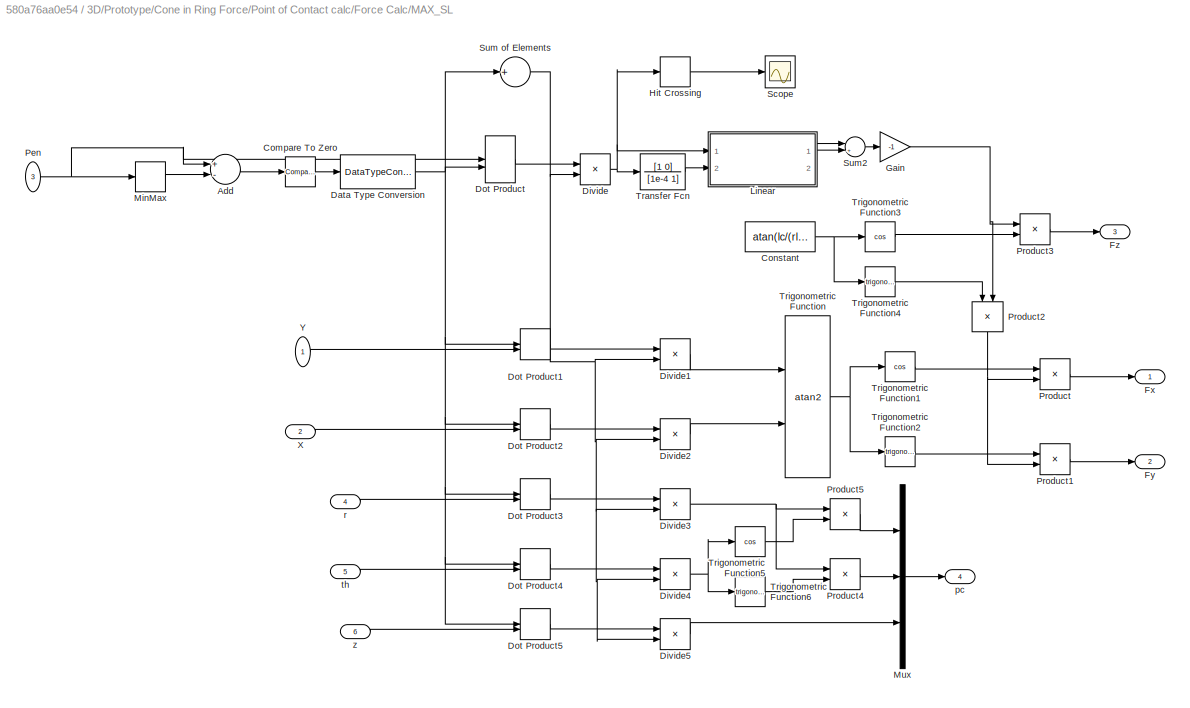
BLOCK [SubSystem] 3D/Prototype/Cone in Ring Force/Point of Contact calc/Force Calc/MAX_SL
  Ports = [6, 4]
  RequestExecContextInheritance = off
BLOCK [Sum] 3D/Prototype/Cone in Ring Force/Point of Contact calc/Force Calc/MAX_SL/Add
  InputSameDT = off
  Inputs = +-
  OutDataTypeStr = Inherit: Inherit via internal rule
  Ports = [2, 1]
  SaturateOnIntegerOverflow = off
BLOCK [Reference] 3D/Prototype/Cone in Ring Force/Point of Contact calc/Force Calc/MAX_SL/Compare To Zero  REF=simulink/Logic and Bit
Operations/Compare
To Zero
  OutDataTypeStr = boolean
  Ports = [1, 1]
  SourceBlock = simulink/Logic and Bit\nOperations/Compare\nTo Zero
  SourceType = Compare To Zero
  ZeroCross = off
  relop = ==
BLOCK [Constant] 3D/Prototype/Cone in Ring Force/Point of Contact calc/Force Calc/MAX_SL/Constant
  Value = atan(lc/(rl-rs))
BLOCK [DataTypeConversion] 3D/Prototype/Cone in Ring Force/Point of Contact calc/Force Calc/MAX_SL/Data Type Conversion
  RndMeth = Floor
  SaturateOnIntegerOverflow = off
BLOCK [Product] 3D/Prototype/Cone in Ring Force/Point of Contact calc/Force Calc/MAX_SL/Divide
  InputSameDT = off
  Inputs = */
  OutDataTypeStr = Inherit: Inherit via internal rule
  Ports = [2, 1]
  RndMeth = Floor
  SaturateOnIntegerOverflow = off
BLOCK [Product] 3D/Prototype/Cone in Ring Force/Point of Contact calc/Force Calc/MAX_SL/Divide1
  InputSameDT = off
  Inputs = */
  OutDataTypeStr = Inherit: Inherit via internal rule
  Ports = [2, 1]
  RndMeth = Floor
  SaturateOnIntegerOverflow = off
BLOCK [Product] 3D/Prototype/Cone in Ring Force/Point of Contact calc/Force Calc/MAX_SL/Divide2
  InputSameDT = off
  Inputs = */
  OutDataTypeStr = Inherit: Inherit via internal rule
  Ports = [2, 1]
  RndMeth = Floor
  SaturateOnIntegerOverflow = off
BLOCK [Product] 3D/Prototype/Cone in Ring Force/Point of Contact calc/Force Calc/MAX_SL/Divide3
  InputSameDT = off
  Inputs = */
  OutDataTypeStr = Inherit: Inherit via internal rule
  Ports = [2, 1]
  RndMeth = Floor
  SaturateOnIntegerOverflow = off
BLOCK [Product] 3D/Prototype/Cone in Ring Force/Point of Contact calc/Force Calc/MAX_SL/Divide4
  InputSameDT = off
  Inputs = */
  OutDataTypeStr = Inherit: Inherit via internal rule
  Ports = [2, 1]
  RndMeth = Floor
  SaturateOnIntegerOverflow = off
BLOCK [Product] 3D/Prototype/Cone in Ring Force/Point of Contact calc/Force Calc/MAX_SL/Divide5
  InputSameDT = off
  Inputs = */
  OutDataTypeStr = Inherit: Inherit via internal rule
  Ports = [2, 1]
  RndMeth = Floor
  SaturateOnIntegerOverflow = off
BLOCK [DotProduct] 3D/Prototype/Cone in Ring Force/Point of Contact calc/Force Calc/MAX_SL/Dot Product
  OutDataTypeStr = Inherit: Inherit via internal rule
BLOCK [DotProduct] 3D/Prototype/Cone in Ring Force/Point of Contact calc/Force Calc/MAX_SL/Dot Product1
  OutDataTypeStr = Inherit: Inherit via internal rule
BLOCK [DotProduct] 3D/Prototype/Cone in Ring Force/Point of Contact calc/Force Calc/MAX_SL/Dot Product2
  OutDataTypeStr = Inherit: Inherit via internal rule
BLOCK [DotProduct] 3D/Prototype/Cone in Ring Force/Point of Contact calc/Force Calc/MAX_SL/Dot Product3
  OutDataTypeStr = Inherit: Inherit via internal rule
BLOCK [DotProduct] 3D/Prototype/Cone in Ring Force/Point of Contact calc/Force Calc/MAX_SL/Dot Product4
  OutDataTypeStr = Inherit: Inherit via internal rule
BLOCK [DotProduct] 3D/Prototype/Cone in Ring Force/Point of Contact calc/Force Calc/MAX_SL/Dot Product5
  OutDataTypeStr = Inherit: Inherit via internal rule
BLOCK [Outport] 3D/Prototype/Cone in Ring Force/Point of Contact calc/Force Calc/MAX_SL/Fx
  IconDisplay = Port number
BLOCK [Outport] 3D/Prototype/Cone in Ring Force/Point of Contact calc/Force Calc/MAX_SL/Fy
  IconDisplay = Port number
  Port = 2
BLOCK [Outport] 3D/Prototype/Cone in Ring Force/Point of Contact calc/Force Calc/MAX_SL/Fz
  IconDisplay = Port number
  Port = 3
BLOCK [Gain] 3D/Prototype/Cone in Ring Force/Point of Contact calc/Force Calc/MAX_SL/Gain
  Gain = -1
  OutDataTypeStr = Inherit: Inherit via internal rule
  ParamDataTypeStr = Inherit: Inherit via internal rule
  SaturateOnIntegerOverflow = off
BLOCK [HitCross] 3D/Prototype/Cone in Ring Force/Point of Contact calc/Force Calc/MAX_SL/Hit Crossing
  Ports = [1, 1]
BLOCK [SubSystem] 3D/Prototype/Cone in Ring Force/Point of Contact calc/Force Calc/MAX_SL/Linear
  Ports = [2, 2]
  RequestExecContextInheritance = off
  VariantControl = Linear
BLOCK [Abs] 3D/Prototype/Cone in Ring Force/Point of Contact calc/Force Calc/MAX_SL/Linear/Abs
  SaturateOnIntegerOverflow = off
  ZeroCross = off
BLOCK [Outport] 3D/Prototype/Cone in Ring Force/Point of Contact calc/Force Calc/MAX_SL/Linear/Damp F
  IconDisplay = Port number
  Port = 2
BLOCK [Gain] 3D/Prototype/Cone in Ring Force/Point of Contact calc/Force Calc/MAX_SL/Linear/Gain1
  Gain = k_pen
  Multiplication = Matrix(K*u)
BLOCK [Gain] 3D/Prototype/Cone in Ring Force/Point of Contact calc/Force Calc/MAX_SL/Linear/Gain2
  Gain = -b_penvel
  Multiplication = Matrix(K*u)
BLOCK [Inport] 3D/Prototype/Cone in Ring Force/Point of Contact calc/Force Calc/MAX_SL/Linear/Pen
  IconDisplay = Port number
BLOCK [Inport] 3D/Prototype/Cone in Ring Force/Point of Contact calc/Force Calc/MAX_SL/Linear/Pen Vel
  IconDisplay = Port number
  Port = 2
BLOCK [Product] 3D/Prototype/Cone in Ring Force/Point of Contact calc/Force Calc/MAX_SL/Linear/Product
  InputSameDT = off
  OutDataTypeStr = Inherit: Inherit via internal rule
  Ports = [2, 1]
  SaturateOnIntegerOverflow = off
BLOCK [Saturate] 3D/Prototype/Cone in Ring Force/Point of Contact calc/Force Calc/MAX_SL/Linear/Saturation
  InputPortMap = u0
  LowerLimit = 0
  Ports = [1, 1]
  UpperLimit = Inf
  ZeroCross = off
BLOCK [Signum] 3D/Prototype/Cone in Ring Force/Point of Contact calc/Force Calc/MAX_SL/Linear/Sign
  ZeroCross = off
BLOCK [Outport] 3D/Prototype/Cone in Ring Force/Point of Contact calc/Force Calc/MAX_SL/Linear/Spr F
  IconDisplay = Port number
BLOCK [MinMax] 3D/Prototype/Cone in Ring Force/Point of Contact calc/Force Calc/MAX_SL/MinMax
  Function = max
  InputSameDT = off
  Ports = [1, 1]
  SaturateOnIntegerOverflow = off
  ZeroCross = off
BLOCK [Mux] 3D/Prototype/Cone in Ring Force/Point of Contact calc/Force Calc/MAX_SL/Mux
  DisplayOption = bar
  Inputs = 3
  Ports = [3, 1]
BLOCK [Inport] 3D/Prototype/Cone in Ring Force/Point of Contact calc/Force Calc/MAX_SL/Pen
  IconDisplay = Port number
  Port = 3
BLOCK [Product] 3D/Prototype/Cone in Ring Force/Point of Contact calc/Force Calc/MAX_SL/Product
  InputSameDT = off
  OutDataTypeStr = Inherit: Inherit via internal rule
  Ports = [2, 1]
  RndMeth = Floor
  SaturateOnIntegerOverflow = off
BLOCK [Product] 3D/Prototype/Cone in Ring Force/Point of Contact calc/Force Calc/MAX_SL/Product1
  InputSameDT = off
  OutDataTypeStr = Inherit: Inherit via internal rule
  Ports = [2, 1]
  RndMeth = Floor
  SaturateOnIntegerOverflow = off
BLOCK [Product] 3D/Prototype/Cone in Ring Force/Point of Contact calc/Force Calc/MAX_SL/Product2
  InputSameDT = off
  OutDataTypeStr = Inherit: Inherit via internal rule
  Ports = [2, 1]
  RndMeth = Floor
  SaturateOnIntegerOverflow = off
BLOCK [Product] 3D/Prototype/Cone in Ring Force/Point of Contact calc/Force Calc/MAX_SL/Product3
  InputSameDT = off
  OutDataTypeStr = Inherit: Inherit via internal rule
  Ports = [2, 1]
  RndMeth = Floor
  SaturateOnIntegerOverflow = off
BLOCK [Product] 3D/Prototype/Cone in Ring Force/Point of Contact calc/Force Calc/MAX_SL/Product4
  InputSameDT = off
  OutDataTypeStr = Inherit: Inherit via internal rule
  Ports = [2, 1]
  RndMeth = Floor
  SaturateOnIntegerOverflow = off
BLOCK [Product] 3D/Prototype/Cone in Ring Force/Point of Contact calc/Force Calc/MAX_SL/Product5
  InputSameDT = off
  OutDataTypeStr = Inherit: Inherit via internal rule
  Ports = [2, 1]
  RndMeth = Floor
  SaturateOnIntegerOverflow = off
BLOCK [Scope] 3D/Prototype/Cone in Ring Force/Point of Contact calc/Force Calc/MAX_SL/Scope
  Floating = off
  NumInputPorts = 1
  Ports = [1]
  SaveName = ScopeData2
  YMax = 10
  YMin = -10
BLOCK [Sum] 3D/Prototype/Cone in Ring Force/Point of Contact calc/Force Calc/MAX_SL/Sum of Elements
  InputSameDT = off
  Inputs = +
  OutDataTypeStr = Inherit: Inherit via internal rule
  Ports = [1, 1]
  SaturateOnIntegerOverflow = off
BLOCK [Sum] 3D/Prototype/Cone in Ring Force/Point of Contact calc/Force Calc/MAX_SL/Sum2
  IconShape = round
  InputSameDT = off
  Inputs = |+-
  OutDataTypeStr = Inherit: Inherit via internal rule
  Ports = [2, 1]
  SaturateOnIntegerOverflow = off
BLOCK [TransferFcn] 3D/Prototype/Cone in Ring Force/Point of Contact calc/Force Calc/MAX_SL/Transfer Fcn
  Denominator = [1e-4 1]
  Numerator = [1 0]
BLOCK [Trigonometry] 3D/Prototype/Cone in Ring Force/Point of Contact calc/Force Calc/MAX_SL/Trigonometric Function
  Operator = atan2
  Ports = [2, 1]
BLOCK [Trigonometry] 3D/Prototype/Cone in Ring Force/Point of Contact calc/Force Calc/MAX_SL/Trigonometric Function1
  Operator = cos
  Ports = [1, 1]
BLOCK [Trigonometry] 3D/Prototype/Cone in Ring Force/Point of Contact calc/Force Calc/MAX_SL/Trigonometric Function2
  Ports = [1, 1]
BLOCK [Trigonometry] 3D/Prototype/Cone in Ring Force/Point of Contact calc/Force Calc/MAX_SL/Trigonometric Function3
  Operator = cos
  Ports = [1, 1]
BLOCK [Trigonometry] 3D/Prototype/Cone in Ring Force/Point of Contact calc/Force Calc/MAX_SL/Trigonometric Function4
  Ports = [1, 1]
BLOCK [Trigonometry] 3D/Prototype/Cone in Ring Force/Point of Contact calc/Force Calc/MAX_SL/Trigonometric Function5
  Operator = cos
  Ports = [1, 1]
BLOCK [Trigonometry] 3D/Prototype/Cone in Ring Force/Point of Contact calc/Force Calc/MAX_SL/Trigonometric Function6
  Ports = [1, 1]
BLOCK [Inport] 3D/Prototype/Cone in Ring Force/Point of Contact calc/Force Calc/MAX_SL/X
  IconDisplay = Port number
  Port = 2
BLOCK [Inport] 3D/Prototype/Cone in Ring Force/Point of Contact calc/Force Calc/MAX_SL/Y
  IconDisplay = Port number
BLOCK [Outport] 3D/Prototype/Cone in Ring Force/Point of Contact calc/Force Calc/MAX_SL/pc
  IconDisplay = Port number
  Port = 4
BLOCK [Inport] 3D/Prototype/Cone in Ring Force/Point of Contact calc/Force Calc/MAX_SL/r
  IconDisplay = Port number
  Port = 4
BLOCK [Inport] 3D/Prototype/Cone in Ring Force/Point of Contact calc/Force Calc/MAX_SL/th
  IconDisplay = Port number
  Port = 5
BLOCK [Inport] 3D/Prototype/Cone in Ring Force/Point of Contact calc/Force Calc/MAX_SL/z
  IconDisplay = Port number
  Port = 6
BLOCK [Math] 3D/Prototype/Cone in Ring Force/Point of Contact calc/Force Calc/Math Function
  Operator = square
  Ports = [1, 1]
BLOCK [Math] 3D/Prototype/Cone in Ring Force/Point of Contact calc/Force Calc/Math Function1
  Operator = square
  Ports = [1, 1]
BLOCK [Sqrt] 3D/Prototype/Cone in Ring Force/Point of Contact calc/Force Calc/Reciprocal Sqrt
BLOCK [Sum] 3D/Prototype/Cone in Ring Force/Point of Contact calc/Force Calc/Sum
  IconShape = round
  InputSameDT = off
  Inputs = |++
  OutDataTypeStr = Inherit: Inherit via internal rule
  Ports = [2, 1]
  SaturateOnIntegerOverflow = off
BLOCK [Sum] 3D/Prototype/Cone in Ring Force/Point of Contact calc/Force Calc/Sum1
  IconShape = round
  InputSameDT = off
  Inputs = |+-
  OutDataTypeStr = Inherit: Inherit via internal rule
  Ports = [2, 1]
  SaturateOnIntegerOverflow = off
BLOCK [Outport] 3D/Prototype/Cone in Ring Force/Point of Contact calc/Force Calc/pc
  IconDisplay = Port number
  Port = 4
BLOCK [Inport] 3D/Prototype/Cone in Ring Force/Point of Contact calc/Force Calc/r
  IconDisplay = Port number
  Port = 3
BLOCK [Inport] 3D/Prototype/Cone in Ring Force/Point of Contact calc/Force Calc/th
  IconDisplay = Port number
  Port = 5
BLOCK [Inport] 3D/Prototype/Cone in Ring Force/Point of Contact calc/Force Calc/x
  IconDisplay = Port number
BLOCK [Inport] 3D/Prototype/Cone in Ring Force/Point of Contact calc/Force Calc/y
  IconDisplay = Port number
  Port = 2
BLOCK [Inport] 3D/Prototype/Cone in Ring Force/Point of Contact calc/Force Calc/z
  IconDisplay = Port number
  Port = 4
BLOCK [Mux] 3D/Prototype/Cone in Ring Force/Point of Contact calc/Mux
  DisplayOption = bar
  Inputs = 3
  Ports = [3, 1]
BLOCK [Inport] 3D/Prototype/Cone in Ring Force/Point of Contact calc/R
  IconDisplay = Port number
BLOCK [InportShadow] 3D/Prototype/Cone in Ring Force/Point of Contact calc/R1
  IconDisplay = Port number
BLOCK [Selector] 3D/Prototype/Cone in Ring Force/Point of Contact calc/Selector
  IndexOptions = Index vector (dialog),Index vector (dialog)
  Indices = 1,[1:3]
  InputPortWidth = 3
  NumberOfDimensions = 2
  OutputSizes = 1,1
  Ports = [1, 1]
BLOCK [Selector] 3D/Prototype/Cone in Ring Force/Point of Contact calc/Selector1
  IndexOptions = Index vector (dialog),Index vector (dialog)
  Indices = 2,[1:3]
  InputPortWidth = 3
  NumberOfDimensions = 2
  OutputSizes = 1,1
  Ports = [1, 1]
BLOCK [Selector] 3D/Prototype/Cone in Ring Force/Point of Contact calc/Selector2
  IndexOptions = Index vector (dialog),Index vector (dialog)
  Indices = 3,[1:3]
  InputPortWidth = 3
  NumberOfDimensions = 2
  OutputSizes = 1,1
  Ports = [1, 1]
BLOCK [Outport] 3D/Prototype/Cone in Ring Force/Point of Contact calc/T
  IconDisplay = Port number
  Port = 2
BLOCK [SubSystem] 3D/Prototype/Cone in Ring Force/Point of Contact calc/r calc
  Ports = [1, 1]
  RequestExecContextInheritance = off
BLOCK [Constant] 3D/Prototype/Cone in Ring Force/Point of Contact calc/r calc/Constant4
  Value = (rl + (l_cyl*(rl - rs))/(2*lc))
BLOCK [Gain] 3D/Prototype/Cone in Ring Force/Point of Contact calc/r calc/Gain1
  Gain = (rl - rs)/lc
  OutDataTypeStr = Inherit: Inherit via internal rule
  ParamDataTypeStr = Inherit: Inherit via internal rule
  SaturateOnIntegerOverflow = off
BLOCK [Sum] 3D/Prototype/Cone in Ring Force/Point of Contact calc/r calc/Sum1
  IconShape = round
  InputSameDT = off
  Inputs = |++
  OutDataTypeStr = Inherit: Inherit via internal rule
  Ports = [2, 1]
  SaturateOnIntegerOverflow = off
BLOCK [Outport] 3D/Prototype/Cone in Ring Force/Point of Contact calc/r calc/r
  IconDisplay = Port number
BLOCK [Inport] 3D/Prototype/Cone in Ring Force/Point of Contact calc/r calc/z
  IconDisplay = Port number
BLOCK [Inport] 3D/Prototype/Cone in Ring Force/Point of Contact calc/x
  IconDisplay = Port number
  Port = 2
BLOCK [SubSystem] 3D/Prototype/Cone in Ring Force/Point of Contact calc/x calc
  Ports = [7, 1]
  RequestExecContextInheritance = off
BLOCK [Product] 3D/Prototype/Cone in Ring Force/Point of Contact calc/x calc/Product
  InputSameDT = off
  OutDataTypeStr = Inherit: Inherit via internal rule
  Ports = [2, 1]
  RndMeth = Floor
  SaturateOnIntegerOverflow = off
BLOCK [Product] 3D/Prototype/Cone in Ring Force/Point of Contact calc/x calc/Product1
  InputSameDT = off
  OutDataTypeStr = Inherit: Inherit via internal rule
  Ports = [2, 1]
  RndMeth = Floor
  SaturateOnIntegerOverflow = off
BLOCK [Product] 3D/Prototype/Cone in Ring Force/Point of Contact calc/x calc/Product2
  InputSameDT = off
  OutDataTypeStr = Inherit: Inherit via internal rule
  Ports = [2, 1]
  RndMeth = Floor
  SaturateOnIntegerOverflow = off
BLOCK [Product] 3D/Prototype/Cone in Ring Force/Point of Contact calc/x calc/Product3
  InputSameDT = off
  OutDataTypeStr = Inherit: Inherit via internal rule
  Ports = [2, 1]
  RndMeth = Floor
  SaturateOnIntegerOverflow = off
BLOCK [Product] 3D/Prototype/Cone in Ring Force/Point of Contact calc/x calc/Product4
  InputSameDT = off
  OutDataTypeStr = Inherit: Inherit via internal rule
  Ports = [2, 1]
  RndMeth = Floor
  SaturateOnIntegerOverflow = off
BLOCK [Sum] 3D/Prototype/Cone in Ring Force/Point of Contact calc/x calc/Sum
  InputSameDT = off
  Inputs = |++++
  OutDataTypeStr = Inherit: Inherit via internal rule
  Ports = [4, 1]
  SaturateOnIntegerOverflow = off
BLOCK [Trigonometry] 3D/Prototype/Cone in Ring Force/Point of Contact calc/x calc/Trigonometric Function
  Operator = cos
  Ports = [1, 1]
BLOCK [Trigonometry] 3D/Prototype/Cone in Ring Force/Point of Contact calc/x calc/Trigonometric Function1
  Ports = [1, 1]
BLOCK [Inport] 3D/Prototype/Cone in Ring Force/Point of Contact calc/x calc/r
  IconDisplay = Port number
  Port = 7
BLOCK [Inport] 3D/Prototype/Cone in Ring Force/Point of Contact calc/x calc/r11
  IconDisplay = Port number
BLOCK [Inport] 3D/Prototype/Cone in Ring Force/Point of Contact calc/x calc/r12
  IconDisplay = Port number
  Port = 2
BLOCK [Inport] 3D/Prototype/Cone in Ring Force/Point of Contact calc/x calc/r13
  IconDisplay = Port number
  Port = 3
BLOCK [Inport] 3D/Prototype/Cone in Ring Force/Point of Contact calc/x calc/th
  IconDisplay = Port number
  Port = 5
BLOCK [Outport] 3D/Prototype/Cone in Ring Force/Point of Contact calc/x calc/x
  IconDisplay = Port number
BLOCK [Inport] 3D/Prototype/Cone in Ring Force/Point of Contact calc/x calc/xc
  IconDisplay = Port number
  Port = 4
BLOCK [Inport] 3D/Prototype/Cone in Ring Force/Point of Contact calc/x calc/z
  IconDisplay = Port number
  Port = 6
BLOCK [Inport] 3D/Prototype/Cone in Ring Force/Point of Contact calc/y
  IconDisplay = Port number
  Port = 3
BLOCK [SubSystem] 3D/Prototype/Cone in Ring Force/Point of Contact calc/y calc
  Ports = [7, 1]
  RequestExecContextInheritance = off
BLOCK [Product] 3D/Prototype/Cone in Ring Force/Point of Contact calc/y calc/Product
  InputSameDT = off
  OutDataTypeStr = Inherit: Inherit via internal rule
  Ports = [2, 1]
  RndMeth = Floor
  SaturateOnIntegerOverflow = off
BLOCK [Product] 3D/Prototype/Cone in Ring Force/Point of Contact calc/y calc/Product1
  InputSameDT = off
  OutDataTypeStr = Inherit: Inherit via internal rule
  Ports = [2, 1]
  RndMeth = Floor
  SaturateOnIntegerOverflow = off
BLOCK [Product] 3D/Prototype/Cone in Ring Force/Point of Contact calc/y calc/Product2
  InputSameDT = off
  OutDataTypeStr = Inherit: Inherit via internal rule
  Ports = [2, 1]
  RndMeth = Floor
  SaturateOnIntegerOverflow = off
BLOCK [Product] 3D/Prototype/Cone in Ring Force/Point of Contact calc/y calc/Product3
  InputSameDT = off
  OutDataTypeStr = Inherit: Inherit via internal rule
  Ports = [2, 1]
  RndMeth = Floor
  SaturateOnIntegerOverflow = off
BLOCK [Product] 3D/Prototype/Cone in Ring Force/Point of Contact calc/y calc/Product4
  InputSameDT = off
  OutDataTypeStr = Inherit: Inherit via internal rule
  Ports = [2, 1]
  RndMeth = Floor
  SaturateOnIntegerOverflow = off
BLOCK [Sum] 3D/Prototype/Cone in Ring Force/Point of Contact calc/y calc/Sum
  InputSameDT = off
  Inputs = |++++
  OutDataTypeStr = Inherit: Inherit via internal rule
  Ports = [4, 1]
  SaturateOnIntegerOverflow = off
BLOCK [Trigonometry] 3D/Prototype/Cone in Ring Force/Point of Contact calc/y calc/Trigonometric Function
  Operator = cos
  Ports = [1, 1]
BLOCK [Trigonometry] 3D/Prototype/Cone in Ring Force/Point of Contact calc/y calc/Trigonometric Function1
  Ports = [1, 1]
BLOCK [Inport] 3D/Prototype/Cone in Ring Force/Point of Contact calc/y calc/r
  IconDisplay = Port number
  Port = 7
BLOCK [Inport] 3D/Prototype/Cone in Ring Force/Point of Contact calc/y calc/r21
  IconDisplay = Port number
BLOCK [Inport] 3D/Prototype/Cone in Ring Force/Point of Contact calc/y calc/r22
  IconDisplay = Port number
  Port = 2
BLOCK [Inport] 3D/Prototype/Cone in Ring Force/Point of Contact calc/y calc/r23
  IconDisplay = Port number
  Port = 3
BLOCK [Inport] 3D/Prototype/Cone in Ring Force/Point of Contact calc/y calc/th
  IconDisplay = Port number
  Port = 5
BLOCK [Outport] 3D/Prototype/Cone in Ring Force/Point of Contact calc/y calc/y
  IconDisplay = Port number
BLOCK [Inport] 3D/Prototype/Cone in Ring Force/Point of Contact calc/y calc/yc
  IconDisplay = Port number
  Port = 4
BLOCK [Inport] 3D/Prototype/Cone in Ring Force/Point of Contact calc/y calc/z
  IconDisplay = Port number
  Port = 6
BLOCK [Inport] 3D/Prototype/Cone in Ring Force/Point of Contact calc/z
  IconDisplay = Port number
  Port = 4
BLOCK [SubSystem] 3D/Prototype/Cone in Ring Force/Point of Contact calc/z calc
  Ports = [5, 1]
  RequestExecContextInheritance = off
BLOCK [Constant] 3D/Prototype/Cone in Ring Force/Point of Contact calc/z calc/Constant
  Value = (rl + (l_cyl*(rl - rs))/(2*lc))
BLOCK [Constant] 3D/Prototype/Cone in Ring Force/Point of Contact calc/z calc/Constant1
  Value = l_tube/2
BLOCK [Constant] 3D/Prototype/Cone in Ring Force/Point of Contact calc/z calc/Constant2
  Value = (rl - rs)/lc
BLOCK [Product] 3D/Prototype/Cone in Ring Force/Point of Contact calc/z calc/Divide
  InputSameDT = off
  Inputs = */
  OutDataTypeStr = Inherit: Inherit via internal rule
  Ports = [2, 1]
  RndMeth = Floor
  SaturateOnIntegerOverflow = off
BLOCK [Gain] 3D/Prototype/Cone in Ring Force/Point of Contact calc/z calc/Gain
  Gain = -1
  OutDataTypeStr = Inherit: Inherit via internal rule
  ParamDataTypeStr = Inherit: Inherit via internal rule
  SaturateOnIntegerOverflow = off
BLOCK [Product] 3D/Prototype/Cone in Ring Force/Point of Contact calc/z calc/Product
  InputSameDT = off
  OutDataTypeStr = Inherit: Inherit via internal rule
  Ports = [2, 1]
  RndMeth = Floor
  SaturateOnIntegerOverflow = off
BLOCK [Product] 3D/Prototype/Cone in Ring Force/Point of Contact calc/z calc/Product1
  InputSameDT = off
  OutDataTypeStr = Inherit: Inherit via internal rule
  Ports = [2, 1]
  RndMeth = Floor
  SaturateOnIntegerOverflow = off
BLOCK [Product] 3D/Prototype/Cone in Ring Force/Point of Contact calc/z calc/Product2
  InputSameDT = off
  OutDataTypeStr = Inherit: Inherit via internal rule
  Ports = [2, 1]
  RndMeth = Floor
  SaturateOnIntegerOverflow = off
BLOCK [Product] 3D/Prototype/Cone in Ring Force/Point of Contact calc/z calc/Product3
  InputSameDT = off
  OutDataTypeStr = Inherit: Inherit via internal rule
  Ports = [2, 1]
  RndMeth = Floor
  SaturateOnIntegerOverflow = off
BLOCK [Product] 3D/Prototype/Cone in Ring Force/Point of Contact calc/z calc/Product4
  InputSameDT = off
  OutDataTypeStr = Inherit: Inherit via internal rule
  Ports = [2, 1]
  RndMeth = Floor
  SaturateOnIntegerOverflow = off
BLOCK [Product] 3D/Prototype/Cone in Ring Force/Point of Contact calc/z calc/Product5
  InputSameDT = off
  OutDataTypeStr = Inherit: Inherit via internal rule
  Ports = [2, 1]
  RndMeth = Floor
  SaturateOnIntegerOverflow = off
BLOCK [Sum] 3D/Prototype/Cone in Ring Force/Point of Contact calc/z calc/Sum
  InputSameDT = off
  Inputs = +-++
  OutDataTypeStr = Inherit: Inherit via internal rule
  Ports = [4, 1]
  SaturateOnIntegerOverflow = off
BLOCK [Sum] 3D/Prototype/Cone in Ring Force/Point of Contact calc/z calc/Sum1
  InputSameDT = off
  Inputs = +++
  OutDataTypeStr = Inherit: Inherit via internal rule
  Ports = [3, 1]
  SaturateOnIntegerOverflow = off
BLOCK [Trigonometry] 3D/Prototype/Cone in Ring Force/Point of Contact calc/z calc/Trigonometric Function
  Operator = cos
  Ports = [1, 1]
BLOCK [Trigonometry] 3D/Prototype/Cone in Ring Force/Point of Contact calc/z calc/Trigonometric Function1
  Ports = [1, 1]
BLOCK [Inport] 3D/Prototype/Cone in Ring Force/Point of Contact calc/z calc/r31
  IconDisplay = Port number
BLOCK [Inport] 3D/Prototype/Cone in Ring Force/Point of Contact calc/z calc/r32
  IconDisplay = Port number
  Port = 2
BLOCK [Inport] 3D/Prototype/Cone in Ring Force/Point of Contact calc/z calc/r33
  IconDisplay = Port number
  Port = 3
BLOCK [Inport] 3D/Prototype/Cone in Ring Force/Point of Contact calc/z calc/th
  IconDisplay = Port number
  Port = 5
BLOCK [Outport] 3D/Prototype/Cone in Ring Force/Point of Contact calc/z calc/z
  IconDisplay = Port number
BLOCK [Inport] 3D/Prototype/Cone in Ring Force/Point of Contact calc/z calc/zc
  IconDisplay = Port number
  Port = 4
BLOCK [Reference] 3D/Prototype/Cone in Ring Force/Simulink-PS Converter  REF=nesl_utility/Simulink-PS
Converter
  AffineConversion = off
  Frequencies = []
  InputFilterTimeConstant = 0.001
  InputFiltering = off
  LeftPortType = input
  NoiseDistribution = none
  NoiseParameters = []
  PhysicalDomain = network_engine_domain
  Ports = [1, 0, 0, 0, 0, 0, 1]
  PseudoPeriodic = off
  RightPortType = output
  SimscapeFilterOrder = 1
  SourceBlock = nesl_utility/Simulink-PS\nConverter
  SourceType = Simulink-PS\nConverter
  SubClassName = ps_input
  UdotUserProvided = 1
  Unit = 1
BLOCK [Reference] 3D/Prototype/Cone in Ring Force/Simulink-PS Converter1  REF=nesl_utility/Simulink-PS
Converter
  AffineConversion = off
  Frequencies = []
  InputFilterTimeConstant = 0.001
  InputFiltering = off
  LeftPortType = input
  NoiseDistribution = none
  NoiseParameters = []
  PhysicalDomain = network_engine_domain
  Ports = [1, 0, 0, 0, 0, 0, 1]
  PseudoPeriodic = off
  RightPortType = output
  SimscapeFilterOrder = 1
  SourceBlock = nesl_utility/Simulink-PS\nConverter
  SourceType = Simulink-PS\nConverter
  SubClassName = ps_input
  UdotUserProvided = 1
  Unit = 1
BLOCK [Reference] 3D/Prototype/Cone in Ring Force/Transform Sensor  REF=sm_lib/Frames and
Transforms/Transform
Sensor
  BlockFunction = simmechanics.library.frames_transforms.transform_sensor
  ClassName = TransformSensor
  LogSimulationData = off
  MeasurementFrame = Base
  Ports = [0, 0, 0, 0, 0, 1, 5]
  SenseAlpha1 = off
  SenseAlpha2 = off
  SenseAlpha3 = off
  SenseAlphaX = off
  SenseAlphaY = off
  SenseAlphaZ = off
  SenseAngle = off
  SenseAngle1 = off
  SenseAngle2 = off
  SenseAngle3 = off
  SenseAxis = off
  SenseAzim = off
  SenseAzimDDot = off
  SenseAzimDot = off
  SenseDist = off
  SenseDistDDot = off
  SenseDistDot = off
  SenseInc = off
  SenseIncDDot = off
  SenseIncDot = off
  SenseOmega1 = off
  SenseOmega2 = off
  SenseOmega3 = off
  SenseOmegaX = off
  SenseOmegaY = off
  SenseOmegaZ = off
  SenseQ = off
  SenseQDDot = off
  SenseQDot = off
  SenseR = on
  SenseRDDot = off
  SenseRDot = off
  SenseRad = off
  SenseRadDDot = off
  SenseRadDot = off
  SenseX = on
  SenseXDDot = off
  SenseXDot = off
  SenseY = on
  SenseYDDot = off
  SenseYDot = off
  SenseZ = on
  SenseZDDot = off
  SenseZDot = off
  SourceBlock = sm_lib/Frames and\nTransforms/Transform\nSensor
  SourceType = Transform\nSensor
BLOCK [SubSystem] 3D/Prototype/Cylinder In Ring Force
  Ports = [0, 1, 0, 0, 0, 1, 1]
  RequestExecContextInheritance = off
BLOCK [PMIOPort] 3D/Prototype/Cylinder In Ring Force/B
  Port = 1
  Side = Left
BLOCK [BusCreator] 3D/Prototype/Cylinder In Ring Force/Bus Creator
  DisplayOption = bar
  Inputs = 1
  Ports = [1, 1]
BLOCK [SubSystem] 3D/Prototype/Cylinder In Ring Force/Enable
  Ports = [2, 1]
  RequestExecContextInheritance = off
BLOCK [Abs] 3D/Prototype/Cylinder In Ring Force/Enable/Abs
  SaturateOnIntegerOverflow = off
  ZeroCross = off
BLOCK [Sum] 3D/Prototype/Cylinder In Ring Force/Enable/Add2
  InputSameDT = off
  OutDataTypeStr = Inherit: Inherit via internal rule
  Ports = [2, 1]
  SaturateOnIntegerOverflow = off
BLOCK [Sum] 3D/Prototype/Cylinder In Ring Force/Enable/Add3
  InputSameDT = off
  Inputs = +-
  OutDataTypeStr = Inherit: Inherit via internal rule
  Ports = [2, 1]
  SaturateOnIntegerOverflow = off
BLOCK [Constant] 3D/Prototype/Cylinder In Ring Force/Enable/Constant2
  Value = l_tube/2
BLOCK [Constant] 3D/Prototype/Cylinder In Ring Force/Enable/Constant3
  Value = l_cyl/2
BLOCK [Constant] 3D/Prototype/Cylinder In Ring Force/Enable/Constant4
  Value = l_cyl/2
BLOCK [Constant] 3D/Prototype/Cylinder In Ring Force/Enable/Constant5
  Value = l_tube/2
BLOCK [Outport] 3D/Prototype/Cylinder In Ring Force/Enable/Enable
  IconDisplay = Port number
BLOCK [Logic] 3D/Prototype/Cylinder In Ring Force/Enable/Logical Operator
  AllPortsSameDT = off
  OutDataTypeStr = boolean
  Ports = [2, 1]
BLOCK [Product] 3D/Prototype/Cylinder In Ring Force/Enable/Product
  InputSameDT = off
  OutDataTypeStr = Inherit: Inherit via internal rule
  Ports = [2, 1]
  RndMeth = Floor
  SaturateOnIntegerOverflow = off
BLOCK [Product] 3D/Prototype/Cylinder In Ring Force/Enable/Product1
  InputSameDT = off
  OutDataTypeStr = Inherit: Inherit via internal rule
  Ports = [2, 1]
  RndMeth = Floor
  SaturateOnIntegerOverflow = off
BLOCK [Inport] 3D/Prototype/Cylinder In Ring Force/Enable/R
  IconDisplay = Port number
  Port = 2
BLOCK [RelationalOperator] 3D/Prototype/Cylinder In Ring Force/Enable/Relational Operator
  InputSameDT = off
  OutDataTypeStr = boolean
  Ports = [2, 1]
  ZeroCross = off
BLOCK [RelationalOperator] 3D/Prototype/Cylinder In Ring Force/Enable/Relational Operator1
  InputSameDT = off
  Operator = <=
  OutDataTypeStr = boolean
  Ports = [2, 1]
  ZeroCross = off
BLOCK [Selector] 3D/Prototype/Cylinder In Ring Force/Enable/Selector
  IndexOptions = Index vector (dialog),Index vector (dialog)
  Indices = 3,3
  InputPortWidth = 3
  NumberOfDimensions = 2
  OutputSizes = 1,1
  Ports = [1, 1]
BLOCK [Inport] 3D/Prototype/Cylinder In Ring Force/Enable/z
  IconDisplay = Port number
BLOCK [Reference] 3D/Prototype/Cylinder In Ring Force/External Force and Torque  REF=sm_lib/Forces and
Torques/External Force
and Torque
  BlockFunction = simmechanics.library.forces_torques.external_force_torque
  ClassName = ExternalForceTorque
  EnableForce = on
  EnableForceX = off
  EnableForceY = off
  EnableForceZ = off
  EnableTorque = on
  EnableTorqueX = off
  EnableTorqueY = off
  EnableTorqueZ = off
  ForceResolutionFrame = AttachedFrame
  LogSimulationData = off
  Ports = [0, 0, 0, 0, 0, 2, 1]
  SourceBlock = sm_lib/Forces and\nTorques/External Force\nand Torque
  SourceType = External Force\nand Torque
  TorqueResolutionFrame = AttachedFrame
BLOCK [PMIOPort] 3D/Prototype/Cylinder In Ring Force/F
  Port = 2
  Side = Right
BLOCK [If] 3D/Prototype/Cylinder In Ring Force/If
  IfExpression = u1
  Ports = [1, 2]
BLOCK [SubSystem] 3D/Prototype/Cylinder In Ring Force/If Action Subsystem
  Ports = [0, 2, 0, 0, 0, 0, 0, 1]
  RequestExecContextInheritance = off
  TreatAsAtomicUnit = on
BLOCK [ActionPort] 3D/Prototype/Cylinder In Ring Force/If Action Subsystem/Action Port
BLOCK [Constant] 3D/Prototype/Cylinder In Ring Force/If Action Subsystem/Constant
  SampleTime = 0
  Value = [0 0 0]
BLOCK [Outport] 3D/Prototype/Cylinder In Ring Force/If Action Subsystem/F
  IconDisplay = Port number
BLOCK [Outport] 3D/Prototype/Cylinder In Ring Force/If Action Subsystem/T
  IconDisplay = Port number
  Port = 2
BLOCK [Merge] 3D/Prototype/Cylinder In Ring Force/Merge
  Ports = [2, 1]
BLOCK [Merge] 3D/Prototype/Cylinder In Ring Force/Merge1
  Ports = [2, 1]
BLOCK [Outport] 3D/Prototype/Cylinder In Ring Force/Out
  IconDisplay = Port number
BLOCK [Reference] 3D/Prototype/Cylinder In Ring Force/PS-Simulink Converter1  REF=nesl_utility/PS-Simulink
Converter
  AffineConversion = off
  Frequencies = []
  LeftPortType = input
  PhysicalDomain = network_engine_domain
  Ports = [0, 1, 0, 0, 0, 1]
  PseudoPeriodic = off
  RightPortType = output
  SourceBlock = nesl_utility/PS-Simulink\nConverter
  SourceType = PS-Simulink\nConverter
  SubClassName = ps_output
  Unit = 1
BLOCK [Reference] 3D/Prototype/Cylinder In Ring Force/PS-Simulink Converter2  REF=nesl_utility/PS-Simulink
Converter
  AffineConversion = off
  Frequencies = []
  LeftPortType = input
  PhysicalDomain = network_engine_domain
  Ports = [0, 1, 0, 0, 0, 1]
  PseudoPeriodic = off
  RightPortType = output
  SourceBlock = nesl_utility/PS-Simulink\nConverter
  SourceType = PS-Simulink\nConverter
  SubClassName = ps_output
  Unit = 1
BLOCK [Reference] 3D/Prototype/Cylinder In Ring Force/PS-Simulink Converter3  REF=nesl_utility/PS-Simulink
Converter
  AffineConversion = off
  Frequencies = []
  LeftPortType = input
  PhysicalDomain = network_engine_domain
  Ports = [0, 1, 0, 0, 0, 1]
  PseudoPeriodic = off
  RightPortType = output
  SourceBlock = nesl_utility/PS-Simulink\nConverter
  SourceType = PS-Simulink\nConverter
  SubClassName = ps_output
  Unit = 1
BLOCK [Reference] 3D/Prototype/Cylinder In Ring Force/PS-Simulink Converter4  REF=nesl_utility/PS-Simulink
Converter
  AffineConversion = off
  Frequencies = []
  LeftPortType = input
  PhysicalDomain = network_engine_domain
  Ports = [0, 1, 0, 0, 0, 1]
  PseudoPeriodic = off
  RightPortType = output
  SourceBlock = nesl_utility/PS-Simulink\nConverter
  SourceType = PS-Simulink\nConverter
  SubClassName = ps_output
  Unit = 1
BLOCK [Reference] 3D/Prototype/Cylinder In Ring Force/PS-Simulink Converter5  REF=nesl_utility/PS-Simulink
Converter
  AffineConversion = off
  Frequencies = []
  LeftPortType = input
  PhysicalDomain = network_engine_domain
  Ports = [0, 1, 0, 0, 0, 1]
  PseudoPeriodic = off
  RightPortType = output
  SourceBlock = nesl_utility/PS-Simulink\nConverter
  SourceType = PS-Simulink\nConverter
  SubClassName = ps_output
  Unit = 1
BLOCK [SubSystem] 3D/Prototype/Cylinder In Ring Force/Point of Contact calc
  Ports = [5, 3, 0, 0, 0, 0, 0, 1]
  RequestExecContextInheritance = off
BLOCK [ActionPort] 3D/Prototype/Cylinder In Ring Force/Point of Contact calc/Action Port
BLOCK [Constant] 3D/Prototype/Cylinder In Ring Force/Point of Contact calc/Constant1
  Value = [0:2*pi/n:2*pi]
BLOCK [SubSystem] 3D/Prototype/Cylinder In Ring Force/Point of Contact calc/Cross Product
  Ports = [2, 1]
  RequestExecContextInheritance = off
BLOCK [Demux] 3D/Prototype/Cylinder In Ring Force/Point of Contact calc/Cross Product/Demux1
  DisplayOption = bar
  Outputs = 3
  Ports = [1, 3]
BLOCK [Demux] 3D/Prototype/Cylinder In Ring Force/Point of Contact calc/Cross Product/Demux2
  DisplayOption = bar
  Outputs = 3
  Ports = [1, 3]
BLOCK [From] 3D/Prototype/Cylinder In Ring Force/Point of Contact calc/Cross Product/From
  GotoTag = Ay
BLOCK [From] 3D/Prototype/Cylinder In Ring Force/Point of Contact calc/Cross Product/From1
  GotoTag = Bz
BLOCK [From] 3D/Prototype/Cylinder In Ring Force/Point of Contact calc/Cross Product/From10
  GotoTag = Ay
BLOCK [From] 3D/Prototype/Cylinder In Ring Force/Point of Contact calc/Cross Product/From11
  GotoTag = Bx
BLOCK [From] 3D/Prototype/Cylinder In Ring Force/Point of Contact calc/Cross Product/From2
  GotoTag = Az
BLOCK [From] 3D/Prototype/Cylinder In Ring Force/Point of Contact calc/Cross Product/From3
  GotoTag = By
BLOCK [From] 3D/Prototype/Cylinder In Ring Force/Point of Contact calc/Cross Product/From4
  GotoTag = Az
BLOCK [From] 3D/Prototype/Cylinder In Ring Force/Point of Contact calc/Cross Product/From5
  GotoTag = Bx
BLOCK [From] 3D/Prototype/Cylinder In Ring Force/Point of Contact calc/Cross Product/From6
  GotoTag = Ax
BLOCK [From] 3D/Prototype/Cylinder In Ring Force/Point of Contact calc/Cross Product/From7
  GotoTag = Bz
BLOCK [From] 3D/Prototype/Cylinder In Ring Force/Point of Contact calc/Cross Product/From8
  GotoTag = Ax
BLOCK [From] 3D/Prototype/Cylinder In Ring Force/Point of Contact calc/Cross Product/From9
  GotoTag = By
BLOCK [Goto] 3D/Prototype/Cylinder In Ring Force/Point of Contact calc/Cross Product/Goto
  GotoTag = Ax
BLOCK [Goto] 3D/Prototype/Cylinder In Ring Force/Point of Contact calc/Cross Product/Goto1
  GotoTag = Ay
BLOCK [Goto] 3D/Prototype/Cylinder In Ring Force/Point of Contact calc/Cross Product/Goto2
  GotoTag = Az
BLOCK [Goto] 3D/Prototype/Cylinder In Ring Force/Point of Contact calc/Cross Product/Goto3
  GotoTag = Bx
BLOCK [Goto] 3D/Prototype/Cylinder In Ring Force/Point of Contact calc/Cross Product/Goto4
  GotoTag = By
BLOCK [Goto] 3D/Prototype/Cylinder In Ring Force/Point of Contact calc/Cross Product/Goto5
  GotoTag = Bz
BLOCK [Inport] 3D/Prototype/Cylinder In Ring Force/Point of Contact calc/Cross Product/In1
  IconDisplay = Port number
BLOCK [Inport] 3D/Prototype/Cylinder In Ring Force/Point of Contact calc/Cross Product/In2
  IconDisplay = Port number
  Port = 2
BLOCK [Mux] 3D/Prototype/Cylinder In Ring Force/Point of Contact calc/Cross Product/Mux
  DisplayOption = bar
  Inputs = 3
  Ports = [3, 1]
BLOCK [Outport] 3D/Prototype/Cylinder In Ring Force/Point of Contact calc/Cross Product/Out1
  IconDisplay = Port number
BLOCK [Product] 3D/Prototype/Cylinder In Ring Force/Point of Contact calc/Cross Product/Product
  InputSameDT = off
  OutDataTypeStr = Inherit: Inherit via internal rule
  Ports = [2, 1]
  RndMeth = Floor
  SaturateOnIntegerOverflow = off
BLOCK [Product] 3D/Prototype/Cylinder In Ring Force/Point of Contact calc/Cross Product/Product1
  InputSameDT = off
  OutDataTypeStr = Inherit: Inherit via internal rule
  Ports = [2, 1]
  RndMeth = Floor
  SaturateOnIntegerOverflow = off
BLOCK [Product] 3D/Prototype/Cylinder In Ring Force/Point of Contact calc/Cross Product/Product2
  InputSameDT = off
  OutDataTypeStr = Inherit: Inherit via internal rule
  Ports = [2, 1]
  RndMeth = Floor
  SaturateOnIntegerOverflow = off
BLOCK [Product] 3D/Prototype/Cylinder In Ring Force/Point of Contact calc/Cross Product/Product3
  InputSameDT = off
  OutDataTypeStr = Inherit: Inherit via internal rule
  Ports = [2, 1]
  RndMeth = Floor
  SaturateOnIntegerOverflow = off
BLOCK [Product] 3D/Prototype/Cylinder In Ring Force/Point of Contact calc/Cross Product/Product4
  InputSameDT = off
  OutDataTypeStr = Inherit: Inherit via internal rule
  Ports = [2, 1]
  RndMeth = Floor
  SaturateOnIntegerOverflow = off
BLOCK [Product] 3D/Prototype/Cylinder In Ring Force/Point of Contact calc/Cross Product/Product5
  InputSameDT = off
  OutDataTypeStr = Inherit: Inherit via internal rule
  Ports = [2, 1]
  RndMeth = Floor
  SaturateOnIntegerOverflow = off
BLOCK [Sum] 3D/Prototype/Cylinder In Ring Force/Point of Contact calc/Cross Product/Sum
  IconShape = round
  InputSameDT = off
  Inputs = +|-
  OutDataTypeStr = Inherit: Inherit via internal rule
  Ports = [2, 1]
  SaturateOnIntegerOverflow = off
BLOCK [Sum] 3D/Prototype/Cylinder In Ring Force/Point of Contact calc/Cross Product/Sum1
  IconShape = round
  InputSameDT = off
  Inputs = +|-
  OutDataTypeStr = Inherit: Inherit via internal rule
  Ports = [2, 1]
  SaturateOnIntegerOverflow = off
BLOCK [Sum] 3D/Prototype/Cylinder In Ring Force/Point of Contact calc/Cross Product/Sum2
  IconShape = round
  InputSameDT = off
  Inputs = +|-
  OutDataTypeStr = Inherit: Inherit via internal rule
  Ports = [2, 1]
  SaturateOnIntegerOverflow = off
BLOCK [Demux] 3D/Prototype/Cylinder In Ring Force/Point of Contact calc/Demux
  DisplayOption = bar
  Outputs = 3
  Ports = [1, 3]
BLOCK [Demux] 3D/Prototype/Cylinder In Ring Force/Point of Contact calc/Demux1
  DisplayOption = bar
  Outputs = 3
  Ports = [1, 3]
BLOCK [Demux] 3D/Prototype/Cylinder In Ring Force/Point of Contact calc/Demux2
  DisplayOption = bar
  Outputs = 3
  Ports = [1, 3]
BLOCK [Product] 3D/Prototype/Cylinder In Ring Force/Point of Contact calc/Divide
  InputSameDT = off
  Inputs = /*
  Multiplication = Matrix(*)
  OutDataTypeStr = Inherit: Inherit via internal rule
  Ports = [2, 1]
  RndMeth = Floor
  SaturateOnIntegerOverflow = off
BLOCK [Outport] 3D/Prototype/Cylinder In Ring Force/Point of Contact calc/F
  IconDisplay = Port number
BLOCK [SubSystem] 3D/Prototype/Cylinder In Ring Force/Point of Contact calc/Force Calc
  Ports = [5, 5]
  RequestExecContextInheritance = off
BLOCK [SubSystem] 3D/Prototype/Cylinder In Ring Force/Point of Contact calc/Force Calc/Computing Force from nonzero penetration points
  Commented = on
  Ports = [3, 2]
  RequestExecContextInheritance = off
BLOCK [Derivative] 3D/Prototype/Cylinder In Ring Force/Point of Contact calc/Force Calc/Computing Force from nonzero penetration points/Derivative
  CoefficientInTFapproximation = 1e-4
  Commented = on
BLOCK [SubSystem] 3D/Prototype/Cylinder In Ring Force/Point of Contact calc/Force Calc/Computing Force from nonzero penetration points/For Each Subsystem1
  Commented = on
  Ports = [1, 1]
  RequestExecContextInheritance = off
  TreatAsAtomicUnit = on
BLOCK [ForEach] 3D/Prototype/Cylinder In Ring Force/Point of Contact calc/Force Calc/Computing Force from nonzero penetration points/For Each Subsystem1/For Each
  DisableCoverage = on
  IndexMode = One-based
  Ports = []
BLOCK [Inport] 3D/Prototype/Cylinder In Ring Force/Point of Contact calc/Force Calc/Computing Force from nonzero penetration points/For Each Subsystem1/In1
  IconDisplay = Port number
  Partition = on
  PartitionDimension = 1
  PartitionWidth = 1
BLOCK [Outport] 3D/Prototype/Cylinder In Ring Force/Point of Contact calc/Force Calc/Computing Force from nonzero penetration points/For Each Subsystem1/Out1
  ConcatenationDimension = 1
  IconDisplay = Port number
BLOCK [TransferFcn] 3D/Prototype/Cylinder In Ring Force/Point of Contact calc/Force Calc/Computing Force from nonzero penetration points/For Each Subsystem1/Transfer Fcn1
  Denominator = [1e-4 1]
  Numerator = [1 0]
BLOCK [SubSystem] 3D/Prototype/Cylinder In Ring Force/Point of Contact calc/Force Calc/Computing Force from nonzero penetration points/For Iterator Subsystem
  Commented = on
  Ports = [4, 2]
  RequestExecContextInheritance = off
  TreatAsAtomicUnit = on
BLOCK [Delay] 3D/Prototype/Cylinder In Ring Force/Point of Contact calc/Force Calc/Computing Force from nonzero penetration points/For Iterator Subsystem/Delay
  DelayLength = 1
  InitialCondition = 0
  InputPortMap = u0
  Ports = [1, 1]
BLOCK [Delay] 3D/Prototype/Cylinder In Ring Force/Point of Contact calc/Force Calc/Computing Force from nonzero penetration points/For Iterator Subsystem/Delay1
  DelayLength = 1
  InitialCondition = 0
  InputPortMap = u0
  Ports = [1, 1]
BLOCK [ForIterator] 3D/Prototype/Cylinder In Ring Force/Point of Contact calc/Force Calc/Computing Force from nonzero penetration points/For Iterator Subsystem/For Iterator
  IterationSource = external
  Ports = [1, 1]
  ResetStates = reset
BLOCK [Outport] 3D/Prototype/Cylinder In Ring Force/Point of Contact calc/Force Calc/Computing Force from nonzero penetration points/For Iterator Subsystem/Fx
  IconDisplay = Port number
BLOCK [Outport] 3D/Prototype/Cylinder In Ring Force/Point of Contact calc/Force Calc/Computing Force from nonzero penetration points/For Iterator Subsystem/Fy
  IconDisplay = Port number
  Port = 2
BLOCK [Gain] 3D/Prototype/Cylinder In Ring Force/Point of Contact calc/Force Calc/Computing Force from nonzero penetration points/For Iterator Subsystem/Gain
  Gain = -1
  OutDataTypeStr = Inherit: Inherit via internal rule
  ParamDataTypeStr = Inherit: Inherit via internal rule
  SaturateOnIntegerOverflow = off
BLOCK [SubSystem] 3D/Prototype/Cylinder In Ring Force/Point of Contact calc/Force Calc/Computing Force from nonzero penetration points/For Iterator Subsystem/Linear
  Ports = [2, 2]
  RequestExecContextInheritance = off
  VariantControl = Linear
BLOCK [Abs] 3D/Prototype/Cylinder In Ring Force/Point of Contact calc/Force Calc/Computing Force from nonzero penetration points/For Iterator Subsystem/Linear/Abs
  SaturateOnIntegerOverflow = off
  ZeroCross = off
BLOCK [Outport] 3D/Prototype/Cylinder In Ring Force/Point of Contact calc/Force Calc/Computing Force from nonzero penetration points/For Iterator Subsystem/Linear/Damp F
  IconDisplay = Port number
  Port = 2
BLOCK [Gain] 3D/Prototype/Cylinder In Ring Force/Point of Contact calc/Force Calc/Computing Force from nonzero penetration points/For Iterator Subsystem/Linear/Gain1
  Gain = k_pen
  Multiplication = Matrix(K*u)
BLOCK [Gain] 3D/Prototype/Cylinder In Ring Force/Point of Contact calc/Force Calc/Computing Force from nonzero penetration points/For Iterator Subsystem/Linear/Gain2
  Gain = -b_penvel
  Multiplication = Matrix(K*u)
BLOCK [Inport] 3D/Prototype/Cylinder In Ring Force/Point of Contact calc/Force Calc/Computing Force from nonzero penetration points/For Iterator Subsystem/Linear/Pen
  IconDisplay = Port number
BLOCK [Inport] 3D/Prototype/Cylinder In Ring Force/Point of Contact calc/Force Calc/Computing Force from nonzero penetration points/For Iterator Subsystem/Linear/Pen Vel
  IconDisplay = Port number
  Port = 2
BLOCK [Product] 3D/Prototype/Cylinder In Ring Force/Point of Contact calc/Force Calc/Computing Force from nonzero penetration points/For Iterator Subsystem/Linear/Product
  InputSameDT = off
  OutDataTypeStr = Inherit: Inherit via internal rule
  Ports = [2, 1]
  SaturateOnIntegerOverflow = off
BLOCK [Saturate] 3D/Prototype/Cylinder In Ring Force/Point of Contact calc/Force Calc/Computing Force from nonzero penetration points/For Iterator Subsystem/Linear/Saturation
  InputPortMap = u0
  LowerLimit = 0
  Ports = [1, 1]
  UpperLimit = Inf
  ZeroCross = off
BLOCK [Signum] 3D/Prototype/Cylinder In Ring Force/Point of Contact calc/Force Calc/Computing Force from nonzero penetration points/For Iterator Subsystem/Linear/Sign
  ZeroCross = off
BLOCK [Outport] 3D/Prototype/Cylinder In Ring Force/Point of Contact calc/Force Calc/Computing Force from nonzero penetration points/For Iterator Subsystem/Linear/Spr F
  IconDisplay = Port number
BLOCK [Inport] 3D/Prototype/Cylinder In Ring Force/Point of Contact calc/Force Calc/Computing Force from nonzero penetration points/For Iterator Subsystem/Pen
  IconDisplay = Port number
BLOCK [Inport] 3D/Prototype/Cylinder In Ring Force/Point of Contact calc/Force Calc/Computing Force from nonzero penetration points/For Iterator Subsystem/Penv
  IconDisplay = Port number
  Port = 4
BLOCK [Product] 3D/Prototype/Cylinder In Ring Force/Point of Contact calc/Force Calc/Computing Force from nonzero penetration points/For Iterator Subsystem/Product
  InputSameDT = off
  OutDataTypeStr = Inherit: Inherit via internal rule
  Ports = [2, 1]
  RndMeth = Floor
  SaturateOnIntegerOverflow = off
BLOCK [Product] 3D/Prototype/Cylinder In Ring Force/Point of Contact calc/Force Calc/Computing Force from nonzero penetration points/For Iterator Subsystem/Product1
  InputSameDT = off
  OutDataTypeStr = Inherit: Inherit via internal rule
  Ports = [2, 1]
  RndMeth = Floor
  SaturateOnIntegerOverflow = off
BLOCK [Selector] 3D/Prototype/Cylinder In Ring Force/Point of Contact calc/Force Calc/Computing Force from nonzero penetration points/For Iterator Subsystem/Selector
  IndexOptions = Index vector (port)
  Indices = [1 3]
  Ports = [2, 1]
BLOCK [Selector] 3D/Prototype/Cylinder In Ring Force/Point of Contact calc/Force Calc/Computing Force from nonzero penetration points/For Iterator Subsystem/Selector1
  IndexOptions = Index vector (port)
  Indices = [1 3]
  Ports = [2, 1]
BLOCK [Selector] 3D/Prototype/Cylinder In Ring Force/Point of Contact calc/Force Calc/Computing Force from nonzero penetration points/For Iterator Subsystem/Selector2
  IndexOptions = Index vector (port)
  Indices = [1 3]
  Ports = [2, 1]
BLOCK [Selector] 3D/Prototype/Cylinder In Ring Force/Point of Contact calc/Force Calc/Computing Force from nonzero penetration points/For Iterator Subsystem/Selector3
  IndexOptions = Index vector (port)
  Indices = [1 3]
  Ports = [2, 1]
BLOCK [Sum] 3D/Prototype/Cylinder In Ring Force/Point of Contact calc/Force Calc/Computing Force from nonzero penetration points/For Iterator Subsystem/Sum
  IconShape = round
  InputSameDT = off
  Inputs = |++
  OutDataTypeStr = Inherit: Inherit via internal rule
  Ports = [2, 1]
  SaturateOnIntegerOverflow = off
BLOCK [Sum] 3D/Prototype/Cylinder In Ring Force/Point of Contact calc/Force Calc/Computing Force from nonzero penetration points/For Iterator Subsystem/Sum1
  IconShape = round
  InputSameDT = off
  Inputs = |++
  OutDataTypeStr = Inherit: Inherit via internal rule
  Ports = [2, 1]
  SaturateOnIntegerOverflow = off
BLOCK [Sum] 3D/Prototype/Cylinder In Ring Force/Point of Contact calc/Force Calc/Computing Force from nonzero penetration points/For Iterator Subsystem/Sum2
  IconShape = round
  InputSameDT = off
  Inputs = |+-
  OutDataTypeStr = Inherit: Inherit via internal rule
  Ports = [2, 1]
  SaturateOnIntegerOverflow = off
BLOCK [Trigonometry] 3D/Prototype/Cylinder In Ring Force/Point of Contact calc/Force Calc/Computing Force from nonzero penetration points/For Iterator Subsystem/Trigonometric Function
  Operator = atan2
  Ports = [2, 1]
BLOCK [Trigonometry] 3D/Prototype/Cylinder In Ring Force/Point of Contact calc/Force Calc/Computing Force from nonzero penetration points/For Iterator Subsystem/Trigonometric Function1
  Operator = cos
  Ports = [1, 1]
BLOCK [Trigonometry] 3D/Prototype/Cylinder In Ring Force/Point of Contact calc/Force Calc/Computing Force from nonzero penetration points/For Iterator Subsystem/Trigonometric Function2
  Ports = [1, 1]
BLOCK [Width] 3D/Prototype/Cylinder In Ring Force/Point of Contact calc/Force Calc/Computing Force from nonzero penetration points/For Iterator Subsystem/Width
BLOCK [Inport] 3D/Prototype/Cylinder In Ring Force/Point of Contact calc/Force Calc/Computing Force from nonzero penetration points/For Iterator Subsystem/X
  IconDisplay = Port number
  Port = 2
BLOCK [Inport] 3D/Prototype/Cylinder In Ring Force/Point of Contact calc/Force Calc/Computing Force from nonzero penetration points/For Iterator Subsystem/Y
  IconDisplay = Port number
  Port = 3
BLOCK [Outport] 3D/Prototype/Cylinder In Ring Force/Point of Contact calc/Force Calc/Computing Force from nonzero penetration points/Fx
  IconDisplay = Port number
BLOCK [Outport] 3D/Prototype/Cylinder In Ring Force/Point of Contact calc/Force Calc/Computing Force from nonzero penetration points/Fy
  IconDisplay = Port number
  Port = 2
BLOCK [Gain] 3D/Prototype/Cylinder In Ring Force/Point of Contact calc/Force Calc/Computing Force from nonzero penetration points/Gain1
  Commented = on
  Gain = -1
  OutDataTypeStr = Inherit: Inherit via internal rule
  ParamDataTypeStr = Inherit: Inherit via internal rule
  SaturateOnIntegerOverflow = off
BLOCK [SubSystem] 3D/Prototype/Cylinder In Ring Force/Point of Contact calc/Force Calc/Computing Force from nonzero penetration points/Linear1
  Commented = on
  Ports = [2, 2]
  RequestExecContextInheritance = off
  VariantControl = Linear
BLOCK [Abs] 3D/Prototype/Cylinder In Ring Force/Point of Contact calc/Force Calc/Computing Force from nonzero penetration points/Linear1/Abs
  SaturateOnIntegerOverflow = off
  ZeroCross = off
BLOCK [Outport] 3D/Prototype/Cylinder In Ring Force/Point of Contact calc/Force Calc/Computing Force from nonzero penetration points/Linear1/Damp F
  IconDisplay = Port number
  Port = 2
BLOCK [Gain] 3D/Prototype/Cylinder In Ring Force/Point of Contact calc/Force Calc/Computing Force from nonzero penetration points/Linear1/Gain1
  Gain = k_pen
  Multiplication = Matrix(K*u)
BLOCK [Gain] 3D/Prototype/Cylinder In Ring Force/Point of Contact calc/Force Calc/Computing Force from nonzero penetration points/Linear1/Gain2
  Gain = -b_penvel
  Multiplication = Matrix(K*u)
BLOCK [Inport] 3D/Prototype/Cylinder In Ring Force/Point of Contact calc/Force Calc/Computing Force from nonzero penetration points/Linear1/Pen
  IconDisplay = Port number
BLOCK [Inport] 3D/Prototype/Cylinder In Ring Force/Point of Contact calc/Force Calc/Computing Force from nonzero penetration points/Linear1/Pen Vel
  IconDisplay = Port number
  Port = 2
BLOCK [Product] 3D/Prototype/Cylinder In Ring Force/Point of Contact calc/Force Calc/Computing Force from nonzero penetration points/Linear1/Product
  InputSameDT = off
  OutDataTypeStr = Inherit: Inherit via internal rule
  Ports = [2, 1]
  SaturateOnIntegerOverflow = off
BLOCK [Saturate] 3D/Prototype/Cylinder In Ring Force/Point of Contact calc/Force Calc/Computing Force from nonzero penetration points/Linear1/Saturation
  InputPortMap = u0
  LowerLimit = 0
  Ports = [1, 1]
  UpperLimit = Inf
  ZeroCross = off
BLOCK [Signum] 3D/Prototype/Cylinder In Ring Force/Point of Contact calc/Force Calc/Computing Force from nonzero penetration points/Linear1/Sign
  ZeroCross = off
BLOCK [Outport] 3D/Prototype/Cylinder In Ring Force/Point of Contact calc/Force Calc/Computing Force from nonzero penetration points/Linear1/Spr F
  IconDisplay = Port number
BLOCK [Inport] 3D/Prototype/Cylinder In Ring Force/Point of Contact calc/Force Calc/Computing Force from nonzero penetration points/Pen
  IconDisplay = Port number
  Port = 3
BLOCK [Product] 3D/Prototype/Cylinder In Ring Force/Point of Contact calc/Force Calc/Computing Force from nonzero penetration points/Product2
  Commented = on
  InputSameDT = off
  OutDataTypeStr = Inherit: Inherit via internal rule
  Ports = [2, 1]
  RndMeth = Floor
  SaturateOnIntegerOverflow = off
BLOCK [Product] 3D/Prototype/Cylinder In Ring Force/Point of Contact calc/Force Calc/Computing Force from nonzero penetration points/Product3
  Commented = on
  InputSameDT = off
  OutDataTypeStr = Inherit: Inherit via internal rule
  Ports = [2, 1]
  RndMeth = Floor
  SaturateOnIntegerOverflow = off
BLOCK [Sum] 3D/Prototype/Cylinder In Ring Force/Point of Contact calc/Force Calc/Computing Force from nonzero penetration points/Sum of Elements
  Commented = on
  InputSameDT = off
  Inputs = +
  OutDataTypeStr = Inherit: Inherit via internal rule
  Ports = [1, 1]
  SaturateOnIntegerOverflow = off
BLOCK [Sum] 3D/Prototype/Cylinder In Ring Force/Point of Contact calc/Force Calc/Computing Force from nonzero penetration points/Sum of Elements1
  Commented = on
  InputSameDT = off
  Inputs = +
  OutDataTypeStr = Inherit: Inherit via internal rule
  Ports = [1, 1]
  SaturateOnIntegerOverflow = off
BLOCK [Sum] 3D/Prototype/Cylinder In Ring Force/Point of Contact calc/Force Calc/Computing Force from nonzero penetration points/Sum3
  Commented = on
  IconShape = round
  InputSameDT = off
  Inputs = |+-
  OutDataTypeStr = Inherit: Inherit via internal rule
  Ports = [2, 1]
  SaturateOnIntegerOverflow = off
BLOCK [Trigonometry] 3D/Prototype/Cylinder In Ring Force/Point of Contact calc/Force Calc/Computing Force from nonzero penetration points/Trigonometric Function3
  Commented = on
  Operator = atan2
  Ports = [2, 1]
BLOCK [Trigonometry] 3D/Prototype/Cylinder In Ring Force/Point of Contact calc/Force Calc/Computing Force from nonzero penetration points/Trigonometric Function4
  Commented = on
  Operator = cos
  Ports = [1, 1]
BLOCK [Trigonometry] 3D/Prototype/Cylinder In Ring Force/Point of Contact calc/Force Calc/Computing Force from nonzero penetration points/Trigonometric Function5
  Commented = on
  Ports = [1, 1]
BLOCK [Inport] 3D/Prototype/Cylinder In Ring Force/Point of Contact calc/Force Calc/Computing Force from nonzero penetration points/X
  IconDisplay = Port number
  Port = 2
BLOCK [Inport] 3D/Prototype/Cylinder In Ring Force/Point of Contact calc/Force Calc/Computing Force from nonzero penetration points/Y
  IconDisplay = Port number
BLOCK [Constant] 3D/Prototype/Cylinder In Ring Force/Point of Contact calc/Force Calc/Constant2
  Value = r_tube
BLOCK [DeadZone] 3D/Prototype/Cylinder In Ring Force/Point of Contact calc/Force Calc/Dead Zone
  LowerValue = -inf
  UpperValue = 0
  ZeroCross = off
BLOCK [Outport] 3D/Prototype/Cylinder In Ring Force/Point of Contact calc/Force Calc/Fx
  IconDisplay = Port number
BLOCK [Outport] 3D/Prototype/Cylinder In Ring Force/Point of Contact calc/Force Calc/Fy
  IconDisplay = Port number
  Port = 2
BLOCK [Outport] 3D/Prototype/Cylinder In Ring Force/Point of Contact calc/Force Calc/Fz
  IconDisplay = Port number
  Port = 3
BLOCK [SubSystem] 3D/Prototype/Cylinder In Ring Force/Point of Contact calc/Force Calc/MAX_ML
  Commented = on
  Ports = [3, 2]
  RequestExecContextInheritance = off
BLOCK [Outport] 3D/Prototype/Cylinder In Ring Force/Point of Contact calc/Force Calc/MAX_ML/Fx
  IconDisplay = Port number
BLOCK [Outport] 3D/Prototype/Cylinder In Ring Force/Point of Contact calc/Force Calc/MAX_ML/Fy
  IconDisplay = Port number
  Port = 2
BLOCK [Gain] 3D/Prototype/Cylinder In Ring Force/Point of Contact calc/Force Calc/MAX_ML/Gain
  Gain = -1
  OutDataTypeStr = Inherit: Inherit via internal rule
  ParamDataTypeStr = Inherit: Inherit via internal rule
  SaturateOnIntegerOverflow = off
BLOCK [SubSystem] 3D/Prototype/Cylinder In Ring Force/Point of Contact calc/Force Calc/MAX_ML/Linear
  Ports = [2, 2]
  RequestExecContextInheritance = off
  VariantControl = Linear
BLOCK [Abs] 3D/Prototype/Cylinder In Ring Force/Point of Contact calc/Force Calc/MAX_ML/Linear/Abs
  SaturateOnIntegerOverflow = off
  ZeroCross = off
BLOCK [Outport] 3D/Prototype/Cylinder In Ring Force/Point of Contact calc/Force Calc/MAX_ML/Linear/Damp F
  IconDisplay = Port number
  Port = 2
BLOCK [Gain] 3D/Prototype/Cylinder In Ring Force/Point of Contact calc/Force Calc/MAX_ML/Linear/Gain1
  Gain = k_pen
  Multiplication = Matrix(K*u)
BLOCK [Gain] 3D/Prototype/Cylinder In Ring Force/Point of Contact calc/Force Calc/MAX_ML/Linear/Gain2
  Gain = -b_penvel
  Multiplication = Matrix(K*u)
BLOCK [Inport] 3D/Prototype/Cylinder In Ring Force/Point of Contact calc/Force Calc/MAX_ML/Linear/Pen
  IconDisplay = Port number
BLOCK [Inport] 3D/Prototype/Cylinder In Ring Force/Point of Contact calc/Force Calc/MAX_ML/Linear/Pen Vel
  IconDisplay = Port number
  Port = 2
BLOCK [Product] 3D/Prototype/Cylinder In Ring Force/Point of Contact calc/Force Calc/MAX_ML/Linear/Product
  InputSameDT = off
  OutDataTypeStr = Inherit: Inherit via internal rule
  Ports = [2, 1]
  SaturateOnIntegerOverflow = off
BLOCK [Saturate] 3D/Prototype/Cylinder In Ring Force/Point of Contact calc/Force Calc/MAX_ML/Linear/Saturation
  InputPortMap = u0
  LowerLimit = 0
  Ports = [1, 1]
  UpperLimit = Inf
  ZeroCross = off
BLOCK [Signum] 3D/Prototype/Cylinder In Ring Force/Point of Contact calc/Force Calc/MAX_ML/Linear/Sign
  ZeroCross = off
BLOCK [Outport] 3D/Prototype/Cylinder In Ring Force/Point of Contact calc/Force Calc/MAX_ML/Linear/Spr F
  IconDisplay = Port number
BLOCK [SubSystem] 3D/Prototype/Cylinder In Ring Force/Point of Contact calc/Force Calc/MAX_ML/MATLAB Function
  ErrorFcn = Stateflow.Translate.translate
  PermitHierarchicalResolution = ExplicitOnly
  Ports = [3, 4]
  RequestExecContextInheritance = off
  SFBlockType = MATLAB Function
  TreatAsAtomicUnit = on
BLOCK [Demux] 3D/Prototype/Cylinder In Ring Force/Point of Contact calc/Force Calc/MAX_ML/MATLAB Function/ Demux 
  Outputs = 1
  Ports = [1, 1]
BLOCK [S-Function] 3D/Prototype/Cylinder In Ring Force/Point of Contact calc/Force Calc/MAX_ML/MATLAB Function/ SFunction 
  FunctionName = sf_sfun
  PortCounts = [3 5]
  Ports = [3, 5]
  Tag = Stateflow S-Function Contact_Forces_Lib 1
BLOCK [Terminator] 3D/Prototype/Cylinder In Ring Force/Point of Contact calc/Force Calc/MAX_ML/MATLAB Function/ Terminator 
BLOCK [Outport] 3D/Prototype/Cylinder In Ring Force/Point of Contact calc/Force Calc/MAX_ML/MATLAB Function/ind
  IconDisplay = Port number
  Port = 4
BLOCK [Inport] 3D/Prototype/Cylinder In Ring Force/Point of Contact calc/Force Calc/MAX_ML/MATLAB Function/pen
  IconDisplay = Port number
BLOCK [Outport] 3D/Prototype/Cylinder In Ring Force/Point of Contact calc/Force Calc/MAX_ML/MATLAB Function/penc
  IconDisplay = Port number
  Port = 3
BLOCK [Inport] 3D/Prototype/Cylinder In Ring Force/Point of Contact calc/Force Calc/MAX_ML/MATLAB Function/x
  IconDisplay = Port number
  Port = 2
BLOCK [Outport] 3D/Prototype/Cylinder In Ring Force/Point of Contact calc/Force Calc/MAX_ML/MATLAB Function/xc
  IconDisplay = Port number
BLOCK [Inport] 3D/Prototype/Cylinder In Ring Force/Point of Contact calc/Force Calc/MAX_ML/MATLAB Function/y
  IconDisplay = Port number
  Port = 3
BLOCK [Outport] 3D/Prototype/Cylinder In Ring Force/Point of Contact calc/Force Calc/MAX_ML/MATLAB Function/yc
  IconDisplay = Port number
  Port = 2
BLOCK [Product] 3D/Prototype/Cylinder In Ring Force/Point of Contact calc/Force Calc/MAX_ML/Product
  InputSameDT = off
  OutDataTypeStr = Inherit: Inherit via internal rule
  Ports = [2, 1]
  RndMeth = Floor
  SaturateOnIntegerOverflow = off
BLOCK [Product] 3D/Prototype/Cylinder In Ring Force/Point of Contact calc/Force Calc/MAX_ML/Product1
  InputSameDT = off
  OutDataTypeStr = Inherit: Inherit via internal rule
  Ports = [2, 1]
  RndMeth = Floor
  SaturateOnIntegerOverflow = off
BLOCK [Sum] 3D/Prototype/Cylinder In Ring Force/Point of Contact calc/Force Calc/MAX_ML/Sum2
  IconShape = round
  InputSameDT = off
  Inputs = |+-
  OutDataTypeStr = Inherit: Inherit via internal rule
  Ports = [2, 1]
  SaturateOnIntegerOverflow = off
BLOCK [TransferFcn] 3D/Prototype/Cylinder In Ring Force/Point of Contact calc/Force Calc/MAX_ML/Transfer Fcn
  Denominator = [1e-4 1]
  Numerator = [1 0]
BLOCK [Trigonometry] 3D/Prototype/Cylinder In Ring Force/Point of Contact calc/Force Calc/MAX_ML/Trigonometric Function
  Operator = atan2
  Ports = [2, 1]
BLOCK [Trigonometry] 3D/Prototype/Cylinder In Ring Force/Point of Contact calc/Force Calc/MAX_ML/Trigonometric Function1
  Operator = cos
  Ports = [1, 1]
BLOCK [Trigonometry] 3D/Prototype/Cylinder In Ring Force/Point of Contact calc/Force Calc/MAX_ML/Trigonometric Function2
  Ports = [1, 1]
BLOCK [Inport] 3D/Prototype/Cylinder In Ring Force/Point of Contact calc/Force Calc/MAX_ML/X
  IconDisplay = Port number
  Port = 2
BLOCK [Inport] 3D/Prototype/Cylinder In Ring Force/Point of Contact calc/Force Calc/MAX_ML/Y
  IconDisplay = Port number
BLOCK [Inport] 3D/Prototype/Cylinder In Ring Force/Point of Contact calc/Force Calc/MAX_ML/pen
  IconDisplay = Port number
  Port = 3
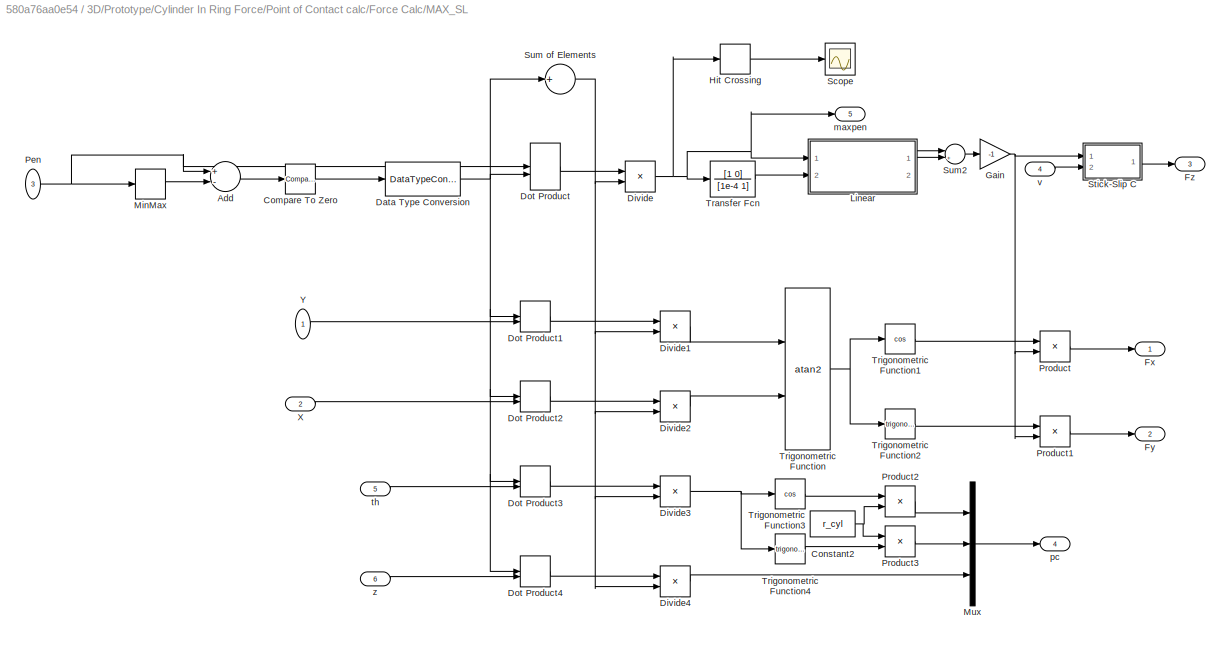
BLOCK [SubSystem] 3D/Prototype/Cylinder In Ring Force/Point of Contact calc/Force Calc/MAX_SL
  Ports = [6, 5]
  RequestExecContextInheritance = off
BLOCK [Sum] 3D/Prototype/Cylinder In Ring Force/Point of Contact calc/Force Calc/MAX_SL/Add
  InputSameDT = off
  Inputs = +-
  OutDataTypeStr = Inherit: Inherit via internal rule
  Ports = [2, 1]
  SaturateOnIntegerOverflow = off
BLOCK [Reference] 3D/Prototype/Cylinder In Ring Force/Point of Contact calc/Force Calc/MAX_SL/Compare To Zero  REF=simulink/Logic and Bit
Operations/Compare
To Zero
  OutDataTypeStr = boolean
  Ports = [1, 1]
  SourceBlock = simulink/Logic and Bit\nOperations/Compare\nTo Zero
  SourceType = Compare To Zero
  ZeroCross = off
  relop = ==
BLOCK [Constant] 3D/Prototype/Cylinder In Ring Force/Point of Contact calc/Force Calc/MAX_SL/Constant2
  Value = r_cyl
BLOCK [DataTypeConversion] 3D/Prototype/Cylinder In Ring Force/Point of Contact calc/Force Calc/MAX_SL/Data Type Conversion
  RndMeth = Floor
  SaturateOnIntegerOverflow = off
BLOCK [Product] 3D/Prototype/Cylinder In Ring Force/Point of Contact calc/Force Calc/MAX_SL/Divide
  InputSameDT = off
  Inputs = */
  OutDataTypeStr = Inherit: Inherit via internal rule
  Ports = [2, 1]
  RndMeth = Floor
  SaturateOnIntegerOverflow = off
BLOCK [Product] 3D/Prototype/Cylinder In Ring Force/Point of Contact calc/Force Calc/MAX_SL/Divide1
  InputSameDT = off
  Inputs = */
  OutDataTypeStr = Inherit: Inherit via internal rule
  Ports = [2, 1]
  RndMeth = Floor
  SaturateOnIntegerOverflow = off
BLOCK [Product] 3D/Prototype/Cylinder In Ring Force/Point of Contact calc/Force Calc/MAX_SL/Divide2
  InputSameDT = off
  Inputs = */
  OutDataTypeStr = Inherit: Inherit via internal rule
  Ports = [2, 1]
  RndMeth = Floor
  SaturateOnIntegerOverflow = off
BLOCK [Product] 3D/Prototype/Cylinder In Ring Force/Point of Contact calc/Force Calc/MAX_SL/Divide3
  InputSameDT = off
  Inputs = */
  OutDataTypeStr = Inherit: Inherit via internal rule
  Ports = [2, 1]
  RndMeth = Floor
  SaturateOnIntegerOverflow = off
BLOCK [Product] 3D/Prototype/Cylinder In Ring Force/Point of Contact calc/Force Calc/MAX_SL/Divide4
  InputSameDT = off
  Inputs = */
  OutDataTypeStr = Inherit: Inherit via internal rule
  Ports = [2, 1]
  RndMeth = Floor
  SaturateOnIntegerOverflow = off
BLOCK [DotProduct] 3D/Prototype/Cylinder In Ring Force/Point of Contact calc/Force Calc/MAX_SL/Dot Product
  OutDataTypeStr = Inherit: Inherit via internal rule
BLOCK [DotProduct] 3D/Prototype/Cylinder In Ring Force/Point of Contact calc/Force Calc/MAX_SL/Dot Product1
  OutDataTypeStr = Inherit: Inherit via internal rule
BLOCK [DotProduct] 3D/Prototype/Cylinder In Ring Force/Point of Contact calc/Force Calc/MAX_SL/Dot Product2
  OutDataTypeStr = Inherit: Inherit via internal rule
BLOCK [DotProduct] 3D/Prototype/Cylinder In Ring Force/Point of Contact calc/Force Calc/MAX_SL/Dot Product3
  OutDataTypeStr = Inherit: Inherit via internal rule
BLOCK [DotProduct] 3D/Prototype/Cylinder In Ring Force/Point of Contact calc/Force Calc/MAX_SL/Dot Product4
  OutDataTypeStr = Inherit: Inherit via internal rule
BLOCK [Outport] 3D/Prototype/Cylinder In Ring Force/Point of Contact calc/Force Calc/MAX_SL/Fx
  IconDisplay = Port number
BLOCK [Outport] 3D/Prototype/Cylinder In Ring Force/Point of Contact calc/Force Calc/MAX_SL/Fy
  IconDisplay = Port number
  Port = 2
BLOCK [Outport] 3D/Prototype/Cylinder In Ring Force/Point of Contact calc/Force Calc/MAX_SL/Fz
  IconDisplay = Port number
  Port = 3
BLOCK [Gain] 3D/Prototype/Cylinder In Ring Force/Point of Contact calc/Force Calc/MAX_SL/Gain
  Gain = -1
  OutDataTypeStr = Inherit: Inherit via internal rule
  ParamDataTypeStr = Inherit: Inherit via internal rule
  SaturateOnIntegerOverflow = off
BLOCK [HitCross] 3D/Prototype/Cylinder In Ring Force/Point of Contact calc/Force Calc/MAX_SL/Hit Crossing
  Ports = [1, 1]
BLOCK [SubSystem] 3D/Prototype/Cylinder In Ring Force/Point of Contact calc/Force Calc/MAX_SL/Linear
  Ports = [2, 2]
  RequestExecContextInheritance = off
  VariantControl = Linear
BLOCK [Abs] 3D/Prototype/Cylinder In Ring Force/Point of Contact calc/Force Calc/MAX_SL/Linear/Abs
  SaturateOnIntegerOverflow = off
  ZeroCross = off
BLOCK [Outport] 3D/Prototype/Cylinder In Ring Force/Point of Contact calc/Force Calc/MAX_SL/Linear/Damp F
  IconDisplay = Port number
  Port = 2
BLOCK [Gain] 3D/Prototype/Cylinder In Ring Force/Point of Contact calc/Force Calc/MAX_SL/Linear/Gain1
  Gain = k_pen
  Multiplication = Matrix(K*u)
BLOCK [Gain] 3D/Prototype/Cylinder In Ring Force/Point of Contact calc/Force Calc/MAX_SL/Linear/Gain2
  Gain = -b_penvel
  Multiplication = Matrix(K*u)
BLOCK [Inport] 3D/Prototype/Cylinder In Ring Force/Point of Contact calc/Force Calc/MAX_SL/Linear/Pen
  IconDisplay = Port number
BLOCK [Inport] 3D/Prototype/Cylinder In Ring Force/Point of Contact calc/Force Calc/MAX_SL/Linear/Pen Vel
  IconDisplay = Port number
  Port = 2
BLOCK [Product] 3D/Prototype/Cylinder In Ring Force/Point of Contact calc/Force Calc/MAX_SL/Linear/Product
  InputSameDT = off
  OutDataTypeStr = Inherit: Inherit via internal rule
  Ports = [2, 1]
  SaturateOnIntegerOverflow = off
BLOCK [Saturate] 3D/Prototype/Cylinder In Ring Force/Point of Contact calc/Force Calc/MAX_SL/Linear/Saturation
  InputPortMap = u0
  LowerLimit = 0
  Ports = [1, 1]
  UpperLimit = Inf
  ZeroCross = off
BLOCK [Signum] 3D/Prototype/Cylinder In Ring Force/Point of Contact calc/Force Calc/MAX_SL/Linear/Sign
  ZeroCross = off
BLOCK [Outport] 3D/Prototype/Cylinder In Ring Force/Point of Contact calc/Force Calc/MAX_SL/Linear/Spr F
  IconDisplay = Port number
BLOCK [MinMax] 3D/Prototype/Cylinder In Ring Force/Point of Contact calc/Force Calc/MAX_SL/MinMax
  Function = max
  InputSameDT = off
  Ports = [1, 1]
  SaturateOnIntegerOverflow = off
  ZeroCross = off
BLOCK [Mux] 3D/Prototype/Cylinder In Ring Force/Point of Contact calc/Force Calc/MAX_SL/Mux
  DisplayOption = bar
  Inputs = 3
  Ports = [3, 1]
BLOCK [Inport] 3D/Prototype/Cylinder In Ring Force/Point of Contact calc/Force Calc/MAX_SL/Pen
  IconDisplay = Port number
  Port = 3
BLOCK [Product] 3D/Prototype/Cylinder In Ring Force/Point of Contact calc/Force Calc/MAX_SL/Product
  InputSameDT = off
  OutDataTypeStr = Inherit: Inherit via internal rule
  Ports = [2, 1]
  RndMeth = Floor
  SaturateOnIntegerOverflow = off
BLOCK [Product] 3D/Prototype/Cylinder In Ring Force/Point of Contact calc/Force Calc/MAX_SL/Product1
  InputSameDT = off
  OutDataTypeStr = Inherit: Inherit via internal rule
  Ports = [2, 1]
  RndMeth = Floor
  SaturateOnIntegerOverflow = off
BLOCK [Product] 3D/Prototype/Cylinder In Ring Force/Point of Contact calc/Force Calc/MAX_SL/Product2
  InputSameDT = off
  OutDataTypeStr = Inherit: Inherit via internal rule
  Ports = [2, 1]
  RndMeth = Floor
  SaturateOnIntegerOverflow = off
BLOCK [Product] 3D/Prototype/Cylinder In Ring Force/Point of Contact calc/Force Calc/MAX_SL/Product3
  InputSameDT = off
  OutDataTypeStr = Inherit: Inherit via internal rule
  Ports = [2, 1]
  RndMeth = Floor
  SaturateOnIntegerOverflow = off
BLOCK [Scope] 3D/Prototype/Cylinder In Ring Force/Point of Contact calc/Force Calc/MAX_SL/Scope
  Floating = off
  NumInputPorts = 1
  Ports = [1]
  SaveName = ScopeData3
  YMax = 10
  YMin = -10
BLOCK [SubSystem] 3D/Prototype/Cylinder In Ring Force/Point of Contact calc/Force Calc/MAX_SL/Stick-Slip C 
  Ports = [2, 1]
  RequestExecContextInheritance = off
  VariantControl = Stick_Slip_C
BLOCK [Lookup_n-D] 3D/Prototype/Cylinder In Ring Force/Point of Contact calc/Force Calc/MAX_SL/Stick-Slip C /Coefficient of Friction vs Velocity
  BreakpointsForDimension1 = [-3 -1.5 -1 1 1.5 3]*vth
  InternalRulePriority = Speed
  NumberOfTableDimensions = 1
  Ports = [1, 1]
  Table = [-muk -muk -mus mus  muk muk]
BLOCK [Outport] 3D/Prototype/Cylinder In Ring Force/Point of Contact calc/Force Calc/MAX_SL/Stick-Slip C /Ff
  IconDisplay = Port number
BLOCK [Inport] 3D/Prototype/Cylinder In Ring Force/Point of Contact calc/Force Calc/MAX_SL/Stick-Slip C /Fn
  IconDisplay = Port number
BLOCK [Gain] 3D/Prototype/Cylinder In Ring Force/Point of Contact calc/Force Calc/MAX_SL/Stick-Slip C /Gain2
  Multiplication = Matrix(K*u)
BLOCK [Product] 3D/Prototype/Cylinder In Ring Force/Point of Contact calc/Force Calc/MAX_SL/Stick-Slip C /Product
  InputSameDT = off
  OutDataTypeStr = Inherit: Inherit via internal rule
  Ports = [2, 1]
  SaturateOnIntegerOverflow = off
BLOCK [Inport] 3D/Prototype/Cylinder In Ring Force/Point of Contact calc/Force Calc/MAX_SL/Stick-Slip C /v
  IconDisplay = Port number
  Port = 2
BLOCK [Sum] 3D/Prototype/Cylinder In Ring Force/Point of Contact calc/Force Calc/MAX_SL/Sum of Elements
  InputSameDT = off
  Inputs = +
  OutDataTypeStr = Inherit: Inherit via internal rule
  Ports = [1, 1]
  SaturateOnIntegerOverflow = off
BLOCK [Sum] 3D/Prototype/Cylinder In Ring Force/Point of Contact calc/Force Calc/MAX_SL/Sum2
  IconShape = round
  InputSameDT = off
  Inputs = |+-
  OutDataTypeStr = Inherit: Inherit via internal rule
  Ports = [2, 1]
  SaturateOnIntegerOverflow = off
BLOCK [TransferFcn] 3D/Prototype/Cylinder In Ring Force/Point of Contact calc/Force Calc/MAX_SL/Transfer Fcn
  Denominator = [1e-4 1]
  Numerator = [1 0]
BLOCK [Trigonometry] 3D/Prototype/Cylinder In Ring Force/Point of Contact calc/Force Calc/MAX_SL/Trigonometric Function
  Operator = atan2
  Ports = [2, 1]
BLOCK [Trigonometry] 3D/Prototype/Cylinder In Ring Force/Point of Contact calc/Force Calc/MAX_SL/Trigonometric Function1
  Operator = cos
  Ports = [1, 1]
BLOCK [Trigonometry] 3D/Prototype/Cylinder In Ring Force/Point of Contact calc/Force Calc/MAX_SL/Trigonometric Function2
  Ports = [1, 1]
BLOCK [Trigonometry] 3D/Prototype/Cylinder In Ring Force/Point of Contact calc/Force Calc/MAX_SL/Trigonometric Function3
  Operator = cos
  Ports = [1, 1]
BLOCK [Trigonometry] 3D/Prototype/Cylinder In Ring Force/Point of Contact calc/Force Calc/MAX_SL/Trigonometric Function4
  Ports = [1, 1]
BLOCK [Inport] 3D/Prototype/Cylinder In Ring Force/Point of Contact calc/Force Calc/MAX_SL/X
  IconDisplay = Port number
  Port = 2
BLOCK [Inport] 3D/Prototype/Cylinder In Ring Force/Point of Contact calc/Force Calc/MAX_SL/Y
  IconDisplay = Port number
BLOCK [Outport] 3D/Prototype/Cylinder In Ring Force/Point of Contact calc/Force Calc/MAX_SL/maxpen
  IconDisplay = Port number
  Port = 5
BLOCK [Outport] 3D/Prototype/Cylinder In Ring Force/Point of Contact calc/Force Calc/MAX_SL/pc
  IconDisplay = Port number
  Port = 4
BLOCK [Inport] 3D/Prototype/Cylinder In Ring Force/Point of Contact calc/Force Calc/MAX_SL/th
  IconDisplay = Port number
  Port = 5
BLOCK [Inport] 3D/Prototype/Cylinder In Ring Force/Point of Contact calc/Force Calc/MAX_SL/v
  IconDisplay = Port number
  Port = 4
BLOCK [Inport] 3D/Prototype/Cylinder In Ring Force/Point of Contact calc/Force Calc/MAX_SL/z
  IconDisplay = Port number
  Port = 6
BLOCK [Math] 3D/Prototype/Cylinder In Ring Force/Point of Contact calc/Force Calc/Math Function
  Operator = square
  Ports = [1, 1]
BLOCK [Math] 3D/Prototype/Cylinder In Ring Force/Point of Contact calc/Force Calc/Math Function1
  Operator = square
  Ports = [1, 1]
BLOCK [Sqrt] 3D/Prototype/Cylinder In Ring Force/Point of Contact calc/Force Calc/Reciprocal Sqrt
BLOCK [Sum] 3D/Prototype/Cylinder In Ring Force/Point of Contact calc/Force Calc/Sum
  IconShape = round
  InputSameDT = off
  Inputs = |++
  OutDataTypeStr = Inherit: Inherit via internal rule
  Ports = [2, 1]
  SaturateOnIntegerOverflow = off
BLOCK [Sum] 3D/Prototype/Cylinder In Ring Force/Point of Contact calc/Force Calc/Sum1
  IconShape = round
  InputSameDT = off
  Inputs = |+-
  OutDataTypeStr = Inherit: Inherit via internal rule
  Ports = [2, 1]
  SaturateOnIntegerOverflow = off
BLOCK [Outport] 3D/Prototype/Cylinder In Ring Force/Point of Contact calc/Force Calc/maxpen
  IconDisplay = Port number
  Port = 5
BLOCK [Outport] 3D/Prototype/Cylinder In Ring Force/Point of Contact calc/Force Calc/pc
  IconDisplay = Port number
  Port = 4
BLOCK [Inport] 3D/Prototype/Cylinder In Ring Force/Point of Contact calc/Force Calc/th
  IconDisplay = Port number
  Port = 5
BLOCK [Inport] 3D/Prototype/Cylinder In Ring Force/Point of Contact calc/Force Calc/v
  IconDisplay = Port number
  Port = 3
BLOCK [Inport] 3D/Prototype/Cylinder In Ring Force/Point of Contact calc/Force Calc/x
  IconDisplay = Port number
BLOCK [Inport] 3D/Prototype/Cylinder In Ring Force/Point of Contact calc/Force Calc/y
  IconDisplay = Port number
  Port = 2
BLOCK [Inport] 3D/Prototype/Cylinder In Ring Force/Point of Contact calc/Force Calc/z
  IconDisplay = Port number
  Port = 4
BLOCK [Mux] 3D/Prototype/Cylinder In Ring Force/Point of Contact calc/Mux
  DisplayOption = bar
  Inputs = 3
  Ports = [3, 1]
BLOCK [Inport] 3D/Prototype/Cylinder In Ring Force/Point of Contact calc/R
  IconDisplay = Port number
BLOCK [InportShadow] 3D/Prototype/Cylinder In Ring Force/Point of Contact calc/R1
  IconDisplay = Port number
BLOCK [Selector] 3D/Prototype/Cylinder In Ring Force/Point of Contact calc/Selector
  IndexOptions = Index vector (dialog),Index vector (dialog)
  Indices = 1,[1:3]
  InputPortWidth = 3
  NumberOfDimensions = 2
  OutputSizes = 1,1
  Ports = [1, 1]
BLOCK [Selector] 3D/Prototype/Cylinder In Ring Force/Point of Contact calc/Selector1
  IndexOptions = Index vector (dialog),Index vector (dialog)
  Indices = 2,[1:3]
  InputPortWidth = 3
  NumberOfDimensions = 2
  OutputSizes = 1,1
  Ports = [1, 1]
BLOCK [Selector] 3D/Prototype/Cylinder In Ring Force/Point of Contact calc/Selector2
  IndexOptions = Index vector (dialog),Index vector (dialog)
  Indices = 3,[1:3]
  InputPortWidth = 3
  NumberOfDimensions = 2
  OutputSizes = 1,1
  Ports = [1, 1]
BLOCK [Outport] 3D/Prototype/Cylinder In Ring Force/Point of Contact calc/T
  IconDisplay = Port number
  Port = 2
BLOCK [Outport] 3D/Prototype/Cylinder In Ring Force/Point of Contact calc/pen
  IconDisplay = Port number
  Port = 3
BLOCK [Inport] 3D/Prototype/Cylinder In Ring Force/Point of Contact calc/vz
  IconDisplay = Port number
  Port = 5
BLOCK [Inport] 3D/Prototype/Cylinder In Ring Force/Point of Contact calc/x
  IconDisplay = Port number
  Port = 2
BLOCK [SubSystem] 3D/Prototype/Cylinder In Ring Force/Point of Contact calc/x calc
  Ports = [6, 1]
  RequestExecContextInheritance = off
BLOCK [Gain] 3D/Prototype/Cylinder In Ring Force/Point of Contact calc/x calc/Gain
  Gain = r_cyl
  OutDataTypeStr = Inherit: Inherit via internal rule
  ParamDataTypeStr = Inherit: Inherit via internal rule
  SaturateOnIntegerOverflow = off
BLOCK [Gain] 3D/Prototype/Cylinder In Ring Force/Point of Contact calc/x calc/Gain1
  Gain = r_cyl
  OutDataTypeStr = Inherit: Inherit via internal rule
  ParamDataTypeStr = Inherit: Inherit via internal rule
  SaturateOnIntegerOverflow = off
BLOCK [Product] 3D/Prototype/Cylinder In Ring Force/Point of Contact calc/x calc/Product
  InputSameDT = off
  OutDataTypeStr = Inherit: Inherit via internal rule
  Ports = [2, 1]
  RndMeth = Floor
  SaturateOnIntegerOverflow = off
BLOCK [Product] 3D/Prototype/Cylinder In Ring Force/Point of Contact calc/x calc/Product1
  InputSameDT = off
  OutDataTypeStr = Inherit: Inherit via internal rule
  Ports = [2, 1]
  RndMeth = Floor
  SaturateOnIntegerOverflow = off
BLOCK [Product] 3D/Prototype/Cylinder In Ring Force/Point of Contact calc/x calc/Product2
  InputSameDT = off
  OutDataTypeStr = Inherit: Inherit via internal rule
  Ports = [2, 1]
  RndMeth = Floor
  SaturateOnIntegerOverflow = off
BLOCK [Sum] 3D/Prototype/Cylinder In Ring Force/Point of Contact calc/x calc/Sum
  InputSameDT = off
  Inputs = |++++
  OutDataTypeStr = Inherit: Inherit via internal rule
  Ports = [4, 1]
  SaturateOnIntegerOverflow = off
BLOCK [Trigonometry] 3D/Prototype/Cylinder In Ring Force/Point of Contact calc/x calc/Trigonometric Function
  Operator = cos
  Ports = [1, 1]
BLOCK [Trigonometry] 3D/Prototype/Cylinder In Ring Force/Point of Contact calc/x calc/Trigonometric Function1
  Ports = [1, 1]
BLOCK [Inport] 3D/Prototype/Cylinder In Ring Force/Point of Contact calc/x calc/r11
  IconDisplay = Port number
BLOCK [Inport] 3D/Prototype/Cylinder In Ring Force/Point of Contact calc/x calc/r12
  IconDisplay = Port number
  Port = 2
BLOCK [Inport] 3D/Prototype/Cylinder In Ring Force/Point of Contact calc/x calc/r13
  IconDisplay = Port number
  Port = 3
BLOCK [Inport] 3D/Prototype/Cylinder In Ring Force/Point of Contact calc/x calc/th
  IconDisplay = Port number
  Port = 5
BLOCK [Outport] 3D/Prototype/Cylinder In Ring Force/Point of Contact calc/x calc/x
  IconDisplay = Port number
BLOCK [Inport] 3D/Prototype/Cylinder In Ring Force/Point of Contact calc/x calc/xc
  IconDisplay = Port number
  Port = 4
BLOCK [Inport] 3D/Prototype/Cylinder In Ring Force/Point of Contact calc/x calc/z
  IconDisplay = Port number
  Port = 6
BLOCK [Inport] 3D/Prototype/Cylinder In Ring Force/Point of Contact calc/y
  IconDisplay = Port number
  Port = 3
BLOCK [SubSystem] 3D/Prototype/Cylinder In Ring Force/Point of Contact calc/y calc
  Ports = [6, 1]
  RequestExecContextInheritance = off
BLOCK [Gain] 3D/Prototype/Cylinder In Ring Force/Point of Contact calc/y calc/Gain
  Gain = r_cyl
  OutDataTypeStr = Inherit: Inherit via internal rule
  ParamDataTypeStr = Inherit: Inherit via internal rule
  SaturateOnIntegerOverflow = off
BLOCK [Gain] 3D/Prototype/Cylinder In Ring Force/Point of Contact calc/y calc/Gain1
  Gain = r_cyl
  OutDataTypeStr = Inherit: Inherit via internal rule
  ParamDataTypeStr = Inherit: Inherit via internal rule
  SaturateOnIntegerOverflow = off
BLOCK [Product] 3D/Prototype/Cylinder In Ring Force/Point of Contact calc/y calc/Product
  InputSameDT = off
  OutDataTypeStr = Inherit: Inherit via internal rule
  Ports = [2, 1]
  RndMeth = Floor
  SaturateOnIntegerOverflow = off
BLOCK [Product] 3D/Prototype/Cylinder In Ring Force/Point of Contact calc/y calc/Product1
  InputSameDT = off
  OutDataTypeStr = Inherit: Inherit via internal rule
  Ports = [2, 1]
  RndMeth = Floor
  SaturateOnIntegerOverflow = off
BLOCK [Product] 3D/Prototype/Cylinder In Ring Force/Point of Contact calc/y calc/Product2
  InputSameDT = off
  OutDataTypeStr = Inherit: Inherit via internal rule
  Ports = [2, 1]
  RndMeth = Floor
  SaturateOnIntegerOverflow = off
BLOCK [Sum] 3D/Prototype/Cylinder In Ring Force/Point of Contact calc/y calc/Sum
  InputSameDT = off
  Inputs = |++++
  OutDataTypeStr = Inherit: Inherit via internal rule
  Ports = [4, 1]
  SaturateOnIntegerOverflow = off
BLOCK [Trigonometry] 3D/Prototype/Cylinder In Ring Force/Point of Contact calc/y calc/Trigonometric Function
  Operator = cos
  Ports = [1, 1]
BLOCK [Trigonometry] 3D/Prototype/Cylinder In Ring Force/Point of Contact calc/y calc/Trigonometric Function1
  Ports = [1, 1]
BLOCK [Inport] 3D/Prototype/Cylinder In Ring Force/Point of Contact calc/y calc/r21
  IconDisplay = Port number
BLOCK [Inport] 3D/Prototype/Cylinder In Ring Force/Point of Contact calc/y calc/r22
  IconDisplay = Port number
  Port = 2
BLOCK [Inport] 3D/Prototype/Cylinder In Ring Force/Point of Contact calc/y calc/r23
  IconDisplay = Port number
  Port = 3
BLOCK [Inport] 3D/Prototype/Cylinder In Ring Force/Point of Contact calc/y calc/th
  IconDisplay = Port number
  Port = 5
BLOCK [Outport] 3D/Prototype/Cylinder In Ring Force/Point of Contact calc/y calc/y
  IconDisplay = Port number
BLOCK [Inport] 3D/Prototype/Cylinder In Ring Force/Point of Contact calc/y calc/yc
  IconDisplay = Port number
  Port = 4
BLOCK [Inport] 3D/Prototype/Cylinder In Ring Force/Point of Contact calc/y calc/z
  IconDisplay = Port number
  Port = 6
BLOCK [Inport] 3D/Prototype/Cylinder In Ring Force/Point of Contact calc/z
  IconDisplay = Port number
  Port = 4
BLOCK [SubSystem] 3D/Prototype/Cylinder In Ring Force/Point of Contact calc/z calc
  Ports = [5, 1]
  RequestExecContextInheritance = off
BLOCK [Constant] 3D/Prototype/Cylinder In Ring Force/Point of Contact calc/z calc/Constant
  Value = l_tube/2
BLOCK [Product] 3D/Prototype/Cylinder In Ring Force/Point of Contact calc/z calc/Divide
  InputSameDT = off
  Inputs = */
  OutDataTypeStr = Inherit: Inherit via internal rule
  Ports = [2, 1]
  RndMeth = Floor
  SaturateOnIntegerOverflow = off
BLOCK [Gain] 3D/Prototype/Cylinder In Ring Force/Point of Contact calc/z calc/Gain
  Gain = r_cyl
  OutDataTypeStr = Inherit: Inherit via internal rule
  ParamDataTypeStr = Inherit: Inherit via internal rule
  SaturateOnIntegerOverflow = off
BLOCK [Gain] 3D/Prototype/Cylinder In Ring Force/Point of Contact calc/z calc/Gain1
  Gain = r_cyl
  OutDataTypeStr = Inherit: Inherit via internal rule
  ParamDataTypeStr = Inherit: Inherit via internal rule
  SaturateOnIntegerOverflow = off
BLOCK [Product] 3D/Prototype/Cylinder In Ring Force/Point of Contact calc/z calc/Product
  InputSameDT = off
  OutDataTypeStr = Inherit: Inherit via internal rule
  Ports = [2, 1]
  RndMeth = Floor
  SaturateOnIntegerOverflow = off
BLOCK [Product] 3D/Prototype/Cylinder In Ring Force/Point of Contact calc/z calc/Product1
  InputSameDT = off
  OutDataTypeStr = Inherit: Inherit via internal rule
  Ports = [2, 1]
  RndMeth = Floor
  SaturateOnIntegerOverflow = off
BLOCK [Sum] 3D/Prototype/Cylinder In Ring Force/Point of Contact calc/z calc/Sum
  InputSameDT = off
  Inputs = |---+
  OutDataTypeStr = Inherit: Inherit via internal rule
  Ports = [4, 1]
  SaturateOnIntegerOverflow = off
BLOCK [Trigonometry] 3D/Prototype/Cylinder In Ring Force/Point of Contact calc/z calc/Trigonometric Function
  Operator = cos
  Ports = [1, 1]
BLOCK [Trigonometry] 3D/Prototype/Cylinder In Ring Force/Point of Contact calc/z calc/Trigonometric Function1
  Ports = [1, 1]
BLOCK [Inport] 3D/Prototype/Cylinder In Ring Force/Point of Contact calc/z calc/r31
  IconDisplay = Port number
BLOCK [Inport] 3D/Prototype/Cylinder In Ring Force/Point of Contact calc/z calc/r32
  IconDisplay = Port number
  Port = 2
BLOCK [Inport] 3D/Prototype/Cylinder In Ring Force/Point of Contact calc/z calc/r33
  IconDisplay = Port number
  Port = 3
BLOCK [Inport] 3D/Prototype/Cylinder In Ring Force/Point of Contact calc/z calc/th
  IconDisplay = Port number
  Port = 5
BLOCK [Outport] 3D/Prototype/Cylinder In Ring Force/Point of Contact calc/z calc/z
  IconDisplay = Port number
BLOCK [Inport] 3D/Prototype/Cylinder In Ring Force/Point of Contact calc/z calc/zc
  IconDisplay = Port number
  Port = 4
BLOCK [Reference] 3D/Prototype/Cylinder In Ring Force/Simulink-PS Converter  REF=nesl_utility/Simulink-PS
Converter
  AffineConversion = off
  Frequencies = []
  InputFilterTimeConstant = 0.001
  InputFiltering = off
  LeftPortType = input
  NoiseDistribution = none
  NoiseParameters = []
  PhysicalDomain = network_engine_domain
  Ports = [1, 0, 0, 0, 0, 0, 1]
  PseudoPeriodic = off
  RightPortType = output
  SimscapeFilterOrder = 1
  SourceBlock = nesl_utility/Simulink-PS\nConverter
  SourceType = Simulink-PS\nConverter
  SubClassName = ps_input
  UdotUserProvided = 1
  Unit = 1
BLOCK [Reference] 3D/Prototype/Cylinder In Ring Force/Simulink-PS Converter1  REF=nesl_utility/Simulink-PS
Converter
  AffineConversion = off
  Frequencies = []
  InputFilterTimeConstant = 0.001
  InputFiltering = off
  LeftPortType = input
  NoiseDistribution = none
  NoiseParameters = []
  PhysicalDomain = network_engine_domain
  Ports = [1, 0, 0, 0, 0, 0, 1]
  PseudoPeriodic = off
  RightPortType = output
  SimscapeFilterOrder = 1
  SourceBlock = nesl_utility/Simulink-PS\nConverter
  SourceType = Simulink-PS\nConverter
  SubClassName = ps_input
  UdotUserProvided = 1
  Unit = 1
BLOCK [Reference] 3D/Prototype/Cylinder In Ring Force/Transform Sensor  REF=sm_lib/Frames and
Transforms/Transform
Sensor
  BlockFunction = simmechanics.library.frames_transforms.transform_sensor
  ClassName = TransformSensor
  LogSimulationData = off
  MeasurementFrame = Base
  Ports = [0, 0, 0, 0, 0, 1, 6]
  SenseAlpha1 = off
  SenseAlpha2 = off
  SenseAlpha3 = off
  SenseAlphaX = off
  SenseAlphaY = off
  SenseAlphaZ = off
  SenseAngle = off
  SenseAngle1 = off
  SenseAngle2 = off
  SenseAngle3 = off
  SenseAxis = off
  SenseAzim = off
  SenseAzimDDot = off
  SenseAzimDot = off
  SenseDist = off
  SenseDistDDot = off
  SenseDistDot = off
  SenseInc = off
  SenseIncDDot = off
  SenseIncDot = off
  SenseOmega1 = off
  SenseOmega2 = off
  SenseOmega3 = off
  SenseOmegaX = off
  SenseOmegaY = off
  SenseOmegaZ = off
  SenseQ = off
  SenseQDDot = off
  SenseQDot = off
  SenseR = on
  SenseRDDot = off
  SenseRDot = off
  SenseRad = off
  SenseRadDDot = off
  SenseRadDot = off
  SenseX = on
  SenseXDDot = off
  SenseXDot = off
  SenseY = on
  SenseYDDot = off
  SenseYDot = off
  SenseZ = on
  SenseZDDot = off
  SenseZDot = on
  SourceBlock = sm_lib/Frames and\nTransforms/Transform\nSensor
  SourceType = Transform\nSensor
BLOCK [SubSystem] 3D/Sphere in Sphere Force
  Ports = [0, 1, 0, 0, 0, 1, 1]
  RequestExecContextInheritance = off
BLOCK [BusCreator] 3D/Sphere in Sphere Force/Bus Creator
  DisplayOption = bar
  Inputs = 2
  Ports = [2, 1]
BLOCK [BusCreator] 3D/Sphere in Sphere Force/Bus Creator1
  DisplayOption = bar
  Inputs = 7
  Ports = [7, 1]
BLOCK [SubSystem] 3D/Sphere in Sphere Force/Calculate Penetration
  Ports = [2, 2]
  RequestExecContextInheritance = off
BLOCK [Constant] 3D/Sphere in Sphere Force/Calculate Penetration/Constant
  Value = sphB_rad-sphF_rad
BLOCK [DeadZone] 3D/Sphere in Sphere Force/Calculate Penetration/Dead Zone
  LowerValue = -inf
  UpperValue = 0
BLOCK [Gain] 3D/Sphere in Sphere Force/Calculate Penetration/Gain
  OutDataTypeStr = Inherit: Inherit via internal rule
  ParamDataTypeStr = Inherit: Inherit via internal rule
  SaturateOnIntegerOverflow = off
BLOCK [Outport] 3D/Sphere in Sphere Force/Calculate Penetration/Pen
  IconDisplay = Port number
BLOCK [Outport] 3D/Sphere in Sphere Force/Calculate Penetration/Pen Vel
  IconDisplay = Port number
  Port = 2
BLOCK [Sum] 3D/Sphere in Sphere Force/Calculate Penetration/Sum
  InputSameDT = off
  Inputs = -+
  OutDataTypeStr = Inherit: Inherit via internal rule
  Ports = [2, 1]
  SaturateOnIntegerOverflow = off
BLOCK [Inport] 3D/Sphere in Sphere Force/Calculate Penetration/dst
  IconDisplay = Port number
BLOCK [Inport] 3D/Sphere in Sphere Force/Calculate Penetration/vdst
  IconDisplay = Port number
  Port = 2
BLOCK [Reference] 3D/Sphere in Sphere Force/External Force and Torque SphB  REF=sm_lib/Forces and
Torques/External Force
and Torque
  BlockFunction = simmechanics.library.forces_torques.external_force_torque
  ClassName = ExternalForceTorque
  EnableForce = on
  EnableForceX = off
  EnableForceY = off
  EnableForceZ = off
  EnableTorque = on
  EnableTorqueX = off
  EnableTorqueY = off
  EnableTorqueZ = off
  ForceResolutionFrame = AttachedFrame
  LogSimulationData = off
  Ports = [0, 0, 0, 0, 0, 2, 1]
  SourceBlock = sm_lib/Forces and\nTorques/External Force\nand Torque
  SourceType = External Force\nand Torque
  TorqueResolutionFrame = AttachedFrame
BLOCK [Reference] 3D/Sphere in Sphere Force/External Force and Torque SphF  REF=sm_lib/Forces and
Torques/External Force
and Torque
  BlockFunction = simmechanics.library.forces_torques.external_force_torque
  ClassName = ExternalForceTorque
  EnableForce = on
  EnableForceX = off
  EnableForceY = off
  EnableForceZ = off
  EnableTorque = on
  EnableTorqueX = off
  EnableTorqueY = off
  EnableTorqueZ = off
  ForceResolutionFrame = AttachedFrame
  LogSimulationData = off
  Ports = [0, 0, 0, 0, 0, 2, 1]
  SourceBlock = sm_lib/Forces and\nTorques/External Force\nand Torque
  SourceType = External Force\nand Torque
  TorqueResolutionFrame = AttachedFrame
BLOCK [SubSystem] 3D/Sphere in Sphere Force/Ff
  Ports = [5, 5]
  RequestExecContextInheritance = off
BLOCK [SubSystem] 3D/Sphere in Sphere Force/Ff/Check w or v non zero
  Ports = [2, 3]
  RequestExecContextInheritance = off
BLOCK [SubSystem] 3D/Sphere in Sphere Force/Ff/Check w or v non zero/Else
  Ports = [0, 2, 0, 0, 0, 0, 0, 1]
  RequestExecContextInheritance = off
  TreatAsAtomicUnit = on
BLOCK [ActionPort] 3D/Sphere in Sphere Force/Ff/Check w or v non zero/Else/Action Port
BLOCK [Outport] 3D/Sphere in Sphere Force/Ff/Check w or v non zero/Else/vabs
  IconDisplay = Port number
  InitialOutput = 0
BLOCK [Constant] 3D/Sphere in Sphere Force/Ff/Check w or v non zero/Else/vabs_zero
  SampleTime = 0
  Value = 0
BLOCK [Outport] 3D/Sphere in Sphere Force/Ff/Check w or v non zero/Else/vuvect
  IconDisplay = Port number
  InitialOutput = 0
  Port = 2
BLOCK [Constant] 3D/Sphere in Sphere Force/Ff/Check w or v non zero/Else/vuvect_zero
  SampleTime = 0
  Value = [0 0 0]
BLOCK [If] 3D/Sphere in Sphere Force/Ff/Check w or v non zero/If
  IfExpression = u1 ~= 0 | u2~=0
  NumInputs = 2
  Ports = [2, 2]
BLOCK [Outport] 3D/Sphere in Sphere Force/Ff/Check w or v non zero/Use SlipVel
  IconDisplay = Port number
  Port = 3
BLOCK [Outport] 3D/Sphere in Sphere Force/Ff/Check w or v non zero/else uv is 0
  IconDisplay = Port number
  Port = 2
BLOCK [Outport] 3D/Sphere in Sphere Force/Ff/Check w or v non zero/else v is 0
  IconDisplay = Port number
BLOCK [SubSystem] 3D/Sphere in Sphere Force/Ff/Check w or v non zero/mag v
  Ports = [1, 1]
  RequestExecContextInheritance = off
BLOCK [Sum] 3D/Sphere in Sphere Force/Ff/Check w or v non zero/mag v/Add2
  InputSameDT = off
  Inputs = +++
  OutDataTypeStr = Inherit: Inherit via internal rule
  Ports = [3, 1]
  SaturateOnIntegerOverflow = off
BLOCK [Demux] 3D/Sphere in Sphere Force/Ff/Check w or v non zero/mag v/Demux
  DisplayOption = bar
  Outputs = 3
  Ports = [1, 3]
BLOCK [Math] 3D/Sphere in Sphere Force/Ff/Check w or v non zero/mag v/Math Function
  Operator = square
  Ports = [1, 1]
BLOCK [Math] 3D/Sphere in Sphere Force/Ff/Check w or v non zero/mag v/Math Function1
  Operator = square
  Ports = [1, 1]
BLOCK [Math] 3D/Sphere in Sphere Force/Ff/Check w or v non zero/mag v/Math Function2
  Operator = square
  Ports = [1, 1]
BLOCK [Sqrt] 3D/Sphere in Sphere Force/Ff/Check w or v non zero/mag v/Sqrt
BLOCK [Outport] 3D/Sphere in Sphere Force/Ff/Check w or v non zero/mag v/mag
  IconDisplay = Port number
BLOCK [Inport] 3D/Sphere in Sphere Force/Ff/Check w or v non zero/mag v/vect
  IconDisplay = Port number
BLOCK [SubSystem] 3D/Sphere in Sphere Force/Ff/Check w or v non zero/mag w
  Ports = [1, 1]
  RequestExecContextInheritance = off
BLOCK [Sum] 3D/Sphere in Sphere Force/Ff/Check w or v non zero/mag w/Add
  InputSameDT = off
  Inputs = +++
  OutDataTypeStr = Inherit: Inherit via internal rule
  Ports = [3, 1]
  SaturateOnIntegerOverflow = off
BLOCK [Demux] 3D/Sphere in Sphere Force/Ff/Check w or v non zero/mag w/Demux
  DisplayOption = bar
  Outputs = 3
  Ports = [1, 3]
BLOCK [Math] 3D/Sphere in Sphere Force/Ff/Check w or v non zero/mag w/Math Function
  Operator = square
  Ports = [1, 1]
BLOCK [Math] 3D/Sphere in Sphere Force/Ff/Check w or v non zero/mag w/Math Function1
  Operator = square
  Ports = [1, 1]
BLOCK [Math] 3D/Sphere in Sphere Force/Ff/Check w or v non zero/mag w/Math Function2
  Operator = square
  Ports = [1, 1]
BLOCK [Sqrt] 3D/Sphere in Sphere Force/Ff/Check w or v non zero/mag w/Sqrt
BLOCK [Outport] 3D/Sphere in Sphere Force/Ff/Check w or v non zero/mag w/mag
  IconDisplay = Port number
BLOCK [Inport] 3D/Sphere in Sphere Force/Ff/Check w or v non zero/mag w/vect
  IconDisplay = Port number
BLOCK [Inport] 3D/Sphere in Sphere Force/Ff/Check w or v non zero/v
  IconDisplay = Port number
  Port = 2
BLOCK [Inport] 3D/Sphere in Sphere Force/Ff/Check w or v non zero/w
  IconDisplay = Port number
BLOCK [Reference] 3D/Sphere in Sphere Force/Ff/Cross Product  REF=Contact_Forces_Lib/Math/Cross
Product
  Ports = [2, 1]
  SourceBlock = Contact_Forces_Lib/Math/Cross\nProduct
  SourceType = SubSystem
BLOCK [Reference] 3D/Sphere in Sphere Force/Ff/Cross Product1  REF=Contact_Forces_Lib/Math/Cross
Product
  Ports = [2, 1]
  SourceBlock = Contact_Forces_Lib/Math/Cross\nProduct
  SourceType = SubSystem
BLOCK [Outport] 3D/Sphere in Sphere Force/Ff/FSphB
  IconDisplay = Port number
  Port = 3
BLOCK [Outport] 3D/Sphere in Sphere Force/Ff/FSphF
  IconDisplay = Port number
BLOCK [Outport] 3D/Sphere in Sphere Force/Ff/Ff
  IconDisplay = Port number
  Port = 5
BLOCK [Inport] 3D/Sphere in Sphere Force/Ff/Fn
  IconDisplay = Port number
BLOCK [Reference] 3D/Sphere in Sphere Force/Ff/Friction Law  REF=Contact_Forces_Lib/Friction Law
  OverrideUsingVariant = Stick_Slip_C
  Ports = [2, 1]
  SourceBlock = Contact_Forces_Lib/Friction Law
  SourceType = SubSystem
BLOCK [Constant] 3D/Sphere in Sphere Force/Ff/Fx1
  Value = sphB_rad
BLOCK [Constant] 3D/Sphere in Sphere Force/Ff/Fx2
  Value = sphF_rad
BLOCK [Gain] 3D/Sphere in Sphere Force/Ff/Gain1
  Gain = -1
  OutDataTypeStr = Inherit: Inherit via internal rule
  ParamDataTypeStr = Inherit: Inherit via internal rule
  SaturateOnIntegerOverflow = off
BLOCK [Gain] 3D/Sphere in Sphere Force/Ff/Gain2
  OutDataTypeStr = Inherit: Inherit via internal rule
  ParamDataTypeStr = Inherit: Inherit via internal rule
  SaturateOnIntegerOverflow = off
BLOCK [Gain] 3D/Sphere in Sphere Force/Ff/Gain3
  OutDataTypeStr = Inherit: Inherit via internal rule
  ParamDataTypeStr = Inherit: Inherit via internal rule
  SaturateOnIntegerOverflow = off
BLOCK [Merge] 3D/Sphere in Sphere Force/Ff/Merge
  Ports = [2, 1]
BLOCK [Merge] 3D/Sphere in Sphere Force/Ff/Merge1
  Ports = [2, 1]
BLOCK [Product] 3D/Sphere in Sphere Force/Ff/Product
  InputSameDT = off
  OutDataTypeStr = Inherit: Inherit via internal rule
  Ports = [2, 1]
  RndMeth = Floor
  SaturateOnIntegerOverflow = off
BLOCK [Product] 3D/Sphere in Sphere Force/Ff/Product1
  InputSameDT = off
  OutDataTypeStr = Inherit: Inherit via internal rule
  Ports = [2, 1]
  RndMeth = Floor
  SaturateOnIntegerOverflow = off
BLOCK [Product] 3D/Sphere in Sphere Force/Ff/Product2
  InputSameDT = off
  Inputs = /*
  Multiplication = Matrix(*)
  OutDataTypeStr = Inherit: Inherit via internal rule
  Ports = [2, 1]
  RndMeth = Floor
  SaturateOnIntegerOverflow = off
BLOCK [Product] 3D/Sphere in Sphere Force/Ff/Product3
  InputSameDT = off
  OutDataTypeStr = Inherit: Inherit via internal rule
  Ports = [2, 1]
  RndMeth = Floor
  SaturateOnIntegerOverflow = off
BLOCK [Product] 3D/Sphere in Sphere Force/Ff/Product4
  InputSameDT = off
  Inputs = /*
  Multiplication = Matrix(*)
  OutDataTypeStr = Inherit: Inherit via internal rule
  Ports = [2, 1]
  RndMeth = Floor
  SaturateOnIntegerOverflow = off
BLOCK [Inport] 3D/Sphere in Sphere Force/Ff/R
  IconDisplay = Port number
  Port = 2
BLOCK [SubSystem] 3D/Sphere in Sphere Force/Ff/SlipVel
  Ports = [3, 2, 0, 0, 0, 0, 0, 1]
  RequestExecContextInheritance = off
BLOCK [ActionPort] 3D/Sphere in Sphere Force/Ff/SlipVel/Action Port
BLOCK [Sum] 3D/Sphere in Sphere Force/Ff/SlipVel/Add
  InputSameDT = off
  OutDataTypeStr = Inherit: Inherit via internal rule
  Ports = [2, 1]
  SaturateOnIntegerOverflow = off
BLOCK [Sum] 3D/Sphere in Sphere Force/Ff/SlipVel/Add1
  InputSameDT = off
  Inputs = +-
  OutDataTypeStr = Inherit: Inherit via internal rule
  Ports = [2, 1]
  SaturateOnIntegerOverflow = off
BLOCK [Sum] 3D/Sphere in Sphere Force/Ff/SlipVel/Add2
  InputSameDT = off
  Inputs = +++
  OutDataTypeStr = Inherit: Inherit via internal rule
  Ports = [3, 1]
  SaturateOnIntegerOverflow = off
BLOCK [Reference] 3D/Sphere in Sphere Force/Ff/SlipVel/Cross Product  REF=Contact_Forces_Lib/Math/Cross
Product
  Ports = [2, 1]
  SourceBlock = Contact_Forces_Lib/Math/Cross\nProduct
  SourceType = SubSystem
BLOCK [Demux] 3D/Sphere in Sphere Force/Ff/SlipVel/Demux
  DisplayOption = bar
  Outputs = 3
  Ports = [1, 3]
BLOCK [DotProduct] 3D/Sphere in Sphere Force/Ff/SlipVel/Dot Product
  OutDataTypeStr = Inherit: Inherit via internal rule
BLOCK [Gain] 3D/Sphere in Sphere Force/Ff/SlipVel/Fsphere_rad
  Gain = sphF_rad
  OutDataTypeStr = Inherit: Inherit via internal rule
  ParamDataTypeStr = Inherit: Inherit via internal rule
  SaturateOnIntegerOverflow = off
BLOCK [Gain] 3D/Sphere in Sphere Force/Ff/SlipVel/Gain
  OutDataTypeStr = Inherit: Inherit via internal rule
  ParamDataTypeStr = Inherit: Inherit via internal rule
  SaturateOnIntegerOverflow = off
BLOCK [If] 3D/Sphere in Sphere Force/Ff/SlipVel/If
  Ports = [1, 1]
  ShowElse = off
BLOCK [SubSystem] 3D/Sphere in Sphere Force/Ff/SlipVel/If Action Subsystem
  Ports = [2, 1, 0, 0, 0, 0, 0, 1]
  RequestExecContextInheritance = off
  TreatAsAtomicUnit = on
BLOCK [ActionPort] 3D/Sphere in Sphere Force/Ff/SlipVel/If Action Subsystem/Action Port
BLOCK [Product] 3D/Sphere in Sphere Force/Ff/SlipVel/If Action Subsystem/Divide
  InputSameDT = off
  Inputs = /*
  OutDataTypeStr = Inherit: Inherit via internal rule
  Ports = [2, 1]
  RndMeth = Floor
  SaturateOnIntegerOverflow = off
BLOCK [Inport] 3D/Sphere in Sphere Force/Ff/SlipVel/If Action Subsystem/In1
  IconDisplay = Port number
BLOCK [Inport] 3D/Sphere in Sphere Force/Ff/SlipVel/If Action Subsystem/In2
  IconDisplay = Port number
  Port = 2
BLOCK [Outport] 3D/Sphere in Sphere Force/Ff/SlipVel/If Action Subsystem/Out1
  IconDisplay = Port number
BLOCK [Math] 3D/Sphere in Sphere Force/Ff/SlipVel/Math Function
  Operator = square
  Ports = [1, 1]
BLOCK [Math] 3D/Sphere in Sphere Force/Ff/SlipVel/Math Function1
  Operator = square
  Ports = [1, 1]
BLOCK [Math] 3D/Sphere in Sphere Force/Ff/SlipVel/Math Function2
  Operator = square
  Ports = [1, 1]
BLOCK [Product] 3D/Sphere in Sphere Force/Ff/SlipVel/Product
  InputSameDT = off
  OutDataTypeStr = Inherit: Inherit via internal rule
  Ports = [2, 1]
  RndMeth = Floor
  SaturateOnIntegerOverflow = off
BLOCK [Sqrt] 3D/Sphere in Sphere Force/Ff/SlipVel/Sqrt
BLOCK [Inport] 3D/Sphere in Sphere Force/Ff/SlipVel/dvect
  IconDisplay = Port number
  Port = 3
BLOCK [SubSystem] 3D/Sphere in Sphere Force/Ff/SlipVel/mag
  Ports = [1, 1]
  RequestExecContextInheritance = off
BLOCK [Sum] 3D/Sphere in Sphere Force/Ff/SlipVel/mag/Add2
  InputSameDT = off
  Inputs = +++
  OutDataTypeStr = Inherit: Inherit via internal rule
  Ports = [3, 1]
  SaturateOnIntegerOverflow = off
BLOCK [Demux] 3D/Sphere in Sphere Force/Ff/SlipVel/mag/Demux
  DisplayOption = bar
  Outputs = 3
  Ports = [1, 3]
BLOCK [Math] 3D/Sphere in Sphere Force/Ff/SlipVel/mag/Math Function
  Operator = square
  Ports = [1, 1]
BLOCK [Math] 3D/Sphere in Sphere Force/Ff/SlipVel/mag/Math Function1
  Operator = square
  Ports = [1, 1]
BLOCK [Math] 3D/Sphere in Sphere Force/Ff/SlipVel/mag/Math Function2
  Operator = square
  Ports = [1, 1]
BLOCK [Sqrt] 3D/Sphere in Sphere Force/Ff/SlipVel/mag/Sqrt
BLOCK [Outport] 3D/Sphere in Sphere Force/Ff/SlipVel/mag/mag
  IconDisplay = Port number
BLOCK [Inport] 3D/Sphere in Sphere Force/Ff/SlipVel/mag/vect
  IconDisplay = Port number
BLOCK [Inport] 3D/Sphere in Sphere Force/Ff/SlipVel/v
  IconDisplay = Port number
  Port = 2
BLOCK [Outport] 3D/Sphere in Sphere Force/Ff/SlipVel/vabs
  IconDisplay = Port number
  InitialOutput = 0
BLOCK [Outport] 3D/Sphere in Sphere Force/Ff/SlipVel/vuvect
  IconDisplay = Port number
  InitialOutput = 0
  Port = 2
BLOCK [Inport] 3D/Sphere in Sphere Force/Ff/SlipVel/w
  IconDisplay = Port number
BLOCK [Outport] 3D/Sphere in Sphere Force/Ff/TSphB
  IconDisplay = Port number
  Port = 4
BLOCK [Outport] 3D/Sphere in Sphere Force/Ff/TSphF
  IconDisplay = Port number
  Port = 2
BLOCK [Inport] 3D/Sphere in Sphere Force/Ff/dvect
  IconDisplay = Port number
  Port = 3
BLOCK [SubSystem] 3D/Sphere in Sphere Force/Ff/mag
  Ports = [1, 1]
  RequestExecContextInheritance = off
BLOCK [Sum] 3D/Sphere in Sphere Force/Ff/mag/Add2
  InputSameDT = off
  Inputs = +++
  OutDataTypeStr = Inherit: Inherit via internal rule
  Ports = [3, 1]
  SaturateOnIntegerOverflow = off
BLOCK [Demux] 3D/Sphere in Sphere Force/Ff/mag/Demux
  DisplayOption = bar
  Outputs = 3
  Ports = [1, 3]
BLOCK [Math] 3D/Sphere in Sphere Force/Ff/mag/Math Function
  Operator = square
  Ports = [1, 1]
BLOCK [Math] 3D/Sphere in Sphere Force/Ff/mag/Math Function1
  Operator = square
  Ports = [1, 1]
BLOCK [Math] 3D/Sphere in Sphere Force/Ff/mag/Math Function2
  Operator = square
  Ports = [1, 1]
BLOCK [Sqrt] 3D/Sphere in Sphere Force/Ff/mag/Sqrt
BLOCK [Outport] 3D/Sphere in Sphere Force/Ff/mag/mag
  IconDisplay = Port number
BLOCK [Inport] 3D/Sphere in Sphere Force/Ff/mag/vect
  IconDisplay = Port number
BLOCK [Inport] 3D/Sphere in Sphere Force/Ff/v
  IconDisplay = Port number
  Port = 4
BLOCK [Inport] 3D/Sphere in Sphere Force/Ff/w
  IconDisplay = Port number
  Port = 5
BLOCK [SubSystem] 3D/Sphere in Sphere Force/Fn
  Ports = [4, 3]
  RequestExecContextInheritance = off
BLOCK [Inport] 3D/Sphere in Sphere Force/Fn/DamF
  IconDisplay = Port number
  Port = 3
BLOCK [Outport] 3D/Sphere in Sphere Force/Fn/FSphB
  IconDisplay = Port number
  Port = 3
BLOCK [Outport] 3D/Sphere in Sphere Force/Fn/FSphF
  IconDisplay = Port number
  Port = 2
BLOCK [Outport] 3D/Sphere in Sphere Force/Fn/Fn
  IconDisplay = Port number
BLOCK [Gain] 3D/Sphere in Sphere Force/Fn/Gain
  Gain = -1
  OutDataTypeStr = Inherit: Inherit via internal rule
  ParamDataTypeStr = Inherit: Inherit via internal rule
  SaturateOnIntegerOverflow = off
BLOCK [Gain] 3D/Sphere in Sphere Force/Fn/Gain1
  Gain = -1
  OutDataTypeStr = Inherit: Inherit via internal rule
  ParamDataTypeStr = Inherit: Inherit via internal rule
  SaturateOnIntegerOverflow = off
BLOCK [Product] 3D/Sphere in Sphere Force/Fn/Product
  InputSameDT = off
  OutDataTypeStr = Inherit: Inherit via internal rule
  Ports = [2, 1]
  RndMeth = Floor
  SaturateOnIntegerOverflow = off
BLOCK [Product] 3D/Sphere in Sphere Force/Fn/Product2
  InputSameDT = off
  Inputs = /*
  Multiplication = Matrix(*)
  OutDataTypeStr = Inherit: Inherit via internal rule
  Ports = [2, 1]
  RndMeth = Floor
  SaturateOnIntegerOverflow = off
BLOCK [Inport] 3D/Sphere in Sphere Force/Fn/R
  IconDisplay = Port number
BLOCK [Inport] 3D/Sphere in Sphere Force/Fn/SprF
  IconDisplay = Port number
  Port = 2
BLOCK [Sum] 3D/Sphere in Sphere Force/Fn/Sum
  IconShape = round
  InputSameDT = off
  Inputs = |+-
  OutDataTypeStr = Inherit: Inherit via internal rule
  Ports = [2, 1]
  SaturateOnIntegerOverflow = off
BLOCK [Inport] 3D/Sphere in Sphere Force/Fn/dvect
  IconDisplay = Port number
  Port = 4
BLOCK [Reference] 3D/Sphere in Sphere Force/Force Law  REF=Contact_Forces_Lib/Force Law
  OverrideUsingVariant = Linear
  Ports = [2, 2]
  SourceBlock = Contact_Forces_Lib/Force Law
  SourceType = SubSystem
BLOCK [Gain] 3D/Sphere in Sphere Force/Gain1
  Gain = -1
  OutDataTypeStr = Inherit: Inherit via internal rule
  ParamDataTypeStr = Inherit: Inherit via internal rule
  SaturateOnIntegerOverflow = off
BLOCK [Outport] 3D/Sphere in Sphere Force/Out
  IconDisplay = Port number
BLOCK [SubSystem] 3D/Sphere in Sphere Force/Sensing
  Ports = [0, 6, 0, 0, 0, 2]
  RequestExecContextInheritance = off
BLOCK [PMIOPort] 3D/Sphere in Sphere Force/Sensing/B
  Port = 2
  Side = Left
BLOCK [Product] 3D/Sphere in Sphere Force/Sensing/Divide
  InputSameDT = off
  Inputs = */
  OutDataTypeStr = Inherit: Inherit via internal rule
  Ports = [2, 1]
  RndMeth = Floor
  SaturateOnIntegerOverflow = off
BLOCK [PMIOPort] 3D/Sphere in Sphere Force/Sensing/F
  Port = 1
  Side = Left
BLOCK [Mux] 3D/Sphere in Sphere Force/Sensing/Mux
  DisplayOption = bar
  Inputs = 3
  Ports = [3, 1]
BLOCK [Mux] 3D/Sphere in Sphere Force/Sensing/Mux1
  DisplayOption = bar
  Inputs = 3
  Ports = [3, 1]
BLOCK [Mux] 3D/Sphere in Sphere Force/Sensing/Mux2
  DisplayOption = bar
  Inputs = 3
  Ports = [3, 1]
BLOCK [Reference] 3D/Sphere in Sphere Force/Sensing/PS-Simulink Converter10  REF=nesl_utility/PS-Simulink
Converter
  AffineConversion = off
  Frequencies = []
  LeftPortType = input
  PhysicalDomain = network_engine_domain
  Ports = [0, 1, 0, 0, 0, 1]
  PseudoPeriodic = off
  RightPortType = output
  SourceBlock = nesl_utility/PS-Simulink\nConverter
  SourceType = PS-Simulink\nConverter
  SubClassName = ps_output
  Unit = 1
BLOCK [Reference] 3D/Sphere in Sphere Force/Sensing/PS-Simulink Converter11  REF=nesl_utility/PS-Simulink
Converter
  AffineConversion = off
  Frequencies = []
  LeftPortType = input
  PhysicalDomain = network_engine_domain
  Ports = [0, 1, 0, 0, 0, 1]
  PseudoPeriodic = off
  RightPortType = output
  SourceBlock = nesl_utility/PS-Simulink\nConverter
  SourceType = PS-Simulink\nConverter
  SubClassName = ps_output
  Unit = 1
BLOCK [Reference] 3D/Sphere in Sphere Force/Sensing/PS-Simulink Converter12  REF=nesl_utility/PS-Simulink
Converter
  AffineConversion = off
  Frequencies = []
  LeftPortType = input
  PhysicalDomain = network_engine_domain
  Ports = [0, 1, 0, 0, 0, 1]
  PseudoPeriodic = off
  RightPortType = output
  SourceBlock = nesl_utility/PS-Simulink\nConverter
  SourceType = PS-Simulink\nConverter
  SubClassName = ps_output
  Unit = 1
BLOCK [Reference] 3D/Sphere in Sphere Force/Sensing/PS-Simulink Converter13  REF=nesl_utility/PS-Simulink
Converter
  AffineConversion = off
  Frequencies = []
  LeftPortType = input
  PhysicalDomain = network_engine_domain
  Ports = [0, 1, 0, 0, 0, 1]
  PseudoPeriodic = off
  RightPortType = output
  SourceBlock = nesl_utility/PS-Simulink\nConverter
  SourceType = PS-Simulink\nConverter
  SubClassName = ps_output
  Unit = 1
BLOCK [Reference] 3D/Sphere in Sphere Force/Sensing/PS-Simulink Converter14  REF=nesl_utility/PS-Simulink
Converter
  AffineConversion = off
  Frequencies = []
  LeftPortType = input
  PhysicalDomain = network_engine_domain
  Ports = [0, 1, 0, 0, 0, 1]
  PseudoPeriodic = off
  RightPortType = output
  SourceBlock = nesl_utility/PS-Simulink\nConverter
  SourceType = PS-Simulink\nConverter
  SubClassName = ps_output
  Unit = 1
BLOCK [Reference] 3D/Sphere in Sphere Force/Sensing/PS-Simulink Converter15  REF=nesl_utility/PS-Simulink
Converter
  AffineConversion = off
  Frequencies = []
  LeftPortType = input
  PhysicalDomain = network_engine_domain
  Ports = [0, 1, 0, 0, 0, 1]
  PseudoPeriodic = off
  RightPortType = output
  SourceBlock = nesl_utility/PS-Simulink\nConverter
  SourceType = PS-Simulink\nConverter
  SubClassName = ps_output
  Unit = 1
BLOCK [Reference] 3D/Sphere in Sphere Force/Sensing/PS-Simulink Converter2  REF=nesl_utility/PS-Simulink
Converter
  AffineConversion = off
  Frequencies = []
  LeftPortType = input
  PhysicalDomain = network_engine_domain
  Ports = [0, 1, 0, 0, 0, 1]
  PseudoPeriodic = off
  RightPortType = output
  SourceBlock = nesl_utility/PS-Simulink\nConverter
  SourceType = PS-Simulink\nConverter
  SubClassName = ps_output
  Unit = 1
BLOCK [Reference] 3D/Sphere in Sphere Force/Sensing/PS-Simulink Converter3  REF=nesl_utility/PS-Simulink
Converter
  AffineConversion = off
  Frequencies = []
  LeftPortType = input
  PhysicalDomain = network_engine_domain
  Ports = [0, 1, 0, 0, 0, 1]
  PseudoPeriodic = off
  RightPortType = output
  SourceBlock = nesl_utility/PS-Simulink\nConverter
  SourceType = PS-Simulink\nConverter
  SubClassName = ps_output
  Unit = 1
BLOCK [Reference] 3D/Sphere in Sphere Force/Sensing/PS-Simulink Converter4  REF=nesl_utility/PS-Simulink
Converter
  AffineConversion = off
  Frequencies = []
  LeftPortType = input
  PhysicalDomain = network_engine_domain
  Ports = [0, 1, 0, 0, 0, 1]
  PseudoPeriodic = off
  RightPortType = output
  SourceBlock = nesl_utility/PS-Simulink\nConverter
  SourceType = PS-Simulink\nConverter
  SubClassName = ps_output
  Unit = 1
BLOCK [Reference] 3D/Sphere in Sphere Force/Sensing/PS-Simulink Converter7  REF=nesl_utility/PS-Simulink
Converter
  AffineConversion = off
  Frequencies = []
  LeftPortType = input
  PhysicalDomain = network_engine_domain
  Ports = [0, 1, 0, 0, 0, 1]
  PseudoPeriodic = off
  RightPortType = output
  SourceBlock = nesl_utility/PS-Simulink\nConverter
  SourceType = PS-Simulink\nConverter
  SubClassName = ps_output
  Unit = 1
BLOCK [Reference] 3D/Sphere in Sphere Force/Sensing/PS-Simulink Converter8  REF=nesl_utility/PS-Simulink
Converter
  AffineConversion = off
  Frequencies = []
  LeftPortType = input
  PhysicalDomain = network_engine_domain
  Ports = [0, 1, 0, 0, 0, 1]
  PseudoPeriodic = off
  RightPortType = output
  SourceBlock = nesl_utility/PS-Simulink\nConverter
  SourceType = PS-Simulink\nConverter
  SubClassName = ps_output
  Unit = 1
BLOCK [Reference] 3D/Sphere in Sphere Force/Sensing/PS-Simulink Converter9  REF=nesl_utility/PS-Simulink
Converter
  AffineConversion = off
  Frequencies = []
  LeftPortType = input
  PhysicalDomain = network_engine_domain
  Ports = [0, 1, 0, 0, 0, 1]
  PseudoPeriodic = off
  RightPortType = output
  SourceBlock = nesl_utility/PS-Simulink\nConverter
  SourceType = PS-Simulink\nConverter
  SubClassName = ps_output
  Unit = 1
BLOCK [Outport] 3D/Sphere in Sphere Force/Sensing/R
  IconDisplay = Port number
BLOCK [Reference] 3D/Sphere in Sphere Force/Sensing/Transform Sensor  REF=sm_lib/Frames and
Transforms/Transform
Sensor
  BlockFunction = simmechanics.library.frames_transforms.transform_sensor
  ClassName = TransformSensor
  LogSimulationData = off
  MeasurementFrame = Base
  Ports = [0, 0, 0, 0, 0, 1, 13]
  SenseAlpha1 = off
  SenseAlpha2 = off
  SenseAlpha3 = off
  SenseAlphaX = off
  SenseAlphaY = off
  SenseAlphaZ = off
  SenseAngle = off
  SenseAngle1 = off
  SenseAngle2 = off
  SenseAngle3 = off
  SenseAxis = off
  SenseAzim = off
  SenseAzimDDot = off
  SenseAzimDot = off
  SenseDist = on
  SenseDistDDot = off
  SenseDistDot = on
  SenseInc = off
  SenseIncDDot = off
  SenseIncDot = off
  SenseOmega1 = off
  SenseOmega2 = off
  SenseOmega3 = off
  SenseOmegaX = on
  SenseOmegaY = on
  SenseOmegaZ = on
  SenseQ = off
  SenseQDDot = off
  SenseQDot = off
  SenseR = on
  SenseRDDot = off
  SenseRDot = off
  SenseRad = off
  SenseRadDDot = off
  SenseRadDot = off
  SenseX = on
  SenseXDDot = off
  SenseXDot = on
  SenseY = on
  SenseYDDot = off
  SenseYDot = on
  SenseZ = on
  SenseZDDot = off
  SenseZDot = on
  SourceBlock = sm_lib/Frames and\nTransforms/Transform\nSensor
  SourceType = Transform\nSensor
BLOCK [Outport] 3D/Sphere in Sphere Force/Sensing/dst
  IconDisplay = Port number
  Port = 2
BLOCK [Outport] 3D/Sphere in Sphere Force/Sensing/dvect
  IconDisplay = Port number
  Port = 4
BLOCK [Outport] 3D/Sphere in Sphere Force/Sensing/v
  IconDisplay = Port number
  Port = 5
BLOCK [Outport] 3D/Sphere in Sphere Force/Sensing/vdst
  IconDisplay = Port number
  Port = 3
BLOCK [Outport] 3D/Sphere in Sphere Force/Sensing/w
  IconDisplay = Port number
  Port = 6
BLOCK [Reference] 3D/Sphere in Sphere Force/Simulink-PS Converter1  REF=nesl_utility/Simulink-PS
Converter
  AffineConversion = off
  Frequencies = []
  InputFilterTimeConstant = 0.001
  InputFiltering = off
  LeftPortType = input
  NoiseDistribution = none
  NoiseParameters = []
  PhysicalDomain = network_engine_domain
  Ports = [1, 0, 0, 0, 0, 0, 1]
  PseudoPeriodic = off
  RightPortType = output
  SimscapeFilterOrder = 1
  SourceBlock = nesl_utility/Simulink-PS\nConverter
  SourceType = Simulink-PS\nConverter
  SubClassName = ps_input
  UdotUserProvided = 1
  Unit = 1
BLOCK [Reference] 3D/Sphere in Sphere Force/Simulink-PS Converter2  REF=nesl_utility/Simulink-PS
Converter
  AffineConversion = off
  Frequencies = []
  InputFilterTimeConstant = 0.001
  InputFiltering = off
  LeftPortType = input
  NoiseDistribution = none
  NoiseParameters = []
  PhysicalDomain = network_engine_domain
  Ports = [1, 0, 0, 0, 0, 0, 1]
  PseudoPeriodic = off
  RightPortType = output
  SimscapeFilterOrder = 1
  SourceBlock = nesl_utility/Simulink-PS\nConverter
  SourceType = Simulink-PS\nConverter
  SubClassName = ps_input
  UdotUserProvided = 1
  Unit = 1
BLOCK [Reference] 3D/Sphere in Sphere Force/Simulink-PS Converter3  REF=nesl_utility/Simulink-PS
Converter
  AffineConversion = off
  Frequencies = []
  InputFilterTimeConstant = 0.001
  InputFiltering = off
  LeftPortType = input
  NoiseDistribution = none
  NoiseParameters = []
  PhysicalDomain = network_engine_domain
  Ports = [1, 0, 0, 0, 0, 0, 1]
  PseudoPeriodic = off
  RightPortType = output
  SimscapeFilterOrder = 1
  SourceBlock = nesl_utility/Simulink-PS\nConverter
  SourceType = Simulink-PS\nConverter
  SubClassName = ps_input
  UdotUserProvided = 1
  Unit = 1
BLOCK [Reference] 3D/Sphere in Sphere Force/Simulink-PS Converter4  REF=nesl_utility/Simulink-PS
Converter
  AffineConversion = off
  Frequencies = []
  InputFilterTimeConstant = 0.001
  InputFiltering = off
  LeftPortType = input
  NoiseDistribution = none
  NoiseParameters = []
  PhysicalDomain = network_engine_domain
  Ports = [1, 0, 0, 0, 0, 0, 1]
  PseudoPeriodic = off
  RightPortType = output
  SimscapeFilterOrder = 1
  SourceBlock = nesl_utility/Simulink-PS\nConverter
  SourceType = Simulink-PS\nConverter
  SubClassName = ps_input
  UdotUserProvided = 1
  Unit = 1
BLOCK [PMIOPort] 3D/Sphere in Sphere Force/SphB
  Port = 2
  Side = Right
BLOCK [PMIOPort] 3D/Sphere in Sphere Force/SphF
  Port = 1
  Side = Left
BLOCK [Sum] 3D/Sphere in Sphere Force/Sum
  InputSameDT = off
  OutDataTypeStr = Inherit: Inherit via internal rule
  Ports = [2, 1]
  SaturateOnIntegerOverflow = off
BLOCK [Sum] 3D/Sphere in Sphere Force/Sum2
  InputSameDT = off
  OutDataTypeStr = Inherit: Inherit via internal rule
  Ports = [2, 1]
  SaturateOnIntegerOverflow = off
BLOCK [SubSystem] 3D/Sphere to Plane Force
  Ports = [0, 1, 0, 0, 0, 1, 1]
  RequestExecContextInheritance = off
BLOCK [Abs] 3D/Sphere to Plane Force/Abs
  SaturateOnIntegerOverflow = off
BLOCK [Abs] 3D/Sphere to Plane Force/Abs1
  SaturateOnIntegerOverflow = off
BLOCK [BusCreator] 3D/Sphere to Plane Force/Bus Creator
  DisplayOption = bar
  Inputs = 3
  Ports = [3, 1]
BLOCK [BusCreator] 3D/Sphere to Plane Force/Bus Creator1
  DisplayOption = bar
  Inputs = 7
  Ports = [7, 1]
BLOCK [BusSelector] 3D/Sphere to Plane Force/Bus Selector
  OutputSignals = Normal Force,Friction Force,Penetration,Penetration Vel,Spr Force,Damp Force
  Ports = [1, 6]
BLOCK [SubSystem] 3D/Sphere to Plane Force/Demux
  Ports = [1, 0, 0, 0, 0, 0, 4]
  RequestExecContextInheritance = off
BLOCK [Demux] 3D/Sphere to Plane Force/Demux/Demux
  DisplayOption = bar
  Ports = [1, 4]
BLOCK [PMIOPort] 3D/Sphere to Plane Force/Demux/FPla
  Port = 3
  Side = Right
BLOCK [PMIOPort] 3D/Sphere to Plane Force/Demux/FSph
  Port = 1
  Side = Right
BLOCK [Inport] 3D/Sphere to Plane Force/Demux/Frc
  IconDisplay = Port number
BLOCK [Reference] 3D/Sphere to Plane Force/Demux/Simulink-PS Converter  REF=nesl_utility/Simulink-PS
Converter
  AffineConversion = off
  Frequencies = []
  InputFilterTimeConstant = 0.001
  InputFiltering = off
  LeftPortType = input
  NoiseDistribution = none
  NoiseParameters = []
  PhysicalDomain = network_engine_domain
  Ports = [1, 0, 0, 0, 0, 0, 1]
  PseudoPeriodic = off
  RightPortType = output
  SimscapeFilterOrder = 1
  SourceBlock = nesl_utility/Simulink-PS\nConverter
  SourceType = Simulink-PS\nConverter
  SubClassName = ps_input
  UdotUserProvided = 1
  Unit = 1
BLOCK [Reference] 3D/Sphere to Plane Force/Demux/Simulink-PS Converter1  REF=nesl_utility/Simulink-PS
Converter
  AffineConversion = off
  Frequencies = []
  InputFilterTimeConstant = 0.001
  InputFiltering = off
  LeftPortType = input
  NoiseDistribution = none
  NoiseParameters = []
  PhysicalDomain = network_engine_domain
  Ports = [1, 0, 0, 0, 0, 0, 1]
  PseudoPeriodic = off
  RightPortType = output
  SimscapeFilterOrder = 1
  SourceBlock = nesl_utility/Simulink-PS\nConverter
  SourceType = Simulink-PS\nConverter
  SubClassName = ps_input
  UdotUserProvided = 1
  Unit = 1
BLOCK [Reference] 3D/Sphere to Plane Force/Demux/Simulink-PS Converter2  REF=nesl_utility/Simulink-PS
Converter
  AffineConversion = off
  Frequencies = []
  InputFilterTimeConstant = 0.001
  InputFiltering = off
  LeftPortType = input
  NoiseDistribution = none
  NoiseParameters = []
  PhysicalDomain = network_engine_domain
  Ports = [1, 0, 0, 0, 0, 0, 1]
  PseudoPeriodic = off
  RightPortType = output
  SimscapeFilterOrder = 1
  SourceBlock = nesl_utility/Simulink-PS\nConverter
  SourceType = Simulink-PS\nConverter
  SubClassName = ps_input
  UdotUserProvided = 1
  Unit = 1
BLOCK [Reference] 3D/Sphere to Plane Force/Demux/Simulink-PS Converter6  REF=nesl_utility/Simulink-PS
Converter
  AffineConversion = off
  Frequencies = []
  InputFilterTimeConstant = 0.001
  InputFiltering = off
  LeftPortType = input
  NoiseDistribution = none
  NoiseParameters = []
  PhysicalDomain = network_engine_domain
  Ports = [1, 0, 0, 0, 0, 0, 1]
  PseudoPeriodic = off
  RightPortType = output
  SimscapeFilterOrder = 1
  SourceBlock = nesl_utility/Simulink-PS\nConverter
  SourceType = Simulink-PS\nConverter
  SubClassName = ps_input
  UdotUserProvided = 1
  Unit = 1
BLOCK [PMIOPort] 3D/Sphere to Plane Force/Demux/TPla
  Port = 4
  Side = Right
BLOCK [PMIOPort] 3D/Sphere to Plane Force/Demux/TSph
  Port = 2
  Side = Right
BLOCK [Reference] 3D/Sphere to Plane Force/External Force and Torque PlaB  REF=sm_lib/Forces and
Torques/External Force
and Torque
  BlockFunction = simmechanics.library.forces_torques.external_force_torque
  ClassName = ExternalForceTorque
  EnableForce = on
  EnableForceX = off
  EnableForceY = off
  EnableForceZ = off
  EnableTorque = on
  EnableTorqueX = off
  EnableTorqueY = off
  EnableTorqueZ = off
  ForceResolutionFrame = AttachedFrame
  LogSimulationData = off
  Ports = [0, 0, 0, 0, 0, 2, 1]
  SourceBlock = sm_lib/Forces and\nTorques/External Force\nand Torque
  SourceType = External Force\nand Torque
  TorqueResolutionFrame = AttachedFrame
BLOCK [Reference] 3D/Sphere to Plane Force/External Force and Torque SphF  REF=sm_lib/Forces and
Torques/External Force
and Torque
  BlockFunction = simmechanics.library.forces_torques.external_force_torque
  ClassName = ExternalForceTorque
  EnableForce = on
  EnableForceX = off
  EnableForceY = off
  EnableForceZ = off
  EnableTorque = on
  EnableTorqueX = off
  EnableTorqueY = off
  EnableTorqueZ = off
  ForceResolutionFrame = AttachedFrame
  LogSimulationData = off
  Ports = [0, 0, 0, 0, 0, 2, 1]
  SourceBlock = sm_lib/Forces and\nTorques/External Force\nand Torque
  SourceType = External Force\nand Torque
  TorqueResolutionFrame = AttachedFrame
BLOCK [SubSystem] 3D/Sphere to Plane Force/Forces
  Ports = [9, 2, 0, 0, 0, 0, 0, 1]
  RequestExecContextInheritance = off
BLOCK [ActionPort] 3D/Sphere to Plane Force/Forces/Action Port
BLOCK [BusCreator] 3D/Sphere to Plane Force/Forces/Bus Creator
  DisplayOption = bar
  Inputs = 6
  Ports = [6, 1]
BLOCK [SubSystem] 3D/Sphere to Plane Force/Forces/Calculate Penetration
  Ports = [2, 4]
  RequestExecContextInheritance = off
BLOCK [Abs] 3D/Sphere to Plane Force/Forces/Calculate Penetration/Abs
  SaturateOnIntegerOverflow = off
  ZeroCross = off
BLOCK [Constant] 3D/Sphere to Plane Force/Forces/Calculate Penetration/Constant
  Value = sphere_rad+plane_depth
BLOCK [DeadZone] 3D/Sphere to Plane Force/Forces/Calculate Penetration/Dead Zone
  LowerValue = -inf
  UpperValue = 0
BLOCK [Gain] 3D/Sphere to Plane Force/Forces/Calculate Penetration/Gain2
  Gain = -1
  OutDataTypeStr = Inherit: Inherit via internal rule
  ParamDataTypeStr = Inherit: Inherit via internal rule
  SaturateOnIntegerOverflow = off
BLOCK [Outport] 3D/Sphere to Plane Force/Forces/Calculate Penetration/Pen
  IconDisplay = Port number
  Port = 2
BLOCK [Outport] 3D/Sphere to Plane Force/Forces/Calculate Penetration/Pen Vel
  IconDisplay = Port number
  Port = 3
BLOCK [Outport] 3D/Sphere to Plane Force/Forces/Calculate Penetration/Pos Sign
  IconDisplay = Port number
BLOCK [Product] 3D/Sphere to Plane Force/Forces/Calculate Penetration/Product
  InputSameDT = off
  OutDataTypeStr = Inherit: Inherit via internal rule
  Ports = [2, 1]
  RndMeth = Floor
  SaturateOnIntegerOverflow = off
BLOCK [Signum] 3D/Sphere to Plane Force/Forces/Calculate Penetration/Sign vx
  ZeroCross = off
BLOCK [Signum] 3D/Sphere to Plane Force/Forces/Calculate Penetration/Sign x
  ZeroCross = off
BLOCK [Sum] 3D/Sphere to Plane Force/Forces/Calculate Penetration/Sum
  InputSameDT = off
  Inputs = +-
  OutDataTypeStr = Inherit: Inherit via internal rule
  Ports = [2, 1]
  SaturateOnIntegerOverflow = off
BLOCK [Outport] 3D/Sphere to Plane Force/Forces/Calculate Penetration/Vel Sign
  IconDisplay = Port number
  Port = 4
BLOCK [Inport] 3D/Sphere to Plane Force/Forces/Calculate Penetration/vz
  IconDisplay = Port number
  Port = 2
BLOCK [Inport] 3D/Sphere to Plane Force/Forces/Calculate Penetration/z
  IconDisplay = Port number
BLOCK [Reference] 3D/Sphere to Plane Force/Forces/Cross Product  REF=Contact_Forces_Lib/Math/Cross
Product
  Ports = [2, 1]
  SourceBlock = Contact_Forces_Lib/Math/Cross\nProduct
  SourceType = SubSystem
BLOCK [SubSystem] 3D/Sphere to Plane Force/Forces/Ff
  Ports = [7, 3]
  RequestExecContextInheritance = off
BLOCK [Reference] 3D/Sphere to Plane Force/Forces/Ff/Cross Product  REF=Contact_Forces_Lib/Math/Cross
Product
  Ports = [2, 1]
  SourceBlock = Contact_Forces_Lib/Math/Cross\nProduct
  SourceType = SubSystem
BLOCK [Outport] 3D/Sphere to Plane Force/Forces/Ff/Ff Pla
  IconDisplay = Port number
  Port = 3
BLOCK [Outport] 3D/Sphere to Plane Force/Forces/Ff/Ff Sph
  IconDisplay = Port number
BLOCK [Inport] 3D/Sphere to Plane Force/Forces/Ff/Fn
  IconDisplay = Port number
BLOCK [Reference] 3D/Sphere to Plane Force/Forces/Ff/Friction Law  REF=Contact_Forces_Lib/Friction Law
  OverrideUsingVariant = Stick_Slip_C
  Ports = [2, 1]
  SourceBlock = Contact_Forces_Lib/Friction Law
  SourceType = SubSystem
BLOCK [Constant] 3D/Sphere to Plane Force/Forces/Ff/Fx1
  Value = 0
BLOCK [Constant] 3D/Sphere to Plane Force/Forces/Ff/Fx2
  Value = [0 0 -sphere_rad]
BLOCK [Gain] 3D/Sphere to Plane Force/Forces/Ff/Gain
  Gain = -1
  OutDataTypeStr = Inherit: Inherit via internal rule
  ParamDataTypeStr = Inherit: Inherit via internal rule
  SaturateOnIntegerOverflow = off
BLOCK [Mux] 3D/Sphere to Plane Force/Forces/Ff/Mux1
  DisplayOption = bar
  Inputs = 3
  Ports = [3, 1]
BLOCK [Product] 3D/Sphere to Plane Force/Forces/Ff/Product1
  InputSameDT = off
  Inputs = /*
  Multiplication = Matrix(*)
  OutDataTypeStr = Inherit: Inherit via internal rule
  Ports = [2, 1]
  RndMeth = Floor
  SaturateOnIntegerOverflow = off
BLOCK [Product] 3D/Sphere to Plane Force/Forces/Ff/Product2
  InputSameDT = off
  Inputs = /*
  Multiplication = Matrix(*)
  OutDataTypeStr = Inherit: Inherit via internal rule
  Ports = [2, 1]
  RndMeth = Floor
  SaturateOnIntegerOverflow = off
BLOCK [Product] 3D/Sphere to Plane Force/Forces/Ff/Product3
  InputSameDT = off
  OutDataTypeStr = Inherit: Inherit via internal rule
  Ports = [2, 1]
  RndMeth = Floor
  SaturateOnIntegerOverflow = off
BLOCK [Product] 3D/Sphere to Plane Force/Forces/Ff/Product4
  InputSameDT = off
  OutDataTypeStr = Inherit: Inherit via internal rule
  Ports = [2, 1]
  RndMeth = Floor
  SaturateOnIntegerOverflow = off
BLOCK [Product] 3D/Sphere to Plane Force/Forces/Ff/Product5
  InputSameDT = off
  OutDataTypeStr = Inherit: Inherit via internal rule
  Ports = [2, 1]
  RndMeth = Floor
  SaturateOnIntegerOverflow = off
BLOCK [Product] 3D/Sphere to Plane Force/Forces/Ff/Product6
  InputSameDT = off
  OutDataTypeStr = Inherit: Inherit via internal rule
  Ports = [2, 1]
  RndMeth = Floor
  SaturateOnIntegerOverflow = off
BLOCK [Product] 3D/Sphere to Plane Force/Forces/Ff/Product7
  InputSameDT = off
  OutDataTypeStr = Inherit: Inherit via internal rule
  Ports = [2, 1]
  RndMeth = Floor
  SaturateOnIntegerOverflow = off
BLOCK [Inport] 3D/Sphere to Plane Force/Forces/Ff/R
  IconDisplay = Port number
  Port = 2
BLOCK [Selector] 3D/Sphere to Plane Force/Forces/Ff/Selector
  Indices = 3
  InputPortWidth = 3
  Ports = [1, 1]
BLOCK [SubSystem] 3D/Sphere to Plane Force/Forces/Ff/SlipVel
  Ports = [4, 2]
  RequestExecContextInheritance = off
BLOCK [Constant] 3D/Sphere to Plane Force/Forces/Ff/SlipVel/Fx1
  Value = sphere_rad
BLOCK [Math] 3D/Sphere to Plane Force/Forces/Ff/SlipVel/Math Function
  Operator = square
  Ports = [1, 1]
BLOCK [Math] 3D/Sphere to Plane Force/Forces/Ff/SlipVel/Math Function1
  Operator = square
  Ports = [1, 1]
BLOCK [Product] 3D/Sphere to Plane Force/Forces/Ff/SlipVel/Product3
  InputSameDT = off
  OutDataTypeStr = Inherit: Inherit via internal rule
  Ports = [2, 1]
  RndMeth = Floor
  SaturateOnIntegerOverflow = off
BLOCK [Product] 3D/Sphere to Plane Force/Forces/Ff/SlipVel/Product4
  InputSameDT = off
  OutDataTypeStr = Inherit: Inherit via internal rule
  Ports = [2, 1]
  RndMeth = Floor
  SaturateOnIntegerOverflow = off
BLOCK [Sqrt] 3D/Sphere to Plane Force/Forces/Ff/SlipVel/Sqrt
BLOCK [Sum] 3D/Sphere to Plane Force/Forces/Ff/SlipVel/Sum1
  IconShape = round
  InputSameDT = off
  Inputs = |++
  OutDataTypeStr = Inherit: Inherit via internal rule
  Ports = [2, 1]
  SaturateOnIntegerOverflow = off
BLOCK [Sum] 3D/Sphere to Plane Force/Forces/Ff/SlipVel/Sum2
  IconShape = round
  InputSameDT = off
  Inputs = |-+
  OutDataTypeStr = Inherit: Inherit via internal rule
  Ports = [2, 1]
  SaturateOnIntegerOverflow = off
BLOCK [Sum] 3D/Sphere to Plane Force/Forces/Ff/SlipVel/Sum3
  IconShape = round
  InputSameDT = off
  Inputs = |++
  OutDataTypeStr = Inherit: Inherit via internal rule
  Ports = [2, 1]
  SaturateOnIntegerOverflow = off
BLOCK [Trigonometry] 3D/Sphere to Plane Force/Forces/Ff/SlipVel/Trigonometric Function
  Operator = atan2
  Ports = [2, 1]
BLOCK [Outport] 3D/Sphere to Plane Force/Forces/Ff/SlipVel/alpha
  IconDisplay = Port number
  Port = 2
BLOCK [Outport] 3D/Sphere to Plane Force/Forces/Ff/SlipVel/vabs
  IconDisplay = Port number
BLOCK [Inport] 3D/Sphere to Plane Force/Forces/Ff/SlipVel/vx
  IconDisplay = Port number
  Port = 3
BLOCK [Inport] 3D/Sphere to Plane Force/Forces/Ff/SlipVel/vy
  IconDisplay = Port number
  Port = 4
BLOCK [Inport] 3D/Sphere to Plane Force/Forces/Ff/SlipVel/wx
  IconDisplay = Port number
BLOCK [Inport] 3D/Sphere to Plane Force/Forces/Ff/SlipVel/wy
  IconDisplay = Port number
  Port = 2
BLOCK [Outport] 3D/Sphere to Plane Force/Forces/Ff/T Sph
  IconDisplay = Port number
  Port = 2
BLOCK [Trigonometry] 3D/Sphere to Plane Force/Forces/Ff/Trigonometric Function
  Ports = [1, 1]
BLOCK [Trigonometry] 3D/Sphere to Plane Force/Forces/Ff/Trigonometric Function1
  Operator = cos
  Ports = [1, 1]
BLOCK [Inport] 3D/Sphere to Plane Force/Forces/Ff/vx
  IconDisplay = Port number
  Port = 6
BLOCK [Inport] 3D/Sphere to Plane Force/Forces/Ff/vy
  IconDisplay = Port number
  Port = 7
BLOCK [Inport] 3D/Sphere to Plane Force/Forces/Ff/wx
  IconDisplay = Port number
  Port = 4
BLOCK [Inport] 3D/Sphere to Plane Force/Forces/Ff/wy
  IconDisplay = Port number
  Port = 5
BLOCK [Inport] 3D/Sphere to Plane Force/Forces/Ff/zSign
  IconDisplay = Port number
  Port = 3
BLOCK [InportShadow] 3D/Sphere to Plane Force/Forces/Ff/zSign1
  IconDisplay = Port number
  Port = 3
BLOCK [SubSystem] 3D/Sphere to Plane Force/Forces/Fn
  Ports = [3, 3]
  RequestExecContextInheritance = off
BLOCK [Inport] 3D/Sphere to Plane Force/Forces/Fn/DamF
  IconDisplay = Port number
  Port = 3
BLOCK [Outport] 3D/Sphere to Plane Force/Forces/Fn/Fn
  IconDisplay = Port number
BLOCK [Outport] 3D/Sphere to Plane Force/Forces/Fn/FnB
  IconDisplay = Port number
  Port = 3
BLOCK [Outport] 3D/Sphere to Plane Force/Forces/Fn/FnF
  IconDisplay = Port number
  Port = 2
BLOCK [Constant] 3D/Sphere to Plane Force/Forces/Fn/Fx
  Value = 0
BLOCK [Gain] 3D/Sphere to Plane Force/Forces/Fn/Gain
  Gain = -1
  OutDataTypeStr = Inherit: Inherit via internal rule
  ParamDataTypeStr = Inherit: Inherit via internal rule
  SaturateOnIntegerOverflow = off
BLOCK [Mux] 3D/Sphere to Plane Force/Forces/Fn/Mux
  DisplayOption = bar
  Inputs = 3
  Ports = [3, 1]
BLOCK [Product] 3D/Sphere to Plane Force/Forces/Fn/Product2
  InputSameDT = off
  Inputs = /*
  Multiplication = Matrix(*)
  OutDataTypeStr = Inherit: Inherit via internal rule
  Ports = [2, 1]
  RndMeth = Floor
  SaturateOnIntegerOverflow = off
BLOCK [Inport] 3D/Sphere to Plane Force/Forces/Fn/R
  IconDisplay = Port number
BLOCK [Inport] 3D/Sphere to Plane Force/Forces/Fn/SprF
  IconDisplay = Port number
  Port = 2
BLOCK [Sum] 3D/Sphere to Plane Force/Forces/Fn/Sum
  InputSameDT = off
  OutDataTypeStr = Inherit: Inherit via internal rule
  Ports = [2, 1]
  SaturateOnIntegerOverflow = off
BLOCK [Reference] 3D/Sphere to Plane Force/Forces/Force Law  REF=Contact_Forces_Lib/Force Law
  OverrideUsingVariant = Linear
  Ports = [2, 2]
  SourceBlock = Contact_Forces_Lib/Force Law
  SourceType = SubSystem
BLOCK [Outport] 3D/Sphere to Plane Force/Forces/Frc
  IconDisplay = Port number
BLOCK [Mux] 3D/Sphere to Plane Force/Forces/Mux
  DisplayOption = bar
  Ports = [4, 1]
BLOCK [Mux] 3D/Sphere to Plane Force/Forces/Mux2
  DisplayOption = bar
  Inputs = 3
  Ports = [3, 1]
BLOCK [Outport] 3D/Sphere to Plane Force/Forces/Out
  IconDisplay = Port number
  Port = 2
BLOCK [Product] 3D/Sphere to Plane Force/Forces/Product
  InputSameDT = off
  OutDataTypeStr = Inherit: Inherit via internal rule
  Ports = [2, 1]
  RndMeth = Floor
  SaturateOnIntegerOverflow = off
BLOCK [Product] 3D/Sphere to Plane Force/Forces/Product1
  InputSameDT = off
  OutDataTypeStr = Inherit: Inherit via internal rule
  Ports = [2, 1]
  RndMeth = Floor
  SaturateOnIntegerOverflow = off
BLOCK [Inport] 3D/Sphere to Plane Force/Forces/R
  IconDisplay = Port number
  Port = 5
BLOCK [Sum] 3D/Sphere to Plane Force/Forces/Sum
  InputSameDT = off
  OutDataTypeStr = Inherit: Inherit via internal rule
  Ports = [2, 1]
  SaturateOnIntegerOverflow = off
BLOCK [Sum] 3D/Sphere to Plane Force/Forces/Sum1
  InputSameDT = off
  OutDataTypeStr = Inherit: Inherit via internal rule
  Ports = [2, 1]
  SaturateOnIntegerOverflow = off
BLOCK [Inport] 3D/Sphere to Plane Force/Forces/vx
  IconDisplay = Port number
  Port = 8
BLOCK [Inport] 3D/Sphere to Plane Force/Forces/vy
  IconDisplay = Port number
  Port = 9
BLOCK [Inport] 3D/Sphere to Plane Force/Forces/vz
  IconDisplay = Port number
  Port = 4
BLOCK [Inport] 3D/Sphere to Plane Force/Forces/wx
  IconDisplay = Port number
  Port = 6
BLOCK [Inport] 3D/Sphere to Plane Force/Forces/wy
  IconDisplay = Port number
  Port = 7
BLOCK [Inport] 3D/Sphere to Plane Force/Forces/x
  IconDisplay = Port number
BLOCK [Inport] 3D/Sphere to Plane Force/Forces/y
  IconDisplay = Port number
  Port = 2
BLOCK [Inport] 3D/Sphere to Plane Force/Forces/z
  IconDisplay = Port number
  Port = 3
BLOCK [InportShadow] 3D/Sphere to Plane Force/Forces/z1
  IconDisplay = Port number
  Port = 3
BLOCK [Gain] 3D/Sphere to Plane Force/Gain
  Gain = 2
  OutDataTypeStr = Inherit: Inherit via internal rule
  ParamDataTypeStr = Inherit: Inherit via internal rule
  SaturateOnIntegerOverflow = off
BLOCK [Gain] 3D/Sphere to Plane Force/Gain1
  Gain = 2
  OutDataTypeStr = Inherit: Inherit via internal rule
  ParamDataTypeStr = Inherit: Inherit via internal rule
  SaturateOnIntegerOverflow = off
BLOCK [If] 3D/Sphere to Plane Force/If
  IfExpression = u1 < plane_lenx & u2 < plane_leny
  NumInputs = 2
  Ports = [2, 2]
BLOCK [Merge] 3D/Sphere to Plane Force/Merge
  Ports = [2, 1]
BLOCK [SubSystem] 3D/Sphere to Plane Force/No Force
  Ports = [0, 1, 0, 0, 0, 0, 0, 1]
  RequestExecContextInheritance = off
  TreatAsAtomicUnit = on
BLOCK [ActionPort] 3D/Sphere to Plane Force/No Force/Action Port
BLOCK [Outport] 3D/Sphere to Plane Force/No Force/Frc
  IconDisplay = Port number
BLOCK [Constant] 3D/Sphere to Plane Force/No Force/Zeros
  SampleTime = 0
  Value = [0 0 0 0 0 0 0 0 0 0 0 0]
BLOCK [Outport] 3D/Sphere to Plane Force/Out
  IconDisplay = Port number
BLOCK [PMIOPort] 3D/Sphere to Plane Force/PlaB
  Port = 2
  Side = Right
BLOCK [SubSystem] 3D/Sphere to Plane Force/Sensing
  Ports = [0, 9, 0, 0, 0, 2]
  RequestExecContextInheritance = off
BLOCK [PMIOPort] 3D/Sphere to Plane Force/Sensing/B
  Port = 2
  Side = Left
BLOCK [PMIOPort] 3D/Sphere to Plane Force/Sensing/F
  Port = 1
  Side = Left
BLOCK [Reference] 3D/Sphere to Plane Force/Sensing/PS-Simulink Converter  REF=nesl_utility/PS-Simulink
Converter
  AffineConversion = off
  Frequencies = []
  LeftPortType = input
  PhysicalDomain = network_engine_domain
  Ports = [0, 1, 0, 0, 0, 1]
  PseudoPeriodic = off
  RightPortType = output
  SourceBlock = nesl_utility/PS-Simulink\nConverter
  SourceType = PS-Simulink\nConverter
  SubClassName = ps_output
  Unit = 1
BLOCK [Reference] 3D/Sphere to Plane Force/Sensing/PS-Simulink Converter1  REF=nesl_utility/PS-Simulink
Converter
  AffineConversion = off
  Frequencies = []
  LeftPortType = input
  PhysicalDomain = network_engine_domain
  Ports = [0, 1, 0, 0, 0, 1]
  PseudoPeriodic = off
  RightPortType = output
  SourceBlock = nesl_utility/PS-Simulink\nConverter
  SourceType = PS-Simulink\nConverter
  SubClassName = ps_output
  Unit = 1
BLOCK [Reference] 3D/Sphere to Plane Force/Sensing/PS-Simulink Converter2  REF=nesl_utility/PS-Simulink
Converter
  AffineConversion = off
  Frequencies = []
  LeftPortType = input
  PhysicalDomain = network_engine_domain
  Ports = [0, 1, 0, 0, 0, 1]
  PseudoPeriodic = off
  RightPortType = output
  SourceBlock = nesl_utility/PS-Simulink\nConverter
  SourceType = PS-Simulink\nConverter
  SubClassName = ps_output
  Unit = 1
BLOCK [Reference] 3D/Sphere to Plane Force/Sensing/PS-Simulink Converter3  REF=nesl_utility/PS-Simulink
Converter
  AffineConversion = off
  Frequencies = []
  LeftPortType = input
  PhysicalDomain = network_engine_domain
  Ports = [0, 1, 0, 0, 0, 1]
  PseudoPeriodic = off
  RightPortType = output
  SourceBlock = nesl_utility/PS-Simulink\nConverter
  SourceType = PS-Simulink\nConverter
  SubClassName = ps_output
  Unit = 1
BLOCK [Reference] 3D/Sphere to Plane Force/Sensing/PS-Simulink Converter4  REF=nesl_utility/PS-Simulink
Converter
  AffineConversion = off
  Frequencies = []
  LeftPortType = input
  PhysicalDomain = network_engine_domain
  Ports = [0, 1, 0, 0, 0, 1]
  PseudoPeriodic = off
  RightPortType = output
  SourceBlock = nesl_utility/PS-Simulink\nConverter
  SourceType = PS-Simulink\nConverter
  SubClassName = ps_output
  Unit = 1
BLOCK [Reference] 3D/Sphere to Plane Force/Sensing/PS-Simulink Converter5  REF=nesl_utility/PS-Simulink
Converter
  AffineConversion = off
  Frequencies = []
  LeftPortType = input
  PhysicalDomain = network_engine_domain
  Ports = [0, 1, 0, 0, 0, 1]
  PseudoPeriodic = off
  RightPortType = output
  SourceBlock = nesl_utility/PS-Simulink\nConverter
  SourceType = PS-Simulink\nConverter
  SubClassName = ps_output
  Unit = 1
BLOCK [Reference] 3D/Sphere to Plane Force/Sensing/PS-Simulink Converter6  REF=nesl_utility/PS-Simulink
Converter
  AffineConversion = off
  Frequencies = []
  LeftPortType = input
  PhysicalDomain = network_engine_domain
  Ports = [0, 1, 0, 0, 0, 1]
  PseudoPeriodic = off
  RightPortType = output
  SourceBlock = nesl_utility/PS-Simulink\nConverter
  SourceType = PS-Simulink\nConverter
  SubClassName = ps_output
  Unit = 1
BLOCK [Reference] 3D/Sphere to Plane Force/Sensing/PS-Simulink Converter7  REF=nesl_utility/PS-Simulink
Converter
  AffineConversion = off
  Frequencies = []
  LeftPortType = input
  PhysicalDomain = network_engine_domain
  Ports = [0, 1, 0, 0, 0, 1]
  PseudoPeriodic = off
  RightPortType = output
  SourceBlock = nesl_utility/PS-Simulink\nConverter
  SourceType = PS-Simulink\nConverter
  SubClassName = ps_output
  Unit = 1
BLOCK [Reference] 3D/Sphere to Plane Force/Sensing/PS-Simulink Converter8  REF=nesl_utility/PS-Simulink
Converter
  AffineConversion = off
  Frequencies = []
  LeftPortType = input
  PhysicalDomain = network_engine_domain
  Ports = [0, 1, 0, 0, 0, 1]
  PseudoPeriodic = off
  RightPortType = output
  SourceBlock = nesl_utility/PS-Simulink\nConverter
  SourceType = PS-Simulink\nConverter
  SubClassName = ps_output
  Unit = 1
BLOCK [Outport] 3D/Sphere to Plane Force/Sensing/R
  IconDisplay = Port number
  Port = 5
BLOCK [Reference] 3D/Sphere to Plane Force/Sensing/Transform Sensor  REF=sm_lib/Frames and
Transforms/Transform
Sensor
  BlockFunction = simmechanics.library.frames_transforms.transform_sensor
  ClassName = TransformSensor
  LogSimulationData = off
  MeasurementFrame = Base
  Ports = [0, 0, 0, 0, 0, 1, 10]
  SenseAlpha1 = off
  SenseAlpha2 = off
  SenseAlpha3 = off
  SenseAlphaX = off
  SenseAlphaY = off
  SenseAlphaZ = off
  SenseAngle = off
  SenseAngle1 = off
  SenseAngle2 = off
  SenseAngle3 = off
  SenseAxis = off
  SenseAzim = off
  SenseAzimDDot = off
  SenseAzimDot = off
  SenseDist = off
  SenseDistDDot = off
  SenseDistDot = off
  SenseInc = off
  SenseIncDDot = off
  SenseIncDot = off
  SenseOmega1 = off
  SenseOmega2 = off
  SenseOmega3 = off
  SenseOmegaX = on
  SenseOmegaY = on
  SenseOmegaZ = off
  SenseQ = off
  SenseQDDot = off
  SenseQDot = off
  SenseR = on
  SenseRDDot = off
  SenseRDot = off
  SenseRad = off
  SenseRadDDot = off
  SenseRadDot = off
  SenseX = on
  SenseXDDot = off
  SenseXDot = on
  SenseY = on
  SenseYDDot = off
  SenseYDot = on
  SenseZ = on
  SenseZDDot = off
  SenseZDot = on
  SourceBlock = sm_lib/Frames and\nTransforms/Transform\nSensor
  SourceType = Transform\nSensor
BLOCK [Outport] 3D/Sphere to Plane Force/Sensing/vx
  IconDisplay = Port number
  Port = 8
BLOCK [Outport] 3D/Sphere to Plane Force/Sensing/vy
  IconDisplay = Port number
  Port = 9
BLOCK [Outport] 3D/Sphere to Plane Force/Sensing/vz
  IconDisplay = Port number
  Port = 4
BLOCK [Outport] 3D/Sphere to Plane Force/Sensing/wx
  IconDisplay = Port number
  Port = 6
BLOCK [Outport] 3D/Sphere to Plane Force/Sensing/wy
  IconDisplay = Port number
  Port = 7
BLOCK [Outport] 3D/Sphere to Plane Force/Sensing/x
  IconDisplay = Port number
BLOCK [Outport] 3D/Sphere to Plane Force/Sensing/y
  IconDisplay = Port number
  Port = 2
BLOCK [Outport] 3D/Sphere to Plane Force/Sensing/z
  IconDisplay = Port number
  Port = 3
BLOCK [PMIOPort] 3D/Sphere to Plane Force/SphF
  Port = 1
  Side = Left
BLOCK [SubSystem] 3D/Sphere to Sphere Force
  Ports = [0, 1, 0, 0, 0, 1, 1]
  RequestExecContextInheritance = off
BLOCK [BusCreator] 3D/Sphere to Sphere Force/Bus Creator
  DisplayOption = bar
  Inputs = 2
  Ports = [2, 1]
BLOCK [BusCreator] 3D/Sphere to Sphere Force/Bus Creator1
  DisplayOption = bar
  Inputs = 7
  Ports = [7, 1]
BLOCK [SubSystem] 3D/Sphere to Sphere Force/Calculate Penetration
  Ports = [2, 2]
  RequestExecContextInheritance = off
BLOCK [Constant] 3D/Sphere to Sphere Force/Calculate Penetration/Constant
  Value = sphB_rad+sphF_rad
BLOCK [DeadZone] 3D/Sphere to Sphere Force/Calculate Penetration/Dead Zone
  LowerValue = -inf
  UpperValue = 0
BLOCK [Gain] 3D/Sphere to Sphere Force/Calculate Penetration/Gain
  Gain = -1
  OutDataTypeStr = Inherit: Inherit via internal rule
  ParamDataTypeStr = Inherit: Inherit via internal rule
  SaturateOnIntegerOverflow = off
BLOCK [Outport] 3D/Sphere to Sphere Force/Calculate Penetration/Pen
  IconDisplay = Port number
BLOCK [Outport] 3D/Sphere to Sphere Force/Calculate Penetration/Pen Vel
  IconDisplay = Port number
  Port = 2
BLOCK [Sum] 3D/Sphere to Sphere Force/Calculate Penetration/Sum
  InputSameDT = off
  Inputs = +-
  OutDataTypeStr = Inherit: Inherit via internal rule
  Ports = [2, 1]
  SaturateOnIntegerOverflow = off
BLOCK [Inport] 3D/Sphere to Sphere Force/Calculate Penetration/dst
  IconDisplay = Port number
BLOCK [Inport] 3D/Sphere to Sphere Force/Calculate Penetration/vdst
  IconDisplay = Port number
  Port = 2
BLOCK [Reference] 3D/Sphere to Sphere Force/External Force and Torque SphB  REF=sm_lib/Forces and
Torques/External Force
and Torque
  BlockFunction = simmechanics.library.forces_torques.external_force_torque
  ClassName = ExternalForceTorque
  EnableForce = on
  EnableForceX = off
  EnableForceY = off
  EnableForceZ = off
  EnableTorque = on
  EnableTorqueX = off
  EnableTorqueY = off
  EnableTorqueZ = off
  ForceResolutionFrame = AttachedFrame
  LogSimulationData = off
  Ports = [0, 0, 0, 0, 0, 2, 1]
  SourceBlock = sm_lib/Forces and\nTorques/External Force\nand Torque
  SourceType = External Force\nand Torque
  TorqueResolutionFrame = AttachedFrame
BLOCK [Reference] 3D/Sphere to Sphere Force/External Force and Torque SphF  REF=sm_lib/Forces and
Torques/External Force
and Torque
  BlockFunction = simmechanics.library.forces_torques.external_force_torque
  ClassName = ExternalForceTorque
  EnableForce = on
  EnableForceX = off
  EnableForceY = off
  EnableForceZ = off
  EnableTorque = on
  EnableTorqueX = off
  EnableTorqueY = off
  EnableTorqueZ = off
  ForceResolutionFrame = AttachedFrame
  LogSimulationData = off
  Ports = [0, 0, 0, 0, 0, 2, 1]
  SourceBlock = sm_lib/Forces and\nTorques/External Force\nand Torque
  SourceType = External Force\nand Torque
  TorqueResolutionFrame = AttachedFrame
BLOCK [SubSystem] 3D/Sphere to Sphere Force/Ff
  Ports = [5, 5]
  RequestExecContextInheritance = off
BLOCK [SubSystem] 3D/Sphere to Sphere Force/Ff/Check w or v non zero
  Ports = [2, 3]
  RequestExecContextInheritance = off
BLOCK [SubSystem] 3D/Sphere to Sphere Force/Ff/Check w or v non zero/Else
  Ports = [0, 2, 0, 0, 0, 0, 0, 1]
  RequestExecContextInheritance = off
  TreatAsAtomicUnit = on
BLOCK [ActionPort] 3D/Sphere to Sphere Force/Ff/Check w or v non zero/Else/Action Port
BLOCK [Constant] 3D/Sphere to Sphere Force/Ff/Check w or v non zero/Else/Constant
  SampleTime = 0
  Value = 0
BLOCK [Constant] 3D/Sphere to Sphere Force/Ff/Check w or v non zero/Else/Constant1
  SampleTime = 0
  Value = [0 0 0]
BLOCK [Outport] 3D/Sphere to Sphere Force/Ff/Check w or v non zero/Else/vabs
  IconDisplay = Port number
  InitialOutput = 0
BLOCK [Outport] 3D/Sphere to Sphere Force/Ff/Check w or v non zero/Else/vuvect
  IconDisplay = Port number
  InitialOutput = 0
  Port = 2
BLOCK [If] 3D/Sphere to Sphere Force/Ff/Check w or v non zero/If
  IfExpression = u1 ~= 0 | u2~=0
  NumInputs = 2
  Ports = [2, 2]
BLOCK [Outport] 3D/Sphere to Sphere Force/Ff/Check w or v non zero/Use SlipVel
  IconDisplay = Port number
  Port = 3
BLOCK [Outport] 3D/Sphere to Sphere Force/Ff/Check w or v non zero/else uv is 0
  IconDisplay = Port number
  Port = 2
BLOCK [Outport] 3D/Sphere to Sphere Force/Ff/Check w or v non zero/else v is 0
  IconDisplay = Port number
BLOCK [SubSystem] 3D/Sphere to Sphere Force/Ff/Check w or v non zero/mag v
  Ports = [1, 1]
  RequestExecContextInheritance = off
BLOCK [Sum] 3D/Sphere to Sphere Force/Ff/Check w or v non zero/mag v/Add2
  InputSameDT = off
  Inputs = +++
  OutDataTypeStr = Inherit: Inherit via internal rule
  Ports = [3, 1]
  SaturateOnIntegerOverflow = off
BLOCK [Demux] 3D/Sphere to Sphere Force/Ff/Check w or v non zero/mag v/Demux
  DisplayOption = bar
  Outputs = 3
  Ports = [1, 3]
BLOCK [Math] 3D/Sphere to Sphere Force/Ff/Check w or v non zero/mag v/Math Function
  Operator = square
  Ports = [1, 1]
BLOCK [Math] 3D/Sphere to Sphere Force/Ff/Check w or v non zero/mag v/Math Function1
  Operator = square
  Ports = [1, 1]
BLOCK [Math] 3D/Sphere to Sphere Force/Ff/Check w or v non zero/mag v/Math Function2
  Operator = square
  Ports = [1, 1]
BLOCK [Sqrt] 3D/Sphere to Sphere Force/Ff/Check w or v non zero/mag v/Sqrt
BLOCK [Outport] 3D/Sphere to Sphere Force/Ff/Check w or v non zero/mag v/mag
  IconDisplay = Port number
BLOCK [Inport] 3D/Sphere to Sphere Force/Ff/Check w or v non zero/mag v/vect
  IconDisplay = Port number
BLOCK [SubSystem] 3D/Sphere to Sphere Force/Ff/Check w or v non zero/mag w
  Ports = [1, 1]
  RequestExecContextInheritance = off
BLOCK [Sum] 3D/Sphere to Sphere Force/Ff/Check w or v non zero/mag w/Add
  InputSameDT = off
  Inputs = +++
  OutDataTypeStr = Inherit: Inherit via internal rule
  Ports = [3, 1]
  SaturateOnIntegerOverflow = off
BLOCK [Demux] 3D/Sphere to Sphere Force/Ff/Check w or v non zero/mag w/Demux
  DisplayOption = bar
  Outputs = 3
  Ports = [1, 3]
BLOCK [Math] 3D/Sphere to Sphere Force/Ff/Check w or v non zero/mag w/Math Function
  Operator = square
  Ports = [1, 1]
BLOCK [Math] 3D/Sphere to Sphere Force/Ff/Check w or v non zero/mag w/Math Function1
  Operator = square
  Ports = [1, 1]
BLOCK [Math] 3D/Sphere to Sphere Force/Ff/Check w or v non zero/mag w/Math Function2
  Operator = square
  Ports = [1, 1]
BLOCK [Sqrt] 3D/Sphere to Sphere Force/Ff/Check w or v non zero/mag w/Sqrt
BLOCK [Outport] 3D/Sphere to Sphere Force/Ff/Check w or v non zero/mag w/mag
  IconDisplay = Port number
BLOCK [Inport] 3D/Sphere to Sphere Force/Ff/Check w or v non zero/mag w/vect
  IconDisplay = Port number
BLOCK [Inport] 3D/Sphere to Sphere Force/Ff/Check w or v non zero/v
  IconDisplay = Port number
  Port = 2
BLOCK [Inport] 3D/Sphere to Sphere Force/Ff/Check w or v non zero/w
  IconDisplay = Port number
BLOCK [Reference] 3D/Sphere to Sphere Force/Ff/Cross Product  REF=Contact_Forces_Lib/Math/Cross
Product
  Ports = [2, 1]
  SourceBlock = Contact_Forces_Lib/Math/Cross\nProduct
  SourceType = SubSystem
BLOCK [Reference] 3D/Sphere to Sphere Force/Ff/Cross Product1  REF=Contact_Forces_Lib/Math/Cross
Product
  Ports = [2, 1]
  SourceBlock = Contact_Forces_Lib/Math/Cross\nProduct
  SourceType = SubSystem
BLOCK [Outport] 3D/Sphere to Sphere Force/Ff/FSphB
  IconDisplay = Port number
  Port = 3
BLOCK [Outport] 3D/Sphere to Sphere Force/Ff/FSphF
  IconDisplay = Port number
BLOCK [Outport] 3D/Sphere to Sphere Force/Ff/Ff
  IconDisplay = Port number
  Port = 5
BLOCK [Inport] 3D/Sphere to Sphere Force/Ff/Fn
  IconDisplay = Port number
BLOCK [Reference] 3D/Sphere to Sphere Force/Ff/Friction Law  REF=Contact_Forces_Lib/Friction Law
  OverrideUsingVariant = Stick_Slip_C
  Ports = [2, 1]
  SourceBlock = Contact_Forces_Lib/Friction Law
  SourceType = SubSystem
BLOCK [Constant] 3D/Sphere to Sphere Force/Ff/Fx1
  Value = sphB_rad
BLOCK [Constant] 3D/Sphere to Sphere Force/Ff/Fx2
  Value = sphF_rad
BLOCK [Gain] 3D/Sphere to Sphere Force/Ff/Gain1
  Gain = -1
  OutDataTypeStr = Inherit: Inherit via internal rule
  ParamDataTypeStr = Inherit: Inherit via internal rule
  SaturateOnIntegerOverflow = off
BLOCK [Gain] 3D/Sphere to Sphere Force/Ff/Gain2
  OutDataTypeStr = Inherit: Inherit via internal rule
  ParamDataTypeStr = Inherit: Inherit via internal rule
  SaturateOnIntegerOverflow = off
BLOCK [Gain] 3D/Sphere to Sphere Force/Ff/Gain3
  Gain = -1
  OutDataTypeStr = Inherit: Inherit via internal rule
  ParamDataTypeStr = Inherit: Inherit via internal rule
  SaturateOnIntegerOverflow = off
BLOCK [Merge] 3D/Sphere to Sphere Force/Ff/Merge
  Ports = [2, 1]
BLOCK [Merge] 3D/Sphere to Sphere Force/Ff/Merge1
  Ports = [2, 1]
BLOCK [Product] 3D/Sphere to Sphere Force/Ff/Product
  InputSameDT = off
  OutDataTypeStr = Inherit: Inherit via internal rule
  Ports = [2, 1]
  RndMeth = Floor
  SaturateOnIntegerOverflow = off
BLOCK [Product] 3D/Sphere to Sphere Force/Ff/Product1
  InputSameDT = off
  OutDataTypeStr = Inherit: Inherit via internal rule
  Ports = [2, 1]
  RndMeth = Floor
  SaturateOnIntegerOverflow = off
BLOCK [Product] 3D/Sphere to Sphere Force/Ff/Product2
  InputSameDT = off
  Inputs = /*
  Multiplication = Matrix(*)
  OutDataTypeStr = Inherit: Inherit via internal rule
  Ports = [2, 1]
  RndMeth = Floor
  SaturateOnIntegerOverflow = off
BLOCK [Product] 3D/Sphere to Sphere Force/Ff/Product3
  InputSameDT = off
  OutDataTypeStr = Inherit: Inherit via internal rule
  Ports = [2, 1]
  RndMeth = Floor
  SaturateOnIntegerOverflow = off
BLOCK [Product] 3D/Sphere to Sphere Force/Ff/Product4
  InputSameDT = off
  Inputs = /*
  Multiplication = Matrix(*)
  OutDataTypeStr = Inherit: Inherit via internal rule
  Ports = [2, 1]
  RndMeth = Floor
  SaturateOnIntegerOverflow = off
BLOCK [Inport] 3D/Sphere to Sphere Force/Ff/R
  IconDisplay = Port number
  Port = 2
BLOCK [SubSystem] 3D/Sphere to Sphere Force/Ff/SlipVel
  Ports = [3, 2, 0, 0, 0, 0, 0, 1]
  RequestExecContextInheritance = off
BLOCK [ActionPort] 3D/Sphere to Sphere Force/Ff/SlipVel/Action Port
BLOCK [Sum] 3D/Sphere to Sphere Force/Ff/SlipVel/Add
  InputSameDT = off
  OutDataTypeStr = Inherit: Inherit via internal rule
  Ports = [2, 1]
  SaturateOnIntegerOverflow = off
BLOCK [Sum] 3D/Sphere to Sphere Force/Ff/SlipVel/Add1
  InputSameDT = off
  Inputs = +-
  OutDataTypeStr = Inherit: Inherit via internal rule
  Ports = [2, 1]
  SaturateOnIntegerOverflow = off
BLOCK [Sum] 3D/Sphere to Sphere Force/Ff/SlipVel/Add2
  InputSameDT = off
  Inputs = +++
  OutDataTypeStr = Inherit: Inherit via internal rule
  Ports = [3, 1]
  SaturateOnIntegerOverflow = off
BLOCK [Reference] 3D/Sphere to Sphere Force/Ff/SlipVel/Cross Product  REF=Contact_Forces_Lib/Math/Cross
Product
  Ports = [2, 1]
  SourceBlock = Contact_Forces_Lib/Math/Cross\nProduct
  SourceType = SubSystem
BLOCK [Demux] 3D/Sphere to Sphere Force/Ff/SlipVel/Demux
  DisplayOption = bar
  Outputs = 3
  Ports = [1, 3]
BLOCK [DotProduct] 3D/Sphere to Sphere Force/Ff/SlipVel/Dot Product
  OutDataTypeStr = Inherit: Inherit via internal rule
BLOCK [Gain] 3D/Sphere to Sphere Force/Ff/SlipVel/Fsphere_rad
  Gain = sphF_rad
  OutDataTypeStr = Inherit: Inherit via internal rule
  ParamDataTypeStr = Inherit: Inherit via internal rule
  SaturateOnIntegerOverflow = off
BLOCK [Gain] 3D/Sphere to Sphere Force/Ff/SlipVel/Gain
  Gain = -1
  OutDataTypeStr = Inherit: Inherit via internal rule
  ParamDataTypeStr = Inherit: Inherit via internal rule
  SaturateOnIntegerOverflow = off
BLOCK [If] 3D/Sphere to Sphere Force/Ff/SlipVel/If
  Ports = [1, 1]
  ShowElse = off
BLOCK [SubSystem] 3D/Sphere to Sphere Force/Ff/SlipVel/If Action Subsystem
  Ports = [2, 1, 0, 0, 0, 0, 0, 1]
  RequestExecContextInheritance = off
  TreatAsAtomicUnit = on
BLOCK [ActionPort] 3D/Sphere to Sphere Force/Ff/SlipVel/If Action Subsystem/Action Port
BLOCK [Product] 3D/Sphere to Sphere Force/Ff/SlipVel/If Action Subsystem/Divide
  InputSameDT = off
  Inputs = /*
  OutDataTypeStr = Inherit: Inherit via internal rule
  Ports = [2, 1]
  RndMeth = Floor
  SaturateOnIntegerOverflow = off
BLOCK [Inport] 3D/Sphere to Sphere Force/Ff/SlipVel/If Action Subsystem/In1
  IconDisplay = Port number
BLOCK [Inport] 3D/Sphere to Sphere Force/Ff/SlipVel/If Action Subsystem/In2
  IconDisplay = Port number
  Port = 2
BLOCK [Outport] 3D/Sphere to Sphere Force/Ff/SlipVel/If Action Subsystem/Out1
  IconDisplay = Port number
BLOCK [Math] 3D/Sphere to Sphere Force/Ff/SlipVel/Math Function
  Operator = square
  Ports = [1, 1]
BLOCK [Math] 3D/Sphere to Sphere Force/Ff/SlipVel/Math Function1
  Operator = square
  Ports = [1, 1]
BLOCK [Math] 3D/Sphere to Sphere Force/Ff/SlipVel/Math Function2
  Operator = square
  Ports = [1, 1]
BLOCK [Product] 3D/Sphere to Sphere Force/Ff/SlipVel/Product
  InputSameDT = off
  OutDataTypeStr = Inherit: Inherit via internal rule
  Ports = [2, 1]
  RndMeth = Floor
  SaturateOnIntegerOverflow = off
BLOCK [Sqrt] 3D/Sphere to Sphere Force/Ff/SlipVel/Sqrt
BLOCK [Inport] 3D/Sphere to Sphere Force/Ff/SlipVel/dvect
  IconDisplay = Port number
  Port = 3
BLOCK [SubSystem] 3D/Sphere to Sphere Force/Ff/SlipVel/mag
  Ports = [1, 1]
  RequestExecContextInheritance = off
BLOCK [Sum] 3D/Sphere to Sphere Force/Ff/SlipVel/mag/Add2
  InputSameDT = off
  Inputs = +++
  OutDataTypeStr = Inherit: Inherit via internal rule
  Ports = [3, 1]
  SaturateOnIntegerOverflow = off
BLOCK [Demux] 3D/Sphere to Sphere Force/Ff/SlipVel/mag/Demux
  DisplayOption = bar
  Outputs = 3
  Ports = [1, 3]
BLOCK [Math] 3D/Sphere to Sphere Force/Ff/SlipVel/mag/Math Function
  Operator = square
  Ports = [1, 1]
BLOCK [Math] 3D/Sphere to Sphere Force/Ff/SlipVel/mag/Math Function1
  Operator = square
  Ports = [1, 1]
BLOCK [Math] 3D/Sphere to Sphere Force/Ff/SlipVel/mag/Math Function2
  Operator = square
  Ports = [1, 1]
BLOCK [Sqrt] 3D/Sphere to Sphere Force/Ff/SlipVel/mag/Sqrt
BLOCK [Outport] 3D/Sphere to Sphere Force/Ff/SlipVel/mag/mag
  IconDisplay = Port number
BLOCK [Inport] 3D/Sphere to Sphere Force/Ff/SlipVel/mag/vect
  IconDisplay = Port number
BLOCK [Inport] 3D/Sphere to Sphere Force/Ff/SlipVel/v
  IconDisplay = Port number
  Port = 2
BLOCK [Outport] 3D/Sphere to Sphere Force/Ff/SlipVel/vabs
  IconDisplay = Port number
  InitialOutput = 0
BLOCK [Outport] 3D/Sphere to Sphere Force/Ff/SlipVel/vuvect
  IconDisplay = Port number
  InitialOutput = 0
  Port = 2
BLOCK [Inport] 3D/Sphere to Sphere Force/Ff/SlipVel/w
  IconDisplay = Port number
BLOCK [Outport] 3D/Sphere to Sphere Force/Ff/TSphB
  IconDisplay = Port number
  Port = 4
BLOCK [Outport] 3D/Sphere to Sphere Force/Ff/TSphF
  IconDisplay = Port number
  Port = 2
BLOCK [Inport] 3D/Sphere to Sphere Force/Ff/dvect
  IconDisplay = Port number
  Port = 3
BLOCK [SubSystem] 3D/Sphere to Sphere Force/Ff/mag
  Ports = [1, 1]
  RequestExecContextInheritance = off
BLOCK [Sum] 3D/Sphere to Sphere Force/Ff/mag/Add2
  InputSameDT = off
  Inputs = +++
  OutDataTypeStr = Inherit: Inherit via internal rule
  Ports = [3, 1]
  SaturateOnIntegerOverflow = off
BLOCK [Demux] 3D/Sphere to Sphere Force/Ff/mag/Demux
  DisplayOption = bar
  Outputs = 3
  Ports = [1, 3]
BLOCK [Math] 3D/Sphere to Sphere Force/Ff/mag/Math Function
  Operator = square
  Ports = [1, 1]
BLOCK [Math] 3D/Sphere to Sphere Force/Ff/mag/Math Function1
  Operator = square
  Ports = [1, 1]
BLOCK [Math] 3D/Sphere to Sphere Force/Ff/mag/Math Function2
  Operator = square
  Ports = [1, 1]
BLOCK [Sqrt] 3D/Sphere to Sphere Force/Ff/mag/Sqrt
BLOCK [Outport] 3D/Sphere to Sphere Force/Ff/mag/mag
  IconDisplay = Port number
BLOCK [Inport] 3D/Sphere to Sphere Force/Ff/mag/vect
  IconDisplay = Port number
BLOCK [Inport] 3D/Sphere to Sphere Force/Ff/v
  IconDisplay = Port number
  Port = 4
BLOCK [Inport] 3D/Sphere to Sphere Force/Ff/w
  IconDisplay = Port number
  Port = 5
BLOCK [SubSystem] 3D/Sphere to Sphere Force/Fn
  Ports = [4, 3]
  RequestExecContextInheritance = off
BLOCK [Inport] 3D/Sphere to Sphere Force/Fn/DamF
  IconDisplay = Port number
  Port = 3
BLOCK [Outport] 3D/Sphere to Sphere Force/Fn/FSphB
  IconDisplay = Port number
  Port = 3
BLOCK [Outport] 3D/Sphere to Sphere Force/Fn/FSphF
  IconDisplay = Port number
  Port = 2
BLOCK [Outport] 3D/Sphere to Sphere Force/Fn/Fn
  IconDisplay = Port number
BLOCK [Gain] 3D/Sphere to Sphere Force/Fn/Gain
  Gain = -1
  OutDataTypeStr = Inherit: Inherit via internal rule
  ParamDataTypeStr = Inherit: Inherit via internal rule
  SaturateOnIntegerOverflow = off
BLOCK [Product] 3D/Sphere to Sphere Force/Fn/Product
  InputSameDT = off
  OutDataTypeStr = Inherit: Inherit via internal rule
  Ports = [2, 1]
  RndMeth = Floor
  SaturateOnIntegerOverflow = off
BLOCK [Product] 3D/Sphere to Sphere Force/Fn/Product2
  InputSameDT = off
  Inputs = /*
  Multiplication = Matrix(*)
  OutDataTypeStr = Inherit: Inherit via internal rule
  Ports = [2, 1]
  RndMeth = Floor
  SaturateOnIntegerOverflow = off
BLOCK [Inport] 3D/Sphere to Sphere Force/Fn/R
  IconDisplay = Port number
BLOCK [Inport] 3D/Sphere to Sphere Force/Fn/SprF
  IconDisplay = Port number
  Port = 2
BLOCK [Sum] 3D/Sphere to Sphere Force/Fn/Sum
  IconShape = round
  InputSameDT = off
  Inputs = |+-
  OutDataTypeStr = Inherit: Inherit via internal rule
  Ports = [2, 1]
  SaturateOnIntegerOverflow = off
BLOCK [Inport] 3D/Sphere to Sphere Force/Fn/dvect
  IconDisplay = Port number
  Port = 4
BLOCK [Reference] 3D/Sphere to Sphere Force/Force Law  REF=Contact_Forces_Lib/Force Law
  OverrideUsingVariant = Linear
  Ports = [2, 2]
  SourceBlock = Contact_Forces_Lib/Force Law
  SourceType = SubSystem
BLOCK [Gain] 3D/Sphere to Sphere Force/Gain1
  Gain = -1
  OutDataTypeStr = Inherit: Inherit via internal rule
  ParamDataTypeStr = Inherit: Inherit via internal rule
  SaturateOnIntegerOverflow = off
BLOCK [Outport] 3D/Sphere to Sphere Force/Out
  IconDisplay = Port number
BLOCK [SubSystem] 3D/Sphere to Sphere Force/Sensing
  Ports = [0, 6, 0, 0, 0, 2]
  RequestExecContextInheritance = off
BLOCK [PMIOPort] 3D/Sphere to Sphere Force/Sensing/B
  Port = 2
  Side = Left
BLOCK [Product] 3D/Sphere to Sphere Force/Sensing/Divide
  InputSameDT = off
  Inputs = */
  OutDataTypeStr = Inherit: Inherit via internal rule
  Ports = [2, 1]
  RndMeth = Floor
  SaturateOnIntegerOverflow = off
BLOCK [PMIOPort] 3D/Sphere to Sphere Force/Sensing/F
  Port = 1
  Side = Left
BLOCK [Mux] 3D/Sphere to Sphere Force/Sensing/Mux
  DisplayOption = bar
  Inputs = 3
  Ports = [3, 1]
BLOCK [Mux] 3D/Sphere to Sphere Force/Sensing/Mux1
  DisplayOption = bar
  Inputs = 3
  Ports = [3, 1]
BLOCK [Mux] 3D/Sphere to Sphere Force/Sensing/Mux2
  DisplayOption = bar
  Inputs = 3
  Ports = [3, 1]
BLOCK [Reference] 3D/Sphere to Sphere Force/Sensing/PS-Simulink Converter10  REF=nesl_utility/PS-Simulink
Converter
  AffineConversion = off
  Frequencies = []
  LeftPortType = input
  PhysicalDomain = network_engine_domain
  Ports = [0, 1, 0, 0, 0, 1]
  PseudoPeriodic = off
  RightPortType = output
  SourceBlock = nesl_utility/PS-Simulink\nConverter
  SourceType = PS-Simulink\nConverter
  SubClassName = ps_output
  Unit = 1
BLOCK [Reference] 3D/Sphere to Sphere Force/Sensing/PS-Simulink Converter11  REF=nesl_utility/PS-Simulink
Converter
  AffineConversion = off
  Frequencies = []
  LeftPortType = input
  PhysicalDomain = network_engine_domain
  Ports = [0, 1, 0, 0, 0, 1]
  PseudoPeriodic = off
  RightPortType = output
  SourceBlock = nesl_utility/PS-Simulink\nConverter
  SourceType = PS-Simulink\nConverter
  SubClassName = ps_output
  Unit = 1
BLOCK [Reference] 3D/Sphere to Sphere Force/Sensing/PS-Simulink Converter12  REF=nesl_utility/PS-Simulink
Converter
  AffineConversion = off
  Frequencies = []
  LeftPortType = input
  PhysicalDomain = network_engine_domain
  Ports = [0, 1, 0, 0, 0, 1]
  PseudoPeriodic = off
  RightPortType = output
  SourceBlock = nesl_utility/PS-Simulink\nConverter
  SourceType = PS-Simulink\nConverter
  SubClassName = ps_output
  Unit = 1
BLOCK [Reference] 3D/Sphere to Sphere Force/Sensing/PS-Simulink Converter13  REF=nesl_utility/PS-Simulink
Converter
  AffineConversion = off
  Frequencies = []
  LeftPortType = input
  PhysicalDomain = network_engine_domain
  Ports = [0, 1, 0, 0, 0, 1]
  PseudoPeriodic = off
  RightPortType = output
  SourceBlock = nesl_utility/PS-Simulink\nConverter
  SourceType = PS-Simulink\nConverter
  SubClassName = ps_output
  Unit = 1
BLOCK [Reference] 3D/Sphere to Sphere Force/Sensing/PS-Simulink Converter14  REF=nesl_utility/PS-Simulink
Converter
  AffineConversion = off
  Frequencies = []
  LeftPortType = input
  PhysicalDomain = network_engine_domain
  Ports = [0, 1, 0, 0, 0, 1]
  PseudoPeriodic = off
  RightPortType = output
  SourceBlock = nesl_utility/PS-Simulink\nConverter
  SourceType = PS-Simulink\nConverter
  SubClassName = ps_output
  Unit = 1
BLOCK [Reference] 3D/Sphere to Sphere Force/Sensing/PS-Simulink Converter15  REF=nesl_utility/PS-Simulink
Converter
  AffineConversion = off
  Frequencies = []
  LeftPortType = input
  PhysicalDomain = network_engine_domain
  Ports = [0, 1, 0, 0, 0, 1]
  PseudoPeriodic = off
  RightPortType = output
  SourceBlock = nesl_utility/PS-Simulink\nConverter
  SourceType = PS-Simulink\nConverter
  SubClassName = ps_output
  Unit = 1
BLOCK [Reference] 3D/Sphere to Sphere Force/Sensing/PS-Simulink Converter2  REF=nesl_utility/PS-Simulink
Converter
  AffineConversion = off
  Frequencies = []
  LeftPortType = input
  PhysicalDomain = network_engine_domain
  Ports = [0, 1, 0, 0, 0, 1]
  PseudoPeriodic = off
  RightPortType = output
  SourceBlock = nesl_utility/PS-Simulink\nConverter
  SourceType = PS-Simulink\nConverter
  SubClassName = ps_output
  Unit = 1
BLOCK [Reference] 3D/Sphere to Sphere Force/Sensing/PS-Simulink Converter3  REF=nesl_utility/PS-Simulink
Converter
  AffineConversion = off
  Frequencies = []
  LeftPortType = input
  PhysicalDomain = network_engine_domain
  Ports = [0, 1, 0, 0, 0, 1]
  PseudoPeriodic = off
  RightPortType = output
  SourceBlock = nesl_utility/PS-Simulink\nConverter
  SourceType = PS-Simulink\nConverter
  SubClassName = ps_output
  Unit = 1
BLOCK [Reference] 3D/Sphere to Sphere Force/Sensing/PS-Simulink Converter4  REF=nesl_utility/PS-Simulink
Converter
  AffineConversion = off
  Frequencies = []
  LeftPortType = input
  PhysicalDomain = network_engine_domain
  Ports = [0, 1, 0, 0, 0, 1]
  PseudoPeriodic = off
  RightPortType = output
  SourceBlock = nesl_utility/PS-Simulink\nConverter
  SourceType = PS-Simulink\nConverter
  SubClassName = ps_output
  Unit = 1
BLOCK [Reference] 3D/Sphere to Sphere Force/Sensing/PS-Simulink Converter7  REF=nesl_utility/PS-Simulink
Converter
  AffineConversion = off
  Frequencies = []
  LeftPortType = input
  PhysicalDomain = network_engine_domain
  Ports = [0, 1, 0, 0, 0, 1]
  PseudoPeriodic = off
  RightPortType = output
  SourceBlock = nesl_utility/PS-Simulink\nConverter
  SourceType = PS-Simulink\nConverter
  SubClassName = ps_output
  Unit = 1
BLOCK [Reference] 3D/Sphere to Sphere Force/Sensing/PS-Simulink Converter8  REF=nesl_utility/PS-Simulink
Converter
  AffineConversion = off
  Frequencies = []
  LeftPortType = input
  PhysicalDomain = network_engine_domain
  Ports = [0, 1, 0, 0, 0, 1]
  PseudoPeriodic = off
  RightPortType = output
  SourceBlock = nesl_utility/PS-Simulink\nConverter
  SourceType = PS-Simulink\nConverter
  SubClassName = ps_output
  Unit = 1
BLOCK [Reference] 3D/Sphere to Sphere Force/Sensing/PS-Simulink Converter9  REF=nesl_utility/PS-Simulink
Converter
  AffineConversion = off
  Frequencies = []
  LeftPortType = input
  PhysicalDomain = network_engine_domain
  Ports = [0, 1, 0, 0, 0, 1]
  PseudoPeriodic = off
  RightPortType = output
  SourceBlock = nesl_utility/PS-Simulink\nConverter
  SourceType = PS-Simulink\nConverter
  SubClassName = ps_output
  Unit = 1
BLOCK [Outport] 3D/Sphere to Sphere Force/Sensing/R
  IconDisplay = Port number
BLOCK [Reference] 3D/Sphere to Sphere Force/Sensing/Transform Sensor  REF=sm_lib/Frames and
Transforms/Transform
Sensor
  BlockFunction = simmechanics.library.frames_transforms.transform_sensor
  ClassName = TransformSensor
  LogSimulationData = off
  MeasurementFrame = Base
  Ports = [0, 0, 0, 0, 0, 1, 13]
  SenseAlpha1 = off
  SenseAlpha2 = off
  SenseAlpha3 = off
  SenseAlphaX = off
  SenseAlphaY = off
  SenseAlphaZ = off
  SenseAngle = off
  SenseAngle1 = off
  SenseAngle2 = off
  SenseAngle3 = off
  SenseAxis = off
  SenseAzim = off
  SenseAzimDDot = off
  SenseAzimDot = off
  SenseDist = on
  SenseDistDDot = off
  SenseDistDot = on
  SenseInc = off
  SenseIncDDot = off
  SenseIncDot = off
  SenseOmega1 = off
  SenseOmega2 = off
  SenseOmega3 = off
  SenseOmegaX = on
  SenseOmegaY = on
  SenseOmegaZ = on
  SenseQ = off
  SenseQDDot = off
  SenseQDot = off
  SenseR = on
  SenseRDDot = off
  SenseRDot = off
  SenseRad = off
  SenseRadDDot = off
  SenseRadDot = off
  SenseX = on
  SenseXDDot = off
  SenseXDot = on
  SenseY = on
  SenseYDDot = off
  SenseYDot = on
  SenseZ = on
  SenseZDDot = off
  SenseZDot = on
  SourceBlock = sm_lib/Frames and\nTransforms/Transform\nSensor
  SourceType = Transform\nSensor
BLOCK [Outport] 3D/Sphere to Sphere Force/Sensing/dst
  IconDisplay = Port number
  Port = 2
BLOCK [Outport] 3D/Sphere to Sphere Force/Sensing/dvect
  IconDisplay = Port number
  Port = 4
BLOCK [Outport] 3D/Sphere to Sphere Force/Sensing/v
  IconDisplay = Port number
  Port = 5
BLOCK [Outport] 3D/Sphere to Sphere Force/Sensing/vdst
  IconDisplay = Port number
  Port = 3
BLOCK [Outport] 3D/Sphere to Sphere Force/Sensing/w
  IconDisplay = Port number
  Port = 6
BLOCK [Reference] 3D/Sphere to Sphere Force/Simulink-PS Converter1  REF=nesl_utility/Simulink-PS
Converter
  AffineConversion = off
  Frequencies = []
  InputFilterTimeConstant = 0.001
  InputFiltering = off
  LeftPortType = input
  NoiseDistribution = none
  NoiseParameters = []
  PhysicalDomain = network_engine_domain
  Ports = [1, 0, 0, 0, 0, 0, 1]
  PseudoPeriodic = off
  RightPortType = output
  SimscapeFilterOrder = 1
  SourceBlock = nesl_utility/Simulink-PS\nConverter
  SourceType = Simulink-PS\nConverter
  SubClassName = ps_input
  UdotUserProvided = 1
  Unit = 1
BLOCK [Reference] 3D/Sphere to Sphere Force/Simulink-PS Converter2  REF=nesl_utility/Simulink-PS
Converter
  AffineConversion = off
  Frequencies = []
  InputFilterTimeConstant = 0.001
  InputFiltering = off
  LeftPortType = input
  NoiseDistribution = none
  NoiseParameters = []
  PhysicalDomain = network_engine_domain
  Ports = [1, 0, 0, 0, 0, 0, 1]
  PseudoPeriodic = off
  RightPortType = output
  SimscapeFilterOrder = 1
  SourceBlock = nesl_utility/Simulink-PS\nConverter
  SourceType = Simulink-PS\nConverter
  SubClassName = ps_input
  UdotUserProvided = 1
  Unit = 1
BLOCK [Reference] 3D/Sphere to Sphere Force/Simulink-PS Converter3  REF=nesl_utility/Simulink-PS
Converter
  AffineConversion = off
  Frequencies = []
  InputFilterTimeConstant = 0.001
  InputFiltering = off
  LeftPortType = input
  NoiseDistribution = none
  NoiseParameters = []
  PhysicalDomain = network_engine_domain
  Ports = [1, 0, 0, 0, 0, 0, 1]
  PseudoPeriodic = off
  RightPortType = output
  SimscapeFilterOrder = 1
  SourceBlock = nesl_utility/Simulink-PS\nConverter
  SourceType = Simulink-PS\nConverter
  SubClassName = ps_input
  UdotUserProvided = 1
  Unit = 1
BLOCK [Reference] 3D/Sphere to Sphere Force/Simulink-PS Converter4  REF=nesl_utility/Simulink-PS
Converter
  AffineConversion = off
  Frequencies = []
  InputFilterTimeConstant = 0.001
  InputFiltering = off
  LeftPortType = input
  NoiseDistribution = none
  NoiseParameters = []
  PhysicalDomain = network_engine_domain
  Ports = [1, 0, 0, 0, 0, 0, 1]
  PseudoPeriodic = off
  RightPortType = output
  SimscapeFilterOrder = 1
  SourceBlock = nesl_utility/Simulink-PS\nConverter
  SourceType = Simulink-PS\nConverter
  SubClassName = ps_input
  UdotUserProvided = 1
  Unit = 1
BLOCK [PMIOPort] 3D/Sphere to Sphere Force/SphB
  Port = 2
  Side = Right
BLOCK [PMIOPort] 3D/Sphere to Sphere Force/SphF
  Port = 1
  Side = Left
BLOCK [Sum] 3D/Sphere to Sphere Force/Sum
  InputSameDT = off
  OutDataTypeStr = Inherit: Inherit via internal rule
  Ports = [2, 1]
  SaturateOnIntegerOverflow = off
BLOCK [Sum] 3D/Sphere to Sphere Force/Sum2
  InputSameDT = off
  OutDataTypeStr = Inherit: Inherit via internal rule
  Ports = [2, 1]
  SaturateOnIntegerOverflow = off
BLOCK [SubSystem] 3D/Sphere to Tube Force
  Ports = [0, 1, 0, 0, 0, 1, 1]
  RequestExecContextInheritance = off
BLOCK [BusCreator] 3D/Sphere to Tube Force/Bus Creator
  DisplayOption = bar
  Inputs = 7
  Ports = [7, 1]
BLOCK [BusCreator] 3D/Sphere to Tube Force/Bus Creator1
  DisplayOption = bar
  Inputs = 3
  Ports = [3, 1]
BLOCK [BusSelector] 3D/Sphere to Tube Force/Bus Selector
  OutputSignals = Normal Force,Friction Force,Penetration,Penetration Vel,Spr Force,Damp Force
  Ports = [1, 6]
BLOCK [SubSystem] 3D/Sphere to Tube Force/Check Active Range
  Ports = [1, 1]
  RequestExecContextInheritance = off
BLOCK [Reference] 3D/Sphere to Tube Force/Check Active Range/ Upper Bound  REF=simulink/Logic and Bit
Operations/Compare
To Constant
  OutDataTypeStr = boolean
  Ports = [1, 1]
  SourceBlock = simulink/Logic and Bit\nOperations/Compare\nTo Constant
  SourceType = Compare To Constant
  ZeroCross = off
  const = active_angle(2)*pi/180
  relop = <=
BLOCK [DataTypeConversion] 3D/Sphere to Tube Force/Check Active Range/Data Type Conversion
  RndMeth = Floor
  SaturateOnIntegerOverflow = off
BLOCK [Outport] 3D/Sphere to Tube Force/Check Active Range/En
  IconDisplay = Port number
BLOCK [Logic] 3D/Sphere to Tube Force/Check Active Range/Logical Operator
  AllPortsSameDT = off
  OutDataTypeStr = boolean
  Ports = [2, 1]
BLOCK [Reference] 3D/Sphere to Tube Force/Check Active Range/Lower Bound  REF=simulink/Logic and Bit
Operations/Compare
To Constant
  OutDataTypeStr = boolean
  Ports = [1, 1]
  SourceBlock = simulink/Logic and Bit\nOperations/Compare\nTo Constant
  SourceType = Compare To Constant
  ZeroCross = off
  const = active_angle(1)*pi/180
  relop = >=
BLOCK [Inport] 3D/Sphere to Tube Force/Check Active Range/azm
  IconDisplay = Port number
BLOCK [SubSystem] 3D/Sphere to Tube Force/Demux
  Ports = [1, 0, 0, 0, 0, 0, 8]
  RequestExecContextInheritance = off
BLOCK [Demux] 3D/Sphere to Tube Force/Demux/Demux
  DisplayOption = bar
  Outputs = 8
  Ports = [1, 8]
BLOCK [Inport] 3D/Sphere to Tube Force/Demux/Frc
  IconDisplay = Port number
BLOCK [PMIOPort] 3D/Sphere to Tube Force/Demux/FxB
  Port = 5
  Side = Right
BLOCK [PMIOPort] 3D/Sphere to Tube Force/Demux/FxF
  Port = 1
  Side = Right
BLOCK [PMIOPort] 3D/Sphere to Tube Force/Demux/FyB
  Port = 6
  Side = Right
BLOCK [PMIOPort] 3D/Sphere to Tube Force/Demux/FyF
  Port = 2
  Side = Right
BLOCK [PMIOPort] 3D/Sphere to Tube Force/Demux/FzB
  Port = 7
  Side = Right
BLOCK [PMIOPort] 3D/Sphere to Tube Force/Demux/FzF
  Port = 3
  Side = Right
BLOCK [Reference] 3D/Sphere to Tube Force/Demux/Simulink-PS Converter  REF=nesl_utility/Simulink-PS
Converter
  AffineConversion = off
  Frequencies = []
  InputFilterTimeConstant = 0.001
  InputFiltering = off
  LeftPortType = input
  NoiseDistribution = none
  NoiseParameters = []
  PhysicalDomain = network_engine_domain
  Ports = [1, 0, 0, 0, 0, 0, 1]
  PseudoPeriodic = off
  RightPortType = output
  SimscapeFilterOrder = 1
  SourceBlock = nesl_utility/Simulink-PS\nConverter
  SourceType = Simulink-PS\nConverter
  SubClassName = ps_input
  UdotUserProvided = 1
  Unit = 1
BLOCK [Reference] 3D/Sphere to Tube Force/Demux/Simulink-PS Converter1  REF=nesl_utility/Simulink-PS
Converter
  AffineConversion = off
  Frequencies = []
  InputFilterTimeConstant = 0.001
  InputFiltering = off
  LeftPortType = input
  NoiseDistribution = none
  NoiseParameters = []
  PhysicalDomain = network_engine_domain
  Ports = [1, 0, 0, 0, 0, 0, 1]
  PseudoPeriodic = off
  RightPortType = output
  SimscapeFilterOrder = 1
  SourceBlock = nesl_utility/Simulink-PS\nConverter
  SourceType = Simulink-PS\nConverter
  SubClassName = ps_input
  UdotUserProvided = 1
  Unit = 1
BLOCK [Reference] 3D/Sphere to Tube Force/Demux/Simulink-PS Converter2  REF=nesl_utility/Simulink-PS
Converter
  AffineConversion = off
  Frequencies = []
  InputFilterTimeConstant = 0.001
  InputFiltering = off
  LeftPortType = input
  NoiseDistribution = none
  NoiseParameters = []
  PhysicalDomain = network_engine_domain
  Ports = [1, 0, 0, 0, 0, 0, 1]
  PseudoPeriodic = off
  RightPortType = output
  SimscapeFilterOrder = 1
  SourceBlock = nesl_utility/Simulink-PS\nConverter
  SourceType = Simulink-PS\nConverter
  SubClassName = ps_input
  UdotUserProvided = 1
  Unit = 1
BLOCK [Reference] 3D/Sphere to Tube Force/Demux/Simulink-PS Converter3  REF=nesl_utility/Simulink-PS
Converter
  AffineConversion = off
  Frequencies = []
  InputFilterTimeConstant = 0.001
  InputFiltering = off
  LeftPortType = input
  NoiseDistribution = none
  NoiseParameters = []
  PhysicalDomain = network_engine_domain
  Ports = [1, 0, 0, 0, 0, 0, 1]
  PseudoPeriodic = off
  RightPortType = output
  SimscapeFilterOrder = 1
  SourceBlock = nesl_utility/Simulink-PS\nConverter
  SourceType = Simulink-PS\nConverter
  SubClassName = ps_input
  UdotUserProvided = 1
  Unit = 1
BLOCK [Reference] 3D/Sphere to Tube Force/Demux/Simulink-PS Converter4  REF=nesl_utility/Simulink-PS
Converter
  AffineConversion = off
  Frequencies = []
  InputFilterTimeConstant = 0.001
  InputFiltering = off
  LeftPortType = input
  NoiseDistribution = none
  NoiseParameters = []
  PhysicalDomain = network_engine_domain
  Ports = [1, 0, 0, 0, 0, 0, 1]
  PseudoPeriodic = off
  RightPortType = output
  SimscapeFilterOrder = 1
  SourceBlock = nesl_utility/Simulink-PS\nConverter
  SourceType = Simulink-PS\nConverter
  SubClassName = ps_input
  UdotUserProvided = 1
  Unit = 1
BLOCK [Reference] 3D/Sphere to Tube Force/Demux/Simulink-PS Converter5  REF=nesl_utility/Simulink-PS
Converter
  AffineConversion = off
  Frequencies = []
  InputFilterTimeConstant = 0.001
  InputFiltering = off
  LeftPortType = input
  NoiseDistribution = none
  NoiseParameters = []
  PhysicalDomain = network_engine_domain
  Ports = [1, 0, 0, 0, 0, 0, 1]
  PseudoPeriodic = off
  RightPortType = output
  SimscapeFilterOrder = 1
  SourceBlock = nesl_utility/Simulink-PS\nConverter
  SourceType = Simulink-PS\nConverter
  SubClassName = ps_input
  UdotUserProvided = 1
  Unit = 1
BLOCK [Reference] 3D/Sphere to Tube Force/Demux/Simulink-PS Converter6  REF=nesl_utility/Simulink-PS
Converter
  AffineConversion = off
  Frequencies = []
  InputFilterTimeConstant = 0.001
  InputFiltering = off
  LeftPortType = input
  NoiseDistribution = none
  NoiseParameters = []
  PhysicalDomain = network_engine_domain
  Ports = [1, 0, 0, 0, 0, 0, 1]
  PseudoPeriodic = off
  RightPortType = output
  SimscapeFilterOrder = 1
  SourceBlock = nesl_utility/Simulink-PS\nConverter
  SourceType = Simulink-PS\nConverter
  SubClassName = ps_input
  UdotUserProvided = 1
  Unit = 1
BLOCK [Reference] 3D/Sphere to Tube Force/Demux/Simulink-PS Converter7  REF=nesl_utility/Simulink-PS
Converter
  AffineConversion = off
  Frequencies = []
  InputFilterTimeConstant = 0.001
  InputFiltering = off
  LeftPortType = input
  NoiseDistribution = none
  NoiseParameters = []
  PhysicalDomain = network_engine_domain
  Ports = [1, 0, 0, 0, 0, 0, 1]
  PseudoPeriodic = off
  RightPortType = output
  SimscapeFilterOrder = 1
  SourceBlock = nesl_utility/Simulink-PS\nConverter
  SourceType = Simulink-PS\nConverter
  SubClassName = ps_input
  UdotUserProvided = 1
  Unit = 1
BLOCK [PMIOPort] 3D/Sphere to Tube Force/Demux/TB
  Port = 8
  Side = Right
BLOCK [PMIOPort] 3D/Sphere to Tube Force/Demux/TF
  Port = 4
  Side = Right
BLOCK [Reference] 3D/Sphere to Tube Force/External Force and Torque SphF  REF=sm_lib/Forces and
Torques/External Force
and Torque
  BlockFunction = simmechanics.library.forces_torques.external_force_torque
  ClassName = ExternalForceTorque
  EnableForce = off
  EnableForceX = on
  EnableForceY = on
  EnableForceZ = on
  EnableTorque = on
  EnableTorqueX = off
  EnableTorqueY = off
  EnableTorqueZ = off
  ForceResolutionFrame = AttachedFrame
  LogSimulationData = off
  Ports = [0, 0, 0, 0, 0, 4, 1]
  SourceBlock = sm_lib/Forces and\nTorques/External Force\nand Torque
  SourceType = External Force\nand Torque
  TorqueResolutionFrame = AttachedFrame
BLOCK [Reference] 3D/Sphere to Tube Force/External Force and Torque TubB  REF=sm_lib/Forces and
Torques/External Force
and Torque
  BlockFunction = simmechanics.library.forces_torques.external_force_torque
  ClassName = ExternalForceTorque
  EnableForce = off
  EnableForceX = on
  EnableForceY = on
  EnableForceZ = on
  EnableTorque = on
  EnableTorqueX = off
  EnableTorqueY = off
  EnableTorqueZ = off
  ForceResolutionFrame = AttachedFrame
  LogSimulationData = off
  Ports = [0, 0, 0, 0, 0, 4, 1]
  SourceBlock = sm_lib/Forces and\nTorques/External Force\nand Torque
  SourceType = External Force\nand Torque
  TorqueResolutionFrame = AttachedFrame
BLOCK [SubSystem] 3D/Sphere to Tube Force/Forces
  Ports = [10, 2, 0, 0, 0, 0, 0, 1]
  RequestExecContextInheritance = off
BLOCK [ActionPort] 3D/Sphere to Tube Force/Forces/Action Port
BLOCK [BusCreator] 3D/Sphere to Tube Force/Forces/Bus Creator
  DisplayOption = bar
  Inputs = 6
  Ports = [6, 1]
BLOCK [SubSystem] 3D/Sphere to Tube Force/Forces/Calculate Penetration
  Ports = [2, 3]
  RequestExecContextInheritance = off
BLOCK [Abs] 3D/Sphere to Tube Force/Forces/Calculate Penetration/Abs
  SaturateOnIntegerOverflow = off
  ZeroCross = off
BLOCK [Constant] 3D/Sphere to Tube Force/Forces/Calculate Penetration/Constant
  Value = radius_sphere+d_tube/2
BLOCK [DeadZone] 3D/Sphere to Tube Force/Forces/Calculate Penetration/Dead Zone
  LowerValue = -inf
  UpperValue = 0
BLOCK [Outport] 3D/Sphere to Tube Force/Forces/Calculate Penetration/Pen
  IconDisplay = Port number
  Port = 2
BLOCK [Outport] 3D/Sphere to Tube Force/Forces/Calculate Penetration/Pen Vel
  IconDisplay = Port number
  Port = 3
BLOCK [Product] 3D/Sphere to Tube Force/Forces/Calculate Penetration/Product
  InputSameDT = off
  OutDataTypeStr = Inherit: Inherit via internal rule
  Ports = [2, 1]
  RndMeth = Floor
  SaturateOnIntegerOverflow = off
BLOCK [Signum] 3D/Sphere to Tube Force/Forces/Calculate Penetration/Sign
  ZeroCross = off
BLOCK [Sum] 3D/Sphere to Tube Force/Forces/Calculate Penetration/Sum
  InputSameDT = off
  Inputs = +-
  OutDataTypeStr = Inherit: Inherit via internal rule
  Ports = [2, 1]
  SaturateOnIntegerOverflow = off
BLOCK [Sum] 3D/Sphere to Tube Force/Forces/Calculate Penetration/Sum1
  InputSameDT = off
  Inputs = +-
  OutDataTypeStr = Inherit: Inherit via internal rule
  Ports = [2, 1]
  SaturateOnIntegerOverflow = off
BLOCK [Inport] 3D/Sphere to Tube Force/Forces/Calculate Penetration/rad
  IconDisplay = Port number
BLOCK [Constant] 3D/Sphere to Tube Force/Forces/Calculate Penetration/radius ring
  Value = radius_tube
BLOCK [Outport] 3D/Sphere to Tube Force/Forces/Calculate Penetration/sign
  IconDisplay = Port number
BLOCK [Inport] 3D/Sphere to Tube Force/Forces/Calculate Penetration/vrad
  IconDisplay = Port number
  Port = 2
BLOCK [SubSystem] 3D/Sphere to Tube Force/Forces/Ff
  Ports = [10, 9]
  RequestExecContextInheritance = off
BLOCK [Outport] 3D/Sphere to Tube Force/Forces/Ff/Ff
  IconDisplay = Port number
  Port = 9
BLOCK [Inport] 3D/Sphere to Tube Force/Forces/Ff/Fn
  IconDisplay = Port number
  Port = 5
BLOCK [Reference] 3D/Sphere to Tube Force/Forces/Ff/Friction Law  REF=Contact_Forces_Lib/Friction Law
  OverrideUsingVariant = Stick_Slip_C
  Ports = [2, 1]
  SourceBlock = Contact_Forces_Lib/Friction Law
  SourceType = SubSystem
BLOCK [Outport] 3D/Sphere to Tube Force/Forces/Ff/FxSphF
  IconDisplay = Port number
BLOCK [Outport] 3D/Sphere to Tube Force/Forces/Ff/FxTubB
  IconDisplay = Port number
  Port = 4
BLOCK [Outport] 3D/Sphere to Tube Force/Forces/Ff/FySohF
  IconDisplay = Port number
  Port = 2
BLOCK [Outport] 3D/Sphere to Tube Force/Forces/Ff/FyTubB
  IconDisplay = Port number
  Port = 5
BLOCK [Outport] 3D/Sphere to Tube Force/Forces/Ff/FzSphF
  IconDisplay = Port number
  Port = 3
BLOCK [Outport] 3D/Sphere to Tube Force/Forces/Ff/FzTubB
  IconDisplay = Port number
  Port = 6
BLOCK [Inport] 3D/Sphere to Tube Force/Forces/Ff/Pen
  IconDisplay = Port number
  Port = 6
BLOCK [Inport] 3D/Sphere to Tube Force/Forces/Ff/R
  IconDisplay = Port number
BLOCK [SubSystem] 3D/Sphere to Tube Force/Forces/Ff/Resolve Ff
  Ports = [5, 8]
  RequestExecContextInheritance = off
BLOCK [Inport] 3D/Sphere to Tube Force/Forces/Ff/Resolve Ff/Ff
  IconDisplay = Port number
  Port = 3
BLOCK [SubSystem] 3D/Sphere to Tube Force/Forces/Ff/Resolve Ff/Ff in CirB
  Ports = [4, 5]
  RequestExecContextInheritance = off
BLOCK [Product] 3D/Sphere to Tube Force/Forces/Ff/Resolve Ff/Ff in CirB/Divide1
  InputSameDT = off
  Inputs = ***
  OutDataTypeStr = Inherit: Inherit via internal rule
  Ports = [3, 1]
  RndMeth = Floor
  SaturateOnIntegerOverflow = off
BLOCK [Product] 3D/Sphere to Tube Force/Forces/Ff/Resolve Ff/Ff in CirB/Divide2
  InputSameDT = off
  Inputs = **
  OutDataTypeStr = Inherit: Inherit via internal rule
  Ports = [2, 1]
  RndMeth = Floor
  SaturateOnIntegerOverflow = off
BLOCK [Product] 3D/Sphere to Tube Force/Forces/Ff/Resolve Ff/Ff in CirB/Divide3
  InputSameDT = off
  Inputs = **
  OutDataTypeStr = Inherit: Inherit via internal rule
  Ports = [2, 1]
  RndMeth = Floor
  SaturateOnIntegerOverflow = off
BLOCK [Product] 3D/Sphere to Tube Force/Forces/Ff/Resolve Ff/Ff in CirB/Divide4
  InputSameDT = off
  Inputs = ***
  OutDataTypeStr = Inherit: Inherit via internal rule
  Ports = [3, 1]
  RndMeth = Floor
  SaturateOnIntegerOverflow = off
BLOCK [Product] 3D/Sphere to Tube Force/Forces/Ff/Resolve Ff/Ff in CirB/Divide5
  InputSameDT = off
  Inputs = ***
  OutDataTypeStr = Inherit: Inherit via internal rule
  Ports = [3, 1]
  RndMeth = Floor
  SaturateOnIntegerOverflow = off
BLOCK [Product] 3D/Sphere to Tube Force/Forces/Ff/Resolve Ff/Ff in CirB/Divide6
  InputSameDT = off
  Inputs = ***
  OutDataTypeStr = Inherit: Inherit via internal rule
  Ports = [3, 1]
  RndMeth = Floor
  SaturateOnIntegerOverflow = off
BLOCK [Product] 3D/Sphere to Tube Force/Forces/Ff/Resolve Ff/Ff in CirB/Divide7
  InputSameDT = off
  Inputs = **
  OutDataTypeStr = Inherit: Inherit via internal rule
  Ports = [2, 1]
  RndMeth = Floor
  SaturateOnIntegerOverflow = off
BLOCK [Product] 3D/Sphere to Tube Force/Forces/Ff/Resolve Ff/Ff in CirB/Divide8
  InputSameDT = off
  Inputs = **
  OutDataTypeStr = Inherit: Inherit via internal rule
  Ports = [2, 1]
  RndMeth = Floor
  SaturateOnIntegerOverflow = off
BLOCK [Inport] 3D/Sphere to Tube Force/Forces/Ff/Resolve Ff/Ff in CirB/Ff
  IconDisplay = Port number
BLOCK [Outport] 3D/Sphere to Tube Force/Forces/Ff/Resolve Ff/Ff in CirB/FxTubB
  IconDisplay = Port number
BLOCK [Outport] 3D/Sphere to Tube Force/Forces/Ff/Resolve Ff/Ff in CirB/FyTubB
  IconDisplay = Port number
  Port = 2
BLOCK [Outport] 3D/Sphere to Tube Force/Forces/Ff/Resolve Ff/Ff in CirB/FzTubB
  IconDisplay = Port number
  Port = 3
BLOCK [Gain] 3D/Sphere to Tube Force/Forces/Ff/Resolve Ff/Ff in CirB/Gain1
  Gain = -1
  OutDataTypeStr = Inherit: Inherit via internal rule
  ParamDataTypeStr = Inherit: Inherit via internal rule
  SaturateOnIntegerOverflow = off
BLOCK [Gain] 3D/Sphere to Tube Force/Forces/Ff/Resolve Ff/Ff in CirB/Gain2
  Gain = -1
  OutDataTypeStr = Inherit: Inherit via internal rule
  ParamDataTypeStr = Inherit: Inherit via internal rule
  SaturateOnIntegerOverflow = off
BLOCK [Gain] 3D/Sphere to Tube Force/Forces/Ff/Resolve Ff/Ff in CirB/Gain4
  Gain = -1
  OutDataTypeStr = Inherit: Inherit via internal rule
  ParamDataTypeStr = Inherit: Inherit via internal rule
  SaturateOnIntegerOverflow = off
BLOCK [Gain] 3D/Sphere to Tube Force/Forces/Ff/Resolve Ff/Ff in CirB/Gain5
  Gain = -1
  OutDataTypeStr = Inherit: Inherit via internal rule
  ParamDataTypeStr = Inherit: Inherit via internal rule
  SaturateOnIntegerOverflow = off
BLOCK [Mux] 3D/Sphere to Tube Force/Forces/Ff/Resolve Ff/Ff in CirB/Mux
  DisplayOption = bar
  Inputs = 3
  Ports = [3, 1]
BLOCK [Mux] 3D/Sphere to Tube Force/Forces/Ff/Resolve Ff/Ff in CirB/Mux1
  DisplayOption = bar
  Inputs = 3
  Ports = [3, 1]
BLOCK [Inport] 3D/Sphere to Tube Force/Forces/Ff/Resolve Ff/Ff in CirB/Sign
  IconDisplay = Port number
  Port = 4
BLOCK [Outport] 3D/Sphere to Tube Force/Forces/Ff/Resolve Ff/Ff in CirB/TSphF_B
  IconDisplay = Port number
  Port = 4
BLOCK [Outport] 3D/Sphere to Tube Force/Forces/Ff/Resolve Ff/Ff in CirB/TTubB
  IconDisplay = Port number
  Port = 5
BLOCK [SubSystem] 3D/Sphere to Tube Force/Forces/Ff/Resolve Ff/Ff in CirB/Tx
  Ports = [1, 2]
  RequestExecContextInheritance = off
BLOCK [Constant] 3D/Sphere to Tube Force/Forces/Ff/Resolve Ff/Ff in CirB/Tx/Base Radius
  Value = radius_tube
BLOCK [Product] 3D/Sphere to Tube Force/Forces/Ff/Resolve Ff/Ff in CirB/Tx/Divide4
  InputSameDT = off
  Inputs = **
  OutDataTypeStr = Inherit: Inherit via internal rule
  Ports = [2, 1]
  RndMeth = Floor
  SaturateOnIntegerOverflow = off
BLOCK [Product] 3D/Sphere to Tube Force/Forces/Ff/Resolve Ff/Ff in CirB/Tx/Divide5
  InputSameDT = off
  Inputs = **
  OutDataTypeStr = Inherit: Inherit via internal rule
  Ports = [2, 1]
  RndMeth = Floor
  SaturateOnIntegerOverflow = off
BLOCK [Constant] 3D/Sphere to Tube Force/Forces/Ff/Resolve Ff/Ff in CirB/Tx/Follower Radius
  Value = radius_sphere
BLOCK [Inport] 3D/Sphere to Tube Force/Forces/Ff/Resolve Ff/Ff in CirB/Tx/Ftan
  IconDisplay = Port number
BLOCK [Outport] 3D/Sphere to Tube Force/Forces/Ff/Resolve Ff/Ff in CirB/Tx/TxSphF
  IconDisplay = Port number
  Port = 2
BLOCK [Outport] 3D/Sphere to Tube Force/Forces/Ff/Resolve Ff/Ff in CirB/Tx/TxTubB
  IconDisplay = Port number
BLOCK [SubSystem] 3D/Sphere to Tube Force/Forces/Ff/Resolve Ff/Ff in CirB/Ty
  Ports = [1, 2]
  RequestExecContextInheritance = off
BLOCK [Constant] 3D/Sphere to Tube Force/Forces/Ff/Resolve Ff/Ff in CirB/Ty/Base Radius
  Value = radius_tube
BLOCK [Product] 3D/Sphere to Tube Force/Forces/Ff/Resolve Ff/Ff in CirB/Ty/Divide4
  InputSameDT = off
  Inputs = **
  OutDataTypeStr = Inherit: Inherit via internal rule
  Ports = [2, 1]
  RndMeth = Floor
  SaturateOnIntegerOverflow = off
BLOCK [Product] 3D/Sphere to Tube Force/Forces/Ff/Resolve Ff/Ff in CirB/Ty/Divide5
  InputSameDT = off
  Inputs = **
  OutDataTypeStr = Inherit: Inherit via internal rule
  Ports = [2, 1]
  RndMeth = Floor
  SaturateOnIntegerOverflow = off
BLOCK [Constant] 3D/Sphere to Tube Force/Forces/Ff/Resolve Ff/Ff in CirB/Ty/Follower Radius
  Value = radius_sphere
BLOCK [Inport] 3D/Sphere to Tube Force/Forces/Ff/Resolve Ff/Ff in CirB/Ty/Ftan
  IconDisplay = Port number
BLOCK [Outport] 3D/Sphere to Tube Force/Forces/Ff/Resolve Ff/Ff in CirB/Ty/TySphF
  IconDisplay = Port number
  Port = 2
BLOCK [Outport] 3D/Sphere to Tube Force/Forces/Ff/Resolve Ff/Ff in CirB/Ty/TyTubB
  IconDisplay = Port number
BLOCK [SubSystem] 3D/Sphere to Tube Force/Forces/Ff/Resolve Ff/Ff in CirB/Tz
  Ports = [1, 2]
  RequestExecContextInheritance = off
BLOCK [Constant] 3D/Sphere to Tube Force/Forces/Ff/Resolve Ff/Ff in CirB/Tz/Base Radius
  Value = radius_tube
BLOCK [Product] 3D/Sphere to Tube Force/Forces/Ff/Resolve Ff/Ff in CirB/Tz/Divide4
  InputSameDT = off
  Inputs = **
  OutDataTypeStr = Inherit: Inherit via internal rule
  Ports = [2, 1]
  RndMeth = Floor
  SaturateOnIntegerOverflow = off
BLOCK [Product] 3D/Sphere to Tube Force/Forces/Ff/Resolve Ff/Ff in CirB/Tz/Divide5
  InputSameDT = off
  Inputs = **
  OutDataTypeStr = Inherit: Inherit via internal rule
  Ports = [2, 1]
  RndMeth = Floor
  SaturateOnIntegerOverflow = off
BLOCK [Constant] 3D/Sphere to Tube Force/Forces/Ff/Resolve Ff/Ff in CirB/Tz/Follower Radius
  Value = radius_sphere
BLOCK [Inport] 3D/Sphere to Tube Force/Forces/Ff/Resolve Ff/Ff in CirB/Tz/Ftan
  IconDisplay = Port number
BLOCK [Outport] 3D/Sphere to Tube Force/Forces/Ff/Resolve Ff/Ff in CirB/Tz/TzSphF
  IconDisplay = Port number
  Port = 2
BLOCK [Outport] 3D/Sphere to Tube Force/Forces/Ff/Resolve Ff/Ff in CirB/Tz/TzTubB
  IconDisplay = Port number
BLOCK [Inport] 3D/Sphere to Tube Force/Forces/Ff/Resolve Ff/Ff in CirB/alpha
  IconDisplay = Port number
  Port = 3
BLOCK [Inport] 3D/Sphere to Tube Force/Forces/Ff/Resolve Ff/Ff in CirB/azm
  IconDisplay = Port number
  Port = 2
BLOCK [InportShadow] 3D/Sphere to Tube Force/Forces/Ff/Resolve Ff/Ff in CirB/azm1
  IconDisplay = Port number
  Port = 2
BLOCK [Trigonometry] 3D/Sphere to Tube Force/Forces/Ff/Resolve Ff/Ff in CirB/cos
  Ports = [1, 1]
BLOCK [Trigonometry] 3D/Sphere to Tube Force/Forces/Ff/Resolve Ff/Ff in CirB/cos1
  Ports = [1, 1]
BLOCK [Trigonometry] 3D/Sphere to Tube Force/Forces/Ff/Resolve Ff/Ff in CirB/cos2
  Ports = [1, 1]
BLOCK [Trigonometry] 3D/Sphere to Tube Force/Forces/Ff/Resolve Ff/Ff in CirB/sin
  Operator = cos
  Ports = [1, 1]
BLOCK [Trigonometry] 3D/Sphere to Tube Force/Forces/Ff/Resolve Ff/Ff in CirB/sin1
  Operator = cos
  Ports = [1, 1]
BLOCK [Trigonometry] 3D/Sphere to Tube Force/Forces/Ff/Resolve Ff/Ff in CirB/sin2
  Operator = cos
  Ports = [1, 1]
BLOCK [SubSystem] 3D/Sphere to Tube Force/Forces/Ff/Resolve Ff/Ff in CirF
  Ports = [5, 4]
  RequestExecContextInheritance = off
BLOCK [Demux] 3D/Sphere to Tube Force/Forces/Ff/Resolve Ff/Ff in CirF/Demux
  DisplayOption = bar
  Outputs = 3
  Ports = [1, 3]
BLOCK [Product] 3D/Sphere to Tube Force/Forces/Ff/Resolve Ff/Ff in CirF/Divide1
  InputSameDT = off
  Inputs = /*
  Multiplication = Matrix(*)
  OutDataTypeStr = Inherit: Inherit via internal rule
  Ports = [2, 1]
  RndMeth = Floor
  SaturateOnIntegerOverflow = off
BLOCK [Product] 3D/Sphere to Tube Force/Forces/Ff/Resolve Ff/Ff in CirF/Divide3
  InputSameDT = off
  Inputs = /*
  Multiplication = Matrix(*)
  OutDataTypeStr = Inherit: Inherit via internal rule
  Ports = [2, 1]
  RndMeth = Floor
  SaturateOnIntegerOverflow = off
BLOCK [Outport] 3D/Sphere to Tube Force/Forces/Ff/Resolve Ff/Ff in CirF/FxSphF
  IconDisplay = Port number
  Port = 2
BLOCK [Inport] 3D/Sphere to Tube Force/Forces/Ff/Resolve Ff/Ff in CirF/FxTubB
  IconDisplay = Port number
  Port = 2
BLOCK [Outport] 3D/Sphere to Tube Force/Forces/Ff/Resolve Ff/Ff in CirF/FySphF
  IconDisplay = Port number
BLOCK [Inport] 3D/Sphere to Tube Force/Forces/Ff/Resolve Ff/Ff in CirF/FyTubB
  IconDisplay = Port number
  Port = 3
BLOCK [Outport] 3D/Sphere to Tube Force/Forces/Ff/Resolve Ff/Ff in CirF/FzSphF
  IconDisplay = Port number
  Port = 3
BLOCK [Inport] 3D/Sphere to Tube Force/Forces/Ff/Resolve Ff/Ff in CirF/FzTubB
  IconDisplay = Port number
  Port = 4
BLOCK [Gain] 3D/Sphere to Tube Force/Forces/Ff/Resolve Ff/Ff in CirF/Gain1
  Gain = -1
  OutDataTypeStr = Inherit: Inherit via internal rule
  ParamDataTypeStr = Inherit: Inherit via internal rule
  SaturateOnIntegerOverflow = off
BLOCK [Mux] 3D/Sphere to Tube Force/Forces/Ff/Resolve Ff/Ff in CirF/Mux1
  DisplayOption = bar
  Inputs = 3
  Ports = [3, 1]
BLOCK [Inport] 3D/Sphere to Tube Force/Forces/Ff/Resolve Ff/Ff in CirF/R
  IconDisplay = Port number
BLOCK [Outport] 3D/Sphere to Tube Force/Forces/Ff/Resolve Ff/Ff in CirF/TSphF
  IconDisplay = Port number
  Port = 4
BLOCK [Inport] 3D/Sphere to Tube Force/Forces/Ff/Resolve Ff/Ff in CirF/TSphF_B
  IconDisplay = Port number
  Port = 5
BLOCK [Inport] 3D/Sphere to Tube Force/Forces/Ff/Resolve Ff/Fn
  IconDisplay = Port number
BLOCK [Outport] 3D/Sphere to Tube Force/Forces/Ff/Resolve Ff/FxSphB
  IconDisplay = Port number
  Port = 5
BLOCK [Outport] 3D/Sphere to Tube Force/Forces/Ff/Resolve Ff/FxSphF
  IconDisplay = Port number
BLOCK [Outport] 3D/Sphere to Tube Force/Forces/Ff/Resolve Ff/FySphF
  IconDisplay = Port number
  Port = 2
BLOCK [Outport] 3D/Sphere to Tube Force/Forces/Ff/Resolve Ff/FyTubB
  IconDisplay = Port number
  Port = 6
BLOCK [Outport] 3D/Sphere to Tube Force/Forces/Ff/Resolve Ff/FzSphF
  IconDisplay = Port number
  Port = 3
BLOCK [Outport] 3D/Sphere to Tube Force/Forces/Ff/Resolve Ff/FzTubB
  IconDisplay = Port number
  Port = 7
BLOCK [Product] 3D/Sphere to Tube Force/Forces/Ff/Resolve Ff/Product
  InputSameDT = off
  OutDataTypeStr = Inherit: Inherit via internal rule
  Ports = [2, 1]
  RndMeth = Floor
  SaturateOnIntegerOverflow = off
BLOCK [Inport] 3D/Sphere to Tube Force/Forces/Ff/Resolve Ff/R
  IconDisplay = Port number
  Port = 2
BLOCK [Signum] 3D/Sphere to Tube Force/Forces/Ff/Resolve Ff/Sign
  ZeroCross = off
BLOCK [Outport] 3D/Sphere to Tube Force/Forces/Ff/Resolve Ff/TSphF
  IconDisplay = Port number
  Port = 4
BLOCK [Outport] 3D/Sphere to Tube Force/Forces/Ff/Resolve Ff/TTubB
  IconDisplay = Port number
  Port = 8
BLOCK [Inport] 3D/Sphere to Tube Force/Forces/Ff/Resolve Ff/alpha
  IconDisplay = Port number
  Port = 5
BLOCK [Inport] 3D/Sphere to Tube Force/Forces/Ff/Resolve Ff/azm
  IconDisplay = Port number
  Port = 4
BLOCK [Outport] 3D/Sphere to Tube Force/Forces/Ff/TSphF
  IconDisplay = Port number
  Port = 7
BLOCK [Outport] 3D/Sphere to Tube Force/Forces/Ff/TTubB
  IconDisplay = Port number
  Port = 8
BLOCK [Inport] 3D/Sphere to Tube Force/Forces/Ff/azm
  IconDisplay = Port number
  Port = 2
BLOCK [Inport] 3D/Sphere to Tube Force/Forces/Ff/rad
  IconDisplay = Port number
  Port = 7
BLOCK [SubSystem] 3D/Sphere to Tube Force/Forces/Ff/vTan
  Ports = [9, 2]
  RequestExecContextInheritance = off
BLOCK [Gain] 3D/Sphere to Tube Force/Forces/Ff/vTan/ 
  Gain = -1
  OutDataTypeStr = Inherit: Inherit via internal rule
  ParamDataTypeStr = Inherit: Inherit via internal rule
  SaturateOnIntegerOverflow = off
BLOCK [Inport] 3D/Sphere to Tube Force/Forces/Ff/vTan/Fn
  IconDisplay = Port number
BLOCK [Constant] 3D/Sphere to Tube Force/Forces/Ff/vTan/Follower Radius
  Value = radius_sphere
BLOCK [Constant] 3D/Sphere to Tube Force/Forces/Ff/vTan/Follower Radius1
  Value = radius_sphere
BLOCK [Math] 3D/Sphere to Tube Force/Forces/Ff/vTan/Math Function
  Operator = square
  Ports = [1, 1]
BLOCK [Math] 3D/Sphere to Tube Force/Forces/Ff/vTan/Math Function1
  Operator = square
  Ports = [1, 1]
BLOCK [Gain] 3D/Sphere to Tube Force/Forces/Ff/vTan/Midpt Pen
  Gain = 0.5
  OutDataTypeStr = Inherit: Inherit via internal rule
  ParamDataTypeStr = Inherit: Inherit via internal rule
  SaturateOnIntegerOverflow = off
BLOCK [Inport] 3D/Sphere to Tube Force/Forces/Ff/vTan/Pen
  IconDisplay = Port number
  Port = 3
BLOCK [Product] 3D/Sphere to Tube Force/Forces/Ff/vTan/Product1
  InputSameDT = off
  OutDataTypeStr = Inherit: Inherit via internal rule
  Ports = [2, 1]
  RndMeth = Floor
  SaturateOnIntegerOverflow = off
BLOCK [Product] 3D/Sphere to Tube Force/Forces/Ff/vTan/Product2
  InputSameDT = off
  OutDataTypeStr = Inherit: Inherit via internal rule
  Ports = [2, 1]
  RndMeth = Floor
  SaturateOnIntegerOverflow = off
BLOCK [Product] 3D/Sphere to Tube Force/Forces/Ff/vTan/Product3
  InputSameDT = off
  Inputs = 3
  OutDataTypeStr = Inherit: Inherit via internal rule
  Ports = [3, 1]
  RndMeth = Floor
  SaturateOnIntegerOverflow = off
BLOCK [Product] 3D/Sphere to Tube Force/Forces/Ff/vTan/Product4
  InputSameDT = off
  Inputs = 3
  OutDataTypeStr = Inherit: Inherit via internal rule
  Ports = [3, 1]
  RndMeth = Floor
  SaturateOnIntegerOverflow = off
BLOCK [Product] 3D/Sphere to Tube Force/Forces/Ff/vTan/Product5
  InputSameDT = off
  OutDataTypeStr = Inherit: Inherit via internal rule
  Ports = [2, 1]
  RndMeth = Floor
  SaturateOnIntegerOverflow = off
BLOCK [Product] 3D/Sphere to Tube Force/Forces/Ff/vTan/Product6
  InputSameDT = off
  OutDataTypeStr = Inherit: Inherit via internal rule
  Ports = [2, 1]
  RndMeth = Floor
  SaturateOnIntegerOverflow = off
BLOCK [Product] 3D/Sphere to Tube Force/Forces/Ff/vTan/Product7
  InputSameDT = off
  OutDataTypeStr = Inherit: Inherit via internal rule
  Ports = [2, 1]
  RndMeth = Floor
  SaturateOnIntegerOverflow = off
BLOCK [Signum] 3D/Sphere to Tube Force/Forces/Ff/vTan/Sign
  ZeroCross = off
BLOCK [Sqrt] 3D/Sphere to Tube Force/Forces/Ff/vTan/Sqrt
BLOCK [Sum] 3D/Sphere to Tube Force/Forces/Ff/vTan/Sum
  InputSameDT = off
  Inputs = ++-
  OutDataTypeStr = Inherit: Inherit via internal rule
  Ports = [3, 1]
  SaturateOnIntegerOverflow = off
BLOCK [Sum] 3D/Sphere to Tube Force/Forces/Ff/vTan/Sum1
  InputSameDT = off
  Inputs = +-
  OutDataTypeStr = Inherit: Inherit via internal rule
  Ports = [2, 1]
  SaturateOnIntegerOverflow = off
BLOCK [Sum] 3D/Sphere to Tube Force/Forces/Ff/vTan/Sum2
  InputSameDT = off
  Inputs = -+
  OutDataTypeStr = Inherit: Inherit via internal rule
  Ports = [2, 1]
  SaturateOnIntegerOverflow = off
BLOCK [Sum] 3D/Sphere to Tube Force/Forces/Ff/vTan/Sum3
  IconShape = round
  InputSameDT = off
  Inputs = |++
  OutDataTypeStr = Inherit: Inherit via internal rule
  Ports = [2, 1]
  SaturateOnIntegerOverflow = off
BLOCK [Sum] 3D/Sphere to Tube Force/Forces/Ff/vTan/Sum4
  InputSameDT = off
  Inputs = +-
  OutDataTypeStr = Inherit: Inherit via internal rule
  Ports = [2, 1]
  SaturateOnIntegerOverflow = off
BLOCK [Sum] 3D/Sphere to Tube Force/Forces/Ff/vTan/Sum5
  InputSameDT = off
  OutDataTypeStr = Inherit: Inherit via internal rule
  Ports = [2, 1]
  SaturateOnIntegerOverflow = off
BLOCK [Sum] 3D/Sphere to Tube Force/Forces/Ff/vTan/Sum6
  InputSameDT = off
  Inputs = +-
  OutDataTypeStr = Inherit: Inherit via internal rule
  Ports = [2, 1]
  SaturateOnIntegerOverflow = off
BLOCK [Trigonometry] 3D/Sphere to Tube Force/Forces/Ff/vTan/Trigonometric Function
  Operator = atan2
  Ports = [2, 1]
BLOCK [Trigonometry] 3D/Sphere to Tube Force/Forces/Ff/vTan/Trigonometric Function1
  Ports = [1, 1]
BLOCK [Trigonometry] 3D/Sphere to Tube Force/Forces/Ff/vTan/Trigonometric Function2
  Operator = cos
  Ports = [1, 1]
BLOCK [Outport] 3D/Sphere to Tube Force/Forces/Ff/vTan/alpha
  IconDisplay = Port number
  Port = 2
BLOCK [Inport] 3D/Sphere to Tube Force/Forces/Ff/vTan/azm
  IconDisplay = Port number
  Port = 9
BLOCK [Inport] 3D/Sphere to Tube Force/Forces/Ff/vTan/rad
  IconDisplay = Port number
  Port = 2
BLOCK [Outport] 3D/Sphere to Tube Force/Forces/Ff/vTan/vabs
  IconDisplay = Port number
BLOCK [Inport] 3D/Sphere to Tube Force/Forces/Ff/vTan/vazm
  IconDisplay = Port number
  Port = 4
BLOCK [Inport] 3D/Sphere to Tube Force/Forces/Ff/vTan/vzf
  IconDisplay = Port number
  Port = 6
BLOCK [Inport] 3D/Sphere to Tube Force/Forces/Ff/vTan/wxf
  IconDisplay = Port number
  Port = 7
BLOCK [Inport] 3D/Sphere to Tube Force/Forces/Ff/vTan/wyf
  IconDisplay = Port number
  Port = 8
BLOCK [Inport] 3D/Sphere to Tube Force/Forces/Ff/vTan/wzf
  IconDisplay = Port number
  Port = 5
BLOCK [Inport] 3D/Sphere to Tube Force/Forces/Ff/vazm
  IconDisplay = Port number
  Port = 3
BLOCK [Inport] 3D/Sphere to Tube Force/Forces/Ff/vzf
  IconDisplay = Port number
  Port = 8
BLOCK [Inport] 3D/Sphere to Tube Force/Forces/Ff/wxf
  IconDisplay = Port number
  Port = 9
BLOCK [Inport] 3D/Sphere to Tube Force/Forces/Ff/wyf
  IconDisplay = Port number
  Port = 10
BLOCK [Inport] 3D/Sphere to Tube Force/Forces/Ff/wzf
  IconDisplay = Port number
  Port = 4
BLOCK [SubSystem] 3D/Sphere to Tube Force/Forces/Fn
  Ports = [4, 7]
  RequestExecContextInheritance = off
BLOCK [Outport] 3D/Sphere to Tube Force/Forces/Fn/FZSphF
  IconDisplay = Port number
  Port = 3
BLOCK [Inport] 3D/Sphere to Tube Force/Forces/Fn/Fn
  IconDisplay = Port number
BLOCK [SubSystem] 3D/Sphere to Tube Force/Forces/Fn/Fn in SphF
  Ports = [3, 3]
  RequestExecContextInheritance = off
BLOCK [Constant] 3D/Sphere to Tube Force/Forces/Fn/Fn in SphF/Constant
  Value = 0
BLOCK [Demux] 3D/Sphere to Tube Force/Forces/Fn/Fn in SphF/Demux
  DisplayOption = bar
  Outputs = 3
  Ports = [1, 3]
BLOCK [Product] 3D/Sphere to Tube Force/Forces/Fn/Fn in SphF/Divide3
  InputSameDT = off
  Inputs = /*
  Multiplication = Matrix(*)
  OutDataTypeStr = Inherit: Inherit via internal rule
  Ports = [2, 1]
  RndMeth = Floor
  SaturateOnIntegerOverflow = off
BLOCK [Outport] 3D/Sphere to Tube Force/Forces/Fn/Fn in SphF/FxSphF
  IconDisplay = Port number
  Port = 2
BLOCK [Inport] 3D/Sphere to Tube Force/Forces/Fn/Fn in SphF/FxTubB
  IconDisplay = Port number
  Port = 2
BLOCK [Outport] 3D/Sphere to Tube Force/Forces/Fn/Fn in SphF/FySphF
  IconDisplay = Port number
BLOCK [Inport] 3D/Sphere to Tube Force/Forces/Fn/Fn in SphF/FyTubB
  IconDisplay = Port number
  Port = 3
BLOCK [Outport] 3D/Sphere to Tube Force/Forces/Fn/Fn in SphF/FzSphF
  IconDisplay = Port number
  Port = 3
BLOCK [Gain] 3D/Sphere to Tube Force/Forces/Fn/Fn in SphF/Gain
  Gain = -1
  OutDataTypeStr = Inherit: Inherit via internal rule
  ParamDataTypeStr = Inherit: Inherit via internal rule
  SaturateOnIntegerOverflow = off
BLOCK [Mux] 3D/Sphere to Tube Force/Forces/Fn/Fn in SphF/Mux1
  DisplayOption = bar
  Inputs = 3
  Ports = [3, 1]
BLOCK [Inport] 3D/Sphere to Tube Force/Forces/Fn/Fn in SphF/R
  IconDisplay = Port number
BLOCK [SubSystem] 3D/Sphere to Tube Force/Forces/Fn/Fn in TubB
  Ports = [2, 2]
  RequestExecContextInheritance = off
BLOCK [Product] 3D/Sphere to Tube Force/Forces/Fn/Fn in TubB/Divide1
  InputSameDT = off
  Inputs = **
  OutDataTypeStr = Inherit: Inherit via internal rule
  Ports = [2, 1]
  RndMeth = Floor
  SaturateOnIntegerOverflow = off
BLOCK [Product] 3D/Sphere to Tube Force/Forces/Fn/Fn in TubB/Divide2
  InputSameDT = off
  Inputs = **
  OutDataTypeStr = Inherit: Inherit via internal rule
  Ports = [2, 1]
  RndMeth = Floor
  SaturateOnIntegerOverflow = off
BLOCK [Inport] 3D/Sphere to Tube Force/Forces/Fn/Fn in TubB/Fn
  IconDisplay = Port number
BLOCK [Outport] 3D/Sphere to Tube Force/Forces/Fn/Fn in TubB/FxTubB
  IconDisplay = Port number
BLOCK [Outport] 3D/Sphere to Tube Force/Forces/Fn/Fn in TubB/FyTubB
  IconDisplay = Port number
  Port = 2
BLOCK [Inport] 3D/Sphere to Tube Force/Forces/Fn/Fn in TubB/azm
  IconDisplay = Port number
  Port = 2
BLOCK [Trigonometry] 3D/Sphere to Tube Force/Forces/Fn/Fn in TubB/cos
  Operator = cos
  Ports = [1, 1]
BLOCK [Trigonometry] 3D/Sphere to Tube Force/Forces/Fn/Fn in TubB/sin
  Ports = [1, 1]
BLOCK [Outport] 3D/Sphere to Tube Force/Forces/Fn/FxSphF
  IconDisplay = Port number
BLOCK [Outport] 3D/Sphere to Tube Force/Forces/Fn/FxTubB
  IconDisplay = Port number
  Port = 4
BLOCK [Outport] 3D/Sphere to Tube Force/Forces/Fn/FySphF
  IconDisplay = Port number
  Port = 2
BLOCK [Outport] 3D/Sphere to Tube Force/Forces/Fn/FyTubB
  IconDisplay = Port number
  Port = 5
BLOCK [Gain] 3D/Sphere to Tube Force/Forces/Fn/Gain
  Gain = -1
  OutDataTypeStr = Inherit: Inherit via internal rule
  ParamDataTypeStr = Inherit: Inherit via internal rule
  SaturateOnIntegerOverflow = off
BLOCK [Product] 3D/Sphere to Tube Force/Forces/Fn/Product
  InputSameDT = off
  OutDataTypeStr = Inherit: Inherit via internal rule
  Ports = [2, 1]
  RndMeth = Floor
  SaturateOnIntegerOverflow = off
BLOCK [Product] 3D/Sphere to Tube Force/Forces/Fn/Product1
  InputSameDT = off
  OutDataTypeStr = Inherit: Inherit via internal rule
  Ports = [2, 1]
  RndMeth = Floor
  SaturateOnIntegerOverflow = off
BLOCK [Inport] 3D/Sphere to Tube Force/Forces/Fn/R
  IconDisplay = Port number
  Port = 3
BLOCK [Outport] 3D/Sphere to Tube Force/Forces/Fn/TxTubB
  IconDisplay = Port number
  Port = 6
BLOCK [Outport] 3D/Sphere to Tube Force/Forces/Fn/TyTubB
  IconDisplay = Port number
  Port = 7
BLOCK [Inport] 3D/Sphere to Tube Force/Forces/Fn/azm
  IconDisplay = Port number
  Port = 4
BLOCK [Inport] 3D/Sphere to Tube Force/Forces/Fn/z
  IconDisplay = Port number
  Port = 2
BLOCK [Reference] 3D/Sphere to Tube Force/Forces/Force Law  REF=Contact_Forces_Lib/Force Law
  OverrideUsingVariant = Linear
  Ports = [2, 2]
  SourceBlock = Contact_Forces_Lib/Force Law
  SourceType = SubSystem
BLOCK [Outport] 3D/Sphere to Tube Force/Forces/Frc
  IconDisplay = Port number
BLOCK [Gain] 3D/Sphere to Tube Force/Forces/Gain
  Gain = -1
  OutDataTypeStr = Inherit: Inherit via internal rule
  ParamDataTypeStr = Inherit: Inherit via internal rule
  SaturateOnIntegerOverflow = off
BLOCK [Mux] 3D/Sphere to Tube Force/Forces/Mux
  DisplayOption = bar
  Inputs = 8
  Ports = [8, 1]
BLOCK [Outport] 3D/Sphere to Tube Force/Forces/Out
  IconDisplay = Port number
  InitialOutput = [0]
  Port = 2
BLOCK [Product] 3D/Sphere to Tube Force/Forces/Product
  InputSameDT = off
  OutDataTypeStr = Inherit: Inherit via internal rule
  Ports = [2, 1]
  RndMeth = Floor
  SaturateOnIntegerOverflow = off
BLOCK [Inport] 3D/Sphere to Tube Force/Forces/R
  IconDisplay = Port number
  Port = 7
BLOCK [SubSystem] 3D/Sphere to Tube Force/Forces/Sum
  Ports = [15, 8]
  RequestExecContextInheritance = off
BLOCK [Constant] 3D/Sphere to Tube Force/Forces/Sum/Constant
  Value = 0
BLOCK [Inport] 3D/Sphere to Tube Force/Forces/Sum/FfxSphF
  IconDisplay = Port number
  Port = 8
BLOCK [Inport] 3D/Sphere to Tube Force/Forces/Sum/FfxTubB
  IconDisplay = Port number
  Port = 11
BLOCK [Inport] 3D/Sphere to Tube Force/Forces/Sum/FfySphF
  IconDisplay = Port number
  Port = 9
BLOCK [Inport] 3D/Sphere to Tube Force/Forces/Sum/FfyTubB
  IconDisplay = Port number
  Port = 12
BLOCK [Inport] 3D/Sphere to Tube Force/Forces/Sum/FfzSphF
  IconDisplay = Port number
  Port = 10
BLOCK [Inport] 3D/Sphere to Tube Force/Forces/Sum/FfzTubB
  IconDisplay = Port number
  Port = 13
BLOCK [Inport] 3D/Sphere to Tube Force/Forces/Sum/FnxSphF
  IconDisplay = Port number
BLOCK [Inport] 3D/Sphere to Tube Force/Forces/Sum/FnxTubB
  IconDisplay = Port number
  Port = 4
BLOCK [Inport] 3D/Sphere to Tube Force/Forces/Sum/FnySphF
  IconDisplay = Port number
  Port = 2
BLOCK [Inport] 3D/Sphere to Tube Force/Forces/Sum/FnyTubB
  IconDisplay = Port number
  Port = 5
BLOCK [Inport] 3D/Sphere to Tube Force/Forces/Sum/FnzSphF
  IconDisplay = Port number
  Port = 3
BLOCK [Outport] 3D/Sphere to Tube Force/Forces/Sum/FxB
  IconDisplay = Port number
  Port = 5
BLOCK [Outport] 3D/Sphere to Tube Force/Forces/Sum/FxF
  IconDisplay = Port number
BLOCK [Outport] 3D/Sphere to Tube Force/Forces/Sum/FyB
  IconDisplay = Port number
  Port = 6
BLOCK [Outport] 3D/Sphere to Tube Force/Forces/Sum/FyF
  IconDisplay = Port number
  Port = 2
BLOCK [Outport] 3D/Sphere to Tube Force/Forces/Sum/FzB
  IconDisplay = Port number
  Port = 7
BLOCK [Outport] 3D/Sphere to Tube Force/Forces/Sum/FzF
  IconDisplay = Port number
  Port = 3
BLOCK [Mux] 3D/Sphere to Tube Force/Forces/Sum/Mux
  DisplayOption = bar
  Inputs = 3
  Ports = [3, 1]
BLOCK [Sum] 3D/Sphere to Tube Force/Forces/Sum/Sum1
  InputSameDT = off
  OutDataTypeStr = Inherit: Inherit via internal rule
  Ports = [2, 1]
  SaturateOnIntegerOverflow = off
BLOCK [Sum] 3D/Sphere to Tube Force/Forces/Sum/Sum2
  InputSameDT = off
  OutDataTypeStr = Inherit: Inherit via internal rule
  Ports = [2, 1]
  SaturateOnIntegerOverflow = off
BLOCK [Sum] 3D/Sphere to Tube Force/Forces/Sum/Sum3
  InputSameDT = off
  OutDataTypeStr = Inherit: Inherit via internal rule
  Ports = [2, 1]
  SaturateOnIntegerOverflow = off
BLOCK [Sum] 3D/Sphere to Tube Force/Forces/Sum/Sum4
  InputSameDT = off
  OutDataTypeStr = Inherit: Inherit via internal rule
  Ports = [2, 1]
  SaturateOnIntegerOverflow = off
BLOCK [Sum] 3D/Sphere to Tube Force/Forces/Sum/Sum5
  InputSameDT = off
  OutDataTypeStr = Inherit: Inherit via internal rule
  Ports = [2, 1]
  SaturateOnIntegerOverflow = off
BLOCK [Sum] 3D/Sphere to Tube Force/Forces/Sum/Sum6
  InputSameDT = off
  OutDataTypeStr = Inherit: Inherit via internal rule
  Ports = [2, 1]
  SaturateOnIntegerOverflow = off
BLOCK [Outport] 3D/Sphere to Tube Force/Forces/Sum/TB
  IconDisplay = Port number
  Port = 8
BLOCK [Inport] 3D/Sphere to Tube Force/Forces/Sum/TTubB
  IconDisplay = Port number
  Port = 15
BLOCK [Inport] 3D/Sphere to Tube Force/Forces/Sum/TnxTubB
  IconDisplay = Port number
  Port = 6
BLOCK [Inport] 3D/Sphere to Tube Force/Forces/Sum/TnyTubB
  IconDisplay = Port number
  Port = 7
BLOCK [Outport] 3D/Sphere to Tube Force/Forces/Sum/TzF
  IconDisplay = Port number
  Port = 4
BLOCK [Inport] 3D/Sphere to Tube Force/Forces/Sum/TzSphF
  IconDisplay = Port number
  Port = 14
BLOCK [Sum] 3D/Sphere to Tube Force/Forces/Sum1
  InputSameDT = off
  Inputs = +-
  OutDataTypeStr = Inherit: Inherit via internal rule
  Ports = [2, 1]
  SaturateOnIntegerOverflow = off
BLOCK [Inport] 3D/Sphere to Tube Force/Forces/azm
  IconDisplay = Port number
  Port = 4
BLOCK [Inport] 3D/Sphere to Tube Force/Forces/rad
  IconDisplay = Port number
  Port = 2
BLOCK [Inport] 3D/Sphere to Tube Force/Forces/vazm
  IconDisplay = Port number
  Port = 5
BLOCK [Inport] 3D/Sphere to Tube Force/Forces/vrad
  IconDisplay = Port number
  Port = 3
BLOCK [Inport] 3D/Sphere to Tube Force/Forces/vzf
  IconDisplay = Port number
  Port = 8
BLOCK [Inport] 3D/Sphere to Tube Force/Forces/wxf
  IconDisplay = Port number
  Port = 9
BLOCK [Inport] 3D/Sphere to Tube Force/Forces/wyf
  IconDisplay = Port number
  Port = 10
BLOCK [Inport] 3D/Sphere to Tube Force/Forces/wzf
  IconDisplay = Port number
  Port = 6
BLOCK [Inport] 3D/Sphere to Tube Force/Forces/z
  IconDisplay = Port number
BLOCK [If] 3D/Sphere to Tube Force/If
  IfExpression = (u1 > 0) & u2
  NumInputs = 2
  Ports = [2, 2]
BLOCK [SubSystem] 3D/Sphere to Tube Force/In Tube
  Ports = [1, 1]
  RequestExecContextInheritance = off
BLOCK [Abs] 3D/Sphere to Tube Force/In Tube/Abs1
  SaturateOnIntegerOverflow = off
  ZeroCross = off
BLOCK [Constant] 3D/Sphere to Tube Force/In Tube/Activation limit for contact force
  Value = l_tube/2
BLOCK [Outport] 3D/Sphere to Tube Force/In Tube/En
  IconDisplay = Port number
BLOCK [Sum] 3D/Sphere to Tube Force/In Tube/Sum
  InputSameDT = off
  Inputs = +-
  OutDataTypeStr = Inherit: Inherit via internal rule
  Ports = [2, 1]
  SaturateOnIntegerOverflow = off
BLOCK [Inport] 3D/Sphere to Tube Force/In Tube/z
  IconDisplay = Port number
BLOCK [Merge] 3D/Sphere to Tube Force/Merge
  InitialOutput = 0
  InputPortOffsets = 0
  Ports = [2, 1]
BLOCK [SubSystem] 3D/Sphere to Tube Force/No Force
  Ports = [0, 1, 0, 0, 0, 0, 0, 1]
  RequestExecContextInheritance = off
BLOCK [ActionPort] 3D/Sphere to Tube Force/No Force/Action Port
BLOCK [Outport] 3D/Sphere to Tube Force/No Force/F
  IconDisplay = Port number
  InitialOutput = [0]
BLOCK [Constant] 3D/Sphere to Tube Force/No Force/Zeros
  SampleTime = 0
  Value = [0 0 0 0 0 0 0 0 0 0 0 0]
BLOCK [Outport] 3D/Sphere to Tube Force/Out
  IconDisplay = Port number
BLOCK [SubSystem] 3D/Sphere to Tube Force/Sensing
  Ports = [0, 10, 0, 0, 0, 2]
  RequestExecContextInheritance = off
BLOCK [PMIOPort] 3D/Sphere to Tube Force/Sensing/B
  Port = 2
  Side = Left
BLOCK [PMIOPort] 3D/Sphere to Tube Force/Sensing/F
  Port = 1
  Side = Left
BLOCK [Reference] 3D/Sphere to Tube Force/Sensing/PS-Simulink Converter1  REF=nesl_utility/PS-Simulink
Converter
  AffineConversion = off
  Frequencies = []
  LeftPortType = input
  PhysicalDomain = network_engine_domain
  Ports = [0, 1, 0, 0, 0, 1]
  PseudoPeriodic = off
  RightPortType = output
  SourceBlock = nesl_utility/PS-Simulink\nConverter
  SourceType = PS-Simulink\nConverter
  SubClassName = ps_output
  Unit = 1
BLOCK [Reference] 3D/Sphere to Tube Force/Sensing/PS-Simulink Converter10  REF=nesl_utility/PS-Simulink
Converter
  AffineConversion = off
  Frequencies = []
  LeftPortType = input
  PhysicalDomain = network_engine_domain
  Ports = [0, 1, 0, 0, 0, 1]
  PseudoPeriodic = off
  RightPortType = output
  SourceBlock = nesl_utility/PS-Simulink\nConverter
  SourceType = PS-Simulink\nConverter
  SubClassName = ps_output
  Unit = 1
BLOCK [Reference] 3D/Sphere to Tube Force/Sensing/PS-Simulink Converter11  REF=nesl_utility/PS-Simulink
Converter
  AffineConversion = off
  Frequencies = []
  LeftPortType = input
  PhysicalDomain = network_engine_domain
  Ports = [0, 1, 0, 0, 0, 1]
  PseudoPeriodic = off
  RightPortType = output
  SourceBlock = nesl_utility/PS-Simulink\nConverter
  SourceType = PS-Simulink\nConverter
  SubClassName = ps_output
  Unit = 1
BLOCK [Reference] 3D/Sphere to Tube Force/Sensing/PS-Simulink Converter2  REF=nesl_utility/PS-Simulink
Converter
  AffineConversion = off
  Frequencies = []
  LeftPortType = input
  PhysicalDomain = network_engine_domain
  Ports = [0, 1, 0, 0, 0, 1]
  PseudoPeriodic = off
  RightPortType = output
  SourceBlock = nesl_utility/PS-Simulink\nConverter
  SourceType = PS-Simulink\nConverter
  SubClassName = ps_output
  Unit = 1
BLOCK [Reference] 3D/Sphere to Tube Force/Sensing/PS-Simulink Converter3  REF=nesl_utility/PS-Simulink
Converter
  AffineConversion = off
  Frequencies = []
  LeftPortType = input
  PhysicalDomain = network_engine_domain
  Ports = [0, 1, 0, 0, 0, 1]
  PseudoPeriodic = off
  RightPortType = output
  SourceBlock = nesl_utility/PS-Simulink\nConverter
  SourceType = PS-Simulink\nConverter
  SubClassName = ps_output
  Unit = 1
BLOCK [Reference] 3D/Sphere to Tube Force/Sensing/PS-Simulink Converter4  REF=nesl_utility/PS-Simulink
Converter
  AffineConversion = off
  Frequencies = []
  LeftPortType = input
  PhysicalDomain = network_engine_domain
  Ports = [0, 1, 0, 0, 0, 1]
  PseudoPeriodic = off
  RightPortType = output
  SourceBlock = nesl_utility/PS-Simulink\nConverter
  SourceType = PS-Simulink\nConverter
  SubClassName = ps_output
  Unit = 1
BLOCK [Reference] 3D/Sphere to Tube Force/Sensing/PS-Simulink Converter6  REF=nesl_utility/PS-Simulink
Converter
  AffineConversion = off
  Frequencies = []
  LeftPortType = input
  PhysicalDomain = network_engine_domain
  Ports = [0, 1, 0, 0, 0, 1]
  PseudoPeriodic = off
  RightPortType = output
  SourceBlock = nesl_utility/PS-Simulink\nConverter
  SourceType = PS-Simulink\nConverter
  SubClassName = ps_output
  Unit = 1
BLOCK [Reference] 3D/Sphere to Tube Force/Sensing/PS-Simulink Converter7  REF=nesl_utility/PS-Simulink
Converter
  AffineConversion = off
  Frequencies = []
  LeftPortType = input
  PhysicalDomain = network_engine_domain
  Ports = [0, 1, 0, 0, 0, 1]
  PseudoPeriodic = off
  RightPortType = output
  SourceBlock = nesl_utility/PS-Simulink\nConverter
  SourceType = PS-Simulink\nConverter
  SubClassName = ps_output
  Unit = 1
BLOCK [Reference] 3D/Sphere to Tube Force/Sensing/PS-Simulink Converter8  REF=nesl_utility/PS-Simulink
Converter
  AffineConversion = off
  Frequencies = []
  LeftPortType = input
  PhysicalDomain = network_engine_domain
  Ports = [0, 1, 0, 0, 0, 1]
  PseudoPeriodic = off
  RightPortType = output
  SourceBlock = nesl_utility/PS-Simulink\nConverter
  SourceType = PS-Simulink\nConverter
  SubClassName = ps_output
  Unit = 1
BLOCK [Reference] 3D/Sphere to Tube Force/Sensing/PS-Simulink Converter9  REF=nesl_utility/PS-Simulink
Converter
  AffineConversion = off
  Frequencies = []
  LeftPortType = input
  PhysicalDomain = network_engine_domain
  Ports = [0, 1, 0, 0, 0, 1]
  PseudoPeriodic = off
  RightPortType = output
  SourceBlock = nesl_utility/PS-Simulink\nConverter
  SourceType = PS-Simulink\nConverter
  SubClassName = ps_output
  Unit = 1
BLOCK [Outport] 3D/Sphere to Tube Force/Sensing/R
  IconDisplay = Port number
  Port = 7
BLOCK [Reference] 3D/Sphere to Tube Force/Sensing/Transform Sensor Base  REF=sm_lib/Frames and
Transforms/Transform
Sensor
  BlockFunction = simmechanics.library.frames_transforms.transform_sensor
  ClassName = TransformSensor
  LogSimulationData = off
  MeasurementFrame = Base
  Ports = [0, 0, 0, 0, 0, 1, 11]
  SenseAlpha1 = off
  SenseAlpha2 = off
  SenseAlpha3 = off
  SenseAlphaX = off
  SenseAlphaY = off
  SenseAlphaZ = off
  SenseAngle = off
  SenseAngle1 = off
  SenseAngle2 = off
  SenseAngle3 = off
  SenseAxis = off
  SenseAzim = off
  SenseAzimDDot = off
  SenseAzimDot = off
  SenseDist = off
  SenseDistDDot = off
  SenseDistDot = off
  SenseInc = off
  SenseIncDDot = off
  SenseIncDot = off
  SenseOmega1 = off
  SenseOmega2 = off
  SenseOmega3 = off
  SenseOmegaX = on
  SenseOmegaY = on
  SenseOmegaZ = on
  SenseQ = off
  SenseQDDot = off
  SenseQDot = off
  SenseR = on
  SenseRDDot = off
  SenseRDot = off
  SenseRad = off
  SenseRadDDot = off
  SenseRadDot = off
  SenseX = on
  SenseXDDot = off
  SenseXDot = on
  SenseY = on
  SenseYDDot = off
  SenseYDot = on
  SenseZ = on
  SenseZDDot = off
  SenseZDot = on
  SourceBlock = sm_lib/Frames and\nTransforms/Transform\nSensor
  SourceType = Transform\nSensor
BLOCK [Reference] 3D/Sphere to Tube Force/Sensing/Transform Sensor Base1  REF=sm_lib/Frames and
Transforms/Transform
Sensor
  BlockFunction = simmechanics.library.frames_transforms.transform_sensor
  ClassName = TransformSensor
  LogSimulationData = off
  MeasurementFrame = NonRotatingBase
  Ports = [0, 0, 0, 0, 0, 1, 2]
  SenseAlpha1 = off
  SenseAlpha2 = off
  SenseAlpha3 = off
  SenseAlphaX = off
  SenseAlphaY = off
  SenseAlphaZ = off
  SenseAngle = off
  SenseAngle1 = off
  SenseAngle2 = off
  SenseAngle3 = off
  SenseAxis = off
  SenseAzim = off
  SenseAzimDDot = off
  SenseAzimDot = off
  SenseDist = off
  SenseDistDDot = off
  SenseDistDot = off
  SenseInc = off
  SenseIncDDot = off
  SenseIncDot = off
  SenseOmega1 = off
  SenseOmega2 = off
  SenseOmega3 = off
  SenseOmegaX = off
  SenseOmegaY = off
  SenseOmegaZ = on
  SenseQ = off
  SenseQDDot = off
  SenseQDot = off
  SenseR = off
  SenseRDDot = off
  SenseRDot = off
  SenseRad = off
  SenseRadDDot = off
  SenseRadDot = off
  SenseX = off
  SenseXDDot = off
  SenseXDot = off
  SenseY = off
  SenseYDDot = off
  SenseYDot = off
  SenseZ = off
  SenseZDDot = off
  SenseZDot = off
  SourceBlock = sm_lib/Frames and\nTransforms/Transform\nSensor
  SourceType = Transform\nSensor
BLOCK [Outport] 3D/Sphere to Tube Force/Sensing/azm
  IconDisplay = Port number
  Port = 4
BLOCK [Outport] 3D/Sphere to Tube Force/Sensing/rad
  IconDisplay = Port number
  Port = 2
BLOCK [SubSystem] 3D/Sphere to Tube Force/Sensing/rad_azm_cal
  Ports = [4, 4]
  RequestExecContextInheritance = off
BLOCK [Demux] 3D/Sphere to Tube Force/Sensing/rad_azm_cal/Demux
  DisplayOption = bar
  Ports = [1, 4]
BLOCK [If] 3D/Sphere to Tube Force/Sensing/rad_azm_cal/If centers are not colocated
  IfExpression = (u1 > 0)
  Ports = [1, 2]
BLOCK [Math] 3D/Sphere to Tube Force/Sensing/rad_azm_cal/Math Function
  Operator = square
  Ports = [1, 1]
BLOCK [Math] 3D/Sphere to Tube Force/Sensing/rad_azm_cal/Math Function1
  Operator = square
  Ports = [1, 1]
BLOCK [Merge] 3D/Sphere to Tube Force/Sensing/rad_azm_cal/Merge
  InitialOutput = 0
  InputPortOffsets = 0
  Ports = [2, 1]
BLOCK [Sum] 3D/Sphere to Tube Force/Sensing/rad_azm_cal/Sum
  IconShape = round
  InputSameDT = off
  Inputs = |++
  OutDataTypeStr = Inherit: Inherit via internal rule
  Ports = [2, 1]
  SaturateOnIntegerOverflow = off
BLOCK [Inport] 3D/Sphere to Tube Force/Sensing/rad_azm_cal/X
  IconDisplay = Port number
BLOCK [Inport] 3D/Sphere to Tube Force/Sensing/rad_azm_cal/Xdot
  IconDisplay = Port number
  Port = 3
BLOCK [Inport] 3D/Sphere to Tube Force/Sensing/rad_azm_cal/Y
  IconDisplay = Port number
  Port = 2
BLOCK [Inport] 3D/Sphere to Tube Force/Sensing/rad_azm_cal/Ydot
  IconDisplay = Port number
  Port = 4
BLOCK [Outport] 3D/Sphere to Tube Force/Sensing/rad_azm_cal/azm
  IconDisplay = Port number
  Port = 2
BLOCK [Outport] 3D/Sphere to Tube Force/Sensing/rad_azm_cal/azmv
  IconDisplay = Port number
  Port = 4
BLOCK [Outport] 3D/Sphere to Tube Force/Sensing/rad_azm_cal/rad
  IconDisplay = Port number
BLOCK [SubSystem] 3D/Sphere to Tube Force/Sensing/rad_azm_cal/rad_0
  Ports = [0, 1, 0, 0, 0, 0, 0, 1]
  RequestExecContextInheritance = off
BLOCK [ActionPort] 3D/Sphere to Tube Force/Sensing/rad_azm_cal/rad_0/Action Port
  ActionType = else
BLOCK [Outport] 3D/Sphere to Tube Force/Sensing/rad_azm_cal/rad_0/F
  IconDisplay = Port number
  InitialOutput = [0]
BLOCK [Constant] 3D/Sphere to Tube Force/Sensing/rad_azm_cal/rad_0/Zeros
  SampleTime = 0
  Value = [0 0 0 0]
BLOCK [SubSystem] 3D/Sphere to Tube Force/Sensing/rad_azm_cal/rad_azm_cal
  Ports = [4, 1, 0, 0, 0, 0, 0, 1]
  RequestExecContextInheritance = off
BLOCK [ActionPort] 3D/Sphere to Tube Force/Sensing/rad_azm_cal/rad_azm_cal/Action Port
  ActionType = then
BLOCK [Sum] 3D/Sphere to Tube Force/Sensing/rad_azm_cal/rad_azm_cal/Add
  InputSameDT = off
  OutDataTypeStr = Inherit: Inherit via internal rule
  Ports = [2, 1]
  SaturateOnIntegerOverflow = off
BLOCK [Sum] 3D/Sphere to Tube Force/Sensing/rad_azm_cal/rad_azm_cal/Add1
  InputSameDT = off
  Inputs = +-
  OutDataTypeStr = Inherit: Inherit via internal rule
  Ports = [2, 1]
  SaturateOnIntegerOverflow = off
BLOCK [Product] 3D/Sphere to Tube Force/Sensing/rad_azm_cal/rad_azm_cal/Divide
  InputSameDT = off
  Inputs = */
  OutDataTypeStr = Inherit: Inherit via internal rule
  Ports = [2, 1]
  RndMeth = Floor
  SaturateOnIntegerOverflow = off
BLOCK [Product] 3D/Sphere to Tube Force/Sensing/rad_azm_cal/rad_azm_cal/Divide1
  InputSameDT = off
  Inputs = */
  OutDataTypeStr = Inherit: Inherit via internal rule
  Ports = [2, 1]
  RndMeth = Floor
  SaturateOnIntegerOverflow = off
BLOCK [Outport] 3D/Sphere to Tube Force/Sensing/rad_azm_cal/rad_azm_cal/F
  IconDisplay = Port number
BLOCK [Math] 3D/Sphere to Tube Force/Sensing/rad_azm_cal/rad_azm_cal/Math Function
  Operator = square
  Ports = [1, 1]
BLOCK [Math] 3D/Sphere to Tube Force/Sensing/rad_azm_cal/rad_azm_cal/Math Function1
  Operator = square
  Ports = [1, 1]
BLOCK [Mux] 3D/Sphere to Tube Force/Sensing/rad_azm_cal/rad_azm_cal/Mux
  DisplayOption = bar
  Ports = [4, 1]
BLOCK [Product] 3D/Sphere to Tube Force/Sensing/rad_azm_cal/rad_azm_cal/Product
  InputSameDT = off
  OutDataTypeStr = Inherit: Inherit via internal rule
  Ports = [2, 1]
  RndMeth = Floor
  SaturateOnIntegerOverflow = off
BLOCK [Product] 3D/Sphere to Tube Force/Sensing/rad_azm_cal/rad_azm_cal/Product1
  InputSameDT = off
  OutDataTypeStr = Inherit: Inherit via internal rule
  Ports = [2, 1]
  RndMeth = Floor
  SaturateOnIntegerOverflow = off
BLOCK [Product] 3D/Sphere to Tube Force/Sensing/rad_azm_cal/rad_azm_cal/Product2
  InputSameDT = off
  OutDataTypeStr = Inherit: Inherit via internal rule
  Ports = [2, 1]
  RndMeth = Floor
  SaturateOnIntegerOverflow = off
BLOCK [Product] 3D/Sphere to Tube Force/Sensing/rad_azm_cal/rad_azm_cal/Product3
  InputSameDT = off
  OutDataTypeStr = Inherit: Inherit via internal rule
  Ports = [2, 1]
  RndMeth = Floor
  SaturateOnIntegerOverflow = off
BLOCK [Sqrt] 3D/Sphere to Tube Force/Sensing/rad_azm_cal/rad_azm_cal/Sqrt
BLOCK [Sum] 3D/Sphere to Tube Force/Sensing/rad_azm_cal/rad_azm_cal/Sum
  IconShape = round
  InputSameDT = off
  Inputs = |++
  OutDataTypeStr = Inherit: Inherit via internal rule
  Ports = [2, 1]
  SaturateOnIntegerOverflow = off
BLOCK [Trigonometry] 3D/Sphere to Tube Force/Sensing/rad_azm_cal/rad_azm_cal/Trigonometric Function
  Operator = atan2
  Ports = [2, 1]
BLOCK [Inport] 3D/Sphere to Tube Force/Sensing/rad_azm_cal/rad_azm_cal/X
  IconDisplay = Port number
BLOCK [Inport] 3D/Sphere to Tube Force/Sensing/rad_azm_cal/rad_azm_cal/Xdot
  IconDisplay = Port number
  Port = 3
BLOCK [Inport] 3D/Sphere to Tube Force/Sensing/rad_azm_cal/rad_azm_cal/Y
  IconDisplay = Port number
  Port = 2
BLOCK [Inport] 3D/Sphere to Tube Force/Sensing/rad_azm_cal/rad_azm_cal/Ydot
  IconDisplay = Port number
  Port = 4
BLOCK [Outport] 3D/Sphere to Tube Force/Sensing/rad_azm_cal/radv
  IconDisplay = Port number
  Port = 3
BLOCK [Outport] 3D/Sphere to Tube Force/Sensing/vazm
  IconDisplay = Port number
  Port = 5
BLOCK [Outport] 3D/Sphere to Tube Force/Sensing/vrad
  IconDisplay = Port number
  Port = 3
BLOCK [Outport] 3D/Sphere to Tube Force/Sensing/vzf
  IconDisplay = Port number
  Port = 8
BLOCK [Outport] 3D/Sphere to Tube Force/Sensing/wxf
  IconDisplay = Port number
  Port = 9
BLOCK [Outport] 3D/Sphere to Tube Force/Sensing/wyf
  IconDisplay = Port number
  Port = 10
BLOCK [Outport] 3D/Sphere to Tube Force/Sensing/wzf
  IconDisplay = Port number
  Port = 6
BLOCK [Outport] 3D/Sphere to Tube Force/Sensing/z
  IconDisplay = Port number
BLOCK [PMIOPort] 3D/Sphere to Tube Force/SphF
  Port = 1
  Side = Left
  Tag = PMCPort
BLOCK [PMIOPort] 3D/Sphere to Tube Force/TubB
  Port = 2
  Side = Right
  Tag = PMCPort
BLOCK [SubSystem] Force Law
  Ports = [2, 2]
  RequestExecContextInheritance = off
  Variant = on
BLOCK [SubSystem] Force Law/Custom
  Ports = [2, 2]
  RequestExecContextInheritance = off
  VariantControl = Custom
BLOCK [Abs] Force Law/Custom/Abs
  SaturateOnIntegerOverflow = off
  ZeroCross = off
BLOCK [Outport] Force Law/Custom/Damp F
  IconDisplay = Port number
  Port = 2
BLOCK [Gain] Force Law/Custom/Gain1
  Gain = k_pen
  Multiplication = Matrix(K*u)
BLOCK [Gain] Force Law/Custom/Gain2
  Gain = -b_penvel
  Multiplication = Matrix(K*u)
BLOCK [Inport] Force Law/Custom/Pen
  IconDisplay = Port number
BLOCK [Inport] Force Law/Custom/Pen Vel
  IconDisplay = Port number
  Port = 2
BLOCK [Product] Force Law/Custom/Product
  InputSameDT = off
  OutDataTypeStr = Inherit: Inherit via internal rule
  Ports = [2, 1]
  SaturateOnIntegerOverflow = off
BLOCK [Saturate] Force Law/Custom/Saturation
  InputPortMap = u0
  LowerLimit = 0
  Ports = [1, 1]
  UpperLimit = Inf
  ZeroCross = off
BLOCK [Signum] Force Law/Custom/Sign
  ZeroCross = off
BLOCK [Outport] Force Law/Custom/Spr F
  IconDisplay = Port number
BLOCK [Outport] Force Law/Damp F
  IconDisplay = Port number
  Port = 2
BLOCK [SubSystem] Force Law/Linear
  Ports = [2, 2]
  RequestExecContextInheritance = off
  VariantControl = Linear
BLOCK [Abs] Force Law/Linear/Abs
  SaturateOnIntegerOverflow = off
  ZeroCross = off
BLOCK [Outport] Force Law/Linear/Damp F
  IconDisplay = Port number
  Port = 2
BLOCK [Gain] Force Law/Linear/Gain1
  Gain = k_pen
  Multiplication = Matrix(K*u)
BLOCK [Gain] Force Law/Linear/Gain2
  Gain = -b_penvel
  Multiplication = Matrix(K*u)
BLOCK [Inport] Force Law/Linear/Pen
  IconDisplay = Port number
BLOCK [Inport] Force Law/Linear/Pen Vel
  IconDisplay = Port number
  Port = 2
BLOCK [Product] Force Law/Linear/Product
  InputSameDT = off
  OutDataTypeStr = Inherit: Inherit via internal rule
  Ports = [2, 1]
  SaturateOnIntegerOverflow = off
BLOCK [Saturate] Force Law/Linear/Saturation
  InputPortMap = u0
  LowerLimit = 0
  Ports = [1, 1]
  UpperLimit = Inf
  ZeroCross = off
BLOCK [Signum] Force Law/Linear/Sign
  ZeroCross = off
BLOCK [Outport] Force Law/Linear/Spr F
  IconDisplay = Port number
BLOCK [SubSystem] Force Law/Nonlinear
  Ports = [2, 2]
  RequestExecContextInheritance = off
  VariantControl = Nonlinear
BLOCK [Constant] Force Law/Nonlinear/Constant
  Value = pen_exp
BLOCK [Outport] Force Law/Nonlinear/Damp F
  IconDisplay = Port number
  Port = 2
BLOCK [Gain] Force Law/Nonlinear/Gain1
  Gain = k_pen
  Multiplication = Matrix(K*u)
BLOCK [Gain] Force Law/Nonlinear/Gain2
  Gain = -b_penvel
  Multiplication = Matrix(K*u)
BLOCK [Math] Force Law/Nonlinear/Math Function
  Operator = pow
  Ports = [2, 1]
BLOCK [Inport] Force Law/Nonlinear/Pen
  IconDisplay = Port number
BLOCK [Inport] Force Law/Nonlinear/Pen Vel
  IconDisplay = Port number
  Port = 2
BLOCK [Product] Force Law/Nonlinear/Product1
  InputSameDT = off
  OutDataTypeStr = Inherit: Inherit via internal rule
  Ports = [2, 1]
  SaturateOnIntegerOverflow = off
BLOCK [Saturate] Force Law/Nonlinear/Saturation
  InputPortMap = u0
  LowerLimit = 0
  Ports = [1, 1]
  UpperLimit = Inf
  ZeroCross = off
BLOCK [SubSystem] Force Law/Nonlinear/Smoothstep
  Ports = [1, 1]
  RequestExecContextInheritance = off
BLOCK [Saturate] Force Law/Nonlinear/Smoothstep/Clamp
  InputPortMap = u0
  LowerLimit = step_start
  Ports = [1, 1]
  UpperLimit = step_finish
BLOCK [Constant] Force Law/Nonlinear/Smoothstep/Constant
  Value = 3
BLOCK [Product] Force Law/Nonlinear/Smoothstep/Divide
  InputSameDT = off
  Inputs = */
  OutDataTypeStr = Inherit: Inherit via internal rule
  Ports = [2, 1]
  RndMeth = Floor
  SaturateOnIntegerOverflow = off
BLOCK [Product] Force Law/Nonlinear/Smoothstep/Divide1
  InputSameDT = off
  Inputs = ****
  OutDataTypeStr = Inherit: Inherit via internal rule
  Ports = [4, 1]
  RndMeth = Floor
  SaturateOnIntegerOverflow = off
BLOCK [Gain] Force Law/Nonlinear/Smoothstep/Gain
  Gain = 2
  OutDataTypeStr = Inherit: Inherit via internal rule
  ParamDataTypeStr = Inherit: Inherit via internal rule
  SaturateOnIntegerOverflow = off
BLOCK [Inport] Force Law/Nonlinear/Smoothstep/In1
  IconDisplay = Port number
BLOCK [Outport] Force Law/Nonlinear/Smoothstep/Out1
  IconDisplay = Port number
BLOCK [Sum] Force Law/Nonlinear/Smoothstep/Subtract
  InputSameDT = off
  Inputs = +-
  OutDataTypeStr = Inherit: Inherit via internal rule
  Ports = [2, 1]
  SaturateOnIntegerOverflow = off
BLOCK [Sum] Force Law/Nonlinear/Smoothstep/Subtract1
  InputSameDT = off
  Inputs = -+
  OutDataTypeStr = Inherit: Inherit via internal rule
  Ports = [2, 1]
  SaturateOnIntegerOverflow = off
BLOCK [Sum] Force Law/Nonlinear/Smoothstep/Subtract2
  InputSameDT = off
  OutDataTypeStr = Inherit: Inherit via internal rule
  Ports = [2, 1]
  SaturateOnIntegerOverflow = off
BLOCK [Sum] Force Law/Nonlinear/Smoothstep/Subtract3
  InputSameDT = off
  Inputs = +-
  OutDataTypeStr = Inherit: Inherit via internal rule
  Ports = [2, 1]
  SaturateOnIntegerOverflow = off
BLOCK [Sum] Force Law/Nonlinear/Smoothstep/Subtract4
  InputSameDT = off
  Inputs = +-
  OutDataTypeStr = Inherit: Inherit via internal rule
  Ports = [2, 1]
  SaturateOnIntegerOverflow = off
BLOCK [Constant] Force Law/Nonlinear/Smoothstep/max out
  Value = max_out
BLOCK [Constant] Force Law/Nonlinear/Smoothstep/min out
  Value = min_out
BLOCK [Constant] Force Law/Nonlinear/Smoothstep/step finish
  Value = step_finish
BLOCK [Constant] Force Law/Nonlinear/Smoothstep/step start
  Value = step_start
BLOCK [Outport] Force Law/Nonlinear/Spr F
  IconDisplay = Port number
BLOCK [Inport] Force Law/Pen
  IconDisplay = Port number
BLOCK [Inport] Force Law/Pen Vel
  IconDisplay = Port number
  Port = 2
BLOCK [Outport] Force Law/Spr F
  IconDisplay = Port number
BLOCK [SubSystem] Friction Law
  Ports = [2, 1]
  RequestExecContextInheritance = off
  Variant = on
BLOCK [Outport] Friction Law/Ff
  IconDisplay = Port number
BLOCK [Inport] Friction Law/Fn
  IconDisplay = Port number
BLOCK [SubSystem] Friction Law/None
  Ports = [2, 1]
  RequestExecContextInheritance = off
  VariantControl = None
BLOCK [Constant] Friction Law/None/Constant
  Value = 0
BLOCK [Outport] Friction Law/None/Ff
  IconDisplay = Port number
BLOCK [Inport] Friction Law/None/Fn
  IconDisplay = Port number
BLOCK [Terminator] Friction Law/None/Terminator
BLOCK [Terminator] Friction Law/None/Terminator1
BLOCK [Inport] Friction Law/None/v
  IconDisplay = Port number
  Port = 2
BLOCK [SubSystem] Friction Law/Stick-Slip C 
  Ports = [2, 1]
  RequestExecContextInheritance = off
  VariantControl = Stick_Slip_C
BLOCK [Lookup_n-D] Friction Law/Stick-Slip C /Coefficient of Friction vs Velocity
  BreakpointsForDimension1 = [-3 -1.5 -1 1 1.5 3]*vth
  InternalRulePriority = Speed
  NumberOfTableDimensions = 1
  Ports = [1, 1]
  Table = [-muk -muk -mus mus  muk muk]
BLOCK [Outport] Friction Law/Stick-Slip C /Ff
  IconDisplay = Port number
BLOCK [Inport] Friction Law/Stick-Slip C /Fn
  IconDisplay = Port number
BLOCK [Gain] Friction Law/Stick-Slip C /Gain2
  Multiplication = Matrix(K*u)
BLOCK [Product] Friction Law/Stick-Slip C /Product
  InputSameDT = off
  OutDataTypeStr = Inherit: Inherit via internal rule
  Ports = [2, 1]
  SaturateOnIntegerOverflow = off
BLOCK [Inport] Friction Law/Stick-Slip C /v
  IconDisplay = Port number
  Port = 2
BLOCK [Inport] Friction Law/v
  IconDisplay = Port number
  Port = 2
BLOCK [SubSystem] Friction Utilities
  Ports = []
  RequestExecContextInheritance = off
BLOCK [SubSystem] Friction Utilities/Stick-Slip Friction 1D
  Ports = [0, 0, 0, 0, 0, 2, 1]
  RequestExecContextInheritance = off
BLOCK [Abs] Friction Utilities/Stick-Slip Friction 1D/Abs
  SaturateOnIntegerOverflow = off
  ZeroCross = off
BLOCK [PMIOPort] Friction Utilities/Stick-Slip Friction 1D/Fc
  Port = 2
  Side = Left
BLOCK [Gain] Friction Utilities/Stick-Slip Friction 1D/Gain
  Gain = -1
  OutDataTypeStr = Inherit: Inherit via internal rule
  ParamDataTypeStr = Inherit: Inherit via internal rule
  SaturateOnIntegerOverflow = off
BLOCK [SubSystem] Friction Utilities/Stick-Slip Friction 1D/Lag Filter
  Ports = [1, 1]
  RequestExecContextInheritance = off
BLOCK [Gain] Friction Utilities/Stick-Slip Friction 1D/Lag Filter/Gain
  Gain = 1/b
  OutDataTypeStr = Inherit: Inherit via internal rule
  ParamDataTypeStr = Inherit: Inherit via internal rule
  SaturateOnIntegerOverflow = off
BLOCK [Inport] Friction Utilities/Stick-Slip Friction 1D/Lag Filter/In
  IconDisplay = Port number
BLOCK [Integrator] Friction Utilities/Stick-Slip Friction 1D/Lag Filter/Integrator
  InitialCondition = x_initial
  Ports = [1, 1]
BLOCK [Outport] Friction Utilities/Stick-Slip Friction 1D/Lag Filter/Out
  IconDisplay = Port number
BLOCK [Sum] Friction Utilities/Stick-Slip Friction 1D/Lag Filter/Sum
  IconShape = round
  Inputs = |+-
  Ports = [2, 1]
BLOCK [Reference] Friction Utilities/Stick-Slip Friction 1D/PS-Simulink Converter  REF=nesl_utility/PS-Simulink
Converter
  AffineConversion = off
  Frequencies = []
  LeftPortType = input
  PhysicalDomain = network_engine_domain
  Ports = [0, 1, 0, 0, 0, 1]
  PseudoPeriodic = off
  RightPortType = output
  SourceBlock = nesl_utility/PS-Simulink\nConverter
  SourceType = PS-Simulink\nConverter
  SubClassName = ps_output
  Unit = 1
BLOCK [Reference] Friction Utilities/Stick-Slip Friction 1D/PS-Simulink Converter1  REF=nesl_utility/PS-Simulink
Converter
  AffineConversion = off
  Frequencies = []
  LeftPortType = input
  PhysicalDomain = network_engine_domain
  Ports = [0, 1, 0, 0, 0, 1]
  PseudoPeriodic = off
  RightPortType = output
  SourceBlock = nesl_utility/PS-Simulink\nConverter
  SourceType = PS-Simulink\nConverter
  SubClassName = ps_output
  Unit = 1
BLOCK [Reference] Friction Utilities/Stick-Slip Friction 1D/Product  REF=Contact_Forces_Lib/Friction Utilities/Utilities/Product
  OverrideUsingVariant = FcVect
  Ports = [0, 0, 0, 0, 0, 0, 2]
  SourceBlock = Contact_Forces_Lib/Friction Utilities/Utilities/Product
  SourceType = SubSystem
BLOCK [Selector] Friction Utilities/Stick-Slip Friction 1D/Selector
  Indices = [1]
  InputPortWidth = 3
  Ports = [1, 1]
BLOCK [Reference] Friction Utilities/Stick-Slip Friction 1D/Simulink-PS Converter1  REF=nesl_utility/Simulink-PS
Converter
  AffineConversion = off
  Frequencies = []
  InputFilterTimeConstant = 0.01
  InputFiltering = off
  LeftPortType = input
  NoiseDistribution = none
  NoiseParameters = []
  PhysicalDomain = network_engine_domain
  Ports = [1, 0, 0, 0, 0, 0, 1]
  PseudoPeriodic = off
  RightPortType = output
  SimscapeFilterOrder = 2
  SourceBlock = nesl_utility/Simulink-PS\nConverter
  SourceType = Simulink-PS\nConverter
  SubClassName = ps_input
  UdotUserProvided = 1
  Unit = 1
BLOCK [Reference] Friction Utilities/Stick-Slip Friction 1D/Stick-Slip C   REF=Contact_Forces_Lib/Friction Law/Stick-Slip C

  Ports = [2, 1]
  SourceBlock = Contact_Forces_Lib/Friction Law/Stick-Slip C
  SourceType = Stick-Slip Friction, Continuous
  VariantControl = Stick_Slip_C
  muk = mu_kinetic
  mus = mu_static
  vth = vel_th
BLOCK [Gain] Friction Utilities/Stick-Slip Friction 1D/Vectorize
  Gain = [1 1 1]
  OutDataTypeStr = Inherit: Inherit via internal rule
  ParamDataTypeStr = Inherit: Inherit via internal rule
  SaturateOnIntegerOverflow = off
BLOCK [PMIOPort] Friction Utilities/Stick-Slip Friction 1D/f
  Port = 1
  Side = Right
BLOCK [PMIOPort] Friction Utilities/Stick-Slip Friction 1D/v
  Port = 3
  Side = Left
BLOCK [SubSystem] Friction Utilities/Utilities
  Ports = []
  RequestExecContextInheritance = off
BLOCK [SubSystem] Friction Utilities/Utilities/Product
  Ports = [0, 0, 0, 0, 0, 0, 2]
  RequestExecContextInheritance = off
  Variant = on
BLOCK [PMIOPort] Friction Utilities/Utilities/Product/Fc
  Port = 1
  Side = Right
BLOCK [SubSystem] Friction Utilities/Utilities/Product/FcConst
  Ports = [0, 0, 0, 0, 0, 0, 2]
  RequestExecContextInheritance = off
  VariantControl = FcConst
BLOCK [PMIOPort] Friction Utilities/Utilities/Product/FcConst/Fc
  Port = 1
  Side = Right
BLOCK [Reference] Friction Utilities/Utilities/Product/FcConst/PS Product  REF=fl_lib/Physical Signals/Functions/PS Product
  ClassName = product
  ComponentPath = foundation.physical_signal.functions.product
  ComponentVariantNames = product
  ComponentVariants = foundation.physical_signal.functions.product
  LogSimulationData = off
  Ports = [0, 0, 0, 0, 0, 2, 1]
  SchemaVersion = 1
  SourceBlock = fl_lib/Physical Signals/Functions/PS Product
  SourceFile = foundation.physical_signal.functions.product
  SourceType = PS Product
BLOCK [Reference] Friction Utilities/Utilities/Product/FcConst/PS-Simulink Converter2  REF=nesl_utility/PS-Simulink
Converter
  AffineConversion = off
  Frequencies = []
  LeftPortType = input
  PhysicalDomain = network_engine_domain
  Ports = [0, 1, 0, 0, 0, 1]
  PseudoPeriodic = off
  RightPortType = output
  SourceBlock = nesl_utility/PS-Simulink\nConverter
  SourceType = PS-Simulink\nConverter
  SubClassName = ps_output
  Unit = 1
BLOCK [Terminator] Friction Utilities/Utilities/Product/FcConst/Terminator
BLOCK [PMIOPort] Friction Utilities/Utilities/Product/FcConst/v
  Port = 2
  Side = Right
BLOCK [SubSystem] Friction Utilities/Utilities/Product/FcVect
  Ports = [0, 0, 0, 0, 0, 0, 2]
  RequestExecContextInheritance = off
  VariantControl = FcVect
BLOCK [PMIOPort] Friction Utilities/Utilities/Product/FcVect/Fc
  Port = 1
  Side = Right
BLOCK [Reference] Friction Utilities/Utilities/Product/FcVect/PS-Simulink Converter1  REF=nesl_utility/PS-Simulink
Converter
  AffineConversion = off
  Frequencies = []
  LeftPortType = input
  PhysicalDomain = network_engine_domain
  Ports = [0, 1, 0, 0, 0, 1]
  PseudoPeriodic = off
  RightPortType = output
  SourceBlock = nesl_utility/PS-Simulink\nConverter
  SourceType = PS-Simulink\nConverter
  SubClassName = ps_output
  Unit = 1
BLOCK [Reference] Friction Utilities/Utilities/Product/FcVect/PS-Simulink Converter2  REF=nesl_utility/PS-Simulink
Converter
  AffineConversion = off
  Frequencies = []
  LeftPortType = input
  PhysicalDomain = network_engine_domain
  Ports = [0, 1, 0, 0, 0, 1]
  PseudoPeriodic = off
  RightPortType = output
  SourceBlock = nesl_utility/PS-Simulink\nConverter
  SourceType = PS-Simulink\nConverter
  SubClassName = ps_output
  Unit = 1
BLOCK [Terminator] Friction Utilities/Utilities/Product/FcVect/Terminator
BLOCK [Terminator] Friction Utilities/Utilities/Product/FcVect/Terminator1
BLOCK [PMIOPort] Friction Utilities/Utilities/Product/FcVect/v
  Port = 2
  Side = Right
BLOCK [PMIOPort] Friction Utilities/Utilities/Product/v
  Port = 2
  Side = Right
BLOCK [SubSystem] Math
  Ports = []
  RequestExecContextInheritance = off
BLOCK [SubSystem] Math/Cross Product
  Ports = [2, 1]
  RequestExecContextInheritance = off
BLOCK [Demux] Math/Cross Product/Demux1
  DisplayOption = bar
  Outputs = 3
  Ports = [1, 3]
BLOCK [Demux] Math/Cross Product/Demux2
  DisplayOption = bar
  Outputs = 3
  Ports = [1, 3]
BLOCK [From] Math/Cross Product/From
  GotoTag = Ay
BLOCK [From] Math/Cross Product/From1
  GotoTag = Bz
BLOCK [From] Math/Cross Product/From10
  GotoTag = Ay
BLOCK [From] Math/Cross Product/From11
  GotoTag = Bx
BLOCK [From] Math/Cross Product/From2
  GotoTag = Az
BLOCK [From] Math/Cross Product/From3
  GotoTag = By
BLOCK [From] Math/Cross Product/From4
  GotoTag = Az
BLOCK [From] Math/Cross Product/From5
  GotoTag = Bx
BLOCK [From] Math/Cross Product/From6
  GotoTag = Ax
BLOCK [From] Math/Cross Product/From7
  GotoTag = Bz
BLOCK [From] Math/Cross Product/From8
  GotoTag = Ax
BLOCK [From] Math/Cross Product/From9
  GotoTag = By
BLOCK [Goto] Math/Cross Product/Goto
  GotoTag = Ax
BLOCK [Goto] Math/Cross Product/Goto1
  GotoTag = Ay
BLOCK [Goto] Math/Cross Product/Goto2
  GotoTag = Az
BLOCK [Goto] Math/Cross Product/Goto3
  GotoTag = Bx
BLOCK [Goto] Math/Cross Product/Goto4
  GotoTag = By
BLOCK [Goto] Math/Cross Product/Goto5
  GotoTag = Bz
BLOCK [Inport] Math/Cross Product/In1
  IconDisplay = Port number
BLOCK [Inport] Math/Cross Product/In2
  IconDisplay = Port number
  Port = 2
BLOCK [Mux] Math/Cross Product/Mux
  DisplayOption = bar
  Inputs = 3
  Ports = [3, 1]
BLOCK [Outport] Math/Cross Product/Out1
  IconDisplay = Port number
BLOCK [Product] Math/Cross Product/Product
  InputSameDT = off
  OutDataTypeStr = Inherit: Inherit via internal rule
  Ports = [2, 1]
  RndMeth = Floor
  SaturateOnIntegerOverflow = off
BLOCK [Product] Math/Cross Product/Product1
  InputSameDT = off
  OutDataTypeStr = Inherit: Inherit via internal rule
  Ports = [2, 1]
  RndMeth = Floor
  SaturateOnIntegerOverflow = off
BLOCK [Product] Math/Cross Product/Product2
  InputSameDT = off
  OutDataTypeStr = Inherit: Inherit via internal rule
  Ports = [2, 1]
  RndMeth = Floor
  SaturateOnIntegerOverflow = off
BLOCK [Product] Math/Cross Product/Product3
  InputSameDT = off
  OutDataTypeStr = Inherit: Inherit via internal rule
  Ports = [2, 1]
  RndMeth = Floor
  SaturateOnIntegerOverflow = off
BLOCK [Product] Math/Cross Product/Product4
  InputSameDT = off
  OutDataTypeStr = Inherit: Inherit via internal rule
  Ports = [2, 1]
  RndMeth = Floor
  SaturateOnIntegerOverflow = off
BLOCK [Product] Math/Cross Product/Product5
  InputSameDT = off
  OutDataTypeStr = Inherit: Inherit via internal rule
  Ports = [2, 1]
  RndMeth = Floor
  SaturateOnIntegerOverflow = off
BLOCK [Sum] Math/Cross Product/Sum
  IconShape = round
  InputSameDT = off
  Inputs = +|-
  OutDataTypeStr = Inherit: Inherit via internal rule
  Ports = [2, 1]
  SaturateOnIntegerOverflow = off
BLOCK [Sum] Math/Cross Product/Sum1
  IconShape = round
  InputSameDT = off
  Inputs = +|-
  OutDataTypeStr = Inherit: Inherit via internal rule
  Ports = [2, 1]
  SaturateOnIntegerOverflow = off
BLOCK [Sum] Math/Cross Product/Sum2
  IconShape = round
  InputSameDT = off
  Inputs = +|-
  OutDataTypeStr = Inherit: Inherit via internal rule
  Ports = [2, 1]
  SaturateOnIntegerOverflow = off
BLOCK [SubSystem] Other Forces
  Ports = []
  RequestExecContextInheritance = off
BLOCK [SubSystem] Other Forces/Attraction Force
  Ports = [2, 2]
  RequestExecContextInheritance = off
BLOCK [Abs] Other Forces/Attraction Force/Abs
  SaturateOnIntegerOverflow = off
BLOCK [Outport] Other Forces/Attraction Force/Damp Force
  IconDisplay = Port number
  Port = 2
BLOCK [DeadZone] Other Forces/Attraction Force/Dead Zone Center
  LowerValue = -inf
  UpperValue = 0
BLOCK [Constant] Other Forces/Attraction Force/Dead Zone Radius
  Value = max_sep*deadzone
BLOCK [Product] Other Forces/Attraction Force/Enable Stiffness Force
  InputSameDT = off
  OutDataTypeStr = Inherit: Inherit via internal rule
  Ports = [2, 1]
  SaturateOnIntegerOverflow = off
BLOCK [Gain] Other Forces/Attraction Force/Gain1
  Gain = k_pen
  Multiplication = Matrix(K*u)
BLOCK [Gain] Other Forces/Attraction Force/Gain2
  Gain = -b_penvel
  Multiplication = Matrix(K*u)
BLOCK [Gain] Other Forces/Attraction Force/Gain3
  Gain = 1e2
  Multiplication = Matrix(K*u)
BLOCK [Inport] Other Forces/Attraction Force/Pen
  IconDisplay = Port number
BLOCK [Inport] Other Forces/Attraction Force/Pen Vel
  IconDisplay = Port number
  Port = 2
BLOCK [Product] Other Forces/Attraction Force/Product
  InputSameDT = off
  OutDataTypeStr = Inherit: Inherit via internal rule
  Ports = [2, 1]
  SaturateOnIntegerOverflow = off
BLOCK [Outport] Other Forces/Attraction Force/Spr Force
  IconDisplay = Port number
BLOCK [Sum] Other Forces/Attraction Force/Sum1
  IconShape = round
  InputSameDT = off
  Inputs = |-+
  OutDataTypeStr = Inherit: Inherit via internal rule
  Ports = [2, 1]
  SaturateOnIntegerOverflow = off
ANNOTATION (root): SimMechanics Contact Forces Library v3.0 <copyright redacted>
ANNOTATION 2D/Circle to Circle Force Enabled/Ff/Resolve Ff: Resolve Friction Force in Circle B reference frame
ANNOTATION 2D/Circle to Circle Force Enabled/Ff/Resolve Ff: Resolve Friction Force in Circle F reference frame
ANNOTATION 2D/Circle to Circle Force Enabled/Fn: Resolve Normal Force in Circle B reference frame
ANNOTATION 2D/Circle to Circle Force Enabled/Fn: Resolve Normal Force in Circle F reference frame
ANNOTATION 2D/Circle to Circle Force/Ff/Resolve Ff: Resolve Friction Force in Circle B reference frame
ANNOTATION 2D/Circle to Circle Force/Ff/Resolve Ff: Resolve Friction Force in Circle F reference frame
ANNOTATION 2D/Circle to Circle Force/Fn: Resolve Normal Force in Circle B reference frame
ANNOTATION 2D/Circle to Circle Force/Fn: Resolve Normal Force in Circle F reference frame
ANNOTATION 2D/Circle to Finite Line Force Enabled/Forces/Resolve Forces: For circle, uses forces as calculated. For line, force must be applied at CG. Apply torque corresponding to equivalent couple.
ANNOTATION 2D/Circle to Finite Line Force Enabled/Forces/Resolve Forces/FnCir: Calculate circle Normal Force in circle reference frame
ANNOTATION 2D/Circle to Finite Line Force Enabled/Forces/Resolve Forces/FnLin: Normal Force is calculated in line reference frame, and acts along x-axis only.
ANNOTATION 2D/Circle to Finite Line Force/Forces/Resolve Forces: For circle, uses forces as calculated. For line, force must be applied at CG. Apply torque corresponding to equivalent couple.
ANNOTATION 2D/Circle to Finite Line Force/Forces/Resolve Forces/FnCir: Calculate circle Normal Force in circle reference frame
ANNOTATION 2D/Circle to Finite Line Force/Forces/Resolve Forces/FnLin: Normal Force is calculated in line reference frame, and acts along x-axis only.
ANNOTATION 2D/Circle to Ring Force/Forces/Calculate Penetration: Calculates CirF frame to midpoint of ring wall. Absolute value makes it valid for inside or outside contact. Noting the sign allows us to apply the force correctly
ANNOTATION 2D/Circle to Ring Force/Forces/Ff/Resolve Ff: Resolve Friction Force in Circle B reference frame Sign of Fn indicates inside or outside ring.
ANNOTATION 2D/Circle to Ring Force/Forces/Ff/Resolve Ff: Resolve Friction Force in Circle F reference frame
ANNOTATION 2D/Circle to Ring Force/Forces/Fn: Resolve Normal Force in Circle B reference frame
ANNOTATION 2D/Circle to Ring Force/Forces/Fn: Resolve Normal Force in Circle F reference frame
ANNOTATION 3D/Prototype: These blocks are prototypes, and will change in future releases. They are provided as an example.
ANNOTATION 3D/Prototype/Cone in Ring Force/Point of Contact calc: Xb = r11*r*cos(th) + r12*r*sin(th) +r13*z + Xc; Yb = r21*r*cos(th) + r22*r*sin(th) +r23*z + Yc;
ANNOTATION 3D/Prototype/Cone in Ring Force/Point of Contact calc/r calc: r(z) = (z+l_cyl/2)(rl-rs)/lc +rl
ANNOTATION 3D/Prototype/Cone in Ring Force/Point of Contact calc/z calc: num = -(Zc - L/2 + r31*cos(th)*(rl + (Lcyl*(rl - rs))/(2*lc)) + r32*sin(th)*(rl + (Lcyl*(rl - rs))/(2*lc))) den = (r33 + (r31*cos(th)*(rl - rs))/lc + (r32*sin(th)*(rl - rs))/lc)
ANNOTATION 3D/Prototype/Cylinder In Ring Force/Point of Contact calc: z = (L/2 - r31*r*cos(th) - r32*r*sin(th) - Zc)/r33; Xb = r11*r*cos(th) + r12*r*sin(th) +r13*z + Xc; Yb = r21*r*cos(th) + r22*r*sin(th) +r23*z + Yc;
ANNOTATION 3D/Prototype/Cylinder In Ring Force/Point of Contact calc/x calc: Xb = r11*r*cos(th) + r12*r*sin(th) +r13*z + Xc;
ANNOTATION 3D/Prototype/Cylinder In Ring Force/Point of Contact calc/x calc: Find x coordinate in tube frame for cylinder point that is in the plane of the end of the tube
ANNOTATION 3D/Prototype/Cylinder In Ring Force/Point of Contact calc/y calc: Yb = r21*r*cos(th) + r22*r*sin(th) +r23*z + Yc;
ANNOTATION 3D/Prototype/Cylinder In Ring Force/Point of Contact calc/y calc: Find y coordinate in tube frame for cylinder point that is in the plane of the end of the tube
ANNOTATION 3D/Prototype/Cylinder In Ring Force/Point of Contact calc/z calc: z = (L/2 - r31*r*cos(th) - r32*r*sin(th) - Zc)/r33;
ANNOTATION 3D/Prototype/Cylinder In Ring Force/Point of Contact calc/z calc: Find z coordinate in cylinder frame for cylinder point that is in the plane of the end of the tube
ANNOTATION 3D/Sphere in Sphere Force: List Modified Blocks
ANNOTATION 3D/Sphere to Tube Force/Forces/Calculate Penetration: Calculates CirF frame to midpoint of ring wall. Absolute value makes it valid for inside or outside contact. Noting the sign allows us to apply the force correctly
ANNOTATION 3D/Sphere to Tube Force/Forces/Ff/Resolve Ff: Resolve Friction Force in Circle B reference frame Sign of Fn indicates inside or outside ring.
ANNOTATION 3D/Sphere to Tube Force/Forces/Ff/Resolve Ff: Resolve Friction Force in Circle F reference frame
ANNOTATION 3D/Sphere to Tube Force/Forces/Fn: Resolve Normal Force in Sphere F reference frame
ANNOTATION 3D/Sphere to Tube Force/Forces/Fn: Resolve Normal Force in Tube B reference frame
ANNOTATION 3D/Sphere to Tube Force/Sensing/rad_azm_cal/rad_azm_cal: z = sqrt(x2+y2) zdot = 1/z(x*xdot+y*ydot) azm = atan(y/x) azmdot = 1/z2(x*ydot-xdot*y)
ANNOTATION Force Law: 1) Only subsystems can be added as variant choices at this level 2) Blocks cannot be connected at this level as connectivity is automatically determined at simulation, based on the active variant
ANNOTATION Force Law/Custom: Implement your own custom force law in this subsystem. To use it in the contact force models, set the parameter "Force Law" to "Custom".
ANNOTATION Friction Law: 1) Only subsystems can be added as variant choices at this level 2) Blocks cannot be connected at this level as connectivity is automatically determined at simulation, based on the active variant
ANNOTATION Friction Utilities/Utilities/Product: 1) Only subsystems can be added as variant choices at this level 2) Blocks cannot be connected at this level as connectivity is automatically determined at simulation, based on the active variant
NET 2D/Circle to Hole Force/Attraction Force:1 -> 2D/Circle to Hole Force/Bus Creator:5, 2D/Circle to Hole Force/Sum:1
NET 2D/Circle to Hole Force/Attraction Force:2 -> 2D/Circle to Hole Force/Bus Creator:4, 2D/Circle to Hole Force/Sum:2
LINE 2D/Circle to Hole Force/Bus Creator1:1 -> 2D/Circle to Hole Force/Bus Creator:1
LINE 2D/Circle to Hole Force/Bus Creator:1 -> 2D/Circle to Hole Force/Out:1
LINE 2D/Circle to Hole Force/Calculate Penetration/Constant:1 -> 2D/Circle to Hole Force/Calculate Penetration/Sum1:2
LINE 2D/Circle to Hole Force/Calculate Penetration/Dead Zone Outside:1 -> 2D/Circle to Hole Force/Calculate Penetration/Pen:1
LINE 2D/Circle to Hole Force/Calculate Penetration/Gain2:1 -> 2D/Circle to Hole Force/Calculate Penetration/Pen Vel:1
LINE 2D/Circle to Hole Force/Calculate Penetration/Pos:1 -> 2D/Circle to Hole Force/Calculate Penetration/Sum1:1
LINE 2D/Circle to Hole Force/Calculate Penetration/Sum1:1 -> 2D/Circle to Hole Force/Calculate Penetration/Dead Zone Outside:1
LINE 2D/Circle to Hole Force/Calculate Penetration/Vel:1 -> 2D/Circle to Hole Force/Calculate Penetration/Gain2:1
NET 2D/Circle to Hole Force/Calculate Penetration:1 -> 2D/Circle to Hole Force/Attraction Force:1, 2D/Circle to Hole Force/Bus Creator:2
NET 2D/Circle to Hole Force/Calculate Penetration:2 -> 2D/Circle to Hole Force/Attraction Force:2, 2D/Circle to Hole Force/Bus Creator:3
LINE 2D/Circle to Hole Force/Interval Test:1 -> 2D/Circle to Hole Force/Product:2
NET 2D/Circle to Hole Force/Product:1 -> 2D/Circle to Hole Force/Bus Creator:6, 2D/Circle to Hole Force/Simulink-PS Converter2:1
LINE 2D/Circle to Hole Force/Sensing/PS-Simulink Converter1:1 -> 2D/Circle to Hole Force/Sensing/azm:1
LINE 2D/Circle to Hole Force/Sensing/PS-Simulink Converter4:1 -> 2D/Circle to Hole Force/Sensing/vrad:1
LINE 2D/Circle to Hole Force/Sensing/PS-Simulink Converter5:1 -> 2D/Circle to Hole Force/Sensing/rad:1
LINE 2D/Circle to Hole Force/Sensing/PS-Simulink Converter6:1 -> 2D/Circle to Hole Force/Sensing/Selector:1
LINE 2D/Circle to Hole Force/Sensing/Selector:1 -> 2D/Circle to Hole Force/Sensing/q:1
NET 2D/Circle to Hole Force/Sensing:1 -> 2D/Circle to Hole Force/Bus Creator1:1, 2D/Circle to Hole Force/Calculate Penetration:1
NET 2D/Circle to Hole Force/Sensing:2 -> 2D/Circle to Hole Force/Bus Creator1:2, 2D/Circle to Hole Force/Calculate Penetration:2
LINE 2D/Circle to Hole Force/Sensing:3 -> 2D/Circle to Hole Force/Terminator:1
NET 2D/Circle to Hole Force/Sensing:4 -> 2D/Circle to Hole Force/Bus Creator1:3, 2D/Circle to Hole Force/Interval Test:1
LINE 2D/Circle to Hole Force/Sum:1 -> 2D/Circle to Hole Force/Product:1
LINE 3D/Prototype/Cone in Ring Force/Enable/Add1:1 -> 3D/Prototype/Cone in Ring Force/Enable/Relational Operator2:1
LINE 3D/Prototype/Cone in Ring Force/Enable/Add3:1 -> 3D/Prototype/Cone in Ring Force/Enable/Relational Operator1:1
LINE 3D/Prototype/Cone in Ring Force/Enable/Constant1:1 -> 3D/Prototype/Cone in Ring Force/Enable/Product1:2
LINE 3D/Prototype/Cone in Ring Force/Enable/Constant2:1 -> 3D/Prototype/Cone in Ring Force/Enable/Relational Operator2:2
LINE 3D/Prototype/Cone in Ring Force/Enable/Constant4:1 -> 3D/Prototype/Cone in Ring Force/Enable/Product:1
LINE 3D/Prototype/Cone in Ring Force/Enable/Constant5:1 -> 3D/Prototype/Cone in Ring Force/Enable/Relational Operator1:2
LINE 3D/Prototype/Cone in Ring Force/Enable/Logical Operator:1 -> 3D/Prototype/Cone in Ring Force/Enable/Enable:1
LINE 3D/Prototype/Cone in Ring Force/Enable/Product1:1 -> 3D/Prototype/Cone in Ring Force/Enable/Add1:2
LINE 3D/Prototype/Cone in Ring Force/Enable/Product:1 -> 3D/Prototype/Cone in Ring Force/Enable/Add3:2
LINE 3D/Prototype/Cone in Ring Force/Enable/R:1 -> 3D/Prototype/Cone in Ring Force/Enable/Selector:1
LINE 3D/Prototype/Cone in Ring Force/Enable/Relational Operator1:1 -> 3D/Prototype/Cone in Ring Force/Enable/Logical Operator:1
LINE 3D/Prototype/Cone in Ring Force/Enable/Relational Operator2:1 -> 3D/Prototype/Cone in Ring Force/Enable/Logical Operator:2
NET 3D/Prototype/Cone in Ring Force/Enable/Selector:1 -> 3D/Prototype/Cone in Ring Force/Enable/Product1:1, 3D/Prototype/Cone in Ring Force/Enable/Product:2
NET 3D/Prototype/Cone in Ring Force/Enable/z:1 -> 3D/Prototype/Cone in Ring Force/Enable/Add1:1, 3D/Prototype/Cone in Ring Force/Enable/Add3:1
LINE 3D/Prototype/Cone in Ring Force/Enable:1 -> 3D/Prototype/Cone in Ring Force/If:1
NET 3D/Prototype/Cone in Ring Force/If Action Subsystem/Constant:1 -> 3D/Prototype/Cone in Ring Force/If Action Subsystem/F:1, 3D/Prototype/Cone in Ring Force/If Action Subsystem/T:1
LINE 3D/Prototype/Cone in Ring Force/If Action Subsystem:1 -> 3D/Prototype/Cone in Ring Force/Merge:1
LINE 3D/Prototype/Cone in Ring Force/If Action Subsystem:2 -> 3D/Prototype/Cone in Ring Force/Merge1:1
LINE 3D/Prototype/Cone in Ring Force/If:1 -> 3D/Prototype/Cone in Ring Force/Point of Contact calc:ifaction
LINE 3D/Prototype/Cone in Ring Force/If:2 -> 3D/Prototype/Cone in Ring Force/If Action Subsystem:ifaction
LINE 3D/Prototype/Cone in Ring Force/Merge1:1 -> 3D/Prototype/Cone in Ring Force/Simulink-PS Converter1:1
LINE 3D/Prototype/Cone in Ring Force/Merge:1 -> 3D/Prototype/Cone in Ring Force/Simulink-PS Converter:1
NET 3D/Prototype/Cone in Ring Force/PS-Simulink Converter1:1 -> 3D/Prototype/Cone in Ring Force/Enable:2, 3D/Prototype/Cone in Ring Force/Point of Contact calc:1
LINE 3D/Prototype/Cone in Ring Force/PS-Simulink Converter2:1 -> 3D/Prototype/Cone in Ring Force/Point of Contact calc:2
LINE 3D/Prototype/Cone in Ring Force/PS-Simulink Converter3:1 -> 3D/Prototype/Cone in Ring Force/Point of Contact calc:3
NET 3D/Prototype/Cone in Ring Force/PS-Simulink Converter5:1 -> 3D/Prototype/Cone in Ring Force/Enable:1, 3D/Prototype/Cone in Ring Force/Point of Contact calc:4
NET 3D/Prototype/Cone in Ring Force/Point of Contact calc/Constant1:1 -> 3D/Prototype/Cone in Ring Force/Point of Contact calc/Force Calc:5, 3D/Prototype/Cone in Ring Force/Point of Contact calc/x calc:5, 3D/Prototype/Cone in Ring Force/Point of Contact calc/y calc:5, 3D/Prototype/Cone in Ring Force/Point of Contact calc/z calc:5
LINE 3D/Prototype/Cone in Ring Force/Point of Contact calc/Cross Product/Demux1:1 -> 3D/Prototype/Cone in Ring Force/Point of Contact calc/Cross Product/Goto3:1
LINE 3D/Prototype/Cone in Ring Force/Point of Contact calc/Cross Product/Demux1:2 -> 3D/Prototype/Cone in Ring Force/Point of Contact calc/Cross Product/Goto4:1
LINE 3D/Prototype/Cone in Ring Force/Point of Contact calc/Cross Product/Demux1:3 -> 3D/Prototype/Cone in Ring Force/Point of Contact calc/Cross Product/Goto5:1
LINE 3D/Prototype/Cone in Ring Force/Point of Contact calc/Cross Product/Demux2:1 -> 3D/Prototype/Cone in Ring Force/Point of Contact calc/Cross Product/Goto:1
LINE 3D/Prototype/Cone in Ring Force/Point of Contact calc/Cross Product/Demux2:2 -> 3D/Prototype/Cone in Ring Force/Point of Contact calc/Cross Product/Goto1:1
LINE 3D/Prototype/Cone in Ring Force/Point of Contact calc/Cross Product/Demux2:3 -> 3D/Prototype/Cone in Ring Force/Point of Contact calc/Cross Product/Goto2:1
LINE 3D/Prototype/Cone in Ring Force/Point of Contact calc/Cross Product/From10:1 -> 3D/Prototype/Cone in Ring Force/Point of Contact calc/Cross Product/Product5:1
LINE 3D/Prototype/Cone in Ring Force/Point of Contact calc/Cross Product/From11:1 -> 3D/Prototype/Cone in Ring Force/Point of Contact calc/Cross Product/Product5:2
LINE 3D/Prototype/Cone in Ring Force/Point of Contact calc/Cross Product/From1:1 -> 3D/Prototype/Cone in Ring Force/Point of Contact calc/Cross Product/Product:2
LINE 3D/Prototype/Cone in Ring Force/Point of Contact calc/Cross Product/From2:1 -> 3D/Prototype/Cone in Ring Force/Point of Contact calc/Cross Product/Product1:1
LINE 3D/Prototype/Cone in Ring Force/Point of Contact calc/Cross Product/From3:1 -> 3D/Prototype/Cone in Ring Force/Point of Contact calc/Cross Product/Product1:2
LINE 3D/Prototype/Cone in Ring Force/Point of Contact calc/Cross Product/From4:1 -> 3D/Prototype/Cone in Ring Force/Point of Contact calc/Cross Product/Product2:1
LINE 3D/Prototype/Cone in Ring Force/Point of Contact calc/Cross Product/From5:1 -> 3D/Prototype/Cone in Ring Force/Point of Contact calc/Cross Product/Product2:2
LINE 3D/Prototype/Cone in Ring Force/Point of Contact calc/Cross Product/From6:1 -> 3D/Prototype/Cone in Ring Force/Point of Contact calc/Cross Product/Product3:1
LINE 3D/Prototype/Cone in Ring Force/Point of Contact calc/Cross Product/From7:1 -> 3D/Prototype/Cone in Ring Force/Point of Contact calc/Cross Product/Product3:2
LINE 3D/Prototype/Cone in Ring Force/Point of Contact calc/Cross Product/From8:1 -> 3D/Prototype/Cone in Ring Force/Point of Contact calc/Cross Product/Product4:1
LINE 3D/Prototype/Cone in Ring Force/Point of Contact calc/Cross Product/From9:1 -> 3D/Prototype/Cone in Ring Force/Point of Contact calc/Cross Product/Product4:2
LINE 3D/Prototype/Cone in Ring Force/Point of Contact calc/Cross Product/From:1 -> 3D/Prototype/Cone in Ring Force/Point of Contact calc/Cross Product/Product:1
LINE 3D/Prototype/Cone in Ring Force/Point of Contact calc/Cross Product/In1:1 -> 3D/Prototype/Cone in Ring Force/Point of Contact calc/Cross Product/Demux2:1
LINE 3D/Prototype/Cone in Ring Force/Point of Contact calc/Cross Product/In2:1 -> 3D/Prototype/Cone in Ring Force/Point of Contact calc/Cross Product/Demux1:1
LINE 3D/Prototype/Cone in Ring Force/Point of Contact calc/Cross Product/Mux:1 -> 3D/Prototype/Cone in Ring Force/Point of Contact calc/Cross Product/Out1:1
LINE 3D/Prototype/Cone in Ring Force/Point of Contact calc/Cross Product/Product1:1 -> 3D/Prototype/Cone in Ring Force/Point of Contact calc/Cross Product/Sum:2
LINE 3D/Prototype/Cone in Ring Force/Point of Contact calc/Cross Product/Product2:1 -> 3D/Prototype/Cone in Ring Force/Point of Contact calc/Cross Product/Sum1:1
LINE 3D/Prototype/Cone in Ring Force/Point of Contact calc/Cross Product/Product3:1 -> 3D/Prototype/Cone in Ring Force/Point of Contact calc/Cross Product/Sum1:2
LINE 3D/Prototype/Cone in Ring Force/Point of Contact calc/Cross Product/Product4:1 -> 3D/Prototype/Cone in Ring Force/Point of Contact calc/Cross Product/Sum2:1
LINE 3D/Prototype/Cone in Ring Force/Point of Contact calc/Cross Product/Product5:1 -> 3D/Prototype/Cone in Ring Force/Point of Contact calc/Cross Product/Sum2:2
LINE 3D/Prototype/Cone in Ring Force/Point of Contact calc/Cross Product/Product:1 -> 3D/Prototype/Cone in Ring Force/Point of Contact calc/Cross Product/Sum:1
LINE 3D/Prototype/Cone in Ring Force/Point of Contact calc/Cross Product/Sum1:1 -> 3D/Prototype/Cone in Ring Force/Point of Contact calc/Cross Product/Mux:2
LINE 3D/Prototype/Cone in Ring Force/Point of Contact calc/Cross Product/Sum2:1 -> 3D/Prototype/Cone in Ring Force/Point of Contact calc/Cross Product/Mux:3
LINE 3D/Prototype/Cone in Ring Force/Point of Contact calc/Cross Product/Sum:1 -> 3D/Prototype/Cone in Ring Force/Point of Contact calc/Cross Product/Mux:1
LINE 3D/Prototype/Cone in Ring Force/Point of Contact calc/Cross Product:1 -> 3D/Prototype/Cone in Ring Force/Point of Contact calc/T:1
LINE 3D/Prototype/Cone in Ring Force/Point of Contact calc/Demux1:1 -> 3D/Prototype/Cone in Ring Force/Point of Contact calc/y calc:1
LINE 3D/Prototype/Cone in Ring Force/Point of Contact calc/Demux1:2 -> 3D/Prototype/Cone in Ring Force/Point of Contact calc/y calc:2
LINE 3D/Prototype/Cone in Ring Force/Point of Contact calc/Demux1:3 -> 3D/Prototype/Cone in Ring Force/Point of Contact calc/y calc:3
LINE 3D/Prototype/Cone in Ring Force/Point of Contact calc/Demux2:1 -> 3D/Prototype/Cone in Ring Force/Point of Contact calc/z calc:1
LINE 3D/Prototype/Cone in Ring Force/Point of Contact calc/Demux2:2 -> 3D/Prototype/Cone in Ring Force/Point of Contact calc/z calc:2
LINE 3D/Prototype/Cone in Ring Force/Point of Contact calc/Demux2:3 -> 3D/Prototype/Cone in Ring Force/Point of Contact calc/z calc:3
LINE 3D/Prototype/Cone in Ring Force/Point of Contact calc/Demux:1 -> 3D/Prototype/Cone in Ring Force/Point of Contact calc/x calc:1
LINE 3D/Prototype/Cone in Ring Force/Point of Contact calc/Demux:2 -> 3D/Prototype/Cone in Ring Force/Point of Contact calc/x calc:2
LINE 3D/Prototype/Cone in Ring Force/Point of Contact calc/Demux:3 -> 3D/Prototype/Cone in Ring Force/Point of Contact calc/x calc:3
LINE 3D/Prototype/Cone in Ring Force/Point of Contact calc/Force Calc/Computing Force from nonzero penetration points/Derivative:1 -> 3D/Prototype/Cone in Ring Force/Point of Contact calc/Force Calc/Computing Force from nonzero penetration points/Linear1:2
LINE 3D/Prototype/Cone in Ring Force/Point of Contact calc/Force Calc/Computing Force from nonzero penetration points/For Each Subsystem1/In1:1 -> 3D/Prototype/Cone in Ring Force/Point of Contact calc/Force Calc/Computing Force from nonzero penetration points/For Each Subsystem1/Transfer Fcn1:1
LINE 3D/Prototype/Cone in Ring Force/Point of Contact calc/Force Calc/Computing Force from nonzero penetration points/For Each Subsystem1/Transfer Fcn1:1 -> 3D/Prototype/Cone in Ring Force/Point of Contact calc/Force Calc/Computing Force from nonzero penetration points/For Each Subsystem1/Out1:1
LINE 3D/Prototype/Cone in Ring Force/Point of Contact calc/Force Calc/Computing Force from nonzero penetration points/For Iterator Subsystem/Delay1:1 -> 3D/Prototype/Cone in Ring Force/Point of Contact calc/Force Calc/Computing Force from nonzero penetration points/For Iterator Subsystem/Sum1:2
LINE 3D/Prototype/Cone in Ring Force/Point of Contact calc/Force Calc/Computing Force from nonzero penetration points/For Iterator Subsystem/Delay:1 -> 3D/Prototype/Cone in Ring Force/Point of Contact calc/Force Calc/Computing Force from nonzero penetration points/For Iterator Subsystem/Sum:2
NET 3D/Prototype/Cone in Ring Force/Point of Contact calc/Force Calc/Computing Force from nonzero penetration points/For Iterator Subsystem/For Iterator:1 -> 3D/Prototype/Cone in Ring Force/Point of Contact calc/Force Calc/Computing Force from nonzero penetration points/For Iterator Subsystem/Selector1:2, 3D/Prototype/Cone in Ring Force/Point of Contact calc/Force Calc/Computing Force from nonzero penetration points/For Iterator Subsystem/Selector2:2, 3D/Prototype/Cone in Ring Force/Point of Contact calc/Force Calc/Computing Force from nonzero penetration points/For Iterator Subsystem/Selector3:2, 3D/Prototype/Cone in Ring Force/Point of Contact calc/Force Calc/Computing Force from nonzero penetration points/For Iterator Subsystem/Selector:2
NET 3D/Prototype/Cone in Ring Force/Point of Contact calc/Force Calc/Computing Force from nonzero penetration points/For Iterator Subsystem/Gain:1 -> 3D/Prototype/Cone in Ring Force/Point of Contact calc/Force Calc/Computing Force from nonzero penetration points/For Iterator Subsystem/Product1:2, 3D/Prototype/Cone in Ring Force/Point of Contact calc/Force Calc/Computing Force from nonzero penetration points/For Iterator Subsystem/Product:2
LINE 3D/Prototype/Cone in Ring Force/Point of Contact calc/Force Calc/Computing Force from nonzero penetration points/For Iterator Subsystem/Linear/Abs:1 -> 3D/Prototype/Cone in Ring Force/Point of Contact calc/Force Calc/Computing Force from nonzero penetration points/For Iterator Subsystem/Linear/Product:1
LINE 3D/Prototype/Cone in Ring Force/Point of Contact calc/Force Calc/Computing Force from nonzero penetration points/For Iterator Subsystem/Linear/Gain1:1 -> 3D/Prototype/Cone in Ring Force/Point of Contact calc/Force Calc/Computing Force from nonzero penetration points/For Iterator Subsystem/Linear/Spr F:1
LINE 3D/Prototype/Cone in Ring Force/Point of Contact calc/Force Calc/Computing Force from nonzero penetration points/For Iterator Subsystem/Linear/Gain2:1 -> 3D/Prototype/Cone in Ring Force/Point of Contact calc/Force Calc/Computing Force from nonzero penetration points/For Iterator Subsystem/Linear/Product:2
LINE 3D/Prototype/Cone in Ring Force/Point of Contact calc/Force Calc/Computing Force from nonzero penetration points/For Iterator Subsystem/Linear/Pen Vel:1 -> 3D/Prototype/Cone in Ring Force/Point of Contact calc/Force Calc/Computing Force from nonzero penetration points/For Iterator Subsystem/Linear/Saturation:1
NET 3D/Prototype/Cone in Ring Force/Point of Contact calc/Force Calc/Computing Force from nonzero penetration points/For Iterator Subsystem/Linear/Pen:1 -> 3D/Prototype/Cone in Ring Force/Point of Contact calc/Force Calc/Computing Force from nonzero penetration points/For Iterator Subsystem/Linear/Gain1:1, 3D/Prototype/Cone in Ring Force/Point of Contact calc/Force Calc/Computing Force from nonzero penetration points/For Iterator Subsystem/Linear/Sign:1
LINE 3D/Prototype/Cone in Ring Force/Point of Contact calc/Force Calc/Computing Force from nonzero penetration points/For Iterator Subsystem/Linear/Product:1 -> 3D/Prototype/Cone in Ring Force/Point of Contact calc/Force Calc/Computing Force from nonzero penetration points/For Iterator Subsystem/Linear/Damp F:1
LINE 3D/Prototype/Cone in Ring Force/Point of Contact calc/Force Calc/Computing Force from nonzero penetration points/For Iterator Subsystem/Linear/Saturation:1 -> 3D/Prototype/Cone in Ring Force/Point of Contact calc/Force Calc/Computing Force from nonzero penetration points/For Iterator Subsystem/Linear/Gain2:1
LINE 3D/Prototype/Cone in Ring Force/Point of Contact calc/Force Calc/Computing Force from nonzero penetration points/For Iterator Subsystem/Linear/Sign:1 -> 3D/Prototype/Cone in Ring Force/Point of Contact calc/Force Calc/Computing Force from nonzero penetration points/For Iterator Subsystem/Linear/Abs:1
LINE 3D/Prototype/Cone in Ring Force/Point of Contact calc/Force Calc/Computing Force from nonzero penetration points/For Iterator Subsystem/Linear:1 -> 3D/Prototype/Cone in Ring Force/Point of Contact calc/Force Calc/Computing Force from nonzero penetration points/For Iterator Subsystem/Sum2:1
LINE 3D/Prototype/Cone in Ring Force/Point of Contact calc/Force Calc/Computing Force from nonzero penetration points/For Iterator Subsystem/Linear:2 -> 3D/Prototype/Cone in Ring Force/Point of Contact calc/Force Calc/Computing Force from nonzero penetration points/For Iterator Subsystem/Sum2:2
NET 3D/Prototype/Cone in Ring Force/Point of Contact calc/Force Calc/Computing Force from nonzero penetration points/For Iterator Subsystem/Pen:1 -> 3D/Prototype/Cone in Ring Force/Point of Contact calc/Force Calc/Computing Force from nonzero penetration points/For Iterator Subsystem/Selector:1, 3D/Prototype/Cone in Ring Force/Point of Contact calc/Force Calc/Computing Force from nonzero penetration points/For Iterator Subsystem/Width:1
LINE 3D/Prototype/Cone in Ring Force/Point of Contact calc/Force Calc/Computing Force from nonzero penetration points/For Iterator Subsystem/Penv:1 -> 3D/Prototype/Cone in Ring Force/Point of Contact calc/Force Calc/Computing Force from nonzero penetration points/For Iterator Subsystem/Selector3:1
LINE 3D/Prototype/Cone in Ring Force/Point of Contact calc/Force Calc/Computing Force from nonzero penetration points/For Iterator Subsystem/Product1:1 -> 3D/Prototype/Cone in Ring Force/Point of Contact calc/Force Calc/Computing Force from nonzero penetration points/For Iterator Subsystem/Sum1:1
LINE 3D/Prototype/Cone in Ring Force/Point of Contact calc/Force Calc/Computing Force from nonzero penetration points/For Iterator Subsystem/Product:1 -> 3D/Prototype/Cone in Ring Force/Point of Contact calc/Force Calc/Computing Force from nonzero penetration points/For Iterator Subsystem/Sum:1
LINE 3D/Prototype/Cone in Ring Force/Point of Contact calc/Force Calc/Computing Force from nonzero penetration points/For Iterator Subsystem/Selector1:1 -> 3D/Prototype/Cone in Ring Force/Point of Contact calc/Force Calc/Computing Force from nonzero penetration points/For Iterator Subsystem/Trigonometric Function:1
LINE 3D/Prototype/Cone in Ring Force/Point of Contact calc/Force Calc/Computing Force from nonzero penetration points/For Iterator Subsystem/Selector2:1 -> 3D/Prototype/Cone in Ring Force/Point of Contact calc/Force Calc/Computing Force from nonzero penetration points/For Iterator Subsystem/Trigonometric Function:2
LINE 3D/Prototype/Cone in Ring Force/Point of Contact calc/Force Calc/Computing Force from nonzero penetration points/For Iterator Subsystem/Selector3:1 -> 3D/Prototype/Cone in Ring Force/Point of Contact calc/Force Calc/Computing Force from nonzero penetration points/For Iterator Subsystem/Linear:2
LINE 3D/Prototype/Cone in Ring Force/Point of Contact calc/Force Calc/Computing Force from nonzero penetration points/For Iterator Subsystem/Selector:1 -> 3D/Prototype/Cone in Ring Force/Point of Contact calc/Force Calc/Computing Force from nonzero penetration points/For Iterator Subsystem/Linear:1
NET 3D/Prototype/Cone in Ring Force/Point of Contact calc/Force Calc/Computing Force from nonzero penetration points/For Iterator Subsystem/Sum1:1 -> 3D/Prototype/Cone in Ring Force/Point of Contact calc/Force Calc/Computing Force from nonzero penetration points/For Iterator Subsystem/Delay1:1, 3D/Prototype/Cone in Ring Force/Point of Contact calc/Force Calc/Computing Force from nonzero penetration points/For Iterator Subsystem/Fy:1
LINE 3D/Prototype/Cone in Ring Force/Point of Contact calc/Force Calc/Computing Force from nonzero penetration points/For Iterator Subsystem/Sum2:1 -> 3D/Prototype/Cone in Ring Force/Point of Contact calc/Force Calc/Computing Force from nonzero penetration points/For Iterator Subsystem/Gain:1
NET 3D/Prototype/Cone in Ring Force/Point of Contact calc/Force Calc/Computing Force from nonzero penetration points/For Iterator Subsystem/Sum:1 -> 3D/Prototype/Cone in Ring Force/Point of Contact calc/Force Calc/Computing Force from nonzero penetration points/For Iterator Subsystem/Delay:1, 3D/Prototype/Cone in Ring Force/Point of Contact calc/Force Calc/Computing Force from nonzero penetration points/For Iterator Subsystem/Fx:1
LINE 3D/Prototype/Cone in Ring Force/Point of Contact calc/Force Calc/Computing Force from nonzero penetration points/For Iterator Subsystem/Trigonometric Function1:1 -> 3D/Prototype/Cone in Ring Force/Point of Contact calc/Force Calc/Computing Force from nonzero penetration points/For Iterator Subsystem/Product:1
LINE 3D/Prototype/Cone in Ring Force/Point of Contact calc/Force Calc/Computing Force from nonzero penetration points/For Iterator Subsystem/Trigonometric Function2:1 -> 3D/Prototype/Cone in Ring Force/Point of Contact calc/Force Calc/Computing Force from nonzero penetration points/For Iterator Subsystem/Product1:1
NET 3D/Prototype/Cone in Ring Force/Point of Contact calc/Force Calc/Computing Force from nonzero penetration points/For Iterator Subsystem/Trigonometric Function:1 -> 3D/Prototype/Cone in Ring Force/Point of Contact calc/Force Calc/Computing Force from nonzero penetration points/For Iterator Subsystem/Trigonometric Function1:1, 3D/Prototype/Cone in Ring Force/Point of Contact calc/Force Calc/Computing Force from nonzero penetration points/For Iterator Subsystem/Trigonometric Function2:1
LINE 3D/Prototype/Cone in Ring Force/Point of Contact calc/Force Calc/Computing Force from nonzero penetration points/For Iterator Subsystem/Width:1 -> 3D/Prototype/Cone in Ring Force/Point of Contact calc/Force Calc/Computing Force from nonzero penetration points/For Iterator Subsystem/For Iterator:1
LINE 3D/Prototype/Cone in Ring Force/Point of Contact calc/Force Calc/Computing Force from nonzero penetration points/For Iterator Subsystem/X:1 -> 3D/Prototype/Cone in Ring Force/Point of Contact calc/Force Calc/Computing Force from nonzero penetration points/For Iterator Subsystem/Selector2:1
LINE 3D/Prototype/Cone in Ring Force/Point of Contact calc/Force Calc/Computing Force from nonzero penetration points/For Iterator Subsystem/Y:1 -> 3D/Prototype/Cone in Ring Force/Point of Contact calc/Force Calc/Computing Force from nonzero penetration points/For Iterator Subsystem/Selector1:1
NET 3D/Prototype/Cone in Ring Force/Point of Contact calc/Force Calc/Computing Force from nonzero penetration points/Gain1:1 -> 3D/Prototype/Cone in Ring Force/Point of Contact calc/Force Calc/Computing Force from nonzero penetration points/Product2:2, 3D/Prototype/Cone in Ring Force/Point of Contact calc/Force Calc/Computing Force from nonzero penetration points/Product3:2
LINE 3D/Prototype/Cone in Ring Force/Point of Contact calc/Force Calc/Computing Force from nonzero penetration points/Linear1/Abs:1 -> 3D/Prototype/Cone in Ring Force/Point of Contact calc/Force Calc/Computing Force from nonzero penetration points/Linear1/Product:1
LINE 3D/Prototype/Cone in Ring Force/Point of Contact calc/Force Calc/Computing Force from nonzero penetration points/Linear1/Gain1:1 -> 3D/Prototype/Cone in Ring Force/Point of Contact calc/Force Calc/Computing Force from nonzero penetration points/Linear1/Spr F:1
LINE 3D/Prototype/Cone in Ring Force/Point of Contact calc/Force Calc/Computing Force from nonzero penetration points/Linear1/Gain2:1 -> 3D/Prototype/Cone in Ring Force/Point of Contact calc/Force Calc/Computing Force from nonzero penetration points/Linear1/Product:2
LINE 3D/Prototype/Cone in Ring Force/Point of Contact calc/Force Calc/Computing Force from nonzero penetration points/Linear1/Pen Vel:1 -> 3D/Prototype/Cone in Ring Force/Point of Contact calc/Force Calc/Computing Force from nonzero penetration points/Linear1/Saturation:1
NET 3D/Prototype/Cone in Ring Force/Point of Contact calc/Force Calc/Computing Force from nonzero penetration points/Linear1/Pen:1 -> 3D/Prototype/Cone in Ring Force/Point of Contact calc/Force Calc/Computing Force from nonzero penetration points/Linear1/Gain1:1, 3D/Prototype/Cone in Ring Force/Point of Contact calc/Force Calc/Computing Force from nonzero penetration points/Linear1/Sign:1
LINE 3D/Prototype/Cone in Ring Force/Point of Contact calc/Force Calc/Computing Force from nonzero penetration points/Linear1/Product:1 -> 3D/Prototype/Cone in Ring Force/Point of Contact calc/Force Calc/Computing Force from nonzero penetration points/Linear1/Damp F:1
LINE 3D/Prototype/Cone in Ring Force/Point of Contact calc/Force Calc/Computing Force from nonzero penetration points/Linear1/Saturation:1 -> 3D/Prototype/Cone in Ring Force/Point of Contact calc/Force Calc/Computing Force from nonzero penetration points/Linear1/Gain2:1
LINE 3D/Prototype/Cone in Ring Force/Point of Contact calc/Force Calc/Computing Force from nonzero penetration points/Linear1/Sign:1 -> 3D/Prototype/Cone in Ring Force/Point of Contact calc/Force Calc/Computing Force from nonzero penetration points/Linear1/Abs:1
LINE 3D/Prototype/Cone in Ring Force/Point of Contact calc/Force Calc/Computing Force from nonzero penetration points/Linear1:1 -> 3D/Prototype/Cone in Ring Force/Point of Contact calc/Force Calc/Computing Force from nonzero penetration points/Sum3:1
LINE 3D/Prototype/Cone in Ring Force/Point of Contact calc/Force Calc/Computing Force from nonzero penetration points/Linear1:2 -> 3D/Prototype/Cone in Ring Force/Point of Contact calc/Force Calc/Computing Force from nonzero penetration points/Sum3:2
NET 3D/Prototype/Cone in Ring Force/Point of Contact calc/Force Calc/Computing Force from nonzero penetration points/Pen:1 -> 3D/Prototype/Cone in Ring Force/Point of Contact calc/Force Calc/Computing Force from nonzero penetration points/Derivative:1, 3D/Prototype/Cone in Ring Force/Point of Contact calc/Force Calc/Computing Force from nonzero penetration points/For Each Subsystem1:1, 3D/Prototype/Cone in Ring Force/Point of Contact calc/Force Calc/Computing Force from nonzero penetration points/Linear1:1
LINE 3D/Prototype/Cone in Ring Force/Point of Contact calc/Force Calc/Computing Force from nonzero penetration points/Product2:1 -> 3D/Prototype/Cone in Ring Force/Point of Contact calc/Force Calc/Computing Force from nonzero penetration points/Sum of Elements:1
LINE 3D/Prototype/Cone in Ring Force/Point of Contact calc/Force Calc/Computing Force from nonzero penetration points/Product3:1 -> 3D/Prototype/Cone in Ring Force/Point of Contact calc/Force Calc/Computing Force from nonzero penetration points/Sum of Elements1:1
LINE 3D/Prototype/Cone in Ring Force/Point of Contact calc/Force Calc/Computing Force from nonzero penetration points/Sum of Elements1:1 -> 3D/Prototype/Cone in Ring Force/Point of Contact calc/Force Calc/Computing Force from nonzero penetration points/Fy:1
LINE 3D/Prototype/Cone in Ring Force/Point of Contact calc/Force Calc/Computing Force from nonzero penetration points/Sum of Elements:1 -> 3D/Prototype/Cone in Ring Force/Point of Contact calc/Force Calc/Computing Force from nonzero penetration points/Fx:1
LINE 3D/Prototype/Cone in Ring Force/Point of Contact calc/Force Calc/Computing Force from nonzero penetration points/Sum3:1 -> 3D/Prototype/Cone in Ring Force/Point of Contact calc/Force Calc/Computing Force from nonzero penetration points/Gain1:1
NET 3D/Prototype/Cone in Ring Force/Point of Contact calc/Force Calc/Computing Force from nonzero penetration points/Trigonometric Function3:1 -> 3D/Prototype/Cone in Ring Force/Point of Contact calc/Force Calc/Computing Force from nonzero penetration points/Trigonometric Function4:1, 3D/Prototype/Cone in Ring Force/Point of Contact calc/Force Calc/Computing Force from nonzero penetration points/Trigonometric Function5:1
LINE 3D/Prototype/Cone in Ring Force/Point of Contact calc/Force Calc/Computing Force from nonzero penetration points/Trigonometric Function4:1 -> 3D/Prototype/Cone in Ring Force/Point of Contact calc/Force Calc/Computing Force from nonzero penetration points/Product2:1
LINE 3D/Prototype/Cone in Ring Force/Point of Contact calc/Force Calc/Computing Force from nonzero penetration points/Trigonometric Function5:1 -> 3D/Prototype/Cone in Ring Force/Point of Contact calc/Force Calc/Computing Force from nonzero penetration points/Product3:1
LINE 3D/Prototype/Cone in Ring Force/Point of Contact calc/Force Calc/Computing Force from nonzero penetration points/X:1 -> 3D/Prototype/Cone in Ring Force/Point of Contact calc/Force Calc/Computing Force from nonzero penetration points/Trigonometric Function3:2
LINE 3D/Prototype/Cone in Ring Force/Point of Contact calc/Force Calc/Computing Force from nonzero penetration points/Y:1 -> 3D/Prototype/Cone in Ring Force/Point of Contact calc/Force Calc/Computing Force from nonzero penetration points/Trigonometric Function3:1
LINE 3D/Prototype/Cone in Ring Force/Point of Contact calc/Force Calc/Constant2:1 -> 3D/Prototype/Cone in Ring Force/Point of Contact calc/Force Calc/Sum1:2
LINE 3D/Prototype/Cone in Ring Force/Point of Contact calc/Force Calc/Dead Zone:1 -> 3D/Prototype/Cone in Ring Force/Point of Contact calc/Force Calc/MAX_SL:3
NET 3D/Prototype/Cone in Ring Force/Point of Contact calc/Force Calc/MAX_ML/Gain:1 -> 3D/Prototype/Cone in Ring Force/Point of Contact calc/Force Calc/MAX_ML/Product1:2, 3D/Prototype/Cone in Ring Force/Point of Contact calc/Force Calc/MAX_ML/Product:2
LINE 3D/Prototype/Cone in Ring Force/Point of Contact calc/Force Calc/MAX_ML/Linear/Abs:1 -> 3D/Prototype/Cone in Ring Force/Point of Contact calc/Force Calc/MAX_ML/Linear/Product:1
LINE 3D/Prototype/Cone in Ring Force/Point of Contact calc/Force Calc/MAX_ML/Linear/Gain1:1 -> 3D/Prototype/Cone in Ring Force/Point of Contact calc/Force Calc/MAX_ML/Linear/Spr F:1
LINE 3D/Prototype/Cone in Ring Force/Point of Contact calc/Force Calc/MAX_ML/Linear/Gain2:1 -> 3D/Prototype/Cone in Ring Force/Point of Contact calc/Force Calc/MAX_ML/Linear/Product:2
LINE 3D/Prototype/Cone in Ring Force/Point of Contact calc/Force Calc/MAX_ML/Linear/Pen Vel:1 -> 3D/Prototype/Cone in Ring Force/Point of Contact calc/Force Calc/MAX_ML/Linear/Saturation:1
NET 3D/Prototype/Cone in Ring Force/Point of Contact calc/Force Calc/MAX_ML/Linear/Pen:1 -> 3D/Prototype/Cone in Ring Force/Point of Contact calc/Force Calc/MAX_ML/Linear/Gain1:1, 3D/Prototype/Cone in Ring Force/Point of Contact calc/Force Calc/MAX_ML/Linear/Sign:1
LINE 3D/Prototype/Cone in Ring Force/Point of Contact calc/Force Calc/MAX_ML/Linear/Product:1 -> 3D/Prototype/Cone in Ring Force/Point of Contact calc/Force Calc/MAX_ML/Linear/Damp F:1
LINE 3D/Prototype/Cone in Ring Force/Point of Contact calc/Force Calc/MAX_ML/Linear/Saturation:1 -> 3D/Prototype/Cone in Ring Force/Point of Contact calc/Force Calc/MAX_ML/Linear/Gain2:1
LINE 3D/Prototype/Cone in Ring Force/Point of Contact calc/Force Calc/MAX_ML/Linear/Sign:1 -> 3D/Prototype/Cone in Ring Force/Point of Contact calc/Force Calc/MAX_ML/Linear/Abs:1
LINE 3D/Prototype/Cone in Ring Force/Point of Contact calc/Force Calc/MAX_ML/Linear:1 -> 3D/Prototype/Cone in Ring Force/Point of Contact calc/Force Calc/MAX_ML/Sum2:1
LINE 3D/Prototype/Cone in Ring Force/Point of Contact calc/Force Calc/MAX_ML/Linear:2 -> 3D/Prototype/Cone in Ring Force/Point of Contact calc/Force Calc/MAX_ML/Sum2:2
LINE 3D/Prototype/Cone in Ring Force/Point of Contact calc/Force Calc/MAX_ML/MATLAB Function:1 -> 3D/Prototype/Cone in Ring Force/Point of Contact calc/Force Calc/MAX_ML/Trigonometric Function:2
LINE 3D/Prototype/Cone in Ring Force/Point of Contact calc/Force Calc/MAX_ML/MATLAB Function:2 -> 3D/Prototype/Cone in Ring Force/Point of Contact calc/Force Calc/MAX_ML/Trigonometric Function:1
NET 3D/Prototype/Cone in Ring Force/Point of Contact calc/Force Calc/MAX_ML/MATLAB Function:3 -> 3D/Prototype/Cone in Ring Force/Point of Contact calc/Force Calc/MAX_ML/Linear:1, 3D/Prototype/Cone in Ring Force/Point of Contact calc/Force Calc/MAX_ML/Transfer Fcn:1
LINE 3D/Prototype/Cone in Ring Force/Point of Contact calc/Force Calc/MAX_ML/Product1:1 -> 3D/Prototype/Cone in Ring Force/Point of Contact calc/Force Calc/MAX_ML/Fy:1
LINE 3D/Prototype/Cone in Ring Force/Point of Contact calc/Force Calc/MAX_ML/Product:1 -> 3D/Prototype/Cone in Ring Force/Point of Contact calc/Force Calc/MAX_ML/Fx:1
LINE 3D/Prototype/Cone in Ring Force/Point of Contact calc/Force Calc/MAX_ML/Sum2:1 -> 3D/Prototype/Cone in Ring Force/Point of Contact calc/Force Calc/MAX_ML/Gain:1
LINE 3D/Prototype/Cone in Ring Force/Point of Contact calc/Force Calc/MAX_ML/Transfer Fcn:1 -> 3D/Prototype/Cone in Ring Force/Point of Contact calc/Force Calc/MAX_ML/Linear:2
LINE 3D/Prototype/Cone in Ring Force/Point of Contact calc/Force Calc/MAX_ML/Trigonometric Function1:1 -> 3D/Prototype/Cone in Ring Force/Point of Contact calc/Force Calc/MAX_ML/Product:1
LINE 3D/Prototype/Cone in Ring Force/Point of Contact calc/Force Calc/MAX_ML/Trigonometric Function2:1 -> 3D/Prototype/Cone in Ring Force/Point of Contact calc/Force Calc/MAX_ML/Product1:1
NET 3D/Prototype/Cone in Ring Force/Point of Contact calc/Force Calc/MAX_ML/Trigonometric Function:1 -> 3D/Prototype/Cone in Ring Force/Point of Contact calc/Force Calc/MAX_ML/Trigonometric Function1:1, 3D/Prototype/Cone in Ring Force/Point of Contact calc/Force Calc/MAX_ML/Trigonometric Function2:1
LINE 3D/Prototype/Cone in Ring Force/Point of Contact calc/Force Calc/MAX_ML/X:1 -> 3D/Prototype/Cone in Ring Force/Point of Contact calc/Force Calc/MAX_ML/MATLAB Function:2
LINE 3D/Prototype/Cone in Ring Force/Point of Contact calc/Force Calc/MAX_ML/Y:1 -> 3D/Prototype/Cone in Ring Force/Point of Contact calc/Force Calc/MAX_ML/MATLAB Function:3
LINE 3D/Prototype/Cone in Ring Force/Point of Contact calc/Force Calc/MAX_ML/pen:1 -> 3D/Prototype/Cone in Ring Force/Point of Contact calc/Force Calc/MAX_ML/MATLAB Function:1
LINE 3D/Prototype/Cone in Ring Force/Point of Contact calc/Force Calc/MAX_SL/Add:1 -> 3D/Prototype/Cone in Ring Force/Point of Contact calc/Force Calc/MAX_SL/Compare To Zero:1
LINE 3D/Prototype/Cone in Ring Force/Point of Contact calc/Force Calc/MAX_SL/Compare To Zero:1 -> 3D/Prototype/Cone in Ring Force/Point of Contact calc/Force Calc/MAX_SL/Data Type Conversion:1
NET 3D/Prototype/Cone in Ring Force/Point of Contact calc/Force Calc/MAX_SL/Constant:1 -> 3D/Prototype/Cone in Ring Force/Point of Contact calc/Force Calc/MAX_SL/Trigonometric Function3:1, 3D/Prototype/Cone in Ring Force/Point of Contact calc/Force Calc/MAX_SL/Trigonometric Function4:1
NET 3D/Prototype/Cone in Ring Force/Point of Contact calc/Force Calc/MAX_SL/Data Type Conversion:1 -> 3D/Prototype/Cone in Ring Force/Point of Contact calc/Force Calc/MAX_SL/Dot Product1:1, 3D/Prototype/Cone in Ring Force/Point of Contact calc/Force Calc/MAX_SL/Dot Product2:1, 3D/Prototype/Cone in Ring Force/Point of Contact calc/Force Calc/MAX_SL/Dot Product3:1, 3D/Prototype/Cone in Ring Force/Point of Contact calc/Force Calc/MAX_SL/Dot Product4:1, 3D/Prototype/Cone in Ring Force/Point of Contact calc/Force Calc/MAX_SL/Dot Product5:1, 3D/Prototype/Cone in Ring Force/Point of Contact calc/Force Calc/MAX_SL/Dot Product:2, 3D/Prototype/Cone in Ring Force/Point of Contact calc/Force Calc/MAX_SL/Sum of Elements:1
LINE 3D/Prototype/Cone in Ring Force/Point of Contact calc/Force Calc/MAX_SL/Divide1:1 -> 3D/Prototype/Cone in Ring Force/Point of Contact calc/Force Calc/MAX_SL/Trigonometric Function:1
LINE 3D/Prototype/Cone in Ring Force/Point of Contact calc/Force Calc/MAX_SL/Divide2:1 -> 3D/Prototype/Cone in Ring Force/Point of Contact calc/Force Calc/MAX_SL/Trigonometric Function:2
NET 3D/Prototype/Cone in Ring Force/Point of Contact calc/Force Calc/MAX_SL/Divide3:1 -> 3D/Prototype/Cone in Ring Force/Point of Contact calc/Force Calc/MAX_SL/Product4:1, 3D/Prototype/Cone in Ring Force/Point of Contact calc/Force Calc/MAX_SL/Product5:1
NET 3D/Prototype/Cone in Ring Force/Point of Contact calc/Force Calc/MAX_SL/Divide4:1 -> 3D/Prototype/Cone in Ring Force/Point of Contact calc/Force Calc/MAX_SL/Trigonometric Function5:1, 3D/Prototype/Cone in Ring Force/Point of Contact calc/Force Calc/MAX_SL/Trigonometric Function6:1
LINE 3D/Prototype/Cone in Ring Force/Point of Contact calc/Force Calc/MAX_SL/Divide5:1 -> 3D/Prototype/Cone in Ring Force/Point of Contact calc/Force Calc/MAX_SL/Mux:3
NET 3D/Prototype/Cone in Ring Force/Point of Contact calc/Force Calc/MAX_SL/Divide:1 -> 3D/Prototype/Cone in Ring Force/Point of Contact calc/Force Calc/MAX_SL/Hit Crossing:1, 3D/Prototype/Cone in Ring Force/Point of Contact calc/Force Calc/MAX_SL/Linear:1, 3D/Prototype/Cone in Ring Force/Point of Contact calc/Force Calc/MAX_SL/Transfer Fcn:1
LINE 3D/Prototype/Cone in Ring Force/Point of Contact calc/Force Calc/MAX_SL/Dot Product1:1 -> 3D/Prototype/Cone in Ring Force/Point of Contact calc/Force Calc/MAX_SL/Divide1:1
LINE 3D/Prototype/Cone in Ring Force/Point of Contact calc/Force Calc/MAX_SL/Dot Product2:1 -> 3D/Prototype/Cone in Ring Force/Point of Contact calc/Force Calc/MAX_SL/Divide2:1
LINE 3D/Prototype/Cone in Ring Force/Point of Contact calc/Force Calc/MAX_SL/Dot Product3:1 -> 3D/Prototype/Cone in Ring Force/Point of Contact calc/Force Calc/MAX_SL/Divide3:1
LINE 3D/Prototype/Cone in Ring Force/Point of Contact calc/Force Calc/MAX_SL/Dot Product4:1 -> 3D/Prototype/Cone in Ring Force/Point of Contact calc/Force Calc/MAX_SL/Divide4:1
LINE 3D/Prototype/Cone in Ring Force/Point of Contact calc/Force Calc/MAX_SL/Dot Product5:1 -> 3D/Prototype/Cone in Ring Force/Point of Contact calc/Force Calc/MAX_SL/Divide5:1
LINE 3D/Prototype/Cone in Ring Force/Point of Contact calc/Force Calc/MAX_SL/Dot Product:1 -> 3D/Prototype/Cone in Ring Force/Point of Contact calc/Force Calc/MAX_SL/Divide:1
NET 3D/Prototype/Cone in Ring Force/Point of Contact calc/Force Calc/MAX_SL/Gain:1 -> 3D/Prototype/Cone in Ring Force/Point of Contact calc/Force Calc/MAX_SL/Product2:2, 3D/Prototype/Cone in Ring Force/Point of Contact calc/Force Calc/MAX_SL/Product3:1
LINE 3D/Prototype/Cone in Ring Force/Point of Contact calc/Force Calc/MAX_SL/Hit Crossing:1 -> 3D/Prototype/Cone in Ring Force/Point of Contact calc/Force Calc/MAX_SL/Scope:1
LINE 3D/Prototype/Cone in Ring Force/Point of Contact calc/Force Calc/MAX_SL/Linear/Abs:1 -> 3D/Prototype/Cone in Ring Force/Point of Contact calc/Force Calc/MAX_SL/Linear/Product:1
LINE 3D/Prototype/Cone in Ring Force/Point of Contact calc/Force Calc/MAX_SL/Linear/Gain1:1 -> 3D/Prototype/Cone in Ring Force/Point of Contact calc/Force Calc/MAX_SL/Linear/Spr F:1
LINE 3D/Prototype/Cone in Ring Force/Point of Contact calc/Force Calc/MAX_SL/Linear/Gain2:1 -> 3D/Prototype/Cone in Ring Force/Point of Contact calc/Force Calc/MAX_SL/Linear/Product:2
LINE 3D/Prototype/Cone in Ring Force/Point of Contact calc/Force Calc/MAX_SL/Linear/Pen Vel:1 -> 3D/Prototype/Cone in Ring Force/Point of Contact calc/Force Calc/MAX_SL/Linear/Saturation:1
NET 3D/Prototype/Cone in Ring Force/Point of Contact calc/Force Calc/MAX_SL/Linear/Pen:1 -> 3D/Prototype/Cone in Ring Force/Point of Contact calc/Force Calc/MAX_SL/Linear/Gain1:1, 3D/Prototype/Cone in Ring Force/Point of Contact calc/Force Calc/MAX_SL/Linear/Sign:1
LINE 3D/Prototype/Cone in Ring Force/Point of Contact calc/Force Calc/MAX_SL/Linear/Product:1 -> 3D/Prototype/Cone in Ring Force/Point of Contact calc/Force Calc/MAX_SL/Linear/Damp F:1
LINE 3D/Prototype/Cone in Ring Force/Point of Contact calc/Force Calc/MAX_SL/Linear/Saturation:1 -> 3D/Prototype/Cone in Ring Force/Point of Contact calc/Force Calc/MAX_SL/Linear/Gain2:1
LINE 3D/Prototype/Cone in Ring Force/Point of Contact calc/Force Calc/MAX_SL/Linear/Sign:1 -> 3D/Prototype/Cone in Ring Force/Point of Contact calc/Force Calc/MAX_SL/Linear/Abs:1
LINE 3D/Prototype/Cone in Ring Force/Point of Contact calc/Force Calc/MAX_SL/Linear:1 -> 3D/Prototype/Cone in Ring Force/Point of Contact calc/Force Calc/MAX_SL/Sum2:1
LINE 3D/Prototype/Cone in Ring Force/Point of Contact calc/Force Calc/MAX_SL/Linear:2 -> 3D/Prototype/Cone in Ring Force/Point of Contact calc/Force Calc/MAX_SL/Sum2:2
LINE 3D/Prototype/Cone in Ring Force/Point of Contact calc/Force Calc/MAX_SL/MinMax:1 -> 3D/Prototype/Cone in Ring Force/Point of Contact calc/Force Calc/MAX_SL/Add:2
LINE 3D/Prototype/Cone in Ring Force/Point of Contact calc/Force Calc/MAX_SL/Mux:1 -> 3D/Prototype/Cone in Ring Force/Point of Contact calc/Force Calc/MAX_SL/pc:1
NET 3D/Prototype/Cone in Ring Force/Point of Contact calc/Force Calc/MAX_SL/Pen:1 -> 3D/Prototype/Cone in Ring Force/Point of Contact calc/Force Calc/MAX_SL/Add:1, 3D/Prototype/Cone in Ring Force/Point of Contact calc/Force Calc/MAX_SL/Dot Product:1, 3D/Prototype/Cone in Ring Force/Point of Contact calc/Force Calc/MAX_SL/MinMax:1
LINE 3D/Prototype/Cone in Ring Force/Point of Contact calc/Force Calc/MAX_SL/Product1:1 -> 3D/Prototype/Cone in Ring Force/Point of Contact calc/Force Calc/MAX_SL/Fy:1
NET 3D/Prototype/Cone in Ring Force/Point of Contact calc/Force Calc/MAX_SL/Product2:1 -> 3D/Prototype/Cone in Ring Force/Point of Contact calc/Force Calc/MAX_SL/Product1:2, 3D/Prototype/Cone in Ring Force/Point of Contact calc/Force Calc/MAX_SL/Product:2
LINE 3D/Prototype/Cone in Ring Force/Point of Contact calc/Force Calc/MAX_SL/Product3:1 -> 3D/Prototype/Cone in Ring Force/Point of Contact calc/Force Calc/MAX_SL/Fz:1
LINE 3D/Prototype/Cone in Ring Force/Point of Contact calc/Force Calc/MAX_SL/Product4:1 -> 3D/Prototype/Cone in Ring Force/Point of Contact calc/Force Calc/MAX_SL/Mux:2
LINE 3D/Prototype/Cone in Ring Force/Point of Contact calc/Force Calc/MAX_SL/Product5:1 -> 3D/Prototype/Cone in Ring Force/Point of Contact calc/Force Calc/MAX_SL/Mux:1
LINE 3D/Prototype/Cone in Ring Force/Point of Contact calc/Force Calc/MAX_SL/Product:1 -> 3D/Prototype/Cone in Ring Force/Point of Contact calc/Force Calc/MAX_SL/Fx:1
NET 3D/Prototype/Cone in Ring Force/Point of Contact calc/Force Calc/MAX_SL/Sum of Elements:1 -> 3D/Prototype/Cone in Ring Force/Point of Contact calc/Force Calc/MAX_SL/Divide1:2, 3D/Prototype/Cone in Ring Force/Point of Contact calc/Force Calc/MAX_SL/Divide2:2, 3D/Prototype/Cone in Ring Force/Point of Contact calc/Force Calc/MAX_SL/Divide3:2, 3D/Prototype/Cone in Ring Force/Point of Contact calc/Force Calc/MAX_SL/Divide4:2, 3D/Prototype/Cone in Ring Force/Point of Contact calc/Force Calc/MAX_SL/Divide5:2, 3D/Prototype/Cone in Ring Force/Point of Contact calc/Force Calc/MAX_SL/Divide:2
LINE 3D/Prototype/Cone in Ring Force/Point of Contact calc/Force Calc/MAX_SL/Sum2:1 -> 3D/Prototype/Cone in Ring Force/Point of Contact calc/Force Calc/MAX_SL/Gain:1
LINE 3D/Prototype/Cone in Ring Force/Point of Contact calc/Force Calc/MAX_SL/Transfer Fcn:1 -> 3D/Prototype/Cone in Ring Force/Point of Contact calc/Force Calc/MAX_SL/Linear:2
LINE 3D/Prototype/Cone in Ring Force/Point of Contact calc/Force Calc/MAX_SL/Trigonometric Function1:1 -> 3D/Prototype/Cone in Ring Force/Point of Contact calc/Force Calc/MAX_SL/Product:1
LINE 3D/Prototype/Cone in Ring Force/Point of Contact calc/Force Calc/MAX_SL/Trigonometric Function2:1 -> 3D/Prototype/Cone in Ring Force/Point of Contact calc/Force Calc/MAX_SL/Product1:1
LINE 3D/Prototype/Cone in Ring Force/Point of Contact calc/Force Calc/MAX_SL/Trigonometric Function3:1 -> 3D/Prototype/Cone in Ring Force/Point of Contact calc/Force Calc/MAX_SL/Product3:2
LINE 3D/Prototype/Cone in Ring Force/Point of Contact calc/Force Calc/MAX_SL/Trigonometric Function4:1 -> 3D/Prototype/Cone in Ring Force/Point of Contact calc/Force Calc/MAX_SL/Product2:1
LINE 3D/Prototype/Cone in Ring Force/Point of Contact calc/Force Calc/MAX_SL/Trigonometric Function5:1 -> 3D/Prototype/Cone in Ring Force/Point of Contact calc/Force Calc/MAX_SL/Product5:2
LINE 3D/Prototype/Cone in Ring Force/Point of Contact calc/Force Calc/MAX_SL/Trigonometric Function6:1 -> 3D/Prototype/Cone in Ring Force/Point of Contact calc/Force Calc/MAX_SL/Product4:2
NET 3D/Prototype/Cone in Ring Force/Point of Contact calc/Force Calc/MAX_SL/Trigonometric Function:1 -> 3D/Prototype/Cone in Ring Force/Point of Contact calc/Force Calc/MAX_SL/Trigonometric Function1:1, 3D/Prototype/Cone in Ring Force/Point of Contact calc/Force Calc/MAX_SL/Trigonometric Function2:1
LINE 3D/Prototype/Cone in Ring Force/Point of Contact calc/Force Calc/MAX_SL/X:1 -> 3D/Prototype/Cone in Ring Force/Point of Contact calc/Force Calc/MAX_SL/Dot Product2:2
LINE 3D/Prototype/Cone in Ring Force/Point of Contact calc/Force Calc/MAX_SL/Y:1 -> 3D/Prototype/Cone in Ring Force/Point of Contact calc/Force Calc/MAX_SL/Dot Product1:2
LINE 3D/Prototype/Cone in Ring Force/Point of Contact calc/Force Calc/MAX_SL/r:1 -> 3D/Prototype/Cone in Ring Force/Point of Contact calc/Force Calc/MAX_SL/Dot Product3:2
LINE 3D/Prototype/Cone in Ring Force/Point of Contact calc/Force Calc/MAX_SL/th:1 -> 3D/Prototype/Cone in Ring Force/Point of Contact calc/Force Calc/MAX_SL/Dot Product4:2
LINE 3D/Prototype/Cone in Ring Force/Point of Contact calc/Force Calc/MAX_SL/z:1 -> 3D/Prototype/Cone in Ring Force/Point of Contact calc/Force Calc/MAX_SL/Dot Product5:2
LINE 3D/Prototype/Cone in Ring Force/Point of Contact calc/Force Calc/MAX_SL:1 -> 3D/Prototype/Cone in Ring Force/Point of Contact calc/Force Calc/Fx:1
LINE 3D/Prototype/Cone in Ring Force/Point of Contact calc/Force Calc/MAX_SL:2 -> 3D/Prototype/Cone in Ring Force/Point of Contact calc/Force Calc/Fy:1
LINE 3D/Prototype/Cone in Ring Force/Point of Contact calc/Force Calc/MAX_SL:3 -> 3D/Prototype/Cone in Ring Force/Point of Contact calc/Force Calc/Fz:1
LINE 3D/Prototype/Cone in Ring Force/Point of Contact calc/Force Calc/MAX_SL:4 -> 3D/Prototype/Cone in Ring Force/Point of Contact calc/Force Calc/pc:1
LINE 3D/Prototype/Cone in Ring Force/Point of Contact calc/Force Calc/Math Function1:1 -> 3D/Prototype/Cone in Ring Force/Point of Contact calc/Force Calc/Sum:1
LINE 3D/Prototype/Cone in Ring Force/Point of Contact calc/Force Calc/Math Function:1 -> 3D/Prototype/Cone in Ring Force/Point of Contact calc/Force Calc/Sum:2
LINE 3D/Prototype/Cone in Ring Force/Point of Contact calc/Force Calc/Reciprocal Sqrt:1 -> 3D/Prototype/Cone in Ring Force/Point of Contact calc/Force Calc/Sum1:1
LINE 3D/Prototype/Cone in Ring Force/Point of Contact calc/Force Calc/Sum1:1 -> 3D/Prototype/Cone in Ring Force/Point of Contact calc/Force Calc/Dead Zone:1
LINE 3D/Prototype/Cone in Ring Force/Point of Contact calc/Force Calc/Sum:1 -> 3D/Prototype/Cone in Ring Force/Point of Contact calc/Force Calc/Reciprocal Sqrt:1
LINE 3D/Prototype/Cone in Ring Force/Point of Contact calc/Force Calc/r:1 -> 3D/Prototype/Cone in Ring Force/Point of Contact calc/Force Calc/MAX_SL:4
LINE 3D/Prototype/Cone in Ring Force/Point of Contact calc/Force Calc/th:1 -> 3D/Prototype/Cone in Ring Force/Point of Contact calc/Force Calc/MAX_SL:5
NET 3D/Prototype/Cone in Ring Force/Point of Contact calc/Force Calc/x:1 -> 3D/Prototype/Cone in Ring Force/Point of Contact calc/Force Calc/MAX_SL:2, 3D/Prototype/Cone in Ring Force/Point of Contact calc/Force Calc/Math Function:1
NET 3D/Prototype/Cone in Ring Force/Point of Contact calc/Force Calc/y:1 -> 3D/Prototype/Cone in Ring Force/Point of Contact calc/Force Calc/MAX_SL:1, 3D/Prototype/Cone in Ring Force/Point of Contact calc/Force Calc/Math Function1:1
LINE 3D/Prototype/Cone in Ring Force/Point of Contact calc/Force Calc/z:1 -> 3D/Prototype/Cone in Ring Force/Point of Contact calc/Force Calc/MAX_SL:6
LINE 3D/Prototype/Cone in Ring Force/Point of Contact calc/Force Calc:1 -> 3D/Prototype/Cone in Ring Force/Point of Contact calc/Mux:1
LINE 3D/Prototype/Cone in Ring Force/Point of Contact calc/Force Calc:2 -> 3D/Prototype/Cone in Ring Force/Point of Contact calc/Mux:2
LINE 3D/Prototype/Cone in Ring Force/Point of Contact calc/Force Calc:3 -> 3D/Prototype/Cone in Ring Force/Point of Contact calc/Mux:3
LINE 3D/Prototype/Cone in Ring Force/Point of Contact calc/Force Calc:4 -> 3D/Prototype/Cone in Ring Force/Point of Contact calc/Cross Product:1
NET 3D/Prototype/Cone in Ring Force/Point of Contact calc/Mux:1 -> 3D/Prototype/Cone in Ring Force/Point of Contact calc/Cross Product:2, 3D/Prototype/Cone in Ring Force/Point of Contact calc/F:1
NET 3D/Prototype/Cone in Ring Force/Point of Contact calc/R:1 -> 3D/Prototype/Cone in Ring Force/Point of Contact calc/Selector1:1, 3D/Prototype/Cone in Ring Force/Point of Contact calc/Selector2:1, 3D/Prototype/Cone in Ring Force/Point of Contact calc/Selector:1
LINE 3D/Prototype/Cone in Ring Force/Point of Contact calc/Selector1:1 -> 3D/Prototype/Cone in Ring Force/Point of Contact calc/Demux1:1
LINE 3D/Prototype/Cone in Ring Force/Point of Contact calc/Selector2:1 -> 3D/Prototype/Cone in Ring Force/Point of Contact calc/Demux2:1
LINE 3D/Prototype/Cone in Ring Force/Point of Contact calc/Selector:1 -> 3D/Prototype/Cone in Ring Force/Point of Contact calc/Demux:1
LINE 3D/Prototype/Cone in Ring Force/Point of Contact calc/r calc/Constant4:1 -> 3D/Prototype/Cone in Ring Force/Point of Contact calc/r calc/Sum1:2
LINE 3D/Prototype/Cone in Ring Force/Point of Contact calc/r calc/Gain1:1 -> 3D/Prototype/Cone in Ring Force/Point of Contact calc/r calc/Sum1:1
LINE 3D/Prototype/Cone in Ring Force/Point of Contact calc/r calc/Sum1:1 -> 3D/Prototype/Cone in Ring Force/Point of Contact calc/r calc/r:1
LINE 3D/Prototype/Cone in Ring Force/Point of Contact calc/r calc/z:1 -> 3D/Prototype/Cone in Ring Force/Point of Contact calc/r calc/Gain1:1
NET 3D/Prototype/Cone in Ring Force/Point of Contact calc/r calc:1 -> 3D/Prototype/Cone in Ring Force/Point of Contact calc/Force Calc:3, 3D/Prototype/Cone in Ring Force/Point of Contact calc/x calc:7, 3D/Prototype/Cone in Ring Force/Point of Contact calc/y calc:7
LINE 3D/Prototype/Cone in Ring Force/Point of Contact calc/x calc/Product1:1 -> 3D/Prototype/Cone in Ring Force/Point of Contact calc/x calc/Product4:2
LINE 3D/Prototype/Cone in Ring Force/Point of Contact calc/x calc/Product2:1 -> 3D/Prototype/Cone in Ring Force/Point of Contact calc/x calc/Sum:4
LINE 3D/Prototype/Cone in Ring Force/Point of Contact calc/x calc/Product3:1 -> 3D/Prototype/Cone in Ring Force/Point of Contact calc/x calc/Sum:2
LINE 3D/Prototype/Cone in Ring Force/Point of Contact calc/x calc/Product4:1 -> 3D/Prototype/Cone in Ring Force/Point of Contact calc/x calc/Sum:3
LINE 3D/Prototype/Cone in Ring Force/Point of Contact calc/x calc/Product:1 -> 3D/Prototype/Cone in Ring Force/Point of Contact calc/x calc/Product3:1
LINE 3D/Prototype/Cone in Ring Force/Point of Contact calc/x calc/Sum:1 -> 3D/Prototype/Cone in Ring Force/Point of Contact calc/x calc/x:1
LINE 3D/Prototype/Cone in Ring Force/Point of Contact calc/x calc/Trigonometric Function1:1 -> 3D/Prototype/Cone in Ring Force/Point of Contact calc/x calc/Product1:2
LINE 3D/Prototype/Cone in Ring Force/Point of Contact calc/x calc/Trigonometric Function:1 -> 3D/Prototype/Cone in Ring Force/Point of Contact calc/x calc/Product:2
LINE 3D/Prototype/Cone in Ring Force/Point of Contact calc/x calc/r11:1 -> 3D/Prototype/Cone in Ring Force/Point of Contact calc/x calc/Product:1
LINE 3D/Prototype/Cone in Ring Force/Point of Contact calc/x calc/r12:1 -> 3D/Prototype/Cone in Ring Force/Point of Contact calc/x calc/Product1:1
LINE 3D/Prototype/Cone in Ring Force/Point of Contact calc/x calc/r13:1 -> 3D/Prototype/Cone in Ring Force/Point of Contact calc/x calc/Product2:1
NET 3D/Prototype/Cone in Ring Force/Point of Contact calc/x calc/r:1 -> 3D/Prototype/Cone in Ring Force/Point of Contact calc/x calc/Product3:2, 3D/Prototype/Cone in Ring Force/Point of Contact calc/x calc/Product4:1
NET 3D/Prototype/Cone in Ring Force/Point of Contact calc/x calc/th:1 -> 3D/Prototype/Cone in Ring Force/Point of Contact calc/x calc/Trigonometric Function1:1, 3D/Prototype/Cone in Ring Force/Point of Contact calc/x calc/Trigonometric Function:1
LINE 3D/Prototype/Cone in Ring Force/Point of Contact calc/x calc/xc:1 -> 3D/Prototype/Cone in Ring Force/Point of Contact calc/x calc/Sum:1
LINE 3D/Prototype/Cone in Ring Force/Point of Contact calc/x calc/z:1 -> 3D/Prototype/Cone in Ring Force/Point of Contact calc/x calc/Product2:2
LINE 3D/Prototype/Cone in Ring Force/Point of Contact calc/x calc:1 -> 3D/Prototype/Cone in Ring Force/Point of Contact calc/Force Calc:1
LINE 3D/Prototype/Cone in Ring Force/Point of Contact calc/x:1 -> 3D/Prototype/Cone in Ring Force/Point of Contact calc/x calc:4
LINE 3D/Prototype/Cone in Ring Force/Point of Contact calc/y calc/Product1:1 -> 3D/Prototype/Cone in Ring Force/Point of Contact calc/y calc/Product4:2
LINE 3D/Prototype/Cone in Ring Force/Point of Contact calc/y calc/Product2:1 -> 3D/Prototype/Cone in Ring Force/Point of Contact calc/y calc/Sum:4
LINE 3D/Prototype/Cone in Ring Force/Point of Contact calc/y calc/Product3:1 -> 3D/Prototype/Cone in Ring Force/Point of Contact calc/y calc/Sum:2
LINE 3D/Prototype/Cone in Ring Force/Point of Contact calc/y calc/Product4:1 -> 3D/Prototype/Cone in Ring Force/Point of Contact calc/y calc/Sum:3
LINE 3D/Prototype/Cone in Ring Force/Point of Contact calc/y calc/Product:1 -> 3D/Prototype/Cone in Ring Force/Point of Contact calc/y calc/Product3:1
LINE 3D/Prototype/Cone in Ring Force/Point of Contact calc/y calc/Sum:1 -> 3D/Prototype/Cone in Ring Force/Point of Contact calc/y calc/y:1
LINE 3D/Prototype/Cone in Ring Force/Point of Contact calc/y calc/Trigonometric Function1:1 -> 3D/Prototype/Cone in Ring Force/Point of Contact calc/y calc/Product1:2
LINE 3D/Prototype/Cone in Ring Force/Point of Contact calc/y calc/Trigonometric Function:1 -> 3D/Prototype/Cone in Ring Force/Point of Contact calc/y calc/Product:2
LINE 3D/Prototype/Cone in Ring Force/Point of Contact calc/y calc/r21:1 -> 3D/Prototype/Cone in Ring Force/Point of Contact calc/y calc/Product:1
LINE 3D/Prototype/Cone in Ring Force/Point of Contact calc/y calc/r22:1 -> 3D/Prototype/Cone in Ring Force/Point of Contact calc/y calc/Product1:1
LINE 3D/Prototype/Cone in Ring Force/Point of Contact calc/y calc/r23:1 -> 3D/Prototype/Cone in Ring Force/Point of Contact calc/y calc/Product2:1
NET 3D/Prototype/Cone in Ring Force/Point of Contact calc/y calc/r:1 -> 3D/Prototype/Cone in Ring Force/Point of Contact calc/y calc/Product3:2, 3D/Prototype/Cone in Ring Force/Point of Contact calc/y calc/Product4:1
NET 3D/Prototype/Cone in Ring Force/Point of Contact calc/y calc/th:1 -> 3D/Prototype/Cone in Ring Force/Point of Contact calc/y calc/Trigonometric Function1:1, 3D/Prototype/Cone in Ring Force/Point of Contact calc/y calc/Trigonometric Function:1
LINE 3D/Prototype/Cone in Ring Force/Point of Contact calc/y calc/yc:1 -> 3D/Prototype/Cone in Ring Force/Point of Contact calc/y calc/Sum:1
LINE 3D/Prototype/Cone in Ring Force/Point of Contact calc/y calc/z:1 -> 3D/Prototype/Cone in Ring Force/Point of Contact calc/y calc/Product2:2
LINE 3D/Prototype/Cone in Ring Force/Point of Contact calc/y calc:1 -> 3D/Prototype/Cone in Ring Force/Point of Contact calc/Force Calc:2
LINE 3D/Prototype/Cone in Ring Force/Point of Contact calc/y:1 -> 3D/Prototype/Cone in Ring Force/Point of Contact calc/y calc:4
LINE 3D/Prototype/Cone in Ring Force/Point of Contact calc/z calc/Constant1:1 -> 3D/Prototype/Cone in Ring Force/Point of Contact calc/z calc/Sum:2
NET 3D/Prototype/Cone in Ring Force/Point of Contact calc/z calc/Constant2:1 -> 3D/Prototype/Cone in Ring Force/Point of Contact calc/z calc/Product4:2, 3D/Prototype/Cone in Ring Force/Point of Contact calc/z calc/Product5:2
NET 3D/Prototype/Cone in Ring Force/Point of Contact calc/z calc/Constant:1 -> 3D/Prototype/Cone in Ring Force/Point of Contact calc/z calc/Product2:2, 3D/Prototype/Cone in Ring Force/Point of Contact calc/z calc/Product3:2
LINE 3D/Prototype/Cone in Ring Force/Point of Contact calc/z calc/Divide:1 -> 3D/Prototype/Cone in Ring Force/Point of Contact calc/z calc/z:1
LINE 3D/Prototype/Cone in Ring Force/Point of Contact calc/z calc/Gain:1 -> 3D/Prototype/Cone in Ring Force/Point of Contact calc/z calc/Divide:1
NET 3D/Prototype/Cone in Ring Force/Point of Contact calc/z calc/Product1:1 -> 3D/Prototype/Cone in Ring Force/Point of Contact calc/z calc/Product3:1, 3D/Prototype/Cone in Ring Force/Point of Contact calc/z calc/Product5:1
LINE 3D/Prototype/Cone in Ring Force/Point of Contact calc/z calc/Product2:1 -> 3D/Prototype/Cone in Ring Force/Point of Contact calc/z calc/Sum:3
LINE 3D/Prototype/Cone in Ring Force/Point of Contact calc/z calc/Product3:1 -> 3D/Prototype/Cone in Ring Force/Point of Contact calc/z calc/Sum:4
LINE 3D/Prototype/Cone in Ring Force/Point of Contact calc/z calc/Product4:1 -> 3D/Prototype/Cone in Ring Force/Point of Contact calc/z calc/Sum1:2
LINE 3D/Prototype/Cone in Ring Force/Point of Contact calc/z calc/Product5:1 -> 3D/Prototype/Cone in Ring Force/Point of Contact calc/z calc/Sum1:3
NET 3D/Prototype/Cone in Ring Force/Point of Contact calc/z calc/Product:1 -> 3D/Prototype/Cone in Ring Force/Point of Contact calc/z calc/Product2:1, 3D/Prototype/Cone in Ring Force/Point of Contact calc/z calc/Product4:1
LINE 3D/Prototype/Cone in Ring Force/Point of Contact calc/z calc/Sum1:1 -> 3D/Prototype/Cone in Ring Force/Point of Contact calc/z calc/Divide:2
LINE 3D/Prototype/Cone in Ring Force/Point of Contact calc/z calc/Sum:1 -> 3D/Prototype/Cone in Ring Force/Point of Contact calc/z calc/Gain:1
LINE 3D/Prototype/Cone in Ring Force/Point of Contact calc/z calc/Trigonometric Function1:1 -> 3D/Prototype/Cone in Ring Force/Point of Contact calc/z calc/Product1:2
LINE 3D/Prototype/Cone in Ring Force/Point of Contact calc/z calc/Trigonometric Function:1 -> 3D/Prototype/Cone in Ring Force/Point of Contact calc/z calc/Product:2
LINE 3D/Prototype/Cone in Ring Force/Point of Contact calc/z calc/r31:1 -> 3D/Prototype/Cone in Ring Force/Point of Contact calc/z calc/Product:1
LINE 3D/Prototype/Cone in Ring Force/Point of Contact calc/z calc/r32:1 -> 3D/Prototype/Cone in Ring Force/Point of Contact calc/z calc/Product1:1
LINE 3D/Prototype/Cone in Ring Force/Point of Contact calc/z calc/r33:1 -> 3D/Prototype/Cone in Ring Force/Point of Contact calc/z calc/Sum1:1
NET 3D/Prototype/Cone in Ring Force/Point of Contact calc/z calc/th:1 -> 3D/Prototype/Cone in Ring Force/Point of Contact calc/z calc/Trigonometric Function1:1, 3D/Prototype/Cone in Ring Force/Point of Contact calc/z calc/Trigonometric Function:1
LINE 3D/Prototype/Cone in Ring Force/Point of Contact calc/z calc/zc:1 -> 3D/Prototype/Cone in Ring Force/Point of Contact calc/z calc/Sum:1
NET 3D/Prototype/Cone in Ring Force/Point of Contact calc/z calc:1 -> 3D/Prototype/Cone in Ring Force/Point of Contact calc/Force Calc:4, 3D/Prototype/Cone in Ring Force/Point of Contact calc/r calc:1, 3D/Prototype/Cone in Ring Force/Point of Contact calc/x calc:6, 3D/Prototype/Cone in Ring Force/Point of Contact calc/y calc:6
LINE 3D/Prototype/Cone in Ring Force/Point of Contact calc/z:1 -> 3D/Prototype/Cone in Ring Force/Point of Contact calc/z calc:4
LINE 3D/Prototype/Cone in Ring Force/Point of Contact calc:1 -> 3D/Prototype/Cone in Ring Force/Merge:2
LINE 3D/Prototype/Cone in Ring Force/Point of Contact calc:2 -> 3D/Prototype/Cone in Ring Force/Merge1:2
LINE 3D/Prototype/Cylinder In Ring Force/Bus Creator:1 -> 3D/Prototype/Cylinder In Ring Force/Out:1
NET 3D/Prototype/Cylinder In Ring Force/Enable/Abs:1 -> 3D/Prototype/Cylinder In Ring Force/Enable/Add2:2, 3D/Prototype/Cylinder In Ring Force/Enable/Add3:1
LINE 3D/Prototype/Cylinder In Ring Force/Enable/Add2:1 -> 3D/Prototype/Cylinder In Ring Force/Enable/Relational Operator:1
LINE 3D/Prototype/Cylinder In Ring Force/Enable/Add3:1 -> 3D/Prototype/Cylinder In Ring Force/Enable/Relational Operator1:1
LINE 3D/Prototype/Cylinder In Ring Force/Enable/Constant2:1 -> 3D/Prototype/Cylinder In Ring Force/Enable/Relational Operator:2
LINE 3D/Prototype/Cylinder In Ring Force/Enable/Constant3:1 -> 3D/Prototype/Cylinder In Ring Force/Enable/Product1:1
LINE 3D/Prototype/Cylinder In Ring Force/Enable/Constant4:1 -> 3D/Prototype/Cylinder In Ring Force/Enable/Product:2
LINE 3D/Prototype/Cylinder In Ring Force/Enable/Constant5:1 -> 3D/Prototype/Cylinder In Ring Force/Enable/Relational Operator1:2
LINE 3D/Prototype/Cylinder In Ring Force/Enable/Logical Operator:1 -> 3D/Prototype/Cylinder In Ring Force/Enable/Enable:1
LINE 3D/Prototype/Cylinder In Ring Force/Enable/Product1:1 -> 3D/Prototype/Cylinder In Ring Force/Enable/Add2:1
LINE 3D/Prototype/Cylinder In Ring Force/Enable/Product:1 -> 3D/Prototype/Cylinder In Ring Force/Enable/Add3:2
LINE 3D/Prototype/Cylinder In Ring Force/Enable/R:1 -> 3D/Prototype/Cylinder In Ring Force/Enable/Selector:1
LINE 3D/Prototype/Cylinder In Ring Force/Enable/Relational Operator1:1 -> 3D/Prototype/Cylinder In Ring Force/Enable/Logical Operator:2
LINE 3D/Prototype/Cylinder In Ring Force/Enable/Relational Operator:1 -> 3D/Prototype/Cylinder In Ring Force/Enable/Logical Operator:1
NET 3D/Prototype/Cylinder In Ring Force/Enable/Selector:1 -> 3D/Prototype/Cylinder In Ring Force/Enable/Product1:2, 3D/Prototype/Cylinder In Ring Force/Enable/Product:1
LINE 3D/Prototype/Cylinder In Ring Force/Enable/z:1 -> 3D/Prototype/Cylinder In Ring Force/Enable/Abs:1
LINE 3D/Prototype/Cylinder In Ring Force/Enable:1 -> 3D/Prototype/Cylinder In Ring Force/If:1
NET 3D/Prototype/Cylinder In Ring Force/If Action Subsystem/Constant:1 -> 3D/Prototype/Cylinder In Ring Force/If Action Subsystem/F:1, 3D/Prototype/Cylinder In Ring Force/If Action Subsystem/T:1
LINE 3D/Prototype/Cylinder In Ring Force/If Action Subsystem:1 -> 3D/Prototype/Cylinder In Ring Force/Merge:1
LINE 3D/Prototype/Cylinder In Ring Force/If Action Subsystem:2 -> 3D/Prototype/Cylinder In Ring Force/Merge1:1
LINE 3D/Prototype/Cylinder In Ring Force/If:1 -> 3D/Prototype/Cylinder In Ring Force/Point of Contact calc:ifaction
LINE 3D/Prototype/Cylinder In Ring Force/If:2 -> 3D/Prototype/Cylinder In Ring Force/If Action Subsystem:ifaction
LINE 3D/Prototype/Cylinder In Ring Force/Merge1:1 -> 3D/Prototype/Cylinder In Ring Force/Simulink-PS Converter1:1
LINE 3D/Prototype/Cylinder In Ring Force/Merge:1 -> 3D/Prototype/Cylinder In Ring Force/Simulink-PS Converter:1
NET 3D/Prototype/Cylinder In Ring Force/PS-Simulink Converter1:1 -> 3D/Prototype/Cylinder In Ring Force/Enable:2, 3D/Prototype/Cylinder In Ring Force/Point of Contact calc:1
LINE 3D/Prototype/Cylinder In Ring Force/PS-Simulink Converter2:1 -> 3D/Prototype/Cylinder In Ring Force/Point of Contact calc:2
LINE 3D/Prototype/Cylinder In Ring Force/PS-Simulink Converter3:1 -> 3D/Prototype/Cylinder In Ring Force/Point of Contact calc:3
LINE 3D/Prototype/Cylinder In Ring Force/PS-Simulink Converter4:1 -> 3D/Prototype/Cylinder In Ring Force/Point of Contact calc:5
NET 3D/Prototype/Cylinder In Ring Force/PS-Simulink Converter5:1 -> 3D/Prototype/Cylinder In Ring Force/Enable:1, 3D/Prototype/Cylinder In Ring Force/Point of Contact calc:4
NET 3D/Prototype/Cylinder In Ring Force/Point of Contact calc/Constant1:1 -> 3D/Prototype/Cylinder In Ring Force/Point of Contact calc/Force Calc:5, 3D/Prototype/Cylinder In Ring Force/Point of Contact calc/x calc:5, 3D/Prototype/Cylinder In Ring Force/Point of Contact calc/y calc:5, 3D/Prototype/Cylinder In Ring Force/Point of Contact calc/z calc:5
LINE 3D/Prototype/Cylinder In Ring Force/Point of Contact calc/Cross Product/Demux1:1 -> 3D/Prototype/Cylinder In Ring Force/Point of Contact calc/Cross Product/Goto3:1
LINE 3D/Prototype/Cylinder In Ring Force/Point of Contact calc/Cross Product/Demux1:2 -> 3D/Prototype/Cylinder In Ring Force/Point of Contact calc/Cross Product/Goto4:1
LINE 3D/Prototype/Cylinder In Ring Force/Point of Contact calc/Cross Product/Demux1:3 -> 3D/Prototype/Cylinder In Ring Force/Point of Contact calc/Cross Product/Goto5:1
LINE 3D/Prototype/Cylinder In Ring Force/Point of Contact calc/Cross Product/Demux2:1 -> 3D/Prototype/Cylinder In Ring Force/Point of Contact calc/Cross Product/Goto:1
LINE 3D/Prototype/Cylinder In Ring Force/Point of Contact calc/Cross Product/Demux2:2 -> 3D/Prototype/Cylinder In Ring Force/Point of Contact calc/Cross Product/Goto1:1
LINE 3D/Prototype/Cylinder In Ring Force/Point of Contact calc/Cross Product/Demux2:3 -> 3D/Prototype/Cylinder In Ring Force/Point of Contact calc/Cross Product/Goto2:1
LINE 3D/Prototype/Cylinder In Ring Force/Point of Contact calc/Cross Product/From10:1 -> 3D/Prototype/Cylinder In Ring Force/Point of Contact calc/Cross Product/Product5:1
LINE 3D/Prototype/Cylinder In Ring Force/Point of Contact calc/Cross Product/From11:1 -> 3D/Prototype/Cylinder In Ring Force/Point of Contact calc/Cross Product/Product5:2
LINE 3D/Prototype/Cylinder In Ring Force/Point of Contact calc/Cross Product/From1:1 -> 3D/Prototype/Cylinder In Ring Force/Point of Contact calc/Cross Product/Product:2
LINE 3D/Prototype/Cylinder In Ring Force/Point of Contact calc/Cross Product/From2:1 -> 3D/Prototype/Cylinder In Ring Force/Point of Contact calc/Cross Product/Product1:1
LINE 3D/Prototype/Cylinder In Ring Force/Point of Contact calc/Cross Product/From3:1 -> 3D/Prototype/Cylinder In Ring Force/Point of Contact calc/Cross Product/Product1:2
LINE 3D/Prototype/Cylinder In Ring Force/Point of Contact calc/Cross Product/From4:1 -> 3D/Prototype/Cylinder In Ring Force/Point of Contact calc/Cross Product/Product2:1
LINE 3D/Prototype/Cylinder In Ring Force/Point of Contact calc/Cross Product/From5:1 -> 3D/Prototype/Cylinder In Ring Force/Point of Contact calc/Cross Product/Product2:2
LINE 3D/Prototype/Cylinder In Ring Force/Point of Contact calc/Cross Product/From6:1 -> 3D/Prototype/Cylinder In Ring Force/Point of Contact calc/Cross Product/Product3:1
LINE 3D/Prototype/Cylinder In Ring Force/Point of Contact calc/Cross Product/From7:1 -> 3D/Prototype/Cylinder In Ring Force/Point of Contact calc/Cross Product/Product3:2
LINE 3D/Prototype/Cylinder In Ring Force/Point of Contact calc/Cross Product/From8:1 -> 3D/Prototype/Cylinder In Ring Force/Point of Contact calc/Cross Product/Product4:1
LINE 3D/Prototype/Cylinder In Ring Force/Point of Contact calc/Cross Product/From9:1 -> 3D/Prototype/Cylinder In Ring Force/Point of Contact calc/Cross Product/Product4:2
LINE 3D/Prototype/Cylinder In Ring Force/Point of Contact calc/Cross Product/From:1 -> 3D/Prototype/Cylinder In Ring Force/Point of Contact calc/Cross Product/Product:1
LINE 3D/Prototype/Cylinder In Ring Force/Point of Contact calc/Cross Product/In1:1 -> 3D/Prototype/Cylinder In Ring Force/Point of Contact calc/Cross Product/Demux2:1
LINE 3D/Prototype/Cylinder In Ring Force/Point of Contact calc/Cross Product/In2:1 -> 3D/Prototype/Cylinder In Ring Force/Point of Contact calc/Cross Product/Demux1:1
LINE 3D/Prototype/Cylinder In Ring Force/Point of Contact calc/Cross Product/Mux:1 -> 3D/Prototype/Cylinder In Ring Force/Point of Contact calc/Cross Product/Out1:1
LINE 3D/Prototype/Cylinder In Ring Force/Point of Contact calc/Cross Product/Product1:1 -> 3D/Prototype/Cylinder In Ring Force/Point of Contact calc/Cross Product/Sum:2
LINE 3D/Prototype/Cylinder In Ring Force/Point of Contact calc/Cross Product/Product2:1 -> 3D/Prototype/Cylinder In Ring Force/Point of Contact calc/Cross Product/Sum1:1
LINE 3D/Prototype/Cylinder In Ring Force/Point of Contact calc/Cross Product/Product3:1 -> 3D/Prototype/Cylinder In Ring Force/Point of Contact calc/Cross Product/Sum1:2
LINE 3D/Prototype/Cylinder In Ring Force/Point of Contact calc/Cross Product/Product4:1 -> 3D/Prototype/Cylinder In Ring Force/Point of Contact calc/Cross Product/Sum2:1
LINE 3D/Prototype/Cylinder In Ring Force/Point of Contact calc/Cross Product/Product5:1 -> 3D/Prototype/Cylinder In Ring Force/Point of Contact calc/Cross Product/Sum2:2
LINE 3D/Prototype/Cylinder In Ring Force/Point of Contact calc/Cross Product/Product:1 -> 3D/Prototype/Cylinder In Ring Force/Point of Contact calc/Cross Product/Sum:1
LINE 3D/Prototype/Cylinder In Ring Force/Point of Contact calc/Cross Product/Sum1:1 -> 3D/Prototype/Cylinder In Ring Force/Point of Contact calc/Cross Product/Mux:2
LINE 3D/Prototype/Cylinder In Ring Force/Point of Contact calc/Cross Product/Sum2:1 -> 3D/Prototype/Cylinder In Ring Force/Point of Contact calc/Cross Product/Mux:3
LINE 3D/Prototype/Cylinder In Ring Force/Point of Contact calc/Cross Product/Sum:1 -> 3D/Prototype/Cylinder In Ring Force/Point of Contact calc/Cross Product/Mux:1
LINE 3D/Prototype/Cylinder In Ring Force/Point of Contact calc/Cross Product:1 -> 3D/Prototype/Cylinder In Ring Force/Point of Contact calc/T:1
LINE 3D/Prototype/Cylinder In Ring Force/Point of Contact calc/Demux1:1 -> 3D/Prototype/Cylinder In Ring Force/Point of Contact calc/y calc:1
LINE 3D/Prototype/Cylinder In Ring Force/Point of Contact calc/Demux1:2 -> 3D/Prototype/Cylinder In Ring Force/Point of Contact calc/y calc:2
LINE 3D/Prototype/Cylinder In Ring Force/Point of Contact calc/Demux1:3 -> 3D/Prototype/Cylinder In Ring Force/Point of Contact calc/y calc:3
LINE 3D/Prototype/Cylinder In Ring Force/Point of Contact calc/Demux2:1 -> 3D/Prototype/Cylinder In Ring Force/Point of Contact calc/z calc:1
LINE 3D/Prototype/Cylinder In Ring Force/Point of Contact calc/Demux2:2 -> 3D/Prototype/Cylinder In Ring Force/Point of Contact calc/z calc:2
LINE 3D/Prototype/Cylinder In Ring Force/Point of Contact calc/Demux2:3 -> 3D/Prototype/Cylinder In Ring Force/Point of Contact calc/z calc:3
LINE 3D/Prototype/Cylinder In Ring Force/Point of Contact calc/Demux:1 -> 3D/Prototype/Cylinder In Ring Force/Point of Contact calc/x calc:1
LINE 3D/Prototype/Cylinder In Ring Force/Point of Contact calc/Demux:2 -> 3D/Prototype/Cylinder In Ring Force/Point of Contact calc/x calc:2
LINE 3D/Prototype/Cylinder In Ring Force/Point of Contact calc/Demux:3 -> 3D/Prototype/Cylinder In Ring Force/Point of Contact calc/x calc:3
NET 3D/Prototype/Cylinder In Ring Force/Point of Contact calc/Divide:1 -> 3D/Prototype/Cylinder In Ring Force/Point of Contact calc/Cross Product:2, 3D/Prototype/Cylinder In Ring Force/Point of Contact calc/F:1
LINE 3D/Prototype/Cylinder In Ring Force/Point of Contact calc/Force Calc/Computing Force from nonzero penetration points/Derivative:1 -> 3D/Prototype/Cylinder In Ring Force/Point of Contact calc/Force Calc/Computing Force from nonzero penetration points/Linear1:2
LINE 3D/Prototype/Cylinder In Ring Force/Point of Contact calc/Force Calc/Computing Force from nonzero penetration points/For Each Subsystem1/In1:1 -> 3D/Prototype/Cylinder In Ring Force/Point of Contact calc/Force Calc/Computing Force from nonzero penetration points/For Each Subsystem1/Transfer Fcn1:1
LINE 3D/Prototype/Cylinder In Ring Force/Point of Contact calc/Force Calc/Computing Force from nonzero penetration points/For Each Subsystem1/Transfer Fcn1:1 -> 3D/Prototype/Cylinder In Ring Force/Point of Contact calc/Force Calc/Computing Force from nonzero penetration points/For Each Subsystem1/Out1:1
LINE 3D/Prototype/Cylinder In Ring Force/Point of Contact calc/Force Calc/Computing Force from nonzero penetration points/For Iterator Subsystem/Delay1:1 -> 3D/Prototype/Cylinder In Ring Force/Point of Contact calc/Force Calc/Computing Force from nonzero penetration points/For Iterator Subsystem/Sum1:2
LINE 3D/Prototype/Cylinder In Ring Force/Point of Contact calc/Force Calc/Computing Force from nonzero penetration points/For Iterator Subsystem/Delay:1 -> 3D/Prototype/Cylinder In Ring Force/Point of Contact calc/Force Calc/Computing Force from nonzero penetration points/For Iterator Subsystem/Sum:2
NET 3D/Prototype/Cylinder In Ring Force/Point of Contact calc/Force Calc/Computing Force from nonzero penetration points/For Iterator Subsystem/For Iterator:1 -> 3D/Prototype/Cylinder In Ring Force/Point of Contact calc/Force Calc/Computing Force from nonzero penetration points/For Iterator Subsystem/Selector1:2, 3D/Prototype/Cylinder In Ring Force/Point of Contact calc/Force Calc/Computing Force from nonzero penetration points/For Iterator Subsystem/Selector2:2, 3D/Prototype/Cylinder In Ring Force/Point of Contact calc/Force Calc/Computing Force from nonzero penetration points/For Iterator Subsystem/Selector3:2, 3D/Prototype/Cylinder In Ring Force/Point of Contact calc/Force Calc/Computing Force from nonzero penetration points/For Iterator Subsystem/Selector:2
NET 3D/Prototype/Cylinder In Ring Force/Point of Contact calc/Force Calc/Computing Force from nonzero penetration points/For Iterator Subsystem/Gain:1 -> 3D/Prototype/Cylinder In Ring Force/Point of Contact calc/Force Calc/Computing Force from nonzero penetration points/For Iterator Subsystem/Product1:2, 3D/Prototype/Cylinder In Ring Force/Point of Contact calc/Force Calc/Computing Force from nonzero penetration points/For Iterator Subsystem/Product:2
LINE 3D/Prototype/Cylinder In Ring Force/Point of Contact calc/Force Calc/Computing Force from nonzero penetration points/For Iterator Subsystem/Linear/Abs:1 -> 3D/Prototype/Cylinder In Ring Force/Point of Contact calc/Force Calc/Computing Force from nonzero penetration points/For Iterator Subsystem/Linear/Product:1
LINE 3D/Prototype/Cylinder In Ring Force/Point of Contact calc/Force Calc/Computing Force from nonzero penetration points/For Iterator Subsystem/Linear/Gain1:1 -> 3D/Prototype/Cylinder In Ring Force/Point of Contact calc/Force Calc/Computing Force from nonzero penetration points/For Iterator Subsystem/Linear/Spr F:1
LINE 3D/Prototype/Cylinder In Ring Force/Point of Contact calc/Force Calc/Computing Force from nonzero penetration points/For Iterator Subsystem/Linear/Gain2:1 -> 3D/Prototype/Cylinder In Ring Force/Point of Contact calc/Force Calc/Computing Force from nonzero penetration points/For Iterator Subsystem/Linear/Product:2
LINE 3D/Prototype/Cylinder In Ring Force/Point of Contact calc/Force Calc/Computing Force from nonzero penetration points/For Iterator Subsystem/Linear/Pen Vel:1 -> 3D/Prototype/Cylinder In Ring Force/Point of Contact calc/Force Calc/Computing Force from nonzero penetration points/For Iterator Subsystem/Linear/Saturation:1
NET 3D/Prototype/Cylinder In Ring Force/Point of Contact calc/Force Calc/Computing Force from nonzero penetration points/For Iterator Subsystem/Linear/Pen:1 -> 3D/Prototype/Cylinder In Ring Force/Point of Contact calc/Force Calc/Computing Force from nonzero penetration points/For Iterator Subsystem/Linear/Gain1:1, 3D/Prototype/Cylinder In Ring Force/Point of Contact calc/Force Calc/Computing Force from nonzero penetration points/For Iterator Subsystem/Linear/Sign:1
LINE 3D/Prototype/Cylinder In Ring Force/Point of Contact calc/Force Calc/Computing Force from nonzero penetration points/For Iterator Subsystem/Linear/Product:1 -> 3D/Prototype/Cylinder In Ring Force/Point of Contact calc/Force Calc/Computing Force from nonzero penetration points/For Iterator Subsystem/Linear/Damp F:1
LINE 3D/Prototype/Cylinder In Ring Force/Point of Contact calc/Force Calc/Computing Force from nonzero penetration points/For Iterator Subsystem/Linear/Saturation:1 -> 3D/Prototype/Cylinder In Ring Force/Point of Contact calc/Force Calc/Computing Force from nonzero penetration points/For Iterator Subsystem/Linear/Gain2:1
LINE 3D/Prototype/Cylinder In Ring Force/Point of Contact calc/Force Calc/Computing Force from nonzero penetration points/For Iterator Subsystem/Linear/Sign:1 -> 3D/Prototype/Cylinder In Ring Force/Point of Contact calc/Force Calc/Computing Force from nonzero penetration points/For Iterator Subsystem/Linear/Abs:1
LINE 3D/Prototype/Cylinder In Ring Force/Point of Contact calc/Force Calc/Computing Force from nonzero penetration points/For Iterator Subsystem/Linear:1 -> 3D/Prototype/Cylinder In Ring Force/Point of Contact calc/Force Calc/Computing Force from nonzero penetration points/For Iterator Subsystem/Sum2:1
LINE 3D/Prototype/Cylinder In Ring Force/Point of Contact calc/Force Calc/Computing Force from nonzero penetration points/For Iterator Subsystem/Linear:2 -> 3D/Prototype/Cylinder In Ring Force/Point of Contact calc/Force Calc/Computing Force from nonzero penetration points/For Iterator Subsystem/Sum2:2
NET 3D/Prototype/Cylinder In Ring Force/Point of Contact calc/Force Calc/Computing Force from nonzero penetration points/For Iterator Subsystem/Pen:1 -> 3D/Prototype/Cylinder In Ring Force/Point of Contact calc/Force Calc/Computing Force from nonzero penetration points/For Iterator Subsystem/Selector:1, 3D/Prototype/Cylinder In Ring Force/Point of Contact calc/Force Calc/Computing Force from nonzero penetration points/For Iterator Subsystem/Width:1
LINE 3D/Prototype/Cylinder In Ring Force/Point of Contact calc/Force Calc/Computing Force from nonzero penetration points/For Iterator Subsystem/Penv:1 -> 3D/Prototype/Cylinder In Ring Force/Point of Contact calc/Force Calc/Computing Force from nonzero penetration points/For Iterator Subsystem/Selector3:1
LINE 3D/Prototype/Cylinder In Ring Force/Point of Contact calc/Force Calc/Computing Force from nonzero penetration points/For Iterator Subsystem/Product1:1 -> 3D/Prototype/Cylinder In Ring Force/Point of Contact calc/Force Calc/Computing Force from nonzero penetration points/For Iterator Subsystem/Sum1:1
LINE 3D/Prototype/Cylinder In Ring Force/Point of Contact calc/Force Calc/Computing Force from nonzero penetration points/For Iterator Subsystem/Product:1 -> 3D/Prototype/Cylinder In Ring Force/Point of Contact calc/Force Calc/Computing Force from nonzero penetration points/For Iterator Subsystem/Sum:1
LINE 3D/Prototype/Cylinder In Ring Force/Point of Contact calc/Force Calc/Computing Force from nonzero penetration points/For Iterator Subsystem/Selector1:1 -> 3D/Prototype/Cylinder In Ring Force/Point of Contact calc/Force Calc/Computing Force from nonzero penetration points/For Iterator Subsystem/Trigonometric Function:1
LINE 3D/Prototype/Cylinder In Ring Force/Point of Contact calc/Force Calc/Computing Force from nonzero penetration points/For Iterator Subsystem/Selector2:1 -> 3D/Prototype/Cylinder In Ring Force/Point of Contact calc/Force Calc/Computing Force from nonzero penetration points/For Iterator Subsystem/Trigonometric Function:2
LINE 3D/Prototype/Cylinder In Ring Force/Point of Contact calc/Force Calc/Computing Force from nonzero penetration points/For Iterator Subsystem/Selector3:1 -> 3D/Prototype/Cylinder In Ring Force/Point of Contact calc/Force Calc/Computing Force from nonzero penetration points/For Iterator Subsystem/Linear:2
LINE 3D/Prototype/Cylinder In Ring Force/Point of Contact calc/Force Calc/Computing Force from nonzero penetration points/For Iterator Subsystem/Selector:1 -> 3D/Prototype/Cylinder In Ring Force/Point of Contact calc/Force Calc/Computing Force from nonzero penetration points/For Iterator Subsystem/Linear:1
NET 3D/Prototype/Cylinder In Ring Force/Point of Contact calc/Force Calc/Computing Force from nonzero penetration points/For Iterator Subsystem/Sum1:1 -> 3D/Prototype/Cylinder In Ring Force/Point of Contact calc/Force Calc/Computing Force from nonzero penetration points/For Iterator Subsystem/Delay1:1, 3D/Prototype/Cylinder In Ring Force/Point of Contact calc/Force Calc/Computing Force from nonzero penetration points/For Iterator Subsystem/Fy:1
LINE 3D/Prototype/Cylinder In Ring Force/Point of Contact calc/Force Calc/Computing Force from nonzero penetration points/For Iterator Subsystem/Sum2:1 -> 3D/Prototype/Cylinder In Ring Force/Point of Contact calc/Force Calc/Computing Force from nonzero penetration points/For Iterator Subsystem/Gain:1
NET 3D/Prototype/Cylinder In Ring Force/Point of Contact calc/Force Calc/Computing Force from nonzero penetration points/For Iterator Subsystem/Sum:1 -> 3D/Prototype/Cylinder In Ring Force/Point of Contact calc/Force Calc/Computing Force from nonzero penetration points/For Iterator Subsystem/Delay:1, 3D/Prototype/Cylinder In Ring Force/Point of Contact calc/Force Calc/Computing Force from nonzero penetration points/For Iterator Subsystem/Fx:1
LINE 3D/Prototype/Cylinder In Ring Force/Point of Contact calc/Force Calc/Computing Force from nonzero penetration points/For Iterator Subsystem/Trigonometric Function1:1 -> 3D/Prototype/Cylinder In Ring Force/Point of Contact calc/Force Calc/Computing Force from nonzero penetration points/For Iterator Subsystem/Product:1
LINE 3D/Prototype/Cylinder In Ring Force/Point of Contact calc/Force Calc/Computing Force from nonzero penetration points/For Iterator Subsystem/Trigonometric Function2:1 -> 3D/Prototype/Cylinder In Ring Force/Point of Contact calc/Force Calc/Computing Force from nonzero penetration points/For Iterator Subsystem/Product1:1
NET 3D/Prototype/Cylinder In Ring Force/Point of Contact calc/Force Calc/Computing Force from nonzero penetration points/For Iterator Subsystem/Trigonometric Function:1 -> 3D/Prototype/Cylinder In Ring Force/Point of Contact calc/Force Calc/Computing Force from nonzero penetration points/For Iterator Subsystem/Trigonometric Function1:1, 3D/Prototype/Cylinder In Ring Force/Point of Contact calc/Force Calc/Computing Force from nonzero penetration points/For Iterator Subsystem/Trigonometric Function2:1
LINE 3D/Prototype/Cylinder In Ring Force/Point of Contact calc/Force Calc/Computing Force from nonzero penetration points/For Iterator Subsystem/Width:1 -> 3D/Prototype/Cylinder In Ring Force/Point of Contact calc/Force Calc/Computing Force from nonzero penetration points/For Iterator Subsystem/For Iterator:1
LINE 3D/Prototype/Cylinder In Ring Force/Point of Contact calc/Force Calc/Computing Force from nonzero penetration points/For Iterator Subsystem/X:1 -> 3D/Prototype/Cylinder In Ring Force/Point of Contact calc/Force Calc/Computing Force from nonzero penetration points/For Iterator Subsystem/Selector2:1
LINE 3D/Prototype/Cylinder In Ring Force/Point of Contact calc/Force Calc/Computing Force from nonzero penetration points/For Iterator Subsystem/Y:1 -> 3D/Prototype/Cylinder In Ring Force/Point of Contact calc/Force Calc/Computing Force from nonzero penetration points/For Iterator Subsystem/Selector1:1
NET 3D/Prototype/Cylinder In Ring Force/Point of Contact calc/Force Calc/Computing Force from nonzero penetration points/Gain1:1 -> 3D/Prototype/Cylinder In Ring Force/Point of Contact calc/Force Calc/Computing Force from nonzero penetration points/Product2:2, 3D/Prototype/Cylinder In Ring Force/Point of Contact calc/Force Calc/Computing Force from nonzero penetration points/Product3:2
LINE 3D/Prototype/Cylinder In Ring Force/Point of Contact calc/Force Calc/Computing Force from nonzero penetration points/Linear1/Abs:1 -> 3D/Prototype/Cylinder In Ring Force/Point of Contact calc/Force Calc/Computing Force from nonzero penetration points/Linear1/Product:1
LINE 3D/Prototype/Cylinder In Ring Force/Point of Contact calc/Force Calc/Computing Force from nonzero penetration points/Linear1/Gain1:1 -> 3D/Prototype/Cylinder In Ring Force/Point of Contact calc/Force Calc/Computing Force from nonzero penetration points/Linear1/Spr F:1
LINE 3D/Prototype/Cylinder In Ring Force/Point of Contact calc/Force Calc/Computing Force from nonzero penetration points/Linear1/Gain2:1 -> 3D/Prototype/Cylinder In Ring Force/Point of Contact calc/Force Calc/Computing Force from nonzero penetration points/Linear1/Product:2
LINE 3D/Prototype/Cylinder In Ring Force/Point of Contact calc/Force Calc/Computing Force from nonzero penetration points/Linear1/Pen Vel:1 -> 3D/Prototype/Cylinder In Ring Force/Point of Contact calc/Force Calc/Computing Force from nonzero penetration points/Linear1/Saturation:1
NET 3D/Prototype/Cylinder In Ring Force/Point of Contact calc/Force Calc/Computing Force from nonzero penetration points/Linear1/Pen:1 -> 3D/Prototype/Cylinder In Ring Force/Point of Contact calc/Force Calc/Computing Force from nonzero penetration points/Linear1/Gain1:1, 3D/Prototype/Cylinder In Ring Force/Point of Contact calc/Force Calc/Computing Force from nonzero penetration points/Linear1/Sign:1
LINE 3D/Prototype/Cylinder In Ring Force/Point of Contact calc/Force Calc/Computing Force from nonzero penetration points/Linear1/Product:1 -> 3D/Prototype/Cylinder In Ring Force/Point of Contact calc/Force Calc/Computing Force from nonzero penetration points/Linear1/Damp F:1
LINE 3D/Prototype/Cylinder In Ring Force/Point of Contact calc/Force Calc/Computing Force from nonzero penetration points/Linear1/Saturation:1 -> 3D/Prototype/Cylinder In Ring Force/Point of Contact calc/Force Calc/Computing Force from nonzero penetration points/Linear1/Gain2:1
LINE 3D/Prototype/Cylinder In Ring Force/Point of Contact calc/Force Calc/Computing Force from nonzero penetration points/Linear1/Sign:1 -> 3D/Prototype/Cylinder In Ring Force/Point of Contact calc/Force Calc/Computing Force from nonzero penetration points/Linear1/Abs:1
LINE 3D/Prototype/Cylinder In Ring Force/Point of Contact calc/Force Calc/Computing Force from nonzero penetration points/Linear1:1 -> 3D/Prototype/Cylinder In Ring Force/Point of Contact calc/Force Calc/Computing Force from nonzero penetration points/Sum3:1
LINE 3D/Prototype/Cylinder In Ring Force/Point of Contact calc/Force Calc/Computing Force from nonzero penetration points/Linear1:2 -> 3D/Prototype/Cylinder In Ring Force/Point of Contact calc/Force Calc/Computing Force from nonzero penetration points/Sum3:2
NET 3D/Prototype/Cylinder In Ring Force/Point of Contact calc/Force Calc/Computing Force from nonzero penetration points/Pen:1 -> 3D/Prototype/Cylinder In Ring Force/Point of Contact calc/Force Calc/Computing Force from nonzero penetration points/Derivative:1, 3D/Prototype/Cylinder In Ring Force/Point of Contact calc/Force Calc/Computing Force from nonzero penetration points/For Each Subsystem1:1, 3D/Prototype/Cylinder In Ring Force/Point of Contact calc/Force Calc/Computing Force from nonzero penetration points/Linear1:1
LINE 3D/Prototype/Cylinder In Ring Force/Point of Contact calc/Force Calc/Computing Force from nonzero penetration points/Product2:1 -> 3D/Prototype/Cylinder In Ring Force/Point of Contact calc/Force Calc/Computing Force from nonzero penetration points/Sum of Elements:1
LINE 3D/Prototype/Cylinder In Ring Force/Point of Contact calc/Force Calc/Computing Force from nonzero penetration points/Product3:1 -> 3D/Prototype/Cylinder In Ring Force/Point of Contact calc/Force Calc/Computing Force from nonzero penetration points/Sum of Elements1:1
LINE 3D/Prototype/Cylinder In Ring Force/Point of Contact calc/Force Calc/Computing Force from nonzero penetration points/Sum of Elements1:1 -> 3D/Prototype/Cylinder In Ring Force/Point of Contact calc/Force Calc/Computing Force from nonzero penetration points/Fy:1
LINE 3D/Prototype/Cylinder In Ring Force/Point of Contact calc/Force Calc/Computing Force from nonzero penetration points/Sum of Elements:1 -> 3D/Prototype/Cylinder In Ring Force/Point of Contact calc/Force Calc/Computing Force from nonzero penetration points/Fx:1
LINE 3D/Prototype/Cylinder In Ring Force/Point of Contact calc/Force Calc/Computing Force from nonzero penetration points/Sum3:1 -> 3D/Prototype/Cylinder In Ring Force/Point of Contact calc/Force Calc/Computing Force from nonzero penetration points/Gain1:1
NET 3D/Prototype/Cylinder In Ring Force/Point of Contact calc/Force Calc/Computing Force from nonzero penetration points/Trigonometric Function3:1 -> 3D/Prototype/Cylinder In Ring Force/Point of Contact calc/Force Calc/Computing Force from nonzero penetration points/Trigonometric Function4:1, 3D/Prototype/Cylinder In Ring Force/Point of Contact calc/Force Calc/Computing Force from nonzero penetration points/Trigonometric Function5:1
LINE 3D/Prototype/Cylinder In Ring Force/Point of Contact calc/Force Calc/Computing Force from nonzero penetration points/Trigonometric Function4:1 -> 3D/Prototype/Cylinder In Ring Force/Point of Contact calc/Force Calc/Computing Force from nonzero penetration points/Product2:1
LINE 3D/Prototype/Cylinder In Ring Force/Point of Contact calc/Force Calc/Computing Force from nonzero penetration points/Trigonometric Function5:1 -> 3D/Prototype/Cylinder In Ring Force/Point of Contact calc/Force Calc/Computing Force from nonzero penetration points/Product3:1
LINE 3D/Prototype/Cylinder In Ring Force/Point of Contact calc/Force Calc/Computing Force from nonzero penetration points/X:1 -> 3D/Prototype/Cylinder In Ring Force/Point of Contact calc/Force Calc/Computing Force from nonzero penetration points/Trigonometric Function3:2
LINE 3D/Prototype/Cylinder In Ring Force/Point of Contact calc/Force Calc/Computing Force from nonzero penetration points/Y:1 -> 3D/Prototype/Cylinder In Ring Force/Point of Contact calc/Force Calc/Computing Force from nonzero penetration points/Trigonometric Function3:1
LINE 3D/Prototype/Cylinder In Ring Force/Point of Contact calc/Force Calc/Constant2:1 -> 3D/Prototype/Cylinder In Ring Force/Point of Contact calc/Force Calc/Sum1:2
LINE 3D/Prototype/Cylinder In Ring Force/Point of Contact calc/Force Calc/Dead Zone:1 -> 3D/Prototype/Cylinder In Ring Force/Point of Contact calc/Force Calc/MAX_SL:3
NET 3D/Prototype/Cylinder In Ring Force/Point of Contact calc/Force Calc/MAX_ML/Gain:1 -> 3D/Prototype/Cylinder In Ring Force/Point of Contact calc/Force Calc/MAX_ML/Product1:2, 3D/Prototype/Cylinder In Ring Force/Point of Contact calc/Force Calc/MAX_ML/Product:2
LINE 3D/Prototype/Cylinder In Ring Force/Point of Contact calc/Force Calc/MAX_ML/Linear/Abs:1 -> 3D/Prototype/Cylinder In Ring Force/Point of Contact calc/Force Calc/MAX_ML/Linear/Product:1
LINE 3D/Prototype/Cylinder In Ring Force/Point of Contact calc/Force Calc/MAX_ML/Linear/Gain1:1 -> 3D/Prototype/Cylinder In Ring Force/Point of Contact calc/Force Calc/MAX_ML/Linear/Spr F:1
LINE 3D/Prototype/Cylinder In Ring Force/Point of Contact calc/Force Calc/MAX_ML/Linear/Gain2:1 -> 3D/Prototype/Cylinder In Ring Force/Point of Contact calc/Force Calc/MAX_ML/Linear/Product:2
LINE 3D/Prototype/Cylinder In Ring Force/Point of Contact calc/Force Calc/MAX_ML/Linear/Pen Vel:1 -> 3D/Prototype/Cylinder In Ring Force/Point of Contact calc/Force Calc/MAX_ML/Linear/Saturation:1
NET 3D/Prototype/Cylinder In Ring Force/Point of Contact calc/Force Calc/MAX_ML/Linear/Pen:1 -> 3D/Prototype/Cylinder In Ring Force/Point of Contact calc/Force Calc/MAX_ML/Linear/Gain1:1, 3D/Prototype/Cylinder In Ring Force/Point of Contact calc/Force Calc/MAX_ML/Linear/Sign:1
LINE 3D/Prototype/Cylinder In Ring Force/Point of Contact calc/Force Calc/MAX_ML/Linear/Product:1 -> 3D/Prototype/Cylinder In Ring Force/Point of Contact calc/Force Calc/MAX_ML/Linear/Damp F:1
LINE 3D/Prototype/Cylinder In Ring Force/Point of Contact calc/Force Calc/MAX_ML/Linear/Saturation:1 -> 3D/Prototype/Cylinder In Ring Force/Point of Contact calc/Force Calc/MAX_ML/Linear/Gain2:1
LINE 3D/Prototype/Cylinder In Ring Force/Point of Contact calc/Force Calc/MAX_ML/Linear/Sign:1 -> 3D/Prototype/Cylinder In Ring Force/Point of Contact calc/Force Calc/MAX_ML/Linear/Abs:1
LINE 3D/Prototype/Cylinder In Ring Force/Point of Contact calc/Force Calc/MAX_ML/Linear:1 -> 3D/Prototype/Cylinder In Ring Force/Point of Contact calc/Force Calc/MAX_ML/Sum2:1
LINE 3D/Prototype/Cylinder In Ring Force/Point of Contact calc/Force Calc/MAX_ML/Linear:2 -> 3D/Prototype/Cylinder In Ring Force/Point of Contact calc/Force Calc/MAX_ML/Sum2:2
LINE 3D/Prototype/Cylinder In Ring Force/Point of Contact calc/Force Calc/MAX_ML/MATLAB Function:1 -> 3D/Prototype/Cylinder In Ring Force/Point of Contact calc/Force Calc/MAX_ML/Trigonometric Function:2
LINE 3D/Prototype/Cylinder In Ring Force/Point of Contact calc/Force Calc/MAX_ML/MATLAB Function:2 -> 3D/Prototype/Cylinder In Ring Force/Point of Contact calc/Force Calc/MAX_ML/Trigonometric Function:1
NET 3D/Prototype/Cylinder In Ring Force/Point of Contact calc/Force Calc/MAX_ML/MATLAB Function:3 -> 3D/Prototype/Cylinder In Ring Force/Point of Contact calc/Force Calc/MAX_ML/Linear:1, 3D/Prototype/Cylinder In Ring Force/Point of Contact calc/Force Calc/MAX_ML/Transfer Fcn:1
LINE 3D/Prototype/Cylinder In Ring Force/Point of Contact calc/Force Calc/MAX_ML/Product1:1 -> 3D/Prototype/Cylinder In Ring Force/Point of Contact calc/Force Calc/MAX_ML/Fy:1
LINE 3D/Prototype/Cylinder In Ring Force/Point of Contact calc/Force Calc/MAX_ML/Product:1 -> 3D/Prototype/Cylinder In Ring Force/Point of Contact calc/Force Calc/MAX_ML/Fx:1
LINE 3D/Prototype/Cylinder In Ring Force/Point of Contact calc/Force Calc/MAX_ML/Sum2:1 -> 3D/Prototype/Cylinder In Ring Force/Point of Contact calc/Force Calc/MAX_ML/Gain:1
LINE 3D/Prototype/Cylinder In Ring Force/Point of Contact calc/Force Calc/MAX_ML/Transfer Fcn:1 -> 3D/Prototype/Cylinder In Ring Force/Point of Contact calc/Force Calc/MAX_ML/Linear:2
LINE 3D/Prototype/Cylinder In Ring Force/Point of Contact calc/Force Calc/MAX_ML/Trigonometric Function1:1 -> 3D/Prototype/Cylinder In Ring Force/Point of Contact calc/Force Calc/MAX_ML/Product:1
LINE 3D/Prototype/Cylinder In Ring Force/Point of Contact calc/Force Calc/MAX_ML/Trigonometric Function2:1 -> 3D/Prototype/Cylinder In Ring Force/Point of Contact calc/Force Calc/MAX_ML/Product1:1
NET 3D/Prototype/Cylinder In Ring Force/Point of Contact calc/Force Calc/MAX_ML/Trigonometric Function:1 -> 3D/Prototype/Cylinder In Ring Force/Point of Contact calc/Force Calc/MAX_ML/Trigonometric Function1:1, 3D/Prototype/Cylinder In Ring Force/Point of Contact calc/Force Calc/MAX_ML/Trigonometric Function2:1
LINE 3D/Prototype/Cylinder In Ring Force/Point of Contact calc/Force Calc/MAX_ML/X:1 -> 3D/Prototype/Cylinder In Ring Force/Point of Contact calc/Force Calc/MAX_ML/MATLAB Function:2
LINE 3D/Prototype/Cylinder In Ring Force/Point of Contact calc/Force Calc/MAX_ML/Y:1 -> 3D/Prototype/Cylinder In Ring Force/Point of Contact calc/Force Calc/MAX_ML/MATLAB Function:3
LINE 3D/Prototype/Cylinder In Ring Force/Point of Contact calc/Force Calc/MAX_ML/pen:1 -> 3D/Prototype/Cylinder In Ring Force/Point of Contact calc/Force Calc/MAX_ML/MATLAB Function:1
LINE 3D/Prototype/Cylinder In Ring Force/Point of Contact calc/Force Calc/MAX_SL/Add:1 -> 3D/Prototype/Cylinder In Ring Force/Point of Contact calc/Force Calc/MAX_SL/Compare To Zero:1
LINE 3D/Prototype/Cylinder In Ring Force/Point of Contact calc/Force Calc/MAX_SL/Compare To Zero:1 -> 3D/Prototype/Cylinder In Ring Force/Point of Contact calc/Force Calc/MAX_SL/Data Type Conversion:1
NET 3D/Prototype/Cylinder In Ring Force/Point of Contact calc/Force Calc/MAX_SL/Constant2:1 -> 3D/Prototype/Cylinder In Ring Force/Point of Contact calc/Force Calc/MAX_SL/Product2:2, 3D/Prototype/Cylinder In Ring Force/Point of Contact calc/Force Calc/MAX_SL/Product3:1
NET 3D/Prototype/Cylinder In Ring Force/Point of Contact calc/Force Calc/MAX_SL/Data Type Conversion:1 -> 3D/Prototype/Cylinder In Ring Force/Point of Contact calc/Force Calc/MAX_SL/Dot Product1:1, 3D/Prototype/Cylinder In Ring Force/Point of Contact calc/Force Calc/MAX_SL/Dot Product2:1, 3D/Prototype/Cylinder In Ring Force/Point of Contact calc/Force Calc/MAX_SL/Dot Product3:1, 3D/Prototype/Cylinder In Ring Force/Point of Contact calc/Force Calc/MAX_SL/Dot Product4:1, 3D/Prototype/Cylinder In Ring Force/Point of Contact calc/Force Calc/MAX_SL/Dot Product:2, 3D/Prototype/Cylinder In Ring Force/Point of Contact calc/Force Calc/MAX_SL/Sum of Elements:1
LINE 3D/Prototype/Cylinder In Ring Force/Point of Contact calc/Force Calc/MAX_SL/Divide1:1 -> 3D/Prototype/Cylinder In Ring Force/Point of Contact calc/Force Calc/MAX_SL/Trigonometric Function:1
LINE 3D/Prototype/Cylinder In Ring Force/Point of Contact calc/Force Calc/MAX_SL/Divide2:1 -> 3D/Prototype/Cylinder In Ring Force/Point of Contact calc/Force Calc/MAX_SL/Trigonometric Function:2
NET 3D/Prototype/Cylinder In Ring Force/Point of Contact calc/Force Calc/MAX_SL/Divide3:1 -> 3D/Prototype/Cylinder In Ring Force/Point of Contact calc/Force Calc/MAX_SL/Trigonometric Function3:1, 3D/Prototype/Cylinder In Ring Force/Point of Contact calc/Force Calc/MAX_SL/Trigonometric Function4:1
LINE 3D/Prototype/Cylinder In Ring Force/Point of Contact calc/Force Calc/MAX_SL/Divide4:1 -> 3D/Prototype/Cylinder In Ring Force/Point of Contact calc/Force Calc/MAX_SL/Mux:3
NET 3D/Prototype/Cylinder In Ring Force/Point of Contact calc/Force Calc/MAX_SL/Divide:1 -> 3D/Prototype/Cylinder In Ring Force/Point of Contact calc/Force Calc/MAX_SL/Hit Crossing:1, 3D/Prototype/Cylinder In Ring Force/Point of Contact calc/Force Calc/MAX_SL/Linear:1, 3D/Prototype/Cylinder In Ring Force/Point of Contact calc/Force Calc/MAX_SL/Transfer Fcn:1, 3D/Prototype/Cylinder In Ring Force/Point of Contact calc/Force Calc/MAX_SL/maxpen:1
LINE 3D/Prototype/Cylinder In Ring Force/Point of Contact calc/Force Calc/MAX_SL/Dot Product1:1 -> 3D/Prototype/Cylinder In Ring Force/Point of Contact calc/Force Calc/MAX_SL/Divide1:1
LINE 3D/Prototype/Cylinder In Ring Force/Point of Contact calc/Force Calc/MAX_SL/Dot Product2:1 -> 3D/Prototype/Cylinder In Ring Force/Point of Contact calc/Force Calc/MAX_SL/Divide2:1
LINE 3D/Prototype/Cylinder In Ring Force/Point of Contact calc/Force Calc/MAX_SL/Dot Product3:1 -> 3D/Prototype/Cylinder In Ring Force/Point of Contact calc/Force Calc/MAX_SL/Divide3:1
LINE 3D/Prototype/Cylinder In Ring Force/Point of Contact calc/Force Calc/MAX_SL/Dot Product4:1 -> 3D/Prototype/Cylinder In Ring Force/Point of Contact calc/Force Calc/MAX_SL/Divide4:1
LINE 3D/Prototype/Cylinder In Ring Force/Point of Contact calc/Force Calc/MAX_SL/Dot Product:1 -> 3D/Prototype/Cylinder In Ring Force/Point of Contact calc/Force Calc/MAX_SL/Divide:1
NET 3D/Prototype/Cylinder In Ring Force/Point of Contact calc/Force Calc/MAX_SL/Gain:1 -> 3D/Prototype/Cylinder In Ring Force/Point of Contact calc/Force Calc/MAX_SL/Product1:2, 3D/Prototype/Cylinder In Ring Force/Point of Contact calc/Force Calc/MAX_SL/Product:2, 3D/Prototype/Cylinder In Ring Force/Point of Contact calc/Force Calc/MAX_SL/Stick-Slip C :1
LINE 3D/Prototype/Cylinder In Ring Force/Point of Contact calc/Force Calc/MAX_SL/Hit Crossing:1 -> 3D/Prototype/Cylinder In Ring Force/Point of Contact calc/Force Calc/MAX_SL/Scope:1
LINE 3D/Prototype/Cylinder In Ring Force/Point of Contact calc/Force Calc/MAX_SL/Linear/Abs:1 -> 3D/Prototype/Cylinder In Ring Force/Point of Contact calc/Force Calc/MAX_SL/Linear/Product:1
LINE 3D/Prototype/Cylinder In Ring Force/Point of Contact calc/Force Calc/MAX_SL/Linear/Gain1:1 -> 3D/Prototype/Cylinder In Ring Force/Point of Contact calc/Force Calc/MAX_SL/Linear/Spr F:1
LINE 3D/Prototype/Cylinder In Ring Force/Point of Contact calc/Force Calc/MAX_SL/Linear/Gain2:1 -> 3D/Prototype/Cylinder In Ring Force/Point of Contact calc/Force Calc/MAX_SL/Linear/Product:2
LINE 3D/Prototype/Cylinder In Ring Force/Point of Contact calc/Force Calc/MAX_SL/Linear/Pen Vel:1 -> 3D/Prototype/Cylinder In Ring Force/Point of Contact calc/Force Calc/MAX_SL/Linear/Saturation:1
NET 3D/Prototype/Cylinder In Ring Force/Point of Contact calc/Force Calc/MAX_SL/Linear/Pen:1 -> 3D/Prototype/Cylinder In Ring Force/Point of Contact calc/Force Calc/MAX_SL/Linear/Gain1:1, 3D/Prototype/Cylinder In Ring Force/Point of Contact calc/Force Calc/MAX_SL/Linear/Sign:1
LINE 3D/Prototype/Cylinder In Ring Force/Point of Contact calc/Force Calc/MAX_SL/Linear/Product:1 -> 3D/Prototype/Cylinder In Ring Force/Point of Contact calc/Force Calc/MAX_SL/Linear/Damp F:1
LINE 3D/Prototype/Cylinder In Ring Force/Point of Contact calc/Force Calc/MAX_SL/Linear/Saturation:1 -> 3D/Prototype/Cylinder In Ring Force/Point of Contact calc/Force Calc/MAX_SL/Linear/Gain2:1
LINE 3D/Prototype/Cylinder In Ring Force/Point of Contact calc/Force Calc/MAX_SL/Linear/Sign:1 -> 3D/Prototype/Cylinder In Ring Force/Point of Contact calc/Force Calc/MAX_SL/Linear/Abs:1
LINE 3D/Prototype/Cylinder In Ring Force/Point of Contact calc/Force Calc/MAX_SL/Linear:1 -> 3D/Prototype/Cylinder In Ring Force/Point of Contact calc/Force Calc/MAX_SL/Sum2:1
LINE 3D/Prototype/Cylinder In Ring Force/Point of Contact calc/Force Calc/MAX_SL/Linear:2 -> 3D/Prototype/Cylinder In Ring Force/Point of Contact calc/Force Calc/MAX_SL/Sum2:2
LINE 3D/Prototype/Cylinder In Ring Force/Point of Contact calc/Force Calc/MAX_SL/MinMax:1 -> 3D/Prototype/Cylinder In Ring Force/Point of Contact calc/Force Calc/MAX_SL/Add:2
LINE 3D/Prototype/Cylinder In Ring Force/Point of Contact calc/Force Calc/MAX_SL/Mux:1 -> 3D/Prototype/Cylinder In Ring Force/Point of Contact calc/Force Calc/MAX_SL/pc:1
NET 3D/Prototype/Cylinder In Ring Force/Point of Contact calc/Force Calc/MAX_SL/Pen:1 -> 3D/Prototype/Cylinder In Ring Force/Point of Contact calc/Force Calc/MAX_SL/Add:1, 3D/Prototype/Cylinder In Ring Force/Point of Contact calc/Force Calc/MAX_SL/Dot Product:1, 3D/Prototype/Cylinder In Ring Force/Point of Contact calc/Force Calc/MAX_SL/MinMax:1
LINE 3D/Prototype/Cylinder In Ring Force/Point of Contact calc/Force Calc/MAX_SL/Product1:1 -> 3D/Prototype/Cylinder In Ring Force/Point of Contact calc/Force Calc/MAX_SL/Fy:1
LINE 3D/Prototype/Cylinder In Ring Force/Point of Contact calc/Force Calc/MAX_SL/Product2:1 -> 3D/Prototype/Cylinder In Ring Force/Point of Contact calc/Force Calc/MAX_SL/Mux:1
LINE 3D/Prototype/Cylinder In Ring Force/Point of Contact calc/Force Calc/MAX_SL/Product3:1 -> 3D/Prototype/Cylinder In Ring Force/Point of Contact calc/Force Calc/MAX_SL/Mux:2
LINE 3D/Prototype/Cylinder In Ring Force/Point of Contact calc/Force Calc/MAX_SL/Product:1 -> 3D/Prototype/Cylinder In Ring Force/Point of Contact calc/Force Calc/MAX_SL/Fx:1
LINE 3D/Prototype/Cylinder In Ring Force/Point of Contact calc/Force Calc/MAX_SL/Stick-Slip C /Coefficient of Friction vs Velocity:1 -> 3D/Prototype/Cylinder In Ring Force/Point of Contact calc/Force Calc/MAX_SL/Stick-Slip C /Product:1
LINE 3D/Prototype/Cylinder In Ring Force/Point of Contact calc/Force Calc/MAX_SL/Stick-Slip C /Fn:1 -> 3D/Prototype/Cylinder In Ring Force/Point of Contact calc/Force Calc/MAX_SL/Stick-Slip C /Product:2
LINE 3D/Prototype/Cylinder In Ring Force/Point of Contact calc/Force Calc/MAX_SL/Stick-Slip C /Gain2:1 -> 3D/Prototype/Cylinder In Ring Force/Point of Contact calc/Force Calc/MAX_SL/Stick-Slip C /Ff:1
LINE 3D/Prototype/Cylinder In Ring Force/Point of Contact calc/Force Calc/MAX_SL/Stick-Slip C /Product:1 -> 3D/Prototype/Cylinder In Ring Force/Point of Contact calc/Force Calc/MAX_SL/Stick-Slip C /Gain2:1
LINE 3D/Prototype/Cylinder In Ring Force/Point of Contact calc/Force Calc/MAX_SL/Stick-Slip C /v:1 -> 3D/Prototype/Cylinder In Ring Force/Point of Contact calc/Force Calc/MAX_SL/Stick-Slip C /Coefficient of Friction vs Velocity:1
LINE 3D/Prototype/Cylinder In Ring Force/Point of Contact calc/Force Calc/MAX_SL/Stick-Slip C :1 -> 3D/Prototype/Cylinder In Ring Force/Point of Contact calc/Force Calc/MAX_SL/Fz:1
NET 3D/Prototype/Cylinder In Ring Force/Point of Contact calc/Force Calc/MAX_SL/Sum of Elements:1 -> 3D/Prototype/Cylinder In Ring Force/Point of Contact calc/Force Calc/MAX_SL/Divide1:2, 3D/Prototype/Cylinder In Ring Force/Point of Contact calc/Force Calc/MAX_SL/Divide2:2, 3D/Prototype/Cylinder In Ring Force/Point of Contact calc/Force Calc/MAX_SL/Divide3:2, 3D/Prototype/Cylinder In Ring Force/Point of Contact calc/Force Calc/MAX_SL/Divide4:2, 3D/Prototype/Cylinder In Ring Force/Point of Contact calc/Force Calc/MAX_SL/Divide:2
LINE 3D/Prototype/Cylinder In Ring Force/Point of Contact calc/Force Calc/MAX_SL/Sum2:1 -> 3D/Prototype/Cylinder In Ring Force/Point of Contact calc/Force Calc/MAX_SL/Gain:1
LINE 3D/Prototype/Cylinder In Ring Force/Point of Contact calc/Force Calc/MAX_SL/Transfer Fcn:1 -> 3D/Prototype/Cylinder In Ring Force/Point of Contact calc/Force Calc/MAX_SL/Linear:2
LINE 3D/Prototype/Cylinder In Ring Force/Point of Contact calc/Force Calc/MAX_SL/Trigonometric Function1:1 -> 3D/Prototype/Cylinder In Ring Force/Point of Contact calc/Force Calc/MAX_SL/Product:1
LINE 3D/Prototype/Cylinder In Ring Force/Point of Contact calc/Force Calc/MAX_SL/Trigonometric Function2:1 -> 3D/Prototype/Cylinder In Ring Force/Point of Contact calc/Force Calc/MAX_SL/Product1:1
LINE 3D/Prototype/Cylinder In Ring Force/Point of Contact calc/Force Calc/MAX_SL/Trigonometric Function3:1 -> 3D/Prototype/Cylinder In Ring Force/Point of Contact calc/Force Calc/MAX_SL/Product2:1
LINE 3D/Prototype/Cylinder In Ring Force/Point of Contact calc/Force Calc/MAX_SL/Trigonometric Function4:1 -> 3D/Prototype/Cylinder In Ring Force/Point of Contact calc/Force Calc/MAX_SL/Product3:2
NET 3D/Prototype/Cylinder In Ring Force/Point of Contact calc/Force Calc/MAX_SL/Trigonometric Function:1 -> 3D/Prototype/Cylinder In Ring Force/Point of Contact calc/Force Calc/MAX_SL/Trigonometric Function1:1, 3D/Prototype/Cylinder In Ring Force/Point of Contact calc/Force Calc/MAX_SL/Trigonometric Function2:1
LINE 3D/Prototype/Cylinder In Ring Force/Point of Contact calc/Force Calc/MAX_SL/X:1 -> 3D/Prototype/Cylinder In Ring Force/Point of Contact calc/Force Calc/MAX_SL/Dot Product2:2
LINE 3D/Prototype/Cylinder In Ring Force/Point of Contact calc/Force Calc/MAX_SL/Y:1 -> 3D/Prototype/Cylinder In Ring Force/Point of Contact calc/Force Calc/MAX_SL/Dot Product1:2
LINE 3D/Prototype/Cylinder In Ring Force/Point of Contact calc/Force Calc/MAX_SL/th:1 -> 3D/Prototype/Cylinder In Ring Force/Point of Contact calc/Force Calc/MAX_SL/Dot Product3:2
LINE 3D/Prototype/Cylinder In Ring Force/Point of Contact calc/Force Calc/MAX_SL/v:1 -> 3D/Prototype/Cylinder In Ring Force/Point of Contact calc/Force Calc/MAX_SL/Stick-Slip C :2
LINE 3D/Prototype/Cylinder In Ring Force/Point of Contact calc/Force Calc/MAX_SL/z:1 -> 3D/Prototype/Cylinder In Ring Force/Point of Contact calc/Force Calc/MAX_SL/Dot Product4:2
LINE 3D/Prototype/Cylinder In Ring Force/Point of Contact calc/Force Calc/MAX_SL:1 -> 3D/Prototype/Cylinder In Ring Force/Point of Contact calc/Force Calc/Fx:1
LINE 3D/Prototype/Cylinder In Ring Force/Point of Contact calc/Force Calc/MAX_SL:2 -> 3D/Prototype/Cylinder In Ring Force/Point of Contact calc/Force Calc/Fy:1
LINE 3D/Prototype/Cylinder In Ring Force/Point of Contact calc/Force Calc/MAX_SL:3 -> 3D/Prototype/Cylinder In Ring Force/Point of Contact calc/Force Calc/Fz:1
LINE 3D/Prototype/Cylinder In Ring Force/Point of Contact calc/Force Calc/MAX_SL:4 -> 3D/Prototype/Cylinder In Ring Force/Point of Contact calc/Force Calc/pc:1
LINE 3D/Prototype/Cylinder In Ring Force/Point of Contact calc/Force Calc/MAX_SL:5 -> 3D/Prototype/Cylinder In Ring Force/Point of Contact calc/Force Calc/maxpen:1
LINE 3D/Prototype/Cylinder In Ring Force/Point of Contact calc/Force Calc/Math Function1:1 -> 3D/Prototype/Cylinder In Ring Force/Point of Contact calc/Force Calc/Sum:1
LINE 3D/Prototype/Cylinder In Ring Force/Point of Contact calc/Force Calc/Math Function:1 -> 3D/Prototype/Cylinder In Ring Force/Point of Contact calc/Force Calc/Sum:2
LINE 3D/Prototype/Cylinder In Ring Force/Point of Contact calc/Force Calc/Reciprocal Sqrt:1 -> 3D/Prototype/Cylinder In Ring Force/Point of Contact calc/Force Calc/Sum1:1
LINE 3D/Prototype/Cylinder In Ring Force/Point of Contact calc/Force Calc/Sum1:1 -> 3D/Prototype/Cylinder In Ring Force/Point of Contact calc/Force Calc/Dead Zone:1
LINE 3D/Prototype/Cylinder In Ring Force/Point of Contact calc/Force Calc/Sum:1 -> 3D/Prototype/Cylinder In Ring Force/Point of Contact calc/Force Calc/Reciprocal Sqrt:1
LINE 3D/Prototype/Cylinder In Ring Force/Point of Contact calc/Force Calc/th:1 -> 3D/Prototype/Cylinder In Ring Force/Point of Contact calc/Force Calc/MAX_SL:5
LINE 3D/Prototype/Cylinder In Ring Force/Point of Contact calc/Force Calc/v:1 -> 3D/Prototype/Cylinder In Ring Force/Point of Contact calc/Force Calc/MAX_SL:4
NET 3D/Prototype/Cylinder In Ring Force/Point of Contact calc/Force Calc/x:1 -> 3D/Prototype/Cylinder In Ring Force/Point of Contact calc/Force Calc/MAX_SL:2, 3D/Prototype/Cylinder In Ring Force/Point of Contact calc/Force Calc/Math Function:1
NET 3D/Prototype/Cylinder In Ring Force/Point of Contact calc/Force Calc/y:1 -> 3D/Prototype/Cylinder In Ring Force/Point of Contact calc/Force Calc/MAX_SL:1, 3D/Prototype/Cylinder In Ring Force/Point of Contact calc/Force Calc/Math Function1:1
LINE 3D/Prototype/Cylinder In Ring Force/Point of Contact calc/Force Calc/z:1 -> 3D/Prototype/Cylinder In Ring Force/Point of Contact calc/Force Calc/MAX_SL:6
LINE 3D/Prototype/Cylinder In Ring Force/Point of Contact calc/Force Calc:1 -> 3D/Prototype/Cylinder In Ring Force/Point of Contact calc/Mux:1
LINE 3D/Prototype/Cylinder In Ring Force/Point of Contact calc/Force Calc:2 -> 3D/Prototype/Cylinder In Ring Force/Point of Contact calc/Mux:2
LINE 3D/Prototype/Cylinder In Ring Force/Point of Contact calc/Force Calc:3 -> 3D/Prototype/Cylinder In Ring Force/Point of Contact calc/Mux:3
LINE 3D/Prototype/Cylinder In Ring Force/Point of Contact calc/Force Calc:4 -> 3D/Prototype/Cylinder In Ring Force/Point of Contact calc/Cross Product:1
LINE 3D/Prototype/Cylinder In Ring Force/Point of Contact calc/Force Calc:5 -> 3D/Prototype/Cylinder In Ring Force/Point of Contact calc/pen:1
LINE 3D/Prototype/Cylinder In Ring Force/Point of Contact calc/Mux:1 -> 3D/Prototype/Cylinder In Ring Force/Point of Contact calc/Divide:2
LINE 3D/Prototype/Cylinder In Ring Force/Point of Contact calc/R1:1 -> 3D/Prototype/Cylinder In Ring Force/Point of Contact calc/Divide:1
NET 3D/Prototype/Cylinder In Ring Force/Point of Contact calc/R:1 -> 3D/Prototype/Cylinder In Ring Force/Point of Contact calc/Selector1:1, 3D/Prototype/Cylinder In Ring Force/Point of Contact calc/Selector2:1, 3D/Prototype/Cylinder In Ring Force/Point of Contact calc/Selector:1
LINE 3D/Prototype/Cylinder In Ring Force/Point of Contact calc/Selector1:1 -> 3D/Prototype/Cylinder In Ring Force/Point of Contact calc/Demux1:1
LINE 3D/Prototype/Cylinder In Ring Force/Point of Contact calc/Selector2:1 -> 3D/Prototype/Cylinder In Ring Force/Point of Contact calc/Demux2:1
LINE 3D/Prototype/Cylinder In Ring Force/Point of Contact calc/Selector:1 -> 3D/Prototype/Cylinder In Ring Force/Point of Contact calc/Demux:1
LINE 3D/Prototype/Cylinder In Ring Force/Point of Contact calc/vz:1 -> 3D/Prototype/Cylinder In Ring Force/Point of Contact calc/Force Calc:3
LINE 3D/Prototype/Cylinder In Ring Force/Point of Contact calc/x calc/Gain1:1 -> 3D/Prototype/Cylinder In Ring Force/Point of Contact calc/x calc/Sum:3
LINE 3D/Prototype/Cylinder In Ring Force/Point of Contact calc/x calc/Gain:1 -> 3D/Prototype/Cylinder In Ring Force/Point of Contact calc/x calc/Sum:2
LINE 3D/Prototype/Cylinder In Ring Force/Point of Contact calc/x calc/Product1:1 -> 3D/Prototype/Cylinder In Ring Force/Point of Contact calc/x calc/Gain1:1
LINE 3D/Prototype/Cylinder In Ring Force/Point of Contact calc/x calc/Product2:1 -> 3D/Prototype/Cylinder In Ring Force/Point of Contact calc/x calc/Sum:4
LINE 3D/Prototype/Cylinder In Ring Force/Point of Contact calc/x calc/Product:1 -> 3D/Prototype/Cylinder In Ring Force/Point of Contact calc/x calc/Gain:1
LINE 3D/Prototype/Cylinder In Ring Force/Point of Contact calc/x calc/Sum:1 -> 3D/Prototype/Cylinder In Ring Force/Point of Contact calc/x calc/x:1
LINE 3D/Prototype/Cylinder In Ring Force/Point of Contact calc/x calc/Trigonometric Function1:1 -> 3D/Prototype/Cylinder In Ring Force/Point of Contact calc/x calc/Product1:2
LINE 3D/Prototype/Cylinder In Ring Force/Point of Contact calc/x calc/Trigonometric Function:1 -> 3D/Prototype/Cylinder In Ring Force/Point of Contact calc/x calc/Product:2
LINE 3D/Prototype/Cylinder In Ring Force/Point of Contact calc/x calc/r11:1 -> 3D/Prototype/Cylinder In Ring Force/Point of Contact calc/x calc/Product:1
LINE 3D/Prototype/Cylinder In Ring Force/Point of Contact calc/x calc/r12:1 -> 3D/Prototype/Cylinder In Ring Force/Point of Contact calc/x calc/Product1:1
LINE 3D/Prototype/Cylinder In Ring Force/Point of Contact calc/x calc/r13:1 -> 3D/Prototype/Cylinder In Ring Force/Point of Contact calc/x calc/Product2:1
NET 3D/Prototype/Cylinder In Ring Force/Point of Contact calc/x calc/th:1 -> 3D/Prototype/Cylinder In Ring Force/Point of Contact calc/x calc/Trigonometric Function1:1, 3D/Prototype/Cylinder In Ring Force/Point of Contact calc/x calc/Trigonometric Function:1
LINE 3D/Prototype/Cylinder In Ring Force/Point of Contact calc/x calc/xc:1 -> 3D/Prototype/Cylinder In Ring Force/Point of Contact calc/x calc/Sum:1
LINE 3D/Prototype/Cylinder In Ring Force/Point of Contact calc/x calc/z:1 -> 3D/Prototype/Cylinder In Ring Force/Point of Contact calc/x calc/Product2:2
LINE 3D/Prototype/Cylinder In Ring Force/Point of Contact calc/x calc:1 -> 3D/Prototype/Cylinder In Ring Force/Point of Contact calc/Force Calc:1
LINE 3D/Prototype/Cylinder In Ring Force/Point of Contact calc/x:1 -> 3D/Prototype/Cylinder In Ring Force/Point of Contact calc/x calc:4
LINE 3D/Prototype/Cylinder In Ring Force/Point of Contact calc/y calc/Gain1:1 -> 3D/Prototype/Cylinder In Ring Force/Point of Contact calc/y calc/Sum:3
LINE 3D/Prototype/Cylinder In Ring Force/Point of Contact calc/y calc/Gain:1 -> 3D/Prototype/Cylinder In Ring Force/Point of Contact calc/y calc/Sum:2
LINE 3D/Prototype/Cylinder In Ring Force/Point of Contact calc/y calc/Product1:1 -> 3D/Prototype/Cylinder In Ring Force/Point of Contact calc/y calc/Gain1:1
LINE 3D/Prototype/Cylinder In Ring Force/Point of Contact calc/y calc/Product2:1 -> 3D/Prototype/Cylinder In Ring Force/Point of Contact calc/y calc/Sum:4
LINE 3D/Prototype/Cylinder In Ring Force/Point of Contact calc/y calc/Product:1 -> 3D/Prototype/Cylinder In Ring Force/Point of Contact calc/y calc/Gain:1
LINE 3D/Prototype/Cylinder In Ring Force/Point of Contact calc/y calc/Sum:1 -> 3D/Prototype/Cylinder In Ring Force/Point of Contact calc/y calc/y:1
LINE 3D/Prototype/Cylinder In Ring Force/Point of Contact calc/y calc/Trigonometric Function1:1 -> 3D/Prototype/Cylinder In Ring Force/Point of Contact calc/y calc/Product1:2
LINE 3D/Prototype/Cylinder In Ring Force/Point of Contact calc/y calc/Trigonometric Function:1 -> 3D/Prototype/Cylinder In Ring Force/Point of Contact calc/y calc/Product:2
LINE 3D/Prototype/Cylinder In Ring Force/Point of Contact calc/y calc/r21:1 -> 3D/Prototype/Cylinder In Ring Force/Point of Contact calc/y calc/Product:1
LINE 3D/Prototype/Cylinder In Ring Force/Point of Contact calc/y calc/r22:1 -> 3D/Prototype/Cylinder In Ring Force/Point of Contact calc/y calc/Product1:1
LINE 3D/Prototype/Cylinder In Ring Force/Point of Contact calc/y calc/r23:1 -> 3D/Prototype/Cylinder In Ring Force/Point of Contact calc/y calc/Product2:1
NET 3D/Prototype/Cylinder In Ring Force/Point of Contact calc/y calc/th:1 -> 3D/Prototype/Cylinder In Ring Force/Point of Contact calc/y calc/Trigonometric Function1:1, 3D/Prototype/Cylinder In Ring Force/Point of Contact calc/y calc/Trigonometric Function:1
LINE 3D/Prototype/Cylinder In Ring Force/Point of Contact calc/y calc/yc:1 -> 3D/Prototype/Cylinder In Ring Force/Point of Contact calc/y calc/Sum:1
LINE 3D/Prototype/Cylinder In Ring Force/Point of Contact calc/y calc/z:1 -> 3D/Prototype/Cylinder In Ring Force/Point of Contact calc/y calc/Product2:2
LINE 3D/Prototype/Cylinder In Ring Force/Point of Contact calc/y calc:1 -> 3D/Prototype/Cylinder In Ring Force/Point of Contact calc/Force Calc:2
LINE 3D/Prototype/Cylinder In Ring Force/Point of Contact calc/y:1 -> 3D/Prototype/Cylinder In Ring Force/Point of Contact calc/y calc:4
LINE 3D/Prototype/Cylinder In Ring Force/Point of Contact calc/z calc/Constant:1 -> 3D/Prototype/Cylinder In Ring Force/Point of Contact calc/z calc/Sum:4
LINE 3D/Prototype/Cylinder In Ring Force/Point of Contact calc/z calc/Divide:1 -> 3D/Prototype/Cylinder In Ring Force/Point of Contact calc/z calc/z:1
LINE 3D/Prototype/Cylinder In Ring Force/Point of Contact calc/z calc/Gain1:1 -> 3D/Prototype/Cylinder In Ring Force/Point of Contact calc/z calc/Sum:3
LINE 3D/Prototype/Cylinder In Ring Force/Point of Contact calc/z calc/Gain:1 -> 3D/Prototype/Cylinder In Ring Force/Point of Contact calc/z calc/Sum:2
LINE 3D/Prototype/Cylinder In Ring Force/Point of Contact calc/z calc/Product1:1 -> 3D/Prototype/Cylinder In Ring Force/Point of Contact calc/z calc/Gain1:1
LINE 3D/Prototype/Cylinder In Ring Force/Point of Contact calc/z calc/Product:1 -> 3D/Prototype/Cylinder In Ring Force/Point of Contact calc/z calc/Gain:1
LINE 3D/Prototype/Cylinder In Ring Force/Point of Contact calc/z calc/Sum:1 -> 3D/Prototype/Cylinder In Ring Force/Point of Contact calc/z calc/Divide:1
LINE 3D/Prototype/Cylinder In Ring Force/Point of Contact calc/z calc/Trigonometric Function1:1 -> 3D/Prototype/Cylinder In Ring Force/Point of Contact calc/z calc/Product1:2
LINE 3D/Prototype/Cylinder In Ring Force/Point of Contact calc/z calc/Trigonometric Function:1 -> 3D/Prototype/Cylinder In Ring Force/Point of Contact calc/z calc/Product:2
LINE 3D/Prototype/Cylinder In Ring Force/Point of Contact calc/z calc/r31:1 -> 3D/Prototype/Cylinder In Ring Force/Point of Contact calc/z calc/Product:1
LINE 3D/Prototype/Cylinder In Ring Force/Point of Contact calc/z calc/r32:1 -> 3D/Prototype/Cylinder In Ring Force/Point of Contact calc/z calc/Product1:1
LINE 3D/Prototype/Cylinder In Ring Force/Point of Contact calc/z calc/r33:1 -> 3D/Prototype/Cylinder In Ring Force/Point of Contact calc/z calc/Divide:2
NET 3D/Prototype/Cylinder In Ring Force/Point of Contact calc/z calc/th:1 -> 3D/Prototype/Cylinder In Ring Force/Point of Contact calc/z calc/Trigonometric Function1:1, 3D/Prototype/Cylinder In Ring Force/Point of Contact calc/z calc/Trigonometric Function:1
LINE 3D/Prototype/Cylinder In Ring Force/Point of Contact calc/z calc/zc:1 -> 3D/Prototype/Cylinder In Ring Force/Point of Contact calc/z calc/Sum:1
NET 3D/Prototype/Cylinder In Ring Force/Point of Contact calc/z calc:1 -> 3D/Prototype/Cylinder In Ring Force/Point of Contact calc/Force Calc:4, 3D/Prototype/Cylinder In Ring Force/Point of Contact calc/x calc:6, 3D/Prototype/Cylinder In Ring Force/Point of Contact calc/y calc:6
LINE 3D/Prototype/Cylinder In Ring Force/Point of Contact calc/z:1 -> 3D/Prototype/Cylinder In Ring Force/Point of Contact calc/z calc:4
LINE 3D/Prototype/Cylinder In Ring Force/Point of Contact calc:1 -> 3D/Prototype/Cylinder In Ring Force/Merge:2
LINE 3D/Prototype/Cylinder In Ring Force/Point of Contact calc:2 -> 3D/Prototype/Cylinder In Ring Force/Merge1:2
LINE 3D/Prototype/Cylinder In Ring Force/Point of Contact calc:3 -> 3D/Prototype/Cylinder In Ring Force/Bus Creator:1
LINE Force Law/Custom/Abs:1 -> Force Law/Custom/Product:1
LINE Force Law/Custom/Gain1:1 -> Force Law/Custom/Spr F:1
LINE Force Law/Custom/Gain2:1 -> Force Law/Custom/Product:2
LINE Force Law/Custom/Pen Vel:1 -> Force Law/Custom/Saturation:1
NET Force Law/Custom/Pen:1 -> Force Law/Custom/Gain1:1, Force Law/Custom/Sign:1
LINE Force Law/Custom/Product:1 -> Force Law/Custom/Damp F:1
LINE Force Law/Custom/Saturation:1 -> Force Law/Custom/Gain2:1
LINE Force Law/Custom/Sign:1 -> Force Law/Custom/Abs:1
LINE Force Law/Linear/Abs:1 -> Force Law/Linear/Product:1
LINE Force Law/Linear/Gain1:1 -> Force Law/Linear/Spr F:1
LINE Force Law/Linear/Gain2:1 -> Force Law/Linear/Product:2
LINE Force Law/Linear/Pen Vel:1 -> Force Law/Linear/Saturation:1
NET Force Law/Linear/Pen:1 -> Force Law/Linear/Gain1:1, Force Law/Linear/Sign:1
LINE Force Law/Linear/Product:1 -> Force Law/Linear/Damp F:1
LINE Force Law/Linear/Saturation:1 -> Force Law/Linear/Gain2:1
LINE Force Law/Linear/Sign:1 -> Force Law/Linear/Abs:1
LINE Force Law/Nonlinear/Constant:1 -> Force Law/Nonlinear/Math Function:2
LINE Force Law/Nonlinear/Gain1:1 -> Force Law/Nonlinear/Spr F:1
LINE Force Law/Nonlinear/Gain2:1 -> Force Law/Nonlinear/Product1:2
LINE Force Law/Nonlinear/Math Function:1 -> Force Law/Nonlinear/Gain1:1
LINE Force Law/Nonlinear/Pen Vel:1 -> Force Law/Nonlinear/Saturation:1
NET Force Law/Nonlinear/Pen:1 -> Force Law/Nonlinear/Math Function:1, Force Law/Nonlinear/Smoothstep:1
LINE Force Law/Nonlinear/Product1:1 -> Force Law/Nonlinear/Damp F:1
LINE Force Law/Nonlinear/Saturation:1 -> Force Law/Nonlinear/Gain2:1
LINE Force Law/Nonlinear/Smoothstep/Clamp:1 -> Force Law/Nonlinear/Smoothstep/Subtract:1
LINE Force Law/Nonlinear/Smoothstep/Constant:1 -> Force Law/Nonlinear/Smoothstep/Subtract4:1
LINE Force Law/Nonlinear/Smoothstep/Divide1:1 -> Force Law/Nonlinear/Smoothstep/Subtract2:1
NET Force Law/Nonlinear/Smoothstep/Divide:1 -> Force Law/Nonlinear/Smoothstep/Divide1:2, Force Law/Nonlinear/Smoothstep/Divide1:3, Force Law/Nonlinear/Smoothstep/Gain:1
LINE Force Law/Nonlinear/Smoothstep/Gain:1 -> Force Law/Nonlinear/Smoothstep/Subtract4:2
LINE Force Law/Nonlinear/Smoothstep/In1:1 -> Force Law/Nonlinear/Smoothstep/Clamp:1
LINE Force Law/Nonlinear/Smoothstep/Subtract1:1 -> Force Law/Nonlinear/Smoothstep/Divide:2
LINE Force Law/Nonlinear/Smoothstep/Subtract2:1 -> Force Law/Nonlinear/Smoothstep/Out1:1
LINE Force Law/Nonlinear/Smoothstep/Subtract3:1 -> Force Law/Nonlinear/Smoothstep/Divide1:4
LINE Force Law/Nonlinear/Smoothstep/Subtract4:1 -> Force Law/Nonlinear/Smoothstep/Divide1:1
LINE Force Law/Nonlinear/Smoothstep/Subtract:1 -> Force Law/Nonlinear/Smoothstep/Divide:1
LINE Force Law/Nonlinear/Smoothstep/max out:1 -> Force Law/Nonlinear/Smoothstep/Subtract3:1
NET Force Law/Nonlinear/Smoothstep/min out:1 -> Force Law/Nonlinear/Smoothstep/Subtract2:2, Force Law/Nonlinear/Smoothstep/Subtract3:2
LINE Force Law/Nonlinear/Smoothstep/step finish:1 -> Force Law/Nonlinear/Smoothstep/Subtract1:2
NET Force Law/Nonlinear/Smoothstep/step start:1 -> Force Law/Nonlinear/Smoothstep/Subtract1:1, Force Law/Nonlinear/Smoothstep/Subtract:2
LINE Force Law/Nonlinear/Smoothstep:1 -> Force Law/Nonlinear/Product1:1
LINE Friction Law/None/Constant:1 -> Friction Law/None/Ff:1
LINE Friction Law/None/Fn:1 -> Friction Law/None/Terminator1:1
LINE Friction Law/None/v:1 -> Friction Law/None/Terminator:1
LINE Friction Law/Stick-Slip C /Coefficient of Friction vs Velocity:1 -> Friction Law/Stick-Slip C /Product:1
LINE Friction Law/Stick-Slip C /Fn:1 -> Friction Law/Stick-Slip C /Product:2
LINE Friction Law/Stick-Slip C /Gain2:1 -> Friction Law/Stick-Slip C /Ff:1
LINE Friction Law/Stick-Slip C /Product:1 -> Friction Law/Stick-Slip C /Gain2:1
LINE Friction Law/Stick-Slip C /v:1 -> Friction Law/Stick-Slip C /Coefficient of Friction vs Velocity:1
LINE Friction Utilities/Utilities/Product/FcConst/PS-Simulink Converter2:1 -> Friction Utilities/Utilities/Product/FcConst/Terminator:1
LINE Friction Utilities/Utilities/Product/FcVect/PS-Simulink Converter1:1 -> Friction Utilities/Utilities/Product/FcVect/Terminator1:1
LINE Friction Utilities/Utilities/Product/FcVect/PS-Simulink Converter2:1 -> Friction Utilities/Utilities/Product/FcVect/Terminator:1
LINE Math/Cross Product/Demux1:1 -> Math/Cross Product/Goto3:1
LINE Math/Cross Product/Demux1:2 -> Math/Cross Product/Goto4:1
LINE Math/Cross Product/Demux1:3 -> Math/Cross Product/Goto5:1
LINE Math/Cross Product/Demux2:1 -> Math/Cross Product/Goto:1
LINE Math/Cross Product/Demux2:2 -> Math/Cross Product/Goto1:1
LINE Math/Cross Product/Demux2:3 -> Math/Cross Product/Goto2:1
LINE Math/Cross Product/From10:1 -> Math/Cross Product/Product5:1
LINE Math/Cross Product/From11:1 -> Math/Cross Product/Product5:2
LINE Math/Cross Product/From1:1 -> Math/Cross Product/Product:2
LINE Math/Cross Product/From2:1 -> Math/Cross Product/Product1:1
LINE Math/Cross Product/From3:1 -> Math/Cross Product/Product1:2
LINE Math/Cross Product/From4:1 -> Math/Cross Product/Product2:1
LINE Math/Cross Product/From5:1 -> Math/Cross Product/Product2:2
LINE Math/Cross Product/From6:1 -> Math/Cross Product/Product3:1
LINE Math/Cross Product/From7:1 -> Math/Cross Product/Product3:2
LINE Math/Cross Product/From8:1 -> Math/Cross Product/Product4:1
LINE Math/Cross Product/From9:1 -> Math/Cross Product/Product4:2
LINE Math/Cross Product/From:1 -> Math/Cross Product/Product:1
LINE Math/Cross Product/In1:1 -> Math/Cross Product/Demux2:1
LINE Math/Cross Product/In2:1 -> Math/Cross Product/Demux1:1
LINE Math/Cross Product/Mux:1 -> Math/Cross Product/Out1:1
LINE Math/Cross Product/Product1:1 -> Math/Cross Product/Sum:2
LINE Math/Cross Product/Product2:1 -> Math/Cross Product/Sum1:1
LINE Math/Cross Product/Product3:1 -> Math/Cross Product/Sum1:2
LINE Math/Cross Product/Product4:1 -> Math/Cross Product/Sum2:1
LINE Math/Cross Product/Product5:1 -> Math/Cross Product/Sum2:2
LINE Math/Cross Product/Product:1 -> Math/Cross Product/Sum:1
LINE Math/Cross Product/Sum1:1 -> Math/Cross Product/Mux:2
LINE Math/Cross Product/Sum2:1 -> Math/Cross Product/Mux:3
LINE Math/Cross Product/Sum:1 -> Math/Cross Product/Mux:1
LINE Other Forces/Attraction Force/Abs:1 -> Other Forces/Attraction Force/Product:1
LINE Other Forces/Attraction Force/Dead Zone Center:1 -> Other Forces/Attraction Force/Enable Stiffness Force:2
LINE Other Forces/Attraction Force/Dead Zone Radius:1 -> Other Forces/Attraction Force/Sum1:2
LINE Other Forces/Attraction Force/Enable Stiffness Force:1 -> Other Forces/Attraction Force/Spr Force:1
LINE Other Forces/Attraction Force/Gain1:1 -> Other Forces/Attraction Force/Enable Stiffness Force:1
LINE Other Forces/Attraction Force/Gain2:1 -> Other Forces/Attraction Force/Product:2
LINE Other Forces/Attraction Force/Gain3:1 -> Other Forces/Attraction Force/Abs:1
LINE Other Forces/Attraction Force/Pen Vel:1 -> Other Forces/Attraction Force/Gain2:1
NET Other Forces/Attraction Force/Pen:1 -> Other Forces/Attraction Force/Gain1:1, Other Forces/Attraction Force/Gain3:1, Other Forces/Attraction Force/Sum1:1
LINE Other Forces/Attraction Force/Product:1 -> Other Forces/Attraction Force/Damp Force:1
LINE Other Forces/Attraction Force/Sum1:1 -> Other Forces/Attraction Force/Dead Zone Center:1
PNET net1: 2D/Circle to Hole Force/CirB:RConn1 -- 2D/Circle to Hole Force/Internal Force:RConn1 -- 2D/Circle to Hole Force/Sensing:LConn2
PNET net2: 2D/Circle to Hole Force/CirF:RConn1 -- 2D/Circle to Hole Force/Internal Force:LConn1 -- 2D/Circle to Hole Force/Sensing:LConn1
PLINE 2D/Circle to Hole Force/Internal Force:LConn2 -- 2D/Circle to Hole Force/Simulink-PS Converter2:RConn1
PNET net3: 2D/Circle to Hole Force/Sensing/B:RConn1 -- 2D/Circle to Hole Force/Sensing/Transform Sensor1:LConn1 -- 2D/Circle to Hole Force/Sensing/Transform Sensor:LConn1
PNET net4: 2D/Circle to Hole Force/Sensing/F:RConn1 -- 2D/Circle to Hole Force/Sensing/Transform Sensor1:RConn1 -- 2D/Circle to Hole Force/Sensing/Transform Sensor:RConn1
PLINE 2D/Circle to Hole Force/Sensing/PS-Simulink Converter1:LConn1 -- 2D/Circle to Hole Force/Sensing/Transform Sensor:RConn3
PLINE 2D/Circle to Hole Force/Sensing/PS-Simulink Converter4:LConn1 -- 2D/Circle to Hole Force/Sensing/Transform Sensor:RConn4
PLINE 2D/Circle to Hole Force/Sensing/PS-Simulink Converter5:LConn1 -- 2D/Circle to Hole Force/Sensing/Transform Sensor:RConn2
PLINE 2D/Circle to Hole Force/Sensing/PS-Simulink Converter6:LConn1 -- 2D/Circle to Hole Force/Sensing/Transform Sensor1:RConn2
PLINE 3D/Prototype/Cone in Ring Force/B:RConn1 -- 3D/Prototype/Cone in Ring Force/Transform Sensor:LConn1
PLINE 3D/Prototype/Cone in Ring Force/External Force and Torque:LConn1 -- 3D/Prototype/Cone in Ring Force/Simulink-PS Converter:RConn1
PLINE 3D/Prototype/Cone in Ring Force/External Force and Torque:LConn2 -- 3D/Prototype/Cone in Ring Force/Simulink-PS Converter1:RConn1
PNET net5: 3D/Prototype/Cone in Ring Force/External Force and Torque:RConn1 -- 3D/Prototype/Cone in Ring Force/F:RConn1 -- 3D/Prototype/Cone in Ring Force/Transform Sensor:RConn1
PLINE 3D/Prototype/Cone in Ring Force/PS-Simulink Converter1:LConn1 -- 3D/Prototype/Cone in Ring Force/Transform Sensor:RConn2
PLINE 3D/Prototype/Cone in Ring Force/PS-Simulink Converter2:LConn1 -- 3D/Prototype/Cone in Ring Force/Transform Sensor:RConn3
PLINE 3D/Prototype/Cone in Ring Force/PS-Simulink Converter3:LConn1 -- 3D/Prototype/Cone in Ring Force/Transform Sensor:RConn4
PLINE 3D/Prototype/Cone in Ring Force/PS-Simulink Converter5:LConn1 -- 3D/Prototype/Cone in Ring Force/Transform Sensor:RConn5
PLINE 3D/Prototype/Cylinder In Ring Force/B:RConn1 -- 3D/Prototype/Cylinder In Ring Force/Transform Sensor:LConn1
PLINE 3D/Prototype/Cylinder In Ring Force/External Force and Torque:LConn1 -- 3D/Prototype/Cylinder In Ring Force/Simulink-PS Converter:RConn1
PLINE 3D/Prototype/Cylinder In Ring Force/External Force and Torque:LConn2 -- 3D/Prototype/Cylinder In Ring Force/Simulink-PS Converter1:RConn1
PNET net6: 3D/Prototype/Cylinder In Ring Force/External Force and Torque:RConn1 -- 3D/Prototype/Cylinder In Ring Force/F:RConn1 -- 3D/Prototype/Cylinder In Ring Force/Transform Sensor:RConn1
PLINE 3D/Prototype/Cylinder In Ring Force/PS-Simulink Converter1:LConn1 -- 3D/Prototype/Cylinder In Ring Force/Transform Sensor:RConn2
PLINE 3D/Prototype/Cylinder In Ring Force/PS-Simulink Converter2:LConn1 -- 3D/Prototype/Cylinder In Ring Force/Transform Sensor:RConn3
PLINE 3D/Prototype/Cylinder In Ring Force/PS-Simulink Converter3:LConn1 -- 3D/Prototype/Cylinder In Ring Force/Transform Sensor:RConn4
PLINE 3D/Prototype/Cylinder In Ring Force/PS-Simulink Converter4:LConn1 -- 3D/Prototype/Cylinder In Ring Force/Transform Sensor:RConn6
PLINE 3D/Prototype/Cylinder In Ring Force/PS-Simulink Converter5:LConn1 -- 3D/Prototype/Cylinder In Ring Force/Transform Sensor:RConn5
PLINE Friction Utilities/Utilities/Product/FcConst/Fc:RConn1 -- Friction Utilities/Utilities/Product/FcConst/PS Product:LConn2
PLINE Friction Utilities/Utilities/Product/FcConst/PS Product:LConn1 -- Friction Utilities/Utilities/Product/FcConst/v:RConn1
PLINE Friction Utilities/Utilities/Product/FcConst/PS Product:RConn1 -- Friction Utilities/Utilities/Product/FcConst/PS-Simulink Converter2:LConn1
PLINE Friction Utilities/Utilities/Product/FcVect/Fc:RConn1 -- Friction Utilities/Utilities/Product/FcVect/PS-Simulink Converter1:LConn1
PLINE Friction Utilities/Utilities/Product/FcVect/PS-Simulink Converter2:LConn1 -- Friction Utilities/Utilities/Product/FcVect/v:RConn1
note: NET lines group one-source signal fan-out (src -> all destinations, sorted); 1:1 wires keep LINE; PNET lines group multi-terminal physical nets as a canonical sorted terminal list (undirected conserving connections); 2-terminal nets keep the pairwise PLINE form
CHART 3D/Prototype/Cylinder In Ring Force/Point of Contact
calc/Force
Calc/MAX_ML/MATLAB Function states=1 transitions=1
  STATE_LABEL 'eML_blk_kernel()'
  STATE_LABEL 'SCRIPT:\nfunction [xc, yc, penc,ind] = fcn(pen, x, y)\n%#codegen\n[val,ind] = max(pen);\n\n% if val == 0\n%     penc = 0;\n%     xc = 0;\n%     yc = 0; \n% else\n    penc = pen(ind);\n    xc = x(ind);\n    yc = y(ind);\n% end'
CHART 3D/Prototype/Cone in Ring Force/Point of Contact
calc/Force
Calc/MAX_ML/MATLAB Function states=1 transitions=1
  STATE_LABEL 'eML_blk_kernel()'
  STATE_LABEL 'SCRIPT:\nfunction [xc, yc, penc,ind] = fcn(pen, x, y)\n%#codegen\n[val,ind] = max(pen);\n\n% if val == 0\n%     penc = 0;\n%     xc = 0;\n%     yc = 0; \n% else\n    penc = pen(ind);\n    xc = x(ind);\n    yc = y(ind);\n% end'
